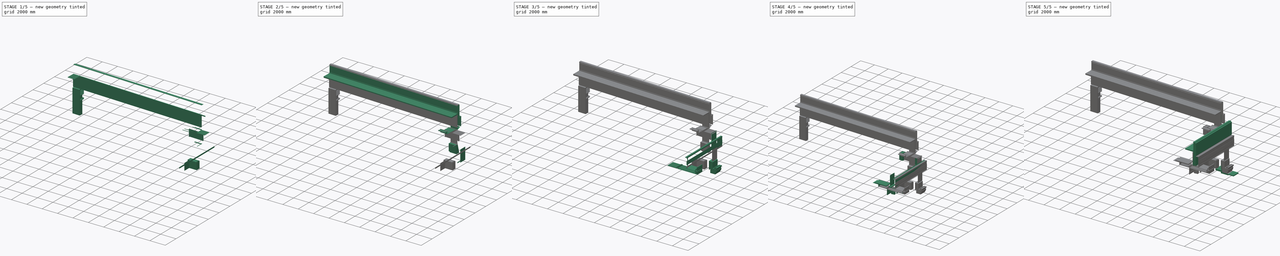
[diagram: build sequence overview — one tinted view per stage of 5, left to right]
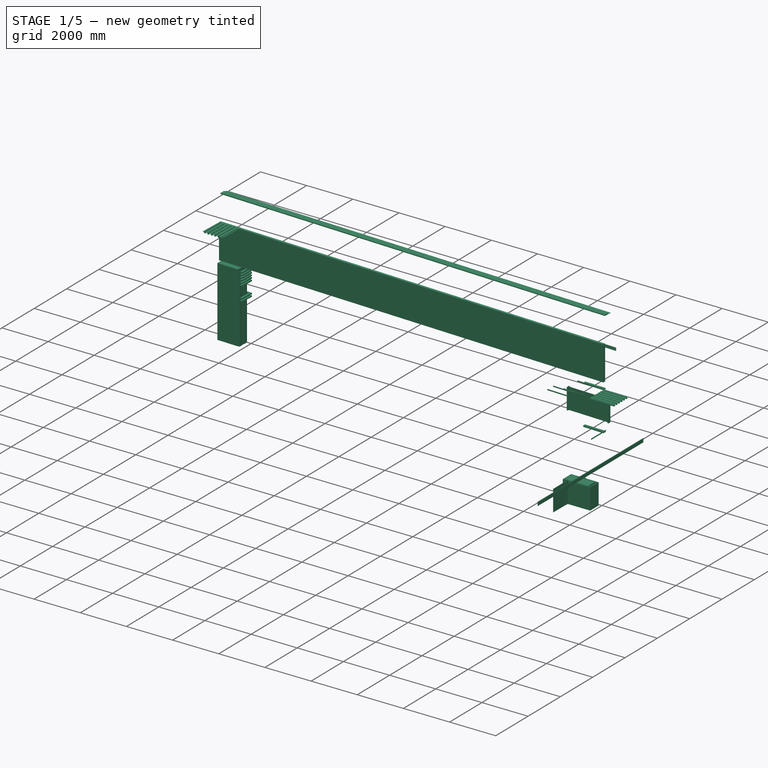
[diagram: stage 1 of 5 — iso view after this stage's code; geometry added in this stage tinted green]
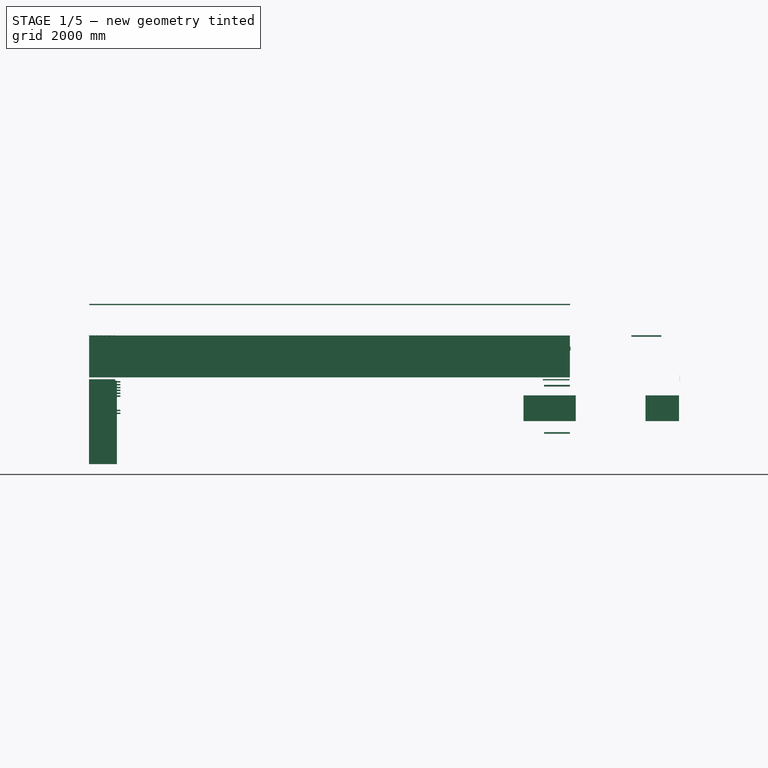
[diagram: stage 1 of 5 — front view after this stage's code; geometry added in this stage tinted green]
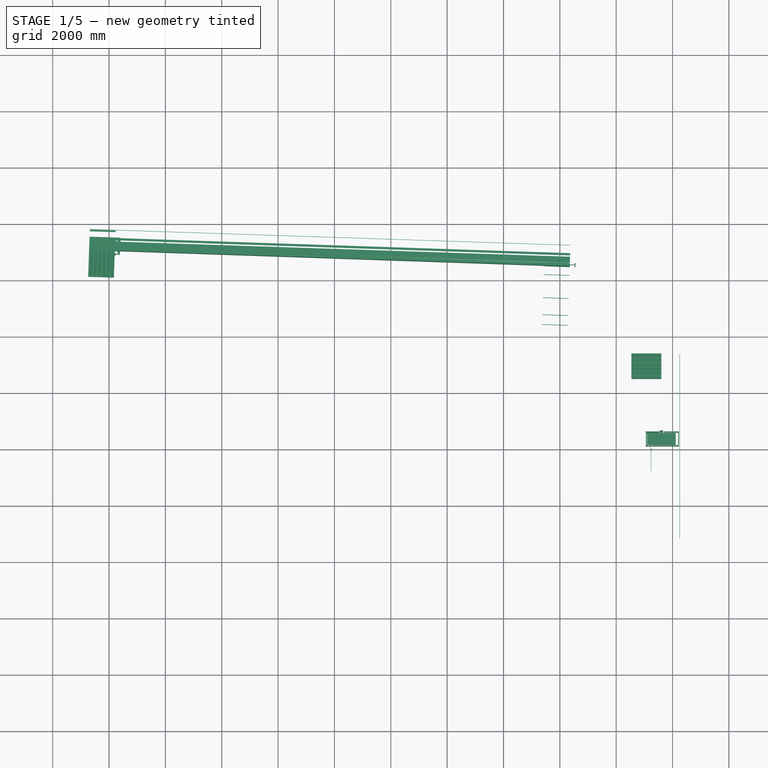
[diagram: stage 1 of 5 — top view after this stage's code; geometry added in this stage tinted green]
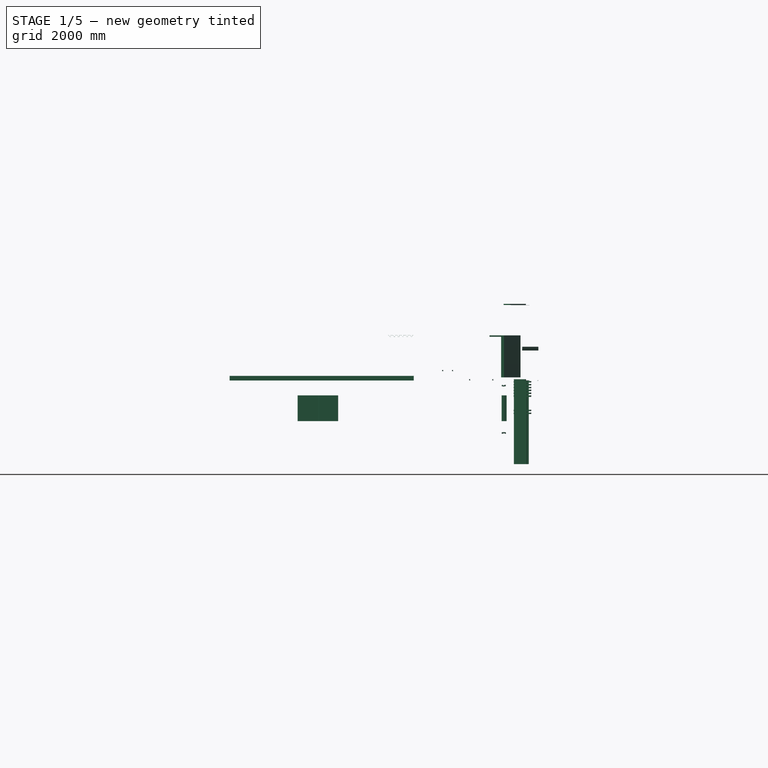
[diagram: stage 1 of 5 — right view after this stage's code; geometry added in this stage tinted green]
FCSTD DOCUMENT  (FreeCAD 0.17R10123 (Git))
Label: Exterior walls details
License: All rights reserved
LicenseURL: http://en.wikipedia.org/wiki/All_rights_reserved
objects: Part::FeaturePython×699, Part::Feature×659, Part::Extrusion×187, Part::Part2DObjectPython×166, App::Annotation×123, App::MaterialObjectPython×108, Part::Cut×10, App::DocumentObjectGroup×8, App::FeaturePython×7, Part::Cylinder×5, Sketcher::SketchObject×4, Part::MultiFuse×3, Part::Mirroring×3, App::DocumentObjectGroupPython×2, Part::Sweep×1
note: 1737 computed .brp shape members not serialized (recipe doc carries the construction recipe); baked Part::Feature solids carry a one-line shape summary decoded from their .brp

FEATURE [Part::FeaturePython] Structure048  label="Rysysta starter strip 001"  # Arch/BIM object (typed FeaturePython)
  Base = -> DWire010
  BaseMaterial = -> Material022
  FaceMaker = 0
  Height = 914.4
  HorizontalArea = 62346.8
  IfcAttributes = IfcUID=36HaeSyyaHvehM093rt3ko
  Length = 0
  MoveWithHost = false
  Nodes = (2) [(-2971.22,37553.7,-1.68493e-11),(-2971.22,37553.7,914.4)]
  NodesOffset = 0
  Normal = (0,0,1)
  PerimeterLength = 155.498
  Placement = pos=(32177.6,-52349.5,0) rot=(0.590516,0.570653,0.570653;2.07476rad)
  Role = 0
  VerticalArea = 17970.8
  Width = 200
FEATURE [Part::FeaturePython] Structure049  label="Rysysta panel 002"  # Arch/BIM object (typed FeaturePython)
  Base = -> DWire009
  BaseMaterial = -> Material021
  FaceMaker = 0
  Height = 914.4
  HorizontalArea = 184586
  IfcAttributes = IfcUID=36H4MMyyaHvehM093rt3ko
  Length = 0
  MoveWithHost = false
  Nodes = (2) [(-2963.03,37506.1,-3.47296e-11),(-2963.03,37506.1,914.4)]
  NodesOffset = 0
  Normal = (0,0,1)
  PerimeterLength = 444.976
  Placement = pos=(32177.6,-52349.5,0) rot=(0.590516,0.570653,0.570653;2.07476rad)
  Role = 0
  VerticalArea = 81392.8
  Width = 200
FEATURE [Part::Feature] Generic_Models_7_Generic_Models_7_181127_footprint
  shape: bbox 2e-07 x 914.4 x 50.8 mm, 1 faces, 0 solids (baked)
FEATURE [Part::Extrusion] Generic_Models_7_Generic_Models_7_181127_body
  Base = -> Generic_Models_7_Generic_Models_7_181127_footprint
  Dir = (1068.31,0,0)
  DirMode = 0
  FaceMakerClass = Part::FaceMakerBullseye
  LengthFwd = 0
  LengthRev = 0
  Solid = false
  Symmetric = false
FEATURE [App::MaterialObjectPython] METAL_COPING_TO_MATCH_ADJACENT_TILE_COLOR__SLOPE_BACK_TOWARD_ROOF_  label="METAL COPING TO MATCH ADJACENT TILE COLOR (SLOPE BACK TOWARD ROOF)"  # material (typed FeaturePython)
  Material = DiffuseColor=(0.415686274509804, 0.415686274509804, 0.415686274509804); Name=METAL COPING TO MATCH ADJACENT TILE COLOR (SLOPE BACK TOWARD ROOF)
FEATURE [App::MaterialObjectPython] METAL_BAR_ANCHOR_FASTENED_AS_REQUIRED_BY_MANF_  label="METAL BAR ANCHOR FASTENED AS REQUIRED BY MANF."  # material (typed FeaturePython)
  Material = DiffuseColor=(0.470588235294118, 0.470588235294118, 0.470588235294118); Name=METAL BAR ANCHOR FASTENED AS REQUIRED BY MANF.
FEATURE [App::MaterialObjectPython] EXISTING_COVER_BOARD__REPAIR_REPLACE_AS_NECESSARY_  label="EXISTING COVER BOARD (REPAIR/REPLACE AS NECESSARY)"  # material (typed FeaturePython)
  Material = DiffuseColor=(1.0, 1.0, 1.0); Name=EXISTING COVER BOARD (REPAIR/REPLACE AS NECESSARY)
FEATURE [App::MaterialObjectPython] EXISTING_METAL_DECK__REPAIR_REPLACE_AS_NECESSARY_  label="EXISTING METAL DECK (REPAIR/REPLACE AS NECESSARY)"  # material (typed FeaturePython)
  Material = DiffuseColor=(0.470588235294118, 0.470588235294118, 0.470588235294118); Name=EXISTING METAL DECK (REPAIR/REPLACE AS NECESSARY)
FEATURE [Part::FeaturePython] Generic_Models_7_Generic_Models_7_181127  label="Generic Models 7:Generic Models 7:181127"  # Arch/BIM object (typed FeaturePython)
  Base = -> Generic_Models_7_Generic_Models_7_181127_body
  BaseMaterial = -> EXISTING_METAL_DECK__REPAIR_REPLACE_AS_NECESSARY_
  HorizontalArea = 0
  IfcAttributes = IfcUID=2fEabcqVCHvhPF093rt3ko; Reference=IfcIdentifier('Generic Models 7')
  MoveWithHost = false
  PerimeterLength = 0
  Placement = pos=(0,-304.8,0) rot=(0,0,1;0rad)
  Role = 0
  VerticalArea = 0
FEATURE [App::MaterialObjectPython] STEEL_DECK___SEE_STRUCT__DWGS_1_  label="STEEL DECK - SEE STRUCT. DWGS(1)"  # material (typed FeaturePython)
  Material = DiffuseColor=(0.650980392156863, 0.556862745098039, 0.556862745098039); Name=STEEL DECK - SEE STRUCT. DWGS(1)
FEATURE [App::MaterialObjectPython] EXT__FIBERGLASS_MAT_GYPSUM_PANELS  label="EXT. FIBERGLASS MAT GYPSUM PANELS"  # material (typed FeaturePython)
  Material = DiffuseColor=(0.901960784313726, 0.901960784313726, 0.901960784313726); Name=EXT. FIBERGLASS MAT GYPSUM PANELS
FEATURE [Part::Feature] Windwo_frame_part_046_Windwo_frame_part_046_213183_Windwo_frame_part_046_213183___Windwo_frame_part_046_Windwo_frame_part_046_213183_281986_Windwo_frame_part_046_213183_Windwo_frame_part_046_213183___Windwo_frame_part_046_Windwo_frame_part_046_213183_281986___Windwo_frame_part_046_Windwo_frame_part_046_213183_Windwo_frame_part_046_213183___Windwo_frame_part_046_Windwo_frame_part_046_213183_281986_348673_footprint
  shape: bbox 34.52 x 34.4 x 2e-07 mm, 1 faces, 0 solids (baked)
FEATURE [Part::Extrusion] Windwo_frame_part_046_Windwo_frame_part_046_213183_Windwo_frame_part_046_213183___Windwo_frame_part_046_Windwo_frame_part_046_213183_281986_Windwo_frame_part_046_213183_Windwo_frame_part_046_213183___Windwo_frame_part_046_Windwo_frame_part_046_213183_281986___Windwo_frame_part_046_Windwo_frame_part_046_213183_Windwo_frame_part_046_213183___Windwo_frame_part_046_Windwo_frame_part_046_213183_281986_348673_body
  Base = -> Windwo_frame_part_046_Windwo_frame_part_046_213183_Windwo_frame_part_046_213183___Windwo_frame_part_046_Windwo_frame_part_046_213183_281986_Windwo_frame_part_046_213183_Windwo_frame_part_046_213183___Windwo_frame_part_046_Windwo_frame_part_046_213183_281986___Windwo_frame_part_046_Windwo_frame_part_046_213183_Windwo_frame_part_046_213183___Windwo_frame_part_046_Windwo_frame_part_046_213183_281986_348673_footprint
  Dir = (0,0,914.4)
  DirMode = 0
  FaceMakerClass = Part::FaceMakerBullseye
  LengthFwd = 0
  LengthRev = 0
  Solid = false
  Symmetric = false
FEATURE [Part::Feature] Windwo_frame_part_047_Windwo_frame_part_047_213211_Windwo_frame_part_047_213211___Windwo_frame_part_047_Windwo_frame_part_047_213211_282011_Windwo_frame_part_047_213211_Windwo_frame_part_047_213211___Windwo_frame_part_047_Windwo_frame_part_047_213211_282011___Windwo_frame_part_047_Windwo_frame_part_047_213211_Windwo_frame_part_047_213211___Windwo_frame_part_047_Windwo_frame_part_047_213211_282011_348698_footprint
  shape: bbox 8.582 x 7.949 x 2e-07 mm, 1 faces, 0 solids (baked)
FEATURE [Part::Extrusion] Windwo_frame_part_047_Windwo_frame_part_047_213211_Windwo_frame_part_047_213211___Windwo_frame_part_047_Windwo_frame_part_047_213211_282011_Windwo_frame_part_047_213211_Windwo_frame_part_047_213211___Windwo_frame_part_047_Windwo_frame_part_047_213211_282011___Windwo_frame_part_047_Windwo_frame_part_047_213211_Windwo_frame_part_047_213211___Windwo_frame_part_047_Windwo_frame_part_047_213211_282011_348698_body
  Base = -> Windwo_frame_part_047_Windwo_frame_part_047_213211_Windwo_frame_part_047_213211___Windwo_frame_part_047_Windwo_frame_part_047_213211_282011_Windwo_frame_part_047_213211_Windwo_frame_part_047_213211___Windwo_frame_part_047_Windwo_frame_part_047_213211_282011___Windwo_frame_part_047_Windwo_frame_part_047_213211_Windwo_frame_part_047_213211___Windwo_frame_part_047_Windwo_frame_part_047_213211_282011_348698_footprint
  Dir = (0,0,914.4)
  DirMode = 0
  FaceMakerClass = Part::FaceMakerBullseye
  LengthFwd = 0
  LengthRev = 0
  Solid = false
  Symmetric = false
FEATURE [Part::Feature] Windwo_frame_part_051_Windwo_frame_part_051_213558_Windwo_frame_part_051_213558___Windwo_frame_part_051_Windwo_frame_part_051_213558_282277_Windwo_frame_part_051_213558_Windwo_frame_part_051_213558___Windwo_frame_part_051_Windwo_frame_part_051_213558_282277___Windwo_frame_part_051_Windwo_frame_part_051_213558_Windwo_frame_part_051_213558___Windwo_frame_part_051_Windwo_frame_part_051_213558_282277_348964_footprint
  shape: bbox 127 x 76.2 x 2e-07 mm, 1 faces, 0 solids (baked)
FEATURE [Part::Extrusion] Windwo_frame_part_051_Windwo_frame_part_051_213558_Windwo_frame_part_051_213558___Windwo_frame_part_051_Windwo_frame_part_051_213558_282277_Windwo_frame_part_051_213558_Windwo_frame_part_051_213558___Windwo_frame_part_051_Windwo_frame_part_051_213558_282277___Windwo_frame_part_051_Windwo_frame_part_051_213558_Windwo_frame_part_051_213558___Windwo_frame_part_051_Windwo_frame_part_051_213558_282277_348964_body
  Base = -> Windwo_frame_part_051_Windwo_frame_part_051_213558_Windwo_frame_part_051_213558___Windwo_frame_part_051_Windwo_frame_part_051_213558_282277_Windwo_frame_part_051_213558_Windwo_frame_part_051_213558___Windwo_frame_part_051_Windwo_frame_part_051_213558_282277___Windwo_frame_part_051_Windwo_frame_part_051_213558_Windwo_frame_part_051_213558___Windwo_frame_part_051_Windwo_frame_part_051_213558_282277_348964_footprint
  Dir = (0,0,914.4)
  DirMode = 0
  FaceMakerClass = Part::FaceMakerBullseye
  LengthFwd = 0
  LengthRev = 0
  Solid = false
  Symmetric = false
FEATURE [Part::Feature] Windwo_frame_part_051_Windwo_frame_part_051_1_Windwo_frame_part_051_1___Windwo_frame_part_051_Windwo_frame_part_051_213558_290612_Windwo_frame_part_051_1_Windwo_frame_part_051_1___Windwo_frame_part_051_Windwo_frame_part_051_213558_290612___Windwo_frame_part_051_Windwo_frame_part_051_1_Windwo_frame_part_051_1___Windwo_frame_part_051_Windwo_frame_part_051_213558_290612_349162_footprint
  shape: bbox 118.3 x 20.32 x 2e-07 mm, 1 faces, 0 solids (baked)
FEATURE [Part::Extrusion] Windwo_frame_part_051_Windwo_frame_part_051_1_Windwo_frame_part_051_1___Windwo_frame_part_051_Windwo_frame_part_051_213558_290612_Windwo_frame_part_051_1_Windwo_frame_part_051_1___Windwo_frame_part_051_Windwo_frame_part_051_213558_290612___Windwo_frame_part_051_Windwo_frame_part_051_1_Windwo_frame_part_051_1___Windwo_frame_part_051_Windwo_frame_part_051_213558_290612_349162_body
  Base = -> Windwo_frame_part_051_Windwo_frame_part_051_1_Windwo_frame_part_051_1___Windwo_frame_part_051_Windwo_frame_part_051_213558_290612_Windwo_frame_part_051_1_Windwo_frame_part_051_1___Windwo_frame_part_051_Windwo_frame_part_051_213558_290612___Windwo_frame_part_051_Windwo_frame_part_051_1_Windwo_frame_part_051_1___Windwo_frame_part_051_Windwo_frame_part_051_213558_290612_349162_footprint
  Dir = (0,0,914.4)
  DirMode = 0
  FaceMakerClass = Part::FaceMakerBullseye
  LengthFwd = 0
  LengthRev = 0
  Solid = false
  Symmetric = false
FEATURE [Part::Feature] Windwo_frame_part_043_Windwo_frame_part_043_5_Windwo_frame_part_043_5___Windwo_frame_part_043_Windwo_frame_part_043_213051_295650_Windwo_frame_part_043_5_Windwo_frame_part_043_5___Windwo_frame_part_043_Windwo_frame_part_043_213051_295650___Windwo_frame_part_043_Windwo_frame_part_043_5_Windwo_frame_part_043_5___Windwo_frame_part_043_Windwo_frame_part_043_213051_295650_349378_footprint
  shape: bbox 9.557 x 16.07 x 2e-07 mm, 1 faces, 0 solids (baked)
FEATURE [Part::Extrusion] Windwo_frame_part_043_Windwo_frame_part_043_5_Windwo_frame_part_043_5___Windwo_frame_part_043_Windwo_frame_part_043_213051_295650_Windwo_frame_part_043_5_Windwo_frame_part_043_5___Windwo_frame_part_043_Windwo_frame_part_043_213051_295650___Windwo_frame_part_043_Windwo_frame_part_043_5_Windwo_frame_part_043_5___Windwo_frame_part_043_Windwo_frame_part_043_213051_295650_349378_body
  Base = -> Windwo_frame_part_043_Windwo_frame_part_043_5_Windwo_frame_part_043_5___Windwo_frame_part_043_Windwo_frame_part_043_213051_295650_Windwo_frame_part_043_5_Windwo_frame_part_043_5___Windwo_frame_part_043_Windwo_frame_part_043_213051_295650___Windwo_frame_part_043_Windwo_frame_part_043_5_Windwo_frame_part_043_5___Windwo_frame_part_043_Windwo_frame_part_043_213051_295650_349378_footprint
  Dir = (0,0,914.4)
  DirMode = 0
  FaceMakerClass = Part::FaceMakerBullseye
  LengthFwd = 0
  LengthRev = 0
  Solid = false
  Symmetric = false
FEATURE [Part::FeaturePython] Windwo_frame_part_043_Windwo_frame_part_043_5_Windwo_frame_part_043_5___Windwo_frame_part_043_Windwo_frame_part_043_213051_295650_Windwo_frame_part_043_5_Windwo_frame_part_043_5___Windwo_frame_part_043_Windwo_frame_part_043_213051_295650___Windwo_frame_part_043_Windwo_frame_part_043_5_Windwo_frame_part_043_5___Windwo_frame_part_043_Windwo_frame_part_043_213051_295650_349378  label="Windwo frame part 043:Windwo frame part 043:5:Windwo frame part 043:5 : Windwo frame part 043:Windwo frame part 043:213051:295650:Windwo frame part 043:5:Windwo frame part 043:5 : Windwo frame part 043:Windwo frame part 043:213051:295650 : Windwo frame part 043:Windwo frame part 043:5:Windwo frame part 043:5 : Windwo frame part 043:Windwo frame part 043:213051:295650:349378"  # Arch/BIM object (typed FeaturePython)
  Base = -> Windwo_frame_part_043_Windwo_frame_part_043_5_Windwo_frame_part_043_5___Windwo_frame_part_043_Windwo_frame_part_043_213051_295650_Windwo_frame_part_043_5_Windwo_frame_part_043_5___Windwo_frame_part_043_Windwo_frame_part_043_213051_295650___Windwo_frame_part_043_Windwo_frame_part_043_5_Windwo_frame_part_043_5___Windwo_frame_part_043_Windwo_frame_part_043_213051_295650_349378_body
  BaseMaterial = -> SEALANT___BACKER_ROD__IF_NECESSARY
  HorizontalArea = 0
  IfcAttributes = IfcUID=30ABB8xzmHveNx093rt3ko; Reference=IfcIdentifier('Windwo frame part 043')
  MoveWithHost = false
  PerimeterLength = 0
  Role = 0
  VerticalArea = 0
FEATURE [Part::Feature] Windwo_frame_part_043_Windwo_frame_part_043_1_Windwo_frame_part_043_1___Windwo_frame_part_043_Windwo_frame_part_043_213051_296991_Windwo_frame_part_043_1_Windwo_frame_part_043_1___Windwo_frame_part_043_Windwo_frame_part_043_213051_296991___Windwo_frame_part_043_Windwo_frame_part_043_1_Windwo_frame_part_043_1___Windwo_frame_part_043_Windwo_frame_part_043_213051_296991_349394_footprint
  shape: bbox 9.557 x 16.07 x 2e-07 mm, 1 faces, 0 solids (baked)
FEATURE [Part::Extrusion] Windwo_frame_part_043_Windwo_frame_part_043_1_Windwo_frame_part_043_1___Windwo_frame_part_043_Windwo_frame_part_043_213051_296991_Windwo_frame_part_043_1_Windwo_frame_part_043_1___Windwo_frame_part_043_Windwo_frame_part_043_213051_296991___Windwo_frame_part_043_Windwo_frame_part_043_1_Windwo_frame_part_043_1___Windwo_frame_part_043_Windwo_frame_part_043_213051_296991_349394_body
  Base = -> Windwo_frame_part_043_Windwo_frame_part_043_1_Windwo_frame_part_043_1___Windwo_frame_part_043_Windwo_frame_part_043_213051_296991_Windwo_frame_part_043_1_Windwo_frame_part_043_1___Windwo_frame_part_043_Windwo_frame_part_043_213051_296991___Windwo_frame_part_043_Windwo_frame_part_043_1_Windwo_frame_part_043_1___Windwo_frame_part_043_Windwo_frame_part_043_213051_296991_349394_footprint
  Dir = (0,0,914.4)
  DirMode = 0
  FaceMakerClass = Part::FaceMakerBullseye
  LengthFwd = 0
  LengthRev = 0
  Solid = false
  Symmetric = false
FEATURE [Part::FeaturePython] Windwo_frame_part_043_Windwo_frame_part_043_1_Windwo_frame_part_043_1___Windwo_frame_part_043_Windwo_frame_part_043_213051_296991_Windwo_frame_part_043_1_Windwo_frame_part_043_1___Windwo_frame_part_043_Windwo_frame_part_043_213051_296991___Windwo_frame_part_043_Windwo_frame_part_043_1_Windwo_frame_part_043_1___Windwo_frame_part_043_Windwo_frame_part_043_213051_296991_349394  label="Windwo frame part 043:Windwo frame part 043:1:Windwo frame part 043:1 : Windwo frame part 043:Windwo frame part 043:213051:296991:Windwo frame part 043:1:Windwo frame part 043:1 : Windwo frame part 043:Windwo frame part 043:213051:296991 : Windwo frame part 043:Windwo frame part 043:1:Windwo frame part 043:1 : Windwo frame part 043:Windwo frame part 043:213051:296991:349394"  # Arch/BIM object (typed FeaturePython)
  Base = -> Windwo_frame_part_043_Windwo_frame_part_043_1_Windwo_frame_part_043_1___Windwo_frame_part_043_Windwo_frame_part_043_213051_296991_Windwo_frame_part_043_1_Windwo_frame_part_043_1___Windwo_frame_part_043_Windwo_frame_part_043_213051_296991___Windwo_frame_part_043_Windwo_frame_part_043_1_Windwo_frame_part_043_1___Windwo_frame_part_043_Windwo_frame_part_043_213051_296991_349394_body
  BaseMaterial = -> SEALANT___BACKER_ROD__IF_NECESSARY
  HorizontalArea = 0
  IfcAttributes = IfcUID=30Ac44xzmHveNx093rt3ko; Reference=IfcIdentifier('Windwo frame part 043')
  MoveWithHost = false
  PerimeterLength = 0
  Role = 0
  VerticalArea = 0
FEATURE [Part::Feature] Windwo_frame_part_051_Windwo_frame_part_051_2_Windwo_frame_part_051_2___Windwo_frame_part_051_Windwo_frame_part_051_213558_322733_Windwo_frame_part_051_2_Windwo_frame_part_051_2___Windwo_frame_part_051_Windwo_frame_part_051_213558_322733___Windwo_frame_part_051_Windwo_frame_part_051_2_Windwo_frame_part_051_2___Windwo_frame_part_051_Windwo_frame_part_051_213558_322733_349732_footprint
  shape: bbox 44.45 x 88.9 x 2e-07 mm, 1 faces, 0 solids (baked)
FEATURE [Part::Extrusion] Windwo_frame_part_051_Windwo_frame_part_051_2_Windwo_frame_part_051_2___Windwo_frame_part_051_Windwo_frame_part_051_213558_322733_Windwo_frame_part_051_2_Windwo_frame_part_051_2___Windwo_frame_part_051_Windwo_frame_part_051_213558_322733___Windwo_frame_part_051_Windwo_frame_part_051_2_Windwo_frame_part_051_2___Windwo_frame_part_051_Windwo_frame_part_051_213558_322733_349732_body
  Base = -> Windwo_frame_part_051_Windwo_frame_part_051_2_Windwo_frame_part_051_2___Windwo_frame_part_051_Windwo_frame_part_051_213558_322733_Windwo_frame_part_051_2_Windwo_frame_part_051_2___Windwo_frame_part_051_Windwo_frame_part_051_213558_322733___Windwo_frame_part_051_Windwo_frame_part_051_2_Windwo_frame_part_051_2___Windwo_frame_part_051_Windwo_frame_part_051_213558_322733_349732_footprint
  Dir = (0,0,914.4)
  DirMode = 0
  FaceMakerClass = Part::FaceMakerBullseye
  LengthFwd = 0
  LengthRev = 0
  Solid = false
  Symmetric = false
FEATURE [Part::Feature] Windwo_frame_part_051_Windwo_frame_part_051_2_Windwo_frame_part_051_2___Windwo_frame_part_051_Windwo_frame_part_051_213558_1_Windwo_frame_part_051_2_Windwo_frame_part_051_2___Windwo_frame_part_051_Windwo_frame_part_051_213558_1___Windwo_frame_part_051_Windwo_frame_part_051_2_Windwo_frame_part_051_2___Windwo_frame_part_051_Windwo_frame_part_051_213558_322733_361000_footprint
  shape: bbox 8.915 x 32.33 x 2e-07 mm, 1 faces, 0 solids (baked)
FEATURE [Part::Extrusion] Windwo_frame_part_051_Windwo_frame_part_051_2_Windwo_frame_part_051_2___Windwo_frame_part_051_Windwo_frame_part_051_213558_1_Windwo_frame_part_051_2_Windwo_frame_part_051_2___Windwo_frame_part_051_Windwo_frame_part_051_213558_1___Windwo_frame_part_051_Windwo_frame_part_051_2_Windwo_frame_part_051_2___Windwo_frame_part_051_Windwo_frame_part_051_213558_322733_361000_body
  Base = -> Windwo_frame_part_051_Windwo_frame_part_051_2_Windwo_frame_part_051_2___Windwo_frame_part_051_Windwo_frame_part_051_213558_1_Windwo_frame_part_051_2_Windwo_frame_part_051_2___Windwo_frame_part_051_Windwo_frame_part_051_213558_1___Windwo_frame_part_051_Windwo_frame_part_051_2_Windwo_frame_part_051_2___Windwo_frame_part_051_Windwo_frame_part_051_213558_322733_361000_footprint
  Dir = (0,0,914.4)
  DirMode = 0
  FaceMakerClass = Part::FaceMakerBullseye
  LengthFwd = 0
  LengthRev = 0
  Solid = false
  Symmetric = false
FEATURE [Part::Feature] Windwo_frame_part_051_Windwo_frame_part_051_2_Windwo_frame_part_051_2___Windwo_frame_part_051_Windwo_frame_part_051_213558_2_Windwo_frame_part_051_2_Windwo_frame_part_051_2___Windwo_frame_part_051_Windwo_frame_part_051_213558_2___Windwo_frame_part_051_Windwo_frame_part_051_2_Windwo_frame_part_051_2___Windwo_frame_part_051_Windwo_frame_part_051_213558_322733_361443_footprint
  shape: bbox 7.175 x 12.49 x 2e-07 mm, 1 faces, 0 solids (baked)
FEATURE [Part::Extrusion] Windwo_frame_part_051_Windwo_frame_part_051_2_Windwo_frame_part_051_2___Windwo_frame_part_051_Windwo_frame_part_051_213558_2_Windwo_frame_part_051_2_Windwo_frame_part_051_2___Windwo_frame_part_051_Windwo_frame_part_051_213558_2___Windwo_frame_part_051_Windwo_frame_part_051_2_Windwo_frame_part_051_2___Windwo_frame_part_051_Windwo_frame_part_051_213558_322733_361443_body
  Base = -> Windwo_frame_part_051_Windwo_frame_part_051_2_Windwo_frame_part_051_2___Windwo_frame_part_051_Windwo_frame_part_051_213558_2_Windwo_frame_part_051_2_Windwo_frame_part_051_2___Windwo_frame_part_051_Windwo_frame_part_051_213558_2___Windwo_frame_part_051_Windwo_frame_part_051_2_Windwo_frame_part_051_2___Windwo_frame_part_051_Windwo_frame_part_051_213558_322733_361443_footprint
  Dir = (0,0,914.4)
  DirMode = 0
  FaceMakerClass = Part::FaceMakerBullseye
  LengthFwd = 0
  LengthRev = 0
  Solid = false
  Symmetric = false
FEATURE [Part::Feature] Windwo_frame_part_051_Windwo_frame_part_051_2_Windwo_frame_part_051_2___Windwo_frame_part_051_Windwo_frame_part_051_213558_3_Windwo_frame_part_051_2_Windwo_frame_part_051_2___Windwo_frame_part_051_Windwo_frame_part_051_213558_3___Windwo_frame_part_051_Windwo_frame_part_051_2_Windwo_frame_part_051_2___Windwo_frame_part_051_Windwo_frame_part_051_213558_322733_361927_footprint
  shape: bbox 8.582 x 14.73 x 2e-07 mm, 1 faces, 0 solids (baked)
FEATURE [Part::Extrusion] Windwo_frame_part_051_Windwo_frame_part_051_2_Windwo_frame_part_051_2___Windwo_frame_part_051_Windwo_frame_part_051_213558_3_Windwo_frame_part_051_2_Windwo_frame_part_051_2___Windwo_frame_part_051_Windwo_frame_part_051_213558_3___Windwo_frame_part_051_Windwo_frame_part_051_2_Windwo_frame_part_051_2___Windwo_frame_part_051_Windwo_frame_part_051_213558_322733_361927_body
  Base = -> Windwo_frame_part_051_Windwo_frame_part_051_2_Windwo_frame_part_051_2___Windwo_frame_part_051_Windwo_frame_part_051_213558_3_Windwo_frame_part_051_2_Windwo_frame_part_051_2___Windwo_frame_part_051_Windwo_frame_part_051_213558_3___Windwo_frame_part_051_Windwo_frame_part_051_2_Windwo_frame_part_051_2___Windwo_frame_part_051_Windwo_frame_part_051_213558_322733_361927_footprint
  Dir = (0,0,914.4)
  DirMode = 0
  FaceMakerClass = Part::FaceMakerBullseye
  LengthFwd = 0
  LengthRev = 0
  Solid = false
  Symmetric = false
FEATURE [Part::FeaturePython] Windwo_frame_part_046_Windwo_frame_part_046_213183_Windwo_frame_part_046_213183___Windwo_frame_part_046_Windwo_frame_part_046_213183_281986_Windwo_frame_part_046_213183_Windwo_frame_part_046_213183___Windwo_frame_part_046_Windwo_frame_part_046_213183_281986___Windwo_frame_part_046_Windwo_frame_part_046_213183_Windwo_frame_part_046_213183___Windwo_frame_part_046_Windwo_frame_part_046_213183_281986_348673  label="Windwo frame part 046:Windwo frame part 046:213183:Windwo frame part 046:213183 : Windwo frame part 046:Windwo frame part 046:213183:281986:Windwo frame part 046:213183:Windwo frame part 046:213183 : Windwo frame part 046:Windwo frame part 046:213183:281986 : Windwo frame part 046:Windwo frame part 046:213183:Windwo frame part 046:213183 : Windwo frame part 046:Windwo frame part 046:213183:281986:348673"  # Arch/BIM object (typed FeaturePython)
  Base = -> Windwo_frame_part_046_Windwo_frame_part_046_213183_Windwo_frame_part_046_213183___Windwo_frame_part_046_Windwo_frame_part_046_213183_281986_Windwo_frame_part_046_213183_Windwo_frame_part_046_213183___Windwo_frame_part_046_Windwo_frame_part_046_213183_281986___Windwo_frame_part_046_Windwo_frame_part_046_213183_Windwo_frame_part_046_213183___Windwo_frame_part_046_Windwo_frame_part_046_213183_281986_348673_body
  BaseMaterial = -> ALUM__STOREFRONT_DOOR___HURRICANE_RESISTANT
  HorizontalArea = 0
  IfcAttributes = IfcUID=302pysxzmHveNx093rt3ko; Reference=IfcIdentifier('Windwo frame part 046')
  MoveWithHost = false
  PerimeterLength = 0
  Role = 0
  VerticalArea = 0
FEATURE [Part::FeaturePython] Windwo_frame_part_047_Windwo_frame_part_047_213211_Windwo_frame_part_047_213211___Windwo_frame_part_047_Windwo_frame_part_047_213211_282011_Windwo_frame_part_047_213211_Windwo_frame_part_047_213211___Windwo_frame_part_047_Windwo_frame_part_047_213211_282011___Windwo_frame_part_047_Windwo_frame_part_047_213211_Windwo_frame_part_047_213211___Windwo_frame_part_047_Windwo_frame_part_047_213211_282011_348698  label="Windwo frame part 047:Windwo frame part 047:213211:Windwo frame part 047:213211 : Windwo frame part 047:Windwo frame part 047:213211:282011:Windwo frame part 047:213211:Windwo frame part 047:213211 : Windwo frame part 047:Windwo frame part 047:213211:282011 : Windwo frame part 047:Windwo frame part 047:213211:Windwo frame part 047:213211 : Windwo frame part 047:Windwo frame part 047:213211:282011:348698"  # Arch/BIM object (typed FeaturePython)
  Base = -> Windwo_frame_part_047_Windwo_frame_part_047_213211_Windwo_frame_part_047_213211___Windwo_frame_part_047_Windwo_frame_part_047_213211_282011_Windwo_frame_part_047_213211_Windwo_frame_part_047_213211___Windwo_frame_part_047_Windwo_frame_part_047_213211_282011___Windwo_frame_part_047_Windwo_frame_part_047_213211_Windwo_frame_part_047_213211___Windwo_frame_part_047_Windwo_frame_part_047_213211_282011_348698_body
  BaseMaterial = -> ALUM__STOREFRONT_DOOR___HURRICANE_RESISTANT
  HorizontalArea = 0
  IfcAttributes = IfcUID=303HDWxzmHveNx093rt3ko; Reference=IfcIdentifier('Windwo frame part 047')
  MoveWithHost = false
  PerimeterLength = 0
  Role = 0
  VerticalArea = 0
FEATURE [Part::FeaturePython] Windwo_frame_part_051_Windwo_frame_part_051_213558_Windwo_frame_part_051_213558___Windwo_frame_part_051_Windwo_frame_part_051_213558_282277_Windwo_frame_part_051_213558_Windwo_frame_part_051_213558___Windwo_frame_part_051_Windwo_frame_part_051_213558_282277___Windwo_frame_part_051_Windwo_frame_part_051_213558_Windwo_frame_part_051_213558___Windwo_frame_part_051_Windwo_frame_part_051_213558_282277_348964  label="Windwo frame part 051:Windwo frame part 051:213558:Windwo frame part 051:213558 : Windwo frame part 051:Windwo frame part 051:213558:282277:Windwo frame part 051:213558:Windwo frame part 051:213558 : Windwo frame part 051:Windwo frame part 051:213558:282277 : Windwo frame part 051:Windwo frame part 051:213558:Windwo frame part 051:213558 : Windwo frame part 051:Windwo frame part 051:213558:282277:348964"  # Arch/BIM object (typed FeaturePython)
  Base = -> Windwo_frame_part_051_Windwo_frame_part_051_213558_Windwo_frame_part_051_213558___Windwo_frame_part_051_Windwo_frame_part_051_213558_282277_Windwo_frame_part_051_213558_Windwo_frame_part_051_213558___Windwo_frame_part_051_Windwo_frame_part_051_213558_282277___Windwo_frame_part_051_Windwo_frame_part_051_213558_Windwo_frame_part_051_213558___Windwo_frame_part_051_Windwo_frame_part_051_213558_282277_348964_body
  BaseMaterial = -> ALUM__STOREFRONT_DOOR___HURRICANE_RESISTANT
  HorizontalArea = 0
  IfcAttributes = IfcUID=304X1exzmHveNx093rt3ko; Reference=IfcIdentifier('Windwo frame part 051')
  MoveWithHost = false
  PerimeterLength = 0
  Role = 0
  VerticalArea = 0
FEATURE [Part::FeaturePython] Windwo_frame_part_051_Windwo_frame_part_051_1_Windwo_frame_part_051_1___Windwo_frame_part_051_Windwo_frame_part_051_213558_290612_Windwo_frame_part_051_1_Windwo_frame_part_051_1___Windwo_frame_part_051_Windwo_frame_part_051_213558_290612___Windwo_frame_part_051_Windwo_frame_part_051_1_Windwo_frame_part_051_1___Windwo_frame_part_051_Windwo_frame_part_051_213558_290612_349162  label="Windwo frame part 051:Windwo frame part 051:1:Windwo frame part 051:1 : Windwo frame part 051:Windwo frame part 051:213558:290612:Windwo frame part 051:1:Windwo frame part 051:1 : Windwo frame part 051:Windwo frame part 051:213558:290612 : Windwo frame part 051:Windwo frame part 051:1:Windwo frame part 051:1 : Windwo frame part 051:Windwo frame part 051:213558:290612:349162"  # Arch/BIM object (typed FeaturePython)
  Base = -> Windwo_frame_part_051_Windwo_frame_part_051_1_Windwo_frame_part_051_1___Windwo_frame_part_051_Windwo_frame_part_051_213558_290612_Windwo_frame_part_051_1_Windwo_frame_part_051_1___Windwo_frame_part_051_Windwo_frame_part_051_213558_290612___Windwo_frame_part_051_Windwo_frame_part_051_1_Windwo_frame_part_051_1___Windwo_frame_part_051_Windwo_frame_part_051_213558_290612_349162_body
  BaseMaterial = -> ALUM__STOREFRONT_DOOR___HURRICANE_RESISTANT
  HorizontalArea = 0
  IfcAttributes = IfcUID=307CrGxzmHveNx093rt3ko; Reference=IfcIdentifier('Windwo frame part 051')
  MoveWithHost = false
  PerimeterLength = 0
  Role = 0
  VerticalArea = 0
FEATURE [Part::FeaturePython] Windwo_frame_part_051_Windwo_frame_part_051_2_Windwo_frame_part_051_2___Windwo_frame_part_051_Windwo_frame_part_051_213558_322733_Windwo_frame_part_051_2_Windwo_frame_part_051_2___Windwo_frame_part_051_Windwo_frame_part_051_213558_322733___Windwo_frame_part_051_Windwo_frame_part_051_2_Windwo_frame_part_051_2___Windwo_frame_part_051_Windwo_frame_part_051_213558_322733_349732  label="Windwo frame part 051:Windwo frame part 051:2:Windwo frame part 051:2 : Windwo frame part 051:Windwo frame part 051:213558:322733:Windwo frame part 051:2:Windwo frame part 051:2 : Windwo frame part 051:Windwo frame part 051:213558:322733 : Windwo frame part 051:Windwo frame part 051:2:Windwo frame part 051:2 : Windwo frame part 051:Windwo frame part 051:213558:322733:349732"  # Arch/BIM object (typed FeaturePython)
  Base = -> Windwo_frame_part_051_Windwo_frame_part_051_2_Windwo_frame_part_051_2___Windwo_frame_part_051_Windwo_frame_part_051_213558_322733_Windwo_frame_part_051_2_Windwo_frame_part_051_2___Windwo_frame_part_051_Windwo_frame_part_051_213558_322733___Windwo_frame_part_051_Windwo_frame_part_051_2_Windwo_frame_part_051_2___Windwo_frame_part_051_Windwo_frame_part_051_213558_322733_349732_body
  BaseMaterial = -> ALUM__STOREFRONT_DOOR___HURRICANE_RESISTANT
  HorizontalArea = 0
  IfcAttributes = IfcUID=30IGOsxzmHveNx093rt3ko; Reference=IfcIdentifier('Windwo frame part 051')
  MoveWithHost = false
  PerimeterLength = 0
  Role = 0
  VerticalArea = 0
FEATURE [Part::FeaturePython] Windwo_frame_part_051_Windwo_frame_part_051_2_Windwo_frame_part_051_2___Windwo_frame_part_051_Windwo_frame_part_051_213558_1_Windwo_frame_part_051_2_Windwo_frame_part_051_2___Windwo_frame_part_051_Windwo_frame_part_051_213558_1___Windwo_frame_part_051_Windwo_frame_part_051_2_Windwo_frame_part_051_2___Windwo_frame_part_051_Windwo_frame_part_051_213558_322733_361000  label="Windwo frame part 051:Windwo frame part 051:2:Windwo frame part 051:2 : Windwo frame part 051:Windwo frame part 051:213558:1:Windwo frame part 051:2:Windwo frame part 051:2 : Windwo frame part 051:Windwo frame part 051:213558:1 : Windwo frame part 051:Windwo frame part 051:2:Windwo frame part 051:2 : Windwo frame part 051:Windwo frame part 051:213558:322733:361000"  # Arch/BIM object (typed FeaturePython)
  Base = -> Windwo_frame_part_051_Windwo_frame_part_051_2_Windwo_frame_part_051_2___Windwo_frame_part_051_Windwo_frame_part_051_213558_1_Windwo_frame_part_051_2_Windwo_frame_part_051_2___Windwo_frame_part_051_Windwo_frame_part_051_213558_1___Windwo_frame_part_051_Windwo_frame_part_051_2_Windwo_frame_part_051_2___Windwo_frame_part_051_Windwo_frame_part_051_213558_322733_361000_body
  BaseMaterial = -> ALUM__STOREFRONT_DOOR___HURRICANE_RESISTANT
  HorizontalArea = 0
  IfcAttributes = IfcUID=30JZ9uxzmHveNx093rt3ko; Reference=IfcIdentifier('Windwo frame part 051')
  MoveWithHost = false
  PerimeterLength = 0
  Role = 0
  VerticalArea = 0
FEATURE [Part::FeaturePython] Windwo_frame_part_051_Windwo_frame_part_051_2_Windwo_frame_part_051_2___Windwo_frame_part_051_Windwo_frame_part_051_213558_2_Windwo_frame_part_051_2_Windwo_frame_part_051_2___Windwo_frame_part_051_Windwo_frame_part_051_213558_2___Windwo_frame_part_051_Windwo_frame_part_051_2_Windwo_frame_part_051_2___Windwo_frame_part_051_Windwo_frame_part_051_213558_322733_361443  label="Windwo frame part 051:Windwo frame part 051:2:Windwo frame part 051:2 : Windwo frame part 051:Windwo frame part 051:213558:2:Windwo frame part 051:2:Windwo frame part 051:2 : Windwo frame part 051:Windwo frame part 051:213558:2 : Windwo frame part 051:Windwo frame part 051:2:Windwo frame part 051:2 : Windwo frame part 051:Windwo frame part 051:213558:322733:361443"  # Arch/BIM object (typed FeaturePython)
  Base = -> Windwo_frame_part_051_Windwo_frame_part_051_2_Windwo_frame_part_051_2___Windwo_frame_part_051_Windwo_frame_part_051_213558_2_Windwo_frame_part_051_2_Windwo_frame_part_051_2___Windwo_frame_part_051_Windwo_frame_part_051_213558_2___Windwo_frame_part_051_Windwo_frame_part_051_2_Windwo_frame_part_051_2___Windwo_frame_part_051_Windwo_frame_part_051_213558_322733_361443_body
  BaseMaterial = -> GASKET
  HorizontalArea = 0
  IfcAttributes = IfcUID=30KNpGxzmHveNx093rt3ko; Reference=IfcIdentifier('Windwo frame part 051')
  MoveWithHost = false
  PerimeterLength = 0
  Role = 0
  VerticalArea = 0
FEATURE [Part::FeaturePython] Windwo_frame_part_051_Windwo_frame_part_051_2_Windwo_frame_part_051_2___Windwo_frame_part_051_Windwo_frame_part_051_213558_3_Windwo_frame_part_051_2_Windwo_frame_part_051_2___Windwo_frame_part_051_Windwo_frame_part_051_213558_3___Windwo_frame_part_051_Windwo_frame_part_051_2_Windwo_frame_part_051_2___Windwo_frame_part_051_Windwo_frame_part_051_213558_322733_361927  label="Windwo frame part 051:Windwo frame part 051:2:Windwo frame part 051:2 : Windwo frame part 051:Windwo frame part 051:213558:3:Windwo frame part 051:2:Windwo frame part 051:2 : Windwo frame part 051:Windwo frame part 051:213558:3 : Windwo frame part 051:Windwo frame part 051:2:Windwo frame part 051:2 : Windwo frame part 051:Windwo frame part 051:213558:322733:361927"  # Arch/BIM object (typed FeaturePython)
  Base = -> Windwo_frame_part_051_Windwo_frame_part_051_2_Windwo_frame_part_051_2___Windwo_frame_part_051_Windwo_frame_part_051_213558_3_Windwo_frame_part_051_2_Windwo_frame_part_051_2___Windwo_frame_part_051_Windwo_frame_part_051_213558_3___Windwo_frame_part_051_Windwo_frame_part_051_2_Windwo_frame_part_051_2___Windwo_frame_part_051_Windwo_frame_part_051_213558_322733_361927_body
  BaseMaterial = -> GASKET
  HorizontalArea = 0
  IfcAttributes = IfcUID=30K$iOxzmHveNx093rt3ko; Reference=IfcIdentifier('Windwo frame part 051')
  MoveWithHost = false
  PerimeterLength = 0
  Role = 0
  VerticalArea = 0
FEATURE [Part::Part2DObjectPython] DWire094  # Draft 2D object (typed FeaturePython)
  ChamferSize = 0
  Closed = true
  End = (38258.3,-25196.4,3251.21)
  FilletRadius = 0
  Length = 444.976
  MakeFace = true
  Points = (34) [(38258.3,-25196.4,3117.86),(38255.2,-25196.4,3117.86),(38255.2,-25196.4,3134.53),(38250.3,-25196.4,3134.53),(38250.3,-25196.4,3128.18),+29 more]
  Start = (38258.3,-25196.4,3117.86)
  Subdivisions = 0
FEATURE [Part::Extrusion] Extrusion
  Base = -> DWire094
  Dir = (-8.97e-10,6533.92,5e-12)
  DirMode = 0
  FaceMakerClass = Part::FaceMakerBullseye
  LengthFwd = 0
  LengthRev = 0
  Solid = true
  Symmetric = false
FEATURE [Part::FeaturePython] Component  label="Rysysta 001"  # Arch/BIM object (typed FeaturePython)
  Base = -> Extrusion
  BaseMaterial = -> Material021
  HorizontalArea = 0
  IfcAttributes = IfcUID=3AcGCMyyaHvehM093rt3ko
  MoveWithHost = false
  PerimeterLength = 0
  Role = 0
  VerticalArea = 0
FEATURE [Part::Extrusion] Generic_Models_7_Generic_Models_7_181127_body001
  Base = -> Generic_Models_7_Generic_Models_7_181127_footprint
  Dir = (1068.31,0,0)
  DirMode = 0
  FaceMakerClass = Part::FaceMakerBullseye
  LengthFwd = 0
  LengthRev = 0
  Placement = pos=(8226.24,-52215.6,-3.175) rot=(0,0,1;1.53751rad)
  Solid = false
  Symmetric = false
FEATURE [Part::FeaturePython] Component572201  label="metal deck"  # Arch/BIM object (typed FeaturePython)
  Base = -> Generic_Models_7_Generic_Models_7_181127_body001
  BaseMaterial = -> EXISTING_METAL_DECK__REPAIR_REPLACE_AS_NECESSARY_
  HorizontalArea = 0
  IfcAttributes = IfcUID=3BomaUyyaHvehM093rt3ko
  MoveWithHost = false
  PerimeterLength = 0
  Placement = pos=(8191.79,-52191.5,-3.175) rot=(0,0,1;1.53659rad)
  Role = 0
  VerticalArea = 0
FEATURE [Part::Feature] Shape
  Placement = pos=(7921.53,-52207.8,0) rot=(0,0,1;1.53751rad)
  shape: bbox 0.4227 x 12.69 x 133.4 mm, 1 faces, 0 solids (baked)
FEATURE [Part::Extrusion] Extrusion124
  Base = -> Shape
  Dir = (-913.893,30.4323,1e-12)
  DirMode = 0
  FaceMakerClass = Part::FaceMakerBullseye
  LengthFwd = 17068.8
  LengthRev = 0
  Solid = true
  Symmetric = false
FEATURE [Part::Feature] Shape083
  Placement = pos=(7921.61,-52205.4,-3.175) rot=(0,0,1;1.53751rad)
  shape: bbox 7.37 x 221.3 x 38.1 mm, 1 faces, 0 solids (baked)
FEATURE [Part::Extrusion] Extrusion125
  Base = -> Shape083
  Dir = (-17056.8,567.984,0)
  DirMode = 0
  FaceMakerClass = Part::FaceMakerBullseye
  LengthFwd = 0
  LengthRev = 0
  Solid = true
  Symmetric = false
FEATURE [Part::Feature] Shape084
  Placement = pos=(7921.61,-52205.4,-3.175) rot=(0,0,1;1.53751rad)
  shape: bbox 2.724 x 81.79 x 4.763 mm, 1 faces, 0 solids (baked)
FEATURE [Part::Extrusion] Extrusion126
  Base = -> Shape084
  Dir = (-17059.3,568.069,0)
  DirMode = 0
  FaceMakerClass = Part::FaceMakerBullseye
  LengthFwd = 0
  LengthRev = 0
  Solid = true
  Symmetric = false
FEATURE [Part::FeaturePython] Component572234  label="metal deck001"  # Arch/BIM object (typed FeaturePython)
  BaseMaterial = -> EXISTING_METAL_DECK__REPAIR_REPLACE_AS_NECESSARY_
  CloneOf = -> Component572201
  HorizontalArea = 0
  IfcAttributes = IfcUID=3BxTaSyyaHvehM093rt3ko
  MoveWithHost = false
  PerimeterLength = 0
  Placement = pos=(-7953.16,-51639,-3.175) rot=(0,0,1;1.53659rad)
  Role = 0
  VerticalArea = 0
FEATURE [Part::FeaturePython] Component572236  label="Generic Models 7:Generic Models 7:181128"  # Arch/BIM object (typed FeaturePython)
  BaseMaterial = -> EXISTING_METAL_DECK__REPAIR_REPLACE_AS_NECESSARY_
  CloneOf = -> Generic_Models_7_Generic_Models_7_181127
  HorizontalArea = 0
  IfcAttributes = IfcUID=2fEabcqVCHvhPF093rt3ko; Reference=IfcIdentifier('Generic Models 7')
  MoveWithHost = false
  PerimeterLength = 0
  Placement = pos=(0,5314.73,0) rot=(0,0,1;0rad)
  Role = 0
  VerticalArea = 0
FEATURE [Part::Feature] Shape085
  Placement = pos=(34352.2,-15561.1,3089.08) rot=(0.590162,0.570837,0.570837;2.07528rad)
  shape: bbox 3.381 x 101.5 x 1486 mm, 1 faces, 0 solids (baked)
FEATURE [Part::Extrusion] Extrusion127
  Base = -> Shape085
  Dir = (-17059.3,568.069,-7.8e-11)
  DirMode = 0
  FaceMakerClass = Part::FaceMakerBullseye
  LengthFwd = 0
  LengthRev = 0
  Solid = true
  Symmetric = false
FEATURE [Part::FeaturePython] Component572237  label="Insulation"  # Arch/BIM object (typed FeaturePython)
  Base = -> Extrusion127
  BaseMaterial = -> Material001
  HorizontalArea = 0
  IfcAttributes = IfcUID=3ByIJIyyaHvehM093rt3ko
  MoveWithHost = false
  PerimeterLength = 0
  Placement = pos=(13.663,31.6609,-9.33301) rot=(0,0,-0.999998;0.000921rad)
  Role = 0
  VerticalArea = 0
FEATURE [Part::Part2DObjectPython] Rectangle103  # Draft 2D object (typed FeaturePython)
  ChamferSize = 0
  Columns = 1
  FilletRadius = 0
  Height = 914.4
  Length = 406.48
  MakeFace = true
  Placement = pos=(17290,-15078.7,3009.9) rot=(0.718777,0.695241,0;3.14159rad)
  Rows = 1
FEATURE [Part::Extrusion] Extrusion128
  Base = -> Rectangle103
  Dir = (5e-12,-2e-12,-3009.9)
  DirMode = 0
  FaceMakerClass = Part::FaceMakerBullseye
  LengthFwd = 0
  LengthRev = 0
  Solid = true
  Symmetric = false
FEATURE [Part::FeaturePython] Component572238  label="Rysysta starter strip 026"  # Arch/BIM object (typed FeaturePython)
  BaseMaterial = -> Material022
  CloneOf = -> Structure048
  HorizontalArea = 62346.8
  IfcAttributes = IfcUID=3BxbqkyyaHvehM093rt3ko
  MoveWithHost = false
  PerimeterLength = 155.498
  Placement = pos=(16032.6,-51797,-9.16737e-07) rot=(0.590516,0.570653,0.570653;2.07476rad)
  Role = 0
  VerticalArea = 17970.8
FEATURE [Part::FeaturePython] Component572239  label="Rysysta panel 082"  # Arch/BIM object (typed FeaturePython)
  BaseMaterial = -> Material021
  CloneOf = -> Structure049
  HorizontalArea = 184586
  IfcAttributes = IfcUID=3Bxk16yyaHvehM093rt3ko
  MoveWithHost = false
  PerimeterLength = 444.976
  Placement = pos=(16032.6,-51797,-9.16737e-07) rot=(0.590516,0.570653,0.570653;2.07476rad)
  Role = 0
  VerticalArea = 81392.8
FEATURE [Part::FeaturePython] Component572241  label="Rysysta panel 083"  # Arch/BIM object (typed FeaturePython)
  BaseMaterial = -> Material021
  CloneOf = -> Component572239
  HorizontalArea = 184586
  IfcAttributes = IfcUID=3Bxw_yyyaHvehM093rt3ko
  MoveWithHost = false
  PerimeterLength = 444.976
  Placement = pos=(16027.4,-51949.4,-9.16654e-07) rot=(0.590516,0.570653,0.570653;2.07476rad)
  Role = 0
  VerticalArea = 81392.8
FEATURE [Part::FeaturePython] Component572242  label="Rysysta panel 084"  # WARN: FeaturePython — macro-defined, semantics opaque (R4)
  BaseMaterial = -> Material021
  CloneOf = -> Component572241
  HorizontalArea = 184586
  MoveWithHost = false
  PerimeterLength = 444.976
  Placement = pos=(16056.6,-52118.6,-9.16572e-07) rot=(0.590162,0.570837,0.570837;2.07528rad)
  Role = 0
  VerticalArea = 81392.8
FEATURE [App::MaterialObjectPython] Material066  label="EXISTING CMU"  # material (typed FeaturePython)
  Material = DiffuseColor=(0.6745098039215687, 0.6745098039215687, 0.6745098039215687); Name=EXISTING CMU
FEATURE [Part::FeaturePython] Component572243  label="cmu wall"  # Arch/BIM object (typed FeaturePython)
  Base = -> Extrusion128
  BaseMaterial = -> Material066
  HorizontalArea = 0
  IfcAttributes = IfcUID=3By5FqyyaHvehM093rt3ko
  MoveWithHost = false
  PerimeterLength = 0
  Placement = pos=(13.3557,15.9387,0) rot=(0,0,-1;0.000921rad)
  Role = 0
  VerticalArea = 0
FEATURE [Part::Part2DObjectPython] Rectangle104  # Draft 2D object (typed FeaturePython)
  ChamferSize = 0
  Columns = 1
  FilletRadius = 0
  Height = 588.956
  Length = 1083.53
  MakeFace = true
  Placement = pos=(17278.1,-15258.7,1466.8) rot=(0,0,-1;0.033287rad)
  Rows = 1
FEATURE [Part::Extrusion] Extrusion130
  Base = -> Rectangle104
  Dir = (-1.26925e-06,-3.10207e-05,4161.24)
  DirMode = 0
  FaceMakerClass = Part::FaceMakerBullseye
  LengthFwd = 0
  LengthRev = 0
  Solid = true
  Symmetric = false
FEATURE [Part::Cut] Cut
  Base = -> Component572242
  Tool = -> Extrusion130
FEATURE [Part::FeaturePython] Component572244  label="rysysta001"  # Arch/BIM object (typed FeaturePython)
  Base = -> Cut
  BaseMaterial = -> Material021
  HorizontalArea = 0
  IfcAttributes = IfcUID=3ByUUgyyaHvehM093rt3ko
  MoveWithHost = false
  PerimeterLength = 0
  Placement = pos=(13.6565,31.6612,0) rot=(0,0,-0.999998;0.000921rad)
  Role = 0
  VerticalArea = 0
FEATURE [Part::Part2DObjectPython] DWire128  # Draft 2D object (typed FeaturePython)
  ChamferSize = 0
  Closed = true
  End = (18179.3,-14701.6,0)
  FilletRadius = 0
  Length = 304.8
  MakeFace = true
  Placement = pos=(927.379,-135.271,0) rot=(0,0,-1;0.034208rad)
  Points = (6) [(17740,-13891.5,0),(17747,-13891.5,0),(17747,-13960.8,0),(17816.2,-13960.8,0),(17816.2,-13967.7,0),(17740,-13967.7,0)]
  Start = (18181.9,-14625.4,0)
  Subdivisions = 0
FEATURE [Part::Extrusion] Extrusion131
  Base = -> DWire128
  Dir = (0,0,2959.11)
  DirMode = 0
  FaceMakerClass = Part::FaceMakerBullseye
  LengthFwd = 0
  LengthRev = 0
  Placement = pos=(-168.089,5.59729,-9.544e-09) rot=(0,0,1;0rad)
  Solid = true
  Symmetric = false
FEATURE [App::MaterialObjectPython] Material067  label="3X#X1/4" ALUMINIUM ANGLE"  # material (typed FeaturePython)
  Material = DiffuseColor=(0.3803921568627451, 0.3803921568627451, 0.3803921568627451); Name=3X#X1/4" ALUMINIUM ANGLE
FEATURE [Part::FeaturePython] Component572245  label="L profile002"  # Arch/BIM object (typed FeaturePython)
  Base = -> Extrusion131
  BaseMaterial = -> Material067
  HorizontalArea = 0
  IfcAttributes = IfcUID=3BzPs2yyaHvehM093rt3ko
  MoveWithHost = false
  PerimeterLength = 0
  Placement = pos=(32929.9,3296.99,3.47244e-05) rot=(0,0,-1;1.57172rad)
  Role = 0
  VerticalArea = 0
FEATURE [Part::FeaturePython] Component572246  label="L profile003"  # Arch/BIM object (typed FeaturePython)
  BaseMaterial = -> Material067
  CloneOf = -> Component572245
  HorizontalArea = 0
  IfcAttributes = IfcUID=3BzkeWyyaHvehM093rt3ko
  MoveWithHost = false
  PerimeterLength = 0
  Placement = pos=(36469.9,-29597.3,-0.000209378) rot=(0,0,1;3.14067rad)
  Role = 0
  VerticalArea = 0
FEATURE [Part::FeaturePython] Component572247  label="L profile004"  # Arch/BIM object (typed FeaturePython)
  BaseMaterial = -> Material067
  CloneOf = -> Component572245
  HorizontalArea = 0
  IfcAttributes = IfcUID=3BzvBgyyaHvehM093rt3ko
  MoveWithHost = false
  PerimeterLength = 0
  Placement = pos=(3586.01,-33037.8,-0.000245281) rot=(0,0,1;1.56987rad)
  Role = 0
  VerticalArea = 0
FEATURE [Part::FeaturePython] Component572248  label="L profile005"  # Arch/BIM object (typed FeaturePython)
  BaseMaterial = -> Material067
  CloneOf = -> Component572245
  HorizontalArea = 0
  IfcAttributes = IfcUID=3B_3ioyyaHvehM093rt3ko
  MoveWithHost = false
  PerimeterLength = 0
  Placement = pos=(-727.136,41.2796,-4.2046e-08) rot=(0,0,-1;0.000921rad)
  Role = 0
  VerticalArea = 0
FEATURE [Part::FeaturePython] Component572249  label="L profile006"  # Arch/BIM object (typed FeaturePython)
  BaseMaterial = -> Material067
  CloneOf = -> Component572247
  HorizontalArea = 0
  IfcAttributes = IfcUID=3B_BpsyyaHvehM093rt3ko
  MoveWithHost = false
  PerimeterLength = 0
  Placement = pos=(35607.7,-29302.6,-0.000207451) rot=(0,0,1;3.14067rad)
  Role = 0
  VerticalArea = 0
FEATURE [Part::FeaturePython] Component572250  label="L profile007"  # Arch/BIM object (typed FeaturePython)
  BaseMaterial = -> Material067
  CloneOf = -> Component572246
  HorizontalArea = 0
  IfcAttributes = IfcUID=3B_JxEyyaHvehM093rt3ko
  MoveWithHost = false
  PerimeterLength = 0
  Placement = pos=(32167.2,3581.23,3.66053e-05) rot=(0,0,-1;1.57172rad)
  Role = 0
  VerticalArea = 0
FEATURE [Part::FeaturePython] Component572251  label="L profile008"  # Arch/BIM object (typed FeaturePython)
  BaseMaterial = -> Material067
  CloneOf = -> Component572245
  HorizontalArea = 0
  IfcAttributes = IfcUID=3B_SGMyyaHvehM093rt3ko
  MoveWithHost = false
  PerimeterLength = 0
  Placement = pos=(-154.728,21.6908,-9.544e-09) rot=(0,0,-1;0.000921rad)
  Role = 0
  VerticalArea = 0
FEATURE [Part::FeaturePython] Component572252  label="L profile009"  # Arch/BIM object (typed FeaturePython)
  BaseMaterial = -> Material067
  CloneOf = -> Component572246
  HorizontalArea = 0
  IfcAttributes = IfcUID=3B_aPmyyaHvehM093rt3ko
  MoveWithHost = false
  PerimeterLength = 0
  Placement = pos=(32739.6,3561.64,3.66378e-05) rot=(0,0,-1;1.57172rad)
  Role = 0
  VerticalArea = 0
FEATURE [Part::FeaturePython] Component572253  label="L profile010"  # Arch/BIM object (typed FeaturePython)
  BaseMaterial = -> Material067
  CloneOf = -> Component572247
  HorizontalArea = 0
  IfcAttributes = IfcUID=3B_igqyyaHvehM093rt3ko
  MoveWithHost = false
  PerimeterLength = 0
  Placement = pos=(36180.1,-29322.2,-0.000207418) rot=(0,0,1;3.14067rad)
  Role = 0
  VerticalArea = 0
FEATURE [Part::Part2DObjectPython] DWire129  # Draft 2D object (typed FeaturePython)
  ChamferSize = 0
  Closed = true
  End = (18405,-14527.4,50.8)
  FilletRadius = 0
  Length = 3370.58
  MakeFace = true
  Placement = pos=(4e-12,-2e-12,-2920.95) rot=(0,0,1;0rad)
  Points = (6) [(17309.5,-14490.9,2971.75),(17306.6,-14579.7,2971.75),(18313.2,-14613.3,2971.75),(18296.5,-15113.3,2971.75),(18385.4,-15116.3,2971.75),+1 more]
  Start = (17309.5,-14490.9,50.8)
  Subdivisions = 0
FEATURE [Part::Extrusion] Extrusion132
  Base = -> DWire129
  Dir = (-1.5522e-08,-3.78854e-07,50.8)
  DirMode = 0
  FaceMakerClass = Part::FaceMakerBullseye
  LengthFwd = 0
  LengthRev = 0
  Solid = true
  Symmetric = false
FEATURE [App::MaterialObjectPython] Material068  label="2x4" IPE CLADDING"  # material (typed FeaturePython)
  Material = DiffuseColor=(1.0, 0.6666666666666666, 0.4980392156862745); Name=2x4" IPE CLADDING
FEATURE [Part::FeaturePython] Component572254  label="IPE cladding"  # Arch/BIM object (typed FeaturePython)
  Base = -> Extrusion132
  BaseMaterial = -> Material068
  HorizontalArea = 0
  IfcAttributes = IfcUID=3B_qoCyyaHvehM093rt3ko
  MoveWithHost = false
  PerimeterLength = 0
  Placement = pos=(13.3557,15.9387,0) rot=(0,0,-1;0.000921rad)
  Role = 0
  VerticalArea = 0
FEATURE [Part::FeaturePython] Component572255  label="IPE cladding001"  # Arch/BIM object (typed FeaturePython)
  BaseMaterial = -> Material068
  CloneOf = -> Component572254
  HorizontalArea = 0
  IfcAttributes = IfcUID=3B$EgwyyaHvehM093rt3ko
  MoveWithHost = false
  PerimeterLength = 0
  Placement = pos=(13.3557,15.9387,101.6) rot=(0,0,-1;0.000921rad)
  Role = 0
  VerticalArea = 0
FEATURE [Part::FeaturePython] Component572256  label="IPE cladding002"  # Arch/BIM object (typed FeaturePython)
  BaseMaterial = -> Material068
  CloneOf = -> Component572255
  HorizontalArea = 0
  IfcAttributes = IfcUID=3B$Uy0yyaHvehM093rt3ko
  MoveWithHost = false
  PerimeterLength = 0
  Placement = pos=(13.3557,15.9387,203.2) rot=(0,0,-1;0.000921rad)
  Role = 0
  VerticalArea = 0
FEATURE [Part::FeaturePython] Component572257  label="IPE cladding003"  # Arch/BIM object (typed FeaturePython)
  BaseMaterial = -> Material068
  CloneOf = -> Component572256
  HorizontalArea = 0
  IfcAttributes = IfcUID=3B$mmoyyaHvehM093rt3ko
  MoveWithHost = false
  PerimeterLength = 0
  Placement = pos=(13.3557,15.9387,406.4) rot=(0,0,-1;0.000921rad)
  Role = 0
  VerticalArea = 0
FEATURE [Part::FeaturePython] Component572258  label="IPE cladding004"  # Arch/BIM object (typed FeaturePython)
  BaseMaterial = -> Material068
  CloneOf = -> Component572255
  HorizontalArea = 0
  IfcAttributes = IfcUID=3B$$AgyyaHvehM093rt3ko
  MoveWithHost = false
  PerimeterLength = 0
  Placement = pos=(13.3557,15.9387,304.8) rot=(0,0,-1;0.000921rad)
  Role = 0
  VerticalArea = 0
FEATURE [Part::FeaturePython] Component572259  label="IPE cladding005"  # Arch/BIM object (typed FeaturePython)
  BaseMaterial = -> Material068
  CloneOf = -> Component572257
  HorizontalArea = 0
  IfcAttributes = IfcUID=3C0DC0yyaHvehM093rt3ko
  MoveWithHost = false
  PerimeterLength = 0
  Placement = pos=(13.3557,15.9387,812.8) rot=(0,0,-1;0.000921rad)
  Role = 0
  VerticalArea = 0
FEATURE [Part::FeaturePython] Component572260  label="IPE cladding006"  # Arch/BIM object (typed FeaturePython)
  BaseMaterial = -> Material068
  CloneOf = -> Component572258
  HorizontalArea = 0
  IfcAttributes = IfcUID=3C0Pk2yyaHvehM093rt3ko
  MoveWithHost = false
  PerimeterLength = 0
  Placement = pos=(13.3557,15.9387,711.2) rot=(0,0,-1;0.000921rad)
  Role = 0
  VerticalArea = 0
FEATURE [Part::FeaturePython] Component572261  label="IPE cladding007"  # Arch/BIM object (typed FeaturePython)
  BaseMaterial = -> Material068
  CloneOf = -> Component572255
  HorizontalArea = 0
  IfcAttributes = IfcUID=3C0cLYyyaHvehM093rt3ko
  MoveWithHost = false
  PerimeterLength = 0
  Placement = pos=(13.3557,15.9387,508) rot=(0,0,-1;0.000921rad)
  Role = 0
  VerticalArea = 0
FEATURE [Part::FeaturePython] Component572262  label="IPE cladding008"  # Arch/BIM object (typed FeaturePython)
  BaseMaterial = -> Material068
  CloneOf = -> Component572256
  HorizontalArea = 0
  IfcAttributes = IfcUID=3C0r86yyaHvehM093rt3ko
  MoveWithHost = false
  PerimeterLength = 0
  Placement = pos=(13.3557,15.9387,609.6) rot=(0,0,-1;0.000921rad)
  Role = 0
  VerticalArea = 0
FEATURE [Part::FeaturePython] Component572263  label="IPE cladding009"  # Arch/BIM object (typed FeaturePython)
  BaseMaterial = -> Material068
  CloneOf = -> Component572255
  HorizontalArea = 0
  IfcAttributes = IfcUID=3C13poyyaHvehM093rt3ko
  MoveWithHost = false
  PerimeterLength = 0
  Placement = pos=(13.3557,15.9387,914.4) rot=(0,0,-1;0.000921rad)
  Role = 0
  VerticalArea = 0
FEATURE [Part::FeaturePython] Component572264  label="IPE cladding010"  # Arch/BIM object (typed FeaturePython)
  BaseMaterial = -> Material068
  CloneOf = -> Component572257
  HorizontalArea = 0
  IfcAttributes = IfcUID=3C1ECUyyaHvehM093rt3ko
  MoveWithHost = false
  PerimeterLength = 0
  Placement = pos=(13.3557,15.9387,1219.2) rot=(0,0,-1;0.000921rad)
  Role = 0
  VerticalArea = 0
FEATURE [Part::FeaturePython] Component572265  label="IPE cladding011"  # Arch/BIM object (typed FeaturePython)
  BaseMaterial = -> Material068
  CloneOf = -> Component572261
  HorizontalArea = 0
  IfcAttributes = IfcUID=3C1QQqyyaHvehM093rt3ko
  MoveWithHost = false
  PerimeterLength = 0
  Placement = pos=(13.3557,15.9387,1320.8) rot=(0,0,-1;0.000921rad)
  Role = 0
  VerticalArea = 0
FEATURE [Part::FeaturePython] Component572266  label="IPE cladding012"  # Arch/BIM object (typed FeaturePython)
  BaseMaterial = -> Material068
  CloneOf = -> Component572260
  HorizontalArea = 0
  IfcAttributes = IfcUID=3C1d92yyaHvehM093rt3ko
  MoveWithHost = false
  PerimeterLength = 0
  Placement = pos=(13.3557,15.9387,1524) rot=(0,0,-1;0.000921rad)
  Role = 0
  VerticalArea = 0
FEATURE [Part::FeaturePython] Component572267  label="IPE cladding013"  # Arch/BIM object (typed FeaturePython)
  BaseMaterial = -> Material068
  CloneOf = -> Component572262
  HorizontalArea = 0
  IfcAttributes = IfcUID=3C1pEeyyaHvehM093rt3ko
  MoveWithHost = false
  PerimeterLength = 0
  Placement = pos=(13.3557,15.9387,1422.4) rot=(0,0,-1;0.000921rad)
  Role = 0
  VerticalArea = 0
FEATURE [Part::FeaturePython] Component572268  label="IPE cladding014"  # Arch/BIM object (typed FeaturePython)
  BaseMaterial = -> Material068
  CloneOf = -> Component572256
  HorizontalArea = 0
  IfcAttributes = IfcUID=3C21gEyyaHvehM093rt3ko
  MoveWithHost = false
  PerimeterLength = 0
  Placement = pos=(13.3557,15.9387,1016) rot=(0,0,-1;0.000921rad)
  Role = 0
  VerticalArea = 0
FEATURE [Part::FeaturePython] Component572269  label="IPE cladding015"  # Arch/BIM object (typed FeaturePython)
  BaseMaterial = -> Material068
  CloneOf = -> Component572259
  HorizontalArea = 0
  IfcAttributes = IfcUID=3C2Cw4yyaHvehM093rt3ko
  MoveWithHost = false
  PerimeterLength = 0
  Placement = pos=(13.3557,15.9387,1625.6) rot=(0,0,-1;0.000921rad)
  Role = 0
  VerticalArea = 0
FEATURE [Part::FeaturePython] Component572270  label="IPE cladding016"  # Arch/BIM object (typed FeaturePython)
  BaseMaterial = -> Material068
  CloneOf = -> Component572258
  HorizontalArea = 0
  IfcAttributes = IfcUID=3C2NYEyyaHvehM093rt3ko
  MoveWithHost = false
  PerimeterLength = 0
  Placement = pos=(13.3557,15.9387,1117.6) rot=(0,0,-1;0.000921rad)
  Role = 0
  VerticalArea = 0
FEATURE [Part::FeaturePython] Component572271  label="IPE cladding017"  # Arch/BIM object (typed FeaturePython)
  BaseMaterial = -> Material068
  CloneOf = -> Component572263
  HorizontalArea = 0
  IfcAttributes = IfcUID=3C2a3yyyaHvehM093rt3ko
  MoveWithHost = false
  PerimeterLength = 0
  Placement = pos=(13.3557,15.9387,1727.2) rot=(0,0,-1;0.000921rad)
  Role = 0
  VerticalArea = 0
FEATURE [Part::FeaturePython] Component572272  label="IPE cladding018"  # Arch/BIM object (typed FeaturePython)
  BaseMaterial = -> Material068
  CloneOf = -> Component572270
  HorizontalArea = 0
  IfcAttributes = IfcUID=3C2icMyyaHvehM093rt3ko
  MoveWithHost = false
  PerimeterLength = 0
  Placement = pos=(13.3557,15.9387,1930.4) rot=(0,0,-1;0.000921rad)
  Role = 0
  VerticalArea = 0
FEATURE [Part::FeaturePython] Component572273  label="IPE cladding019"  # Arch/BIM object (typed FeaturePython)
  BaseMaterial = -> Material068
  CloneOf = -> Component572264
  HorizontalArea = 0
  IfcAttributes = IfcUID=3C2t6iyyaHvehM093rt3ko
  MoveWithHost = false
  PerimeterLength = 0
  Placement = pos=(13.3557,15.9387,2032) rot=(0,0,-1;0.000921rad)
  Role = 0
  VerticalArea = 0
FEATURE [Part::FeaturePython] Component572274  label="IPE cladding020"  # Arch/BIM object (typed FeaturePython)
  BaseMaterial = -> Material068
  CloneOf = -> Component572269
  HorizontalArea = 0
  IfcAttributes = IfcUID=3C31d2yyaHvehM093rt3ko
  MoveWithHost = false
  PerimeterLength = 0
  Placement = pos=(13.3557,15.9386,2438.4) rot=(0,0,-1;0.000921rad)
  Role = 0
  VerticalArea = 0
FEATURE [Part::FeaturePython] Component572275  label="IPE cladding021"  # Arch/BIM object (typed FeaturePython)
  BaseMaterial = -> Material068
  CloneOf = -> Component572265
  HorizontalArea = 0
  IfcAttributes = IfcUID=3C3A5OyyaHvehM093rt3ko
  MoveWithHost = false
  PerimeterLength = 0
  Placement = pos=(13.3557,15.9387,2133.6) rot=(0,0,-1;0.000921rad)
  Role = 0
  VerticalArea = 0
FEATURE [Part::FeaturePython] Component572276  label="IPE cladding022"  # Arch/BIM object (typed FeaturePython)
  BaseMaterial = -> Material068
  CloneOf = -> Component572267
  HorizontalArea = 0
  IfcAttributes = IfcUID=3C3KX_yyaHvehM093rt3ko
  MoveWithHost = false
  PerimeterLength = 0
  Placement = pos=(13.3557,15.9387,2235.2) rot=(0,0,-1;0.000921rad)
  Role = 0
  VerticalArea = 0
FEATURE [Part::FeaturePython] Component572277  label="IPE cladding023"  # Arch/BIM object (typed FeaturePython)
  BaseMaterial = -> Material068
  CloneOf = -> Component572268
  HorizontalArea = 0
  IfcAttributes = IfcUID=3C3VOgyyaHvehM093rt3ko
  MoveWithHost = false
  PerimeterLength = 0
  Placement = pos=(13.3557,15.9387,1828.8) rot=(0,0,-1;0.000921rad)
  Role = 0
  VerticalArea = 0
FEATURE [Part::FeaturePython] Component572278  label="IPE cladding024"  # Arch/BIM object (typed FeaturePython)
  BaseMaterial = -> Material068
  CloneOf = -> Component572266
  HorizontalArea = 0
  IfcAttributes = IfcUID=3C3duGyyaHvehM093rt3ko
  MoveWithHost = false
  PerimeterLength = 0
  Placement = pos=(13.3557,15.9386,2336.8) rot=(0,0,-1;0.000921rad)
  Role = 0
  VerticalArea = 0
FEATURE [Part::FeaturePython] Component572281  label="IPE cladding027"  # Arch/BIM object (typed FeaturePython)
  BaseMaterial = -> Material068
  CloneOf = -> Component572276
  HorizontalArea = 0
  IfcAttributes = IfcUID=3C3mLgyyaHvehM093rt3ko
  MoveWithHost = false
  PerimeterLength = 0
  Placement = pos=(-8.69302e-07,-2.12158e-05,2844.8) rot=(0,0,1;0rad)
  Role = 0
  VerticalArea = 0
FEATURE [Part::FeaturePython] Component572282  label="IPE cladding028"  # Arch/BIM object (typed FeaturePython)
  BaseMaterial = -> Material068
  CloneOf = -> Component572275
  HorizontalArea = 0
  IfcAttributes = IfcUID=3C3ukEyyaHvehM093rt3ko
  MoveWithHost = false
  PerimeterLength = 0
  Placement = pos=(-8.38256e-07,-2.04581e-05,2743.2) rot=(0,0,1;0rad)
  Role = 0
  VerticalArea = 0
FEATURE [Part::FeaturePython] Component572283  label="IPE cladding029"  # Arch/BIM object (typed FeaturePython)
  BaseMaterial = -> Material068
  CloneOf = -> Component572273
  HorizontalArea = 0
  IfcAttributes = IfcUID=3C419IyyaHvehM093rt3ko
  MoveWithHost = false
  PerimeterLength = 0
  Placement = pos=(13.3557,15.9386,2641.6) rot=(0,0,-1;0.000921rad)
  Role = 0
  VerticalArea = 0
FEATURE [Part::FeaturePython] Component572284  label="IPE cladding030"  # Arch/BIM object (typed FeaturePython)
  BaseMaterial = -> Material068
  CloneOf = -> Component572272
  HorizontalArea = 0
  IfcAttributes = IfcUID=3C49YAyyaHvehM093rt3ko
  MoveWithHost = false
  PerimeterLength = 0
  Placement = pos=(13.3557,15.9386,2540) rot=(0,0,-1;0.000921rad)
  Role = 0
  VerticalArea = 0
FEATURE [Part::Part2DObjectPython] DWire130  # Draft 2D object (typed FeaturePython)
  ChamferSize = 0
  Closed = true
  End = (37229.7,-22973.4,1524)
  FilletRadius = 0
  Length = 1561.4
  MakeFace = true
  Points = (4) [(37229.7,-23739.1,1524),(37244.7,-23739.1,1524),(37244.7,-22973.4,1524),(37229.7,-22973.4,1524)]
  Start = (37229.7,-23739.1,1524)
  Subdivisions = 0
FEATURE [Part::Extrusion] Glass_panel_098_Glass_panel_098_213420_Glass_panel_098_213420___Glass_panel_098_Glass_panel_098_213420_282189_Glass_panel_098_213420_Glass_panel_098_213420___Glass_panel_098_Glass_panel_098_213420_282189___Glass_panel_098_Glass_panel_098_213420_Glass_panel_098_213420___Glass_panel_098_Glass_panel_098_213420_282189_348876_body
  Base = -> DWire130
  Dir = (0,0,914.4)
  DirMode = 0
  FaceMakerClass = Part::FaceMakerBullseye
  LengthFwd = 0
  LengthRev = 0
  Solid = false
  Symmetric = false
FEATURE [Part::FeaturePython] Glass_panel_098_Glass_panel_098_213420_Glass_panel_098_213420___Glass_panel_098_Glass_panel_098_213420_282189_Glass_panel_098_213420_Glass_panel_098_213420___Glass_panel_098_Glass_panel_098_213420_282189___Glass_panel_098_Glass_panel_098_213420_Glass_panel_098_213420___Glass_panel_098_Glass_panel_098_213420_282189_348876  label="Glass panel 098:Glass panel 098:213420:Glass panel 098:213420 : Glass panel 098:Glass panel 098:213420:282189:Glass panel 098:213420:Glass panel 098:213420 : Glass panel 098:Glass panel 098:213420:282189 : Glass panel 098:Glass panel 098:213420:Glass panel 098:213420 : Glass panel 098:Glass panel 098:213420:282189:348876"  # Arch/BIM object (typed FeaturePython)
  Base = -> Glass_panel_098_Glass_panel_098_213420_Glass_panel_098_213420___Glass_panel_098_Glass_panel_098_213420_282189_Glass_panel_098_213420_Glass_panel_098_213420___Glass_panel_098_Glass_panel_098_213420_282189___Glass_panel_098_Glass_panel_098_213420_Glass_panel_098_213420___Glass_panel_098_Glass_panel_098_213420_282189_348876_body
  BaseMaterial = -> TEMPERED_GLAZING
  HorizontalArea = 0
  IfcAttributes = IfcUID=303bfUxzmHveNx093rt3ko; Reference=IfcIdentifier('Glass panel 098')
  MoveWithHost = false
  PerimeterLength = 0
  Role = 0
  VerticalArea = 0
FEATURE [Part::Feature] Polyline210  label="Polyline271"
  Placement = pos=(36572.4,1889.35,0) rot=(0,0,1;0rad)
  shape: bbox 12.7 x 6.35 x 2e-07 mm, 1 faces, 0 solids (baked)
FEATURE [Part::FeaturePython] Structure516  label="Window frame part 504"  # Arch/BIM object (typed FeaturePython)
  Base = -> Polyline210
  BaseMaterial = -> Material017
  FaceMaker = 0
  Height = 914.4
  HorizontalArea = 80.645
  IfcAttributes = IfcUID=3NyqxSz6CHveTF093rt3ko
  Length = 0
  MoveWithHost = false
  Nodes = (2) [(36936.5,2908.3,0),(36936.5,2908.3,914.4)]
  NodesOffset = 0
  Normal = (0,0,1)
  PerimeterLength = 38.1
  Placement = pos=(34434.3,-52438.2,1524) rot=(0,0,1;1.53751rad)
  Role = 0
  VerticalArea = 34838.6
  Width = 200
FEATURE [Part::Feature] Shape092
  shape: bbox 91.18 x 9.728 x 2e-07 mm, 1 faces, 0 solids (baked)
FEATURE [Part::FeaturePython] Structure519  label="Window frame part 507"  # Arch/BIM object (typed FeaturePython)
  Base = -> Shape092
  BaseMaterial = -> Material017
  FaceMaker = 0
  Height = 914.4
  HorizontalArea = 216.198
  IfcAttributes = IfcUID=3Nz4Moz6CHveTF093rt3ko
  Length = 0
  MoveWithHost = false
  Nodes = (2) [(36936.5,2951.06,0),(36936.5,2951.06,914.4)]
  NodesOffset = 0
  Normal = (0,0,1)
  PerimeterLength = 221.074
  Placement = pos=(34434.3,-52438.2,1524) rot=(0,0,1;1.53751rad)
  Role = 0
  VerticalArea = 202150
  Width = 200
FEATURE [Part::FeaturePython] Component572286  label="Window frame part 510"  # Arch/BIM object (typed FeaturePython)
  BaseMaterial = -> Material017
  CloneOf = -> Structure516
  HorizontalArea = 80.645
  IfcAttributes = IfcUID=3N$3yuz6CHveTF093rt3ko
  MoveWithHost = false
  PerimeterLength = 38.1
  Placement = pos=(30314.4,-52297.2,2438.4) rot=(0.719417,0.694578,0;3.14159rad)
  Role = 0
  VerticalArea = 34838.6
FEATURE [Part::FeaturePython] Component572287  label="Window frame part 511"  # Arch/BIM object (typed FeaturePython)
  BaseMaterial = -> Material017
  CloneOf = -> Structure519
  HorizontalArea = 216.198
  IfcAttributes = IfcUID=3N$Eeyz6CHveTF093rt3ko
  MoveWithHost = false
  PerimeterLength = 221.074
  Placement = pos=(30314.4,-52297.2,2438.4) rot=(0.719417,0.694578,0;3.14159rad)
  Role = 0
  VerticalArea = 202150
FEATURE [Sketcher::SketchObject] Sketch007
  Placement = pos=(57.196,1071.79,0) rot=(0,0,-1;0.034208rad)
  sketch-geometry (4):
    g0: ArcOfCircle CenterX=32714.7 CenterY=-15311.6 CenterZ=0 NormalX=0 NormalY=0 NormalZ=1 Radius=2.03711 StartAngle=1.5708 EndAngle=4.71239
    g1: ArcOfCircle CenterX=32722.4 CenterY=-15311.6 CenterZ=0 NormalX=0 NormalY=0 NormalZ=1 Radius=2.03711 StartAngle=4.71239 EndAngle=7.85398
    g2: LineSegment StartX=32714.7 StartY=-15313.6 StartZ=0 EndX=32722.4 EndY=-15313.6 EndZ=0
    g3: LineSegment StartX=32714.7 StartY=-15309.5 StartZ=0 EndX=32722.4 EndY=-15309.5 EndZ=0
  constraints (6):
    c: Tangent(g0,g3) = 1.5708
    c: Tangent(g0,g2) = -1.5708
    c: Tangent(g2,g1) = -1.5708
    c: Tangent(g3,g1) = 1.5708
    c: Horizontal(g2)
    c: Equal(g0,g1)
FEATURE [Part::Part2DObjectPython] DWire137  # Draft 2D object (typed FeaturePython)
  ChamferSize = 0
  Closed = true
  End = (37530.6,-21420.2,0)
  FilletRadius = 0
  Length = 2282.57
  MakeFace = true
  Placement = pos=(51896,11338.4,0) rot=(0,0,-1;1.53659rad)
  Points = (14) [(32248.3,-15472.6,0),(32225.7,-15471.8,0),(32220.1,-15471.6,0),(32203.2,-15966.6,0),(32723.6,-15984.4,0),(32726.5,-15898.7,0),(32720.9,-15898.5,0),+7 more]
  Start = (37535.4,-21420.2,0)
  Subdivisions = 0
FEATURE [Part::Part2DObjectPython] Clone2D004  label="Sketch004 (2D)001"  # Draft 2D object (typed FeaturePython)
  Objects = -> [Sketch007]
  Placement = pos=(50.0867,962.703,0) rot=(0,0,-1;0.034208rad)
  Scale = (1,1,1)
FEATURE [Part::Part2DObjectPython] Rectangle105  # Draft 2D object (typed FeaturePython)
  ChamferSize = 0
  Columns = 1
  FilletRadius = 0
  Height = -88.7715
  Length = 33.2227
  MakeFace = true
  Placement = pos=(32674.4,-15378.2,0) rot=(0,0,-1;0.034208rad)
  Rows = 1
FEATURE [Part::Part2DObjectPython] Clone2D005  label="Rectangle059 (2D)001"  # Draft 2D object (typed FeaturePython)
  Objects = -> [Rectangle105]
  Placement = pos=(32241.4,-15363.4,0) rot=(0,0,-1;0.034208rad)
  Scale = (1,1,1)
FEATURE [Part::FeaturePython] Structure522  label="Sealant 052"  # Arch/BIM object (typed FeaturePython)
  Base = -> Sketch007
  BaseMaterial = -> SEALANT___BACKER_ROD__IF_NECESSARY
  FaceMaker = 0
  Height = 914.4
  HorizontalArea = 44.6281
  IfcAttributes = IfcUID=3CYGjEyyaHvehM093rt3ko
  Length = 0
  MoveWithHost = false
  Nodes = (2) [(32232.9,-15349.8,0),(32232.9,-15349.8,914.4)]
  NodesOffset = 0
  Normal = (0,0,1)
  PerimeterLength = 28.3073
  Placement = pos=(8971.5,-2916.66,1524) rot=(0,0,1;0rad)
  Role = 0
  VerticalArea = 25884.2
  Width = 200
FEATURE [Part::FeaturePython] Structure523  label="Sealant 053"  # Arch/BIM object (typed FeaturePython)
  Base = -> Clone2D004
  BaseMaterial = -> SEALANT___BACKER_ROD__IF_NECESSARY
  FaceMaker = 0
  Height = 914.4
  HorizontalArea = 44.6281
  IfcAttributes = IfcUID=3CaaHmyyaHvehM093rt3ko
  Length = 0
  MoveWithHost = false
  Nodes = (2) [(32225.8,-15458.9,0),(32225.8,-15458.9,914.4)]
  NodesOffset = 0
  Normal = (0,0,1)
  PerimeterLength = 28.3073
  Placement = pos=(8971.5,-2916.66,1524) rot=(0,0,1;0rad)
  Role = 0
  VerticalArea = 25884.2
  Width = 200
FEATURE [Part::FeaturePython] Structure525  label="Wood block 024"  # Arch/BIM object (typed FeaturePython)
  Base = -> Clone2D005
  BaseMaterial = -> Material034
  FaceMaker = 0
  Height = 914.4
  HorizontalArea = 2949.22
  IfcAttributes = IfcUID=3Cc5fKyyaHvehM093rt3ko
  Length = 0
  MoveWithHost = false
  Nodes = (2) [(31710.6,-16502.5,0),(31710.6,-16502.5,914.4)]
  NodesOffset = 0
  Normal = (0,0,1)
  PerimeterLength = 243.988
  Placement = pos=(51896,10885.4,1524) rot=(0,0,-1;1.53659rad)
  Role = 0
  VerticalArea = 223103
  Width = 200
FEATURE [App::DocumentObjectGroup] Group016  label="Discarded"
  Group = -> [Shape035,Clone022,Clone011,Clone012,Clone013,Clone014,Clone015,Clone016,Clone017,Clone018,Clone019,Clone020,Clone021,Structure175,Structure176,Structure177,Structure178,Structure179,Structure192,Structure193,Structure194,Structure201,Structure202,Structure203,Structure205,Clone043,Clone044,Clone045,Clone047,Clone048,Clone054,Clone055,Clone056,Clone057,Clone058,Clone060,Clone061,Clone062,Clone063,+78 more]
FEATURE [Part::FeaturePython] Structure530  label="Sealant 054"  # Arch/BIM object (typed FeaturePython)
  BaseMaterial = -> SEALANT___BACKER_ROD__IF_NECESSARY
  CloneOf = -> Structure522
  FaceMaker = 0
  Height = 914.4
  HorizontalArea = 44.6281
  IfcAttributes = IfcUID=3CT2cuyyaHvehM093rt3ko
  Length = 0
  MoveWithHost = false
  Nodes = (2) [(32232.9,-15349.8,0),(32232.9,-15349.8,914.4)]
  NodesOffset = 0
  Normal = (0,0,0)
  PerimeterLength = 28.3073
  Placement = pos=(51897.4,11339.8,1524) rot=(0,0,-1;1.53659rad)
  Role = 0
  VerticalArea = 25884.2
  Width = 200
FEATURE [Part::FeaturePython] Structure531  label="Sealant 055"  # Arch/BIM object (typed FeaturePython)
  BaseMaterial = -> SEALANT___BACKER_ROD__IF_NECESSARY
  CloneOf = -> Structure523
  FaceMaker = 0
  Height = 914.4
  HorizontalArea = 44.6281
  IfcAttributes = IfcUID=3CTN9GyyaHvehM093rt3ko
  Length = 0
  MoveWithHost = false
  Nodes = (2) [(32225.8,-15458.9,0),(32225.8,-15458.9,914.4)]
  NodesOffset = 0
  Normal = (0,0,0)
  PerimeterLength = 28.3073
  Placement = pos=(51886.9,11338.2,1524) rot=(0,0,-1;1.53659rad)
  Role = 0
  VerticalArea = 25884.2
  Width = 200
FEATURE [Part::FeaturePython] Structure532  label="Wood block 025"  # Arch/BIM object (typed FeaturePython)
  BaseMaterial = -> Material034
  CloneOf = -> Structure525
  FaceMaker = 0
  Height = 914.4
  HorizontalArea = 2949.22
  IfcAttributes = IfcUID=3CTz_6yyaHvehM093rt3ko
  Length = 0
  MoveWithHost = false
  Nodes = (2) [(31710.6,-16502.5,0),(31710.6,-16502.5,914.4)]
  NodesOffset = 0
  Normal = (0,0,0)
  PerimeterLength = 243.988
  Placement = pos=(51896,11338.4,1524) rot=(0,0,-1;1.53659rad)
  Role = 0
  VerticalArea = 223103
  Width = 200
FEATURE [Part::Part2DObjectPython] DWire138  # Draft 2D object (typed FeaturePython)
  ChamferSize = 0
  Closed = true
  End = (34779.9,-16143.9,0)
  FilletRadius = 0
  Length = 3301.24
  MakeFace = true
  Points = (4) [(34821.9,-14917.4,0),(35245,-14931.9,0),(35203.1,-16158.4,0),(34779.9,-16143.9,0)]
  Start = (34821.9,-14917.4,0)
  Subdivisions = 0
FEATURE [Part::Extrusion] Extrusion133
  Base = -> DWire138
  Dir = (0,0,1475.72)
  DirMode = 0
  FaceMakerClass = Part::FaceMakerBullseye
  LengthFwd = 0
  LengthRev = 0
  Placement = pos=(0,0,-73.9757) rot=(0,0,1;0rad)
  Solid = true
  Symmetric = false
FEATURE [Part::FeaturePython] Structure533  label="Gypsum board 028"  # Arch/BIM object (typed FeaturePython)
  Base = -> DWire137
  BaseMaterial = -> Material015
  FaceMaker = 0
  Height = 914.4
  HorizontalArea = 6313.03
  IfcAttributes = IfcUID=3CUC10yyaHvehM093rt3ko
  Length = 0
  MoveWithHost = false
  Nodes = (2) [(32464.5,-15665.7,0),(32464.5,-15665.7,914.4)]
  NodesOffset = 0
  Normal = (0,0,1)
  PerimeterLength = 2282.57
  Placement = pos=(0,0,1524) rot=(0,0,1;0rad)
  Role = 0
  Subtractions = -> [Extrusion133]
  VerticalArea = 2.08718e+06
  Width = 200
FEATURE [Part::Feature] Polyline212  label="Polyline275"
  Placement = pos=(36572.4,1889.35,0) rot=(0,0,1;0rad)
  shape: bbox 12.7 x 6.35 x 2e-07 mm, 1 faces, 0 solids (baked)
FEATURE [Part::FeaturePython] Structure540  label="Window frame part 518"  # Arch/BIM object (typed FeaturePython)
  Base = -> Polyline212
  BaseMaterial = -> Material017
  FaceMaker = 0
  Height = 914.4
  HorizontalArea = 80.645
  IfcAttributes = IfcUID=3O3hcmz6CHveTF093rt3ko
  Length = 0
  MoveWithHost = false
  Nodes = (2) [(36936.5,2908.3,0),(36936.5,2908.3,914.4)]
  NodesOffset = 0
  Normal = (0,0,1)
  PerimeterLength = 38.1
  Placement = pos=(666.145,-18416.5,2438.4) rot=(1,-0.000461,0;3.14159rad)
  Role = 0
  VerticalArea = 34838.6
  Width = 200
FEATURE [Part::Feature] Shape094
  shape: bbox 113.1 x 50.8 x 2e-07 mm, 1 faces, 0 solids (baked)
FEATURE [Part::FeaturePython] Structure538  label="Window frame part 516"  # Arch/BIM object (typed FeaturePython)
  Base = -> Shape094
  BaseMaterial = -> Material017
  FaceMaker = 0
  Height = 914.4
  HorizontalArea = 587.277
  IfcAttributes = IfcUID=3O2YRez6CHveTF093rt3ko
  Length = 0
  MoveWithHost = false
  Nodes = (2) [(36942.9,2927.63,0),(36942.9,2927.63,914.4)]
  NodesOffset = 0
  Normal = (0,0,1)
  PerimeterLength = 585.032
  Placement = pos=(666.145,-18416.5,2438.4) rot=(1,-0.000461,0;3.14159rad)
  Role = 0
  VerticalArea = 534953
  Width = 200
FEATURE [Part::Feature] Shape095
  shape: bbox 52.26 x 45.72 x 2e-07 mm, 1 faces, 0 solids (baked)
FEATURE [Part::Feature] Shape096
  shape: bbox 25.7 x 21.54 x 2e-07 mm, 1 faces, 0 solids (baked)
FEATURE [Part::Feature] Shape097
  shape: bbox 13.14 x 15.77 x 2e-07 mm, 1 faces, 0 solids (baked)
FEATURE [Part::FeaturePython] Structure541  label="Window frame part 519"  # Arch/BIM object (typed FeaturePython)
  Base = -> Shape097
  BaseMaterial = -> Material017
  FaceMaker = 0
  Height = 914.4
  HorizontalArea = 83.7148
  IfcAttributes = IfcUID=3O3vpqz6CHveTF093rt3ko
  Length = 0
  MoveWithHost = false
  Nodes = (2) [(36919.4,2903.52,0),(36919.4,2903.52,914.4)]
  NodesOffset = 0
  Normal = (0,0,1)
  PerimeterLength = 70.8662
  Placement = pos=(666.145,-18416.5,2438.4) rot=(1,-0.000461,0;3.14159rad)
  Role = 0
  VerticalArea = 64800.1
  Width = 200
FEATURE [Part::Feature] Shape098
  shape: bbox 39.45 x 30.94 x 2e-07 mm, 1 faces, 0 solids (baked)
FEATURE [Part::FeaturePython] Structure542  label="Window frame part 520"  # Arch/BIM object (typed FeaturePython)
  Base = -> Shape098
  BaseMaterial = -> Material017
  FaceMaker = 0
  Height = 914.4
  HorizontalArea = 169.051
  IfcAttributes = IfcUID=3O4D_8z6CHveTF093rt3ko
  Length = 0
  MoveWithHost = false
  Nodes = (2) [(36897.3,2913.13,0),(36897.3,2913.13,914.4)]
  NodesOffset = 0
  Normal = (0,0,1)
  PerimeterLength = 224.863
  Placement = pos=(666.145,-18416.5,2438.4) rot=(1,-0.000461,0;3.14159rad)
  Role = 0
  VerticalArea = 205615
  Width = 200
FEATURE [Part::Feature] Shape099
  shape: bbox 91.18 x 9.728 x 2e-07 mm, 1 faces, 0 solids (baked)
FEATURE [Part::FeaturePython] Structure543  label="Window frame part 521"  # Arch/BIM object (typed FeaturePython)
  Base = -> Shape099
  BaseMaterial = -> Material017
  FaceMaker = 0
  Height = 914.4
  HorizontalArea = 216.198
  IfcAttributes = IfcUID=3O4a5wz6CHveTF093rt3ko
  Length = 0
  MoveWithHost = false
  Nodes = (2) [(36936.5,2951.06,0),(36936.5,2951.06,914.4)]
  NodesOffset = 0
  Normal = (0,0,1)
  PerimeterLength = 221.074
  Placement = pos=(666.145,-18416.5,2438.4) rot=(1,-0.000461,0;3.14159rad)
  Role = 0
  VerticalArea = 202150
  Width = 200
FEATURE [Part::Feature] Shape100
  shape: bbox 13.14 x 15.77 x 2e-07 mm, 1 faces, 0 solids (baked)
FEATURE [Part::FeaturePython] Structure544  label="Window frame part 522"  # Arch/BIM object (typed FeaturePython)
  Base = -> Shape100
  BaseMaterial = -> Material017
  FaceMaker = 0
  Height = 914.4
  HorizontalArea = 83.7148
  IfcAttributes = IfcUID=3O4t60z6CHveTF093rt3ko
  Length = 0
  MoveWithHost = false
  Nodes = (2) [(36953.6,2903.52,0),(36953.6,2903.52,914.4)]
  NodesOffset = 0
  Normal = (0,0,1)
  PerimeterLength = 70.8662
  Placement = pos=(666.145,-18416.5,2438.4) rot=(1,-0.000461,0;3.14159rad)
  Role = 0
  VerticalArea = 64800.1
  Width = 200
FEATURE [Part::Cut] Cut006002002044  label="Cut006002002084"
  Base = -> Shape095
  Tool = -> Shape096
FEATURE [Part::FeaturePython] Structure539  label="Window frame part 517"  # Arch/BIM object (typed FeaturePython)
  Base = -> Cut006002002044
  BaseMaterial = -> Material017
  FaceMaker = 0
  Height = 914.4
  HorizontalArea = 606.15
  IfcAttributes = IfcUID=3O3CVqz6CHveTF093rt3ko
  Length = 0
  MoveWithHost = false
  Nodes = (71) [(36984.6,2949.7,0),(36984.6,2947.54,0),(36985.1,2950.21,0),(36985.1,2947.04,0),(36987.1,2950.21,0),(36986.6,2947.04,0),(36990.3,2947.04,0),+64 more]
  NodesOffset = 0
  Normal = (0,0,1)
  PerimeterLength = 206.493
  Placement = pos=(666.145,-18416.5,2438.4) rot=(1,-0.000461,0;3.14159rad)
  Role = 0
  VerticalArea = 273904
  Width = 200
FEATURE [Part::Part2DObjectPython] Rectangle106  # Draft 2D object (typed FeaturePython)
  ChamferSize = 0
  Columns = 1
  FilletRadius = 0
  Height = 406.4
  Length = 1016
  MakeFace = true
  Placement = pos=(37097.3,-21855.6,0) rot=(0,0,1;0rad)
  Rows = 1
FEATURE [Part::FeaturePython] Structure536  label="Concrete column 006"  # Arch/BIM object (typed FeaturePython)
  Base = -> Rectangle106
  BaseMaterial = -> _EXISTING_CAST_IN_PLACE_CONCRETE
  FaceMaker = 0
  Height = 914.4
  HorizontalArea = 412902
  IfcAttributes = IfcUID=3CVDPsyyaHvehM093rt3ko
  Length = 0
  MoveWithHost = false
  Nodes = (2) [(37605.3,-21652.4,0),(37605.3,-21652.4,914.4)]
  NodesOffset = 0
  Normal = (0,0,1)
  PerimeterLength = 2844.8
  Placement = pos=(0,0,1524) rot=(0,0,1;0rad)
  Role = 0
  Subtractions = -> [Extrusion133]
  VerticalArea = 2.60129e+06
  Width = 200
FEATURE [Part::FeaturePython] Component572292  label="Windwo frame part 051:Windwo frame part 051:2:Windwo frame part 051:2 : Windwo frame part 051:Windwo frame part 051:213558:3:Windwo frame part 051:2:Windwo frame part 051:2 : Windwo frame part 051:Windwo frame part 051:213558:3 : Windwo frame part 051:Windwo frame part 051:2:Windwo frame part 051:2 : Windwo frame part 051:Windwo frame part 051:213558:322733:361928"  # Arch/BIM object (typed FeaturePython)
  BaseMaterial = -> GASKET
  CloneOf = -> Windwo_frame_part_051_Windwo_frame_part_051_2_Windwo_frame_part_051_2___Windwo_frame_part_051_Windwo_frame_part_051_213558_3_Windwo_frame_part_051_2_Windwo_frame_part_051_2___Windwo_frame_part_051_Windwo_frame_part_051_213558_3___Windwo_frame_part_051_Windwo_frame_part_051_2_Windwo_frame_part_051_2___Windwo_frame_part_051_Windwo_frame_part_051_213558_322733_361927
  HorizontalArea = 0
  IfcAttributes = IfcUID=30K$iOxzmHveNx093rt3ko; Reference=IfcIdentifier('Windwo frame part 051')
  MoveWithHost = false
  PerimeterLength = 0
  Placement = pos=(0,-45755.8,3962.4) rot=(1,0,0;3.14159rad)
  Role = 0
  VerticalArea = 0
FEATURE [Part::FeaturePython] Component572293  label="Windwo frame part 047:Windwo frame part 047:213211:Windwo frame part 047:213211 : Windwo frame part 047:Windwo frame part 047:213211:282011:Windwo frame part 047:213211:Windwo frame part 047:213211 : Windwo frame part 047:Windwo frame part 047:213211:282011 : Windwo frame part 047:Windwo frame part 047:213211:Windwo frame part 047:213211 : Windwo frame part 047:Windwo frame part 047:213211:282011:348699"  # Arch/BIM object (typed FeaturePython)
  BaseMaterial = -> ALUM__STOREFRONT_DOOR___HURRICANE_RESISTANT
  CloneOf = -> Windwo_frame_part_047_Windwo_frame_part_047_213211_Windwo_frame_part_047_213211___Windwo_frame_part_047_Windwo_frame_part_047_213211_282011_Windwo_frame_part_047_213211_Windwo_frame_part_047_213211___Windwo_frame_part_047_Windwo_frame_part_047_213211_282011___Windwo_frame_part_047_Windwo_frame_part_047_213211_Windwo_frame_part_047_213211___Windwo_frame_part_047_Windwo_frame_part_047_213211_282011_348698
  HorizontalArea = 0
  IfcAttributes = IfcUID=303HDWxzmHveNx093rt3ko; Reference=IfcIdentifier('Windwo frame part 047')
  MoveWithHost = false
  PerimeterLength = 0
  Placement = pos=(0,-45755.8,3962.4) rot=(1,0,0;3.14159rad)
  Role = 0
  VerticalArea = 0
FEATURE [Part::FeaturePython] Component572294  label="Windwo frame part 046:Windwo frame part 046:213183:Windwo frame part 046:213183 : Windwo frame part 046:Windwo frame part 046:213183:281986:Windwo frame part 046:213183:Windwo frame part 046:213183 : Windwo frame part 046:Windwo frame part 046:213183:281986 : Windwo frame part 046:Windwo frame part 046:213183:Windwo frame part 046:213183 : Windwo frame part 046:Windwo frame part 046:213183:281986:348674"  # Arch/BIM object (typed FeaturePython)
  BaseMaterial = -> ALUM__STOREFRONT_DOOR___HURRICANE_RESISTANT
  CloneOf = -> Windwo_frame_part_046_Windwo_frame_part_046_213183_Windwo_frame_part_046_213183___Windwo_frame_part_046_Windwo_frame_part_046_213183_281986_Windwo_frame_part_046_213183_Windwo_frame_part_046_213183___Windwo_frame_part_046_Windwo_frame_part_046_213183_281986___Windwo_frame_part_046_Windwo_frame_part_046_213183_Windwo_frame_part_046_213183___Windwo_frame_part_046_Windwo_frame_part_046_213183_281986_348673
  HorizontalArea = 0
  IfcAttributes = IfcUID=302pysxzmHveNx093rt3ko; Reference=IfcIdentifier('Windwo frame part 046')
  MoveWithHost = false
  PerimeterLength = 0
  Placement = pos=(0,-45755.8,3962.4) rot=(1,0,0;3.14159rad)
  Role = 0
  VerticalArea = 0
FEATURE [Part::FeaturePython] Component572295  label="Glass panel 098:Glass panel 098:213420:Glass panel 098:213420 : Glass panel 098:Glass panel 098:213420:282189:Glass panel 098:213420:Glass panel 098:213420 : Glass panel 098:Glass panel 098:213420:282189 : Glass panel 098:Glass panel 098:213420:Glass panel 098:213420 : Glass panel 098:Glass panel 098:213420:282189:348877"  # Arch/BIM object (typed FeaturePython)
  BaseMaterial = -> TEMPERED_GLAZING
  CloneOf = -> Glass_panel_098_Glass_panel_098_213420_Glass_panel_098_213420___Glass_panel_098_Glass_panel_098_213420_282189_Glass_panel_098_213420_Glass_panel_098_213420___Glass_panel_098_Glass_panel_098_213420_282189___Glass_panel_098_Glass_panel_098_213420_Glass_panel_098_213420___Glass_panel_098_Glass_panel_098_213420_282189_348876
  HorizontalArea = 0
  IfcAttributes = IfcUID=303bfUxzmHveNx093rt3ko; Reference=IfcIdentifier('Glass panel 098')
  MoveWithHost = false
  PerimeterLength = 0
  Placement = pos=(0,-45755.8,3962.4) rot=(1,0,0;3.14159rad)
  Role = 0
  VerticalArea = 0
FEATURE [Part::FeaturePython] Component572296  label="Windwo frame part 051:Windwo frame part 051:2:Windwo frame part 051:2 : Windwo frame part 051:Windwo frame part 051:213558:2:Windwo frame part 051:2:Windwo frame part 051:2 : Windwo frame part 051:Windwo frame part 051:213558:2 : Windwo frame part 051:Windwo frame part 051:2:Windwo frame part 051:2 : Windwo frame part 051:Windwo frame part 051:213558:322733:361444"  # Arch/BIM object (typed FeaturePython)
  BaseMaterial = -> GASKET
  CloneOf = -> Windwo_frame_part_051_Windwo_frame_part_051_2_Windwo_frame_part_051_2___Windwo_frame_part_051_Windwo_frame_part_051_213558_2_Windwo_frame_part_051_2_Windwo_frame_part_051_2___Windwo_frame_part_051_Windwo_frame_part_051_213558_2___Windwo_frame_part_051_Windwo_frame_part_051_2_Windwo_frame_part_051_2___Windwo_frame_part_051_Windwo_frame_part_051_213558_322733_361443
  HorizontalArea = 0
  IfcAttributes = IfcUID=30KNpGxzmHveNx093rt3ko; Reference=IfcIdentifier('Windwo frame part 051')
  MoveWithHost = false
  PerimeterLength = 0
  Placement = pos=(0,-45755.8,3962.4) rot=(1,0,0;3.14159rad)
  Role = 0
  VerticalArea = 0
FEATURE [Part::FeaturePython] Component572297  label="Windwo frame part 051:Windwo frame part 051:2:Windwo frame part 051:2 : Windwo frame part 051:Windwo frame part 051:213558:1:Windwo frame part 051:2:Windwo frame part 051:2 : Windwo frame part 051:Windwo frame part 051:213558:1 : Windwo frame part 051:Windwo frame part 051:2:Windwo frame part 051:2 : Windwo frame part 051:Windwo frame part 051:213558:322733:361001"  # Arch/BIM object (typed FeaturePython)
  BaseMaterial = -> ALUM__STOREFRONT_DOOR___HURRICANE_RESISTANT
  CloneOf = -> Windwo_frame_part_051_Windwo_frame_part_051_2_Windwo_frame_part_051_2___Windwo_frame_part_051_Windwo_frame_part_051_213558_1_Windwo_frame_part_051_2_Windwo_frame_part_051_2___Windwo_frame_part_051_Windwo_frame_part_051_213558_1___Windwo_frame_part_051_Windwo_frame_part_051_2_Windwo_frame_part_051_2___Windwo_frame_part_051_Windwo_frame_part_051_213558_322733_361000
  HorizontalArea = 0
  IfcAttributes = IfcUID=30JZ9uxzmHveNx093rt3ko; Reference=IfcIdentifier('Windwo frame part 051')
  MoveWithHost = false
  PerimeterLength = 0
  Placement = pos=(0,-45755.8,3962.4) rot=(1,0,0;3.14159rad)
  Role = 0
  VerticalArea = 0
FEATURE [Part::FeaturePython] Component572298  label="Windwo frame part 051:Windwo frame part 051:2:Windwo frame part 051:2 : Windwo frame part 051:Windwo frame part 051:213558:322733:Windwo frame part 051:2:Windwo frame part 051:2 : Windwo frame part 051:Windwo frame part 051:213558:322733 : Windwo frame part 051:Windwo frame part 051:2:Windwo frame part 051:2 : Windwo frame part 051:Windwo frame part 051:213558:322733:349733"  # Arch/BIM object (typed FeaturePython)
  BaseMaterial = -> ALUM__STOREFRONT_DOOR___HURRICANE_RESISTANT
  CloneOf = -> Windwo_frame_part_051_Windwo_frame_part_051_2_Windwo_frame_part_051_2___Windwo_frame_part_051_Windwo_frame_part_051_213558_322733_Windwo_frame_part_051_2_Windwo_frame_part_051_2___Windwo_frame_part_051_Windwo_frame_part_051_213558_322733___Windwo_frame_part_051_Windwo_frame_part_051_2_Windwo_frame_part_051_2___Windwo_frame_part_051_Windwo_frame_part_051_213558_322733_349732
  HorizontalArea = 0
  IfcAttributes = IfcUID=30IGOsxzmHveNx093rt3ko; Reference=IfcIdentifier('Windwo frame part 051')
  MoveWithHost = false
  PerimeterLength = 0
  Placement = pos=(0,-45755.8,3962.4) rot=(1,0,0;3.14159rad)
  Role = 0
  VerticalArea = 0
FEATURE [Part::FeaturePython] Component572299  label="Windwo frame part 051:Windwo frame part 051:213558:Windwo frame part 051:213558 : Windwo frame part 051:Windwo frame part 051:213558:282277:Windwo frame part 051:213558:Windwo frame part 051:213558 : Windwo frame part 051:Windwo frame part 051:213558:282277 : Windwo frame part 051:Windwo frame part 051:213558:Windwo frame part 051:213558 : Windwo frame part 051:Windwo frame part 051:213558:282277:348965"  # Arch/BIM object (typed FeaturePython)
  BaseMaterial = -> ALUM__STOREFRONT_DOOR___HURRICANE_RESISTANT
  CloneOf = -> Windwo_frame_part_051_Windwo_frame_part_051_213558_Windwo_frame_part_051_213558___Windwo_frame_part_051_Windwo_frame_part_051_213558_282277_Windwo_frame_part_051_213558_Windwo_frame_part_051_213558___Windwo_frame_part_051_Windwo_frame_part_051_213558_282277___Windwo_frame_part_051_Windwo_frame_part_051_213558_Windwo_frame_part_051_213558___Windwo_frame_part_051_Windwo_frame_part_051_213558_282277_348964
  HorizontalArea = 0
  IfcAttributes = IfcUID=304X1exzmHveNx093rt3ko; Reference=IfcIdentifier('Windwo frame part 051')
  MoveWithHost = false
  PerimeterLength = 0
  Placement = pos=(0,-45755.8,3962.4) rot=(1,0,0;3.14159rad)
  Role = 0
  VerticalArea = 0
FEATURE [Part::FeaturePython] Component572300  label="Windwo frame part 043:Windwo frame part 043:1:Windwo frame part 043:1 : Windwo frame part 043:Windwo frame part 043:213051:296991:Windwo frame part 043:1:Windwo frame part 043:1 : Windwo frame part 043:Windwo frame part 043:213051:296991 : Windwo frame part 043:Windwo frame part 043:1:Windwo frame part 043:1 : Windwo frame part 043:Windwo frame part 043:213051:296991:349395"  # Arch/BIM object (typed FeaturePython)
  BaseMaterial = -> SEALANT___BACKER_ROD__IF_NECESSARY
  CloneOf = -> Windwo_frame_part_043_Windwo_frame_part_043_1_Windwo_frame_part_043_1___Windwo_frame_part_043_Windwo_frame_part_043_213051_296991_Windwo_frame_part_043_1_Windwo_frame_part_043_1___Windwo_frame_part_043_Windwo_frame_part_043_213051_296991___Windwo_frame_part_043_Windwo_frame_part_043_1_Windwo_frame_part_043_1___Windwo_frame_part_043_Windwo_frame_part_043_213051_296991_349394
  HorizontalArea = 0
  IfcAttributes = IfcUID=30Ac44xzmHveNx093rt3ko; Reference=IfcIdentifier('Windwo frame part 043')
  MoveWithHost = false
  PerimeterLength = 0
  Placement = pos=(0,-45787.4,3962.4) rot=(1,0,0;3.14159rad)
  Role = 0
  VerticalArea = 0
FEATURE [Part::FeaturePython] Component572301  label="Windwo frame part 043:Windwo frame part 043:5:Windwo frame part 043:5 : Windwo frame part 043:Windwo frame part 043:213051:295650:Windwo frame part 043:5:Windwo frame part 043:5 : Windwo frame part 043:Windwo frame part 043:213051:295650 : Windwo frame part 043:Windwo frame part 043:5:Windwo frame part 043:5 : Windwo frame part 043:Windwo frame part 043:213051:295650:349379"  # Arch/BIM object (typed FeaturePython)
  BaseMaterial = -> SEALANT___BACKER_ROD__IF_NECESSARY
  CloneOf = -> Windwo_frame_part_043_Windwo_frame_part_043_5_Windwo_frame_part_043_5___Windwo_frame_part_043_Windwo_frame_part_043_213051_295650_Windwo_frame_part_043_5_Windwo_frame_part_043_5___Windwo_frame_part_043_Windwo_frame_part_043_213051_295650___Windwo_frame_part_043_Windwo_frame_part_043_5_Windwo_frame_part_043_5___Windwo_frame_part_043_Windwo_frame_part_043_213051_295650_349378
  HorizontalArea = 0
  IfcAttributes = IfcUID=30ABB8xzmHveNx093rt3ko; Reference=IfcIdentifier('Windwo frame part 043')
  MoveWithHost = false
  PerimeterLength = 0
  Placement = pos=(0,-45787.4,3962.4) rot=(1,0,0;3.14159rad)
  Role = 0
  VerticalArea = 0
FEATURE [Part::FeaturePython] Component572302  label="Windwo frame part 051:Windwo frame part 051:1:Windwo frame part 051:1 : Windwo frame part 051:Windwo frame part 051:213558:290612:Windwo frame part 051:1:Windwo frame part 051:1 : Windwo frame part 051:Windwo frame part 051:213558:290612 : Windwo frame part 051:Windwo frame part 051:1:Windwo frame part 051:1 : Windwo frame part 051:Windwo frame part 051:213558:290612:349163"  # Arch/BIM object (typed FeaturePython)
  BaseMaterial = -> ALUM__STOREFRONT_DOOR___HURRICANE_RESISTANT
  CloneOf = -> Windwo_frame_part_051_Windwo_frame_part_051_1_Windwo_frame_part_051_1___Windwo_frame_part_051_Windwo_frame_part_051_213558_290612_Windwo_frame_part_051_1_Windwo_frame_part_051_1___Windwo_frame_part_051_Windwo_frame_part_051_213558_290612___Windwo_frame_part_051_Windwo_frame_part_051_1_Windwo_frame_part_051_1___Windwo_frame_part_051_Windwo_frame_part_051_213558_290612_349162
  HorizontalArea = 0
  IfcAttributes = IfcUID=307CrGxzmHveNx093rt3ko; Reference=IfcIdentifier('Windwo frame part 051')
  MoveWithHost = false
  PerimeterLength = 0
  Placement = pos=(0,-45755.8,3962.4) rot=(1,0,0;3.14159rad)
  Role = 0
  VerticalArea = 0
FEATURE [Part::Part2DObjectPython] Rectangle107  # Draft 2D object (typed FeaturePython)
  ChamferSize = 0
  Columns = 1
  FilletRadius = 0
  Height = 1768.69
  Length = 6.38876
  MakeFace = true
  Placement = pos=(32753.5,-15431.6,2438.4) rot=(0,0,-1;1.60501rad)
  Rows = 1
FEATURE [Part::Extrusion] Extrusion134
  Base = -> Rectangle107
  Dir = (0,0,-914.4)
  DirMode = 0
  FaceMakerClass = Part::FaceMakerBullseye
  LengthFwd = 0
  LengthRev = 0
  Solid = true
  Symmetric = false
FEATURE [Part::FeaturePython] Component572303  label="glass"  # Arch/BIM object (typed FeaturePython)
  Base = -> Extrusion134
  BaseMaterial = -> Material018
  HorizontalArea = 0
  IfcAttributes = IfcUID=3O6gyYz6CHveTF093rt3ko
  MoveWithHost = false
  PerimeterLength = 0
  Role = 0
  VerticalArea = 0
FEATURE [Part::FeaturePython] Component572304  label="glass001"  # Arch/BIM object (typed FeaturePython)
  BaseMaterial = -> Material018
  CloneOf = -> Component572303
  HorizontalArea = 0
  IfcAttributes = IfcUID=3O6xr0z6CHveTF093rt3ko
  MoveWithHost = false
  PerimeterLength = 0
  Placement = pos=(0.664662,19.0772,0) rot=(0,0,1;0rad)
  Role = 0
  VerticalArea = 0
FEATURE [Part::Part2DObjectPython] DWire142  # Draft 2D object (typed FeaturePython)
  ChamferSize = 0
  Closed = true
  End = (36879.9,2930.86,0)
  FilletRadius = 0
  Length = 579.284
  MakeFace = true
  Points = (139) [(36879.9,2952.75,0),(36890.9,2952.75,0),(36890.9,2950.72,0),(36893.6,2950.72,0),(36895.2,2949.14,0),(36895.2,2948.69,0),(36890.4,2948.69,0),+132 more]
  Start = (36879.9,2952.75,0)
  Subdivisions = 0
  Support = -> [Shape015]
FEATURE [Part::Part2DObjectPython] DWire143  # Draft 2D object (typed FeaturePython)
  ChamferSize = 0
  Closed = true
  End = (36879.9,2901.95,0)
  FilletRadius = 0
  Length = 223.868
  MakeFace = true
  Points = (46) [(36879.6,2930.87,0),(36882.3,2930.87,0),(36881.4,2932.51,0),(36881.6,2932.89,0),(36883,2932.84,0),(36883.7,2931.65,0),(36883.7,2930.07,0),+39 more]
  Start = (36879.6,2930.87,0)
  Subdivisions = 0
FEATURE [Part::Part2DObjectPython] DWire144  # Draft 2D object (typed FeaturePython)
  ChamferSize = 0
  Closed = true
  End = (36984.6,2947.54,0)
  FilletRadius = 0
  Length = 205.587
  MakeFace = true
  Points = (53) [(36984.6,2949.7,0),(36985.1,2950.21,0),(36987.1,2950.21,0),(36989.4,2949.28,0),(36990.3,2947.03,0),(36990.3,2907.66,0),(36989.4,2905.42,0),+46 more]
  Start = (36984.6,2949.7,0)
  Subdivisions = 0
FEATURE [Part::Part2DObjectPython] DWire145  # Draft 2D object (typed FeaturePython)
  ChamferSize = 0
  Closed = true
  End = (36972.8,2938.12,0)
  FilletRadius = 0
  Length = 92.8144
  MakeFace = true
  Points = (19) [(36986.6,2938.12,0),(36987.1,2937.61,0),(36987.1,2917.09,0),(36986.6,2916.58,0),(36972.9,2916.68,0),(36971.1,2919.03,0),(36969.3,2917.23,0),+12 more]
  Start = (36986.6,2938.12,0)
  Subdivisions = 0
  Support = -> [DWire144]
FEATURE [Part::Part2DObjectPython] DWire146  # Draft 2D object (typed FeaturePython)
  ChamferSize = 0
  Closed = true
  End = (36912.6,2901.87,0)
  FilletRadius = 0
  Length = 70.5365
  MakeFace = true
  Points = (32) [(36910.7,2901.95,0),(36910.9,2901.16,0),(36913.8,2900.13,0),(36917.4,2899.89,0),(36919.8,2899.25,0),(36923.1,2895.77,0),(36923.8,2896.07,0),+25 more]
  Start = (36910.7,2901.95,0)
  Subdivisions = 0
FEATURE [Part::Mirroring] mirror  label="Mirror of DWire146"
  Base = (36937,2912.99,0)
  Normal = (-1,0,0)
  Placement = pos=(-1.05957,2e-09,0) rot=(0,0,1;0rad)
  Source = -> DWire146
FEATURE [Part::Mirroring] mirror001014004002007  label="Mirror of Mirror of DWire146"
  Base = (36914.8,2882.14,0)
  Normal = (0,-1,0)
  Placement = pos=(-0.6096,-1474.89,0) rot=(0,0,1;0rad)
  Source = -> mirror
FEATURE [Part::Mirroring] mirror001014004002008  label="Mirror of DWire147"
  Base = (36914.8,2882.14,0)
  Normal = (0,-1,0)
  Placement = pos=(-0.6096,-1474.89,0) rot=(0,0,1;0rad)
  Source = -> DWire146
FEATURE [Part::Part2DObjectPython] DWire147  # Draft 2D object (typed FeaturePython)
  ChamferSize = 0
  Closed = true
  End = (36878.7,1336.65,0)
  FilletRadius = 0
  Length = 688.239
  MakeFace = true
  Points = (158) [(36878.7,1387.45,0),(36913.2,1387.43,0),(36914.1,1384.85,0),(36913.4,1384.78,0),(36913.4,1383.02,0),(36913.6,1382.58,0),(36915.3,1380.88,0),+151 more]
  Start = (36878.7,1387.45,0)
  Subdivisions = 0
FEATURE [Part::Part2DObjectPython] DWire148  # Draft 2D object (typed FeaturePython)
  ChamferSize = 0
  Closed = true
  End = (36896.1,1380.67,0)
  FilletRadius = 0
  Length = 389.525
  MakeFace = true
  Points = (89) [(36884.7,1380.67,0),(36884.7,1385.42,0),(36885.7,1385.42,0),(36887.3,1383.84,0),(36895.8,1383.84,0),(36897.4,1385.42,0),(36898.6,1385.42,0),+82 more]
  Start = (36884.7,1380.67,0)
  Subdivisions = 0
FEATURE [Part::FeaturePython] Structure  label="Window frame part 001"  # Arch/BIM object (typed FeaturePython)
  Base = -> DWire142
  BaseMaterial = -> Material017
  FaceMaker = 0
  Height = 914.4
  HorizontalArea = 118561
  IfcAttributes = IfcUID=1hSeuIzJ0HveT3093rt3ko
  Length = 0
  MoveWithHost = false
  Nodes = (2) [(36942.8,2927.52,0),(36942.8,2927.52,914.4)]
  NodesOffset = 0
  Normal = (0,0,1)
  PerimeterLength = 579.284
  Placement = pos=(663.456,-18662.4,4e-09) rot=(1,0,0;1.5708rad)
  Role = 0
  VerticalArea = 190077
  Width = 200
FEATURE [Part::FeaturePython] Structure545  label="Window frame part 547"  # Arch/BIM object (typed FeaturePython)
  Base = -> DWire143
  BaseMaterial = -> Material017
  FaceMaker = 0
  Height = 914.4
  HorizontalArea = 45858.6
  IfcAttributes = IfcUID=1hVov_zJ0HveT3093rt3ko
  Length = 0
  MoveWithHost = false
  Nodes = (2) [(36897.3,2913.01,0),(36897.3,2913.01,914.4)]
  NodesOffset = 0
  Normal = (0,0,1)
  PerimeterLength = 223.868
  Placement = pos=(663.456,-18662.4,4e-09) rot=(1,0,0;1.5708rad)
  Role = 0
  VerticalArea = 16699
  Width = 200
FEATURE [Part::FeaturePython] Structure548  label="Window frame part 548"  # Arch/BIM object (typed FeaturePython)
  Base = -> mirror001014004002007
  BaseMaterial = -> Material017
  FaceMaker = 0
  Height = 914.4
  HorizontalArea = 4714.68
  IfcAttributes = IfcUID=1kGlCWzJ0HveT3093rt3ko
  Length = 0
  MoveWithHost = false
  Nodes = (2) [(36953,1385.98,0),(36953,1385.98,914.4)]
  NodesOffset = 0
  Normal = (0,0,1)
  PerimeterLength = 70.5365
  Placement = pos=(663.456,-18662.4,4e-09) rot=(1,0,0;1.5708rad)
  Role = 0
  VerticalArea = 5506.28
  Width = 200
FEATURE [Part::FeaturePython] Structure549  label="Window frame part 549"  # Arch/BIM object (typed FeaturePython)
  Base = -> mirror
  BaseMaterial = -> Material017
  FaceMaker = 0
  Height = 914.4
  HorizontalArea = 6251.53
  IfcAttributes = IfcUID=1hWFv8zJ0HveT3093rt3ko
  Length = 0
  MoveWithHost = false
  Nodes = (2) [(36953.6,2903.42,0),(36953.6,2903.42,914.4)]
  NodesOffset = 0
  Normal = (0,0,1)
  PerimeterLength = 70.5365
  Placement = pos=(663.456,-18662.4,4e-09) rot=(1,0,0;1.5708rad)
  Role = 0
  VerticalArea = 5506.28
  Width = 200
FEATURE [Part::FeaturePython] Structure550  label="Window frame part 553"  # Arch/BIM object (typed FeaturePython)
  Base = -> mirror001014004002008
  BaseMaterial = -> Material017
  FaceMaker = 0
  Height = 914.4
  HorizontalArea = 4148.46
  IfcAttributes = IfcUID=1kH2FazJ0HveT3093rt3ko
  Length = 0
  MoveWithHost = false
  Nodes = (2) [(36918.8,1385.98,0),(36918.8,1385.98,914.4)]
  NodesOffset = 0
  Normal = (0,0,1)
  PerimeterLength = 70.5365
  Placement = pos=(663.456,-18662.4,4e-09) rot=(1,0,0;1.5708rad)
  Role = 0
  VerticalArea = 5506.28
  Width = 200
FEATURE [Part::FeaturePython] Structure551  label="Window frame part 550"  # Arch/BIM object (typed FeaturePython)
  Base = -> DWire146
  BaseMaterial = -> Material017
  FaceMaker = 0
  Height = 914.4
  HorizontalArea = 6576.25
  IfcAttributes = IfcUID=1hVHDQzJ0HveT3093rt3ko
  Length = 0
  MoveWithHost = false
  Nodes = (2) [(36919.4,2903.42,0),(36919.4,2903.42,914.4)]
  NodesOffset = 0
  Normal = (0,0,1)
  PerimeterLength = 70.5365
  Placement = pos=(663.456,-18662.4,4e-09) rot=(1,0,0;1.5708rad)
  Role = 0
  VerticalArea = 5506.28
  Width = 200
FEATURE [Part::FeaturePython] Structure552  label="Window frame part 554"  # Arch/BIM object (typed FeaturePython)
  Base = -> DWire147
  BaseMaterial = -> Material017
  FaceMaker = 0
  Height = 914.4
  HorizontalArea = 113317
  IfcAttributes = IfcUID=1kGboezJ0HveT3093rt3ko
  Length = 0
  MoveWithHost = false
  Nodes = (2) [(36935.5,1368.14,0),(36935.5,1368.14,914.4)]
  NodesOffset = 0
  Normal = (0,0,1)
  PerimeterLength = 688.239
  Placement = pos=(663.456,-18662.4,4e-09) rot=(1,0,0;1.5708rad)
  Role = 0
  VerticalArea = 268250
  Width = 200
FEATURE [Part::FeaturePython] Structure553  label="Window frame part 551"  # Arch/BIM object (typed FeaturePython)
  Base = -> DWire148
  BaseMaterial = -> Material017
  FaceMaker = 0
  Height = 914.4
  HorizontalArea = 85505.7
  IfcAttributes = IfcUID=1kGuqmzJ0HveT3093rt3ko
  Length = 0
  MoveWithHost = false
  Nodes = (2) [(36932.5,1364.91,0),(36932.5,1364.91,914.4)]
  NodesOffset = 0
  Normal = (0,0,1)
  PerimeterLength = 389.525
  Placement = pos=(663.456,-18662.4,4e-09) rot=(1,0,0;1.5708rad)
  Role = 0
  VerticalArea = 81267.6
  Width = 200
FEATURE [Part::Cut] Cut006002002045  label="Cut006002002085"
  Base = -> DWire144
  Tool = -> DWire145
FEATURE [Part::FeaturePython] Structure554  label="Window frame part 552"  # Arch/BIM object (typed FeaturePython)
  Base = -> Cut006002002045
  BaseMaterial = -> Material017
  FaceMaker = 0
  Height = 914.4
  HorizontalArea = 49213.7
  IfcAttributes = IfcUID=1hTbFuzJ0HveT3093rt3ko
  Length = 0
  MoveWithHost = false
  Nodes = (72) [(36984.6,2949.7,0),(36985.1,2950.21,0),(36984.6,2947.54,0),(36987.1,2950.21,0),(36985.1,2947.03,0),(36989.4,2949.28,0),(36986.6,2947.03,0),+65 more]
  NodesOffset = 0
  Normal = (0,0,1)
  PerimeterLength = 205.587
  Placement = pos=(663.456,-18662.4,4e-09) rot=(1,0,0;1.5708rad)
  Role = 0
  VerticalArea = 96601.6
  Width = 200
FEATURE [Part::FeaturePython] Component572306  label="Window frame part 555"  # Arch/BIM object (typed FeaturePython)
  BaseMaterial = -> Material017
  CloneOf = -> Structure
  HorizontalArea = 118561
  IfcAttributes = IfcUID=1hWpTEzJ0HveT3093rt3ko
  MoveWithHost = false
  PerimeterLength = 579.284
  Placement = pos=(32177,-52366.4,-139.7) rot=(0.590516,0.570653,0.570653;2.07476rad)
  Role = 0
  VerticalArea = 190077
FEATURE [Part::FeaturePython] Component572307  label="Window frame part 556"  # Arch/BIM object (typed FeaturePython)
  BaseMaterial = -> Material017
  CloneOf = -> Structure545
  HorizontalArea = 45858.6
  IfcAttributes = IfcUID=1hWgBUzJ0HveT3093rt3ko
  MoveWithHost = false
  PerimeterLength = 223.868
  Placement = pos=(32177,-52366.4,-139.7) rot=(0.590516,0.570653,0.570653;2.07476rad)
  Role = 0
  VerticalArea = 16699
FEATURE [Part::FeaturePython] Component572308  label="Window frame part 557"  # Arch/BIM object (typed FeaturePython)
  BaseMaterial = -> Material017
  CloneOf = -> Structure548
  HorizontalArea = 4714.68
  IfcAttributes = IfcUID=1hXNb6zJ0HveT3093rt3ko
  MoveWithHost = false
  PerimeterLength = 70.5365
  Placement = pos=(32177,-52365.8,-258.016) rot=(0.590516,0.570653,0.570653;2.07476rad)
  Role = 0
  VerticalArea = 5506.28
FEATURE [Part::FeaturePython] Component572309  label="Window frame part 558"  # Arch/BIM object (typed FeaturePython)
  BaseMaterial = -> Material017
  CloneOf = -> Structure549
  HorizontalArea = 6251.53
  IfcAttributes = IfcUID=1hXEfszJ0HveT3093rt3ko
  MoveWithHost = false
  PerimeterLength = 70.5365
  Placement = pos=(32177,-52366.4,-139.7) rot=(0.590516,0.570653,0.570653;2.07476rad)
  Role = 0
  VerticalArea = 5506.28
FEATURE [Part::FeaturePython] Component572310  label="Window frame part 559"  # Arch/BIM object (typed FeaturePython)
  BaseMaterial = -> Material017
  CloneOf = -> Structure551
  HorizontalArea = 6576.25
  IfcAttributes = IfcUID=1hWyjQzJ0HveT3093rt3ko
  MoveWithHost = false
  PerimeterLength = 70.5365
  Placement = pos=(32177,-52366.4,-139.7) rot=(0.590516,0.570653,0.570653;2.07476rad)
  Role = 0
  VerticalArea = 5506.28
FEATURE [Part::FeaturePython] Component572311  label="Window frame part 560"  # Arch/BIM object (typed FeaturePython)
  BaseMaterial = -> Material017
  CloneOf = -> Structure553
  HorizontalArea = 85505.7
  IfcAttributes = IfcUID=1hYk0_zJ0HveT3093rt3ko
  MoveWithHost = false
  PerimeterLength = 389.525
  Placement = pos=(32177,-52365.8,-258.016) rot=(0.590516,0.570653,0.570653;2.07476rad)
  Role = 0
  VerticalArea = 81267.6
FEATURE [Part::FeaturePython] Component572312  label="Window frame part 561"  # Arch/BIM object (typed FeaturePython)
  BaseMaterial = -> Material017
  CloneOf = -> Structure554
  HorizontalArea = 49213.7
  IfcAttributes = IfcUID=1hX5pwzJ0HveT3093rt3ko
  MoveWithHost = false
  PerimeterLength = 205.587
  Placement = pos=(32177,-52366.4,-139.7) rot=(0.590516,0.570653,0.570653;2.07476rad)
  Role = 0
  VerticalArea = 96601.6
FEATURE [Part::FeaturePython] Component572313  label="Window frame part 562"  # Arch/BIM object (typed FeaturePython)
  BaseMaterial = -> Material017
  CloneOf = -> Structure550
  HorizontalArea = 4148.46
  IfcAttributes = IfcUID=1hZNbwzJ0HveT3093rt3ko
  MoveWithHost = false
  PerimeterLength = 70.5365
  Placement = pos=(32177,-52365.8,-258.016) rot=(0.590516,0.570653,0.570653;2.07476rad)
  Role = 0
  VerticalArea = 5506.28
FEATURE [Part::FeaturePython] Component572314  label="Window frame part 563"  # Arch/BIM object (typed FeaturePython)
  BaseMaterial = -> Material017
  CloneOf = -> Structure552
  HorizontalArea = 113317
  IfcAttributes = IfcUID=1hXkfCzJ0HveT3093rt3ko
  MoveWithHost = false
  PerimeterLength = 688.239
  Placement = pos=(32177,-52365.8,-258.016) rot=(0.590516,0.570653,0.570653;2.07476rad)
  Role = 0
  VerticalArea = 268250
FEATURE [Part::FeaturePython] Component572315  label="Window frame part 564"  # Arch/BIM object (typed FeaturePython)
  BaseMaterial = -> Material017
  CloneOf = -> Structure
  HorizontalArea = 118561
  IfcAttributes = IfcUID=1krl$UzJ0HveT3093rt3ko
  MoveWithHost = false
  PerimeterLength = 579.284
  Placement = pos=(34434.3,-52438.2,1524) rot=(0,0,1;1.53751rad)
  Role = 0
  VerticalArea = 190077
FEATURE [Part::FeaturePython] Component572316  label="Window frame part 565"  # Arch/BIM object (typed FeaturePython)
  BaseMaterial = -> Material017
  CloneOf = -> Structure554
  HorizontalArea = 49213.7
  IfcAttributes = IfcUID=1krvMszJ0HveT3093rt3ko
  MoveWithHost = false
  PerimeterLength = 205.587
  Placement = pos=(34434.3,-52438.2,1524) rot=(0,0,1;1.53751rad)
  Role = 0
  VerticalArea = 96601.6
FEATURE [Part::FeaturePython] Component572317  label="Window frame part 566"  # Arch/BIM object (typed FeaturePython)
  BaseMaterial = -> Material017
  CloneOf = -> Structure545
  HorizontalArea = 45858.6
  IfcAttributes = IfcUID=1ks2FIzJ0HveT3093rt3ko
  MoveWithHost = false
  PerimeterLength = 223.868
  Placement = pos=(34434.3,-52438.2,1524) rot=(0,0,1;1.53751rad)
  Role = 0
  VerticalArea = 16699
FEATURE [Part::FeaturePython] Component572318  label="Window frame part 567"  # Arch/BIM object (typed FeaturePython)
  BaseMaterial = -> Material017
  CloneOf = -> Structure551
  HorizontalArea = 6576.25
  IfcAttributes = IfcUID=1ksBCazJ0HveT3093rt3ko
  MoveWithHost = false
  PerimeterLength = 70.5365
  Placement = pos=(34434.3,-52438.2,1524) rot=(0,0,1;1.53751rad)
  Role = 0
  VerticalArea = 5506.28
FEATURE [Part::FeaturePython] Component572319  label="Window frame part 568"  # Arch/BIM object (typed FeaturePython)
  BaseMaterial = -> Material017
  CloneOf = -> Structure549
  HorizontalArea = 6251.53
  IfcAttributes = IfcUID=1ksJoQzJ0HveT3093rt3ko
  MoveWithHost = false
  PerimeterLength = 70.5365
  Placement = pos=(34434.3,-52438.2,1524) rot=(0,0,1;1.53751rad)
  Role = 0
  VerticalArea = 5506.28
FEATURE [Part::FeaturePython] Component572320  label="Window frame part 569"  # Arch/BIM object (typed FeaturePython)
  BaseMaterial = -> Material017
  CloneOf = -> Structure
  HorizontalArea = 118561
  IfcAttributes = IfcUID=1ksSrKzJ0HveT3093rt3ko
  MoveWithHost = false
  PerimeterLength = 579.284
  Placement = pos=(30382.4,-52304.9,2438.4) rot=(0.718777,0.695241,0;3.14159rad)
  Role = 0
  VerticalArea = 190077
FEATURE [Part::FeaturePython] Component572321  label="Window frame part 570"  # Arch/BIM object (typed FeaturePython)
  BaseMaterial = -> Material017
  CloneOf = -> Structure554
  HorizontalArea = 49213.7
  IfcAttributes = IfcUID=1ksbf4zJ0HveT3093rt3ko
  MoveWithHost = false
  PerimeterLength = 205.587
  Placement = pos=(30382.4,-52304.9,2438.4) rot=(0.718777,0.695241,0;3.14159rad)
  Role = 0
  VerticalArea = 96601.6
FEATURE [Part::FeaturePython] Component572322  label="Window frame part 571"  # Arch/BIM object (typed FeaturePython)
  BaseMaterial = -> Material017
  CloneOf = -> Structure549
  HorizontalArea = 6251.53
  IfcAttributes = IfcUID=1kskd8zJ0HveT3093rt3ko
  MoveWithHost = false
  PerimeterLength = 70.5365
  Placement = pos=(30382.4,-52304.9,2438.4) rot=(0.718777,0.695241,0;3.14159rad)
  Role = 0
  VerticalArea = 5506.28
FEATURE [Part::FeaturePython] Component572323  label="Window frame part 572"  # Arch/BIM object (typed FeaturePython)
  BaseMaterial = -> Material017
  CloneOf = -> Structure551
  HorizontalArea = 6576.25
  IfcAttributes = IfcUID=1kstTEzJ0HveT3093rt3ko
  MoveWithHost = false
  PerimeterLength = 70.5365
  Placement = pos=(30382.4,-52304.9,2438.4) rot=(0.718777,0.695241,0;3.14159rad)
  Role = 0
  VerticalArea = 5506.28
FEATURE [Part::FeaturePython] Component572324  label="Window frame part 573"  # Arch/BIM object (typed FeaturePython)
  BaseMaterial = -> Material017
  CloneOf = -> Structure545
  HorizontalArea = 45858.6
  IfcAttributes = IfcUID=1kt05uzJ0HveT3093rt3ko
  MoveWithHost = false
  PerimeterLength = 223.868
  Placement = pos=(30382.4,-52304.9,2438.4) rot=(0.718777,0.695241,0;3.14159rad)
  Role = 0
  VerticalArea = 16699
FEATURE [Part::FeaturePython] Structure524  label="Metal stud 195"  # Arch/BIM object (typed FeaturePython)
  Base = -> DWire149
  BaseMaterial = -> METAL_STUDS
  FaceMaker = 0
  Height = 914.4
  HorizontalArea = 146.92
  IfcAttributes = IfcUID=3CazHSyyaHvehM093rt3ko
  Length = 0
  MoveWithHost = false
  Nodes = (2) [(31699.3,-16582.5,0),(31699.3,-16582.5,914.4)]
  NodesOffset = 0
  Normal = (0,0,1)
  PerimeterLength = 164.895
  Placement = pos=(51474.5,10879.6,1524) rot=(0,0,-1;1.53659rad)
  Role = 0
  VerticalArea = 150780
  Width = 200
FEATURE [Part::FeaturePython] Structure526  label="Metal stud 196"  # Arch/BIM object (typed FeaturePython)
  Base = -> DWire149
  BaseMaterial = -> METAL_STUDS
  FaceMaker = 0
  Height = 914.4
  HorizontalArea = 146.92
  IfcAttributes = IfcUID=3CcG$6yyaHvehM093rt3ko
  Length = 0
  MoveWithHost = false
  Nodes = (2) [(31699.3,-16582.5,0),(31699.3,-16582.5,914.4)]
  NodesOffset = 0
  Normal = (0,0,1)
  PerimeterLength = 164.895
  Placement = pos=(4311.44,-7470.05,1524) rot=(0,0,1;0.034208rad)
  Role = 0
  VerticalArea = 150780
  Width = 200
FEATURE [Part::FeaturePython] Structure527  label="Metal stud 197"  # Arch/BIM object (typed FeaturePython)
  BaseMaterial = -> METAL_STUDS
  CloneOf = -> Structure526
  FaceMaker = 0
  Height = 914.4
  HorizontalArea = 146.92
  IfcAttributes = IfcUID=3CSFXCyyaHvehM093rt3ko
  Length = 0
  MoveWithHost = false
  Nodes = (2) [(31699.3,-16582.5,0),(31699.3,-16582.5,914.4)]
  NodesOffset = 0
  Normal = (0,0,0)
  PerimeterLength = 164.895
  Placement = pos=(4313.73,-7088.32,1524) rot=(0,0,1;0.034208rad)
  Role = 0
  VerticalArea = 150780
  Width = 200
FEATURE [Part::FeaturePython] Structure528  label="Metal stud 198"  # Arch/BIM object (typed FeaturePython)
  BaseMaterial = -> METAL_STUDS
  CloneOf = -> Structure524
  FaceMaker = 0
  Height = 914.4
  HorizontalArea = 146.92
  IfcAttributes = IfcUID=3CSXfCyyaHvehM093rt3ko
  Length = 0
  MoveWithHost = false
  Nodes = (2) [(31699.3,-16582.5,0),(31699.3,-16582.5,914.4)]
  NodesOffset = 0
  Normal = (0,0,0)
  PerimeterLength = 164.895
  Placement = pos=(51886.7,11337.1,1524) rot=(0,0,-1;1.53659rad)
  Role = 0
  VerticalArea = 150780
  Width = 200
FEATURE [Part::FeaturePython] Component572325  label="Metal stud 199"  # Arch/BIM object (typed FeaturePython)
  BaseMaterial = -> METAL_STUDS
  CloneOf = -> Structure528
  HorizontalArea = 146.92
  IfcAttributes = IfcUID=3CSXfCyyaHvehM093rt3ko
  MoveWithHost = false
  PerimeterLength = 164.895
  Placement = pos=(51487.8,11337.1,1524) rot=(0,0,-1;1.53659rad)
  Role = 0
  VerticalArea = 150780
FEATURE [Part::Part2DObjectPython] DWire150  # Draft 2D object (typed FeaturePython)
  ChamferSize = 0
  Closed = true
  End = (37060.6,-19576.8,3018.86)
  FilletRadius = 0
  Length = 164.895
  MakeFace = true
  Placement = pos=(52524.4,-19576.8,35327.6) rot=(0.57735,0.57735,-0.57735;2.0944rad)
  Points = (12) [(32304,-15463.8,-2.18279e-11),(32304,-15482.7,0),(32344.6,-15482.7,0),(32344.6,-15463.8,0),(32339.8,-15463.8,0),(32339.8,-15465.6,0),+6 more]
  Start = (37060.6,-19576.8,3023.66)
  Subdivisions = 0
FEATURE [Part::Extrusion] Extrusion135
  Base = -> DWire150
  Dir = (5.45023e-05,914.4,-5.45026e-05)
  DirMode = 0
  FaceMakerClass = Part::FaceMakerBullseye
  LengthFwd = 0
  LengthRev = 0
  Solid = true
  Symmetric = false
FEATURE [Part::FeaturePython] Component572326  label="Ceiling frame 001"  # Arch/BIM object (typed FeaturePython)
  Base = -> Extrusion135
  BaseMaterial = -> Material060
  HorizontalArea = 0
  IfcAttributes = IfcUID=1kFdawzJ0HveT3093rt3ko
  MoveWithHost = false
  PerimeterLength = 0
  Role = 0
  VerticalArea = 0
FEATURE [Part::FeaturePython] Component572327  label="Ceiling frame 002"  # Arch/BIM object (typed FeaturePython)
  BaseMaterial = -> Material060
  CloneOf = -> Component572326
  HorizontalArea = 0
  IfcAttributes = IfcUID=1kFvXqzJ0HveT3093rt3ko
  MoveWithHost = false
  PerimeterLength = 0
  Placement = pos=(-410.871,0,0) rot=(0,0,1;0rad)
  Role = 0
  VerticalArea = 0
FEATURE [Part::FeaturePython] Component572328  label="Ceiling frame 003"  # Arch/BIM object (typed FeaturePython)
  BaseMaterial = -> Material060
  CloneOf = -> Component572326
  HorizontalArea = 0
  IfcAttributes = IfcUID=1kG2oyzJ0HveT3093rt3ko
  MoveWithHost = false
  PerimeterLength = 0
  Placement = pos=(13508.4,-52226.9,-9.18579) rot=(0,0,1;1.53659rad)
  Role = 0
  VerticalArea = 0
FEATURE [Part::FeaturePython] Component572329  label="Ceiling frame 004"  # Arch/BIM object (typed FeaturePython)
  BaseMaterial = -> Material060
  CloneOf = -> Component572326
  HorizontalArea = 0
  IfcAttributes = IfcUID=1kGBPQzJ0HveT3093rt3ko
  MoveWithHost = false
  PerimeterLength = 0
  Placement = pos=(13480.3,-53048.2,-9.18579) rot=(0,0,1;1.53659rad)
  Role = 0
  VerticalArea = 0
FEATURE [Part::FeaturePython] Component572330  label="Ceiling frame 005"  # Arch/BIM object (typed FeaturePython)
  BaseMaterial = -> Material060
  CloneOf = -> Component572326
  HorizontalArea = 0
  IfcAttributes = IfcUID=1kGK6SzJ0HveT3093rt3ko
  MoveWithHost = false
  PerimeterLength = 0
  Placement = pos=(13459.5,-53656.9,318.525) rot=(0,0,1;1.53659rad)
  Role = 0
  VerticalArea = 0
FEATURE [Part::FeaturePython] Component572331  label="Ceiling frame 006"  # Arch/BIM object (typed FeaturePython)
  BaseMaterial = -> Material060
  CloneOf = -> Component572326
  HorizontalArea = 0
  IfcAttributes = IfcUID=1kGSyOzJ0HveT3093rt3ko
  MoveWithHost = false
  PerimeterLength = 0
  Placement = pos=(13447.6,-54004.9,318.525) rot=(0,0,1;1.53659rad)
  Role = 0
  VerticalArea = 0
FEATURE [App::DocumentObjectGroup] Group007  label="Detail section front side"
  Group = -> [Wall002,Structure021,Structure022,Structure025,Structure026,Structure047,Structure048,Structure049,Structure050,Structure051,Structure052,Structure053,Structure054,Structure055,Structure056,Clone,Clone001,Clone002,Clone003,Clone004,Clone005,Clone006,Clone007,Clone008,Clone009,Clone010,Structure078,Structure079,Structure080,Structure081,Structure082,Structure084,Structure095,Structure096,+126 more]
FEATURE [Part::Part2DObjectPython] DWire151  # Draft 2D object (typed FeaturePython)
  ChamferSize = 0
  Closed = true
  End = (37272.9,-21881,0)
  FilletRadius = 0
  Length = 4009.2
  MakeFace = true
  Points = (8) [(37272.9,-21912.7,0),(38227.6,-21912.7,0),(38227.6,-21392,0),(37666.6,-21392,0),(37666.6,-21423.8,0),(38195.8,-21423.8,0),(38195.8,-21881,0),+1 more]
  Start = (37272.9,-21912.7,0)
  Subdivisions = 0
FEATURE [App::MaterialObjectPython] Material069  label="ST-04 - SPANISH BLACK SLATE STONE"  # material (typed FeaturePython)
  Material = DiffuseColor=(0.2549019607843137, 0.2549019607843137, 0.2549019607843137); Name=ST-04 - SPANISH BLACK SLATE STONE
FEATURE [App::DocumentObjectGroupPython] MaterialContainer  label="Materials"  # scripted group (container) (typed FeaturePython)
  Group = -> [Material,Material001,Material002,Material003,Material005,Material007,Material008,Material009,Material010,Material011,Material012,Material013,Material014,EXISTING_RIGID_INSULATION_AT_ROOF__PATCH_AND_REPAIR_AS_NECESSARY_,PRESSURE_TREATED_WOOD_BLOCKING___SIZE_AS_NECESSARY,SEALANT___BACKER_ROD__IF_NECESSARY,IfcSurfaceStyle__179,_EXISTING_CAST_IN_PLACE_CONCRETE,IMPERMEABLE_WRB_MEMBRANE,+89 more]
FEATURE [Part::FeaturePython] Wall  label="Stone cover"  # Arch/BIM object (typed FeaturePython)
  Align = 2
  Base = -> DWire151
  BaseMaterial = -> Material069
  Face = 0
  Height = 914.4
  HorizontalArea = 62638
  IfcAttributes = IfcUID=1ktGQazJ0HveT3093rt3ko
  Length = 0
  MoveWithHost = false
  Normal = (0,0,0)
  PerimeterLength = 4009.2
  Placement = pos=(0,0,1524) rot=(0,0,1;0rad)
  Role = 0
  VerticalArea = 3.66601e+06
  Width = 200
FEATURE [Part::Part2DObjectPython] DWire152  # Draft 2D object (typed FeaturePython)
  ChamferSize = 0
  Closed = true
  End = (37526.8,-21436.7,0)
  FilletRadius = 0
  Length = 1975.22
  MakeFace = true
  Points = (8) [(37526.8,-21405.7,0),(37057,-21405.7,0),(37057,-21894.7,0),(37116.8,-21894.7,0),(37116.8,-21863.7,0),(37088,-21863.7,0),(37088,-21436.7,0),+1 more]
  Start = (37526.8,-21405.7,0)
  Subdivisions = 0
FEATURE [Part::FeaturePython] Structure555  label="Rigid insulation001"  # Arch/BIM object (typed FeaturePython)
  Base = -> DWire152
  BaseMaterial = -> Material001
  FaceMaker = 0
  Height = 914.4
  HorizontalArea = 29676.6
  IfcAttributes = IfcUID=1ktXQEzJ0HveT3093rt3ko
  Length = 0
  MoveWithHost = false
  Nodes = (2) [(37181.2,-21552,0),(37181.2,-21552,914.4)]
  NodesOffset = 0
  Normal = (0,0,1)
  PerimeterLength = 1975.22
  Placement = pos=(0,0,1524) rot=(0,0,1;0rad)
  Role = 0
  VerticalArea = 1.80614e+06
  Width = 200
FEATURE [Part::Part2DObjectPython] DWire153  # Draft 2D object (typed FeaturePython)
  ChamferSize = 0
  Closed = true
  End = (17305.2,-14619.1,0)
  FilletRadius = 0
  Length = 305.278
  MakeFace = true
  Points = (14) [(17305.4,-14615.1,0),(17421.2,-14619.1,0),(17423.5,-14621.5,0),(17422.6,-14651,0),(17418.6,-14650.9,0),(17419.4,-14627.3,0),(17421.4,-14624.4,0),+7 more]
  Start = (17305.4,-14615.1,0)
  Subdivisions = 0
FEATURE [Part::Part2DObjectPython] DWire154  # Draft 2D object (typed FeaturePython)
  ChamferSize = 0
  Closed = true
  End = (17415.6,-14673.9,0)
  FilletRadius = 0
  Length = 182.784
  MakeFace = true
  Points = (10) [(17416.9,-14631.2,0),(17419.2,-14631.3,0),(17417.9,-14674,0),(17434.5,-14674.5,0),(17434.4,-14676.8,0),(17397.6,-14675.6,0),(17398,-14663.8,0),+3 more]
  Start = (17416.9,-14631.2,0)
  Subdivisions = 0
FEATURE [Part::Part2DObjectPython] DWire155  # Draft 2D object (typed FeaturePython)
  ChamferSize = 0
  Closed = true
  End = (17993.7,-14638.1,0)
  FilletRadius = 0
  Length = 1183.17
  MakeFace = true
  Points = (24) [(17465.6,-14620.1,0),(17463.1,-14622.4,0),(17462.3,-14645.4,0),(17466.3,-14645.5,0),(17466.9,-14627.4,0),(17465,-14625.4,0),(17465.1,-14623.5,0),+17 more]
  Start = (17465.6,-14620.1,0)
  Subdivisions = 0
FEATURE [Part::Part2DObjectPython] DWire156  # Draft 2D object (typed FeaturePython)
  ChamferSize = 0
  Closed = true
  End = (17467.9,-14668.7,0)
  FilletRadius = 0
  Length = 182.784
  MakeFace = true
  Points = (10) [(17469.3,-14626,0),(17467,-14625.9,0),(17465.6,-14668.6,0),(17448.9,-14668.1,0),(17448.8,-14670.4,0),(17485.7,-14671.5,0),(17486.1,-14659.7,0),+3 more]
  Start = (17469.3,-14626,0)
  Subdivisions = 0
FEATURE [Part::Part2DObjectPython] DWire157  # Draft 2D object (typed FeaturePython)
  ChamferSize = 0
  Closed = true
  End = (18215,-14844.1,0)
  FilletRadius = 0
  Length = 182.784
  MakeFace = true
  Points = (10) [(18257.6,-14845.5,0),(18257.6,-14847.8,0),(18214.9,-14846.4,0),(18214.4,-14863.1,0),(18212.1,-14863,0),(18213.3,-14826.1,0),(18225.1,-14826.5,0),+3 more]
  Start = (18257.6,-14845.5,0)
  Subdivisions = 0
FEATURE [Part::Part2DObjectPython] DWire158  # Draft 2D object (typed FeaturePython)
  ChamferSize = 0
  Closed = true
  End = (18041.5,-14687.8,0)
  FilletRadius = 0
  Length = 182.784
  MakeFace = true
  Points = (10) [(18042.9,-14645.1,0),(18040.6,-14645,0),(18039.2,-14687.7,0),(18022.6,-14687.2,0),(18022.5,-14689.5,0),(18059.4,-14690.7,0),(18059.7,-14678.8,0),+3 more]
  Start = (18042.9,-14645.1,0)
  Subdivisions = 0
FEATURE [Part::Part2DObjectPython] DWire159  # Draft 2D object (typed FeaturePython)
  ChamferSize = 0
  Closed = true
  End = (18220.1,-14898.8,0)
  FilletRadius = 0
  Length = 182.784
  MakeFace = true
  Points = (10) [(18262.8,-14900.3,0),(18262.9,-14898,0),(18220.2,-14896.5,0),(18220.8,-14879.8,0),(18218.5,-14879.7,0),(18217.2,-14916.6,0),(18229,-14917,0),+3 more]
  Start = (18262.8,-14900.3,0)
  Subdivisions = 0
FEATURE [Part::Part2DObjectPython] DWire160  # Draft 2D object (typed FeaturePython)
  ChamferSize = 0
  Closed = true
  End = (18274.3,-14647.2,0)
  FilletRadius = 0
  Length = 1004.74
  MakeFace = true
  Points = (34) [(18039.2,-14639.2,0),(18036.8,-14641.5,0),(18036,-14664.5,0),(18040,-14664.6,0),(18040.6,-14646.5,0),(18038.7,-14644.5,0),(18038.7,-14642.6,0),+27 more]
  Start = (18039.2,-14639.2,0)
  Subdivisions = 0
FEATURE [Part::Part2DObjectPython] DWire161  # Draft 2D object (typed FeaturePython)
  ChamferSize = 0
  Closed = true
  End = (18261.9,-15095.9,0)
  FilletRadius = 0
  Length = 525.89
  MakeFace = true
  Points = (24) [(18268.7,-14896.6,0),(18266.4,-14894.2,0),(18243.4,-14893.4,0),(18243.3,-14897.3,0),(18261.4,-14898,0),(18263.4,-14896.1,0),(18265.3,-14896.1,0),+17 more]
  Start = (18268.7,-14896.6,0)
  Subdivisions = 0
FEATURE [Part::Part2DObjectPython] DWire163  # Draft 2D object (typed FeaturePython)
  ChamferSize = 0
  Closed = true
  End = (17431.4,-14628.5,0)
  FilletRadius = 0
  Length = 47.3486
  MakeFace = true
  Points = (4) [(17425.1,-14628.3,0),(17424.5,-14645.6,0),(17430.8,-14645.8,0),(17431.4,-14628.5,0)]
  Start = (17425.1,-14628.3,0)
  Subdivisions = 0
FEATURE [Part::FeaturePython] Structure556  label="alpolic 012"  # Arch/BIM object (typed FeaturePython)
  Base = -> DWire153
  BaseMaterial = -> Material025
  FaceMaker = 0
  Height = 2959.11
  HorizontalArea = 563.839
  IfcAttributes = IfcUID=1kxdOAzJ0HveT3093rt3ko
  Length = 0
  MoveWithHost = false
  Nodes = (2) [(17373.8,-14622.5,0),(17373.8,-14622.5,2959.11)]
  NodesOffset = 0
  Normal = (0,0,1)
  PerimeterLength = 305.278
  Placement = pos=(13.3557,15.9387,0) rot=(0,0,-1;0.000921rad)
  Role = 0
  VerticalArea = 903352
  Width = 200
FEATURE [Part::FeaturePython] Structure557  label="alpolic support 001"  # Arch/BIM object (typed FeaturePython)
  Base = -> DWire154
  BaseMaterial = -> Material026
  FaceMaker = 0
  Height = 2959.11
  HorizontalArea = 197.265
  IfcAttributes = IfcUID=1k_FcazJ0HveT3093rt3ko
  Length = 0
  MoveWithHost = false
  Nodes = (2) [(17415.4,-14663.4,0),(17415.4,-14663.4,2959.11)]
  NodesOffset = 0
  Normal = (0,0,1)
  PerimeterLength = 182.784
  Placement = pos=(13.3557,15.9387,0) rot=(0,0,-1;0.000921rad)
  Role = 0
  VerticalArea = 540879
  Width = 200
FEATURE [Part::FeaturePython] Structure558  label="alpolic 011"  # Arch/BIM object (typed FeaturePython)
  Base = -> DWire155
  BaseMaterial = -> Material025
  FaceMaker = 0
  Height = 2959.11
  HorizontalArea = 2282.83
  IfcAttributes = IfcUID=1k_QW4zJ0HveT3093rt3ko
  Length = 0
  MoveWithHost = false
  Nodes = (2) [(17732.7,-14632.4,0),(17732.7,-14632.4,2959.11)]
  NodesOffset = 0
  Normal = (0,0,1)
  PerimeterLength = 1183.17
  Placement = pos=(13.3557,15.9387,0) rot=(0,0,-1;0.000921rad)
  Role = 0
  VerticalArea = 3.50114e+06
  Width = 200
FEATURE [Part::FeaturePython] Structure559  label="alpolic support 013"  # Arch/BIM object (typed FeaturePython)
  Base = -> DWire156
  BaseMaterial = -> Material026
  FaceMaker = 0
  Height = 2959.11
  HorizontalArea = 197.265
  IfcAttributes = IfcUID=1kyTzmzJ0HveT3093rt3ko
  Length = 0
  MoveWithHost = false
  Nodes = (2) [(17468.7,-14658.3,0),(17468.7,-14658.3,2959.11)]
  NodesOffset = 0
  Normal = (0,0,1)
  PerimeterLength = 182.784
  Placement = pos=(13.3557,15.9387,0) rot=(0,0,-1;0.000921rad)
  Role = 0
  VerticalArea = 540879
  Width = 200
FEATURE [Part::FeaturePython] Structure560  label="alpolic support 014"  # Arch/BIM object (typed FeaturePython)
  Base = -> DWire157
  BaseMaterial = -> Material026
  FaceMaker = 0
  Height = 2959.11
  HorizontalArea = 197.265
  IfcAttributes = IfcUID=1kz_XSzJ0HveT3093rt3ko
  Length = 0
  MoveWithHost = false
  Nodes = (2) [(18225.4,-14843.9,0),(18225.4,-14843.9,2959.11)]
  NodesOffset = 0
  Normal = (0,0,1)
  PerimeterLength = 182.784
  Placement = pos=(13.3557,15.9387,0) rot=(0,0,-1;0.000921rad)
  Role = 0
  VerticalArea = 540879
  Width = 200
FEATURE [Part::FeaturePython] Structure561  label="alpolic support 015"  # Arch/BIM object (typed FeaturePython)
  Base = -> DWire158
  BaseMaterial = -> Material026
  FaceMaker = 0
  Height = 2959.11
  HorizontalArea = 197.265
  IfcAttributes = IfcUID=1k_thazJ0HveT3093rt3ko
  Length = 0
  MoveWithHost = false
  Nodes = (2) [(18042.4,-14677.4,0),(18042.4,-14677.4,2959.11)]
  NodesOffset = 0
  Normal = (0,0,1)
  PerimeterLength = 182.784
  Placement = pos=(13.3557,15.9387,0) rot=(0,0,-1;0.000921rad)
  Role = 0
  VerticalArea = 540879
  Width = 200
FEATURE [Part::FeaturePython] Structure562  label="alpolic support 016"  # Arch/BIM object (typed FeaturePython)
  Base = -> DWire159
  BaseMaterial = -> Material026
  FaceMaker = 0
  Height = 2959.11
  HorizontalArea = 197.265
  IfcAttributes = IfcUID=1kzljAzJ0HveT3093rt3ko
  Length = 0
  MoveWithHost = false
  Nodes = (2) [(18230.5,-14899.7,0),(18230.5,-14899.7,2959.11)]
  NodesOffset = 0
  Normal = (0,0,1)
  PerimeterLength = 182.784
  Placement = pos=(13.3557,15.9387,0) rot=(0,0,-1;0.000921rad)
  Role = 0
  VerticalArea = 540879
  Width = 200
FEATURE [Part::FeaturePython] Structure563  label="alpolic 010"  # Arch/BIM object (typed FeaturePython)
  Base = -> DWire160
  BaseMaterial = -> Material025
  FaceMaker = 0
  Height = 2959.11
  HorizontalArea = 1899.16
  IfcAttributes = IfcUID=1kzPHOzJ0HveT3093rt3ko
  Length = 0
  MoveWithHost = false
  Nodes = (2) [(18204.3,-14700.6,0),(18204.3,-14700.6,2959.11)]
  NodesOffset = 0
  Normal = (0,0,1)
  PerimeterLength = 1004.74
  Placement = pos=(13.3557,15.9387,0) rot=(0,0,-1;0.000921rad)
  Role = 0
  VerticalArea = 2.97315e+06
  Width = 200
FEATURE [Part::FeaturePython] Structure564  label="alpolic 001"  # Arch/BIM object (typed FeaturePython)
  Base = -> DWire161
  BaseMaterial = -> Material025
  FaceMaker = 0
  Height = 2959.11
  HorizontalArea = 974.547
  IfcAttributes = IfcUID=1kxwoWzJ0HveT3093rt3ko
  Length = 0
  MoveWithHost = false
  Nodes = (2) [(18260.3,-14998.9,0),(18260.3,-14998.9,2959.11)]
  NodesOffset = 0
  Normal = (0,0,1)
  PerimeterLength = 525.89
  Placement = pos=(13.3557,15.9387,0) rot=(0,0,-1;0.000921rad)
  Role = 0
  VerticalArea = 1.55617e+06
  Width = 200
FEATURE [Part::FeaturePython] Structure565  label="sealant"  # Arch/BIM object (typed FeaturePython)
  Base = -> DWire163
  BaseMaterial = -> SEALANT___BACKER_ROD__IF_NECESSARY
  FaceMaker = 0
  Height = 2959.11
  HorizontalArea = 109.899
  IfcAttributes = IfcUID=1kzFcKzJ0HveT3093rt3ko
  Length = 0
  MoveWithHost = false
  Nodes = (2) [(17428,-14637.1,0),(17428,-14637.1,2959.11)]
  NodesOffset = 0
  Normal = (0,0,1)
  PerimeterLength = 47.3486
  Placement = pos=(13.3557,15.9387,0) rot=(0,0,-1;0.000921rad)
  Role = 0
  VerticalArea = 140110
  Width = 200
FEATURE [Part::FeaturePython] Component572332  label="alpolic support 017"  # Arch/BIM object (typed FeaturePython)
  BaseMaterial = -> Material026
  CloneOf = -> Structure557
  HorizontalArea = 197.265
  IfcAttributes = IfcUID=1ky$jSzJ0HveT3093rt3ko
  MoveWithHost = false
  PerimeterLength = 182.784
  Placement = pos=(585.764,-3.65017,0) rot=(0,0,-1;0.000921rad)
  Role = 0
  VerticalArea = 540879
FEATURE [Part::FeaturePython] Component572333  label="alpolic support 018"  # Arch/BIM object (typed FeaturePython)
  BaseMaterial = -> Material026
  CloneOf = -> Structure560
  HorizontalArea = 197.265
  IfcAttributes = IfcUID=1k_krozJ0HveT3093rt3ko
  MoveWithHost = false
  PerimeterLength = 182.784
  Placement = pos=(5.03589,-230.194,0) rot=(0,0,-1;0.000921rad)
  Role = 0
  VerticalArea = 540879
FEATURE [Part::FeaturePython] Component572334  label="sealant002"  # Arch/BIM object (typed FeaturePython)
  BaseMaterial = -> SEALANT___BACKER_ROD__IF_NECESSARY
  CloneOf = -> Structure565
  HorizontalArea = 109.899
  IfcAttributes = IfcUID=1kyjWSzJ0HveT3093rt3ko
  MoveWithHost = false
  PerimeterLength = 47.3486
  Placement = pos=(43.6453,16.5045,0) rot=(0,0,-1;0.000921rad)
  Role = 0
  VerticalArea = 140110
FEATURE [Part::FeaturePython] Component572335  label="sealant003"  # Arch/BIM object (typed FeaturePython)
  BaseMaterial = -> SEALANT___BACKER_ROD__IF_NECESSARY
  CloneOf = -> Component572334
  HorizontalArea = 109.899
  IfcAttributes = IfcUID=1kyslszJ0HveT3093rt3ko
  MoveWithHost = false
  PerimeterLength = 47.3486
  Placement = pos=(616.541,-3.2449,0) rot=(0,0,-1;0.000921rad)
  Role = 0
  VerticalArea = 140110
FEATURE [Part::FeaturePython] Component572336  label="sealant004"  # Arch/BIM object (typed FeaturePython)
  BaseMaterial = -> SEALANT___BACKER_ROD__IF_NECESSARY
  CloneOf = -> Structure565
  HorizontalArea = 109.899
  IfcAttributes = IfcUID=1kyFk2zJ0HveT3093rt3ko
  MoveWithHost = false
  PerimeterLength = 47.3486
  Placement = pos=(586.252,-3.81075,0) rot=(0,0,-1;0.000921rad)
  Role = 0
  VerticalArea = 140110
FEATURE [Part::FeaturePython] Component572337  label="sealant005"  # Arch/BIM object (typed FeaturePython)
  BaseMaterial = -> SEALANT___BACKER_ROD__IF_NECESSARY
  CloneOf = -> Component572335
  HorizontalArea = 109.899
  IfcAttributes = IfcUID=1k$GsCzJ0HveT3093rt3ko
  MoveWithHost = false
  PerimeterLength = 47.3486
  Placement = pos=(32904.9,2525.59,0) rot=(0,0,-1;1.57172rad)
  Role = 0
  VerticalArea = 140110
FEATURE [Part::FeaturePython] Component572338  label="sealant006"  # Arch/BIM object (typed FeaturePython)
  BaseMaterial = -> SEALANT___BACKER_ROD__IF_NECESSARY
  CloneOf = -> Component572336
  HorizontalArea = 109.899
  IfcAttributes = IfcUID=1k$7FWzJ0HveT3093rt3ko
  MoveWithHost = false
  PerimeterLength = 47.3486
  Placement = pos=(32904.4,2555.88,0) rot=(0,0,-1;1.57172rad)
  Role = 0
  VerticalArea = 140110
FEATURE [App::DocumentObjectGroup] Group021  label="Details plan"
  Group = -> [Structure455,Structure456,Structure457,Structure458,Structure459,Structure460,Structure466,Structure472,Structure473,Structure479,Structure480,Component462,Component463,Structure414,Structure416,Structure417,Structure419,Structure434,Structure439,Structure442,Structure443,Structure444,Structure445,Structure446,Component424,Structure447,Structure336,Structure337,Structure338,Structure343,+150 more]
FEATURE [Part::FeaturePython] Component572339  label="Rysysta 008"  # Arch/BIM object (typed FeaturePython)
  BaseMaterial = -> Material021
  CloneOf = -> Component
  HorizontalArea = 0
  IfcAttributes = IfcUID=3AcGCMyyaHvehM093rt3ko
  MoveWithHost = false
  PerimeterLength = 0
  Placement = pos=(1.75e-10,1.353e-09,-152.4) rot=(0,0,1;0rad)
  Role = 0
  VerticalArea = 0
FEATURE [App::DocumentObjectGroup] Group009  label="Detail section lateral side"
  Group = -> [Rigid_insulation_002_Rigid_insulation_002_155913_Rigid_insulation_002_155913___Rigid_insulation_002_Rigid_insulation_002_155913_160341,Wood_block_002_Wood_block_002_155927_Wood_block_002_155927___Wood_block_002_Wood_block_002_155927_160355,Aluminium_profile_002_Aluminium_profile_002_155954_Aluminium_profile_002_155954___Aluminium_profile_002_Aluminium_profile_002_155954_160382,+230 more]
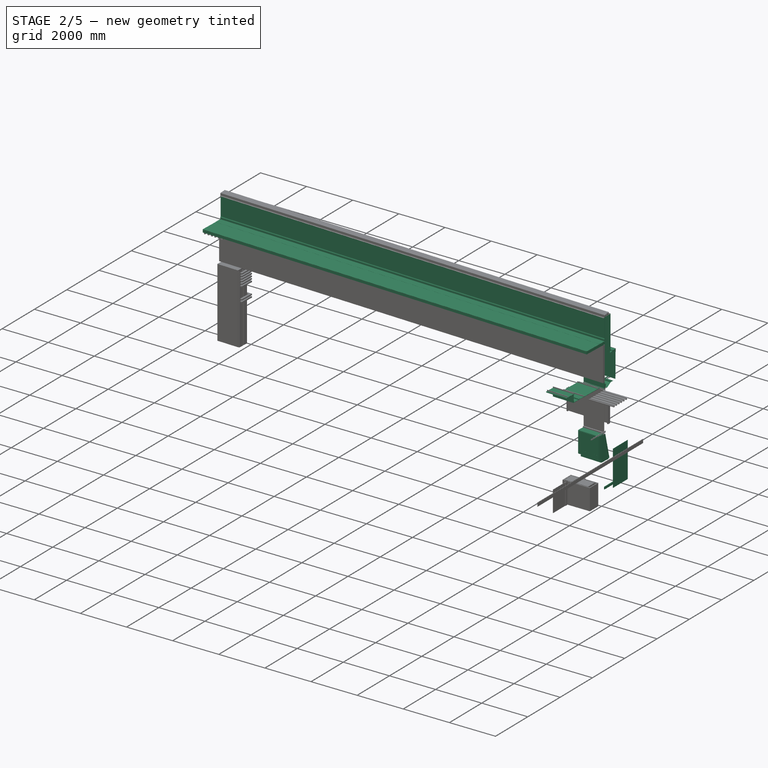
[diagram: stage 2 of 5 — iso view after this stage's code; geometry added in this stage tinted green]
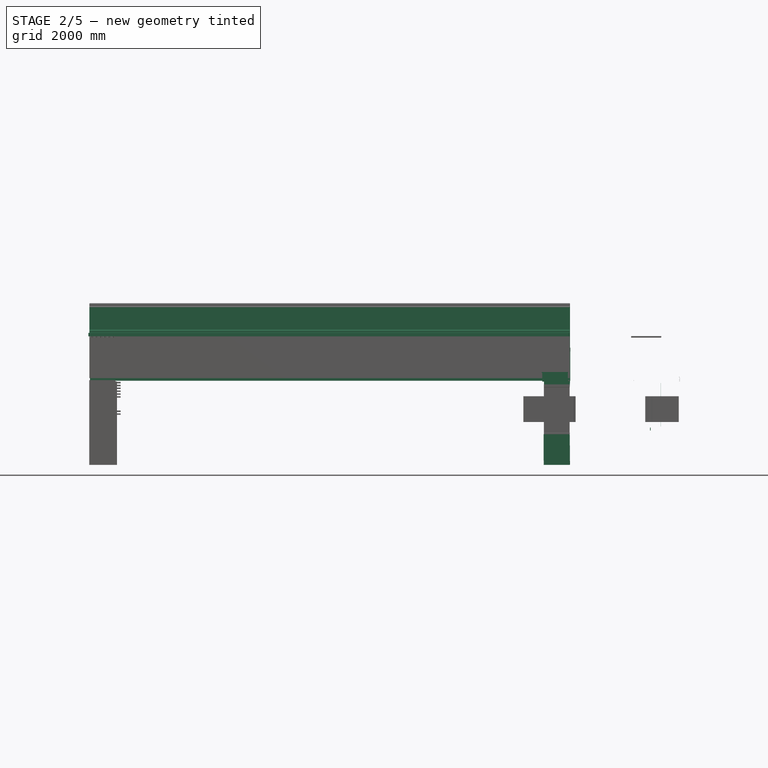
[diagram: stage 2 of 5 — front view after this stage's code; geometry added in this stage tinted green]
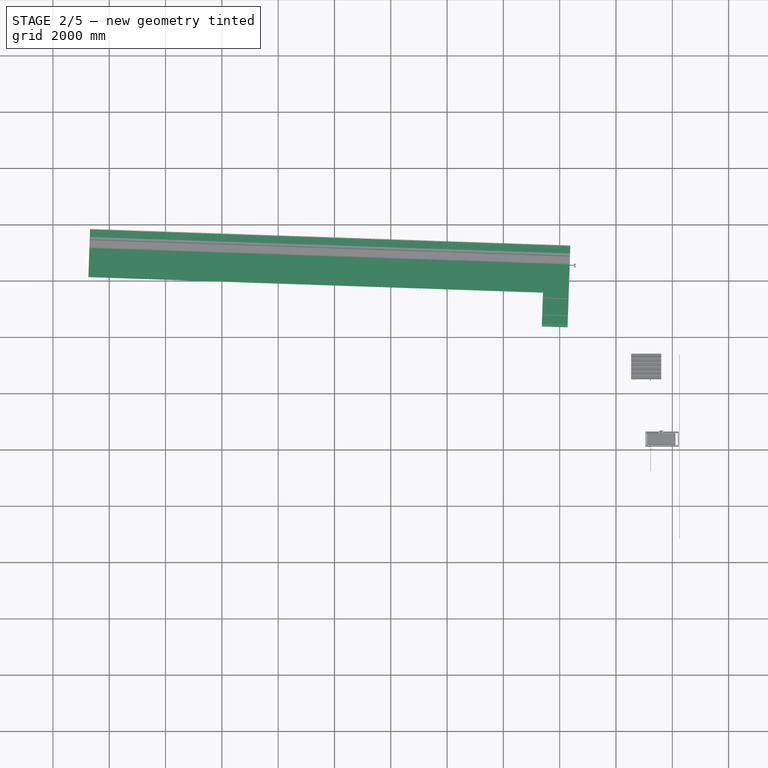
[diagram: stage 2 of 5 — top view after this stage's code; geometry added in this stage tinted green]
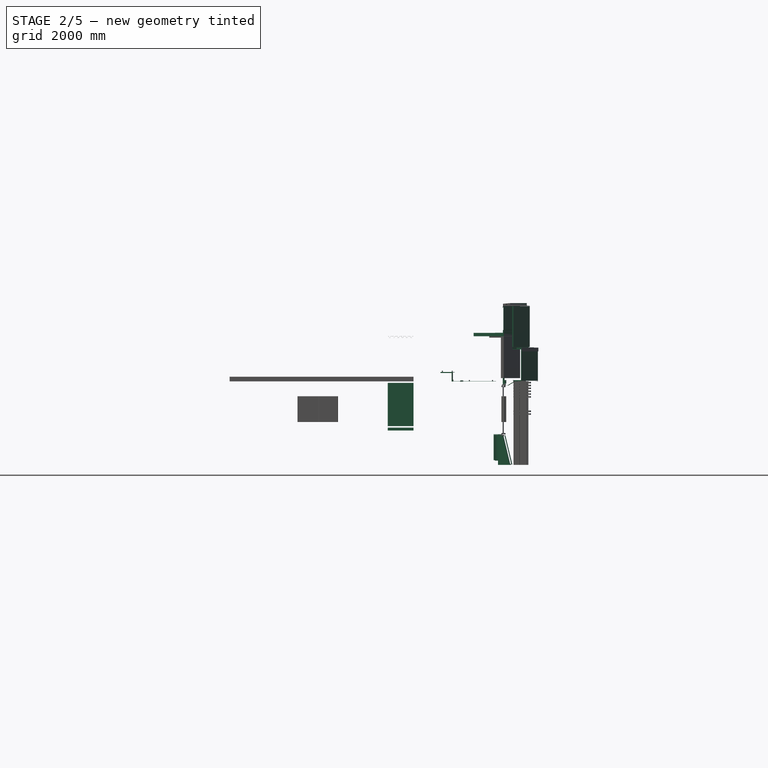
[diagram: stage 2 of 5 — right view after this stage's code; geometry added in this stage tinted green]
FEATURE [App::Annotation] Text
  LabelText = GRADE
  Position = (15372,22.4189,0)
FEATURE [App::Annotation] Text001
  LabelText = 0"
  Position = (15375.7,-92.0798,0)
FEATURE [App::Annotation] Text002
  LabelText = HIGH SIDE OF | JOISTS
  Position = (15360,4646.82,0)
FEATURE [App::Annotation] Text003
  LabelText = 14'-10"
  Position = (15363.7,4411.57,0)
FEATURE [App::Annotation] Text004
  LabelText = T.O. WINDOW
  Position = (12737.3,2722.55,0)
FEATURE [App::Annotation] Text005
  LabelText = 8'-10"
  Position = (12745.4,2596.81,0)
FEATURE [App::Annotation] Text006
  LabelText = T.O. PARAPET
  Position = (15067.3,5660.19,0)
FEATURE [App::Annotation] Text007
  LabelText = 18'-6"
  Position = (15071,5545.69,0)
FEATURE [App::Annotation] Text008
  LabelText = E.E
  Position = (13897.7,7665.41,0)
FEATURE [App::Annotation] Text009
  LabelText = 02 MEZZANINE
  Position = (12739.8,2502.5,0)
FEATURE [App::Annotation] Text010
  LabelText = 8'-2"
  Position = (12735.2,2379.57,0)
FEATURE [App::Annotation] Text011
  LabelText = B.O. SOFFIT
  Position = (15194.3,3732.93,0)
FEATURE [App::Annotation] Text012
  LabelText = 12'-2"
  Position = (15198,3618.43,0)
FEATURE [App::Annotation] Text013
  LabelText = B.O. EXIST | BEAM
  Position = (15230.8,3135.52,0)
FEATURE [App::Annotation] Text014
  LabelText = 9'-10 1/2"
  Position = (15231.7,2914.31,0)
FEATURE [App::Annotation] Text015
  LabelText = E.I
  Position = (14304.1,7665.41,0)
FEATURE [App::Annotation] Text016
  LabelText = GRADE
  Position = (21511.1,27.3375,0)
FEATURE [App::Annotation] Text017
  LabelText = 0"
  Position = (21514.8,-87.1611,0)
FEATURE [App::Annotation] Text018
  LabelText = HIGH SIDE OF | JOISTS
  Position = (21511.1,4649.63,0)
FEATURE [App::Annotation] Text019
  LabelText = 14'-10"
  Position = (21514.8,4414.38,0)
FEATURE [App::Annotation] Text020
  LabelText = T.O. WINDOW
  Position = (17073.2,2716.93,0)
FEATURE [App::Annotation] Text021
  LabelText = 8'-10"
  Position = (17092.6,2599.62,0)
FEATURE [App::Annotation] Text022
  LabelText = T.O. PARAPET
  Position = (21174.6,5684.98,0)
FEATURE [App::Annotation] Text023
  LabelText = 18'-6"
  Position = (21604.7,5523.56,0)
FEATURE [App::Annotation] Text024
  LabelText = E.E
  Position = (18999.2,7662.6,0)
FEATURE [App::Annotation] Text025
  LabelText = 02 MEZZANINE
  Position = (17081.3,2502.5,0)
FEATURE [App::Annotation] Text026
  LabelText = 8'-2"
  Position = (17088,2390.81,0)
FEATURE [App::Annotation] Text027
  LabelText = B.O.  | SOFFIT
  Position = (21379.1,3853.68,0)
FEATURE [App::Annotation] Text028
  LabelText = 12'-2"
  Position = (21377.2,3612.81,0)
FEATURE [App::Annotation] Text029
  LabelText = B.O. EXIST  | BEAM
  Position = (21373.5,3141.14,0)
FEATURE [App::Annotation] Text030
  LabelText = 9'-10 1/2"
  Position = (21380,2922.74,0)
FEATURE [App::FeaturePython] Dimension  # Draft dimension (typed FeaturePython)
  Diameter = false
  Dimline = (19069.4,1540.45,0)
  Direction = (0,0,0)
  Distance = 657.225
  End = (19069.4,1486.57,0)
  Normal = (0,0,1)
  Start = (19726.6,1486.57,0)
FEATURE [App::FeaturePython] Dimension002  # Draft dimension (typed FeaturePython)
  Diameter = false
  Dimline = (20329.3,0,0)
  Direction = (0,0,0)
  Distance = 2692.4
  End = (20383.2,0,0)
  Normal = (0,0,1)
  Start = (20383.2,2692.4,0)
FEATURE [App::FeaturePython] Dimension003  # Draft dimension (typed FeaturePython)
  Diameter = false
  Dimline = (19574.3,596.699,0)
  Direction = (0,0,0)
  Distance = 152.348
  End = (19574.3,542.818,0)
  Normal = (0,0,1)
  Start = (19726.6,542.818,0)
FEATURE [App::FeaturePython] Dimension004  # Draft dimension (typed FeaturePython)
  Diameter = false
  Dimline = (19574.3,906.753,0)
  Direction = (0,0,0)
  Distance = 861.16
  End = (19574.3,852.871,0)
  Normal = (0,0,1)
  Start = (20435.5,852.871,0)
FEATURE [App::FeaturePython] Dimension005  # Draft dimension (typed FeaturePython)
  Diameter = false
  Dimline = (19626.3,2058.79,0)
  Direction = (0,0,0)
  Distance = 1320.8
  End = (19626.3,2004.91,0)
  Normal = (0,0,1)
  Start = (20947.1,2004.91,0)
FEATURE [App::Annotation] Text031
  LabelText = E.I
  Position = (19405.6,7662.6,0)
FEATURE [App::Annotation] Text032
  LabelText = GRADE
  Position = (25706.5,21.7231,0.504169)
FEATURE [App::Annotation] Text033
  LabelText = 0"
  Position = (25710.2,-92.7755,0.504169)
FEATURE [App::Annotation] Text034
  LabelText = HIGH SIDE OF | JOISTS
  Position = (25678.4,4641.21,-1.08503)
FEATURE [App::Annotation] Text035
  LabelText = 14'-10"
  Position = (25682.1,4405.96,-1.08503)
FEATURE [App::Annotation] Text036
  LabelText = T.O. WINDOW
  Position = (22878.2,2714.13,-0.829727)
FEATURE [App::Annotation] Text037
  LabelText = 8'-10"
  Position = (22886.3,2608.05,-0.73399)
FEATURE [App::Annotation] Text038
  LabelText = T.O. PARAPET
  Position = (25361.1,5660.47,0.50453)
FEATURE [App::Annotation] Text039
  LabelText = 18'-6"
  Position = (25364.8,5545.97,0.50453)
FEATURE [App::Annotation] Text040
  LabelText = E.E
  Position = (24028.6,7671.03,0)
FEATURE [App::Annotation] Text041
  LabelText = 02 MEZZANINE
  Position = (22875.1,2508.12,-0.861638)
FEATURE [App::Annotation] Text042
  LabelText = 8'-2"
  Position = (22893,2388,-0.925466)
FEATURE [App::Annotation] Text043
  LabelText = B.O. SOFFIT
  Position = (25523.9,3727.32,-0.861641)
FEATURE [App::Annotation] Text044
  LabelText = 12'-2"
  Position = (25527.7,3612.82,-0.861641)
FEATURE [App::Annotation] Text045
  LabelText = B.O. EXIST BEAM
  Position = (25209.4,3031.63,-0.829727)
FEATURE [App::Annotation] Text046
  LabelText = 9'-10 1/2"
  Position = (25213.2,2917.13,-0.829727)
FEATURE [App::Annotation] Text047
  LabelText = E.I
  Position = (24435,7671.03,0)
FEATURE [App::Annotation] Text048
  LabelText = GRADE
  Position = (33394.5,17.2587,-0.880743)
FEATURE [App::Annotation] Text049
  LabelText = 0"
  Position = (33398.2,-97.2399,-0.880743)
FEATURE [App::Annotation] Text050
  LabelText = HIGH SIDE OF\nJOISTS
  Position = (32681.3,4542.93,-2.20257)
FEATURE [App::Annotation] Text051
  LabelText = 14'-10"
  Position = (33429.2,4414.39,-0.989566)
FEATURE [App::Annotation] Text052
  LabelText = T.O. WINDOW
  Position = (33077.3,2716.93,-0.798036)
FEATURE [App::Annotation] Text053
  LabelText = 8'-10"
  Position = (33081,2602.44,-0.798036)
FEATURE [App::Annotation] Text054
  LabelText = T.O. PARAPET
  Position = (33071.7,5660.53,-0.829957)
FEATURE [App::Annotation] Text055
  LabelText = 18'-6"
  Position = (33075.4,5546.03,-0.829957)
FEATURE [App::Annotation] Text056
  LabelText = 8
  Position = (30762.6,8278.67,0)
FEATURE [App::Annotation] Text057
  LabelText = 3
  Position = (29322.1,1246.5,-0.893801)
FEATURE [App::Annotation] Text058
  LabelText = A440
  Position = (29249.1,1113.9,-0.798035)
FEATURE [App::Annotation] Text059
  LabelText = 6
  Position = (27526.4,2311.11,-0.63843)
FEATURE [App::Annotation] Text060
  LabelText = A511
  Position = (27461.8,2172.9,-0.606507)
FEATURE [App::Annotation] Text061
  LabelText = 02 MEZZANINE
  Position = (33063.2,2505.31,-0.893801)
FEATURE [App::Annotation] Text062
  LabelText = 8'-2"
  Position = (33067,2390.81,-0.893801)
FEATURE [App::Annotation] Text063
  LabelText = B.O. SOFFIT
  Position = (33181.2,3735.74,-0.766114)
FEATURE [App::Annotation] Text064
  LabelText = 12'-2"
  Position = (33491,3587.55,-1.14917)
FEATURE [App::Annotation] Text065
  LabelText = 9.E
  Position = (31372.2,8278.67,0)
FEATURE [App::Annotation] Text066
  LabelText = B.O. EXIST BEAM
  Position = (32917.2,3028.82,-0.86188)
FEATURE [App::Annotation] Text067
  LabelText = 9'-10 1/2"
  Position = (32920.9,2914.32,-0.86188)
FEATURE [App::Annotation] Text068
  LabelText = 9.1
  Position = (31067.4,8278.67,0)
FEATURE [App::Annotation] Text069
  LabelText = GRADE
  Position = (39739.1,13.2969,0)
FEATURE [App::Annotation] Text070
  LabelText = 0"
  Position = (39742.8,-101.202,0)
FEATURE [App::Annotation] Text071
  LabelText = HIGH SIDE OF\nJOISTS
  Position = (39067.9,4554.16,-2.07489)
FEATURE [App::Annotation] Text072
  LabelText = 14'-10"
  Position = (39810.2,4408.77,-1.05341)
FEATURE [App::Annotation] Text073
  LabelText = T.O. WINDOW
  Position = (35330.7,2721.87,-0.741922)
FEATURE [App::Annotation] Text074
  LabelText = 8'-10"
  Position = (35333,2591.16,0)
FEATURE [App::Annotation] Text075
  LabelText = T.O. PARAPET
  Position = (39433,5666.14,-0.766116)
FEATURE [App::Annotation] Text076
  LabelText = 18'-6"
  Position = (39436.7,5551.64,-0.766116)
FEATURE [App::Annotation] Text077
  LabelText = 8
  Position = (36589.2,8281.48,0)
FEATURE [App::Annotation] Text078
  LabelText = 4
  Position = (35091.9,1254.92,0)
FEATURE [App::Annotation] Text079
  LabelText = A441
  Position = (35032.9,1111.09,0)
FEATURE [App::Annotation] Text082
  LabelText = 02 MEZZANINE
  Position = (35327.4,2505.31,0)
FEATURE [App::Annotation] Text083
  LabelText = 8'-2"
  Position = (35334.1,2376.77,0)
FEATURE [App::Annotation] Text084
  LabelText = B.O. SOFFIT
  Position = (39489.2,3735.74,-0.766114)
FEATURE [App::Annotation] Text085
  LabelText = 12'-2"
  Position = (39810.2,3604.4,-0.957643)
FEATURE [App::Annotation] Text086
  LabelText = 9.E
  Position = (37198.8,8281.48,0)
FEATURE [App::Annotation] Text087
  LabelText = B.O. EXIST BEAM
  Position = (39261.7,3045.67,-0.67035)
FEATURE [App::Annotation] Text088
  LabelText = 9'-10 1/2"
  Position = (39678.2,2905.9,-0.957643)
FEATURE [App::FeaturePython] Dimension009  # Draft dimension (typed FeaturePython)
  Diameter = false
  Dimline = (38025.1,0,0)
  Direction = (0,0,0)
  Distance = 2692.4
  End = (38079,0,0)
  Normal = (0,0,1)
  Start = (38079,2692.4,0)
FEATURE [App::Annotation] Text089
  LabelText = 9.1
  Position = (36894,8281.48,0)
FEATURE [App::Annotation] Text090
  LabelText = GRADE
  Position = (4689.87,15.1874,0)
FEATURE [App::Annotation] Text091
  LabelText = 0"
  Position = (4693.6,-99.3112,0)
FEATURE [App::Annotation] Text092
  LabelText = HIGH SIDE OF\nJOISTS
  Position = (3997.27,4548.53,0)
FEATURE [App::Annotation] Text093
  LabelText = 14'-10"
  Position = (4733.94,4408.77,0)
FEATURE [App::Annotation] Text094
  LabelText = T.O. WINDOW
  Position = (1888.4,2725.35,0)
FEATURE [App::Annotation] Text095
  LabelText = 8'-10"
  Position = (1912.3,2603.42,0)
FEATURE [App::Annotation] Text096
  LabelText = T.O. PARAPET
  Position = (4376.38,5663.33,0)
FEATURE [App::Annotation] Text097
  LabelText = 18'-6"
  Position = (4770.44,5548.83,0)
FEATURE [App::Annotation] Text098
  LabelText = 8
  Position = (3199.39,6628.62,0)
FEATURE [App::Annotation] Text099
  LabelText = 3
  Position = (1677.8,1254.92,0)
FEATURE [App::Annotation] Text100
  LabelText = A440
  Position = (1610.4,1119.51,0)
FEATURE [App::Annotation] Text101
  LabelText = 02 MEZZANINE
  Position = (1896.53,2510.92,0)
FEATURE [App::Annotation] Text102
  LabelText = 8'-2"
  Position = (1916.17,2380.56,0)
FEATURE [App::Annotation] Text103
  LabelText = B.O. SOFFIT
  Position = (4474.66,3732.93,0)
FEATURE [App::Annotation] Text104
  LabelText = 12'-2"
  Position = (4778.87,3590.35,0)
FEATURE [App::Annotation] Text105
  LabelText = 9.E
  Position = (3808.99,6628.62,0)
FEATURE [App::Annotation] Text106
  LabelText = B.O. EXIST BEAM
  Position = (4224.85,3057.77,0)
FEATURE [App::Annotation] Text107
  LabelText = 9'-10 1/2"
  Position = (4638.46,2914.31,0)
FEATURE [App::Annotation] Text108
  LabelText = 9.1
  Position = (3504.19,6628.62,0)
FEATURE [App::FeaturePython] Dimension010  # Draft dimension (typed FeaturePython)
  Diameter = false
  Dimline = (4544.24,2705.1,0)
  Direction = (0,0,0)
  Distance = 254
  End = (4598.13,2705.1,0)
  Normal = (0,0,1)
  Start = (4598.13,2959.1,0)
FEATURE [App::Annotation] Text109
  LabelText = GRADE
  Position = (10328.1,21.3858,0)
FEATURE [App::Annotation] Text110
  LabelText = 0"
  Position = (10331.8,-93.1128,0)
FEATURE [App::Annotation] Text111
  LabelText = HIGH SIDE OF | JOISTS
  Position = (10197.3,4652.44,0)
FEATURE [App::Annotation] Text112
  LabelText = 14'-10"
  Position = (10206.6,4422.81,0)
FEATURE [App::Annotation] Text113
  LabelText = T.O. WINDOW
  Position = (6197.25,2719.74,0)
FEATURE [App::Annotation] Text114
  LabelText = 8'-10"
  Position = (6210.96,2608.05,0)
FEATURE [App::Annotation] Text115
  LabelText = T.O. PARAPET
  Position = (10011.9,5657.71,0)
FEATURE [App::Annotation] Text116
  LabelText = 18'-6"
  Position = (10015.7,5543.21,0)
FEATURE [App::Annotation] Text117
  LabelText = E.E
  Position = (7808.95,7668.22,0)
FEATURE [App::Annotation] Text118
  LabelText = 02 MEZZANINE
  Position = (6188.02,2508.01,0)
FEATURE [App::Annotation] Text119
  LabelText = 8'-2"
  Position = (6200.06,2382.66,0)
FEATURE [App::Annotation] Text120
  LabelText = B.O. SOFFIT
  Position = (10143.9,3721.7,0)
FEATURE [App::Annotation] Text121
  LabelText = 12'-2"
  Position = (10147.7,3607.2,0)
FEATURE [App::Annotation] Text122
  LabelText = B.O. EXIST BEAM
  Position = (9837.84,3026,0)
FEATURE [App::Annotation] Text123
  LabelText = 9'-10 1/2"
  Position = (9841.57,2911.51,0)
FEATURE [App::Annotation] Text124
  LabelText = E.I
  Position = (8215.35,7668.22,0)
FEATURE [Part::Feature] ENTITIES_A_CLNG
  shape: bbox 30310 x 1089 x 2e-07 mm, 0 faces, 0 solids (baked)
FEATURE [Part::Feature] ENTITIES_A_DETL
  shape: bbox 2310 x 2e-07 x 2e-07 mm, 0 faces, 0 solids (baked)
FEATURE [Part::Feature] ENTITIES_A_DOOR
  shape: bbox 36.85 x 2400 x 2e-07 mm, 0 faces, 0 solids (baked)
FEATURE [Part::Feature] ENTITIES_A_FLOR
  shape: bbox 37030 x 3213 x 2e-07 mm, 0 faces, 0 solids (baked)
FEATURE [Part::Feature] ENTITIES_A_FLOR_MCUT
  shape: bbox 27080 x 2e-07 x 2e-07 mm, 0 faces, 0 solids (baked)
FEATURE [Part::Feature] ENTITIES_A_GENM
  shape: bbox 762 x 749.3 x 2e-07 mm, 0 faces, 0 solids (baked)
FEATURE [Part::Feature] ENTITIES_A_GLAZ_CURT
  shape: bbox 22130 x 1715 x 2e-07 mm, 0 faces, 0 solids (baked)
FEATURE [Part::Feature] ENTITIES_A_GLAZ_CWMG
  shape: bbox 22140 x 2959 x 2e-07 mm, 0 faces, 0 solids (baked)
FEATURE [Part::Feature] ENTITIES_A_MASS
  shape: bbox 328.5 x 2990 x 2e-07 mm, 0 faces, 0 solids (baked)
FEATURE [Part::Feature] ENTITIES_A_ROOF
  shape: bbox 34460 x 1734 x 2e-07 mm, 0 faces, 0 solids (baked)
FEATURE [Part::Feature] ENTITIES_I_FURN
  shape: bbox 18780 x 889 x 2e-07 mm, 0 faces, 0 solids (baked)
FEATURE [Part::Feature] ENTITIES_I_WALL
  shape: bbox 34670 x 4521 x 2e-07 mm, 0 faces, 0 solids (baked)
FEATURE [Part::Feature] ENTITIES_Q_CASE
  shape: bbox 34090 x 1524 x 2e-07 mm, 0 faces, 0 solids (baked)
FEATURE [Part::Feature] ENTITIES_S_BEAM
  shape: bbox 20480 x 1094 x 2e-07 mm, 0 faces, 0 solids (baked)
FEATURE [Part::Feature] Compound001  label="ENTITIES_LEVELS"
  shape: bbox 38710 x 5791 x 2e-07 mm, 0 faces, 0 solids (baked)
FEATURE [Part::Feature] Compound002  label="ENTITIES_AXES"
  shape: bbox 34300 x 9747 x 2e-07 mm, 0 faces, 0 solids (baked)
FEATURE [App::DocumentObjectGroup] Group001  label="texts"
  Group = -> [Text109,Text110,Text111,Text112,Text113,Text114,Text115,Text116,Text117,Text118,Text119,Text120,Text121,Text122,Text123,Text124,Text089,Text090,Text091,Text092,Text093,Text094,Text095,Text096,Text097,Text098,Text099,Text100,Text101,Text102,Text103,Text104,Text105,Text106,Text107,Text108,Text031,Text032,Text033,Text034,Text035,Text036,Text037,Text038,Text039,Text040,Text041,Text042,Text043,Text044,+73 more]
FEATURE [App::DocumentObjectGroup] Group002  label="dims"
  Group = -> [Dimension,Dimension002,Dimension003,Dimension004,Dimension005,Dimension009,Dimension010]
FEATURE [App::MaterialObjectPython] Material  label="TPO MEMBRANE"  # material (typed FeaturePython)
  Material = DiffuseColor=(0.14901960784313725, 0.1607843137254902, 0.19607843137254902); Name=TPO MEMBRANE
FEATURE [App::MaterialObjectPython] Material001  label="RIGID INSULATION"  # material (typed FeaturePython)
  Material = DiffuseColor=(1.0, 1.0, 0.4980392156862745); Name=RIGID INSULATION
FEATURE [App::MaterialObjectPython] Material002  label="EXISTING CONCRETE WALL"  # material (typed FeaturePython)
  Material = DiffuseColor=(1.0, 1.0, 1.0); Name=EXISTING CONCRETE WALL
FEATURE [App::MaterialObjectPython] Material003  label="STEEL DECK"  # material (typed FeaturePython)
  Material = DiffuseColor=(0.17647058823529413, 0.19215686274509805, 0.23137254901960785); Name=STEEL DECK
FEATURE [App::MaterialObjectPython] Material005  label="METAL LATH"  # material (typed FeaturePython)
  Material = DiffuseColor=(0.17647058823529413, 0.19215686274509805, 0.23137254901960785); Name=METAL LATH
FEATURE [App::MaterialObjectPython] Material007  label="WRB MEMBRANE"  # material (typed FeaturePython)
  Material = DiffuseColor=(0.2901960784313726, 0.30980392156862746, 0.3686274509803922); Name=WRB MEMBRANE
FEATURE [App::MaterialObjectPython] Material008  label="CEMENT BOND COAT"  # material (typed FeaturePython)
  Material = DiffuseColor=(1.0, 1.0, 1.0); Name=CEMENT BOND COAT
FEATURE [App::MaterialObjectPython] Material009  label="PORCELAIN TILES"  # material (typed FeaturePython)
  Material = DiffuseColor=(0.4470588235294118, 0.6, 0.6666666666666666); Name=PORCELAIN TILES
FEATURE [App::MaterialObjectPython] Material010  label="WOOD BLOCK 3X6""  # material (typed FeaturePython)
  Material = DiffuseColor=(1.0, 0.6666666666666666, 0.4980392156862745); Name=WOOD BLOCK 3X6"
FEATURE [App::MaterialObjectPython] Material011  label="SEALANT"  # material (typed FeaturePython)
  Material = DiffuseColor=(1.0, 1.0, 1.0); Name=SEALANT
FEATURE [App::MaterialObjectPython] Material012  label="L-SHAPED ALUMINIUM PROFILE"  # material (typed FeaturePython)
  Material = DiffuseColor=(0.5019607843137255, 0.5019607843137255, 0.5019607843137255); Name=L-SHAPED ALUMINIUM PROFILE
FEATURE [App::MaterialObjectPython] Material013  label="COUNTER FLASHING - SAME COLOR AS PORCELAIN TILES"  # material (typed FeaturePython)
  Material = DiffuseColor=(0.4470588235294118, 0.6, 0.6666666666666666); Name=COUNTER FLASHING - SAME COLOR AS PORCELAIN TILES
FEATURE [App::MaterialObjectPython] Material014  label="FLASHING"  # material (typed FeaturePython)
  Material = DiffuseColor=(0.5019607843137255, 0.5019607843137255, 0.5019607843137255); Name=FLASHING
FEATURE [App::MaterialObjectPython] EXISTING_RIGID_INSULATION_AT_ROOF__PATCH_AND_REPAIR_AS_NECESSARY_  label="EXISTING RIGID INSULATION AT ROOF (PATCH AND REPAIR AS NECESSARY)"  # material (typed FeaturePython)
  Material = DiffuseColor=(0.8039215803146362, 0.7372549176216125, 0.4156862795352936); Name=EXISTING RIGID INSULATION AT ROOF (PATCH AND REPAIR AS NECESSARY)
FEATURE [App::MaterialObjectPython] PRESSURE_TREATED_WOOD_BLOCKING___SIZE_AS_NECESSARY  label="PRESSURE TREATED WOOD BLOCKING - SIZE AS NECESSARY"  # material (typed FeaturePython)
  Material = DiffuseColor=(1.0, 0.6666666666666666, 0.4980392156862745); Name=PRESSURE TREATED WOOD BLOCKING - SIZE AS NECESSARY
FEATURE [App::MaterialObjectPython] SEALANT___BACKER_ROD__IF_NECESSARY  label="SEALANT & BACKER ROD, IF NECESSARY"  # material (typed FeaturePython)
  Material = DiffuseColor=(0.11372549019607843, 0.11372549019607843, 0.11372549019607843); Name=SEALANT & BACKER ROD, IF NECESSARY
FEATURE [App::MaterialObjectPython] IfcSurfaceStyle__179  label="IFCSURFACESTYLE #179"  # material (typed FeaturePython)
  Material = DiffuseColor=(0.501960813999176, 0.501960813999176, 0.501960813999176); Name=IFCSURFACESTYLE #179
FEATURE [App::MaterialObjectPython] _EXISTING_CAST_IN_PLACE_CONCRETE  label="_EXISTING CAST-IN-PLACE CONCRETE"  # material (typed FeaturePython)
  Material = DiffuseColor=(0.8235294222831726, 0.8235294222831726, 0.8235294222831726); Name=_EXISTING CAST-IN-PLACE CONCRETE
FEATURE [App::MaterialObjectPython] IMPERMEABLE_WRB_MEMBRANE  label="IMPERMEABLE WRB MEMBRANE"  # material (typed FeaturePython)
  Material = DiffuseColor=(0.0, 0.0, 0.0); Name=IMPERMEABLE WRB MEMBRANE
FEATURE [App::MaterialObjectPython] CEMENTITIOUS_BOND_COAT  label="CEMENTITIOUS BOND COAT"  # material (typed FeaturePython)
  Material = DiffuseColor=(0.0, 0.0, 0.0); Name=CEMENTITIOUS BOND COAT
FEATURE [App::MaterialObjectPython] TPO_MEMBRANE_ROOF_MEMBRANE  label="TPO MEMBRANE ROOF MEMBRANE"  # material (typed FeaturePython)
  Material = DiffuseColor=(0.14901960784313725, 0.14901960784313725, 0.14901960784313725); Name=TPO MEMBRANE ROOF MEMBRANE
FEATURE [App::MaterialObjectPython] SCRATCH_COAT  label="SCRATCH COAT"  # material (typed FeaturePython)
  Material = DiffuseColor=(0.47058823704719543, 0.47058823704719543, 0.47058823704719543); Name=SCRATCH COAT
FEATURE [App::MaterialObjectPython] _CT_01__PORCELAIN_WALL_TILE  label="(CT-01) PORCELAIN WALL TILE"  # material (typed FeaturePython)
  Material = DiffuseColor=(0.8627451062202454, 0.8627451062202454, 0.8705882430076599); Name=(CT-01) PORCELAIN WALL TILE
FEATURE [App::MaterialObjectPython] SHEET_METAL_COPING  label="SHEET METAL COPING"  # material (typed FeaturePython)
  Material = DiffuseColor=(0.4156862795352936, 0.4156862795352936, 0.4156862795352936); Name=SHEET METAL COPING
FEATURE [App::MaterialObjectPython] SET_IN_BED_OF_SEALANT  label="SET IN BED OF SEALANT"  # material (typed FeaturePython)
  Material = DiffuseColor=(0.22745098173618317, 0.8156862854957581, 0.08235294371843338); Name=SET IN BED OF SEALANT
FEATURE [App::MaterialObjectPython] IfcSurfaceStyle__1109  label="IFCSURFACESTYLE #1109"  # material (typed FeaturePython)
  Material = DiffuseColor=(0.1764705926179886, 0.1921568661928177, 0.23137255012989044); Name=IFCSURFACESTYLE #1109
FEATURE [App::MaterialObjectPython] METAL_LATH_OVER_CLEAVAGE_MEMBRANE  label="METAL LATH OVER CLEAVAGE MEMBRANE"  # material (typed FeaturePython)
  Material = DiffuseColor=(0.47058823704719543, 0.47058823704719543, 0.47058823704719543); Name=METAL LATH OVER CLEAVAGE MEMBRANE
FEATURE [App::MaterialObjectPython] MORTAR_BED  label="MORTAR BED"  # material (typed FeaturePython)
  Material = DiffuseColor=(0.9176470637321472, 0.9176470637321472, 0.9176470637321472); Name=MORTAR BED
FEATURE [App::MaterialObjectPython] __4__PRESSURE_TREATED_PLYWOOD__PROTECTION_BOARD_OVER_EXISTING_CONCRETE_  label="1/4" PRESSURE TREATED PLYWOOD (PROTECTION BOARD OVER EXISTING CONCRETE)"  # material (typed FeaturePython)
  Material = DiffuseColor=(0.7686274647712708, 0.6941176652908325, 0.48235294222831726); Name=1/4" PRESSURE TREATED PLYWOOD (PROTECTION BOARD OVER EXISTING CONCRETE)
FEATURE [Part::Part2DObjectPython] Rectangle015  # Draft 2D object (typed FeaturePython)
  ChamferSize = 0
  Columns = 1
  FilletRadius = 0
  Height = 2628.9
  Length = 304.8
  MakeFace = true
  Placement = pos=(36941.8,4318,0) rot=(0,0,1;0rad)
  Rows = 1
FEATURE [Part::FeaturePython] Wall002  label="Concrete wall"  # Arch/BIM object (typed FeaturePython)
  Align = 2
  Base = -> Rectangle015
  BaseMaterial = -> _EXISTING_CAST_IN_PLACE_CONCRETE
  Face = 0
  Height = 17068.8
  HorizontalArea = 5.20257e+06
  IfcAttributes = IfcUID=36E87UyyaHvehM093rt3ko
  Length = 0
  MoveWithHost = false
  Normal = (0,0,0)
  PerimeterLength = 34747.2
  Placement = pos=(16032.7,-51796,-1308.1) rot=(0.590516,0.570653,0.570653;2.07476rad)
  Role = 0
  VerticalArea = 9.13469e+07
  Width = 200
FEATURE [Part::Feature] Generic_Models_1_Generic_Models_1_362499_footprint
  shape: bbox 938.1 x 228.4 x 2e-07 mm, 1 faces, 0 solids (baked)
FEATURE [Part::Extrusion] Generic_Models_1_Generic_Models_1_362499_body
  Base = -> Generic_Models_1_Generic_Models_1_362499_footprint
  Dir = (0,0,76.2)
  DirMode = 0
  FaceMakerClass = Part::FaceMakerBullseye
  LengthFwd = 0
  LengthRev = 0
  Solid = false
  Symmetric = false
FEATURE [App::MaterialObjectPython] STONE_T_B_D_  label="STONE T.B.D."  # material (typed FeaturePython)
  Material = DiffuseColor=(0.470588235294118, 0.470588235294118, 0.470588235294118); Name=STONE T.B.D.
FEATURE [Part::FeaturePython] Generic_Models_1_Generic_Models_1_362499  label="Generic Models 1:Generic Models 1:362499"  # Arch/BIM object (typed FeaturePython)
  Base = -> Generic_Models_1_Generic_Models_1_362499_body
  BaseMaterial = -> STONE_T_B_D_
  HorizontalArea = 0
  IfcAttributes = IfcUID=30LkiqxzmHveNx093rt3ko; Reference=IfcIdentifier('Generic Models 1')
  MoveWithHost = false
  PerimeterLength = 0
  Role = 0
  VerticalArea = 0
FEATURE [Part::Part2DObjectPython] Rectangle083  # Draft 2D object (typed FeaturePython)
  ChamferSize = 0
  Columns = 1
  FilletRadius = 0
  Height = 101.665
  Length = 21.8867
  MakeFace = true
  Placement = pos=(37205.9,-19576.8,1219.14) rot=(1,0,0;1.5708rad)
  Rows = 1
FEATURE [Part::Extrusion] Extrusion051
  Base = -> Rectangle083
  Dir = (0,914.4,0)
  DirMode = 0
  FaceMakerClass = Part::FaceMakerBullseye
  LengthFwd = 0
  LengthRev = 0
  Solid = true
  Symmetric = false
FEATURE [App::MaterialObjectPython] Material047  label="WOOD BLOCK"  # material (typed FeaturePython)
  Material = DiffuseColor=(1.0, 0.6666666666666666, 0.4980392156862745); Name=WOOD BLOCK
FEATURE [Part::FeaturePython] Component572009  label="Wood block 016"  # Arch/BIM object (typed FeaturePython)
  Base = -> Extrusion051
  BaseMaterial = -> Material047
  HorizontalArea = 0
  IfcAttributes = IfcUID=2zURO8xzmHveNx093rt3ko
  MoveWithHost = false
  PerimeterLength = 0
  Role = 0
  VerticalArea = 0
FEATURE [Part::Part2DObjectPython] Rectangle084  # Draft 2D object (typed FeaturePython)
  ChamferSize = 0
  Columns = 1
  FilletRadius = 0
  Height = 155.679
  Length = 25.8357
  MakeFace = true
  Placement = pos=(37180,-19576.8,169.608) rot=(1,0,0;1.5708rad)
  Rows = 1
  Support = -> [Generic_Models_1_Generic_Models_1_362499]
FEATURE [Part::Part2DObjectPython] Rectangle085  # Draft 2D object (typed FeaturePython)
  ChamferSize = 0
  Columns = 1
  FilletRadius = 0
  Height = 990.6
  Length = 25.8357
  MakeFace = true
  Placement = pos=(37180,-19576.8,325.287) rot=(1,0,0;1.5708rad)
  Rows = 1
FEATURE [Part::Part2DObjectPython] Rectangle086  # Draft 2D object (typed FeaturePython)
  ChamferSize = 0
  Columns = 1
  FilletRadius = 0
  Height = 19.9397
  Length = 358.775
  MakeFace = true
  Placement = pos=(37180.4,-19576.8,1324.45) rot=(1,0,0;1.5708rad)
  Rows = 1
FEATURE [Part::Extrusion] Extrusion052
  Base = -> Rectangle084
  Dir = (0,914.4,0)
  DirMode = 0
  FaceMakerClass = Part::FaceMakerBullseye
  LengthFwd = 0
  LengthRev = 0
  Solid = true
  Symmetric = false
FEATURE [Part::FeaturePython] Component572016  label="Hardwood trim001"  # Arch/BIM object (typed FeaturePython)
  Base = -> Extrusion052
  BaseMaterial = -> Material048
  HorizontalArea = 0
  IfcAttributes = IfcUID=2zcAVexzmHveNx093rt3ko
  MoveWithHost = false
  PerimeterLength = 0
  Role = 0
  VerticalArea = 0
FEATURE [Part::Part2DObjectPython] Rectangle087  # Draft 2D object (typed FeaturePython)
  ChamferSize = 0
  Columns = 1
  FilletRadius = 0
  Height = 3.72211
  Length = 25.8357
  MakeFace = true
  Placement = pos=(37180,-19576.8,1320.73) rot=(1,0,0;1.5708rad)
  Rows = 1
FEATURE [Part::Extrusion] Extrusion055
  Base = -> Rectangle087
  Dir = (0,914.4,0)
  DirMode = 0
  FaceMakerClass = Part::FaceMakerBullseye
  LengthFwd = 0
  LengthRev = 0
  Solid = true
  Symmetric = false
FEATURE [App::MaterialObjectPython] Material050  label="HIDDEN-OBJECT INCLUDE 1/8" QUIRK JT"  # material (typed FeaturePython)
  Material = DiffuseColor=(0.9686274509803922, 0.0, 1.0); Name=HIDDEN-OBJECT INCLUDE 1/8" QUIRK JT
FEATURE [Part::FeaturePython] Component572017  label="hidden - space"  # Arch/BIM object (typed FeaturePython)
  Base = -> Extrusion055
  BaseMaterial = -> Material050
  HorizontalArea = 0
  IfcAttributes = IfcUID=2zcPVUxzmHveNx093rt3ko
  MoveWithHost = false
  PerimeterLength = 0
  Role = 0
  VerticalArea = 0
FEATURE [Part::FeaturePython] Component572018  label="hidden - space001"  # Arch/BIM object (typed FeaturePython)
  BaseMaterial = -> Material050
  CloneOf = -> Component572017
  HorizontalArea = 0
  IfcAttributes = IfcUID=2zcjxmxzmHveNx093rt3ko
  MoveWithHost = false
  PerimeterLength = 0
  Placement = pos=(0,0,-995.443) rot=(0,0,1;0rad)
  Role = 0
  VerticalArea = 0
FEATURE [Part::Part2DObjectPython] Rectangle090  # Draft 2D object (typed FeaturePython)
  ChamferSize = 0
  Columns = 1
  FilletRadius = 0
  Height = 1536.7
  Length = 15.875
  MakeFace = true
  Placement = pos=(37487.8,-19576.8,3089.08) rot=(1,0,0;1.5708rad)
  Rows = 1
FEATURE [Part::Part2DObjectPython] Rectangle091  # Draft 2D object (typed FeaturePython)
  ChamferSize = 0
  Columns = 1
  FilletRadius = 0
  Height = 123.544
  Length = 59.125
  MakeFace = true
  Placement = pos=(37542.4,-19576.8,2963.04) rot=(1,0,0;1.5708rad)
  Rows = 1
FEATURE [Part::Feature] Polyline174  label="Polyline249"
  Placement = pos=(37192.7,-19576.8,2954.34) rot=(1,0,0;1.5708rad)
  shape: bbox 32.62 x 2e-07 x 4.578 mm, 1 faces, 0 solids (baked)
FEATURE [Part::Feature] Polyline176  label="Polyline250"
  Placement = pos=(37192.7,-19576.8,2954.34) rot=(1,0,0;1.5708rad)
  shape: bbox 17.03 x 2e-07 x 1.936 mm, 1 faces, 0 solids (baked)
FEATURE [Part::Feature] Polyline177  label="Polyline251"
  Placement = pos=(37192.7,-19576.8,2954.34) rot=(1,0,0;1.5708rad)
  shape: bbox 5.062 x 2e-07 x 11.57 mm, 1 faces, 0 solids (baked)
FEATURE [Part::Feature] Polyline179  label="Polyline252"
  Placement = pos=(37192.7,-19576.8,2954.34) rot=(1,0,0;1.5708rad)
  shape: bbox 5.062 x 2e-07 x 11.57 mm, 1 faces, 0 solids (baked)
FEATURE [Part::Feature] Polyline181  label="Polyline253"
  Placement = pos=(37192.7,-19576.8,2954.34) rot=(1,0,0;1.5708rad)
  shape: bbox 2.932 x 2e-07 x 4.274 mm, 1 faces, 0 solids (baked)
FEATURE [Part::Feature] Polyline182  label="Polyline254"
  Placement = pos=(37192.7,-19576.8,2954.34) rot=(1,0,0;1.5708rad)
  shape: bbox 8.247 x 2e-07 x 15.12 mm, 1 faces, 0 solids (baked)
FEATURE [Part::Feature] Polyline183  label="Polyline255"
  Placement = pos=(37192.7,-19576.8,2954.34) rot=(1,0,0;1.5708rad)
  shape: bbox 8.247 x 2e-07 x 15.12 mm, 1 faces, 0 solids (baked)
FEATURE [Part::Feature] Polyline186  label="Polyline256"
  Placement = pos=(37192.7,-19576.8,2954.34) rot=(1,0,0;1.5708rad)
  shape: bbox 107.8 x 2e-07 x 44.45 mm, 1 faces, 0 solids (baked)
FEATURE [Part::Feature] Polyline187  label="Polyline257"
  Placement = pos=(37192.7,-19576.8,2954.34) rot=(1,0,0;1.5708rad)
  shape: bbox 32.62 x 2e-07 x 4.578 mm, 1 faces, 0 solids (baked)
FEATURE [Part::Feature] Polyline188  label="Polyline258"
  Placement = pos=(37192.7,-19576.8,2954.34) rot=(1,0,0;1.5708rad)
  shape: bbox 5.062 x 2e-07 x 11.57 mm, 1 faces, 0 solids (baked)
FEATURE [Part::Feature] Polyline189  label="Polyline259"
  Placement = pos=(37192.7,-19576.8,2954.34) rot=(1,0,0;1.5708rad)
  shape: bbox 5.062 x 2e-07 x 11.57 mm, 1 faces, 0 solids (baked)
FEATURE [Part::Feature] Polyline190  label="Polyline260"
  Placement = pos=(37192.7,-19576.8,2954.34) rot=(1,0,0;1.5708rad)
  shape: bbox 2.932 x 2e-07 x 4.274 mm, 1 faces, 0 solids (baked)
FEATURE [Part::Feature] Polyline191  label="Polyline261"
  Placement = pos=(37192.7,-19576.8,2954.34) rot=(1,0,0;1.5708rad)
  shape: bbox 2.932 x 2e-07 x 4.274 mm, 1 faces, 0 solids (baked)
FEATURE [Part::Feature] Polyline194  label="Polyline262"
  Placement = pos=(37155.9,-19576.8,2954.34) rot=(1,0,0;1.5708rad)
  shape: bbox 2.932 x 2e-07 x 4.274 mm, 1 faces, 0 solids (baked)
FEATURE [Part::Feature] Polyline195  label="Polyline263"
  Placement = pos=(37229.5,-19576.8,2954.34) rot=(1,0,0;1.5708rad)
  shape: bbox 8.247 x 2e-07 x 15.12 mm, 1 faces, 0 solids (baked)
FEATURE [Part::Feature] Polyline196  label="Polyline264"
  Placement = pos=(37229.5,-19576.8,2954.34) rot=(1,0,0;1.5708rad)
  shape: bbox 8.247 x 2e-07 x 15.12 mm, 1 faces, 0 solids (baked)
FEATURE [App::MaterialObjectPython] Material060  label="CEILING FRAME"  # material (typed FeaturePython)
  Material = DiffuseColor=(0.5019607843137255, 0.5019607843137255, 0.5019607843137255); Name=CEILING FRAME
FEATURE [Part::FeaturePython] Structure497  label="Structure071"  # WARN: FeaturePython — macro-defined, semantics opaque (R4)
  Base = -> Polyline194
  FaceMaker = 0
  Height = 914.4
  HorizontalArea = 357.486
  Length = 0
  MoveWithHost = false
  Nodes = (2) [(37232.8,19604,-2954.34),(37232.8,19604,-2039.94)]
  NodesOffset = 0
  Normal = (0,0,1)
  PerimeterLength = 0
  Role = 0
  VerticalArea = 8.42432
  Width = 200
FEATURE [Part::FeaturePython] Structure498  label="Structure072"  # WARN: FeaturePython — macro-defined, semantics opaque (R4)
  Base = -> Polyline176
  FaceMaker = 0
  Height = 914.4
  HorizontalArea = 15570.2
  Length = 0
  MoveWithHost = false
  Nodes = (2) [(37246.6,19577.8,-2954.34),(37246.6,19577.8,-2039.94)]
  NodesOffset = 0
  Normal = (0,0,1)
  PerimeterLength = 1862.86
  Role = 0
  VerticalArea = 3605.86
  Width = 200
FEATURE [Part::FeaturePython] Structure499  label="Structure073"  # WARN: FeaturePython — macro-defined, semantics opaque (R4)
  Base = -> Polyline182
  FaceMaker = 0
  Height = 914.4
  HorizontalArea = 4673.38
  Length = 0
  MoveWithHost = false
  Nodes = (2) [(37221.7,-19592.7,2986.04),(37221.7,-19592.7,2071.64)]
  NodesOffset = 0
  Normal = (0,0,-1)
  PerimeterLength = 0
  Role = 0
  VerticalArea = 30.4148
  Width = 200
FEATURE [Part::FeaturePython] Structure500  label="Structure074"  # WARN: FeaturePython — macro-defined, semantics opaque (R4)
  Base = -> Polyline183
  FaceMaker = 0
  Height = 914.4
  HorizontalArea = 4439.59
  Length = 0
  MoveWithHost = false
  Nodes = (2) [(37234.7,19592.7,-2954.34),(37234.7,19592.7,-2039.94)]
  NodesOffset = 0
  Normal = (0,0,1)
  PerimeterLength = 0
  Role = 0
  VerticalArea = 30.4148
  Width = 200
FEATURE [Part::FeaturePython] Structure501  label="Structure075"  # WARN: FeaturePython — macro-defined, semantics opaque (R4)
  Base = -> Polyline177
  FaceMaker = 0
  Height = 914.4
  HorizontalArea = 5783.73
  Length = 0
  MoveWithHost = false
  Nodes = (2) [(37231.2,-19604.1,3008.86),(37231.2,-19604.1,2094.46)]
  NodesOffset = 0
  Normal = (0,0,-1)
  PerimeterLength = 0
  Role = 0
  VerticalArea = 15999.4
  Width = 200
FEATURE [Part::FeaturePython] Structure502  label="Structure076"  # WARN: FeaturePython — macro-defined, semantics opaque (R4)
  Base = -> Polyline195
  FaceMaker = 0
  Height = 914.4
  HorizontalArea = 4673.38
  Length = 0
  MoveWithHost = false
  Nodes = (2) [(37258.5,-19592.7,2986.04),(37258.5,-19592.7,2071.64)]
  NodesOffset = 0
  Normal = (0,0,-1)
  PerimeterLength = 0
  Role = 0
  VerticalArea = 30.4148
  Width = 200
FEATURE [Part::FeaturePython] Structure503  label="Structure077"  # WARN: FeaturePython — macro-defined, semantics opaque (R4)
  Base = -> Polyline187
  FaceMaker = 0
  Height = 914.4
  HorizontalArea = 14297.9
  Length = 0
  MoveWithHost = false
  Nodes = (2) [(37265,19608.4,-2954.34),(37265,19608.4,-2039.94)]
  NodesOffset = 0
  Normal = (0,0,1)
  PerimeterLength = 0
  Role = 0
  VerticalArea = 52.6809
  Width = 200
FEATURE [Part::FeaturePython] Structure504  label="Structure078"  # WARN: FeaturePython — macro-defined, semantics opaque (R4)
  Base = -> Polyline188
  FaceMaker = 0
  Height = 914.4
  HorizontalArea = 5783.73
  Length = 0
  MoveWithHost = false
  Nodes = (2) [(37268,-19604.1,3008.85),(37268,-19604.1,2094.45)]
  NodesOffset = 0
  Normal = (0,0,-1)
  PerimeterLength = 0
  Role = 0
  VerticalArea = 15999.4
  Width = 200
FEATURE [Part::FeaturePython] Structure505  label="Structure079"  # WARN: FeaturePython — macro-defined, semantics opaque (R4)
  Base = -> Polyline179
  FaceMaker = 0
  Height = 914.4
  HorizontalArea = 6047.55
  Length = 0
  MoveWithHost = false
  Nodes = (2) [(37225.2,-19604.1,3008.86),(37225.2,-19604.1,2094.46)]
  NodesOffset = 0
  Normal = (0,0,-1)
  PerimeterLength = 0
  Role = 0
  VerticalArea = 15999.4
  Width = 200
FEATURE [Part::FeaturePython] Structure506  label="Structure080"  # WARN: FeaturePython — macro-defined, semantics opaque (R4)
  Base = -> Polyline181
  FaceMaker = 0
  Height = 914.4
  HorizontalArea = 948.786
  Length = 0
  MoveWithHost = false
  Nodes = (2) [(37223.6,-19604,3008.75),(37223.6,-19604,2094.35)]
  NodesOffset = 0
  Normal = (0,0,-1)
  PerimeterLength = 0
  Role = 0
  VerticalArea = 8.42432
  Width = 200
FEATURE [Part::FeaturePython] Structure507  label="Structure081"  # WARN: FeaturePython — macro-defined, semantics opaque (R4)
  Base = -> Polyline189
  FaceMaker = 0
  Height = 914.4
  HorizontalArea = 6047.55
  Length = 0
  MoveWithHost = false
  Nodes = (2) [(37261.9,-19604.1,3008.85),(37261.9,-19604.1,2094.45)]
  NodesOffset = 0
  Normal = (0,0,-1)
  PerimeterLength = 0
  Role = 0
  VerticalArea = 15999.4
  Width = 200
FEATURE [Part::FeaturePython] Structure508  label="Structure082"  # WARN: FeaturePython — macro-defined, semantics opaque (R4)
  Base = -> Polyline190
  FaceMaker = 0
  Height = 914.4
  HorizontalArea = 357.486
  Length = 0
  MoveWithHost = false
  Nodes = (2) [(37269.6,19604,-2954.34),(37269.6,19604,-2039.94)]
  NodesOffset = 0
  Normal = (0,0,1)
  PerimeterLength = 0
  Role = 0
  VerticalArea = 8.42432
  Width = 200
FEATURE [Part::FeaturePython] Structure510  label="Structure084"  # WARN: FeaturePython — macro-defined, semantics opaque (R4)
  Base = -> Polyline174
  FaceMaker = 0
  Height = 914.4
  HorizontalArea = 14297.9
  Length = 0
  MoveWithHost = false
  Nodes = (2) [(37228.2,19608.4,-2954.34),(37228.2,19608.4,-2039.94)]
  NodesOffset = 0
  Normal = (0,0,1)
  PerimeterLength = 0
  Role = 0
  VerticalArea = 52.6809
  Width = 200
FEATURE [Part::FeaturePython] Structure511  label="Structure085"  # WARN: FeaturePython — macro-defined, semantics opaque (R4)
  Base = -> Polyline186
  FaceMaker = 0
  Height = 914.4
  HorizontalArea = 133490
  Length = 0
  MoveWithHost = false
  Nodes = (2) [(37246.5,19599.3,-2954.34),(37246.5,19599.3,-2039.94)]
  NodesOffset = 0
  Normal = (0,0,1)
  PerimeterLength = 0
  Role = 0
  VerticalArea = 232044
  Width = 200
FEATURE [Part::FeaturePython] Structure512  label="Structure086"  # WARN: FeaturePython — macro-defined, semantics opaque (R4)
  Base = -> Polyline196
  FaceMaker = 0
  Height = 914.4
  HorizontalArea = 4439.59
  Length = 0
  MoveWithHost = false
  Nodes = (2) [(37271.5,19592.7,-2954.34),(37271.5,19592.7,-2039.94)]
  NodesOffset = 0
  Normal = (0,0,1)
  PerimeterLength = 0
  Role = 0
  VerticalArea = 30.4148
  Width = 200
FEATURE [App::MaterialObjectPython] Material061  label="LINEAR DIFFUSER COMPONENT"  # material (typed FeaturePython)
  Material = DiffuseColor=(0.5019607843137255, 0.5019607843137255, 0.5019607843137255); Name=LINEAR DIFFUSER COMPONENT
FEATURE [Part::FeaturePython] Component572041  label="Linear diffuser component 001"  # Arch/BIM object (typed FeaturePython)
  Base = -> Structure497
  BaseMaterial = -> Material061
  HorizontalArea = 0
  IfcAttributes = IfcUID=3BaEkUyyaHvehM093rt3ko
  MoveWithHost = false
  PerimeterLength = 0
  Placement = pos=(111.398,0,0) rot=(0,0,1;0rad)
  Role = 0
  VerticalArea = 0
FEATURE [Part::FeaturePython] Component572042  label="Linear diffuser component 051"  # Arch/BIM object (typed FeaturePython)
  Base = -> Structure500
  BaseMaterial = -> Material061
  HorizontalArea = 0
  IfcAttributes = IfcUID=3BaSRqyyaHvehM093rt3ko
  MoveWithHost = false
  PerimeterLength = 0
  Placement = pos=(111.398,0,0) rot=(0,0,1;0rad)
  Role = 0
  VerticalArea = 0
FEATURE [Part::FeaturePython] Component572043  label="Linear diffuser component 050"  # Arch/BIM object (typed FeaturePython)
  Base = -> Structure498
  BaseMaterial = -> Material061
  HorizontalArea = 0
  IfcAttributes = IfcUID=3BafVIyyaHvehM093rt3ko
  MoveWithHost = false
  PerimeterLength = 0
  Placement = pos=(111.398,0,0) rot=(0,0,1;0rad)
  Role = 0
  VerticalArea = 0
FEATURE [Part::FeaturePython] Component572044  label="Linear diffuser component 049"  # Arch/BIM object (typed FeaturePython)
  Base = -> Structure501
  BaseMaterial = -> Material061
  HorizontalArea = 0
  IfcAttributes = IfcUID=3BatMKyyaHvehM093rt3ko
  MoveWithHost = false
  PerimeterLength = 0
  Placement = pos=(111.398,0,0) rot=(0,0,1;0rad)
  Role = 0
  VerticalArea = 0
FEATURE [Part::FeaturePython] Component572045  label="Linear diffuser component 053"  # Arch/BIM object (typed FeaturePython)
  Base = -> Structure504
  BaseMaterial = -> Material061
  HorizontalArea = 0
  IfcAttributes = IfcUID=3Bb4uuyyaHvehM093rt3ko
  MoveWithHost = false
  PerimeterLength = 0
  Placement = pos=(111.398,0,0) rot=(0,0,1;0rad)
  Role = 0
  VerticalArea = 0
FEATURE [Part::FeaturePython] Component572046  label="Linear diffuser component 047"  # Arch/BIM object (typed FeaturePython)
  Base = -> Structure506
  BaseMaterial = -> Material061
  HorizontalArea = 0
  IfcAttributes = IfcUID=3BbHt2yyaHvehM093rt3ko
  MoveWithHost = false
  PerimeterLength = 0
  Placement = pos=(111.398,0,0) rot=(0,0,1;0rad)
  Role = 0
  VerticalArea = 0
FEATURE [Part::FeaturePython] Component572047  label="Linear diffuser component 052"  # Arch/BIM object (typed FeaturePython)
  Base = -> Structure503
  BaseMaterial = -> Material061
  HorizontalArea = 0
  IfcAttributes = IfcUID=3BbUvkyyaHvehM093rt3ko
  MoveWithHost = false
  PerimeterLength = 0
  Placement = pos=(111.398,0,0) rot=(0,0,1;0rad)
  Role = 0
  VerticalArea = 0
FEATURE [Part::FeaturePython] Component572048  label="Linear diffuser component 055"  # Arch/BIM object (typed FeaturePython)
  Base = -> Structure502
  BaseMaterial = -> Material061
  HorizontalArea = 0
  IfcAttributes = IfcUID=3Bbi0oyyaHvehM093rt3ko
  MoveWithHost = false
  PerimeterLength = 0
  Placement = pos=(111.398,0,0) rot=(0,0,1;0rad)
  Role = 0
  VerticalArea = 0
FEATURE [Part::FeaturePython] Component572049  label="Linear diffuser component 048"  # Arch/BIM object (typed FeaturePython)
  Base = -> Structure512
  BaseMaterial = -> Material061
  HorizontalArea = 0
  IfcAttributes = IfcUID=3BbvvEyyaHvehM093rt3ko
  MoveWithHost = false
  PerimeterLength = 0
  Placement = pos=(111.398,0,0) rot=(0,0,1;0rad)
  Role = 0
  VerticalArea = 0
FEATURE [Part::FeaturePython] Component572050  label="Linear diffuser component 046"  # Arch/BIM object (typed FeaturePython)
  Base = -> Structure510
  BaseMaterial = -> Material061
  HorizontalArea = 0
  IfcAttributes = IfcUID=3Bc6$WyyaHvehM093rt3ko
  MoveWithHost = false
  PerimeterLength = 0
  Placement = pos=(111.398,0,0) rot=(0,0,1;0rad)
  Role = 0
  VerticalArea = 0
FEATURE [Part::FeaturePython] Component572051  label="Linear diffuser component 060"  # Arch/BIM object (typed FeaturePython)
  Base = -> Structure507
  BaseMaterial = -> Material061
  HorizontalArea = 0
  IfcAttributes = IfcUID=3BcMOqyyaHvehM093rt3ko
  MoveWithHost = false
  PerimeterLength = 0
  Placement = pos=(111.398,0,0) rot=(0,0,1;0rad)
  Role = 0
  VerticalArea = 0
FEATURE [Part::FeaturePython] Component572052  label="Linear diffuser component 058"  # Arch/BIM object (typed FeaturePython)
  Base = -> Structure511
  BaseMaterial = -> Material061
  HorizontalArea = 0
  IfcAttributes = IfcUID=3BcdFGyyaHvehM093rt3ko
  MoveWithHost = false
  PerimeterLength = 0
  Placement = pos=(111.398,0,0) rot=(0,0,1;0rad)
  Role = 0
  VerticalArea = 0
FEATURE [Part::FeaturePython] Component572053  label="Linear diffuser component 054"  # Arch/BIM object (typed FeaturePython)
  Base = -> Structure508
  BaseMaterial = -> Material061
  HorizontalArea = 0
  IfcAttributes = IfcUID=3BctlMyyaHvehM093rt3ko
  MoveWithHost = false
  PerimeterLength = 0
  Placement = pos=(111.398,0,0) rot=(0,0,1;0rad)
  Role = 0
  VerticalArea = 0
FEATURE [Part::FeaturePython] Component572054  label="Linear diffuser component 056"  # Arch/BIM object (typed FeaturePython)
  Base = -> Structure499
  BaseMaterial = -> Material061
  HorizontalArea = 0
  IfcAttributes = IfcUID=3Bd6CMyyaHvehM093rt3ko
  MoveWithHost = false
  PerimeterLength = 0
  Placement = pos=(111.398,0,0) rot=(0,0,1;0rad)
  Role = 0
  VerticalArea = 0
FEATURE [Part::FeaturePython] Component572056  label="Linear diffuser component 059"  # Arch/BIM object (typed FeaturePython)
  Base = -> Structure505
  BaseMaterial = -> Material061
  HorizontalArea = 0
  IfcAttributes = IfcUID=3BdrdMyyaHvehM093rt3ko
  MoveWithHost = false
  PerimeterLength = 0
  Placement = pos=(111.398,0,0) rot=(0,0,1;0rad)
  Role = 0
  VerticalArea = 0
FEATURE [Part::FeaturePython] Component572099  label="Linear diffuser component 061"  # Arch/BIM object (typed FeaturePython)
  BaseMaterial = -> Material061
  CloneOf = -> Component572052
  HorizontalArea = 0
  IfcAttributes = IfcUID=38QAwsyyaHvehM093rt3ko
  MoveWithHost = false
  PerimeterLength = 0
  Placement = pos=(13506.8,-52274.1,0) rot=(0,0,1;1.53659rad)
  Role = 0
  VerticalArea = 0
FEATURE [Part::FeaturePython] Component572100  label="Linear diffuser component 062"  # Arch/BIM object (typed FeaturePython)
  BaseMaterial = -> Material061
  CloneOf = -> Component572047
  HorizontalArea = 0
  IfcAttributes = IfcUID=38U2muyyaHvehM093rt3ko
  MoveWithHost = false
  PerimeterLength = 0
  Placement = pos=(13506.8,-52274.1,0) rot=(0,0,1;1.53659rad)
  Role = 0
  VerticalArea = 0
FEATURE [Part::FeaturePython] Component572101  label="Linear diffuser component 063"  # Arch/BIM object (typed FeaturePython)
  BaseMaterial = -> Material061
  CloneOf = -> Component572045
  HorizontalArea = 0
  IfcAttributes = IfcUID=38UY1WyyaHvehM093rt3ko
  MoveWithHost = false
  PerimeterLength = 0
  Placement = pos=(13506.8,-52274.1,0) rot=(0,0,1;1.53659rad)
  Role = 0
  VerticalArea = 0
FEATURE [Part::FeaturePython] Component572102  label="Linear diffuser component 064"  # Arch/BIM object (typed FeaturePython)
  BaseMaterial = -> Material061
  CloneOf = -> Component572051
  HorizontalArea = 0
  IfcAttributes = IfcUID=38W8WkyyaHvehM093rt3ko
  MoveWithHost = false
  PerimeterLength = 0
  Placement = pos=(13506.8,-52274.1,0) rot=(0,0,1;1.53659rad)
  Role = 0
  VerticalArea = 0
FEATURE [Part::FeaturePython] Component572103  label="Linear diffuser component 065"  # Arch/BIM object (typed FeaturePython)
  BaseMaterial = -> Material061
  CloneOf = -> Component572053
  HorizontalArea = 0
  IfcAttributes = IfcUID=38Xn60yyaHvehM093rt3ko
  MoveWithHost = false
  PerimeterLength = 0
  Placement = pos=(13506.8,-52274.1,0) rot=(0,0,1;1.53659rad)
  Role = 0
  VerticalArea = 0
FEATURE [Part::FeaturePython] Component572104  label="Linear diffuser component 066"  # Arch/BIM object (typed FeaturePython)
  BaseMaterial = -> Material061
  CloneOf = -> Component572049
  HorizontalArea = 0
  IfcAttributes = IfcUID=38YMbYyyaHvehM093rt3ko
  MoveWithHost = false
  PerimeterLength = 0
  Placement = pos=(13506.8,-52274.1,0) rot=(0,0,1;1.53659rad)
  Role = 0
  VerticalArea = 0
FEATURE [Part::FeaturePython] Component572105  label="Linear diffuser component 067"  # Arch/BIM object (typed FeaturePython)
  BaseMaterial = -> Material061
  CloneOf = -> Component572048
  HorizontalArea = 0
  IfcAttributes = IfcUID=38Y$OAyyaHvehM093rt3ko
  MoveWithHost = false
  PerimeterLength = 0
  Placement = pos=(13506.8,-52274.1,0) rot=(0,0,1;1.53659rad)
  Role = 0
  VerticalArea = 0
FEATURE [Part::FeaturePython] Component572106  label="Linear diffuser component 068"  # Arch/BIM object (typed FeaturePython)
  BaseMaterial = -> Material061
  CloneOf = -> Component572043
  HorizontalArea = 0
  IfcAttributes = IfcUID=38Zeg2yyaHvehM093rt3ko
  MoveWithHost = false
  PerimeterLength = 0
  Placement = pos=(13506.8,-52274.3,0) rot=(0,0,1;1.53659rad)
  Role = 0
  VerticalArea = 0
FEATURE [Part::FeaturePython] Component572107  label="Linear diffuser component 069"  # Arch/BIM object (typed FeaturePython)
  BaseMaterial = -> Material061
  CloneOf = -> Component572050
  HorizontalArea = 0
  IfcAttributes = IfcUID=38Z$I0yyaHvehM093rt3ko
  MoveWithHost = false
  PerimeterLength = 0
  Placement = pos=(13506.8,-52274.1,0) rot=(0,0,1;1.53659rad)
  Role = 0
  VerticalArea = 0
FEATURE [Part::FeaturePython] Component572108  label="Linear diffuser component 070"  # Arch/BIM object (typed FeaturePython)
  BaseMaterial = -> Material061
  CloneOf = -> Component572044
  HorizontalArea = 0
  IfcAttributes = IfcUID=38aTXyyyaHvehM093rt3ko
  MoveWithHost = false
  PerimeterLength = 0
  Placement = pos=(13506.8,-52274.1,0) rot=(0,0,1;1.53659rad)
  Role = 0
  VerticalArea = 0
FEATURE [Part::FeaturePython] Component572109  label="Linear diffuser component 071"  # Arch/BIM object (typed FeaturePython)
  BaseMaterial = -> Material061
  CloneOf = -> Component572056
  HorizontalArea = 0
  IfcAttributes = IfcUID=38c4wgyyaHvehM093rt3ko
  MoveWithHost = false
  PerimeterLength = 0
  Placement = pos=(13506.8,-52274.1,0) rot=(0,0,1;1.53659rad)
  Role = 0
  VerticalArea = 0
FEATURE [Part::FeaturePython] Component572110  label="Linear diffuser component 072"  # Arch/BIM object (typed FeaturePython)
  BaseMaterial = -> Material061
  CloneOf = -> Component572046
  HorizontalArea = 0
  IfcAttributes = IfcUID=38dnw8yyaHvehM093rt3ko
  MoveWithHost = false
  PerimeterLength = 0
  Placement = pos=(13506.8,-52274.1,0) rot=(0,0,1;1.53659rad)
  Role = 0
  VerticalArea = 0
FEATURE [Part::FeaturePython] Component572111  label="Linear diffuser component 073"  # Arch/BIM object (typed FeaturePython)
  BaseMaterial = -> Material061
  CloneOf = -> Component572041
  HorizontalArea = 0
  IfcAttributes = IfcUID=38eOeayyaHvehM093rt3ko
  MoveWithHost = false
  PerimeterLength = 0
  Placement = pos=(13506.8,-52274.1,0) rot=(0,0,1;1.53659rad)
  Role = 0
  VerticalArea = 0
FEATURE [Part::FeaturePython] Component572112  label="Linear diffuser component 074"  # Arch/BIM object (typed FeaturePython)
  BaseMaterial = -> Material061
  CloneOf = -> Component572042
  HorizontalArea = 0
  IfcAttributes = IfcUID=38e$o2yyaHvehM093rt3ko
  MoveWithHost = false
  PerimeterLength = 0
  Placement = pos=(13506.8,-52274.1,0) rot=(0,0,1;1.53659rad)
  Role = 0
  VerticalArea = 0
FEATURE [Part::FeaturePython] Component572113  label="Linear diffuser component 075"  # Arch/BIM object (typed FeaturePython)
  BaseMaterial = -> Material061
  CloneOf = -> Component572054
  HorizontalArea = 0
  IfcAttributes = IfcUID=38fgI_yyaHvehM093rt3ko
  MoveWithHost = false
  PerimeterLength = 0
  Placement = pos=(13506.8,-52274.1,0) rot=(0,0,1;1.53659rad)
  Role = 0
  VerticalArea = 0
FEATURE [Part::Extrusion] Extrusion090
  Base = -> DWire050
  Dir = (0,17068.8,0)
  DirMode = 0
  FaceMakerClass = Part::FaceMakerBullseye
  LengthFwd = 0
  LengthRev = 0
  Placement = pos=(58993.3,22295.8,0) rot=(0,0,-1;1.60408rad)
  Solid = true
  Symmetric = false
FEATURE [Part::Extrusion] Extrusion091
  Base = -> Rectangle064
  Dir = (0,17068.8,0)
  DirMode = 0
  FaceMakerClass = Part::FaceMakerBullseye
  LengthFwd = 0
  LengthRev = 0
  Placement = pos=(59906.9,22257,-2.5e-09) rot=(0,0,-1;1.60408rad)
  Solid = true
  Symmetric = false
FEATURE [Part::Extrusion] Extrusion093
  Base = -> DWire095
  Dir = (0,17068.8,0)
  DirMode = 0
  FaceMakerClass = Part::FaceMakerBullseye
  LengthFwd = 0
  LengthRev = 0
  Placement = pos=(7007.71,-52175,0) rot=(0,0,1;1.53751rad)
  Solid = true
  Symmetric = false
FEATURE [Part::Extrusion] Extrusion094
  Base = -> Rectangle067
  Dir = (0,17068.8,0)
  DirMode = 0
  FaceMakerClass = Part::FaceMakerBullseye
  LengthFwd = 0
  LengthRev = 0
  Placement = pos=(7933.73,-51841.4,-3300.3) rot=(0.043626,-0.045102,0.998029;1.53948rad)
  Solid = true
  Symmetric = false
FEATURE [Part::Extrusion] Extrusion095
  Base = -> Rectangle
  Dir = (0,17068.8,0)
  DirMode = 0
  FaceMakerClass = Part::FaceMakerBullseye
  LengthFwd = 0
  LengthRev = 0
  Placement = pos=(7921.52,-52208.2,-8.56592) rot=(0,0,1;1.53751rad)
  Solid = true
  Symmetric = false
FEATURE [Part::Extrusion] Extrusion096
  Base = -> Rectangle066
  Dir = (0,17068.8,0)
  DirMode = 0
  FaceMakerClass = Part::FaceMakerBullseye
  LengthFwd = 0
  LengthRev = 0
  Placement = pos=(8097.84,-46913,24233.3) rot=(-0.306248,0.316616,0.897756;1.64529rad)
  Solid = true
  Symmetric = false
FEATURE [Part::Extrusion] Cement_bond_coat_002_Cement_bond_coat_002_1_Cement_bond_coat_002_1___Cement_bond_coat_002_Cement_bond_coat_002_155998_172036_body001  label="membrane001"
  Base = -> Cement_bond_coat_002_Cement_bond_coat_002_1_Cement_bond_coat_002_1___Cement_bond_coat_002_Cement_bond_coat_002_155998_172036_footprint
  Dir = (0,17068.8,0)
  DirMode = 0
  FaceMakerClass = Part::FaceMakerBullseye
  LengthFwd = 0
  LengthRev = 0
  Placement = pos=(8226.24,-52215.6,-3.175) rot=(0,0,1;1.53751rad)
  Solid = false
  Symmetric = false
FEATURE [Part::Part2DObjectPython] DWire096  # Draft 2D object (typed FeaturePython)
  ChamferSize = 0
  Closed = true
  End = (37911.7,-25196.4,4189.22)
  FilletRadius = 0
  Length = 34150.3
  MakeFace = true
  Points = (4) [(37918,-25196.4,4189.22),(37918,-8127.55,4189.22),(37911.7,-8127.55,4189.22),(37911.7,-25196.4,4189.22)]
  Start = (37918,-25196.4,4189.22)
  Subdivisions = 0
FEATURE [Part::Extrusion] Cement_bond_coat_002_Cement_bond_coat_002_6_Cement_bond_coat_002_6___Cement_bond_coat_002_Cement_bond_coat_002_155998_174489_body001
  Base = -> DWire096
  Dir = (0,0,1454.34)
  DirMode = 0
  FaceMakerClass = Part::FaceMakerBullseye
  LengthFwd = 0
  LengthRev = 0
  Placement = pos=(7921.61,-52205.4,-3.175) rot=(0,0,1;1.53751rad)
  Solid = false
  Symmetric = false
FEATURE [Part::Part2DObjectPython] DWire097  # Draft 2D object (typed FeaturePython)
  ChamferSize = 0
  Closed = true
  End = (37918,-25196.4,4189.22)
  FilletRadius = 0
  Length = 34150.3
  MakeFace = true
  Points = (4) [(37924.4,-25196.4,4189.22),(37924.4,-8127.55,4189.22),(37918,-8127.55,4189.22),(37918,-25196.4,4189.22)]
  Start = (37924.4,-25196.4,4189.22)
  Subdivisions = 0
FEATURE [Part::Extrusion] Cement_bond_coat_002_Cement_bond_coat_002_5_Cement_bond_coat_002_5___Cement_bond_coat_002_Cement_bond_coat_002_155998_174380_body001
  Base = -> DWire097
  Dir = (0,0,1454.34)
  DirMode = 0
  FaceMakerClass = Part::FaceMakerBullseye
  LengthFwd = 0
  LengthRev = 0
  Placement = pos=(7921.61,-52205.4,-3.175) rot=(0,0,1;1.53751rad)
  Solid = false
  Symmetric = false
FEATURE [Part::Part2DObjectPython] DWire098  # Draft 2D object (typed FeaturePython)
  ChamferSize = 0
  Closed = true
  End = (37924.4,-25196.4,4189.22)
  FilletRadius = 0
  Length = 34163
  MakeFace = true
  Points = (4) [(37937.1,-25196.4,4189.22),(37937.1,-8127.55,4189.22),(37924.4,-8127.55,4189.22),(37924.4,-25196.4,4189.22)]
  Start = (37937.1,-25196.4,4189.22)
  Subdivisions = 0
FEATURE [Part::Extrusion] Cement_bond_coat_002_Cement_bond_coat_002_4_Cement_bond_coat_002_4___Cement_bond_coat_002_Cement_bond_coat_002_155998_174008_body001
  Base = -> DWire098
  Dir = (0,0,1454.34)
  DirMode = 0
  FaceMakerClass = Part::FaceMakerBullseye
  LengthFwd = 0
  LengthRev = 0
  Placement = pos=(7921.61,-52205.4,-3.175) rot=(0,0,1;1.53751rad)
  Solid = false
  Symmetric = false
FEATURE [Part::Part2DObjectPython] DWire099  # Draft 2D object (typed FeaturePython)
  ChamferSize = 0
  Closed = true
  End = (37937.1,-25196.4,4189.22)
  FilletRadius = 0
  Length = 34147.1
  MakeFace = true
  Points = (4) [(37941.8,-25196.4,4189.22),(37941.8,-8127.55,4189.22),(37937.1,-8127.55,4189.22),(37937.1,-25196.4,4189.22)]
  Start = (37941.8,-25196.4,4189.22)
  Subdivisions = 0
FEATURE [Part::Extrusion] Cement_bond_coat_002_Cement_bond_coat_002_2_Cement_bond_coat_002_2___Cement_bond_coat_002_Cement_bond_coat_002_155998_173575_body001
  Base = -> DWire099
  Dir = (0,0,1454.34)
  DirMode = 0
  FaceMakerClass = Part::FaceMakerBullseye
  LengthFwd = 0
  LengthRev = 0
  Placement = pos=(7921.61,-52205.4,-3.175) rot=(0,0,1;1.53751rad)
  Solid = false
  Symmetric = false
FEATURE [Part::Part2DObjectPython] DWire100  # Draft 2D object (typed FeaturePython)
  ChamferSize = 0
  Closed = true
  End = (37941.8,-25194,4189.22)
  FilletRadius = 0
  Length = 34144.8
  MakeFace = true
  Points = (4) [(37947.8,-25194,4189.22),(37947.8,-8127.55,4189.22),(37941.8,-8127.55,4189.22),(37941.8,-25194,4189.22)]
  Start = (37947.8,-25194,4189.22)
  Subdivisions = 0
FEATURE [Part::Extrusion] Cement_bond_coat_002_Cement_bond_coat_002_3_Cement_bond_coat_002_3___Cement_bond_coat_002_Cement_bond_coat_002_155998_173874_body001
  Base = -> DWire100
  Dir = (0,0,1446.34)
  DirMode = 0
  FaceMakerClass = Part::FaceMakerBullseye
  LengthFwd = 0
  LengthRev = 0
  Placement = pos=(7921.61,-52205.4,4.825) rot=(0,0,1;1.53751rad)
  Solid = false
  Symmetric = false
FEATURE [Part::Extrusion] Aluminium_profile_002_Aluminium_profile_002_155954_Aluminium_profile_002_155954___Aluminium_profile_002_Aluminium_profile_002_155954_160382_body001
  Base = -> Aluminium_profile_002_Aluminium_profile_002_155954_Aluminium_profile_002_155954___Aluminium_profile_002_Aluminium_profile_002_155954_160382_footprint
  Dir = (0,17068.8,0)
  DirMode = 0
  FaceMakerClass = Part::FaceMakerBullseye
  LengthFwd = 0
  LengthRev = 0
  Placement = pos=(8226.24,-52215.6,-3.175) rot=(0,0,1;1.53751rad)
  Solid = false
  Symmetric = false
FEATURE [Part::Extrusion] Aluminium_profile_002_Aluminium_profile_002_2_Aluminium_profile_002_2___Aluminium_profile_002_Aluminium_profile_002_155954_178867_body001
  Base = -> Aluminium_profile_002_Aluminium_profile_002_2_Aluminium_profile_002_2___Aluminium_profile_002_Aluminium_profile_002_155954_178867_footprint
  Dir = (0,17068.8,0)
  DirMode = 0
  FaceMakerClass = Part::FaceMakerBullseye
  LengthFwd = 0
  LengthRev = 0
  Placement = pos=(8226.24,-52215.6,-3.175) rot=(0,0,1;1.53751rad)
  Solid = false
  Symmetric = false
FEATURE [Part::Extrusion] Cement_bond_coat_002_Cement_bond_coat_002_8_Cement_bond_coat_002_8___Cement_bond_coat_002_Cement_bond_coat_002_155998_177174_body001
  Base = -> Cement_bond_coat_002_Cement_bond_coat_002_8_Cement_bond_coat_002_8___Cement_bond_coat_002_Cement_bond_coat_002_155998_177174_footprint
  Dir = (0,17068.8,0)
  DirMode = 0
  FaceMakerClass = Part::FaceMakerBullseye
  LengthFwd = 0
  LengthRev = 0
  Placement = pos=(8226.24,-52215.6,-3.175) rot=(0,0,1;1.53751rad)
  Solid = false
  Symmetric = false
FEATURE [Part::Extrusion] Wood_block_002_Wood_block_002_2_Wood_block_002_2___Wood_block_002_Wood_block_002_155927_179311_body001
  Base = -> Wood_block_002_Wood_block_002_2_Wood_block_002_2___Wood_block_002_Wood_block_002_155927_179311_footprint
  Dir = (0,17068.8,0)
  DirMode = 0
  FaceMakerClass = Part::FaceMakerBullseye
  LengthFwd = 0
  LengthRev = 0
  Placement = pos=(8226.24,-52215.6,-3.175) rot=(0,0,1;1.53751rad)
  Solid = false
  Symmetric = false
FEATURE [Part::Extrusion] Wood_block_002_Wood_block_002_3_Wood_block_002_3___Wood_block_002_Wood_block_002_155927_179338_body001
  Base = -> Wood_block_002_Wood_block_002_3_Wood_block_002_3___Wood_block_002_Wood_block_002_155927_179338_footprint
  Dir = (0,17068.8,0)
  DirMode = 0
  FaceMakerClass = Part::FaceMakerBullseye
  LengthFwd = 0
  LengthRev = 0
  Placement = pos=(8226.24,-52215.6,-3.175) rot=(0,0,1;1.53751rad)
  Solid = false
  Symmetric = false
FEATURE [Part::Extrusion] TPO_Membrane_002_TPO_Membrane_002_156012_TPO_Membrane_002_156012___TPO_Membrane_002_TPO_Membrane_002_156012_160440_body001
  Base = -> TPO_Membrane_002_TPO_Membrane_002_156012_TPO_Membrane_002_156012___TPO_Membrane_002_TPO_Membrane_002_156012_160440_footprint
  Dir = (0,17068.8,0)
  DirMode = 0
  FaceMakerClass = Part::FaceMakerBullseye
  LengthFwd = 0
  LengthRev = 0
  Placement = pos=(8226.24,-52215.6,-3.175) rot=(0,0,1;1.53751rad)
  Solid = false
  Symmetric = false
FEATURE [Part::Part2DObjectPython] DWire103  # Draft 2D object (typed FeaturePython)
  ChamferSize = 0
  Closed = true
  End = (37598.9,-25196.4,4686.3)
  FilletRadius = 0
  Length = 1841.5
  MakeFace = true
  Points = (4) [(37605.3,-25196.4,4686.3),(37605.3,-24282,4686.3),(37598.9,-24282,4686.3),(37598.9,-25196.4,4686.3)]
  Start = (37605.3,-25196.4,4686.3)
  Subdivisions = 0
FEATURE [Part::Extrusion] Mortar_bed_1_Mortar_bed_002_158850_Mortar_bed_002_158850___Mortar_bed_1_Mortar_bed_002_158850_160576_body001
  Base = -> DWire103
  Dir = (0,0,952.5)
  DirMode = 0
  FaceMakerClass = Part::FaceMakerBullseye
  LengthFwd = 0
  LengthRev = 0
  Placement = pos=(7921.61,-52205.4,-3.175) rot=(0,0,1;1.53751rad)
  Solid = false
  Symmetric = false
FEATURE [Part::Extrusion] TPO_Membrane_002_TPO_Membrane_002_1_TPO_Membrane_002_1___TPO_Membrane_002_TPO_Membrane_002_156012_181723_body001
  Base = -> TPO_Membrane_002_TPO_Membrane_002_1_TPO_Membrane_002_1___TPO_Membrane_002_TPO_Membrane_002_156012_181723_footprint
  Dir = (0,17068.8,0)
  DirMode = 0
  FaceMakerClass = Part::FaceMakerBullseye
  LengthFwd = 0
  LengthRev = 0
  Placement = pos=(8226.24,-52215.6,-3.175) rot=(0,0,1;1.53751rad)
  Solid = false
  Symmetric = false
FEATURE [Part::Part2DObjectPython] DWire105  # Draft 2D object (typed FeaturePython)
  ChamferSize = 0
  Closed = true
  End = (36537,-25196.4,4673.6)
  FilletRadius = 0
  Length = 36274.2
  MakeFace = true
  Points = (4) [(37605.3,-25196.4,4673.6),(37605.3,-8127.55,4673.6),(36537,-8127.55,4673.6),(36537,-25196.4,4673.6)]
  Start = (37605.3,-25196.4,4673.6)
  Subdivisions = 0
FEATURE [Part::Extrusion] Cement_bond_coat_002_Cement_bond_coat_002_9_Cement_bond_coat_002_9___Cement_bond_coat_002_Cement_bond_coat_002_155998_181295_body001
  Base = -> DWire105
  Dir = (0,0,12.7)
  DirMode = 0
  FaceMakerClass = Part::FaceMakerBullseye
  LengthFwd = 0
  LengthRev = 0
  Placement = pos=(7921.61,-52205.4,-3.175) rot=(0,0,1;1.53751rad)
  Solid = false
  Symmetric = false
FEATURE [Part::Part2DObjectPython] DWire106  # Draft 2D object (typed FeaturePython)
  ChamferSize = 0
  Closed = true
  End = (37605.3,-25196.4,4572)
  FilletRadius = 0
  Length = 36274.2
  MakeFace = true
  Points = (4) [(37605.3,-8127.55,4572),(36537,-8127.55,4572),(36537,-25196.4,4572),(37605.3,-25196.4,4572)]
  Start = (37605.3,-8127.55,4572)
  Subdivisions = 0
FEATURE [Part::Extrusion] Rigid_insulation_002_Rigid_insulation_002_155913_Rigid_insulation_002_155913___Rigid_insulation_002_Rigid_insulation_002_155913_160341_body001
  Base = -> DWire106
  Dir = (0,0,101.6)
  DirMode = 0
  FaceMakerClass = Part::FaceMakerBullseye
  LengthFwd = 0
  LengthRev = 0
  Placement = pos=(7921.61,-52205.4,-3.175) rot=(0,0,1;1.53751rad)
  Solid = false
  Symmetric = false
FEATURE [Part::FeaturePython] Component572128  label="Hardwood trim003"  # Arch/BIM object (typed FeaturePython)
  BaseMaterial = -> Material048
  CloneOf = -> Component572016
  HorizontalArea = 0
  IfcAttributes = IfcUID=2zcAVexzmHveNx093rt3ko
  MoveWithHost = false
  PerimeterLength = 0
  Placement = pos=(13505.7,-52307,5e-09) rot=(0,0,1;1.53659rad)
  Role = 0
  VerticalArea = 0
FEATURE [Part::FeaturePython] Component572129  label="hidden - space003"  # Arch/BIM object (typed FeaturePython)
  BaseMaterial = -> Material050
  CloneOf = -> Component572018
  HorizontalArea = 0
  IfcAttributes = IfcUID=2zcjxmxzmHveNx093rt3ko
  MoveWithHost = false
  PerimeterLength = 0
  Placement = pos=(13505.7,-52307,-995.443) rot=(0,0,1;1.53659rad)
  Role = 0
  VerticalArea = 0
FEATURE [Part::Part2DObjectPython] DWire112  # Draft 2D object (typed FeaturePython)
  ChamferSize = 0
  Closed = true
  End = (33440.7,-15459.1,1029.92)
  FilletRadius = 0
  Length = 2732.7
  MakeFace = true
  Placement = pos=(33816.7,-4166.44,0) rot=(-0.564539,0.583651,0.583651;4.16947rad)
  Points = (7) [(11298.9,1066.8,-2.18279e-11),(11470.5,1066.8,0),(11470.5,0,0),(11069.9,0,0),(11069.9,24.2977,0),(11298.9,986.157,0),(11298.9,1029.92,-7.27596e-12)]
  Start = (33440.7,-15459.1,1066.8)
  Subdivisions = 0
FEATURE [Part::Part2DObjectPython] DWire113  # Draft 2D object (typed FeaturePython)
  ChamferSize = 0
  Closed = true
  End = (33432.6,-15699.8,1063.15)
  FilletRadius = 0
  Length = 1948.5
  MakeFace = true
  Placement = pos=(33816.7,-4166.44,0) rot=(-0.564539,0.583651,0.583651;4.16947rad)
  Points = (4) [(11476.3,1063.15,-7.27596e-12),(11476.3,152.4,0),(11539.8,152.4,0),(11539.8,1063.15,-3.63798e-11)]
  Start = (33434.8,-15636.4,1063.15)
  Subdivisions = 0
FEATURE [Part::Part2DObjectPython] DWire114  # Draft 2D object (typed FeaturePython)
  ChamferSize = 0
  Closed = true
  End = (33431.3,-15740.2,152.4)
  FilletRadius = 0
  Length = 1871.51
  MakeFace = true
  Placement = pos=(33816.7,-4166.44,0) rot=(-0.564539,0.583651,0.583651;4.16947rad)
  Points = (4) [(11555.1,152.4,0),(11555.1,1063.15,0),(11580.1,1063.15,0),(11580.1,152.4,-2.18279e-11)]
  Start = (33432.1,-15715.2,152.4)
  Subdivisions = 0
FEATURE [Part::Part2DObjectPython] DWire115  # Draft 2D object (typed FeaturePython)
  ChamferSize = 0
  Closed = true
  End = (33430.6,-15762,330.13)
  FilletRadius = 0
  Length = 1517.71
  MakeFace = true
  Placement = pos=(33816.7,-4166.44,0) rot=(-0.564539,0.583651,0.583651;4.16947rad)
  Points = (4) [(11627.9,330.13,7.27596e-12),(11627.9,1063.15,0),(11602,1063.15,0),(11602,330.13,-2.91038e-11)]
  Start = (33429.7,-15787.9,330.13)
  Subdivisions = 0
FEATURE [Part::Part2DObjectPython] DWire116  # Draft 2D object (typed FeaturePython)
  ChamferSize = 0
  Closed = true
  End = (33449.4,-15195.8,35.2799)
  FilletRadius = 0
  Length = 182.784
  MakeFace = true
  Placement = pos=(33816.7,-4166.44,0) rot=(-0.564539,0.583651,0.583651;4.16947rad)
  Points = (10) [(11035.5,36.881,-4.36557e-11),(11047.3,36.8808,0),(11047.3,0,0),(11045,0,0),(11045,16.6774,0),(11002.3,16.6774,0),(11002.3,18.9647,0),+3 more]
  Start = (33449.4,-15195.8,36.881)
  Subdivisions = 0
FEATURE [Part::Part2DObjectPython] DWire117  # Draft 2D object (typed FeaturePython)
  ChamferSize = 0
  Closed = true
  End = (33441.1,-15444.9,1065.2)
  FilletRadius = 0
  Length = 182.784
  MakeFace = true
  Placement = pos=(33816.7,-4166.44,0) rot=(-0.564539,0.583651,0.583651;4.16947rad)
  Points = (10) [(11284.8,1066.8,2.91038e-11),(11296.6,1066.8,0),(11296.6,1029.92,0),(11294.3,1029.92,0),(11294.3,1046.6,0),(11251.6,1046.6,0),(11251.6,1048.88,0),+3 more]
  Start = (33441.1,-15444.9,1066.8)
  Subdivisions = 0
FEATURE [Part::Part2DObjectPython] DWire118  # Draft 2D object (typed FeaturePython)
  ChamferSize = 0
  Closed = true
  End = (33450.8,-15155.2,12.7066)
  FilletRadius = 0
  Length = 2276.81
  MakeFace = true
  Placement = pos=(33816.7,-4166.44,0) rot=(-0.564539,0.583651,0.583651;4.16947rad)
  Points = (24) [(10992.9,15.1314,0),(11239.4,1050.47,0),(11241.7,1052.34,0),(11283.1,1052.34,0),(11283.1,1048.88,0),(11246.1,1048.88,0),(11244.7,1050.34,0),+17 more]
  Start = (33450.8,-15153.2,15.1314)
  Subdivisions = 0
FEATURE [Part::Part2DObjectPython] DWire119  # Draft 2D object (typed FeaturePython)
  ChamferSize = 0
  Closed = true
  End = (33448.4,-15227.9,36.8808)
  FilletRadius = 0
  Length = 114.214
  MakeFace = true
  Placement = pos=(33816.7,-4166.44,0) rot=(-0.564539,0.583651,0.583651;4.16947rad)
  Points = (4) [(11047.3,36.8808,-3.63798e-11),(11047.3,0,0),(11067.6,0,0),(11067.6,36.8808,-2.18279e-11)]
  Start = (33449,-15207.6,36.8808)
  Subdivisions = 0
FEATURE [Part::Part2DObjectPython] DWire120  # Draft 2D object (typed FeaturePython)
  ChamferSize = 0
  Closed = true
  End = (33448.4,-15227.9,1.85335e-06)
  FilletRadius = 0
  Length = 2539.86
  MakeFace = true
  Placement = pos=(33816.7,-4166.44,0) rot=(-0.564539,0.583651,0.583651;4.16947rad)
  Points = (10) [(11069.9,-1.05177e-12,-3.63798e-11),(11069.9,24.2977,0),(11298.9,986.157,0),(11298.9,1066.8,0),(11470.5,1066.8,0),(11470.5,1069.12,0),+4 more]
  Start = (33448.3,-15230.2,1.85374e-06)
  Subdivisions = 0
FEATURE [Part::Part2DObjectPython] DWire121  # Draft 2D object (typed FeaturePython)
  ChamferSize = 0
  Closed = true
  End = (33438.8,-15513.5,1086.74)
  FilletRadius = 0
  Length = 584.224
  MakeFace = true
  Placement = pos=(33816.7,-4166.44,0) rot=(-0.564539,0.583651,0.583651;4.16947rad)
  Points = (4) [(11627.9,1086.74,-2.91038e-11),(11627.9,1069.12,0),(11353.4,1069.12,0),(11353.4,1086.74,-1.45519e-11)]
  Start = (33429.7,-15787.9,1086.74)
  Subdivisions = 0
FEATURE [Part::Extrusion] Extrusion097
  Base = -> DWire115
  Dir = (913.893,-30.4323,1.4e-11)
  DirMode = 0
  FaceMakerClass = Part::FaceMakerBullseye
  LengthFwd = 0
  LengthRev = 0
  Solid = true
  Symmetric = false
FEATURE [Part::Extrusion] Extrusion098
  Base = -> DWire114
  Dir = (913.893,-30.4323,7e-12)
  DirMode = 0
  FaceMakerClass = Part::FaceMakerBullseye
  LengthFwd = 0
  LengthRev = 0
  Solid = true
  Symmetric = false
FEATURE [Part::Extrusion] Extrusion099
  Base = -> DWire113
  Dir = (913.893,-30.4323,-1.1e-11)
  DirMode = 0
  FaceMakerClass = Part::FaceMakerBullseye
  LengthFwd = 0
  LengthRev = 0
  Solid = true
  Symmetric = false
FEATURE [Part::Extrusion] Extrusion100
  Base = -> DWire112
  Dir = (913.893,-30.4323,-3e-12)
  DirMode = 0
  FaceMakerClass = Part::FaceMakerBullseye
  LengthFwd = 0
  LengthRev = 0
  Solid = true
  Symmetric = false
FEATURE [Part::Extrusion] Extrusion101
  Base = -> DWire121
  Dir = (913.893,-30.4323,-1.133e-09)
  DirMode = 0
  FaceMakerClass = Part::FaceMakerBullseye
  LengthFwd = 0
  LengthRev = 0
  Solid = true
  Symmetric = false
FEATURE [Part::Extrusion] Extrusion102
  Base = -> DWire117
  Dir = (913.893,-30.4323,-1.04e-10)
  DirMode = 0
  FaceMakerClass = Part::FaceMakerBullseye
  LengthFwd = 0
  LengthRev = 0
  Solid = true
  Symmetric = false
FEATURE [Part::Extrusion] Extrusion103
  Base = -> DWire118
  Dir = (913.893,-30.4323,-1.8e-11)
  DirMode = 0
  FaceMakerClass = Part::FaceMakerBullseye
  LengthFwd = 0
  LengthRev = 0
  Solid = true
  Symmetric = false
FEATURE [Part::Extrusion] Extrusion104
  Base = -> DWire116
  Dir = (913.893,-30.4323,-5.2e-11)
  DirMode = 0
  FaceMakerClass = Part::FaceMakerBullseye
  LengthFwd = 0
  LengthRev = 0
  Solid = true
  Symmetric = false
FEATURE [Part::Extrusion] Extrusion105
  Base = -> DWire119
  Dir = (913.893,-30.4323,-5.41e-10)
  DirMode = 0
  FaceMakerClass = Part::FaceMakerBullseye
  LengthFwd = 0
  LengthRev = 0
  Solid = true
  Symmetric = false
FEATURE [Part::Extrusion] Extrusion106
  Base = -> DWire120
  Dir = (913.893,-30.4323,1e-12)
  DirMode = 0
  FaceMakerClass = Part::FaceMakerBullseye
  LengthFwd = 0
  LengthRev = 0
  Solid = true
  Symmetric = false
FEATURE [Part::FeaturePython] Component572130  label="Hardwood veneer001"  # Arch/BIM object (typed FeaturePython)
  Base = -> Extrusion097
  BaseMaterial = -> Material049
  HorizontalArea = 0
  IfcAttributes = IfcUID=3BhNhUyyaHvehM093rt3ko
  MoveWithHost = false
  PerimeterLength = 0
  Placement = pos=(13.6565,31.6612,0) rot=(0,0,-0.999998;0.000921rad)
  Role = 0
  VerticalArea = 0
FEATURE [Part::FeaturePython] Component572131  label="Gypsum panel 021"  # Arch/BIM object (typed FeaturePython)
  Base = -> Extrusion098
  BaseMaterial = -> Material015
  HorizontalArea = 0
  IfcAttributes = IfcUID=3BjnQiyyaHvehM093rt3ko
  MoveWithHost = false
  PerimeterLength = 0
  Placement = pos=(13.6565,31.6612,0) rot=(0,0,-0.999998;0.000921rad)
  Role = 0
  VerticalArea = 0
FEATURE [Part::FeaturePython] Component572132  label="Alpolic support piece"  # Arch/BIM object (typed FeaturePython)
  Base = -> Extrusion104
  BaseMaterial = -> Material026
  HorizontalArea = 0
  IfcAttributes = IfcUID=3Bl6HKyyaHvehM093rt3ko
  MoveWithHost = false
  PerimeterLength = 0
  Placement = pos=(13.6565,31.6612,0) rot=(0,0,-0.999998;0.000921rad)
  Role = 0
  VerticalArea = 0
FEATURE [Part::FeaturePython] Component572133  label="Cast-in-place concrete"  # Arch/BIM object (typed FeaturePython)
  Base = -> Extrusion100
  BaseMaterial = -> Material045
  HorizontalArea = 0
  IfcAttributes = IfcUID=3BjaCmyyaHvehM093rt3ko
  MoveWithHost = false
  PerimeterLength = 0
  Placement = pos=(13.6565,31.6612,0) rot=(0,0,-0.999998;0.000921rad)
  Role = 0
  VerticalArea = 0
FEATURE [Part::FeaturePython] Component572134  label="wood blocking"  # Arch/BIM object (typed FeaturePython)
  Base = -> Extrusion105
  BaseMaterial = -> PRESSURE_TREATED_WOOD_BLOCKING___SIZE_AS_NECESSARY
  HorizontalArea = 0
  IfcAttributes = IfcUID=3BiuZoyyaHvehM093rt3ko
  MoveWithHost = false
  PerimeterLength = 0
  Placement = pos=(13.6565,31.6612,0) rot=(0,0,-0.999998;0.000921rad)
  Role = 0
  VerticalArea = 0
FEATURE [Part::FeaturePython] Component572135  label="Alpolic support piece001"  # Arch/BIM object (typed FeaturePython)
  Base = -> Extrusion102
  BaseMaterial = -> Material026
  HorizontalArea = 0
  IfcAttributes = IfcUID=3Bfgz_yyaHvehM093rt3ko
  MoveWithHost = false
  PerimeterLength = 0
  Placement = pos=(13.6565,31.6612,0) rot=(0,0,-0.999998;0.000921rad)
  Role = 0
  VerticalArea = 0
FEATURE [Part::FeaturePython] Component572136  label="Membrane004"  # Arch/BIM object (typed FeaturePython)
  Base = -> Extrusion106
  BaseMaterial = -> IMPERMEABLE_WRB_MEMBRANE
  HorizontalArea = 0
  IfcAttributes = IfcUID=3BigByyyaHvehM093rt3ko
  MoveWithHost = false
  PerimeterLength = 0
  Placement = pos=(13.6565,31.6612,0) rot=(0,0,-0.999998;0.000921rad)
  Role = 0
  VerticalArea = 0
FEATURE [Part::FeaturePython] Component572137  label="Hardwood trim004"  # Arch/BIM object (typed FeaturePython)
  Base = -> Extrusion101
  BaseMaterial = -> Material048
  HorizontalArea = 0
  IfcAttributes = IfcUID=3Bk8isyyaHvehM093rt3ko
  MoveWithHost = false
  PerimeterLength = 0
  Placement = pos=(13.6565,31.6612,0) rot=(0,0,-0.999998;0.000921rad)
  Role = 0
  VerticalArea = 0
FEATURE [Part::FeaturePython] Component572138  label="Rigid insulation"  # Arch/BIM object (typed FeaturePython)
  Base = -> Extrusion099
  BaseMaterial = -> Material001
  HorizontalArea = 0
  IfcAttributes = IfcUID=3BlKcCyyaHvehM093rt3ko
  MoveWithHost = false
  PerimeterLength = 0
  Placement = pos=(13.6565,31.6612,0) rot=(0,0,-0.999998;0.000921rad)
  Role = 0
  VerticalArea = 0
FEATURE [Part::FeaturePython] Component572139  label="Alpolic"  # Arch/BIM object (typed FeaturePython)
  Base = -> Extrusion103
  BaseMaterial = -> Material025
  HorizontalArea = 0
  IfcAttributes = IfcUID=3BjGTyyyaHvehM093rt3ko
  MoveWithHost = false
  PerimeterLength = 0
  Placement = pos=(13.6565,31.6612,0) rot=(0,0,-0.999998;0.000921rad)
  Role = 0
  VerticalArea = 0
FEATURE [Part::Part2DObjectPython] DWire122  # Draft 2D object (typed FeaturePython)
  ChamferSize = 0
  Closed = true
  End = (33452.5,-15102,2998.08)
  FilletRadius = 0
  Length = 182.784
  MakeFace = true
  Placement = pos=(33816.7,-4166.44,0) rot=(-0.564539,0.583651,0.583651;4.16947rad)
  Points = (10) [(10943.2,2998.08,0),(10943.2,3009.9,0),(10906.3,3009.9,0),(10906.3,3007.61,0),(10923,3007.61,0),(10923,2964.92,0),(10925.3,2964.92,0),+3 more]
  Start = (33452.5,-15103.6,2998.08)
  Subdivisions = 0
FEATURE [Part::Part2DObjectPython] DWire123  # Draft 2D object (typed FeaturePython)
  ChamferSize = 0
  Closed = true
  End = (33446.2,-15294.1,2820.69)
  FilletRadius = 0
  Length = 889.854
  MakeFace = true
  Placement = pos=(33816.7,-4166.44,0) rot=(-0.564539,0.583651,0.583651;4.16947rad)
  Points = (32) [(11133.4,2820.81,2.18279e-11),(11133.3,2821.71,0),(11132,2823.03,0),(11132,2824.04,0),(10927.2,2950.02,0),(10922.6,2949.93,0),(10921.2,2951.25,0),+25 more]
  Start = (33446.2,-15293.6,2820.81)
  Subdivisions = 0
FEATURE [Part::Part2DObjectPython] DWire124  # Draft 2D object (typed FeaturePython)
  ChamferSize = 0
  Closed = true
  End = (33453.5,-15072.3,2959.11)
  FilletRadius = 0
  Length = 360.521
  MakeFace = true
  Placement = pos=(33816.7,-4166.44,0) rot=(-0.564539,0.583651,0.583651;4.16947rad)
  Points = (22) [(10778.6,2959.11,2.91038e-11),(10778.6,2962.28,0),(10795.2,2962.28,0),(10795.2,2967.19,0),(10788.9,2967.19,0),(10788.9,2971.09,0),(10798.4,2971.09,0),+15 more]
  Start = (33458,-14939,2959.11)
  Subdivisions = 0
FEATURE [Part::Part2DObjectPython] DWire125  # Draft 2D object (typed FeaturePython)
  ChamferSize = 0
  Closed = true
  End = (33442.4,-15406.5,2870.98)
  FilletRadius = 0
  Length = 182.784
  MakeFace = true
  Placement = pos=(33816.7,-4166.44,0) rot=(-0.564539,0.583651,0.583651;4.16947rad)
  Points = (10) [(11247.8,2870.98,1.45519e-11),(11247.8,2882.79,0),(11211,2882.79,0),(11211,2880.51,0),(11227.6,2880.51,0),(11227.6,2837.81,0),(11229.9,2837.81,0),+3 more]
  Start = (33442.4,-15408.1,2870.98)
  Subdivisions = 0
FEATURE [Part::Extrusion] Extrusion107
  Base = -> DWire124
  Dir = (913.893,-30.4323,4.31e-10)
  DirMode = 0
  FaceMakerClass = Part::FaceMakerBullseye
  LengthFwd = 0
  LengthRev = 0
  Solid = true
  Symmetric = false
FEATURE [Part::Extrusion] Extrusion108
  Base = -> DWire122
  Dir = (913.893,-30.4323,1e-12)
  DirMode = 0
  FaceMakerClass = Part::FaceMakerBullseye
  LengthFwd = 0
  LengthRev = 0
  Solid = true
  Symmetric = false
FEATURE [Part::Extrusion] Extrusion109
  Base = -> DWire123
  Dir = (913.893,-30.4323,0)
  DirMode = 0
  FaceMakerClass = Part::FaceMakerBullseye
  LengthFwd = 0
  LengthRev = 0
  Solid = true
  Symmetric = false
FEATURE [Part::Extrusion] Extrusion110
  Base = -> DWire125
  Dir = (913.893,-30.4323,0)
  DirMode = 0
  FaceMakerClass = Part::FaceMakerBullseye
  LengthFwd = 0
  LengthRev = 0
  Solid = true
  Symmetric = false
FEATURE [Part::Extrusion] Extrusion111
  Base = -> Rectangle092
  Dir = (913.893,-30.4323,-1e-12)
  DirMode = 0
  FaceMakerClass = Part::FaceMakerBullseye
  LengthFwd = 0
  LengthRev = 0
  Solid = true
  Symmetric = false
FEATURE [Part::FeaturePython] Structure513  label="Stud 009"  # Arch/BIM object (typed FeaturePython)
  Base = -> UPE120
  BaseMaterial = -> LIGHT_GAUGE_METAL_STUDS_AND_OR_FURRING
  FaceMaker = 0
  Height = 25.4
  HorizontalArea = 7258.05
  IfcAttributes = IfcUID=3BgMLmyyaHvehM093rt3ko
  Length = 254
  MoveWithHost = false
  Nodes = (2) [(4.66135e-15,-3.00789,0),(4.66135e-15,-3.00789,577.85)]
  NodesOffset = 0
  Normal = (0,0,0)
  PerimeterLength = 1225.55
  Placement = pos=(34053.1,-15086.4,2992.44) rot=(-0.570653,0.590516,0.570653;2.07476rad)
  Profile = UPE120
  Role = 0
  VerticalArea = 18125
  Width = 200
FEATURE [Part::Part2DObjectPython] Rectangle094  # Draft 2D object (typed FeaturePython)
  ChamferSize = 0
  Columns = 1
  FilletRadius = 0
  Height = 123.458
  Length = 60.1863
  MakeFace = true
  Placement = pos=(33443.7,-15369,2886.44) rot=(-0.564539,0.583651,0.583651;4.16947rad)
  Rows = 1
FEATURE [Part::Part2DObjectPython] Rectangle095  # Draft 2D object (typed FeaturePython)
  ChamferSize = 0
  Columns = 1
  FilletRadius = 0
  Height = 228.729
  Length = 29.0172
  MakeFace = true
  Placement = pos=(33441.5,-15432.8,2857.27) rot=(-0.564539,0.583651,0.583651;4.16947rad)
  Rows = 1
FEATURE [Part::Extrusion] Extrusion112
  Base = -> Rectangle094
  Dir = (913.893,-30.4323,0)
  DirMode = 0
  FaceMakerClass = Part::FaceMakerBullseye
  LengthFwd = 0
  LengthRev = 0
  Solid = true
  Symmetric = false
FEATURE [Part::Extrusion] Extrusion113
  Base = -> Rectangle095
  Dir = (913.893,-30.4323,0)
  DirMode = 0
  FaceMakerClass = Part::FaceMakerBullseye
  LengthFwd = 0
  LengthRev = 0
  Solid = true
  Symmetric = false
FEATURE [Part::FeaturePython] Component572140  label="Wood block019"  # Arch/BIM object (typed FeaturePython)
  Base = -> Extrusion112
  BaseMaterial = -> PRESSURE_TREATED_WOOD_BLOCKING___SIZE_AS_NECESSARY
  HorizontalArea = 0
  IfcAttributes = IfcUID=3BklGMyyaHvehM093rt3ko
  MoveWithHost = false
  PerimeterLength = 0
  Placement = pos=(13.6565,31.6612,0) rot=(0,0,-0.999998;0.000921rad)
  Role = 0
  VerticalArea = 0
FEATURE [Part::FeaturePython] Component572141  label="Wood block020"  # Arch/BIM object (typed FeaturePython)
  Base = -> Extrusion113
  BaseMaterial = -> PRESSURE_TREATED_WOOD_BLOCKING___SIZE_AS_NECESSARY
  HorizontalArea = 0
  IfcAttributes = IfcUID=3BkKqKyyaHvehM093rt3ko
  MoveWithHost = false
  PerimeterLength = 0
  Placement = pos=(13.6565,31.6612,0) rot=(0,0,-0.999998;0.000921rad)
  Role = 0
  VerticalArea = 0
FEATURE [Part::FeaturePython] Component572142  label="Wood block021"  # Arch/BIM object (typed FeaturePython)
  Base = -> Extrusion111
  BaseMaterial = -> PRESSURE_TREATED_WOOD_BLOCKING___SIZE_AS_NECESSARY
  HorizontalArea = 0
  IfcAttributes = IfcUID=3Bfw44yyaHvehM093rt3ko
  MoveWithHost = false
  PerimeterLength = 0
  Placement = pos=(13.6565,31.6612,0) rot=(0,0,-0.999998;0.000921rad)
  Role = 0
  VerticalArea = 0
FEATURE [Part::FeaturePython] Component572143  label="Alpolicsupport piece"  # Arch/BIM object (typed FeaturePython)
  Base = -> Extrusion110
  BaseMaterial = -> Material026
  HorizontalArea = 0
  IfcAttributes = IfcUID=3BlWeqyyaHvehM093rt3ko
  MoveWithHost = false
  PerimeterLength = 0
  Placement = pos=(13.6565,31.6612,0) rot=(0,0,-0.999998;0.000921rad)
  Role = 0
  VerticalArea = 0
FEATURE [Part::FeaturePython] Component572144  label="Alpolic001"  # Arch/BIM object (typed FeaturePython)
  Base = -> Extrusion109
  BaseMaterial = -> Material025
  HorizontalArea = 0
  IfcAttributes = IfcUID=3BmtP0yyaHvehM093rt3ko
  MoveWithHost = false
  PerimeterLength = 0
  Placement = pos=(13.6565,31.6612,0) rot=(0,0,-0.999998;0.000921rad)
  Role = 0
  VerticalArea = 0
FEATURE [Part::FeaturePython] Component572145  label="Alpolicsupport piece001"  # Arch/BIM object (typed FeaturePython)
  Base = -> Extrusion108
  BaseMaterial = -> Material026
  HorizontalArea = 0
  IfcAttributes = IfcUID=3BkWtuyyaHvehM093rt3ko
  MoveWithHost = false
  PerimeterLength = 0
  Placement = pos=(13.6565,31.6612,0) rot=(0,0,-0.999998;0.000921rad)
  Role = 0
  VerticalArea = 0
FEATURE [Part::FeaturePython] Component572146  label="Rysysta"  # Arch/BIM object (typed FeaturePython)
  Base = -> Extrusion107
  BaseMaterial = -> Material021
  HorizontalArea = 0
  IfcAttributes = IfcUID=3Bi952yyaHvehM093rt3ko
  MoveWithHost = false
  PerimeterLength = 0
  Placement = pos=(13.6565,31.6612,0) rot=(0,0,-0.999998;0.000921rad)
  Role = 0
  VerticalArea = 0
FEATURE [Part::Part2DObjectPython] Rectangle096  # Draft 2D object (typed FeaturePython)
  ChamferSize = 0
  Columns = 1
  FilletRadius = 0
  Height = 1533.55
  Length = 5.7404
  MakeFace = true
  Placement = pos=(37612,-18662.4,1377.92) rot=(0,0.707107,0.707107;3.14159rad)
  Rows = 1
FEATURE [Part::Extrusion] Extrusion114
  Base = -> Rectangle096
  Dir = (0,-914.4,0)
  DirMode = 0
  FaceMakerClass = Part::FaceMakerBullseye
  LengthFwd = 0
  LengthRev = 0
  Solid = true
  Symmetric = false
FEATURE [Part::FeaturePython] Component174  label="Glass panel 023"  # Arch/BIM object (typed FeaturePython)
  Base = -> Extrusion114
  BaseMaterial = -> Material018
  HorizontalArea = 5806.44
  IfcAttributes = IfcUID=2jmSquqVCHvhPF093rt3ko
  MoveWithHost = false
  PerimeterLength = 1841.5
  Placement = pos=(-0.6096,-4.0007e-08,0) rot=(0,0,1;0rad)
  Role = 0
  VerticalArea = 326972
FEATURE [Part::FeaturePython] Component572147  label="Glass panel 095"  # Arch/BIM object (typed FeaturePython)
  BaseMaterial = -> Material018
  CloneOf = -> Component174
  HorizontalArea = 5806.44
  IfcAttributes = IfcUID=2jmSquqVCHvhPF093rt3ko
  MoveWithHost = false
  PerimeterLength = 1841.5
  Placement = pos=(-19.05,-4e-08,0) rot=(0,0,1;0rad)
  Role = 0
  VerticalArea = 326972
FEATURE [Part::Part2DObjectPython] Rectangle097  # Draft 2D object (typed FeaturePython)
  ChamferSize = 0
  Columns = 1
  FilletRadius = 0
  Height = 1651.87
  Length = 6.35
  MakeFace = true
  Placement = pos=(34355,-15476.5,1119.91) rot=(0.590162,0.570837,0.570837;2.07528rad)
  Rows = 1
FEATURE [Part::Extrusion] Extrusion115
  Base = -> Rectangle097
  Dir = (-913.893,30.4323,0)
  DirMode = 0
  FaceMakerClass = Part::FaceMakerBullseye
  LengthFwd = 0
  LengthRev = 0
  Solid = true
  Symmetric = false
FEATURE [Part::FeaturePython] Component572148  label="Glass"  # Arch/BIM object (typed FeaturePython)
  Base = -> Extrusion115
  BaseMaterial = -> Material018
  HorizontalArea = 0
  IfcAttributes = IfcUID=3Bll1cyyaHvehM093rt3ko
  MoveWithHost = false
  PerimeterLength = 0
  Placement = pos=(13.6565,31.6612,0) rot=(0,0,-0.999998;0.000921rad)
  Role = 0
  VerticalArea = 0
FEATURE [Part::FeaturePython] Component572149  label="Glass001"  # Arch/BIM object (typed FeaturePython)
  BaseMaterial = -> Material018
  CloneOf = -> Component572148
  HorizontalArea = 0
  IfcAttributes = IfcUID=3BhZuGyyaHvehM093rt3ko
  MoveWithHost = false
  PerimeterLength = 0
  Placement = pos=(13.0049,12.6223,5e-12) rot=(0,0,-0.999998;0.000921rad)
  Role = 0
  VerticalArea = 0
FEATURE [Part::Part2DObjectPython] Rectangle093  # Draft 2D object (typed FeaturePython)
  ChamferSize = 0
  Columns = 1
  FilletRadius = 0
  Height = 1114.07
  Length = 13.5139
  MakeFace = true
  Placement = pos=(33462.6,-14799.9,2988.03) rot=(-0.564539,0.583651,0.583651;4.16947rad)
  Rows = 1
FEATURE [Part::Extrusion] Extrusion116
  Base = -> Rectangle093
  Dir = (913.893,-30.4323,-1e-12)
  DirMode = 0
  FaceMakerClass = Part::FaceMakerBullseye
  LengthFwd = 17068.8
  LengthRev = 0
  Solid = true
  Symmetric = false
FEATURE [Part::FeaturePython] Component572150  label="wood block"  # Arch/BIM object (typed FeaturePython)
  Base = -> Extrusion090
  BaseMaterial = -> PRESSURE_TREATED_WOOD_BLOCKING___SIZE_AS_NECESSARY
  HorizontalArea = 0
  IfcAttributes = IfcUID=3BgwmOyyaHvehM093rt3ko
  MoveWithHost = false
  PerimeterLength = 0
  Placement = pos=(42882.5,22825.6,-9.16737e-07) rot=(0,0,-1;1.60501rad)
  Role = 0
  VerticalArea = 0
FEATURE [Part::FeaturePython] Component572151  label="fiberglass panel"  # Arch/BIM object (typed FeaturePython)
  Base = -> Extrusion091
  BaseMaterial = -> EXT__FIBERGLASS_MAT_GYPSUM_PANELS
  HorizontalArea = 0
  IfcAttributes = IfcUID=3BmJdyyyaHvehM093rt3ko
  MoveWithHost = false
  PerimeterLength = 0
  Placement = pos=(42882.2,22817.2,-9.71128e-07) rot=(0,0,-1;1.60501rad)
  Role = 0
  VerticalArea = 0
FEATURE [Part::FeaturePython] Component572152  label="membrane"  # Arch/BIM object (typed FeaturePython)
  Base = -> Extrusion093
  BaseMaterial = -> IMPERMEABLE_WRB_MEMBRANE
  HorizontalArea = 0
  IfcAttributes = IfcUID=3BgkSGyyaHvehM093rt3ko
  MoveWithHost = false
  PerimeterLength = 0
  Placement = pos=(7887.17,-52181.1,5.1891e-08) rot=(0,0,1;1.53659rad)
  Role = 0
  VerticalArea = 0
FEATURE [Part::FeaturePython] Component572153  label="standoff"  # Arch/BIM object (typed FeaturePython)
  Base = -> Extrusion094
  BaseMaterial = -> Material036
  HorizontalArea = 0
  IfcAttributes = IfcUID=3Bh54iyyaHvehM093rt3ko
  MoveWithHost = false
  PerimeterLength = 0
  Placement = pos=(8813.49,-51848.3,-3300.3) rot=(0.043625,-0.045144,0.998027;1.53856rad)
  Role = 0
  VerticalArea = 0
FEATURE [Part::FeaturePython] Component572154  label="light support"  # Arch/BIM object (typed FeaturePython)
  Base = -> Extrusion095
  BaseMaterial = -> Material064
  HorizontalArea = 0
  IfcAttributes = IfcUID=3BgBr6yyaHvehM093rt3ko
  MoveWithHost = false
  PerimeterLength = 0
  Placement = pos=(7887.08,-52183.8,-8.56592) rot=(0,0,1;1.53659rad)
  Role = 0
  VerticalArea = 0
FEATURE [Part::FeaturePython] Component572155  label="light ribbon"  # Arch/BIM object (typed FeaturePython)
  Base = -> Extrusion096
  BaseMaterial = -> Material037
  HorizontalArea = 0
  IfcAttributes = IfcUID=3BjzQqyyaHvehM093rt3ko
  MoveWithHost = false
  PerimeterLength = 0
  Placement = pos=(8982.15,-46920.1,24233.3) rot=(-0.30622,0.316879,0.897673;1.64446rad)
  Role = 0
  VerticalArea = 0
FEATURE [Part::FeaturePython] Component572156  label="fiberglass panel001"  # Arch/BIM object (typed FeaturePython)
  Base = -> Extrusion116
  BaseMaterial = -> EXT__FIBERGLASS_MAT_GYPSUM_PANELS
  HorizontalArea = 0
  IfcAttributes = IfcUID=3BgYScyyaHvehM093rt3ko
  MoveWithHost = false
  PerimeterLength = 0
  Placement = pos=(-16131.3,584.17,-9.16737e-07) rot=(0,0,-0.999998;0.000921rad)
  Role = 0
  VerticalArea = 0
FEATURE [Part::FeaturePython] Component572157  label="membrane002"  # Arch/BIM object (typed FeaturePython)
  Base = -> Cement_bond_coat_002_Cement_bond_coat_002_1_Cement_bond_coat_002_1___Cement_bond_coat_002_Cement_bond_coat_002_155998_172036_body001
  BaseMaterial = -> IMPERMEABLE_WRB_MEMBRANE__ANSI_118_10_OR_BETTER____COMPATIBLE_W__MORTAR_BED
  HorizontalArea = 0
  IfcAttributes = IfcUID=3BoBtQyyaHvehM093rt3ko
  MoveWithHost = false
  PerimeterLength = 0
  Placement = pos=(8191.79,-52191.5,-3.175) rot=(0,0,1;1.53659rad)
  Role = 0
  VerticalArea = 0
FEATURE [Part::FeaturePython] Component572184  label="cement bond coat"  # Arch/BIM object (typed FeaturePython)
  Base = -> Cement_bond_coat_002_Cement_bond_coat_002_6_Cement_bond_coat_002_6___Cement_bond_coat_002_Cement_bond_coat_002_155998_174489_body001
  BaseMaterial = -> _X5X1_4__ALUMINUM_ANGLE
  HorizontalArea = 0
  IfcAttributes = IfcUID=3BoQ84yyaHvehM093rt3ko
  MoveWithHost = false
  PerimeterLength = 0
  Placement = pos=(7887.17,-52181.1,-3.175) rot=(0,0,1;1.53659rad)
  Role = 0
  VerticalArea = 0
FEATURE [Part::FeaturePython] Component572185  label="cement bond coat001"  # Arch/BIM object (typed FeaturePython)
  Base = -> Cement_bond_coat_002_Cement_bond_coat_002_5_Cement_bond_coat_002_5___Cement_bond_coat_002_Cement_bond_coat_002_155998_174380_body001
  BaseMaterial = -> _X5X1_4__ALUMINUM_ANGLE
  HorizontalArea = 0
  IfcAttributes = IfcUID=3Bj4dqyyaHvehM093rt3ko
  MoveWithHost = false
  PerimeterLength = 0
  Placement = pos=(7887.17,-52181.1,-3.175) rot=(0,0,1;1.53659rad)
  Role = 0
  VerticalArea = 0
FEATURE [Part::FeaturePython] Component572186  label="cement bond"  # Arch/BIM object (typed FeaturePython)
  Base = -> Cement_bond_coat_002_Cement_bond_coat_002_4_Cement_bond_coat_002_4___Cement_bond_coat_002_Cement_bond_coat_002_155998_174008_body001
  BaseMaterial = -> __4__TO_1_1_2__THICK_LATEX_PORTLAND_CEMENT_MORTAR_BED__ANSI_118_4_OR_BETTER_____DISCONTINUOUS_AT_TILE_MOVEMENT_JOINT_
  HorizontalArea = 0
  IfcAttributes = IfcUID=3Bn$_oyyaHvehM093rt3ko
  MoveWithHost = false
  PerimeterLength = 0
  Placement = pos=(7887.17,-52181.1,-3.175) rot=(0,0,1;1.53659rad)
  Role = 0
  VerticalArea = 0
FEATURE [Part::FeaturePython] Component572187  label="membrane003"  # Arch/BIM object (typed FeaturePython)
  Base = -> Cement_bond_coat_002_Cement_bond_coat_002_2_Cement_bond_coat_002_2___Cement_bond_coat_002_Cement_bond_coat_002_155998_173575_body001
  BaseMaterial = -> IMPERMEABLE_WRB_MEMBRANE__ANSI_118_10_OR_BETTER____COMPATIBLE_W__MORTAR_BED
  HorizontalArea = 0
  IfcAttributes = IfcUID=3Bhyt0yyaHvehM093rt3ko
  MoveWithHost = false
  PerimeterLength = 0
  Placement = pos=(7887.17,-52181.1,-3.175) rot=(0,0,1;1.53659rad)
  Role = 0
  VerticalArea = 0
FEATURE [Part::FeaturePython] Component572188  label="porcelain"  # Arch/BIM object (typed FeaturePython)
  Base = -> Cement_bond_coat_002_Cement_bond_coat_002_3_Cement_bond_coat_002_3___Cement_bond_coat_002_Cement_bond_coat_002_155998_173874_body001
  BaseMaterial = -> _CT_01__PORCELAIN_WALL_TILE__W__CEMENTITIOUS_GROUT_ANSI_A118_6_OR_BETTER_____FLEXIBLE_SEALANT_MOVEMENT_JOINTS_EVERY_10FT_
  HorizontalArea = 0
  IfcAttributes = IfcUID=3BnE8UyyaHvehM093rt3ko
  MoveWithHost = false
  PerimeterLength = 0
  Placement = pos=(7887.17,-52181.1,4.825) rot=(0,0,1;1.53659rad)
  Role = 0
  VerticalArea = 0
FEATURE [Part::FeaturePython] Component572189  label="Aluminium profile"  # Arch/BIM object (typed FeaturePython)
  Base = -> Aluminium_profile_002_Aluminium_profile_002_155954_Aluminium_profile_002_155954___Aluminium_profile_002_Aluminium_profile_002_155954_160382_body001
  BaseMaterial = -> _X5X1_4__ALUMINUM_ANGLE
  HorizontalArea = 0
  IfcAttributes = IfcUID=3BkxLKyyaHvehM093rt3ko
  MoveWithHost = false
  PerimeterLength = 0
  Placement = pos=(8191.79,-52191.5,-3.175) rot=(0,0,1;1.53659rad)
  Role = 0
  VerticalArea = 0
FEATURE [Part::FeaturePython] Component572190  label="aluminium profile"  # Arch/BIM object (typed FeaturePython)
  Base = -> Aluminium_profile_002_Aluminium_profile_002_2_Aluminium_profile_002_2___Aluminium_profile_002_Aluminium_profile_002_155954_178867_body001
  BaseMaterial = -> _X5X1_4__ALUMINUM_ANGLE
  HorizontalArea = 0
  IfcAttributes = IfcUID=3BnqB0yyaHvehM093rt3ko
  MoveWithHost = false
  PerimeterLength = 0
  Placement = pos=(8191.79,-52191.5,-3.175) rot=(0,0,1;1.53659rad)
  Role = 0
  VerticalArea = 0
FEATURE [Part::FeaturePython] Component572191  label="coping001"  # Arch/BIM object (typed FeaturePython)
  Base = -> Cement_bond_coat_002_Cement_bond_coat_002_8_Cement_bond_coat_002_8___Cement_bond_coat_002_Cement_bond_coat_002_155998_177174_body001
  BaseMaterial = -> SHEET_METAL_COPING
  HorizontalArea = 0
  IfcAttributes = IfcUID=3BpmTOyyaHvehM093rt3ko
  MoveWithHost = false
  PerimeterLength = 0
  Placement = pos=(8191.79,-52191.5,-3.175) rot=(0,0,1;1.53659rad)
  Role = 0
  VerticalArea = 0
FEATURE [Part::FeaturePython] Component572193  label="wood block009"  # Arch/BIM object (typed FeaturePython)
  Base = -> Wood_block_002_Wood_block_002_2_Wood_block_002_2___Wood_block_002_Wood_block_002_155927_179311_body001
  BaseMaterial = -> PRESSURE_TREATED_WOOD_BLOCKING___SIZE_AS_NECESSARY
  HorizontalArea = 0
  IfcAttributes = IfcUID=3BmhWsyyaHvehM093rt3ko
  MoveWithHost = false
  PerimeterLength = 0
  Placement = pos=(8191.79,-52191.5,-3.175) rot=(0,0,1;1.53659rad)
  Role = 0
  VerticalArea = 0
FEATURE [Part::FeaturePython] Component572194  label="wood block007"  # Arch/BIM object (typed FeaturePython)
  Base = -> Wood_block_002_Wood_block_002_3_Wood_block_002_3___Wood_block_002_Wood_block_002_155927_179338_body001
  BaseMaterial = -> PRESSURE_TREATED_WOOD_BLOCKING___SIZE_AS_NECESSARY
  HorizontalArea = 0
  IfcAttributes = IfcUID=3Blw3EyyaHvehM093rt3ko
  MoveWithHost = false
  PerimeterLength = 0
  Placement = pos=(8191.79,-52191.5,-3.175) rot=(0,0,1;1.53659rad)
  Role = 0
  VerticalArea = 0
FEATURE [Part::FeaturePython] Component572196  label="membrane008"  # Arch/BIM object (typed FeaturePython)
  Base = -> TPO_Membrane_002_TPO_Membrane_002_156012_TPO_Membrane_002_156012___TPO_Membrane_002_TPO_Membrane_002_156012_160440_body001
  BaseMaterial = -> TPO_MEMBRANE_ROOF_MEMBRANE
  HorizontalArea = 0
  IfcAttributes = IfcUID=3BnPqcyyaHvehM093rt3ko
  MoveWithHost = false
  PerimeterLength = 0
  Placement = pos=(8191.79,-52191.5,-3.175) rot=(0,0,1;1.53659rad)
  Role = 0
  VerticalArea = 0
FEATURE [Part::FeaturePython] Component572197  label="wood board"  # Arch/BIM object (typed FeaturePython)
  Base = -> Mortar_bed_1_Mortar_bed_002_158850_Mortar_bed_002_158850___Mortar_bed_1_Mortar_bed_002_158850_160576_body001
  BaseMaterial = -> __4__PRESSURE_TREATED_PLYWOOD__PROTECTION_BOARD_OVER_EXISTING_CONCRETE_
  HorizontalArea = 0
  IfcAttributes = IfcUID=3Bm65EyyaHvehM093rt3ko
  MoveWithHost = false
  PerimeterLength = 0
  Placement = pos=(7887.17,-52181.1,-3.175) rot=(0,0,1;1.53659rad)
  Role = 0
  VerticalArea = 0
FEATURE [Part::FeaturePython] Component572198  label="membrane009"  # Arch/BIM object (typed FeaturePython)
  Base = -> TPO_Membrane_002_TPO_Membrane_002_1_TPO_Membrane_002_1___TPO_Membrane_002_TPO_Membrane_002_156012_181723_body001
  BaseMaterial = -> TPO_MEMBRANE_ROOF_MEMBRANE
  HorizontalArea = 0
  IfcAttributes = IfcUID=3Bpa9GyyaHvehM093rt3ko
  MoveWithHost = false
  PerimeterLength = 0
  Placement = pos=(8191.79,-52191.5,-3.175) rot=(0,0,1;1.53659rad)
  Role = 0
  VerticalArea = 0
FEATURE [Part::FeaturePython] Component572199  label="cover board"  # Arch/BIM object (typed FeaturePython)
  Base = -> Cement_bond_coat_002_Cement_bond_coat_002_9_Cement_bond_coat_002_9___Cement_bond_coat_002_Cement_bond_coat_002_155998_181295_body001
  BaseMaterial = -> EXISTING_COVER_BOARD__REPAIR_REPLACE_AS_NECESSARY_
  HorizontalArea = 0
  IfcAttributes = IfcUID=3BoalIyyaHvehM093rt3ko
  MoveWithHost = false
  PerimeterLength = 0
  Placement = pos=(7887.17,-52181.1,-3.175) rot=(0,0,1;1.53659rad)
  Role = 0
  VerticalArea = 0
FEATURE [Part::FeaturePython] Component572200  label="insulation"  # Arch/BIM object (typed FeaturePython)
  Base = -> Rigid_insulation_002_Rigid_insulation_002_155913_Rigid_insulation_002_155913___Rigid_insulation_002_Rigid_insulation_002_155913_160341_body001
  BaseMaterial = -> EXISTING_RIGID_INSULATION_AT_ROOF__PATCH_AND_REPAIR_AS_NECESSARY_
  HorizontalArea = 0
  IfcAttributes = IfcUID=3BmUyoyyaHvehM093rt3ko
  MoveWithHost = false
  PerimeterLength = 0
  Placement = pos=(7887.17,-52181.1,-3.175) rot=(0,0,1;1.53659rad)
  Role = 0
  VerticalArea = 0
FEATURE [Part::Feature] Cement_bond_coat_002_Cement_bond_coat_002_7_Cement_bond_coat_002_7___Cement_bond_coat_002_Cement_bond_coat_002_155998_175099_footprint001
  Placement = pos=(8226.24,-52215.6,-3.175) rot=(0,0,1;1.53751rad)
  shape: bbox 9.272 x 278.5 x 134.5 mm, 1 faces, 0 solids (baked)
FEATURE [Part::Extrusion] Extrusion117
  Base = -> Cement_bond_coat_002_Cement_bond_coat_002_7_Cement_bond_coat_002_7___Cement_bond_coat_002_Cement_bond_coat_002_155998_175099_footprint001
  Dir = (-913.89,30.43,0)
  DirMode = 0
  FaceMakerClass = Part::FaceMakerBullseye
  LengthFwd = 17068.8
  LengthRev = 0
  Solid = true
  Symmetric = false
FEATURE [Part::FeaturePython] Component572202  label="coping"  # Arch/BIM object (typed FeaturePython)
  Base = -> Extrusion117
  BaseMaterial = -> SHEET_METAL_COPING
  HorizontalArea = 0
  IfcAttributes = IfcUID=3Bq3xyyyaHvehM093rt3ko
  MoveWithHost = false
  PerimeterLength = 0
  Placement = pos=(13.6565,31.6612,0) rot=(0,0,-0.999998;0.000921rad)
  Role = 0
  VerticalArea = 0
FEATURE [Part::Part2DObjectPython] Rectangle098  # Draft 2D object (typed FeaturePython)
  ChamferSize = 0
  Columns = 1
  FilletRadius = 0
  Height = 72.1465
  Length = 8.48707
  MakeFace = true
  Placement = pos=(34354.7,-15484.7,4695.02) rot=(0.590162,0.570837,0.570837;2.07528rad)
  Rows = 1
  Support = -> [Wall002]
FEATURE [Part::Extrusion] Extrusion118
  Base = -> Rectangle098
  Dir = (-913.893,30.4323,0)
  DirMode = 0
  FaceMakerClass = Part::FaceMakerBullseye
  LengthFwd = 0
  LengthRev = 0
  Solid = true
  Symmetric = false
FEATURE [Part::FeaturePython] Component572203  label="metal bar"  # Arch/BIM object (typed FeaturePython)
  Base = -> Extrusion118
  BaseMaterial = -> METAL_BAR_ANCHOR_FASTENED_AS_REQUIRED_BY_MANF_
  HorizontalArea = 0
  IfcAttributes = IfcUID=3Bf1FWyyaHvehM093rt3ko
  MoveWithHost = false
  PerimeterLength = 0
  Placement = pos=(13.6565,31.6612,0) rot=(0,0,-0.999998;0.000921rad)
  Role = 0
  VerticalArea = 0
FEATURE [Part::Part2DObjectPython] Rectangle099  # Draft 2D object (typed FeaturePython)
  ChamferSize = 0
  Columns = 1
  FilletRadius = 0
  Height = 12.6548
  Length = 1150.79
  MakeFace = true
  Placement = pos=(33393.2,-16883.5,2971.75) rot=(-0.590162,-0.570837,0.570837;2.07528rad)
  Rows = 1
FEATURE [Part::Extrusion] Extrusion119
  Base = -> Rectangle099
  Dir = (913.893,-30.4323,0)
  DirMode = 0
  FaceMakerClass = Part::FaceMakerBullseye
  LengthFwd = 0
  LengthRev = 0
  Solid = true
  Symmetric = false
FEATURE [Part::Part2DObjectPython] DWire126  # Draft 2D object (typed FeaturePython)
  ChamferSize = 0
  Closed = true
  End = (33389.8,-16984.9,2971.75)
  FilletRadius = 0
  Length = 1237.05
  MakeFace = true
  Placement = pos=(0,4e-12,12.7) rot=(0,0,1;0rad)
  Points = (6) [(33389.8,-16984.9,2946.4),(33380.1,-17276.8,2946.4),(33380.1,-17276.8,3272.83),(33380.5,-17264.2,3272.83),(33380.5,-17264.2,2959.05),+1 more]
  Start = (33389.8,-16984.9,2959.1)
  Subdivisions = 0
FEATURE [Part::FeaturePython] Component572205  label="Linear diffuser component 076"  # Arch/BIM object (typed FeaturePython)
  BaseMaterial = -> Material061
  CloneOf = -> Component572110
  HorizontalArea = 0
  IfcAttributes = IfcUID=3BtHyAyyaHvehM093rt3ko
  MoveWithHost = false
  PerimeterLength = 0
  Placement = pos=(13508.1,-52237.4,-0.00286563) rot=(0,0,1;1.53659rad)
  Role = 0
  VerticalArea = 0
FEATURE [Part::FeaturePython] Component572206  label="Linear diffuser component 077"  # Arch/BIM object (typed FeaturePython)
  BaseMaterial = -> Material061
  CloneOf = -> Component572099
  HorizontalArea = 0
  IfcAttributes = IfcUID=3BtSOcyyaHvehM093rt3ko
  MoveWithHost = false
  PerimeterLength = 0
  Placement = pos=(13464.2,-53519.9,4e-12) rot=(0,0,1;1.53659rad)
  Role = 0
  VerticalArea = 0
FEATURE [Part::FeaturePython] Component572207  label="Linear diffuser component 078"  # Arch/BIM object (typed FeaturePython)
  BaseMaterial = -> Material061
  CloneOf = -> Component572100
  HorizontalArea = 0
  IfcAttributes = IfcUID=3Btc1yyyaHvehM093rt3ko
  MoveWithHost = false
  PerimeterLength = 0
  Placement = pos=(13464.2,-53519.9,4e-12) rot=(0,0,1;1.53659rad)
  Role = 0
  VerticalArea = 0
FEATURE [Part::FeaturePython] Component572208  label="Linear diffuser component 079"  # Arch/BIM object (typed FeaturePython)
  BaseMaterial = -> Material061
  CloneOf = -> Component572102
  HorizontalArea = 0
  IfcAttributes = IfcUID=3BtkyQyyaHvehM093rt3ko
  MoveWithHost = false
  PerimeterLength = 0
  Placement = pos=(13464.2,-53519.9,4e-12) rot=(0,0,1;1.53659rad)
  Role = 0
  VerticalArea = 0
FEATURE [Part::FeaturePython] Component572209  label="Linear diffuser component 080"  # Arch/BIM object (typed FeaturePython)
  BaseMaterial = -> Material061
  CloneOf = -> Component572101
  HorizontalArea = 0
  IfcAttributes = IfcUID=3BttdayyaHvehM093rt3ko
  MoveWithHost = false
  PerimeterLength = 0
  Placement = pos=(13464.2,-53519.9,4e-12) rot=(0,0,1;1.53659rad)
  Role = 0
  VerticalArea = 0
FEATURE [Part::FeaturePython] Component572210  label="Linear diffuser component 081"  # Arch/BIM object (typed FeaturePython)
  BaseMaterial = -> Material061
  CloneOf = -> Component572103
  HorizontalArea = 0
  IfcAttributes = IfcUID=3Bu0TWyyaHvehM093rt3ko
  MoveWithHost = false
  PerimeterLength = 0
  Placement = pos=(13464.2,-53519.9,4e-12) rot=(0,0,1;1.53659rad)
  Role = 0
  VerticalArea = 0
FEATURE [Part::FeaturePython] Component572211  label="Linear diffuser component 082"  # Arch/BIM object (typed FeaturePython)
  BaseMaterial = -> Material061
  CloneOf = -> Component572104
  HorizontalArea = 0
  IfcAttributes = IfcUID=3Bu9HGyyaHvehM093rt3ko
  MoveWithHost = false
  PerimeterLength = 0
  Placement = pos=(13464.2,-53519.9,4e-12) rot=(0,0,1;1.53659rad)
  Role = 0
  VerticalArea = 0
FEATURE [Part::FeaturePython] Component572212  label="Linear diffuser component 083"  # Arch/BIM object (typed FeaturePython)
  BaseMaterial = -> Material061
  CloneOf = -> Component572105
  HorizontalArea = 0
  IfcAttributes = IfcUID=3BuHpqyyaHvehM093rt3ko
  MoveWithHost = false
  PerimeterLength = 0
  Placement = pos=(13464.2,-53519.9,4e-12) rot=(0,0,1;1.53659rad)
  Role = 0
  VerticalArea = 0
FEATURE [Part::FeaturePython] Component572213  label="Linear diffuser component 084"  # Arch/BIM object (typed FeaturePython)
  BaseMaterial = -> Material061
  CloneOf = -> Component572205
  HorizontalArea = 0
  IfcAttributes = IfcUID=3BuQNKyyaHvehM093rt3ko
  MoveWithHost = false
  PerimeterLength = 0
  Placement = pos=(13465.4,-53483.1,-0.00286563) rot=(0,0,1;1.53659rad)
  Role = 0
  VerticalArea = 0
FEATURE [Part::FeaturePython] Component572214  label="Linear diffuser component 085"  # Arch/BIM object (typed FeaturePython)
  BaseMaterial = -> Material061
  CloneOf = -> Component572107
  HorizontalArea = 0
  IfcAttributes = IfcUID=3BuYtOyyaHvehM093rt3ko
  MoveWithHost = false
  PerimeterLength = 0
  Placement = pos=(13464.2,-53519.9,4e-12) rot=(0,0,1;1.53659rad)
  Role = 0
  VerticalArea = 0
FEATURE [Part::FeaturePython] Component572215  label="Linear diffuser component 086"  # Arch/BIM object (typed FeaturePython)
  BaseMaterial = -> Material061
  CloneOf = -> Component572108
  HorizontalArea = 0
  IfcAttributes = IfcUID=3BuhEEyyaHvehM093rt3ko
  MoveWithHost = false
  PerimeterLength = 0
  Placement = pos=(13464.2,-53519.9,4e-12) rot=(0,0,1;1.53659rad)
  Role = 0
  VerticalArea = 0
FEATURE [Part::FeaturePython] Component572216  label="Linear diffuser component 087"  # Arch/BIM object (typed FeaturePython)
  BaseMaterial = -> Material061
  CloneOf = -> Component572109
  HorizontalArea = 0
  IfcAttributes = IfcUID=3BupdGyyaHvehM093rt3ko
  MoveWithHost = false
  PerimeterLength = 0
  Placement = pos=(13464.2,-53519.9,4e-12) rot=(0,0,1;1.53659rad)
  Role = 0
  VerticalArea = 0
FEATURE [Part::FeaturePython] Component572217  label="Linear diffuser component 088"  # Arch/BIM object (typed FeaturePython)
  BaseMaterial = -> Material061
  CloneOf = -> Component572110
  HorizontalArea = 0
  IfcAttributes = IfcUID=3Buy5cyyaHvehM093rt3ko
  MoveWithHost = false
  PerimeterLength = 0
  Placement = pos=(13464.2,-53519.9,4e-12) rot=(0,0,1;1.53659rad)
  Role = 0
  VerticalArea = 0
FEATURE [Part::FeaturePython] Component572218  label="Linear diffuser component 089"  # Arch/BIM object (typed FeaturePython)
  BaseMaterial = -> Material061
  CloneOf = -> Component572111
  HorizontalArea = 0
  IfcAttributes = IfcUID=3Bv4Y4yyaHvehM093rt3ko
  MoveWithHost = false
  PerimeterLength = 0
  Placement = pos=(13464.2,-53519.9,4e-12) rot=(0,0,1;1.53659rad)
  Role = 0
  VerticalArea = 0
FEATURE [Part::FeaturePython] Component572219  label="Linear diffuser component 090"  # Arch/BIM object (typed FeaturePython)
  BaseMaterial = -> Material061
  CloneOf = -> Component572112
  HorizontalArea = 0
  IfcAttributes = IfcUID=3BvD1gyyaHvehM093rt3ko
  MoveWithHost = false
  PerimeterLength = 0
  Placement = pos=(13464.2,-53519.9,4e-12) rot=(0,0,1;1.53659rad)
  Role = 0
  VerticalArea = 0
FEATURE [Part::FeaturePython] Component572220  label="Linear diffuser component 091"  # Arch/BIM object (typed FeaturePython)
  BaseMaterial = -> Material061
  CloneOf = -> Component572113
  HorizontalArea = 0
  IfcAttributes = IfcUID=3BvLRyyyaHvehM093rt3ko
  MoveWithHost = false
  PerimeterLength = 0
  Placement = pos=(13464.2,-53519.9,4e-12) rot=(0,0,1;1.53659rad)
  Role = 0
  VerticalArea = 0
FEATURE [Part::FeaturePython] Component572221  label="Linear diffuser component 092"  # Arch/BIM object (typed FeaturePython)
  BaseMaterial = -> Material061
  CloneOf = -> Component572106
  HorizontalArea = 0
  IfcAttributes = IfcUID=3BvUBAyyaHvehM093rt3ko
  MoveWithHost = false
  PerimeterLength = 0
  Placement = pos=(13464.2,-53520,4e-12) rot=(0,0,1;1.53659rad)
  Role = 0
  VerticalArea = 0
FEATURE [Part::FeaturePython] Component572222  label="Ceiling board"  # Arch/BIM object (typed FeaturePython)
  Base = -> Extrusion119
  BaseMaterial = -> Material015
  HorizontalArea = 0
  IfcAttributes = IfcUID=3Bvcd0yyaHvehM093rt3ko
  MoveWithHost = false
  PerimeterLength = 0
  Placement = pos=(13.6565,31.6612,0) rot=(0,0,-0.999998;0.000921rad)
  Role = 0
  VerticalArea = 0
FEATURE [Part::Extrusion] Extrusion120
  Base = -> DWire126
  Dir = (913.893,-30.4323,5.1891e-08)
  DirMode = 0
  FaceMakerClass = Part::FaceMakerBullseye
  LengthFwd = 0
  LengthRev = 0
  Solid = true
  Symmetric = false
FEATURE [Part::FeaturePython] Component572223  label="hardwood ceiling"  # Arch/BIM object (typed FeaturePython)
  Base = -> Extrusion120
  BaseMaterial = -> Material048
  HorizontalArea = 0
  IfcAttributes = IfcUID=3BvpyIyyaHvehM093rt3ko
  MoveWithHost = false
  PerimeterLength = 0
  Placement = pos=(13.6565,31.6612,0) rot=(0,0,-0.999998;0.000921rad)
  Role = 0
  VerticalArea = 0
FEATURE [Part::Part2DObjectPython] Rectangle100  # Draft 2D object (typed FeaturePython)
  ChamferSize = 0
  Columns = 1
  FilletRadius = 0
  Height = 12.6548
  Length = 471.843
  MakeFace = true
  Placement = pos=(33382.6,-17203.3,3285.53) rot=(-0.564539,0.583651,0.583651;4.16947rad)
  Rows = 1
FEATURE [Part::Part2DObjectPython] Rectangle101  # Draft 2D object (typed FeaturePython)
  ChamferSize = 0
  Columns = 1
  FilletRadius = 0
  Height = 19.05
  Length = 396.864
  MakeFace = true
  Placement = pos=(33380.1,-17278.2,3263.9) rot=(-0.564539,0.583651,0.583651;4.16947rad)
  Rows = 1
FEATURE [Part::Part2DObjectPython] Rectangle102  # Draft 2D object (typed FeaturePython)
  ChamferSize = 0
  Columns = 1
  FilletRadius = 0
  Height = 55.0728
  Length = 13.1791
  MakeFace = true
  Placement = pos=(33389.8,-16986.2,2973.3) rot=(-0.564539,0.583651,0.583651;4.16947rad)
  Rows = 1
FEATURE [Part::Extrusion] Extrusion121
  Base = -> Rectangle102
  Dir = (913.893,-30.4323,0)
  DirMode = 0
  FaceMakerClass = Part::FaceMakerBullseye
  LengthFwd = 0
  LengthRev = 0
  Solid = true
  Symmetric = false
FEATURE [Part::Extrusion] Extrusion122
  Base = -> Rectangle100
  Dir = (913.893,-30.4323,0)
  DirMode = 0
  FaceMakerClass = Part::FaceMakerBullseye
  LengthFwd = 0
  LengthRev = 0
  Solid = true
  Symmetric = false
FEATURE [Part::Extrusion] Extrusion123
  Base = -> Rectangle101
  Dir = (913.893,-30.4323,0)
  DirMode = 0
  FaceMakerClass = Part::FaceMakerBullseye
  LengthFwd = 0
  LengthRev = 0
  Solid = true
  Symmetric = false
FEATURE [Part::FeaturePython] Component572224  label="wood block010"  # Arch/BIM object (typed FeaturePython)
  Base = -> Extrusion121
  BaseMaterial = -> BLOCKING_AS_NECESSARY
  HorizontalArea = 0
  IfcAttributes = IfcUID=3Bw12ayyaHvehM093rt3ko
  MoveWithHost = false
  PerimeterLength = 0
  Placement = pos=(13.6565,31.6612,0) rot=(0,0,-0.999998;0.000921rad)
  Role = 0
  VerticalArea = 0
FEATURE [Part::FeaturePython] Component572225  label="ceiling"  # Arch/BIM object (typed FeaturePython)
  Base = -> Extrusion122
  BaseMaterial = -> Material015
  HorizontalArea = 0
  IfcAttributes = IfcUID=3BwJieyyaHvehM093rt3ko
  MoveWithHost = false
  PerimeterLength = 0
  Placement = pos=(13.6565,31.6612,0) rot=(0,0,-0.999998;0.000921rad)
  Role = 0
  VerticalArea = 0
FEATURE [App::MaterialObjectPython] Material065  label="ACT-02 - ACOUSTICAL CEILING PANEL"  # material (typed FeaturePython)
  Material = DiffuseColor=(0.3411764705882353, 0.34509803921568627, 0.47843137254901963); Name=ACT-02 - ACOUSTICAL CEILING PANEL
FEATURE [Part::FeaturePython] Component572226  label="acoustic panel"  # Arch/BIM object (typed FeaturePython)
  Base = -> Extrusion123
  BaseMaterial = -> Material065
  HorizontalArea = 0
  IfcAttributes = IfcUID=3BwVtYyyaHvehM093rt3ko
  MoveWithHost = false
  PerimeterLength = 0
  Placement = pos=(13.6565,31.6612,0) rot=(0,0,-0.999998;0.000921rad)
  Role = 0
  VerticalArea = 0
FEATURE [Part::FeaturePython] Component572227  label="wood block011"  # Arch/BIM object (typed FeaturePython)
  BaseMaterial = -> BLOCKING_AS_NECESSARY
  CloneOf = -> Component572224
  HorizontalArea = 0
  IfcAttributes = IfcUID=3BwiTUyyaHvehM093rt3ko
  MoveWithHost = false
  PerimeterLength = 0
  Placement = pos=(4.65295,-231.432,255.728) rot=(0,0,-0.999998;0.000921rad)
  Role = 0
  VerticalArea = 0
FEATURE [Part::FeaturePython] Component572228  label="wood block012"  # Arch/BIM object (typed FeaturePython)
  BaseMaterial = -> BLOCKING_AS_NECESSARY
  CloneOf = -> Component572227
  HorizontalArea = 0
  IfcAttributes = IfcUID=3BwsciyyaHvehM093rt3ko
  MoveWithHost = false
  PerimeterLength = 0
  Placement = pos=(4.65295,-231.432,1e-12) rot=(0,0,-0.999998;0.000921rad)
  Role = 0
  VerticalArea = 0
FEATURE [Part::FeaturePython] Component572230  label="rysysta"  # Arch/BIM object (typed FeaturePython)
  Base = -> Extrusion124
  BaseMaterial = -> Material021
  HorizontalArea = 0
  IfcAttributes = IfcUID=3Bx6$IyyaHvehM093rt3ko
  MoveWithHost = false
  PerimeterLength = 0
  Placement = pos=(13.6565,31.6612,0) rot=(0,0,-0.999998;0.000921rad)
  Role = 0
  VerticalArea = 0
FEATURE [Part::FeaturePython] Component572195  label="wood block008"  # Arch/BIM object (typed FeaturePython)
  Base = -> Extrusion125
  BaseMaterial = -> PRESSURE_TREATED_WOOD_BLOCKING___SIZE_AS_NECESSARY
  HorizontalArea = 0
  IfcAttributes = IfcUID=3Bne0ayyaHvehM093rt3ko
  MoveWithHost = false
  PerimeterLength = 0
  Placement = pos=(13.6565,31.6612,0) rot=(0,0,-0.999998;0.000921rad)
  Role = 0
  VerticalArea = 0
FEATURE [Part::FeaturePython] Component572192  label="sealant001"  # Arch/BIM object (typed FeaturePython)
  Base = -> Extrusion126
  BaseMaterial = -> SET_IN_BED_OF_SEALANT
  HorizontalArea = 0
  IfcAttributes = IfcUID=3BiT5qyyaHvehM093rt3ko
  MoveWithHost = false
  PerimeterLength = 0
  Placement = pos=(13.6565,31.6612,0) rot=(0,0,-0.999998;0.000921rad)
  Role = 0
  VerticalArea = 0
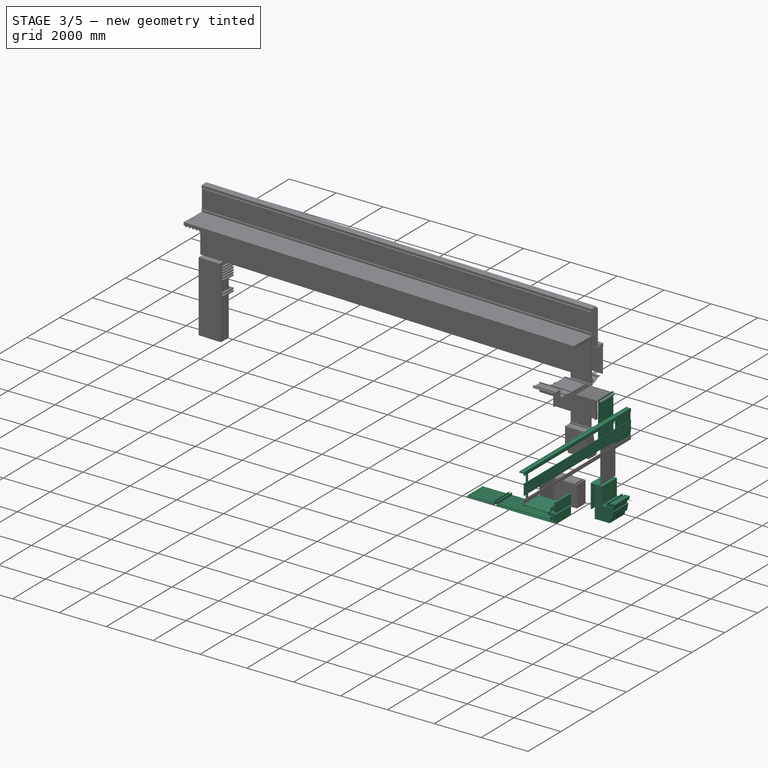
[diagram: stage 3 of 5 — iso view after this stage's code; geometry added in this stage tinted green]
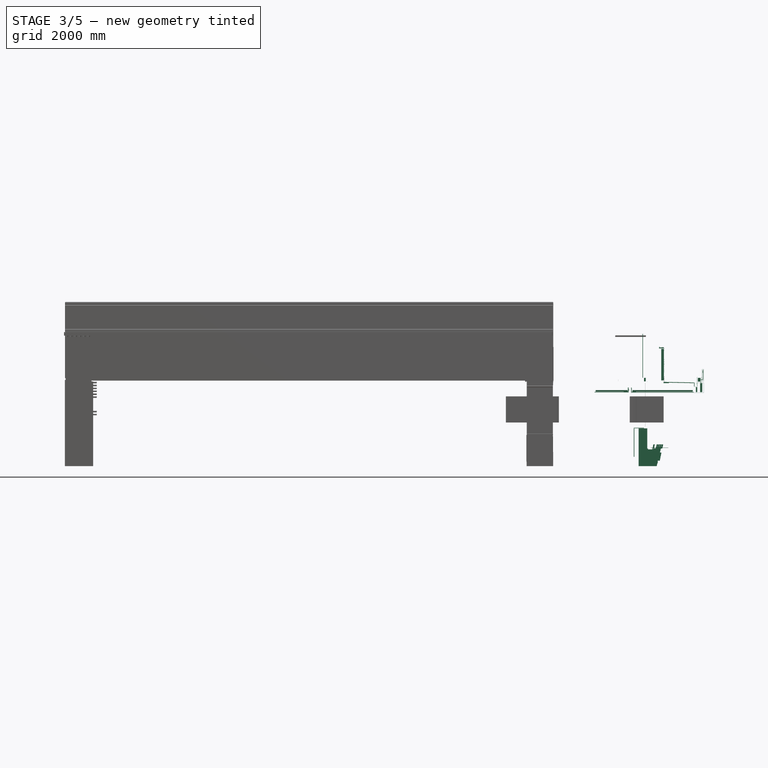
[diagram: stage 3 of 5 — front view after this stage's code; geometry added in this stage tinted green]
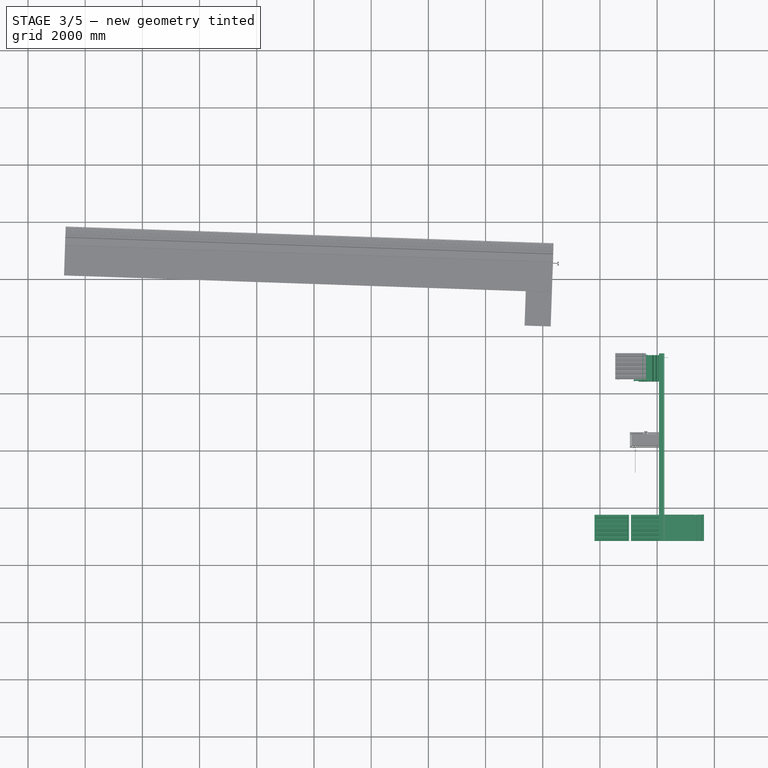
[diagram: stage 3 of 5 — top view after this stage's code; geometry added in this stage tinted green]
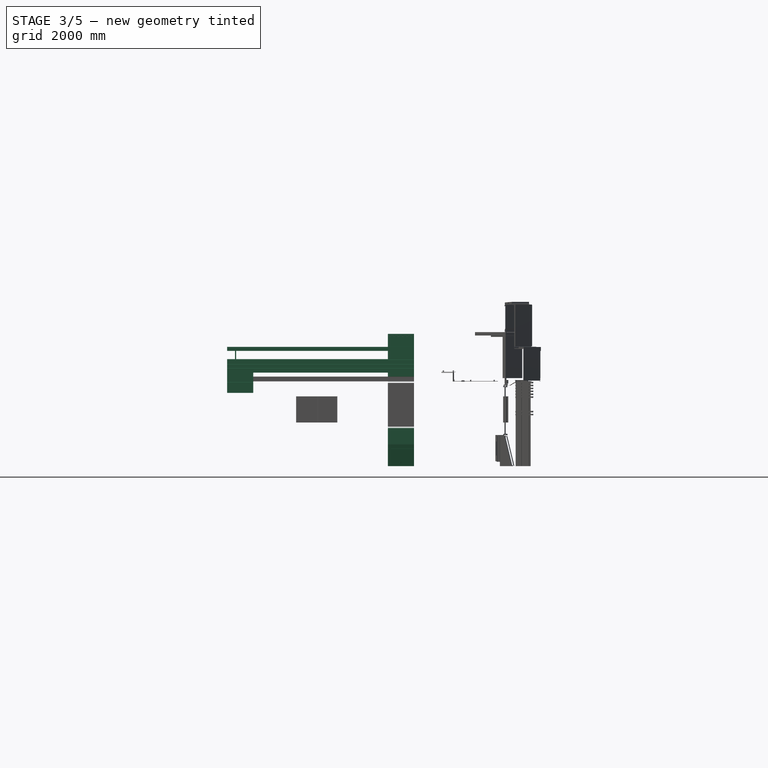
[diagram: stage 3 of 5 — right view after this stage's code; geometry added in this stage tinted green]
FEATURE [Part::Feature] Polyline062
  Placement = pos=(36571.8,747.279,0) rot=(0,0,1;0rad)
  shape: bbox 31.75 x 15.88 x 2e-07 mm, 1 faces, 0 solids (baked)
FEATURE [Part::Feature] Polyline070
  Placement = pos=(36571.8,747.279,0) rot=(0,0,1;0rad)
  shape: bbox 12.7 x 6.35 x 2e-07 mm, 1 faces, 0 solids (baked)
FEATURE [Part::Feature] Polyline072
  Placement = pos=(36571.8,747.279,0) rot=(0,0,1;0rad)
  shape: bbox 105.3 x 6.337 x 2e-07 mm, 1 faces, 0 solids (baked)
FEATURE [Part::Part2DObjectPython] Rectangle045  # Draft 2D object (typed FeaturePython)
  ChamferSize = 0
  Columns = 1
  FilletRadius = 0
  Height = 1168.4
  Length = 25.0075
  MakeFace = true
  Placement = pos=(36564.3,152.4,0) rot=(0,0,1;0rad)
  Rows = 1
FEATURE [Part::Part2DObjectPython] Rectangle046  # Draft 2D object (typed FeaturePython)
  ChamferSize = 0
  Columns = 1
  FilletRadius = 0
  Height = 1168.4
  Length = 63.5
  MakeFace = true
  Placement = pos=(36604.6,152.4,0) rot=(0,0,1;0rad)
  Rows = 1
FEATURE [Part::Part2DObjectPython] Clone2D  label="DWire012 (2D)"  # Draft 2D object (typed FeaturePython)
  Objects = -> [DWire012]
  Placement = pos=(17014.4,152.4,1129.11) rot=(-1,0,0;1.5708rad)
  Scale = (1,1,1)
FEATURE [Part::Feature] mirror001001  label="Mirror of DWire016"
  Placement = pos=(16600.6,75.9204,0) rot=(0,0,1;0rad)
  shape: bbox 65.51 x 63.74 x 2e-07 mm, 1 faces, 0 solids (baked)
FEATURE [Sketcher::SketchObject] Sketch001
  Placement = pos=(0,0.211426,0) rot=(0,0,1;0rad)
  sketch-geometry (4):
    g0: ArcOfCircle CenterX=36873.8 CenterY=1333.15 CenterZ=0 NormalX=0 NormalY=0 NormalZ=1 Radius=1.35938 StartAngle=1.5708 EndAngle=4.71239
    g1: ArcOfCircle CenterX=36879.4 CenterY=1333.15 CenterZ=0 NormalX=0 NormalY=0 NormalZ=1 Radius=1.35938 StartAngle=4.71239 EndAngle=7.85398
    g2: LineSegment StartX=36873.8 StartY=1331.79 StartZ=0 EndX=36879.4 EndY=1331.79 EndZ=0
    g3: LineSegment StartX=36873.8 StartY=1334.51 StartZ=0 EndX=36879.4 EndY=1334.51 EndZ=0
  constraints (6):
    c: Tangent(g0,g3) = 1.5708
    c: Tangent(g0,g2) = -1.5708
    c: Tangent(g2,g1) = -1.5708
    c: Tangent(g3,g1) = 1.5708
    c: Horizontal(g2)
    c: Equal(g0,g1)
FEATURE [Part::Feature] Face006
  shape: bbox 3.175 x 3.175 x 2e-07 mm, 1 faces, 0 solids (baked)
FEATURE [Part::FeaturePython] Structure152  label="Corner piece 001"  # WARN: FeaturePython — macro-defined, semantics opaque (R4)
  Base = -> mirror001001
  BaseMaterial = -> Material027
  FaceMaker = 0
  Height = 914.4
  HorizontalArea = 351.098
  Length = 0
  MoveWithHost = false
  Nodes = (2) [(36576.7,1308.67,0),(36576.7,1308.67,914.4)]
  NodesOffset = 0
  Normal = (0,0,1)
  PerimeterLength = 258.493
  Role = 0
  VerticalArea = 236366
  Width = 200
FEATURE [Part::Feature] Polyline080  label="Polyline213"
  Placement = pos=(36572.4,1889.35,0) rot=(0,0,1;0rad)
  shape: bbox 97.23 x 6.35 x 2e-07 mm, 1 faces, 0 solids (baked)
FEATURE [Part::Feature] Polyline081  label="Polyline178"
  Placement = pos=(36572.4,1889.35,0) rot=(0,0,1;0rad)
  shape: bbox 12.7 x 6.35 x 2e-07 mm, 1 faces, 0 solids (baked)
FEATURE [Part::FeaturePython] Structure228  label="Window frame part 091"  # WARN: FeaturePython — macro-defined, semantics opaque (R4)
  Base = -> Polyline081
  BaseMaterial = -> Material017
  FaceMaker = 0
  Height = 914.4
  HorizontalArea = 80.645
  Length = 0
  MoveWithHost = false
  Nodes = (2) [(36936.5,2908.3,0),(36936.5,2908.3,914.4)]
  NodesOffset = 0
  Normal = (0,0,1)
  PerimeterLength = 38.1
  Role = 0
  VerticalArea = 34838.6
  Width = 200
FEATURE [Part::FeaturePython] Component162  label="Corner piece 003"  # Arch/BIM object (typed FeaturePython)
  BaseMaterial = -> Material027
  CloneOf = -> Structure152
  HorizontalArea = 351.098
  IfcAttributes = IfcUID=2jiCxeqVCHvhPF093rt3ko
  MoveWithHost = false
  PerimeterLength = 258.493
  Placement = pos=(697.085,-18662.4,0) rot=(1,0,0;1.5708rad)
  Role = 0
  VerticalArea = 236366
FEATURE [Part::FeaturePython] Component185  label="Window frame part 097"  # Arch/BIM object (typed FeaturePython)
  BaseMaterial = -> Material017
  CloneOf = -> Structure228
  HorizontalArea = 80.645
  IfcAttributes = IfcUID=2jt7xQqVCHvhPF093rt3ko
  MoveWithHost = false
  PerimeterLength = 38.1
  Placement = pos=(662.847,-18662.4,-4e-09) rot=(1,0,0;1.5708rad)
  Role = 0
  VerticalArea = 34838.6
FEATURE [Part::Cylinder] Cylinder
  Angle = 360
  AttacherType = Attacher::AttachEngine3D
  Height = 15.875
  Placement = pos=(0,0,-19.05) rot=(0,0,1;0rad)
  Radius = 2
FEATURE [Part::Cylinder] Cylinder001
  Angle = 360
  AttacherType = Attacher::AttachEngine3D
  Height = 3.175
  Placement = pos=(0,0,-3.175) rot=(0,0,1;0rad)
  Radius = 4.064
FEATURE [Part::MultiFuse] Fusion003
  Shapes = -> [Cylinder,Cylinder001]
FEATURE [Part::FeaturePython] Component281  label="Screw"  # WARN: FeaturePython — macro-defined, semantics opaque (R4)
  Base = -> Fusion003
  HorizontalArea = 0
  MoveWithHost = false
  PerimeterLength = 0
  Placement = pos=(33545.7,-15245.3,2963.15) rot=(0.718777,0.695241,0;3.14159rad)
  Role = 0
  VerticalArea = 0
FEATURE [Part::FeaturePython] Clone  label="M4x20-Screw001"  # Draft clone (typed FeaturePython)
  AttacherType = Attacher::AttachEngine3D
  Objects = -> [Component281]
  Placement = pos=(33551.5,-15065.2,2963.15) rot=(0.719097,0.694909,0;3.14159rad)
  Scale = (1,1,1)
FEATURE [Part::FeaturePython] Clone001  label="M4x20-Screw002"  # Draft clone (typed FeaturePython)
  AttacherType = Attacher::AttachEngine3D
  Objects = -> [Clone]
  Placement = pos=(33555.8,-14939.9,2963.15) rot=(0.719097,0.694909,0;3.14159rad)
  Scale = (1,1,1)
FEATURE [Part::FeaturePython] Clone002  label="M4x20-Screw003"  # Draft clone (typed FeaturePython)
  AttacherType = Attacher::AttachEngine3D
  Objects = -> [Clone001]
  Placement = pos=(33560.9,-14788.7,2997.55) rot=(0.583822,0.564184,0.583822;4.16893rad)
  Scale = (1,1,1)
FEATURE [Part::FeaturePython] Clone004  label="M4x20-Screw005"  # Draft clone (typed FeaturePython)
  AttacherType = Attacher::AttachEngine3D
  Objects = -> [Clone002]
  Placement = pos=(33577.6,-14786.5,3116.53) rot=(0.583822,0.564184,0.583822;4.16893rad)
  Scale = (1,1,1)
FEATURE [Part::FeaturePython] Clone005  label="M4x20-Screw006"  # Draft clone (typed FeaturePython)
  AttacherType = Attacher::AttachEngine3D
  Objects = -> [Clone004]
  Placement = pos=(33577.6,-14786.5,3268.93) rot=(0.583822,0.564184,0.583822;4.16893rad)
  Scale = (1,1,1)
FEATURE [Part::FeaturePython] Clone006  label="M4x20-Screw007"  # Draft clone (typed FeaturePython)
  AttacherType = Attacher::AttachEngine3D
  Objects = -> [Clone005]
  Placement = pos=(33577.6,-14786.5,3421.33) rot=(0.583822,0.564184,0.583822;4.16893rad)
  Scale = (1,1,1)
FEATURE [Part::FeaturePython] Clone007  label="M4x20-Screw008"  # Draft clone (typed FeaturePython)
  AttacherType = Attacher::AttachEngine3D
  Objects = -> [Clone006]
  Placement = pos=(33577.6,-14786.5,3573.73) rot=(0.583822,0.564184,0.583822;4.16893rad)
  Scale = (1,1,1)
FEATURE [Part::FeaturePython] Clone008  label="M4x20-Screw009"  # Draft clone (typed FeaturePython)
  AttacherType = Attacher::AttachEngine3D
  Objects = -> [Clone007]
  Placement = pos=(33577.6,-14786.5,3726.13) rot=(0.583822,0.564184,0.583822;4.16893rad)
  Scale = (1,1,1)
FEATURE [Part::FeaturePython] Clone009  label="M4x20-Screw010"  # Draft clone (typed FeaturePython)
  AttacherType = Attacher::AttachEngine3D
  Objects = -> [Clone008]
  Placement = pos=(33577.6,-14786.5,3878.53) rot=(0.583822,0.564184,0.583822;4.16893rad)
  Scale = (1,1,1)
FEATURE [Part::FeaturePython] Clone010  label="M4x20-Screw011"  # Draft clone (typed FeaturePython)
  AttacherType = Attacher::AttachEngine3D
  Objects = -> [Clone009]
  Placement = pos=(33577.6,-14786.5,4030.93) rot=(0.583822,0.564184,0.583822;4.16893rad)
  Scale = (1,1,1)
FEATURE [Part::FeaturePython] Clone022  label="M4x20-Screw023"  # Draft clone (typed FeaturePython)
  AttacherType = Attacher::AttachEngine3D
  Objects = -> [Clone010]
  Placement = pos=(34077.9,-14803.9,4030.93) rot=(0.583651,0.564539,0.583651;4.16947rad)
  Scale = (1,1,1)
FEATURE [Part::FeaturePython] Clone054  label="M4x20-Screw054"  # Draft clone (typed FeaturePython)
  AttacherType = Attacher::AttachEngine3D
  Objects = -> [Clone010]
  Placement = pos=(37568,4030.93,114.529) rot=(0.57735,0.57735,0.57735;2.0944rad)
  Scale = (1,1,1)
FEATURE [Part::FeaturePython] Clone066  label="M4x20-Screw066"  # Draft clone (typed FeaturePython)
  AttacherType = Attacher::AttachEngine3D
  Objects = -> [Clone022]
  Placement = pos=(37568,4030.93,615.041) rot=(0.57735,0.57735,0.57735;2.0944rad)
  Scale = (1,1,1)
FEATURE [Part::FeaturePython] Clone078  label="M4x20-Screw120"  # Draft clone (typed FeaturePython)
  AttacherType = Attacher::AttachEngine3D
  Objects = -> [Clone054]
  Placement = pos=(31744.1,4030.93,114.529) rot=(0.57735,0.57735,0.57735;2.0944rad)
  Scale = (1,1,1)
FEATURE [Part::FeaturePython] Clone090  label="M4x20-Screw132"  # Draft clone (typed FeaturePython)
  AttacherType = Attacher::AttachEngine3D
  Objects = -> [Clone066]
  Placement = pos=(31744.1,4030.93,615.041) rot=(0.57735,0.57735,0.57735;2.0944rad)
  Scale = (1,1,1)
FEATURE [Part::FeaturePython] Component307  label="M4x20-Screw163"  # Arch/BIM object (typed FeaturePython)
  CloneOf = -> Clone078
  HorizontalArea = 0
  IfcAttributes = IfcUID=0oebv4rheHvh5D093rt3ko
  MoveWithHost = false
  PerimeterLength = 0
  Placement = pos=(38253.7,-24396.5,4030.93) rot=(0.707107,0,0.707107;3.14159rad)
  Role = 0
  VerticalArea = 0
FEATURE [Part::FeaturePython] Component314  label="M4x20-Screw170"  # Arch/BIM object (typed FeaturePython)
  CloneOf = -> Clone090
  HorizontalArea = 0
  IfcAttributes = IfcUID=0owzrYrheHvh5D093rt3ko
  MoveWithHost = false
  PerimeterLength = 0
  Placement = pos=(38253.7,-24897,4030.93) rot=(0.707107,0,0.707107;3.14159rad)
  Role = 0
  VerticalArea = 0
FEATURE [Part::Feature] Shape015
  shape: bbox 113.1 x 50.8 x 2e-07 mm, 1 faces, 0 solids (baked)
FEATURE [Part::Feature] Shape020
  shape: bbox 91.18 x 9.728 x 2e-07 mm, 1 faces, 0 solids (baked)
FEATURE [Part::FeaturePython] Structure233  label="Window frame part 095"  # WARN: FeaturePython — macro-defined, semantics opaque (R4)
  Base = -> Shape020
  BaseMaterial = -> Material017
  FaceMaker = 0
  Height = 914.4
  HorizontalArea = 216.198
  Length = 0
  MoveWithHost = false
  Nodes = (2) [(36936.5,2951.06,0),(36936.5,2951.06,914.4)]
  NodesOffset = 0
  Normal = (0,0,1)
  PerimeterLength = 221.074
  Role = 0
  VerticalArea = 202150
  Width = 200
FEATURE [Part::FeaturePython] Component256  label="Window frame part 104"  # Arch/BIM object (typed FeaturePython)
  BaseMaterial = -> Material017
  CloneOf = -> Structure233
  HorizontalArea = 216.198
  IfcAttributes = IfcUID=2oxhDwqVCHvhPF093rt3ko
  MoveWithHost = false
  PerimeterLength = 221.074
  Placement = pos=(663.456,-18662.4,0) rot=(1,0,0;1.5708rad)
  Role = 0
  VerticalArea = 202150
FEATURE [Part::Part2DObjectPython] DWire050  # Draft 2D object (typed FeaturePython)
  ChamferSize = 0
  Closed = true
  End = (37924.8,-24282,4118.52)
  FilletRadius = 0
  Length = 411.498
  MakeFace = true
  Points = (4) [(38096,-24282,4118.52),(38096,-24282,4145.29),(37924.8,-24282,4160.28),(37924.8,-24282,4118.52)]
  Start = (38096,-24282,4118.52)
  Subdivisions = 0
FEATURE [Part::Extrusion] Extrusion022
  Base = -> DWire050
  Dir = (0,6533.92,0)
  DirMode = 0
  FaceMakerClass = Part::FaceMakerBullseye
  LengthFwd = 0
  LengthRev = 0
  Solid = true
  Symmetric = false
FEATURE [Part::FeaturePython] Component523  label="Wood block"  # Arch/BIM object (typed FeaturePython)
  Base = -> Extrusion022
  BaseMaterial = -> PRESSURE_TREATED_WOOD_BLOCKING___SIZE_AS_NECESSARY
  HorizontalArea = 0
  IfcAttributes = IfcUID=2$JWNExzmHveNx093rt3ko
  MoveWithHost = false
  PerimeterLength = 0
  Placement = pos=(76159.7,-42944.4,0) rot=(0,0,1;3.14159rad)
  Role = 0
  VerticalArea = 0
FEATURE [Part::Part2DObjectPython] Rectangle068  # Draft 2D object (typed FeaturePython)
  ChamferSize = 0
  Columns = 1
  FilletRadius = 0
  Height = 1092.11
  Length = 13.6165
  MakeFace = true
  Placement = pos=(38221.2,-18662.4,4102.01) rot=(-1,0,0;1.5708rad)
  Rows = 1
FEATURE [Part::Extrusion] Extrusion024
  Base = -> Rectangle068
  Dir = (0,-914.4,0)
  DirMode = 0
  FaceMakerClass = Part::FaceMakerBullseye
  LengthFwd = 0
  LengthRev = 0
  Solid = true
  Symmetric = false
FEATURE [Part::FeaturePython] Component532  label="Exterior fiberglass panel003"  # Arch/BIM object (typed FeaturePython)
  Base = -> Extrusion024
  BaseMaterial = -> EXT__FIBERGLASS_MAT_GYPSUM_PANELS
  HorizontalArea = 0
  IfcAttributes = IfcUID=2_Zz7axzmHveNx093rt3ko
  MoveWithHost = false
  PerimeterLength = 0
  Placement = pos=(0.0390625,-0.00013571,0.085905) rot=(0,0,1;0rad)
  Role = 0
  VerticalArea = 0
FEATURE [Part::Feature] Shape078
  Placement = pos=(6487.33,-24782,-12.7) rot=(1,0,0;1.5708rad)
  shape: bbox 76.2 x 38.1 x 2e-07 mm, 1 faces, 0 solids (baked)
FEATURE [Part::Extrusion] Extrusion025
  Base = -> Shape078
  Dir = (0,0,1104.9)
  DirMode = 0
  FaceMakerClass = Part::FaceMakerBullseye
  LengthFwd = 0
  LengthRev = 0
  Solid = true
  Symmetric = false
FEATURE [Part::FeaturePython] Component544  label="Metal stud 193"  # Arch/BIM object (typed FeaturePython)
  Base = -> Extrusion025
  BaseMaterial = -> METAL_STUDS
  HorizontalArea = 0
  IfcAttributes = IfcUID=2$JmWWxzmHveNx093rt3ko
  MoveWithHost = false
  PerimeterLength = 0
  Role = 0
  VerticalArea = 0
FEATURE [Part::FeaturePython] Component545  label="Metal stud 194"  # Arch/BIM object (typed FeaturePython)
  BaseMaterial = -> METAL_STUDS
  CloneOf = -> Component544
  HorizontalArea = 0
  IfcAttributes = IfcUID=2$K6J_xzmHveNx093rt3ko
  MoveWithHost = false
  PerimeterLength = 0
  Placement = pos=(228.6,0,-5e-12) rot=(0,0,1;0rad)
  Role = 0
  VerticalArea = 0
FEATURE [Part::Part2DObjectPython] DWire052  # Draft 2D object (typed FeaturePython)
  ChamferSize = 0
  Closed = true
  End = (39281.2,-25196.4,3049.96)
  FilletRadius = 0
  Length = 2149.76
  MakeFace = true
  Points = (4) [(38221.2,-25196.4,3072.04),(38221.2,-25196.4,3086.56),(39281.5,-25196.4,3064.47),(39281.2,-25196.4,3049.96)]
  Start = (38221.2,-25196.4,3072.04)
  Subdivisions = 0
FEATURE [Part::Part2DObjectPython] DWire053  # Draft 2D object (typed FeaturePython)
  ChamferSize = 0
  Closed = true
  End = (38411.6,-25196.4,2990.85)
  FilletRadius = 0
  Length = 419.86
  MakeFace = true
  Points = (4) [(38221.2,-25196.4,2990.85),(38221.2,-25196.4,3012.93),(38410.4,-25196.4,3008.99),(38411.6,-25196.4,2990.85)]
  Start = (38221.2,-25196.4,2990.85)
  Subdivisions = 0
FEATURE [Part::Part2DObjectPython] DWire055  # Draft 2D object (typed FeaturePython)
  ChamferSize = 0
  Closed = true
  End = (39289.7,-25196.4,3000.01)
  FilletRadius = 0
  Length = 741.61
  MakeFace = true
  Points = (8) [(39297.1,-25196.4,3000.01),(39297.1,-25196.4,2874.88),(39395.5,-25196.4,2874.88),(39395.5,-25196.4,3000.01),(39402.9,-25196.4,3000.01),+3 more]
  Start = (39297.1,-25196.4,3000.01)
  Subdivisions = 0
FEATURE [Part::Part2DObjectPython] Rectangle069  # Draft 2D object (typed FeaturePython)
  ChamferSize = 0
  Columns = 1
  FilletRadius = 0
  Height = 177.8
  Length = 50.8
  MakeFace = true
  Placement = pos=(39291.8,-25196.4,2674.97) rot=(1,0,0;1.5708rad)
  Rows = 1
FEATURE [Part::Part2DObjectPython] DWire056  # Draft 2D object (typed FeaturePython)
  ChamferSize = 0
  Closed = true
  End = (38245.4,-25196.4,3093.93)
  FilletRadius = 0
  Length = 2685.17
  MakeFace = true
  Points = (10) [(38245.4,-25196.4,3237.44),(38237.3,-25196.4,3237.44),(38237.3,-25196.4,3086.12),(39281.5,-25196.4,3064.47),(39297.7,-25196.4,3064.47),+5 more]
  Start = (38245.4,-25196.4,3237.44)
  Subdivisions = 0
FEATURE [Part::Part2DObjectPython] Rectangle071  # Draft 2D object (typed FeaturePython)
  ChamferSize = 0
  Columns = 1
  FilletRadius = 0
  Height = 317.5
  Length = 76.2
  MakeFace = true
  Placement = pos=(39463.9,-25196.4,2674.97) rot=(1,0,0;1.5708rad)
  Rows = 1
FEATURE [Part::Feature] Shape079
  Placement = pos=(74157.1,1736.47,2686.05) rot=(0,1,0;3.14159rad)
  shape: bbox 152.4 x 2e-07 x 152.4 mm, 1 faces, 0 solids (baked)
FEATURE [Part::Feature] Shape080
  Placement = pos=(37108.3,1736.47,-34486.9) rot=(0,-1,0;1.5708rad)
  shape: bbox 152.4 x 2e-07 x 152.4 mm, 1 faces, 0 solids (baked)
FEATURE [Part::Part2DObjectPython] Rectangle074  # Draft 2D object (typed FeaturePython)
  ChamferSize = 0
  Columns = 1
  FilletRadius = 0
  Height = 15.875
  Length = 2173.38
  MakeFace = true
  Placement = pos=(37108.3,-25196.4,2670.18) rot=(1,0,0;1.5708rad)
  Rows = 1
FEATURE [Part::Part2DObjectPython] DWire060  # Draft 2D object (typed FeaturePython)
  ChamferSize = 0
  Closed = true
  End = (39394.1,-25196.4,2949.56)
  FilletRadius = 0
  Length = 1650.35
  MakeFace = true
  Points = (12) [(39390,-25196.4,2949.56),(39390,-25196.4,3010.82),(39634.2,-25196.4,3010.82),(39634.2,-25196.4,2650.27),(39478.3,-25196.4,2650.27),+7 more]
  Start = (39390,-25196.4,2949.56)
  Subdivisions = 0
FEATURE [Part::Part2DObjectPython] DWire061  # Draft 2D object (typed FeaturePython)
  ChamferSize = 0
  Closed = true
  End = (39460.7,-25196.4,2650.27)
  FilletRadius = 0
  Length = 4803.63
  MakeFace = true
  Points = (8) [(39460.7,-25196.4,2665.75),(39456.8,-25196.4,2665.75),(39456.8,-25196.4,2654.23),(37089.9,-25196.4,2654.23),(37089.9,-25196.4,2665.75),+3 more]
  Start = (39460.7,-25196.4,2665.75)
  Subdivisions = 0
FEATURE [Part::Feature] Generic_Models_3_Generic_Models_1_179805001  label="Generic Models 3:Generic Models 1:179806"
  Placement = pos=(0,-304.8,0) rot=(0,0,1;0rad)
  shape: bbox 29.43 x 2.991 x 2.991 mm, 3 faces (baked)
FEATURE [Part::Feature] Generic_Models_4_Generic_Models_1_179816001  label="Generic Models 4:Generic Models 1:179817"
  Placement = pos=(0,-304.8,0) rot=(0,0,1;0rad)
  shape: bbox 2.197 x 6.96 x 6.96 mm, 3 faces (baked)
FEATURE [Part::MultiFuse] Fusion004
  Placement = pos=(45144.6,-772.992,-34890.9) rot=(0,-1,0;1.5708rad)
  Shapes = -> [Generic_Models_3_Generic_Models_1_179805001,Generic_Models_4_Generic_Models_1_179816001]
FEATURE [Part::Feature] Shape081
  Placement = pos=(-172.76,0,0) rot=(0,0,1;0rad)
  shape: bbox 2e-07 x 914.4 x 50.8 mm, 1 faces, 0 solids (baked)
FEATURE [Part::Feature] Shape082
  shape: bbox 2e-07 x 914.4 x 50.8 mm, 1 faces, 0 solids (baked)
FEATURE [Part::Extrusion] Extrusion026
  Base = -> Shape079
  Dir = (0,914.4,0)
  DirMode = 0
  FaceMakerClass = Part::FaceMakerBullseye
  LengthFwd = 0
  LengthRev = 0
  Solid = true
  Symmetric = false
FEATURE [Part::Extrusion] Extrusion027
  Base = -> Shape080
  Dir = (0,914.4,0)
  DirMode = 0
  FaceMakerClass = Part::FaceMakerBullseye
  LengthFwd = 0
  LengthRev = 0
  Solid = true
  Symmetric = false
FEATURE [Part::Extrusion] Extrusion028
  Base = -> Shape081
  Dir = (-1115.79,0,0)
  DirMode = 0
  FaceMakerClass = Part::FaceMakerBullseye
  LengthFwd = 0
  LengthRev = 0
  Solid = true
  Symmetric = false
FEATURE [Part::Extrusion] Extrusion029
  Base = -> Shape082
  Dir = (2108.32,0,0)
  DirMode = 0
  FaceMakerClass = Part::FaceMakerBullseye
  LengthFwd = 0
  LengthRev = 0
  Solid = true
  Symmetric = false
FEATURE [Part::Extrusion] Extrusion030
  Base = -> Rectangle074
  Dir = (0,914.4,0)
  DirMode = 0
  FaceMakerClass = Part::FaceMakerBullseye
  LengthFwd = 0
  LengthRev = 0
  Solid = true
  Symmetric = false
FEATURE [Part::Extrusion] Extrusion031
  Base = -> DWire061
  Dir = (0,914.4,-6.06e-10)
  DirMode = 0
  FaceMakerClass = Part::FaceMakerBullseye
  LengthFwd = 0
  LengthRev = 0
  Solid = true
  Symmetric = false
FEATURE [Part::Extrusion] Extrusion032
  Base = -> Rectangle069
  Dir = (0,914.4,0)
  DirMode = 0
  FaceMakerClass = Part::FaceMakerBullseye
  LengthFwd = 0
  LengthRev = 0
  Solid = true
  Symmetric = false
FEATURE [Part::Extrusion] Extrusion033
  Base = -> Rectangle071
  Dir = (0,914.4,0)
  DirMode = 0
  FaceMakerClass = Part::FaceMakerBullseye
  LengthFwd = 0
  LengthRev = 0
  Solid = true
  Symmetric = false
FEATURE [Part::Extrusion] Extrusion036
  Base = -> DWire055
  Dir = (0,914.4,1e-11)
  DirMode = 0
  FaceMakerClass = Part::FaceMakerBullseye
  LengthFwd = 0
  LengthRev = 0
  Solid = true
  Symmetric = false
FEATURE [Part::Extrusion] Extrusion037
  Base = -> DWire053
  Dir = (0,914.4,0)
  DirMode = 0
  FaceMakerClass = Part::FaceMakerBullseye
  LengthFwd = 0
  LengthRev = 0
  Solid = true
  Symmetric = false
FEATURE [Part::Extrusion] Extrusion039
  Base = -> DWire052
  Dir = (0,914.4,0)
  DirMode = 0
  FaceMakerClass = Part::FaceMakerBullseye
  LengthFwd = 0
  LengthRev = 0
  Solid = true
  Symmetric = false
FEATURE [Part::Extrusion] Extrusion040
  Base = -> DWire056
  Dir = (0,914.4,0)
  DirMode = 0
  FaceMakerClass = Part::FaceMakerBullseye
  LengthFwd = 0
  LengthRev = 0
  Solid = true
  Symmetric = false
FEATURE [Part::Extrusion] Extrusion041
  Base = -> DWire060
  Dir = (-1e-12,914.4,0)
  DirMode = 0
  FaceMakerClass = Part::FaceMakerBullseye
  LengthFwd = 0
  LengthRev = 0
  Solid = true
  Symmetric = false
FEATURE [Part::Part2DObjectPython] Rectangle078  # Draft 2D object (typed FeaturePython)
  ChamferSize = 0
  Columns = 1
  FilletRadius = 0
  Height = 15.875
  Length = 1173.3
  MakeFace = true
  Placement = pos=(35810.8,-25196.4,2670.18) rot=(1,0,0;1.5708rad)
  Rows = 1
FEATURE [Part::Extrusion] Extrusion045
  Base = -> Rectangle078
  Dir = (0,914.4,0)
  DirMode = 0
  FaceMakerClass = Part::FaceMakerBullseye
  LengthFwd = 0
  LengthRev = 0
  Solid = true
  Symmetric = false
FEATURE [Part::FeaturePython] Component548  label="L profile"  # Arch/BIM object (typed FeaturePython)
  Base = -> Extrusion026
  BaseMaterial = -> Steel_ASTM_A36
  HorizontalArea = 0
  IfcAttributes = IfcUID=2$NUGwxzmHveNx093rt3ko
  MoveWithHost = false
  PerimeterLength = 0
  Placement = pos=(0,-5.29885e-06,-88.9) rot=(0,0,1;0rad)
  Role = 0
  VerticalArea = 0
FEATURE [Part::FeaturePython] Component549  label="L profile001"  # Arch/BIM object (typed FeaturePython)
  Base = -> Extrusion027
  BaseMaterial = -> Steel_ASTM_A36
  HorizontalArea = 0
  IfcAttributes = IfcUID=2$NuH8xzmHveNx093rt3ko
  MoveWithHost = false
  PerimeterLength = 0
  Placement = pos=(0,-5.29885e-06,-88.9) rot=(0,0,1;0rad)
  Role = 0
  VerticalArea = 0
FEATURE [Part::FeaturePython] Component550  label="steel deck"  # Arch/BIM object (typed FeaturePython)
  Base = -> Extrusion028
  BaseMaterial = -> STEEL_DECK___SEE_STRUCT__DWGS_1_
  HorizontalArea = 0
  IfcAttributes = IfcUID=2$OGSKxzmHveNx093rt3ko
  MoveWithHost = false
  PerimeterLength = 0
  Placement = pos=(0,-5.29885e-06,-88.9) rot=(0,0,1;0rad)
  Role = 0
  VerticalArea = 0
FEATURE [Part::FeaturePython] Component551  label="steel deck001"  # Arch/BIM object (typed FeaturePython)
  Base = -> Extrusion029
  BaseMaterial = -> STEEL_DECK___SEE_STRUCT__DWGS_1_
  HorizontalArea = 0
  IfcAttributes = IfcUID=2$OmUexzmHveNx093rt3ko
  MoveWithHost = false
  PerimeterLength = 0
  Placement = pos=(0,-5.29885e-06,-88.9) rot=(0,0,1;0rad)
  Role = 0
  VerticalArea = 0
FEATURE [Part::Part2DObjectPython] Rectangle079  # Draft 2D object (typed FeaturePython)
  ChamferSize = 0
  Columns = 1
  FilletRadius = 0
  Height = 166.813
  Length = 13.6719
  MakeFace = true
  Placement = pos=(36987.3,-25196.4,2670.31) rot=(1,0,0;1.5708rad)
  Rows = 1
FEATURE [Part::Part2DObjectPython] Rectangle080  # Draft 2D object (typed FeaturePython)
  ChamferSize = 0
  Columns = 1
  FilletRadius = 0
  Height = 166.813
  Length = 13.6719
  MakeFace = true
  Placement = pos=(37091.5,-25196.4,2670.31) rot=(1,0,0;1.5708rad)
  Rows = 1
FEATURE [Part::Extrusion] Extrusion046
  Base = -> Rectangle079
  Dir = (0,914.4,0)
  DirMode = 0
  FaceMakerClass = Part::FaceMakerBullseye
  LengthFwd = 0
  LengthRev = 0
  Solid = true
  Symmetric = false
FEATURE [Part::Extrusion] Extrusion047
  Base = -> Rectangle080
  Dir = (0,914.4,0)
  DirMode = 0
  FaceMakerClass = Part::FaceMakerBullseye
  LengthFwd = 0
  LengthRev = 0
  Solid = true
  Symmetric = false
FEATURE [Part::FeaturePython] Component552  label="gypsum board"  # Arch/BIM object (typed FeaturePython)
  Base = -> Extrusion045
  BaseMaterial = -> Material015
  HorizontalArea = 0
  IfcAttributes = IfcUID=2$P6QsxzmHveNx093rt3ko
  MoveWithHost = false
  PerimeterLength = 0
  Placement = pos=(0,-5.29885e-06,-88.9) rot=(0,0,1;0rad)
  Role = 0
  VerticalArea = 0
FEATURE [Part::FeaturePython] Component553  label="gypsum board001"  # Arch/BIM object (typed FeaturePython)
  Base = -> Extrusion046
  BaseMaterial = -> Material015
  HorizontalArea = 0
  IfcAttributes = IfcUID=2$PMpmxzmHveNx093rt3ko
  MoveWithHost = false
  PerimeterLength = 0
  Placement = pos=(0,-5.29885e-06,-88.9) rot=(0,0,1;0rad)
  Role = 0
  VerticalArea = 0
FEATURE [Part::FeaturePython] Component554  label="fiberglass gypsum boards"  # Arch/BIM object (typed FeaturePython)
  Base = -> Extrusion047
  BaseMaterial = -> EXT__FIBERGLASS_MAT_GYPSUM_PANELS
  HorizontalArea = 0
  IfcAttributes = IfcUID=2$Pcn0xzmHveNx093rt3ko
  MoveWithHost = false
  PerimeterLength = 0
  Placement = pos=(0,-5.29885e-06,-88.9) rot=(0,0,1;0rad)
  Role = 0
  VerticalArea = 0
FEATURE [Part::FeaturePython] Component555  label="fiberglass gypsum boards001"  # Arch/BIM object (typed FeaturePython)
  Base = -> Extrusion030
  BaseMaterial = -> EXT__FIBERGLASS_MAT_GYPSUM_PANELS
  HorizontalArea = 0
  IfcAttributes = IfcUID=2$PrEKxzmHveNx093rt3ko
  MoveWithHost = false
  PerimeterLength = 0
  Placement = pos=(0,-5.29885e-06,-88.9) rot=(0,0,1;0rad)
  Role = 0
  VerticalArea = 0
FEATURE [Part::FeaturePython] Component556  label="copper panel"  # Arch/BIM object (typed FeaturePython)
  Base = -> Extrusion031
  BaseMaterial = -> Material032
  HorizontalArea = 0
  IfcAttributes = IfcUID=2$Q4tkxzmHveNx093rt3ko
  MoveWithHost = false
  PerimeterLength = 0
  Placement = pos=(0,-5.29885e-06,-88.9) rot=(0,0,1;0rad)
  Role = 0
  VerticalArea = 0
FEATURE [Part::FeaturePython] Component557  label="copper panel001"  # Arch/BIM object (typed FeaturePython)
  Base = -> Extrusion041
  BaseMaterial = -> Material032
  HorizontalArea = 0
  IfcAttributes = IfcUID=2$QMYCxzmHveNx093rt3ko
  MoveWithHost = false
  PerimeterLength = 0
  Placement = pos=(0,-5.29885e-06,-88.9) rot=(0,0,1;0rad)
  Role = 0
  VerticalArea = 0
FEATURE [Part::FeaturePython] Component558  label="Wood block009"  # Arch/BIM object (typed FeaturePython)
  Base = -> Extrusion037
  BaseMaterial = -> PRESSURE_TREATED_WOOD_BLOCKING___SIZE_AS_NECESSARY
  HorizontalArea = 0
  IfcAttributes = IfcUID=2$QffyxzmHveNx093rt3ko
  MoveWithHost = false
  PerimeterLength = 0
  Placement = pos=(-0.00163945,-5.29885e-06,-88.8999) rot=(0,0,1;0rad)
  Role = 0
  VerticalArea = 0
FEATURE [App::MaterialObjectPython] Material038  label="1/2" EXTERIOR CDX SHEATHING"  # material (typed FeaturePython)
  Material = DiffuseColor=(0.5019607843137255, 0.5019607843137255, 0.5019607843137255); Name=1/2" EXTERIOR CDX SHEATHING
FEATURE [Part::FeaturePython] Component561  label="CDX sheating"  # Arch/BIM object (typed FeaturePython)
  Base = -> Extrusion039
  BaseMaterial = -> Material038
  HorizontalArea = 0
  IfcAttributes = IfcUID=2$RRZixzmHveNx093rt3ko
  MoveWithHost = false
  PerimeterLength = 0
  Placement = pos=(0,-5.29885e-06,-148.009) rot=(0,0,1;0rad)
  Role = 0
  VerticalArea = 0
FEATURE [Part::FeaturePython] Component562  label="Membrane003"  # Arch/BIM object (typed FeaturePython)
  Base = -> Extrusion040
  BaseMaterial = -> IMPERMEABLE_WRB_MEMBRANE
  HorizontalArea = 0
  IfcAttributes = IfcUID=2$Ri7ixzmHveNx093rt3ko
  MoveWithHost = false
  PerimeterLength = 0
  Placement = pos=(0,-5.29885e-06,-148.009) rot=(0,0,1;0rad)
  Role = 0
  VerticalArea = 0
FEATURE [Part::FeaturePython] Component563  label="wood block 001"  # Arch/BIM object (typed FeaturePython)
  Base = -> Extrusion032
  BaseMaterial = -> PRESSURE_TREATED_WOOD_BLOCKING___SIZE_AS_NECESSARY
  HorizontalArea = 0
  IfcAttributes = IfcUID=2$R$GYxzmHveNx093rt3ko
  MoveWithHost = false
  PerimeterLength = 0
  Placement = pos=(0,-5.29885e-06,-88.9) rot=(0,0,1;0rad)
  Role = 0
  VerticalArea = 0
FEATURE [Part::FeaturePython] Component564  label="wood block 003"  # Arch/BIM object (typed FeaturePython)
  Base = -> Extrusion033
  BaseMaterial = -> PRESSURE_TREATED_WOOD_BLOCKING___SIZE_AS_NECESSARY
  HorizontalArea = 0
  IfcAttributes = IfcUID=2$SKKqxzmHveNx093rt3ko
  MoveWithHost = false
  PerimeterLength = 0
  Placement = pos=(-50.5273,-5.29885e-06,-88.9) rot=(0,0,1;0rad)
  Role = 0
  VerticalArea = 0
FEATURE [App::MaterialObjectPython] Material039  label="TUBULAR STEEL PROFILE"  # material (typed FeaturePython)
  Material = DiffuseColor=(0.3686274509803922, 0.41568627450980394, 0.4980392156862745); Name=TUBULAR STEEL PROFILE
FEATURE [App::MaterialObjectPython] Material040  label="METALLIC GUTTER"  # material (typed FeaturePython)
  Material = DiffuseColor=(0.47058823529411764, 0.47058823529411764, 0.47058823529411764); Name=METALLIC GUTTER
FEATURE [Part::FeaturePython] Component567  label="Gutter"  # Arch/BIM object (typed FeaturePython)
  Base = -> Extrusion036
  BaseMaterial = -> Material040
  HorizontalArea = 0
  IfcAttributes = IfcUID=2$TDOOxzmHveNx093rt3ko
  MoveWithHost = false
  PerimeterLength = 0
  Placement = pos=(0,-5.29885e-06,-88.9) rot=(0,0,1;0rad)
  Role = 0
  VerticalArea = 0
FEATURE [App::MaterialObjectPython] Material041  label="ALUMINIUM PROFILE OF SIGNAGE"  # material (typed FeaturePython)
  Material = DiffuseColor=(0.5019607843137255, 0.5019607843137255, 0.5019607843137255); Name=ALUMINIUM PROFILE OF SIGNAGE
FEATURE [App::MaterialObjectPython] Material042  label="ACRILIC PANEL (SIGNAGE)"  # material (typed FeaturePython)
  Material = DiffuseColor=(1.0, 1.0, 1.0); Name=ACRILIC PANEL (SIGNAGE)
FEATURE [Part::Part2DObjectPython] Rectangle081  # Draft 2D object (typed FeaturePython)
  ChamferSize = 0
  Columns = 1
  FilletRadius = 6.35
  Height = 49.6243
  Length = 14.2734
  MakeFace = true
  Placement = pos=(37073.9,-25196.4,2727.7) rot=(1,0,0;1.5708rad)
  Rows = 1
FEATURE [Part::Extrusion] Extrusion048
  Base = -> Rectangle081
  Dir = (0,914.4,0)
  DirMode = 0
  FaceMakerClass = Part::FaceMakerBullseye
  LengthFwd = 0
  LengthRev = 0
  Solid = true
  Symmetric = false
FEATURE [Part::FeaturePython] Component570  label="Weather stripping"  # Arch/BIM object (typed FeaturePython)
  Base = -> Extrusion048
  BaseMaterial = -> WEATHER_STRIPPING
  HorizontalArea = 0
  IfcAttributes = IfcUID=2$T_CmxzmHveNx093rt3ko
  MoveWithHost = false
  PerimeterLength = 0
  Placement = pos=(0,-5.29885e-06,-88.9) rot=(0,0,1;0rad)
  Role = 0
  VerticalArea = 0
FEATURE [Part::FeaturePython] Component571  label="Weather stripping001"  # Arch/BIM object (typed FeaturePython)
  BaseMaterial = -> WEATHER_STRIPPING
  CloneOf = -> Component570
  HorizontalArea = 0
  IfcAttributes = IfcUID=2$URtgxzmHveNx093rt3ko
  MoveWithHost = false
  PerimeterLength = 0
  Placement = pos=(-68.9805,-5.29885e-06,-88.9) rot=(0,0,1;0rad)
  Role = 0
  VerticalArea = 0
FEATURE [Part::FeaturePython] Component573  label="M4x20-Screw171"  # Arch/BIM object (typed FeaturePython)
  CloneOf = -> Component314
  HorizontalArea = 0
  IfcAttributes = IfcUID=0owzrYrheHvh5D093rt3ko
  MoveWithHost = false
  PerimeterLength = 0
  Placement = pos=(38253.7,-24897,4113.27) rot=(0.707107,0,0.707107;3.14159rad)
  Role = 0
  VerticalArea = 0
FEATURE [Part::FeaturePython] Component574  label="M4x20-Screw172"  # Arch/BIM object (typed FeaturePython)
  CloneOf = -> Component307
  HorizontalArea = 0
  IfcAttributes = IfcUID=0oebv4rheHvh5D093rt3ko
  MoveWithHost = false
  PerimeterLength = 0
  Placement = pos=(38253.7,-24396.5,4113.27) rot=(0.707107,0,0.707107;3.14159rad)
  Role = 0
  VerticalArea = 0
FEATURE [Part::Part2DObjectPython] Rectangle082  # Draft 2D object (typed FeaturePython)
  ChamferSize = 0
  Columns = 1
  FilletRadius = 0
  Height = 35.6504
  Length = 22.5789
  MakeFace = true
  Placement = pos=(38241.4,-25196.4,4165.61) rot=(1,0,0;1.5708rad)
  Rows = 1
FEATURE [Part::Extrusion] Extrusion050
  Base = -> Rectangle082
  Dir = (0,6600,0)
  DirMode = 0
  FaceMakerClass = Part::FaceMakerBullseye
  LengthFwd = 0
  LengthRev = 0
  Solid = true
  Symmetric = false
FEATURE [App::MaterialObjectPython] Material044  label="RYSYSTA PANEL CUT AT 5 1/4""  # material (typed FeaturePython)
  Material = DiffuseColor=(0.6862745098039216, 0.44313725490196076, 0.34509803921568627); Name=RYSYSTA PANEL CUT AT 5 1/4"
FEATURE [Part::FeaturePython] Component572004  label="M4x20-Screw173"  # Arch/BIM object (typed FeaturePython)
  CloneOf = -> Component314
  HorizontalArea = 0
  IfcAttributes = IfcUID=0owzrYrheHvh5D093rt3ko
  MoveWithHost = false
  PerimeterLength = 0
  Placement = pos=(38253.7,-19277.5,4030.93) rot=(0.707107,0,0.707107;3.14159rad)
  Role = 0
  VerticalArea = 0
FEATURE [Part::FeaturePython] Component572005  label="M4x20-Screw174"  # Arch/BIM object (typed FeaturePython)
  CloneOf = -> Component307
  HorizontalArea = 0
  IfcAttributes = IfcUID=0oebv4rheHvh5D093rt3ko
  MoveWithHost = false
  PerimeterLength = 0
  Placement = pos=(38253.7,-18777,4030.93) rot=(0.707107,0,0.707107;3.14159rad)
  Role = 0
  VerticalArea = 0
FEATURE [App::MaterialObjectPython] Material045  label="WOOD FORMED CONCRETE"  # material (typed FeaturePython)
  Material = DiffuseColor=(0.5019607843137255, 0.5019607843137255, 0.5019607843137255); Name=WOOD FORMED CONCRETE
FEATURE [Part::Part2DObjectPython] DWire064  # Draft 2D object (typed FeaturePython)
  ChamferSize = 0
  Closed = false
  End = (38018.9,-19576.8,125.726)
  FilletRadius = 76.2
  Length = 462.665
  MakeFace = true
  Points = (3) [(37757.7,-19576.8,406.4),(37757.7,-19576.8,197.84),(38018.9,-19576.8,125.726)]
  Start = (37757.7,-19576.8,406.4)
  Subdivisions = 0
FEATURE [App::DocumentObjectGroup] Group003  label="2D base"
  Group = -> [ENTITIES_A_CLNG,ENTITIES_A_DETL,ENTITIES_A_DOOR,ENTITIES_A_FLOR,ENTITIES_A_FLOR_MCUT,ENTITIES_A_GENM,ENTITIES_A_GLAZ_CURT,ENTITIES_A_GLAZ_CWMG,ENTITIES_A_MASS,ENTITIES_A_ROOF,ENTITIES_I_FURN,ENTITIES_I_WALL,ENTITIES_Q_CASE,ENTITIES_S_BEAM,Compound001,Compound002,Group001,Group002,Annotation009,Annotation010,Annotation011,Annotation012,Annotation013,Annotation014,Annotation015,Annotation016,+8 more]
FEATURE [Part::Part2DObjectPython] Circle  # Draft 2D object (typed FeaturePython)
  FirstAngle = 0
  LastAngle = 0
  MakeFace = true
  Placement = pos=(37757.7,-19576.8,406.4) rot=(0,0,-1;1.5708rad)
  Radius = 31.75
FEATURE [Part::Sweep] Sweep
  Frenet = false
  Placement = pos=(0,446.318,0) rot=(0,0,1;0rad)
  Sections = -> [Circle]
  Solid = true
  Spine = -> DWire064 [Edge1,Edge2,Edge3]
  Transition = 1
FEATURE [Part::FeaturePython] Component572011  label="Wood block 017"  # Arch/BIM object (typed FeaturePython)
  BaseMaterial = -> Material047
  CloneOf = -> Component572009
  HorizontalArea = 0
  IfcAttributes = IfcUID=2zb4t4xzmHveNx093rt3ko
  MoveWithHost = false
  PerimeterLength = 0
  Placement = pos=(0,0,-101.665) rot=(0,0,1;0rad)
  Role = 0
  VerticalArea = 0
FEATURE [Part::FeaturePython] Component572012  label="Wood block 018"  # Arch/BIM object (typed FeaturePython)
  BaseMaterial = -> Material047
  CloneOf = -> Component572011
  HorizontalArea = 0
  IfcAttributes = IfcUID=2zbKi2xzmHveNx093rt3ko
  MoveWithHost = false
  PerimeterLength = 0
  Placement = pos=(-2.5e-08,0,-1049.53) rot=(0,0,1;0rad)
  Role = 0
  VerticalArea = 0
FEATURE [Part::FeaturePython] Component572013  label="Wood block 019"  # Arch/BIM object (typed FeaturePython)
  BaseMaterial = -> Material047
  CloneOf = -> Component572009
  HorizontalArea = 0
  IfcAttributes = IfcUID=2zbWCmxzmHveNx093rt3ko
  MoveWithHost = false
  PerimeterLength = 0
  Placement = pos=(-2.5e-08,0,-947.863) rot=(0,0,1;0rad)
  Role = 0
  VerticalArea = 0
FEATURE [Part::Extrusion] Extrusion053
  Base = -> Rectangle085
  Dir = (0,914.4,0)
  DirMode = 0
  FaceMakerClass = Part::FaceMakerBullseye
  LengthFwd = 0
  LengthRev = 0
  Solid = true
  Symmetric = false
FEATURE [Part::Extrusion] Extrusion054
  Base = -> Rectangle086
  Dir = (0,914.4,0)
  DirMode = 0
  FaceMakerClass = Part::FaceMakerBullseye
  LengthFwd = 0
  LengthRev = 0
  Solid = true
  Symmetric = false
FEATURE [App::MaterialObjectPython] Material048  label="WD-02 HARDWOOD TRIM"  # material (typed FeaturePython)
  Material = DiffuseColor=(1.0, 0.6666666666666666, 0.4980392156862745); Name=WD-02 HARDWOOD TRIM
FEATURE [Part::FeaturePython] Component572014  label="Hardwood trim"  # Arch/BIM object (typed FeaturePython)
  Base = -> Extrusion054
  BaseMaterial = -> Material048
  HorizontalArea = 0
  IfcAttributes = IfcUID=2zbhSIxzmHveNx093rt3ko
  MoveWithHost = false
  PerimeterLength = 0
  Placement = pos=(-0.417969,0,0) rot=(0,0,1;0rad)
  Role = 0
  VerticalArea = 0
FEATURE [App::MaterialObjectPython] Material049  label="WD-01 HARDWOOD VENEER"  # material (typed FeaturePython)
  Material = DiffuseColor=(1.0, 0.6666666666666666, 0.4980392156862745); Name=WD-01 HARDWOOD VENEER
FEATURE [Part::FeaturePython] Component572015  label="Hardwood veneer"  # Arch/BIM object (typed FeaturePython)
  Base = -> Extrusion053
  BaseMaterial = -> Material049
  HorizontalArea = 0
  IfcAttributes = IfcUID=2zbxM6xzmHveNx093rt3ko
  MoveWithHost = false
  PerimeterLength = 0
  Placement = pos=(0,0,4.84265) rot=(0,0,1;0rad)
  Role = 0
  VerticalArea = 0
FEATURE [Part::Part2DObjectPython] DWire065  # Draft 2D object (typed FeaturePython)
  ChamferSize = 0
  Closed = true
  End = (37663.5,-19576.8,609.6)
  FilletRadius = 0
  Length = 1204.3
  MakeFace = true
  Points = (8) [(37656.1,-19576.8,609.6),(37656.1,-19576.8,406.4),(37859.3,-19576.8,406.4),(37859.3,-19576.8,609.6),(37851.8,-19576.8,609.6),+3 more]
  Start = (37656.1,-19576.8,609.6)
  Subdivisions = 0
FEATURE [Part::Part2DObjectPython] DWire066  # Draft 2D object (typed FeaturePython)
  ChamferSize = 0
  Closed = true
  End = (37851.8,-19576.8,609.6)
  FilletRadius = 0
  Length = 1129.71
  MakeFace = true
  Points = (8) [(37836.9,-19576.8,609.6),(37836.9,-19576.8,428.799),(37678.5,-19576.8,428.799),(37678.5,-19576.8,609.6),(37663.5,-19576.8,609.6),+3 more]
  Start = (37836.9,-19576.8,609.6)
  Subdivisions = 0
FEATURE [Part::Part2DObjectPython] DWire067  # Draft 2D object (typed FeaturePython)
  ChamferSize = 0
  Closed = true
  End = (37682.3,-19576.8,609.6)
  FilletRadius = 0
  Length = 1032.44
  MakeFace = true
  Points = (8) [(37678.5,-19576.8,609.6),(37678.5,-19576.8,428.799),(37836.9,-19576.8,428.799),(37836.9,-19576.8,609.6),(37833.1,-19576.8,609.6),+3 more]
  Start = (37678.5,-19576.8,609.6)
  Subdivisions = 0
FEATURE [Part::Part2DObjectPython] Rectangle088  # Draft 2D object (typed FeaturePython)
  ChamferSize = 0
  Columns = 1
  FilletRadius = 0
  Height = 25.4
  Length = 150.833
  MakeFace = true
  Placement = pos=(37682.3,-19576.8,432.584) rot=(1,0,0;1.5708rad)
  Rows = 1
FEATURE [Part::Part2DObjectPython] Rectangle089  # Draft 2D object (typed FeaturePython)
  ChamferSize = 0
  Columns = 1
  FilletRadius = 0
  Height = 127
  Length = 150.833
  MakeFace = true
  Placement = pos=(37682.3,-19576.8,457.984) rot=(1,0,0;1.5708rad)
  Rows = 1
FEATURE [Part::Part2DObjectPython] DWire068  # Draft 2D object (typed FeaturePython)
  ChamferSize = 0
  Closed = true
  End = (37658.3,-19576.8,632.936)
  FilletRadius = 0
  Length = 147.49
  MakeFace = true
  Points = (8) [(37664.1,-19576.8,632.936),(37664.1,-19576.8,617.706),(37690.1,-19576.8,617.706),(37690.1,-19576.8,590.992),(37684.4,-19576.8,590.992),+3 more]
  Start = (37664.1,-19576.8,632.936)
  Subdivisions = 0
FEATURE [Part::Part2DObjectPython] DWire069  # Draft 2D object (typed FeaturePython)
  ChamferSize = 0
  Closed = true
  End = (37865.2,-19576.8,612.427)
  FilletRadius = 0
  Length = 140.651
  MakeFace = true
  Points = (6) [(37865.2,-19576.8,617.658),(37823.6,-19576.8,617.658),(37823.6,-19576.8,588.985),(37828.8,-19576.8,588.985),(37828.8,-19576.8,612.427),+1 more]
  Start = (37865.2,-19576.8,617.658)
  Subdivisions = 0
FEATURE [Part::Extrusion] Extrusion057
  Base = -> DWire065
  Dir = (0,914.4,-3.9041e-08)
  DirMode = 0
  FaceMakerClass = Part::FaceMakerBullseye
  LengthFwd = 0
  LengthRev = 0
  Solid = true
  Symmetric = false
FEATURE [Part::Extrusion] Extrusion058
  Base = -> DWire066
  Dir = (0,914.4,-3.3453e-08)
  DirMode = 0
  FaceMakerClass = Part::FaceMakerBullseye
  LengthFwd = 0
  LengthRev = 0
  Solid = true
  Symmetric = false
FEATURE [Part::Extrusion] Extrusion059
  Base = -> DWire067
  Dir = (0,914.4,-4.6827e-08)
  DirMode = 0
  FaceMakerClass = Part::FaceMakerBullseye
  LengthFwd = 0
  LengthRev = 0
  Solid = true
  Symmetric = false
FEATURE [Part::Part2DObjectPython] Circle002  # Draft 2D object (typed FeaturePython)
  FirstAngle = 0
  LastAngle = 0
  MakeFace = true
  Placement = pos=(37757.7,-19130.5,432.584) rot=(0,0,1;0rad)
  Radius = 25.1198
FEATURE [Part::Extrusion] Extrusion060
  Base = -> Circle002
  Dir = (0,-9.054e-09,-176.8)
  DirMode = 0
  FaceMakerClass = Part::FaceMakerBullseye
  LengthFwd = 0
  LengthRev = 0
  Solid = true
  Symmetric = false
FEATURE [Part::Part2DObjectPython] Circle003  # Draft 2D object (typed FeaturePython)
  FirstAngle = 0
  LastAngle = 0
  MakeFace = true
  Placement = pos=(37757.7,-19130.5,432.584) rot=(0,0,1;0rad)
  Radius = 56.1735
FEATURE [Part::Extrusion] Extrusion061
  Base = -> Circle003
  Dir = (0,6.5e-10,12.7)
  DirMode = 0
  FaceMakerClass = Part::FaceMakerBullseye
  LengthFwd = 0
  LengthRev = 0
  Solid = true
  Symmetric = false
FEATURE [Part::MultiFuse] Fusion005  label="Fusion007"
  Shapes = -> [Extrusion060,Extrusion061]
FEATURE [Part::Extrusion] Extrusion062
  Base = -> Rectangle088
  Dir = (0,914.4,0)
  DirMode = 0
  FaceMakerClass = Part::FaceMakerBullseye
  LengthFwd = 0
  LengthRev = 0
  Solid = true
  Symmetric = false
FEATURE [Part::Extrusion] Extrusion063
  Base = -> Rectangle089
  Dir = (0,914.4,0)
  DirMode = 0
  FaceMakerClass = Part::FaceMakerBullseye
  LengthFwd = 0
  LengthRev = 0
  Solid = true
  Symmetric = false
FEATURE [Part::Extrusion] Extrusion064
  Base = -> DWire068
  Dir = (5.81745e-07,914.4,5.43314e-07)
  DirMode = 0
  FaceMakerClass = Part::FaceMakerBullseye
  LengthFwd = 0
  LengthRev = 0
  Solid = true
  Symmetric = false
FEATURE [Part::Extrusion] Extrusion065
  Base = -> DWire069
  Dir = (-3.88642e-07,914.4,6.62722e-07)
  DirMode = 0
  FaceMakerClass = Part::FaceMakerBullseye
  LengthFwd = 0
  LengthRev = 0
  Solid = true
  Symmetric = false
FEATURE [Part::FeaturePython] Component572021  label="Metallic profile001"  # Arch/BIM object (typed FeaturePython)
  Base = -> Extrusion065
  BaseMaterial = -> Material027
  HorizontalArea = 0
  IfcAttributes = IfcUID=2zfU3AxzmHveNx093rt3ko
  MoveWithHost = false
  PerimeterLength = 0
  Placement = pos=(0,0,-1.65649) rot=(0,0,1;0rad)
  Role = 0
  VerticalArea = 0
FEATURE [Part::FeaturePython] Component572022  label="Metallic profile"  # Arch/BIM object (typed FeaturePython)
  Base = -> Extrusion064
  BaseMaterial = -> Material027
  HorizontalArea = 0
  IfcAttributes = IfcUID=2zfluaxzmHveNx093rt3ko
  MoveWithHost = false
  PerimeterLength = 0
  Role = 0
  VerticalArea = 0
FEATURE [App::MaterialObjectPython] Material051  label="WATERPROOF MEMBRANE"  # material (typed FeaturePython)
  Material = DiffuseColor=(0.06274509803921569, 0.06274509803921569, 0.06274509803921569); Name=WATERPROOF MEMBRANE
FEATURE [Part::FeaturePython] Component572019  label="Waterproof membrane"  # Arch/BIM object (typed FeaturePython)
  Base = -> Extrusion057
  BaseMaterial = -> Material051
  HorizontalArea = 0
  IfcAttributes = IfcUID=2zcvJuxzmHveNx093rt3ko
  MoveWithHost = false
  PerimeterLength = 0
  Role = 0
  VerticalArea = 0
FEATURE [App::MaterialObjectPython] Material052  label="DRAINAGE CELLS"  # material (typed FeaturePython)
  Material = DiffuseColor=(1.0, 0.9215686274509803, 0.7607843137254902); Name=DRAINAGE CELLS
FEATURE [Part::FeaturePython] Component572025  label="Drainage cells"  # Arch/BIM object (typed FeaturePython)
  Base = -> Extrusion058
  BaseMaterial = -> Material052
  HorizontalArea = 0
  IfcAttributes = IfcUID=2zlo8kxzmHveNx093rt3ko
  MoveWithHost = false
  PerimeterLength = 0
  Role = 0
  VerticalArea = 0
FEATURE [App::MaterialObjectPython] Material053  label="GEOTEXTILE MEMBRANE"  # material (typed FeaturePython)
  Material = DiffuseColor=(0.5529411764705883, 0.43529411764705883, 0.3176470588235294); Name=GEOTEXTILE MEMBRANE
FEATURE [Part::FeaturePython] Component572023  label="Geotextile membrane"  # Arch/BIM object (typed FeaturePython)
  Base = -> Extrusion059
  BaseMaterial = -> Material053
  HorizontalArea = 0
  IfcAttributes = IfcUID=2zg1HYxzmHveNx093rt3ko
  MoveWithHost = false
  PerimeterLength = 0
  Role = 0
  VerticalArea = 0
FEATURE [App::MaterialObjectPython] Material054  label="CLEAN SAND"  # material (typed FeaturePython)
  Material = DiffuseColor=(1.0, 0.8941176470588236, 0.7176470588235294); Name=CLEAN SAND
FEATURE [Part::FeaturePython] Component572020  label="Clean sand"  # Arch/BIM object (typed FeaturePython)
  Base = -> Extrusion062
  BaseMaterial = -> Material054
  HorizontalArea = 0
  IfcAttributes = IfcUID=2zfBLqxzmHveNx093rt3ko
  MoveWithHost = false
  PerimeterLength = 0
  Role = 0
  VerticalArea = 0
FEATURE [App::MaterialObjectPython] Material055  label="ORGANIC SOIL"  # material (typed FeaturePython)
  Material = DiffuseColor=(0.43529411764705883, 0.3254901960784314, 0.25098039215686274); Name=ORGANIC SOIL
FEATURE [Part::FeaturePython] Component572024  label="Soil"  # Arch/BIM object (typed FeaturePython)
  Base = -> Extrusion063
  BaseMaterial = -> Material055
  HorizontalArea = 0
  IfcAttributes = IfcUID=2zlWN4xzmHveNx093rt3ko
  MoveWithHost = false
  PerimeterLength = 0
  Role = 0
  VerticalArea = 0
FEATURE [App::MaterialObjectPython] Material057  label="DRAIN"  # material (typed FeaturePython)
  Material = DiffuseColor=(0.5019607843137255, 0.5019607843137255, 0.5019607843137255); Name=DRAIN
FEATURE [Part::FeaturePython] Component572026  label="Drain"  # Arch/BIM object (typed FeaturePython)
  Base = -> Fusion005
  BaseMaterial = -> Material057
  HorizontalArea = 0
  IfcAttributes = IfcUID=2zoDDuxzmHveNx093rt3ko
  MoveWithHost = false
  PerimeterLength = 0
  Role = 0
  VerticalArea = 0
FEATURE [Part::Part2DObjectPython] DWire070  # Draft 2D object (typed FeaturePython)
  ChamferSize = 0
  Closed = true
  End = (37351.3,-19576.8,1e-12)
  FilletRadius = 0
  Length = 4458.09
  MakeFace = true
  Points = (8) [(37351.3,-19576.8,1320.8),(37656.1,-19576.8,1320.8),(37656.1,-19576.8,406.4),(37859.3,-19576.8,406.4),(37859.3,-19576.8,609.6),+3 more]
  Start = (37351.3,-19576.8,1320.8)
  Subdivisions = 0
FEATURE [Part::Extrusion] Extrusion066
  Base = -> DWire070
  Dir = (0,914.4,0)
  DirMode = 0
  FaceMakerClass = Part::FaceMakerBullseye
  LengthFwd = 0
  LengthRev = 0
  Solid = true
  Symmetric = false
FEATURE [Part::FeaturePython] Component572010  label="Wood formed concrete"  # Arch/BIM object (typed FeaturePython)
  Base = -> Extrusion066
  BaseMaterial = -> Material045
  HorizontalArea = 0
  IfcAttributes = IfcUID=2zUqbkxzmHveNx093rt3ko
  MoveWithHost = false
  PerimeterLength = 0
  Role = 0
  VerticalArea = 0
FEATURE [Part::Part2DObjectPython] DWire072  # Draft 2D object (typed FeaturePython)
  ChamferSize = 0
  Closed = true
  End = (38039.4,-19576.8,187.749)
  FilletRadius = 0
  Length = 387.415
  MakeFace = true
  Placement = pos=(-122.86,0,-234.255) rot=(0,0,1;0rad)
  Points = (4) [(38191.2,-19576.8,560.84),(38243.1,-19576.8,560.84),(38214.1,-19576.8,422.004),(38162.2,-19576.8,422.004)]
  Start = (38068.3,-19576.8,326.585)
  Subdivisions = 0
FEATURE [Part::Part2DObjectPython] DWire073  # Draft 2D object (typed FeaturePython)
  ChamferSize = 0
  Closed = true
  End = (37838.2,-19576.8,623.306)
  FilletRadius = 0
  Length = 387.415
  MakeFace = true
  Placement = pos=(-324.004,0,201.302) rot=(0,0,1;0rad)
  Points = (4) [(38191.2,-19576.8,560.84),(38243.1,-19576.8,560.84),(38214.1,-19576.8,422.004),(38162.2,-19576.8,422.004)]
  Start = (37867.2,-19576.8,762.142)
  Subdivisions = 0
FEATURE [Part::Part2DObjectPython] DWire077  # Draft 2D object (typed FeaturePython)
  ChamferSize = 0
  Closed = true
  End = (37896.6,-19576.8,623.306)
  FilletRadius = 0
  Length = 387.415
  MakeFace = true
  Placement = pos=(-265.627,0,201.302) rot=(0,0,1;0rad)
  Points = (4) [(38191.2,-19576.8,560.84),(38243.1,-19576.8,560.84),(38214.1,-19576.8,422.004),(38162.2,-19576.8,422.004)]
  Start = (37925.5,-19576.8,762.142)
  Subdivisions = 0
FEATURE [Part::Part2DObjectPython] DWire078  # Draft 2D object (typed FeaturePython)
  ChamferSize = 0
  Closed = true
  End = (38130.1,-19576.8,623.306)
  FilletRadius = 0
  Length = 387.415
  MakeFace = true
  Placement = pos=(-32.1186,0,201.302) rot=(0,0,1;0rad)
  Points = (4) [(38191.2,-19576.8,560.84),(38243.1,-19576.8,560.84),(38214.1,-19576.8,422.004),(38162.2,-19576.8,422.004)]
  Start = (38159,-19576.8,762.142)
  Subdivisions = 0
FEATURE [Part::Part2DObjectPython] DWire079  # Draft 2D object (typed FeaturePython)
  ChamferSize = 0
  Closed = true
  End = (38099.9,-19576.8,478.121)
  FilletRadius = 0
  Length = 387.415
  MakeFace = true
  Placement = pos=(-62.3656,0,56.1164) rot=(0,0,1;0rad)
  Points = (4) [(38191.2,-19576.8,560.84),(38243.1,-19576.8,560.84),(38214.1,-19576.8,422.004),(38162.2,-19576.8,422.004)]
  Start = (38128.8,-19576.8,616.956)
  Subdivisions = 0
FEATURE [Part::Part2DObjectPython] DWire081  # Draft 2D object (typed FeaturePython)
  ChamferSize = 0
  Closed = true
  End = (38113.3,-19576.8,609.6)
  FilletRadius = 0
  Length = 2109.33
  MakeFace = true
  Points = (36) [(37871.5,-19576.8,609.6),(37871.5,-19576.8,623.306),(37890.1,-19576.8,623.306),(37900.7,-19576.8,674.106),(37907.2,-19576.8,674.106),+31 more]
  Start = (37871.5,-19576.8,609.6)
  Subdivisions = 0
FEATURE [Part::Extrusion] Extrusion067
  Base = -> DWire073
  Dir = (0,914.4,0)
  DirMode = 0
  FaceMakerClass = Part::FaceMakerBullseye
  LengthFwd = 0
  LengthRev = 0
  Solid = true
  Symmetric = false
FEATURE [Part::Extrusion] Extrusion068
  Base = -> DWire077
  Dir = (0,914.4,0)
  DirMode = 0
  FaceMakerClass = Part::FaceMakerBullseye
  LengthFwd = 0
  LengthRev = 0
  Solid = true
  Symmetric = false
FEATURE [Part::Extrusion] Extrusion069
  Base = -> DWire078
  Dir = (0,914.4,0)
  DirMode = 0
  FaceMakerClass = Part::FaceMakerBullseye
  LengthFwd = 0
  LengthRev = 0
  Solid = true
  Symmetric = false
FEATURE [Part::Extrusion] Extrusion070
  Base = -> DWire079
  Dir = (0,914.4,0)
  DirMode = 0
  FaceMakerClass = Part::FaceMakerBullseye
  LengthFwd = 0
  LengthRev = 0
  Solid = true
  Symmetric = false
FEATURE [Part::Extrusion] Extrusion071
  Base = -> DWire072
  Dir = (0,914.4,0)
  DirMode = 0
  FaceMakerClass = Part::FaceMakerBullseye
  LengthFwd = 0
  LengthRev = 0
  Solid = true
  Symmetric = false
FEATURE [Part::Extrusion] Extrusion072
  Base = -> DWire081
  Dir = (0,50.8,0)
  DirMode = 0
  FaceMakerClass = Part::FaceMakerBullseye
  LengthFwd = 0
  LengthRev = 0
  Placement = pos=(0,50.8,0) rot=(0,0,1;0rad)
  Solid = true
  Symmetric = false
FEATURE [Part::Cylinder] Cylinder002
  Angle = 360
  AttacherType = Attacher::AttachEngine3D
  Height = 609.6
  Placement = pos=(38176.5,-19492.7,768.492) rot=(0,1,0;3.34699rad)
  Radius = 6.35
FEATURE [Part::Cylinder] Cylinder005
  Angle = 360
  AttacherType = Attacher::AttachEngine3D
  Height = 609.6
  Placement = pos=(37776.7,-19511.8,648.705) rot=(0,1,0;1.5708rad)
  Radius = 6.35
FEATURE [Part::Cut] Cut006002002024  label="Cut006002002062"
  Base = -> Extrusion072
  Tool = -> Cylinder005
FEATURE [Part::Cut] Cut006002002025  label="Cut006002002063"
  Base = -> Cut006002002024
  Tool = -> Cylinder002
FEATURE [Part::Cylinder] Cylinder008
  Angle = 360
  AttacherType = Attacher::AttachEngine3D
  Height = 609.6
  Placement = pos=(37776.7,-18749.8,648.705) rot=(0,1,0;1.5708rad)
  Radius = 6.35
FEATURE [App::MaterialObjectPython] Material058  label="WOOD BENCH ELEMENT - TRIMMED 2x6" LUMBER"  # material (typed FeaturePython)
  Material = DiffuseColor=(1.0, 0.6666666666666666, 0.4980392156862745); Name=WOOD BENCH ELEMENT - TRIMMED 2x6" LUMBER
FEATURE [Part::FeaturePython] Component572029  label="Wood bench element"  # Arch/BIM object (typed FeaturePython)
  Base = -> Extrusion067
  BaseMaterial = -> Material058
  HorizontalArea = 0
  IfcAttributes = IfcUID=39W$PIyyaHvehM093rt3ko
  MoveWithHost = false
  PerimeterLength = 0
  Role = 0
  VerticalArea = 0
FEATURE [Part::FeaturePython] Component572030  label="Wood bench element002"  # Arch/BIM object (typed FeaturePython)
  Base = -> Extrusion071
  BaseMaterial = -> Material058
  HorizontalArea = 0
  IfcAttributes = IfcUID=39cMdEyyaHvehM093rt3ko
  MoveWithHost = false
  PerimeterLength = 0
  Role = 0
  VerticalArea = 0
FEATURE [Part::FeaturePython] Component572031  label="Wood bench element003"  # Arch/BIM object (typed FeaturePython)
  Base = -> Extrusion068
  BaseMaterial = -> Material058
  HorizontalArea = 0
  IfcAttributes = IfcUID=39ffdIyyaHvehM093rt3ko
  MoveWithHost = false
  PerimeterLength = 0
  Role = 0
  VerticalArea = 0
FEATURE [Part::FeaturePython] Component572032  label="Wood bench element001"  # Arch/BIM object (typed FeaturePython)
  Base = -> Extrusion070
  BaseMaterial = -> Material058
  HorizontalArea = 0
  IfcAttributes = IfcUID=39ijgeyyaHvehM093rt3ko
  MoveWithHost = false
  PerimeterLength = 0
  Role = 0
  VerticalArea = 0
FEATURE [Part::FeaturePython] Component572033  label="Wood bench element004"  # Arch/BIM object (typed FeaturePython)
  Base = -> Extrusion069
  BaseMaterial = -> Material058
  HorizontalArea = 0
  IfcAttributes = IfcUID=39mQj6yyaHvehM093rt3ko
  MoveWithHost = false
  PerimeterLength = 0
  Role = 0
  VerticalArea = 0
FEATURE [Part::FeaturePython] Component572034  label="Wood bench element005"  # Arch/BIM object (typed FeaturePython)
  BaseMaterial = -> Material058
  CloneOf = -> Component572031
  HorizontalArea = 0
  IfcAttributes = IfcUID=39uzdSyyaHvehM093rt3ko
  MoveWithHost = false
  PerimeterLength = 0
  Placement = pos=(58.3771,0,0) rot=(0,0,1;0rad)
  Role = 0
  VerticalArea = 0
FEATURE [Part::FeaturePython] Component572035  label="Wood bench element006"  # Arch/BIM object (typed FeaturePython)
  BaseMaterial = -> Material058
  CloneOf = -> Component572031
  HorizontalArea = 0
  IfcAttributes = IfcUID=39v6v_yyaHvehM093rt3ko
  MoveWithHost = false
  PerimeterLength = 0
  Placement = pos=(116.754,0,0) rot=(0,0,1;0rad)
  Role = 0
  VerticalArea = 0
FEATURE [Part::FeaturePython] Component572036  label="Wood bench element007"  # Arch/BIM object (typed FeaturePython)
  BaseMaterial = -> Material058
  CloneOf = -> Component572031
  HorizontalArea = 0
  IfcAttributes = IfcUID=39vF4KyyaHvehM093rt3ko
  MoveWithHost = false
  PerimeterLength = 0
  Placement = pos=(175.131,0,0) rot=(0,0,1;0rad)
  Role = 0
  VerticalArea = 0
FEATURE [Part::FeaturePython] Component572037  label="Wood bench element008"  # Arch/BIM object (typed FeaturePython)
  BaseMaterial = -> Material058
  CloneOf = -> Component572032
  HorizontalArea = 0
  IfcAttributes = IfcUID=39vNWoyyaHvehM093rt3ko
  MoveWithHost = false
  PerimeterLength = 0
  Placement = pos=(-30.247,0,-145.186) rot=(0,0,1;0rad)
  Role = 0
  VerticalArea = 0
FEATURE [App::MaterialObjectPython] Material059  label="METALLIC SUPPORT - ANCHORED IN CONCRETE"  # material (typed FeaturePython)
  Material = DiffuseColor=(0.5019607843137255, 0.5019607843137255, 0.5019607843137255); Name=METALLIC SUPPORT - ANCHORED IN CONCRETE
FEATURE [Part::FeaturePython] Component572027  label="Metal support"  # Arch/BIM object (typed FeaturePython)
  Base = -> Cut006002002025
  BaseMaterial = -> Material059
  HorizontalArea = 0
  IfcAttributes = IfcUID=39Jo1iyyaHvehM093rt3ko
  MoveWithHost = false
  PerimeterLength = 0
  Role = 0
  VerticalArea = 0
FEATURE [Part::FeaturePython] Structure509  label="Structure083"  # WARN: FeaturePython — macro-defined, semantics opaque (R4)
  Base = -> Polyline191
  FaceMaker = 0
  Height = 914.4
  HorizontalArea = 948.786
  Length = 0
  MoveWithHost = false
  Nodes = (2) [(37260.4,-19604,3008.74),(37260.4,-19604,2094.34)]
  NodesOffset = 0
  Normal = (0,0,-1)
  PerimeterLength = 0
  Role = 0
  VerticalArea = 8.42432
  Width = 200
FEATURE [Part::FeaturePython] Component572055  label="Linear diffuser component 057"  # Arch/BIM object (typed FeaturePython)
  Base = -> Structure509
  BaseMaterial = -> Material061
  HorizontalArea = 0
  IfcAttributes = IfcUID=3BdJmKyyaHvehM093rt3ko
  MoveWithHost = false
  PerimeterLength = 0
  Placement = pos=(111.398,0,0) rot=(0,0,1;0rad)
  Role = 0
  VerticalArea = 0
FEATURE [Part::Extrusion] Extrusion075
  Base = -> Rectangle090
  Dir = (0,914.4,0)
  DirMode = 0
  FaceMakerClass = Part::FaceMakerBullseye
  LengthFwd = 0
  LengthRev = 0
  Solid = true
  Symmetric = false
FEATURE [Part::FeaturePython] Component572057  label="Gypsum panel002"  # Arch/BIM object (typed FeaturePython)
  Base = -> Extrusion075
  BaseMaterial = -> Material015
  HorizontalArea = 0
  IfcAttributes = IfcUID=3Be30OyyaHvehM093rt3ko
  MoveWithHost = false
  PerimeterLength = 0
  Role = 0
  VerticalArea = 0
FEATURE [Part::Extrusion] Extrusion076
  Base = -> Rectangle091
  Dir = (0,914.4,0)
  DirMode = 0
  FaceMakerClass = Part::FaceMakerBullseye
  LengthFwd = 0
  LengthRev = 0
  Solid = true
  Symmetric = false
FEATURE [Part::FeaturePython] Component572058  label="Wood block012"  # Arch/BIM object (typed FeaturePython)
  Base = -> Extrusion076
  BaseMaterial = -> BLOCKING_AS_NECESSARY
  HorizontalArea = 0
  IfcAttributes = IfcUID=3BeT7KyyaHvehM093rt3ko
  MoveWithHost = false
  PerimeterLength = 0
  Role = 0
  VerticalArea = 0
FEATURE [Part::Part2DObjectPython] Circle004  # Draft 2D object (typed FeaturePython)
  FirstAngle = 0
  LastAngle = 0
  MakeFace = true
  Placement = pos=(37655.9,-19576.8,2957.97) rot=(1,0,0;1.5708rad)
  Radius = 3.33143
FEATURE [Part::Extrusion] Extrusion077
  Base = -> Circle004
  Dir = (0,914.4,0)
  DirMode = 0
  FaceMakerClass = Part::FaceMakerBullseye
  LengthFwd = 0
  LengthRev = 0
  Solid = true
  Symmetric = false
FEATURE [Part::FeaturePython] Component572059  label="Sealant rod"  # Arch/BIM object (typed FeaturePython)
  Base = -> Extrusion077
  BaseMaterial = -> SEALANT___BACKER_ROD__IF_NECESSARY
  HorizontalArea = 0
  IfcAttributes = IfcUID=3BefRSyyaHvehM093rt3ko
  MoveWithHost = false
  PerimeterLength = 0
  Role = 0
  VerticalArea = 0
FEATURE [Part::FeaturePython] Component572060  label="Rysysta 002"  # Arch/BIM object (typed FeaturePython)
  BaseMaterial = -> Material021
  CloneOf = -> Component
  HorizontalArea = 0
  IfcAttributes = IfcUID=3AcnXAyyaHvehM093rt3ko
  MoveWithHost = false
  PerimeterLength = 0
  Placement = pos=(0,0,152.4) rot=(0,0,1;0rad)
  Role = 0
  VerticalArea = 0
FEATURE [Part::FeaturePython] Component572061  label="Rysysta 003"  # Arch/BIM object (typed FeaturePython)
  BaseMaterial = -> Material021
  CloneOf = -> Component
  HorizontalArea = 0
  IfcAttributes = IfcUID=3Acw20yyaHvehM093rt3ko
  MoveWithHost = false
  PerimeterLength = 0
  Placement = pos=(0,0,304.8) rot=(0,0,1;0rad)
  Role = 0
  VerticalArea = 0
FEATURE [Part::FeaturePython] Component572062  label="Rysysta 004"  # Arch/BIM object (typed FeaturePython)
  BaseMaterial = -> Material021
  CloneOf = -> Component
  HorizontalArea = 0
  IfcAttributes = IfcUID=3Ad2HgyyaHvehM093rt3ko
  MoveWithHost = false
  PerimeterLength = 0
  Placement = pos=(7e-12,4e-12,457.2) rot=(0,0,1;0rad)
  Role = 0
  VerticalArea = 0
FEATURE [Part::FeaturePython] Component572063  label="Rysysta 005"  # Arch/BIM object (typed FeaturePython)
  BaseMaterial = -> Material021
  CloneOf = -> Component
  HorizontalArea = 0
  IfcAttributes = IfcUID=3AdAW4yyaHvehM093rt3ko
  MoveWithHost = false
  PerimeterLength = 0
  Placement = pos=(7e-12,4e-12,609.6) rot=(0,0,1;0rad)
  Role = 0
  VerticalArea = 0
FEATURE [Part::FeaturePython] Component572064  label="Rysysta 006"  # Arch/BIM object (typed FeaturePython)
  BaseMaterial = -> Material021
  CloneOf = -> Component572063
  HorizontalArea = 0
  IfcAttributes = IfcUID=3AdMfQyyaHvehM093rt3ko
  MoveWithHost = false
  PerimeterLength = 0
  Placement = pos=(7e-12,4e-12,762) rot=(0,0,1;0rad)
  Role = 0
  VerticalArea = 0
FEATURE [Part::FeaturePython] Component572065  label="Rysysta 007"  # WARN: FeaturePython — macro-defined, semantics opaque (R4)
  BaseMaterial = -> Material021
  CloneOf = -> Component572064
  HorizontalArea = 0
  MoveWithHost = false
  PerimeterLength = 0
  Placement = pos=(-8.7e-11,4e-12,914.4) rot=(0,0,1;0rad)
  Role = 0
  VerticalArea = 0
FEATURE [Part::Cut] Cut006002002019  label="Cut006002002057"
  Base = -> Component572065
  Tool = -> Extrusion050
FEATURE [Part::FeaturePython] Component572002  label=" Rysysta panel 001"  # Arch/BIM object (typed FeaturePython)
  Base = -> Cut006002002019
  BaseMaterial = -> Material044
  HorizontalArea = 0
  IfcAttributes = IfcUID=2$UvWExzmHveNx093rt3ko
  MoveWithHost = false
  PerimeterLength = 0
  Role = 0
  VerticalArea = 0
FEATURE [Part::FeaturePython] Component572066  label="wood block 002"  # Arch/BIM object (typed FeaturePython)
  BaseMaterial = -> PRESSURE_TREATED_WOOD_BLOCKING___SIZE_AS_NECESSARY
  CloneOf = -> Component563
  HorizontalArea = 0
  IfcAttributes = IfcUID=2$R$GYxzmHveNx093rt3ko
  MoveWithHost = false
  PerimeterLength = 0
  Placement = pos=(60.325,-5.29885e-06,-88.9) rot=(0,0,1;0rad)
  Role = 0
  VerticalArea = 0
FEATURE [Part::FeaturePython] Component572067  label="wood block 004"  # Arch/BIM object (typed FeaturePython)
  BaseMaterial = -> PRESSURE_TREATED_WOOD_BLOCKING___SIZE_AS_NECESSARY
  CloneOf = -> Component564
  HorizontalArea = 0
  IfcAttributes = IfcUID=2$SKKqxzmHveNx093rt3ko
  MoveWithHost = false
  PerimeterLength = 0
  Placement = pos=(37.3633,-5.29885e-06,-88.9) rot=(0,0,1;0rad)
  Role = 0
  VerticalArea = 0
FEATURE [Part::Feature] Polyline198
  Placement = pos=(39390.5,-25196.4,3015.79) rot=(1,0,0;1.5708rad)
  shape: bbox 72.78 x 2e-07 x 429.5 mm, 1 faces, 0 solids (baked)
FEATURE [Part::Feature] Polyline199  label="Polyline265"
  Placement = pos=(39390.5,-25196.4,3015.79) rot=(1,0,0;1.5708rad)
  shape: bbox 177.8 x 2e-07 x 172.9 mm, 1 faces, 0 solids (baked)
FEATURE [Part::Feature] Polyline200  label="Polyline266"
  Placement = pos=(39413.7,-25196.4,3015.79) rot=(1,0,0;1.5708rad)
  shape: bbox 39.9 x 2e-07 x 14.33 mm, 1 faces, 0 solids (baked)
FEATURE [Part::Feature] Polyline201  label="Polyline267"
  Placement = pos=(39390.5,-25196.4,3015.79) rot=(1,0,0;1.5708rad)
  shape: bbox 100.6 x 2e-07 x 125.4 mm, 1 faces, 0 solids (baked)
FEATURE [Part::Feature] Polyline202  label="Polyline268"
  Placement = pos=(39390.5,-25196.4,3015.79) rot=(1,0,0;1.5708rad)
  shape: bbox 12.23 x 2e-07 x 29.62 mm, 1 faces, 0 solids (baked)
FEATURE [Part::Feature] Polyline203
  Placement = pos=(39390.5,-25196.4,3015.79) rot=(1,0,0;1.5708rad)
  shape: bbox 12.23 x 2e-07 x 29.62 mm, 1 faces, 0 solids (baked)
FEATURE [Part::Feature] Polyline204
  Placement = pos=(39390.5,-25196.4,3015.79) rot=(1,0,0;1.5708rad)
  shape: bbox 100.4 x 2e-07 x 32.02 mm, 1 faces, 0 solids (baked)
FEATURE [Part::Feature] Polyline205  label="Polyline269"
  Placement = pos=(39390.5,-25196.4,3015.79) rot=(1,0,0;1.5708rad)
  shape: bbox 19.69 x 2e-07 x 82.54 mm, 1 faces, 0 solids (baked)
FEATURE [Part::Feature] Polyline206
  Placement = pos=(39390.5,-25196.4,3015.79) rot=(1,0,0;1.5708rad)
  shape: bbox 20.67 x 2e-07 x 237.7 mm, 1 faces, 0 solids (baked)
FEATURE [Part::Feature] Polyline207
  Placement = pos=(39390.5,-25196.4,3015.79) rot=(1,0,0;1.5708rad)
  shape: bbox 34.16 x 2e-07 x 364.1 mm, 1 faces, 0 solids (baked)
FEATURE [Part::Feature] Polyline209  label="Polyline270"
  Placement = pos=(39390.5,-25196.4,3015.79) rot=(1,0,0;1.5708rad)
  shape: bbox 62.22 x 2e-07 x 417.7 mm, 1 faces, 0 solids (baked)
FEATURE [Part::FeaturePython] Component572068  label="Screw001"  # Arch/BIM object (typed FeaturePython)
  Base = -> Fusion004
  HorizontalArea = 0
  IfcAttributes = IfcUID=3AdzFuyyaHvehM093rt3ko
  MoveWithHost = false
  PerimeterLength = 0
  Placement = pos=(45144.6,-772.992,-34890.9) rot=(0,-1,0;1.5708rad)
  Role = 0
  VerticalArea = 0
FEATURE [Part::Extrusion] Extrusion078
  Base = -> Polyline200
  Dir = (0,914.4,0)
  DirMode = 0
  FaceMakerClass = Part::FaceMakerBullseye
  LengthFwd = 0
  LengthRev = 0
  Solid = true
  Symmetric = false
FEATURE [Part::FeaturePython] Component572069  label="Standoff"  # Arch/BIM object (typed FeaturePython)
  Base = -> Extrusion078
  BaseMaterial = -> Material036
  HorizontalArea = 0
  IfcAttributes = IfcUID=3AeHN4yyaHvehM093rt3ko
  MoveWithHost = false
  PerimeterLength = 0
  Placement = pos=(0,-5.29885e-06,-88.9) rot=(0,0,1;0rad)
  Role = 0
  VerticalArea = 0
FEATURE [Part::FeaturePython] Component572070  label="Standoff001"  # Arch/BIM object (typed FeaturePython)
  BaseMaterial = -> Material036
  CloneOf = -> Component572069
  HorizontalArea = 0
  IfcAttributes = IfcUID=3AeXmcyyaHvehM093rt3ko
  MoveWithHost = false
  PerimeterLength = 0
  Placement = pos=(91.043,-5.29885e-06,-88.9) rot=(0,0,1;0rad)
  Role = 0
  VerticalArea = 0
FEATURE [Part::FeaturePython] Component572071  label="Screw002"  # Arch/BIM object (typed FeaturePython)
  CloneOf = -> Component572068
  HorizontalArea = 0
  IfcAttributes = IfcUID=3Aef_syyaHvehM093rt3ko
  MoveWithHost = false
  PerimeterLength = 0
  Placement = pos=(45235.7,-772.992,-34890.9) rot=(0,-1,0;1.5708rad)
  Role = 0
  VerticalArea = 0
FEATURE [Part::Extrusion] Extrusion079
  Base = -> Polyline199
  Dir = (0,914.4,0)
  DirMode = 0
  FaceMakerClass = Part::FaceMakerBullseye
  LengthFwd = 0
  LengthRev = 0
  Solid = true
  Symmetric = false
FEATURE [App::MaterialObjectPython] Material062  label="RACEWAY STRADDLE GUTTER"  # material (typed FeaturePython)
  Material = DiffuseColor=(0.5019607843137255, 0.5019607843137255, 0.5019607843137255); Name=RACEWAY STRADDLE GUTTER
FEATURE [Part::FeaturePython] Component572072  label="Raceway straddle gutter"  # Arch/BIM object (typed FeaturePython)
  Base = -> Extrusion079
  BaseMaterial = -> Material062
  HorizontalArea = 0
  IfcAttributes = IfcUID=3AeoOqyyaHvehM093rt3ko
  MoveWithHost = false
  PerimeterLength = 0
  Placement = pos=(0,-5.29885e-06,-88.9) rot=(0,0,1;0rad)
  Role = 0
  VerticalArea = 0
FEATURE [Part::Extrusion] Extrusion080
  Base = -> Polyline198
  Dir = (0,914.4,0)
  DirMode = 0
  FaceMakerClass = Part::FaceMakerBullseye
  LengthFwd = 0
  LengthRev = 0
  Solid = true
  Symmetric = false
FEATURE [Part::FeaturePython] Component572073  label="signage panel"  # Arch/BIM object (typed FeaturePython)
  Base = -> Extrusion080
  BaseMaterial = -> Material041
  HorizontalArea = 0
  IfcAttributes = IfcUID=3AfQBYyyaHvehM093rt3ko
  MoveWithHost = false
  PerimeterLength = 0
  Placement = pos=(0,-5.29885e-06,-88.9) rot=(0,0,1;0rad)
  Role = 0
  VerticalArea = 0
FEATURE [Part::Extrusion] Extrusion081
  Base = -> Polyline209
  Dir = (0,914.4,0)
  DirMode = 0
  FaceMakerClass = Part::FaceMakerBullseye
  LengthFwd = 0
  LengthRev = 0
  Solid = true
  Symmetric = false
FEATURE [Part::FeaturePython] Component572074  label="acrylic signage"  # Arch/BIM object (typed FeaturePython)
  Base = -> Extrusion081
  BaseMaterial = -> Material042
  HorizontalArea = 0
  IfcAttributes = IfcUID=3AfjRuyyaHvehM093rt3ko
  MoveWithHost = false
  PerimeterLength = 0
  Placement = pos=(0,-5.29885e-06,-88.9) rot=(0,0,1;0rad)
  Role = 0
  VerticalArea = 0
FEATURE [Part::Extrusion] Extrusion082
  Base = -> Polyline201
  Dir = (0,99.7475,0)
  DirMode = 0
  FaceMakerClass = Part::FaceMakerBullseye
  LengthFwd = 0
  LengthRev = 0
  Solid = true
  Symmetric = false
FEATURE [Part::Extrusion] Extrusion083
  Base = -> Polyline204
  Dir = (0,16.8335,0)
  DirMode = 0
  FaceMakerClass = Part::FaceMakerBullseye
  LengthFwd = 0
  LengthRev = 0
  Solid = true
  Symmetric = false
FEATURE [Part::Extrusion] Extrusion084
  Base = -> Polyline202
  Dir = (0,16.8335,0)
  DirMode = 0
  FaceMakerClass = Part::FaceMakerBullseye
  LengthFwd = 0
  LengthRev = 0
  Solid = true
  Symmetric = false
FEATURE [Part::Extrusion] Extrusion085
  Base = -> Polyline203
  Dir = (0,16.8335,0)
  DirMode = 0
  FaceMakerClass = Part::FaceMakerBullseye
  LengthFwd = 0
  LengthRev = 0
  Solid = true
  Symmetric = false
FEATURE [Part::Extrusion] Extrusion086
  Base = -> Polyline206
  Dir = (0,16.8335,0)
  DirMode = 0
  FaceMakerClass = Part::FaceMakerBullseye
  LengthFwd = 0
  LengthRev = 0
  Solid = true
  Symmetric = false
FEATURE [Part::Extrusion] Extrusion087
  Base = -> Polyline205
  Dir = (0,16.8335,0)
  DirMode = 0
  FaceMakerClass = Part::FaceMakerBullseye
  LengthFwd = 0
  LengthRev = 0
  Solid = true
  Symmetric = false
FEATURE [Part::Extrusion] Extrusion088
  Base = -> Polyline207
  Dir = (0,16.8335,0)
  DirMode = 0
  FaceMakerClass = Part::FaceMakerBullseye
  LengthFwd = 0
  LengthRev = 0
  Solid = true
  Symmetric = false
FEATURE [App::MaterialObjectPython] Material063  label="SIGNAGE COMPONENT"  # material (typed FeaturePython)
  Material = DiffuseColor=(0.5019607843137255, 0.5019607843137255, 0.5019607843137255); Name=SIGNAGE COMPONENT
FEATURE [Part::FeaturePython] Component572075  label="signage component"  # Arch/BIM object (typed FeaturePython)
  Base = -> Extrusion082
  BaseMaterial = -> Material063
  HorizontalArea = 0
  IfcAttributes = IfcUID=3Afw6qyyaHvehM093rt3ko
  MoveWithHost = false
  PerimeterLength = 0
  Placement = pos=(0,106.488,-88.9) rot=(0,0,1;0rad)
  Role = 0
  VerticalArea = 0
FEATURE [Part::FeaturePython] Component572076  label="signage component002"  # Arch/BIM object (typed FeaturePython)
  Base = -> Extrusion083
  BaseMaterial = -> Material063
  HorizontalArea = 0
  IfcAttributes = IfcUID=3Ag6S_yyaHvehM093rt3ko
  MoveWithHost = false
  PerimeterLength = 0
  Placement = pos=(0,86.2637,-88.9) rot=(0,0,1;0rad)
  Role = 0
  VerticalArea = 0
FEATURE [Part::FeaturePython] Component572077  label="signage component003"  # Arch/BIM object (typed FeaturePython)
  Base = -> Extrusion084
  BaseMaterial = -> Material063
  HorizontalArea = 0
  IfcAttributes = IfcUID=3AgTaWyyaHvehM093rt3ko
  MoveWithHost = false
  PerimeterLength = 0
  Placement = pos=(0,86.2637,-88.9) rot=(0,0,1;0rad)
  Role = 0
  VerticalArea = 0
FEATURE [Part::FeaturePython] Component572078  label="signage component004"  # Arch/BIM object (typed FeaturePython)
  Base = -> Extrusion085
  BaseMaterial = -> Material063
  HorizontalArea = 0
  IfcAttributes = IfcUID=3Agj66yyaHvehM093rt3ko
  MoveWithHost = false
  PerimeterLength = 0
  Placement = pos=(0,86.2637,-88.9) rot=(0,0,1;0rad)
  Role = 0
  VerticalArea = 0
FEATURE [Part::FeaturePython] Component572079  label="signage component006"  # Arch/BIM object (typed FeaturePython)
  Base = -> Extrusion086
  BaseMaterial = -> Material063
  HorizontalArea = 0
  IfcAttributes = IfcUID=3Ag_PwyyaHvehM093rt3ko
  MoveWithHost = false
  PerimeterLength = 0
  Placement = pos=(0,86.2637,-88.9) rot=(0,0,1;0rad)
  Role = 0
  VerticalArea = 0
FEATURE [Part::FeaturePython] Component572080  label="signage component005"  # Arch/BIM object (typed FeaturePython)
  Base = -> Extrusion087
  BaseMaterial = -> Material063
  HorizontalArea = 0
  IfcAttributes = IfcUID=3AhKvwyyaHvehM093rt3ko
  MoveWithHost = false
  PerimeterLength = 0
  Placement = pos=(0,86.2637,-88.9) rot=(0,0,1;0rad)
  Role = 0
  VerticalArea = 0
FEATURE [Part::FeaturePython] Component572081  label="signage component001"  # Arch/BIM object (typed FeaturePython)
  Base = -> Extrusion088
  BaseMaterial = -> Material063
  HorizontalArea = 0
  IfcAttributes = IfcUID=3AhaGuyyaHvehM093rt3ko
  MoveWithHost = false
  PerimeterLength = 0
  Placement = pos=(0,86.2637,-88.9) rot=(0,0,1;0rad)
  Role = 0
  VerticalArea = 0
FEATURE [Part::FeaturePython] Component572088  label="Window frame part 497"  # Arch/BIM object (typed FeaturePython)
  BaseMaterial = -> Material017
  CloneOf = -> Component256
  HorizontalArea = 216.198
  IfcAttributes = IfcUID=2oxhDwqVCHvhPF093rt3ko
  MoveWithHost = false
  PerimeterLength = 221.074
  Placement = pos=(32177,-52366.4,-139.7) rot=(0.590516,0.570653,0.570653;2.07476rad)
  Role = 0
  VerticalArea = 202150
FEATURE [Part::FeaturePython] Component572090  label="Window frame part 499"  # Arch/BIM object (typed FeaturePython)
  BaseMaterial = -> Material017
  CloneOf = -> Component185
  HorizontalArea = 80.645
  IfcAttributes = IfcUID=2jt7xQqVCHvhPF093rt3ko
  MoveWithHost = false
  PerimeterLength = 38.1
  Placement = pos=(32177,-52366.4,-139.7) rot=(0.590516,0.570653,0.570653;2.07476rad)
  Role = 0
  VerticalArea = 34838.6
FEATURE [Part::Part2DObjectPython] Rectangle  # Draft 2D object (typed FeaturePython)
  ChamferSize = 0
  Columns = 1
  FilletRadius = 0
  Height = 14.0239
  Length = 37.8359
  MakeFace = true
  Placement = pos=(38069.1,-25196.4,4162.37) rot=(0.998095,-0.043628,0.043628;1.5727rad)
  Rows = 1
FEATURE [Part::Extrusion] Extrusion089
  Base = -> Rectangle
  Dir = (0,6533.92,-2e-12)
  DirMode = 0
  FaceMakerClass = Part::FaceMakerBullseye
  LengthFwd = 0
  LengthRev = 0
  Placement = pos=(-2.72656,0,-8.56592) rot=(0,0,1;0rad)
  Solid = true
  Symmetric = false
FEATURE [App::MaterialObjectPython] Material064  label="SUPPORT FOR LIGHTING FIXTURE - TBD"  # material (typed FeaturePython)
  Material = DiffuseColor=(0.5019607843137255, 0.5019607843137255, 0.5019607843137255); Name=SUPPORT FOR LIGHTING FIXTURE - TBD
FEATURE [Part::FeaturePython] Component572114  label="Support for lighting fixture"  # Arch/BIM object (typed FeaturePython)
  Base = -> Extrusion089
  BaseMaterial = -> Material064
  HorizontalArea = 0
  IfcAttributes = IfcUID=3BeqmwyyaHvehM093rt3ko
  MoveWithHost = false
  PerimeterLength = 0
  Placement = pos=(-2.72656,0,-8.56592) rot=(0,0,1;0rad)
  Role = 0
  VerticalArea = 0
FEATURE [Part::Part2DObjectPython] Rectangle092  # Draft 2D object (typed FeaturePython)
  ChamferSize = 0
  Columns = 1
  FilletRadius = 0
  Height = 37.9678
  Length = 89.5862
  MakeFace = true
  Placement = pos=(33442.5,-15402.9,2816.12) rot=(-0.564539,0.583651,0.583651;4.16947rad)
  Rows = 1
FEATURE [Part::FeaturePython] Component572115  label="Rysysta starter strip 025"  # Arch/BIM object (typed FeaturePython)
  BaseMaterial = -> Material022
  CloneOf = -> Structure048
  HorizontalArea = 62346.8
  IfcAttributes = IfcUID=3BhFZAyyaHvehM093rt3ko
  MoveWithHost = false
  PerimeterLength = 155.498
  Placement = pos=(32169.9,-52572.3,0) rot=(0.590516,0.570653,0.570653;2.07476rad)
  Role = 0
  VerticalArea = 17970.8
FEATURE [Part::FeaturePython] Component572116  label="Drain001"  # Arch/BIM object (typed FeaturePython)
  Base = -> Sweep
  BaseMaterial = -> Material057
  HorizontalArea = 0
  IfcAttributes = IfcUID=38gUMOyyaHvehM093rt3ko
  MoveWithHost = false
  PerimeterLength = 0
  Placement = pos=(0,446.318,0) rot=(0,0,1;0rad)
  Role = 0
  VerticalArea = 0
FEATURE [Part::FeaturePython] Component572119  label="Corner piece 004"  # Arch/BIM object (typed FeaturePython)
  BaseMaterial = -> Material027
  CloneOf = -> Component162
  HorizontalArea = 351.098
  IfcAttributes = IfcUID=2jiCxeqVCHvhPF093rt3ko
  MoveWithHost = false
  PerimeterLength = 258.493
  Placement = pos=(32181,-52248.6,-257.652) rot=(0.590516,0.570653,0.570653;2.07476rad)
  Role = 0
  VerticalArea = 236366
FEATURE [Part::FeaturePython] Component572121  label="Wood block 020"  # Arch/BIM object (typed FeaturePython)
  BaseMaterial = -> Material047
  CloneOf = -> Component572009
  HorizontalArea = 0
  IfcAttributes = IfcUID=2zURO8xzmHveNx093rt3ko
  MoveWithHost = false
  PerimeterLength = 0
  Placement = pos=(13505.7,-52307,-257.582) rot=(0,0,1;1.53659rad)
  Role = 0
  VerticalArea = 0
FEATURE [Part::FeaturePython] Component572123  label="hidden - space002"  # Arch/BIM object (typed FeaturePython)
  BaseMaterial = -> Material050
  CloneOf = -> Component572017
  HorizontalArea = 0
  IfcAttributes = IfcUID=2zcPVUxzmHveNx093rt3ko
  MoveWithHost = false
  PerimeterLength = 0
  Placement = pos=(13505.7,-52307,-256.409) rot=(0,0,1;1.53659rad)
  Role = 0
  VerticalArea = 0
FEATURE [Part::FeaturePython] Component572124  label="Wood block 021"  # Arch/BIM object (typed FeaturePython)
  BaseMaterial = -> Material047
  CloneOf = -> Component572011
  HorizontalArea = 0
  IfcAttributes = IfcUID=2zb4t4xzmHveNx093rt3ko
  MoveWithHost = false
  PerimeterLength = 0
  Placement = pos=(13505.7,-52307,-359.246) rot=(0,0,1;1.53659rad)
  Role = 0
  VerticalArea = 0
FEATURE [Part::FeaturePython] Component572126  label="Wood block 022"  # Arch/BIM object (typed FeaturePython)
  BaseMaterial = -> Material047
  CloneOf = -> Component572013
  HorizontalArea = 0
  IfcAttributes = IfcUID=2zbWCmxzmHveNx093rt3ko
  MoveWithHost = false
  PerimeterLength = 0
  Placement = pos=(13505.7,-52307,-947.863) rot=(0,0,1;1.53659rad)
  Role = 0
  VerticalArea = 0
FEATURE [Part::FeaturePython] Component572127  label="Wood block 023"  # Arch/BIM object (typed FeaturePython)
  BaseMaterial = -> Material047
  CloneOf = -> Component572012
  HorizontalArea = 0
  IfcAttributes = IfcUID=2zbKi2xzmHveNx093rt3ko
  MoveWithHost = false
  PerimeterLength = 0
  Placement = pos=(13505.7,-52307,-1049.53) rot=(0,0,1;1.53659rad)
  Role = 0
  VerticalArea = 0
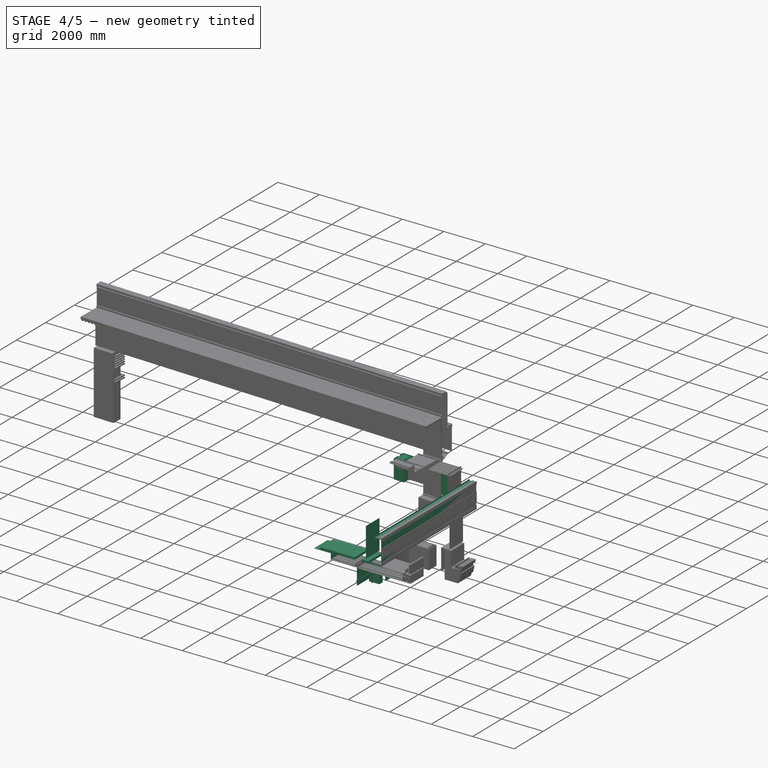
[diagram: stage 4 of 5 — iso view after this stage's code; geometry added in this stage tinted green]
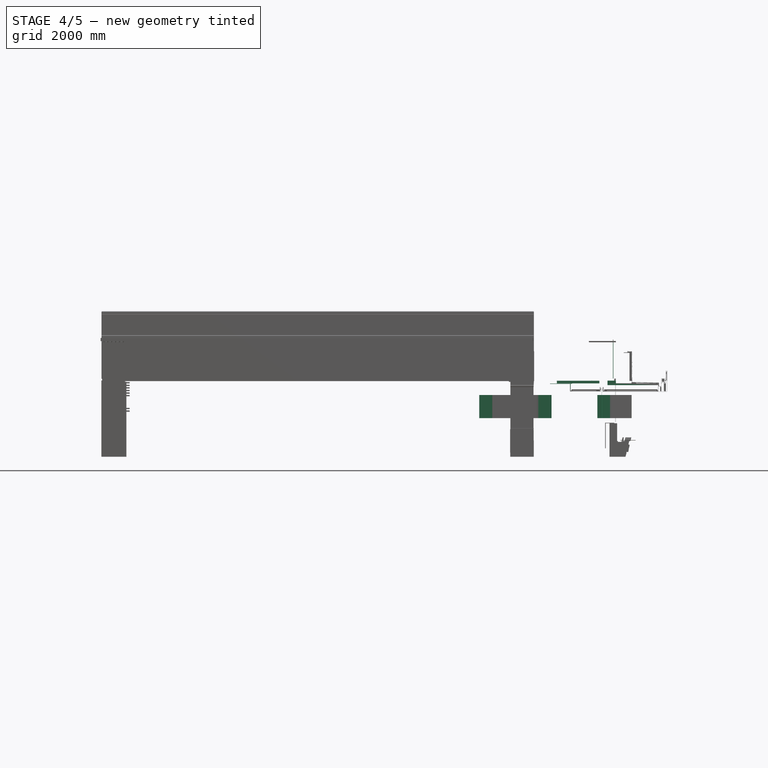
[diagram: stage 4 of 5 — front view after this stage's code; geometry added in this stage tinted green]
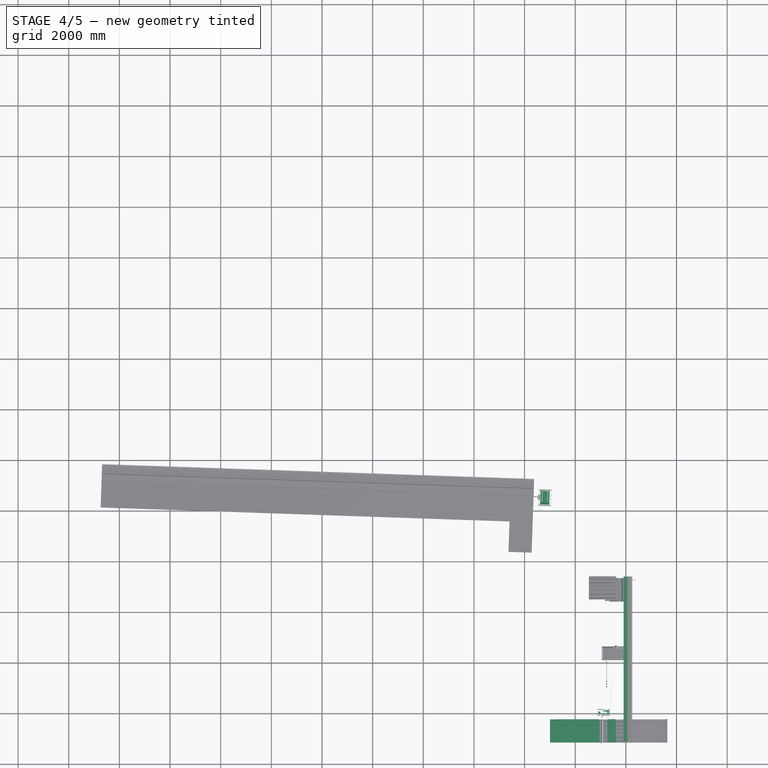
[diagram: stage 4 of 5 — top view after this stage's code; geometry added in this stage tinted green]
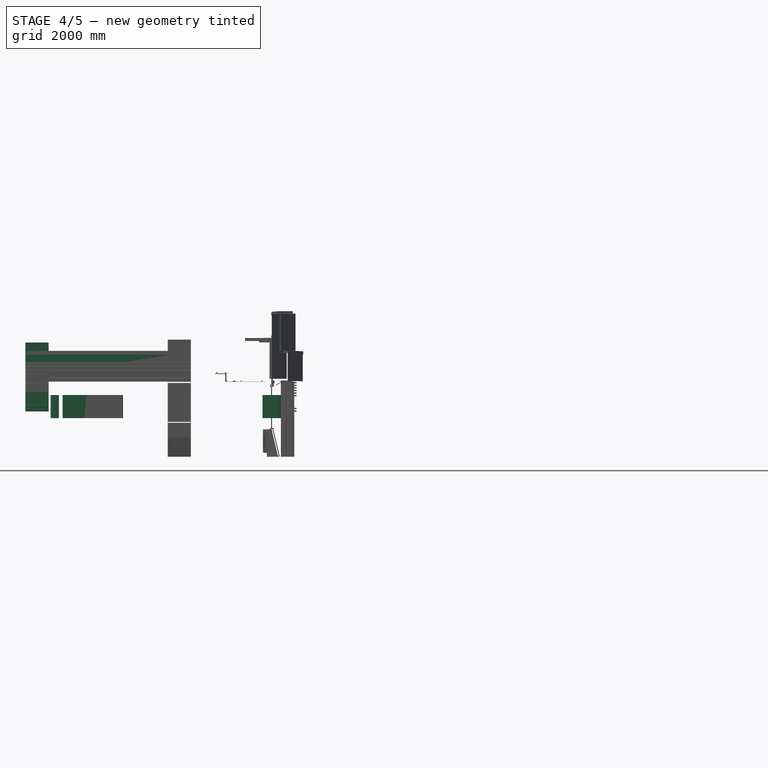
[diagram: stage 4 of 5 — right view after this stage's code; geometry added in this stage tinted green]
FEATURE [Part::Part2DObjectPython] Rectangle020  # Draft 2D object (typed FeaturePython)
  ChamferSize = 0
  Columns = 1
  FilletRadius = 0
  Height = 50.8
  Length = -32.6983
  MakeFace = true
  Placement = pos=(36974.5,2959.1,0) rot=(0,0,1;0rad)
  Rows = 1
FEATURE [Part::Part2DObjectPython] Rectangle021  # Draft 2D object (typed FeaturePython)
  ChamferSize = 0
  Columns = 1
  FilletRadius = 0
  Height = -15.875
  Length = 812.8
  MakeFace = true
  Placement = pos=(35873.5,2974.97,0) rot=(0,0,1;0rad)
  Rows = 1
FEATURE [Part::Part2DObjectPython] UPE120  # Draft 2D object (typed FeaturePython)
  FlangeThickness = 3.175
  Height = 15.875
  WebThickness = 3.175
  Width = 34.925
FEATURE [Part::Part2DObjectPython] UPE100  # Draft 2D object (typed FeaturePython)
  FlangeThickness = 7.5
  Height = 38.1
  WebThickness = 4.5
  Width = 76.2
FEATURE [App::MaterialObjectPython] Material015  label="GYPSUM BOARD"  # material (typed FeaturePython)
  Material = DiffuseColor=(1.0, 1.0, 1.0); Name=GYPSUM BOARD
FEATURE [Part::FeaturePython] Structure014  label="Inner ceiling"  # WARN: FeaturePython — macro-defined, semantics opaque (R4)
  Base = -> Rectangle021
  BaseMaterial = -> Material015
  FaceMaker = 0
  Height = 914.4
  HorizontalArea = 743224
  Length = 0
  MoveWithHost = false
  Nodes = (2) [(36279.9,2967.04,0),(36279.9,2967.04,914.4)]
  NodesOffset = 0
  Normal = (0,0,1)
  PerimeterLength = 3454.4
  Placement = pos=(32210.6,-52399.3,0) rot=(0.590162,0.570837,0.570837;2.07528rad)
  Role = 0
  VerticalArea = 54838.6
  Width = 200
FEATURE [Part::Feature] Polyline086  label="Polyline215"
  Placement = pos=(-3462.29,19.05,0) rot=(0,0,1;0rad)
  shape: bbox 74.68 x 304.8 x 2e-07 mm, 1 faces, 0 solids (baked)
FEATURE [Part::Feature] Polyline087  label="Polyline132"
  Placement = pos=(-3462.29,19.05,0) rot=(0,0,1;0rad)
  shape: bbox 74.68 x 304.8 x 2e-07 mm, 1 faces, 0 solids (baked)
FEATURE [Part::Feature] ENTITIES_0
  Placement = pos=(-5052.96,-2777.87,0) rot=(0,0,1;0rad)
  shape: bbox 5348 x 5182 x 2e-07 mm, 0 faces, 0 solids (baked)
FEATURE [Part::Part2DObjectPython] Rectangle051  # Draft 2D object (typed FeaturePython)
  ChamferSize = 0
  Columns = 1
  FilletRadius = 0
  Height = 101.6
  Length = 1676.4
  MakeFace = true
  Placement = pos=(28953.4,2990.85,0) rot=(0,0,1;0rad)
  Rows = 1
FEATURE [Part::Part2DObjectPython] Rectangle052  # Draft 2D object (typed FeaturePython)
  ChamferSize = 0
  Columns = 1
  FilletRadius = 0
  Height = 1419.23
  Length = 15.875
  MakeFace = true
  Placement = pos=(31000.5,3092.45,0) rot=(0,0,1;0rad)
  Rows = 1
FEATURE [Part::FeaturePython] Structure286  label="Insulation004"  # WARN: FeaturePython — macro-defined, semantics opaque (R4)
  Base = -> Rectangle051
  BaseMaterial = -> Material001
  FaceMaker = 0
  Height = 914.4
  HorizontalArea = 170322
  Length = 0
  MoveWithHost = false
  Nodes = (2) [(29791.6,3041.65,0),(29791.6,3041.65,914.4)]
  NodesOffset = 0
  Normal = (0,0,1)
  PerimeterLength = 3556
  Role = 0
  VerticalArea = 3.25161e+06
  Width = 200
FEATURE [Part::FeaturePython] Structure287  label="Gypsum board 003"  # WARN: FeaturePython — macro-defined, semantics opaque (R4)
  Base = -> Rectangle052
  BaseMaterial = -> Material015
  FaceMaker = 0
  Height = 914.4
  HorizontalArea = 22530.2
  Length = 0
  MoveWithHost = false
  Nodes = (2) [(31008.4,3802.06,0),(31008.4,3802.06,914.4)]
  NodesOffset = 0
  Normal = (0,0,1)
  PerimeterLength = 2870.2
  Role = 0
  VerticalArea = 2.62451e+06
  Width = 200
FEATURE [App::MaterialObjectPython] Material029  label="STRUCTURAL METAL PROFILE"  # material (typed FeaturePython)
  Material = DiffuseColor=(0.2901960784313726, 0.32941176470588235, 0.4196078431372549); Name=STRUCTURAL METAL PROFILE
FEATURE [Part::FeaturePython] Structure281  label="Structural metal profile 014"  # WARN: FeaturePython — macro-defined, semantics opaque (R4)
  Base = -> Polyline086
  BaseMaterial = -> Material029
  FaceMaker = 0
  Height = 914.4
  HorizontalArea = 4307.41
  Length = 0
  MoveWithHost = false
  Nodes = (2) [(29348.1,2838.45,0),(29348.1,2838.45,914.4)]
  NodesOffset = 0
  Normal = (0,0,1)
  PerimeterLength = 867.066
  Role = 0
  VerticalArea = 792845
  Width = 200
FEATURE [Part::FeaturePython] Structure283  label="Structural metal profile 016"  # WARN: FeaturePython — macro-defined, semantics opaque (R4)
  Base = -> Polyline087
  BaseMaterial = -> Material029
  FaceMaker = 0
  Height = 914.4
  HorizontalArea = 4307.41
  Length = 0
  MoveWithHost = false
  Nodes = (2) [(32774.6,2838.45,0),(32774.6,2838.45,914.4)]
  NodesOffset = 0
  Normal = (0,0,1)
  PerimeterLength = 867.066
  Role = 0
  VerticalArea = 792845
  Width = 200
FEATURE [App::MaterialObjectPython] Material030  label="TUBULAR METAL PROFILE"  # material (typed FeaturePython)
  Material = DiffuseColor=(0.5019607843137255, 0.5019607843137255, 0.5019607843137255); Name=TUBULAR METAL PROFILE
FEATURE [App::MaterialObjectPython] Material031  label="POLYSTYRENE BLOCK"  # material (typed FeaturePython)
  Material = DiffuseColor=(0.615686274509804, 0.8666666666666667, 1.0); Name=POLYSTYRENE BLOCK
FEATURE [Part::Feature] Facebinder002
  Placement = pos=(33897.7,-28514.4,0) rot=(0,0,1;1.5708rad)
  shape: bbox 2e-07 x 76.2 x 38.1 mm, 1 faces, 0 solids (baked)
FEATURE [Part::FeaturePython] Structure301  label="Stud004"  # WARN: FeaturePython — macro-defined, semantics opaque (R4)
  Base = -> Facebinder002
  BaseMaterial = -> METAL_STUDS
  FaceMaker = 0
  Height = 2000
  HorizontalArea = 152400
  Length = 0
  MoveWithHost = false
  Nodes = (2) [(31467.2,-454.843,-2952.75),(31467.2,-454.843,-952.75)]
  NodesOffset = 0
  Normal = (0,0,1)
  PerimeterLength = 4152.4
  Placement = pos=(-100.657,0,0) rot=(0,0,1;0rad)
  Role = 0
  VerticalArea = 288494
  Width = 200
FEATURE [App::MaterialObjectPython] Material032  label="COPPER PLATE"  # material (typed FeaturePython)
  Material = DiffuseColor=(0.4627450980392157, 0.2980392156862745, 0.10588235294117647); Name=COPPER PLATE
FEATURE [Part::Part2DObjectPython] Rectangle057  # Draft 2D object (typed FeaturePython)
  ChamferSize = 0
  Columns = 1
  FilletRadius = 0
  Height = 101.6
  Length = 330.2
  MakeFace = true
  Placement = pos=(30787.2,2990.85,0) rot=(0,0,1;0rad)
  Rows = 1
FEATURE [Part::FeaturePython] Structure303  label="Insulation005"  # WARN: FeaturePython — macro-defined, semantics opaque (R4)
  Base = -> Rectangle057
  BaseMaterial = -> Material001
  FaceMaker = 0
  Height = 914.4
  HorizontalArea = 33548.3
  Length = 0
  MoveWithHost = false
  Nodes = (2) [(30901.8,3041.65,0),(30901.8,3041.65,914.4)]
  NodesOffset = 0
  Normal = (0,0,1)
  PerimeterLength = 863.6
  Role = 0
  VerticalArea = 789676
  Width = 200
FEATURE [Part::FeaturePython] Clone016  label="M4x20-Screw017"  # Draft clone (typed FeaturePython)
  AttacherType = Attacher::AttachEngine3D
  Objects = -> [Clone004]
  Placement = pos=(34077.9,-14803.9,3116.53) rot=(0.583651,0.564539,0.583651;4.16947rad)
  Scale = (1,1,1)
FEATURE [Part::FeaturePython] Clone017  label="M4x20-Screw018"  # Draft clone (typed FeaturePython)
  AttacherType = Attacher::AttachEngine3D
  Objects = -> [Clone005]
  Placement = pos=(34077.9,-14803.9,3268.93) rot=(0.583651,0.564539,0.583651;4.16947rad)
  Scale = (1,1,1)
FEATURE [Part::FeaturePython] Clone018  label="M4x20-Screw019"  # Draft clone (typed FeaturePython)
  AttacherType = Attacher::AttachEngine3D
  Objects = -> [Clone007]
  Placement = pos=(34077.9,-14803.9,3573.73) rot=(0.583651,0.564539,0.583651;4.16947rad)
  Scale = (1,1,1)
FEATURE [Part::FeaturePython] Clone019  label="M4x20-Screw020"  # Draft clone (typed FeaturePython)
  AttacherType = Attacher::AttachEngine3D
  Objects = -> [Clone006]
  Placement = pos=(34077.9,-14803.9,3421.33) rot=(0.583651,0.564539,0.583651;4.16947rad)
  Scale = (1,1,1)
FEATURE [Part::FeaturePython] Clone020  label="M4x20-Screw021"  # Draft clone (typed FeaturePython)
  AttacherType = Attacher::AttachEngine3D
  Objects = -> [Clone008]
  Placement = pos=(34077.9,-14803.9,3726.13) rot=(0.583651,0.564539,0.583651;4.16947rad)
  Scale = (1,1,1)
FEATURE [Part::FeaturePython] Clone048  label="M4x20-Screw048"  # Draft clone (typed FeaturePython)
  AttacherType = Attacher::AttachEngine3D
  Objects = -> [Clone004]
  Placement = pos=(37568,3116.53,114.529) rot=(0.57735,0.57735,0.57735;2.0944rad)
  Scale = (1,1,1)
FEATURE [Part::FeaturePython] Clone060  label="M4x20-Screw060"  # Draft clone (typed FeaturePython)
  AttacherType = Attacher::AttachEngine3D
  Objects = -> [Clone016]
  Placement = pos=(37568,3116.53,615.041) rot=(0.57735,0.57735,0.57735;2.0944rad)
  Scale = (1,1,1)
FEATURE [Part::FeaturePython] Clone061  label="M4x20-Screw061"  # Draft clone (typed FeaturePython)
  AttacherType = Attacher::AttachEngine3D
  Objects = -> [Clone017]
  Placement = pos=(37568,3268.93,615.041) rot=(0.57735,0.57735,0.57735;2.0944rad)
  Scale = (1,1,1)
FEATURE [Part::FeaturePython] Clone062  label="M4x20-Screw062"  # Draft clone (typed FeaturePython)
  AttacherType = Attacher::AttachEngine3D
  Objects = -> [Clone018]
  Placement = pos=(37568,3573.73,615.041) rot=(0.57735,0.57735,0.57735;2.0944rad)
  Scale = (1,1,1)
FEATURE [Part::FeaturePython] Clone063  label="M4x20-Screw063"  # Draft clone (typed FeaturePython)
  AttacherType = Attacher::AttachEngine3D
  Objects = -> [Clone019]
  Placement = pos=(37568,3421.33,615.041) rot=(0.57735,0.57735,0.57735;2.0944rad)
  Scale = (1,1,1)
FEATURE [Part::FeaturePython] Clone064  label="M4x20-Screw064"  # Draft clone (typed FeaturePython)
  AttacherType = Attacher::AttachEngine3D
  Objects = -> [Clone020]
  Placement = pos=(37568,3726.13,615.041) rot=(0.57735,0.57735,0.57735;2.0944rad)
  Scale = (1,1,1)
FEATURE [Part::FeaturePython] Clone084  label="M4x20-Screw126"  # Draft clone (typed FeaturePython)
  AttacherType = Attacher::AttachEngine3D
  Objects = -> [Clone061]
  Placement = pos=(31744.1,3268.93,615.041) rot=(0.57735,0.57735,0.57735;2.0944rad)
  Scale = (1,1,1)
FEATURE [Part::FeaturePython] Clone085  label="M4x20-Screw127"  # Draft clone (typed FeaturePython)
  AttacherType = Attacher::AttachEngine3D
  Objects = -> [Clone062]
  Placement = pos=(31744.1,3573.73,615.041) rot=(0.57735,0.57735,0.57735;2.0944rad)
  Scale = (1,1,1)
FEATURE [Part::FeaturePython] Clone086  label="M4x20-Screw128"  # Draft clone (typed FeaturePython)
  AttacherType = Attacher::AttachEngine3D
  Objects = -> [Clone064]
  Placement = pos=(31744.1,3726.13,615.041) rot=(0.57735,0.57735,0.57735;2.0944rad)
  Scale = (1,1,1)
FEATURE [Part::FeaturePython] Clone087  label="M4x20-Screw129"  # Draft clone (typed FeaturePython)
  AttacherType = Attacher::AttachEngine3D
  Objects = -> [Clone060]
  Placement = pos=(31744.1,3148.3,615.041) rot=(0.57735,0.57735,0.57735;2.0944rad)
  Scale = (1,1,1)
FEATURE [Part::FeaturePython] Clone089  label="M4x20-Screw131"  # Draft clone (typed FeaturePython)
  AttacherType = Attacher::AttachEngine3D
  Objects = -> [Clone063]
  Placement = pos=(31744.1,3421.33,615.041) rot=(0.57735,0.57735,0.57735;2.0944rad)
  Scale = (1,1,1)
FEATURE [Part::FeaturePython] Structure304  label="Inner ceiling004"  # WARN: FeaturePython — macro-defined, semantics opaque (R4)
  CloneOf = -> Structure014
  FaceMaker = 0
  Height = 914.4
  HorizontalArea = 743224
  Length = 0
  MoveWithHost = false
  Nodes = (2) [(36279.9,2967.04,0),(36279.9,2967.04,914.4)]
  NodesOffset = 0
  Normal = (0,0,0)
  PerimeterLength = 3454.4
  Placement = pos=(-7357.95,1e-12,0) rot=(0,0,1;0rad)
  Role = 0
  VerticalArea = 54838.6
  Width = 200
FEATURE [Part::Feature] Polyline092  label="Polyline137"
  Placement = pos=(30764.2,2866.78,0) rot=(0,0,1;0rad)
  shape: bbox 7.925 x 0.6604 x 2e-07 mm, 1 faces, 0 solids (baked)
FEATURE [Part::Feature] Polyline095  label="Polyline140"
  Placement = pos=(30764.2,2866.78,0) rot=(0,0,1;0rad)
  shape: bbox 3.175 x 606 x 2e-07 mm, 1 faces, 0 solids (baked)
FEATURE [Part::Feature] Polyline101  label="Polyline216"
  Placement = pos=(30764.2,2866.78,0) rot=(0,0,1;0rad)
  shape: bbox 7.925 x 0.6604 x 2e-07 mm, 1 faces, 0 solids (baked)
FEATURE [Part::Feature] Polyline106  label="Polyline193"
  Placement = pos=(30764.2,2866.78,0) rot=(0,0,1;0rad)
  shape: bbox 7.925 x 0.6604 x 2e-07 mm, 1 faces, 0 solids (baked)
FEATURE [Part::Feature] Polyline107  label="Polyline217"
  Placement = pos=(30764.2,2866.78,0) rot=(0,0,1;0rad)
  shape: bbox 3.175 x 179.3 x 2e-07 mm, 1 faces, 0 solids (baked)
FEATURE [Part::FeaturePython] Structure312  label="Window frame part 196"  # WARN: FeaturePython — macro-defined, semantics opaque (R4)
  Base = -> Polyline101
  BaseMaterial = -> Material017
  FaceMaker = 0
  Height = 914.4
  HorizontalArea = 5.23354
  Length = 0
  MoveWithHost = false
  Nodes = (2) [(30751.3,2407.36,0),(30751.3,2407.36,914.4)]
  NodesOffset = 0
  Normal = (0,0,1)
  PerimeterLength = 17.1704
  Role = 0
  VerticalArea = 15700.6
  Width = 200.025
FEATURE [Part::FeaturePython] Structure315  label="Glass panel 032"  # WARN: FeaturePython — macro-defined, semantics opaque (R4)
  Base = -> Polyline107
  BaseMaterial = -> Material018
  FaceMaker = 0
  Height = 914.4
  HorizontalArea = 569.313
  Length = 0
  MoveWithHost = false
  Nodes = (2) [(30751.3,2317.37,0),(30751.3,2317.37,914.4)]
  NodesOffset = 0
  Normal = (0,0,1)
  PerimeterLength = 364.973
  Role = 0
  VerticalArea = 333731
  Width = 200.025
FEATURE [Part::FeaturePython] Structure317  label="Window frame part 192"  # WARN: FeaturePython — macro-defined, semantics opaque (R4)
  Base = -> Polyline092
  BaseMaterial = -> Material017
  FaceMaker = 0
  Height = 914.4
  HorizontalArea = 5.23354
  Length = 0
  MoveWithHost = false
  Nodes = (2) [(30751.3,3064.15,0),(30751.3,3064.15,914.4)]
  NodesOffset = 0
  Normal = (0,0,1)
  PerimeterLength = 17.1704
  Role = 0
  VerticalArea = 15700.6
  Width = 200.025
FEATURE [Part::FeaturePython] Structure318  label="Window frame part 191"  # WARN: FeaturePython — macro-defined, semantics opaque (R4)
  Base = -> Polyline106
  BaseMaterial = -> Material017
  FaceMaker = 0
  Height = 914.4
  HorizontalArea = 5.23354
  Length = 0
  MoveWithHost = false
  Nodes = (2) [(30751.3,2457.5,0),(30751.3,2457.5,914.4)]
  NodesOffset = 0
  Normal = (0,0,1)
  PerimeterLength = 17.1704
  Role = 0
  VerticalArea = 15700.6
  Width = 200.025
FEATURE [Part::FeaturePython] Structure321  label="Glass panel 033"  # WARN: FeaturePython — macro-defined, semantics opaque (R4)
  Base = -> Polyline095
  BaseMaterial = -> Material018
  FaceMaker = 0
  Height = 914.4
  HorizontalArea = 1924.03
  Length = 0
  MoveWithHost = false
  Nodes = (2) [(30751.3,2760.82,0),(30751.3,2760.82,914.4)]
  NodesOffset = 0
  Normal = (0,0,1)
  PerimeterLength = 1218.33
  Role = 0
  VerticalArea = 1.11405e+06
  Width = 200.025
FEATURE [Part::FeaturePython] Structure326  label="Stud005"  # WARN: FeaturePython — macro-defined, semantics opaque (R4)
  BaseMaterial = -> METAL_STUDS
  CloneOf = -> Structure301
  FaceMaker = 0
  Height = 2000
  HorizontalArea = 152400
  Length = 0
  MoveWithHost = false
  Nodes = (2) [(31467.2,-454.843,-2952.75),(31467.2,-454.843,-952.75)]
  NodesOffset = 0
  Normal = (0,0,0)
  PerimeterLength = 4152.4
  Placement = pos=(-100.657,0,609.6) rot=(0,0,1;0rad)
  Role = 0
  VerticalArea = 288494
  Width = 200
FEATURE [Part::Part2DObjectPython] Rectangle058  # Draft 2D object (typed FeaturePython)
  ChamferSize = 0
  Columns = 1
  FilletRadius = 0
  Height = 288.925
  Length = 17.3906
  MakeFace = true
  Placement = pos=(29306.1,2670.18,0) rot=(0,0,1;0rad)
  Rows = 1
FEATURE [Part::FeaturePython] Structure333  label="Gypsum panel 009"  # WARN: FeaturePython — macro-defined, semantics opaque (R4)
  Base = -> Rectangle058
  BaseMaterial = -> Material015
  FaceMaker = 0
  Height = 914.4
  HorizontalArea = 5024.59
  Length = 0
  MoveWithHost = false
  Nodes = (2) [(29314.8,2814.64,0),(29314.8,2814.64,914.4)]
  NodesOffset = 0
  Normal = (0,0,1)
  PerimeterLength = 612.631
  Role = 0
  VerticalArea = 560190
  Width = 200
FEATURE [Part::FeaturePython] Component308  label="M4x20-Screw164"  # Arch/BIM object (typed FeaturePython)
  CloneOf = -> Clone084
  HorizontalArea = 0
  IfcAttributes = IfcUID=0oh8I2rheHvh5D093rt3ko
  MoveWithHost = false
  PerimeterLength = 0
  Placement = pos=(38253.7,-24897,3268.93) rot=(0.707107,0,0.707107;3.14159rad)
  Role = 0
  VerticalArea = 0
FEATURE [Part::FeaturePython] Component309  label="M4x20-Screw165"  # Arch/BIM object (typed FeaturePython)
  CloneOf = -> Clone085
  HorizontalArea = 0
  IfcAttributes = IfcUID=0ojk2UrheHvh5D093rt3ko
  MoveWithHost = false
  PerimeterLength = 0
  Placement = pos=(38253.7,-24897,3573.73) rot=(0.707107,0,0.707107;3.14159rad)
  Role = 0
  VerticalArea = 0
FEATURE [Part::FeaturePython] Component310  label="M4x20-Screw166"  # Arch/BIM object (typed FeaturePython)
  CloneOf = -> Clone086
  HorizontalArea = 0
  IfcAttributes = IfcUID=0omNr2rheHvh5D093rt3ko
  MoveWithHost = false
  PerimeterLength = 0
  Placement = pos=(38253.7,-24897,3726.13) rot=(0.707107,0,0.707107;3.14159rad)
  Role = 0
  VerticalArea = 0
FEATURE [Part::FeaturePython] Component311  label="M4x20-Screw167"  # Arch/BIM object (typed FeaturePython)
  CloneOf = -> Clone087
  HorizontalArea = 0
  IfcAttributes = IfcUID=0op2WUrheHvh5D093rt3ko
  MoveWithHost = false
  PerimeterLength = 0
  Placement = pos=(38253.7,-24897,3148.3) rot=(0.707107,0,0.707107;3.14159rad)
  Role = 0
  VerticalArea = 0
FEATURE [Part::FeaturePython] Component313  label="M4x20-Screw169"  # Arch/BIM object (typed FeaturePython)
  CloneOf = -> Clone089
  HorizontalArea = 0
  IfcAttributes = IfcUID=0ouNr0rheHvh5D093rt3ko
  MoveWithHost = false
  PerimeterLength = 0
  Placement = pos=(38253.7,-24897,3421.33) rot=(0.707107,0,0.707107;3.14159rad)
  Role = 0
  VerticalArea = 0
FEATURE [Part::FeaturePython] Component318  label="Insulation006"  # Arch/BIM object (typed FeaturePython)
  BaseMaterial = -> Material001
  CloneOf = -> Structure286
  HorizontalArea = 170322
  IfcAttributes = IfcUID=0o_fCgrheHvh5D093rt3ko
  MoveWithHost = false
  PerimeterLength = 3556
  Placement = pos=(6321.31,-24282,-91.6214) rot=(1,0,0;1.5708rad)
  Role = 0
  VerticalArea = 3.25161e+06
FEATURE [Part::FeaturePython] Component319  label="Gypsum board 004"  # Arch/BIM object (typed FeaturePython)
  BaseMaterial = -> Material015
  CloneOf = -> Structure287
  HorizontalArea = 22530.2
  IfcAttributes = IfcUID=0o_trYrheHvh5D093rt3ko
  MoveWithHost = false
  PerimeterLength = 2870.2
  Placement = pos=(6487.33,-24282,0) rot=(1,0,0;1.5708rad)
  Role = 0
  VerticalArea = 2.62451e+06
FEATURE [Part::FeaturePython] Component334  label="Insulation007"  # Arch/BIM object (typed FeaturePython)
  BaseMaterial = -> Material001
  CloneOf = -> Structure303
  HorizontalArea = 33548.3
  IfcAttributes = IfcUID=0p2HRyrheHvh5D093rt3ko
  MoveWithHost = false
  PerimeterLength = 863.6
  Placement = pos=(6487.33,-24282,-88.9) rot=(1,0,0;1.5708rad)
  Role = 0
  VerticalArea = 789676
FEATURE [Part::FeaturePython] Component335  label="Inner ceiling005"  # Arch/BIM object (typed FeaturePython)
  BaseMaterial = -> Material015
  CloneOf = -> Structure304
  HorizontalArea = 743224
  IfcAttributes = IfcUID=0p2VsSrheHvh5D093rt3ko
  MoveWithHost = false
  PerimeterLength = 3454.4
  Placement = pos=(-870.616,-24282,-88.9) rot=(1,0,0;1.5708rad)
  Role = 0
  VerticalArea = 54838.6
FEATURE [Part::FeaturePython] Component339  label="Glass panel 034"  # Arch/BIM object (typed FeaturePython)
  BaseMaterial = -> Material018
  CloneOf = -> Structure315
  HorizontalArea = 569.313
  IfcAttributes = IfcUID=0p4BH8rheHvh5D093rt3ko
  MoveWithHost = false
  PerimeterLength = 364.973
  Placement = pos=(6304.04,-24282,-439.865) rot=(1,0,0;1.5708rad)
  Role = 0
  VerticalArea = 333731
FEATURE [Part::FeaturePython] Component340  label="Window frame part 208"  # Arch/BIM object (typed FeaturePython)
  BaseMaterial = -> Material017
  CloneOf = -> Structure312
  HorizontalArea = 5.23354
  IfcAttributes = IfcUID=0p4QcOrheHvh5D093rt3ko
  MoveWithHost = false
  PerimeterLength = 17.1704
  Placement = pos=(6304.04,-24282,-439.865) rot=(1,0,0;1.5708rad)
  Role = 0
  VerticalArea = 15700.6
FEATURE [Part::FeaturePython] Component348  label="Window frame part 216"  # Arch/BIM object (typed FeaturePython)
  BaseMaterial = -> Material017
  CloneOf = -> Structure317
  HorizontalArea = 5.23354
  IfcAttributes = IfcUID=0p8HZsrheHvh5D093rt3ko
  MoveWithHost = false
  PerimeterLength = 17.1704
  Placement = pos=(6304.04,-24282,-439.865) rot=(1,0,0;1.5708rad)
  Role = 0
  VerticalArea = 15700.6
FEATURE [Part::FeaturePython] Component349  label="Window frame part 217"  # Arch/BIM object (typed FeaturePython)
  BaseMaterial = -> Material017
  CloneOf = -> Structure318
  HorizontalArea = 5.23354
  IfcAttributes = IfcUID=0p8UvwrheHvh5D093rt3ko
  MoveWithHost = false
  PerimeterLength = 17.1704
  Placement = pos=(6304.04,-24282,-439.865) rot=(1,0,0;1.5708rad)
  Role = 0
  VerticalArea = 15700.6
FEATURE [Part::FeaturePython] Component351  label="Glass panel 035"  # Arch/BIM object (typed FeaturePython)
  BaseMaterial = -> Material018
  CloneOf = -> Structure321
  HorizontalArea = 1924.03
  IfcAttributes = IfcUID=0p96OyrheHvh5D093rt3ko
  MoveWithHost = false
  PerimeterLength = 1218.33
  Placement = pos=(6304.04,-24282,-439.865) rot=(1,0,0;1.5708rad)
  Role = 0
  VerticalArea = 1.11405e+06
FEATURE [Part::FeaturePython] Component358  label="Stud011"  # Arch/BIM object (typed FeaturePython)
  BaseMaterial = -> METAL_STUDS
  CloneOf = -> Structure326
  HorizontalArea = 152400
  IfcAttributes = IfcUID=0pB_pwrheHvh5D093rt3ko
  MoveWithHost = false
  PerimeterLength = 4152.4
  Placement = pos=(6386.68,-24891.6,-88.9) rot=(1,0,0;1.5708rad)
  Role = 0
  VerticalArea = 288494
FEATURE [Part::FeaturePython] Component362  label="Gypsum panel 012"  # Arch/BIM object (typed FeaturePython)
  BaseMaterial = -> Material015
  CloneOf = -> Structure333
  HorizontalArea = 5024.59
  IfcAttributes = IfcUID=0pDQB6rheHvh5D093rt3ko
  MoveWithHost = false
  PerimeterLength = 612.631
  Placement = pos=(6487.33,-24282,-88.9) rot=(1,0,0;1.5708rad)
  Role = 0
  VerticalArea = 560190
FEATURE [Part::Feature] Shape037
  shape: bbox 7.989 x 10.9 x 2e-07 mm, 1 faces, 0 solids (baked)
FEATURE [Part::FeaturePython] Structure306  label="Window frame part 202"  # WARN: FeaturePython — macro-defined, semantics opaque (R4)
  Base = -> Shape037
  BaseMaterial = -> Material017
  FaceMaker = 0
  Height = 914.4
  HorizontalArea = 35.0236
  Length = 0
  MoveWithHost = false
  Nodes = (2) [(30755.3,2462.71,0),(30755.3,2462.71,914.4)]
  NodesOffset = 0
  Normal = (0,0,1)
  PerimeterLength = 39.442
  Role = 0
  VerticalArea = 36065.8
  Width = 200.025
FEATURE [Part::FeaturePython] Component345  label="Window frame part 213"  # Arch/BIM object (typed FeaturePython)
  BaseMaterial = -> Material017
  CloneOf = -> Structure306
  HorizontalArea = 35.0236
  IfcAttributes = IfcUID=0p7CFmrheHvh5D093rt3ko
  MoveWithHost = false
  PerimeterLength = 39.442
  Placement = pos=(6304.04,-24282,-439.865) rot=(1,0,0;1.5708rad)
  Role = 0
  VerticalArea = 36065.8
FEATURE [Part::Feature] Shape038
  shape: bbox 7.989 x 10.9 x 2e-07 mm, 1 faces, 0 solids (baked)
FEATURE [Part::FeaturePython] Structure307  label="Window frame part 201"  # WARN: FeaturePython — macro-defined, semantics opaque (R4)
  Base = -> Shape038
  BaseMaterial = -> Material017
  FaceMaker = 0
  Height = 914.4
  HorizontalArea = 35.0236
  Length = 0
  MoveWithHost = false
  Nodes = (2) [(30755.3,2402.14,0),(30755.3,2402.14,914.4)]
  NodesOffset = 0
  Normal = (0,0,1)
  PerimeterLength = 39.442
  Role = 0
  VerticalArea = 36065.8
  Width = 200.025
FEATURE [Part::FeaturePython] Component336  label="Window frame part 206"  # Arch/BIM object (typed FeaturePython)
  BaseMaterial = -> Material017
  CloneOf = -> Structure307
  HorizontalArea = 35.0236
  IfcAttributes = IfcUID=0p2fMurheHvh5D093rt3ko
  MoveWithHost = false
  PerimeterLength = 39.442
  Placement = pos=(6304.04,-24282,-439.865) rot=(1,0,0;1.5708rad)
  Role = 0
  VerticalArea = 36065.8
FEATURE [Part::Feature] Shape039
  shape: bbox 44.45 x 39.47 x 2e-07 mm, 1 faces, 0 solids (baked)
FEATURE [Part::FeaturePython] Structure308  label="Window frame part 200"  # WARN: FeaturePython — macro-defined, semantics opaque (R4)
  Base = -> Shape039
  BaseMaterial = -> Material017
  FaceMaker = 0
  Height = 914.4
  HorizontalArea = 249.188
  Length = 0
  MoveWithHost = false
  Nodes = (2) [(30743,2415.23,0),(30743,2415.23,914.4)]
  NodesOffset = 0
  Normal = (0,0,1)
  PerimeterLength = 258.827
  Role = 0
  VerticalArea = 236671
  Width = 200.025
FEATURE [Part::FeaturePython] Component341  label="Window frame part 209"  # Arch/BIM object (typed FeaturePython)
  BaseMaterial = -> Material017
  CloneOf = -> Structure308
  HorizontalArea = 249.188
  IfcAttributes = IfcUID=0p4fOArheHvh5D093rt3ko
  MoveWithHost = false
  PerimeterLength = 258.827
  Placement = pos=(6304.04,-24282,-439.865) rot=(1,0,0;1.5708rad)
  Role = 0
  VerticalArea = 236671
FEATURE [Part::Feature] Shape040
  shape: bbox 25.4 x 11.68 x 2e-07 mm, 1 faces, 0 solids (baked)
FEATURE [Part::FeaturePython] Structure309  label="Window frame part 199"  # WARN: FeaturePython — macro-defined, semantics opaque (R4)
  Base = -> Shape040
  BaseMaterial = -> Material017
  FaceMaker = 0
  Height = 914.4
  HorizontalArea = 91.399
  Length = 0
  MoveWithHost = false
  Nodes = (2) [(30736.2,2401.49,0),(30736.2,2401.49,914.4)]
  NodesOffset = 0
  Normal = (0,0,1)
  PerimeterLength = 119.907
  Role = 0
  VerticalArea = 109643
  Width = 200.025
FEATURE [Part::FeaturePython] Component338  label="Window frame part 207"  # Arch/BIM object (typed FeaturePython)
  BaseMaterial = -> Material017
  CloneOf = -> Structure309
  HorizontalArea = 91.399
  IfcAttributes = IfcUID=0p3GJsrheHvh5D093rt3ko
  MoveWithHost = false
  PerimeterLength = 119.907
  Placement = pos=(6304.04,-24282,-439.865) rot=(1,0,0;1.5708rad)
  Role = 0
  VerticalArea = 109643
FEATURE [Part::Feature] Shape041
  shape: bbox 7.989 x 10.9 x 2e-07 mm, 1 faces, 0 solids (baked)
FEATURE [Part::FeaturePython] Structure311  label="Window frame part 197"  # WARN: FeaturePython — macro-defined, semantics opaque (R4)
  Base = -> Shape041
  BaseMaterial = -> Material017
  FaceMaker = 0
  Height = 914.4
  HorizontalArea = 35.0236
  Length = 0
  MoveWithHost = false
  Nodes = (2) [(30747.4,2402.14,0),(30747.4,2402.14,914.4)]
  NodesOffset = 0
  Normal = (0,0,1)
  PerimeterLength = 39.442
  Role = 0
  VerticalArea = 36065.8
  Width = 200.025
FEATURE [Part::FeaturePython] Component343  label="Window frame part 211"  # Arch/BIM object (typed FeaturePython)
  BaseMaterial = -> Material017
  CloneOf = -> Structure311
  HorizontalArea = 35.0236
  IfcAttributes = IfcUID=0p6CdQrheHvh5D093rt3ko
  MoveWithHost = false
  PerimeterLength = 39.442
  Placement = pos=(6304.04,-24282,-439.865) rot=(1,0,0;1.5708rad)
  Role = 0
  VerticalArea = 36065.8
FEATURE [Part::Feature] Shape043
  shape: bbox 44.45 x 39.47 x 2e-07 mm, 1 faces, 0 solids (baked)
FEATURE [Part::FeaturePython] Structure314  label="Window frame part 194"  # WARN: FeaturePython — macro-defined, semantics opaque (R4)
  Base = -> Shape043
  BaseMaterial = -> Material017
  FaceMaker = 0
  Height = 914.4
  HorizontalArea = 256.446
  Length = 0
  MoveWithHost = false
  Nodes = (2) [(30744.2,2449.25,0),(30744.2,2449.25,914.4)]
  NodesOffset = 0
  Normal = (0,0,1)
  PerimeterLength = 258.529
  Role = 0
  VerticalArea = 236399
  Width = 200.025
FEATURE [Part::FeaturePython] Component344  label="Window frame part 212"  # Arch/BIM object (typed FeaturePython)
  BaseMaterial = -> Material017
  CloneOf = -> Structure314
  HorizontalArea = 256.446
  IfcAttributes = IfcUID=0p6aL4rheHvh5D093rt3ko
  MoveWithHost = false
  PerimeterLength = 258.529
  Placement = pos=(6304.04,-24282,-439.865) rot=(1,0,0;1.5708rad)
  Role = 0
  VerticalArea = 236399
FEATURE [Part::Feature] Shape044
  shape: bbox 7.989 x 10.9 x 2e-07 mm, 1 faces, 0 solids (baked)
FEATURE [Part::FeaturePython] Structure316  label="Window frame part 193"  # WARN: FeaturePython — macro-defined, semantics opaque (R4)
  Base = -> Shape044
  BaseMaterial = -> Material017
  FaceMaker = 0
  Height = 914.4
  HorizontalArea = 35.0236
  Length = 0
  MoveWithHost = false
  Nodes = (2) [(30747.4,2462.71,0),(30747.4,2462.71,914.4)]
  NodesOffset = 0
  Normal = (0,0,1)
  PerimeterLength = 39.442
  Role = 0
  VerticalArea = 36065.8
  Width = 200.025
FEATURE [Part::FeaturePython] Component347  label="Window frame part 215"  # Arch/BIM object (typed FeaturePython)
  BaseMaterial = -> Material017
  CloneOf = -> Structure316
  HorizontalArea = 35.0236
  IfcAttributes = IfcUID=0p7vuErheHvh5D093rt3ko
  MoveWithHost = false
  PerimeterLength = 39.442
  Placement = pos=(6304.04,-24282,-439.865) rot=(1,0,0;1.5708rad)
  Role = 0
  VerticalArea = 36065.8
FEATURE [Part::Feature] Shape045
  shape: bbox 7.989 x 10.9 x 2e-07 mm, 1 faces, 0 solids (baked)
FEATURE [Part::FeaturePython] Structure319  label="Window frame part 190"  # WARN: FeaturePython — macro-defined, semantics opaque (R4)
  Base = -> Shape045
  BaseMaterial = -> Material017
  FaceMaker = 0
  Height = 914.4
  HorizontalArea = 35.0236
  Length = 0
  MoveWithHost = false
  Nodes = (2) [(30747.4,3058.93,0),(30747.4,3058.93,914.4)]
  NodesOffset = 0
  Normal = (0,0,1)
  PerimeterLength = 39.442
  Role = 0
  VerticalArea = 36065.8
  Width = 200.025
FEATURE [Part::FeaturePython] Component350  label="Window frame part 218"  # Arch/BIM object (typed FeaturePython)
  BaseMaterial = -> Material017
  CloneOf = -> Structure319
  HorizontalArea = 35.0236
  IfcAttributes = IfcUID=0p8jZkrheHvh5D093rt3ko
  MoveWithHost = false
  PerimeterLength = 39.442
  Placement = pos=(6304.04,-24282,-439.865) rot=(1,0,0;1.5708rad)
  Role = 0
  VerticalArea = 36065.8
FEATURE [Part::Feature] Shape046
  shape: bbox 25.4 x 42.86 x 2e-07 mm, 1 faces, 0 solids (baked)
FEATURE [Part::FeaturePython] Structure320  label="Window frame part 189"  # WARN: FeaturePython — macro-defined, semantics opaque (R4)
  Base = -> Shape046
  BaseMaterial = -> Material017
  FaceMaker = 0
  Height = 914.4
  HorizontalArea = 136.013
  Length = 0
  MoveWithHost = false
  Nodes = (2) [(30712.8,2432.43,0),(30712.8,2432.43,914.4)]
  NodesOffset = 0
  Normal = (0,0,1)
  PerimeterLength = 174.313
  Role = 0
  VerticalArea = 159392
  Width = 200.025
FEATURE [Part::FeaturePython] Component352  label="Window frame part 219"  # Arch/BIM object (typed FeaturePython)
  BaseMaterial = -> Material017
  CloneOf = -> Structure320
  HorizontalArea = 136.013
  IfcAttributes = IfcUID=0p9LNErheHvh5D093rt3ko
  MoveWithHost = false
  PerimeterLength = 174.313
  Placement = pos=(6304.04,-24282,-439.865) rot=(1,0,0;1.5708rad)
  Role = 0
  VerticalArea = 159392
FEATURE [Part::Feature] Shape047
  shape: bbox 40.89 x 21.24 x 2e-07 mm, 1 faces, 0 solids (baked)
FEATURE [Part::FeaturePython] Structure322  label="Window frame part 188"  # WARN: FeaturePython — macro-defined, semantics opaque (R4)
  Base = -> Shape047
  BaseMaterial = -> Material017
  FaceMaker = 0
  Height = 914.4
  HorizontalArea = 118.442
  Length = 0
  MoveWithHost = false
  Nodes = (2) [(30744.2,3142.34,0),(30744.2,3142.34,914.4)]
  NodesOffset = 0
  Normal = (0,0,1)
  PerimeterLength = 131.22
  Role = 0
  VerticalArea = 119988
  Width = 200.025
FEATURE [Part::FeaturePython] Component346  label="Window frame part 214"  # Arch/BIM object (typed FeaturePython)
  BaseMaterial = -> Material017
  CloneOf = -> Structure322
  HorizontalArea = 118.442
  IfcAttributes = IfcUID=0p7aq6rheHvh5D093rt3ko
  MoveWithHost = false
  PerimeterLength = 131.22
  Placement = pos=(6304.04,-24282,-439.865) rot=(1,0,0;1.5708rad)
  Role = 0
  VerticalArea = 119988
FEATURE [Part::Feature] Shape048
  shape: bbox 44.45 x 82.33 x 2e-07 mm, 1 faces, 0 solids (baked)
FEATURE [Part::Feature] Shape049
  shape: bbox 41.15 x 45.15 x 2e-07 mm, 1 faces, 0 solids (baked)
FEATURE [Part::Cut] Cut006002002005
  Base = -> Shape048
  Tool = -> Shape049
FEATURE [Part::FeaturePython] Structure323  label="Window frame part 187"  # WARN: FeaturePython — macro-defined, semantics opaque (R4)
  Base = -> Cut006002002005
  BaseMaterial = -> Material017
  FaceMaker = 0
  Height = 914.4
  HorizontalArea = 575.538
  Length = 0
  MoveWithHost = false
  Nodes = (72) [(30727.7,3136.43,0),(30728.9,3136.6,0),(30727.3,3135.74,0),(30724.7,3129.91,0),(30724.9,3135.74,0),(30723.6,3129.2,0),(30724.5,3136.46,0),+65 more]
  NodesOffset = 0
  Normal = (0,0,1)
  PerimeterLength = 370.802
  Role = 0
  VerticalArea = 518278
  Width = 200.025
FEATURE [Part::FeaturePython] Component355  label="Window frame part 220"  # Arch/BIM object (typed FeaturePython)
  BaseMaterial = -> Material017
  CloneOf = -> Structure323
  HorizontalArea = 575.538
  IfcAttributes = IfcUID=0pAA64rheHvh5D093rt3ko
  MoveWithHost = false
  PerimeterLength = 370.802
  Placement = pos=(6304.04,-24282,-439.865) rot=(1,0,0;1.5708rad)
  Role = 0
  VerticalArea = 518278
FEATURE [Part::Feature] Compound003  label="plan"
  shape: bbox 78100 x 14340 x 2e-07 mm, 1 faces, 0 solids (baked)
FEATURE [Sketcher::SketchObject] Sketch003
  Placement = pos=(541.406,1055.22,0) rot=(0,0,-1;0.034208rad)
  sketch-geometry (4):
    g0: ArcOfCircle CenterX=32714.7 CenterY=-15311.6 CenterZ=0 NormalX=0 NormalY=0 NormalZ=1 Radius=2.03711 StartAngle=1.5708 EndAngle=4.71239
    g1: ArcOfCircle CenterX=32722.4 CenterY=-15311.6 CenterZ=0 NormalX=0 NormalY=0 NormalZ=1 Radius=2.03711 StartAngle=4.71239 EndAngle=7.85398
    g2: LineSegment StartX=32714.7 StartY=-15313.6 StartZ=0 EndX=32722.4 EndY=-15313.6 EndZ=0
    g3: LineSegment StartX=32714.7 StartY=-15309.5 StartZ=0 EndX=32722.4 EndY=-15309.5 EndZ=0
  constraints (6):
    c: Tangent(g0,g3) = 1.5708
    c: Tangent(g0,g2) = -1.5708
    c: Tangent(g2,g1) = -1.5708
    c: Tangent(g3,g1) = 1.5708
    c: Horizontal(g2)
    c: Equal(g0,g1)
FEATURE [Part::Feature] Polyline117  label="Polyline162"
  shape: bbox 45.65 x 37.26 x 2e-07 mm, 1 faces, 0 solids (baked)
FEATURE [Part::Feature] Polyline119  label="Polyline163"
  shape: bbox 45.6 x 36.94 x 2e-07 mm, 1 faces, 0 solids (baked)
FEATURE [Part::Part2DObjectPython] DWire021  # Draft 2D object (typed FeaturePython)
  ChamferSize = 0
  Closed = true
  End = (32729.6,-15134.9,0)
  FilletRadius = 0
  Length = 2041.36
  MakeFace = true
  Points = (50) [(32729,-15152.9,0),(32722.1,-15355,0),(32724,-15357.1,0),(32723.9,-15359,0),(32724.5,-15359.6,0),(32723,-15361,0),(32722.4,-15360.4,0),+43 more]
  Start = (32729,-15152.9,0)
  Subdivisions = 0
FEATURE [Part::Part2DObjectPython] DWire022  # Draft 2D object (typed FeaturePython)
  ChamferSize = 0
  Closed = true
  End = (32365.2,-15594.9,0)
  FilletRadius = 0
  Length = 1219.29
  MakeFace = true
  Points = (4) [(32379.1,-15188.6,0),(32582.2,-15195.6,0),(32568.3,-15601.7,0),(32365.2,-15594.9,0)]
  Start = (32379.1,-15188.6,0)
  Subdivisions = 0
FEATURE [Part::Part2DObjectPython] DWire023  # Draft 2D object (typed FeaturePython)
  ChamferSize = 0
  Closed = true
  End = (32352.1,-15607,0)
  FilletRadius = 0
  Length = 2603.5
  MakeFace = true
  Points = (8) [(32367.2,-15166,0),(32303.7,-15163.8,0),(32286.5,-15668.3,0),(32641.9,-15680.5,0),(32659.1,-15176,0),(32595.7,-15173.8,0),(32580.6,-15614.8,0),+1 more]
  Start = (32367.2,-15166,0)
  Subdivisions = 0
FEATURE [Part::Part2DObjectPython] DWire024  # Draft 2D object (typed FeaturePython)
  ChamferSize = 0
  Closed = true
  End = (32657.2,-15696.9,0)
  FilletRadius = 0
  Length = 2895.6
  MakeFace = true
  Points = (8) [(32675,-15176.5,0),(32681.3,-15176.7,0),(32663.3,-15703.5,0),(32263.5,-15689.8,0),(32281.5,-15163,0),(32287.9,-15163.2,0),(32270.1,-15683.6,0),+1 more]
  Start = (32675,-15176.5,0)
  Subdivisions = 0
FEATURE [Part::Part2DObjectPython] DWire025  # Draft 2D object (typed FeaturePython)
  ChamferSize = 0
  Closed = true
  End = (32681.3,-15176.7,0)
  FilletRadius = 0
  Length = 814.336
  MakeFace = true
  Points = (4) [(32281.5,-15163,0),(32281.8,-15155.9,0),(32681.6,-15169.6,0),(32681.3,-15176.7,0)]
  Start = (32281.5,-15163,0)
  Subdivisions = 0
FEATURE [Part::Feature] Face024
  shape: bbox 413.8 x 185 x 2e-07 mm, 1 faces, 0 solids (baked)
FEATURE [Sketcher::SketchObject] Sketch004
  Placement = pos=(57.196,1071.79,0) rot=(0,0,-1;0.034208rad)
  sketch-geometry (4):
    g0: ArcOfCircle CenterX=32714.7 CenterY=-15311.6 CenterZ=0 NormalX=0 NormalY=0 NormalZ=1 Radius=2.03711 StartAngle=1.5708 EndAngle=4.71239
    g1: ArcOfCircle CenterX=32722.4 CenterY=-15311.6 CenterZ=0 NormalX=0 NormalY=0 NormalZ=1 Radius=2.03711 StartAngle=4.71239 EndAngle=7.85398
    g2: LineSegment StartX=32714.7 StartY=-15313.6 StartZ=0 EndX=32722.4 EndY=-15313.6 EndZ=0
    g3: LineSegment StartX=32714.7 StartY=-15309.5 StartZ=0 EndX=32722.4 EndY=-15309.5 EndZ=0
  constraints (6):
    c: Tangent(g0,g3) = 1.5708
    c: Tangent(g0,g2) = -1.5708
    c: Tangent(g2,g1) = -1.5708
    c: Tangent(g3,g1) = 1.5708
    c: Horizontal(g2)
    c: Equal(g0,g1)
FEATURE [Part::Part2DObjectPython] DWire029  # Draft 2D object (typed FeaturePython)
  ChamferSize = 0
  Closed = true
  End = (32248.2,-15477.3,0)
  FilletRadius = 0
  Length = 2151.86
  MakeFace = true
  Points = (14) [(32248.3,-15472.6,0),(32225.7,-15471.8,0),(32220.1,-15471.6,0),(32211,-15738.8,0),(32712.3,-15756,0),(32721.5,-15488.8,0),(32715.9,-15488.6,0),+7 more]
  Start = (32248.3,-15472.6,0)
  Subdivisions = 0
FEATURE [Part::Part2DObjectPython] Clone2D001  label="Sketch004 (2D)"  # Draft 2D object (typed FeaturePython)
  Objects = -> [Sketch004]
  Placement = pos=(50.0867,962.703,0) rot=(0,0,-1;0.034208rad)
  Scale = (1,1,1)
FEATURE [Part::Part2DObjectPython] Clone2D002  label="Sketch004 (2D) (2D)"  # Draft 2D object (typed FeaturePython)
  Objects = -> [Clone2D001]
  Placement = pos=(541.596,945.906,0) rot=(0,0,-1;0.034208rad)
  Scale = (1,1,1)
FEATURE [Part::Part2DObjectPython] Rectangle059  # Draft 2D object (typed FeaturePython)
  ChamferSize = 0
  Columns = 1
  FilletRadius = 0
  Height = -88.7715
  Length = 33.2227
  MakeFace = true
  Placement = pos=(32674.4,-15378.2,0) rot=(0,0,-1;0.034208rad)
  Rows = 1
FEATURE [Part::Part2DObjectPython] Clone2D003  label="Rectangle059 (2D)"  # Draft 2D object (typed FeaturePython)
  Objects = -> [Rectangle059]
  Placement = pos=(32241.4,-15363.4,0) rot=(0,0,-1;0.034208rad)
  Scale = (1,1,1)
FEATURE [Part::FeaturePython] Structure336  label="Sealant 029"  # Arch/BIM object (typed FeaturePython)
  Base = -> Sketch003
  BaseMaterial = -> SEALANT___BACKER_ROD__IF_NECESSARY
  FaceMaker = 0
  Height = 914.4
  HorizontalArea = 44.6281
  IfcAttributes = IfcUID=3CWZB4yyaHvehM093rt3ko
  Length = 0
  MoveWithHost = false
  Nodes = (2) [(32717.1,-15366.4,0),(32717.1,-15366.4,914.4)]
  NodesOffset = 0
  Normal = (0,0,1)
  PerimeterLength = 28.3073
  Placement = pos=(0.605469,1.64941,1524) rot=(0,0,1;0rad)
  Role = 0
  VerticalArea = 25884.2
  Width = 200
FEATURE [Part::FeaturePython] Structure337  label="Alpolic panel 001"  # Arch/BIM object (typed FeaturePython)
  Base = -> DWire021
  BaseMaterial = -> Material025
  FaceMaker = 0
  Height = 914.4
  HorizontalArea = 3929.7
  IfcAttributes = IfcUID=3CWsQoyyaHvehM093rt3ko
  Length = 0
  MoveWithHost = false
  Nodes = (2) [(32482.3,-15145.1,0),(32482.3,-15145.1,914.4)]
  NodesOffset = 0
  Normal = (0,0,1)
  PerimeterLength = 2041.36
  Placement = pos=(0,0,1524) rot=(0,0,1;0rad)
  Role = 0
  VerticalArea = 1.86662e+06
  Width = 200
FEATURE [Part::FeaturePython] Structure338  label="Alpolic support piece 011"  # Arch/BIM object (typed FeaturePython)
  Base = -> Polyline119
  BaseMaterial = -> Material026
  FaceMaker = 0
  Height = 914.4
  HorizontalArea = 197.265
  IfcAttributes = IfcUID=3CX8euyyaHvehM093rt3ko
  Length = 0
  MoveWithHost = false
  Nodes = (2) [(32688,-15354.4,0),(32688,-15354.4,914.4)]
  NodesOffset = 0
  Normal = (0,0,1)
  PerimeterLength = 182.784
  Placement = pos=(0,0,1524) rot=(0,0,1;0rad)
  Role = 0
  VerticalArea = 167138
  Width = 200
FEATURE [Part::FeaturePython] Structure343  label="Alpolic support piece 010"  # Arch/BIM object (typed FeaturePython)
  Base = -> Polyline117
  BaseMaterial = -> Material026
  FaceMaker = 0
  Height = 914.4
  HorizontalArea = 197.265
  IfcAttributes = IfcUID=3CXkn2yyaHvehM093rt3ko
  Length = 0
  MoveWithHost = false
  Nodes = (2) [(32262.7,-15339.8,0),(32262.7,-15339.8,914.4)]
  NodesOffset = 0
  Normal = (0,0,1)
  PerimeterLength = 182.784
  Placement = pos=(0,0,1524) rot=(0,0,1;0rad)
  Role = 0
  VerticalArea = 167138
  Width = 200
FEATURE [Part::FeaturePython] Structure372  label="Gypsum board 019"  # Arch/BIM object (typed FeaturePython)
  Base = -> DWire025
  BaseMaterial = -> Material015
  FaceMaker = 0
  Height = 914.4
  HorizontalArea = 2847.53
  IfcAttributes = IfcUID=3CY4xKyyaHvehM093rt3ko
  Length = 0
  MoveWithHost = false
  Nodes = (2) [(32481.6,-15166.3,0),(32481.6,-15166.3,914.4)]
  NodesOffset = 0
  Normal = (0,0,1)
  PerimeterLength = 814.336
  Placement = pos=(0,0,1524) rot=(0,0,1;0rad)
  Role = 0
  VerticalArea = 744629
  Width = 200
FEATURE [Part::FeaturePython] Structure379  label="Sealant 030"  # Arch/BIM object (typed FeaturePython)
  Base = -> Sketch004
  BaseMaterial = -> SEALANT___BACKER_ROD__IF_NECESSARY
  FaceMaker = 0
  Height = 914.4
  HorizontalArea = 44.6281
  IfcAttributes = IfcUID=3CYGjEyyaHvehM093rt3ko
  Length = 0
  MoveWithHost = false
  Nodes = (2) [(32232.9,-15349.8,0),(32232.9,-15349.8,914.4)]
  NodesOffset = 0
  Normal = (0,0,1)
  PerimeterLength = 28.3073
  Placement = pos=(0,0,1524) rot=(0,0,1;0rad)
  Role = 0
  VerticalArea = 25884.2
  Width = 200
FEATURE [Part::FeaturePython] Structure383  label="Concrete column 001"  # Arch/BIM object (typed FeaturePython)
  Base = -> DWire022
  BaseMaterial = -> _EXISTING_CAST_IN_PLACE_CONCRETE
  FaceMaker = 0
  Height = 914.4
  HorizontalArea = 82589.5
  IfcAttributes = IfcUID=3CYS$eyyaHvehM093rt3ko
  Length = 0
  MoveWithHost = false
  Nodes = (2) [(32473.7,-15395.2,0),(32473.7,-15395.2,914.4)]
  NodesOffset = 0
  Normal = (0,0,1)
  PerimeterLength = 1219.29
  Placement = pos=(0,0,1524) rot=(0,0,1;0rad)
  Role = 0
  VerticalArea = 1.11492e+06
  Width = 200
FEATURE [Part::FeaturePython] Structure384  label="Insulation 001"  # Arch/BIM object (typed FeaturePython)
  Base = -> DWire023
  BaseMaterial = -> Material001
  FaceMaker = 0
  Height = 911.86
  HorizontalArea = 78628.9
  IfcAttributes = IfcUID=3CYdz2yyaHvehM093rt3ko
  Length = 0
  MoveWithHost = false
  Nodes = (2) [(32471.4,-15462.8,0),(32471.4,-15462.8,911.86)]
  NodesOffset = 0
  Normal = (0,0,1)
  PerimeterLength = 2603.5
  Placement = pos=(0,0,1524) rot=(0,0,1;0rad)
  Role = 0
  VerticalArea = 2.37403e+06
  Width = 200
FEATURE [Part::FeaturePython] Structure386  label="Structure070"  # Arch/BIM object (typed FeaturePython)
  Base = -> Face024
  BaseMaterial = -> _EXISTING_CAST_IN_PLACE_CONCRETE
  FaceMaker = 0
  Height = 914.4
  HorizontalArea = 0
  IfcAttributes = IfcUID=3CZ36YyyaHvehM093rt3ko
  Length = 0
  MoveWithHost = false
  Nodes = (2) [(32480.4,-15199.2,0),(32480.4,-15199.2,914.4)]
  NodesOffset = 0
  Normal = (0,0,1)
  PerimeterLength = 0
  Placement = pos=(0,0,1524) rot=(0,0,1;0rad)
  Role = 0
  VerticalArea = 0
  Width = 200
FEATURE [Part::FeaturePython] Structure395  label="Gypsum board 020"  # Arch/BIM object (typed FeaturePython)
  Base = -> DWire024
  BaseMaterial = -> Material015
  FaceMaker = 0
  Height = 914.4
  HorizontalArea = 9153.21
  IfcAttributes = IfcUID=3CaOnWyyaHvehM093rt3ko
  Length = 0
  MoveWithHost = false
  Nodes = (2) [(32470,-15503.2,0),(32470,-15503.2,914.4)]
  NodesOffset = 0
  Normal = (0,0,1)
  PerimeterLength = 2895.6
  Placement = pos=(0,0,1524) rot=(0,0,1;0rad)
  Role = 0
  VerticalArea = 2.64774e+06
  Width = 200
FEATURE [Part::FeaturePython] Structure397  label="Sealant 031"  # Arch/BIM object (typed FeaturePython)
  Base = -> Clone2D001
  BaseMaterial = -> SEALANT___BACKER_ROD__IF_NECESSARY
  FaceMaker = 0
  Height = 914.4
  HorizontalArea = 44.6281
  IfcAttributes = IfcUID=3CaaHmyyaHvehM093rt3ko
  Length = 0
  MoveWithHost = false
  Nodes = (2) [(32225.8,-15458.9,0),(32225.8,-15458.9,914.4)]
  NodesOffset = 0
  Normal = (0,0,1)
  PerimeterLength = 28.3073
  Placement = pos=(0,0,1524) rot=(0,0,1;0rad)
  Role = 0
  VerticalArea = 25884.2
  Width = 200
FEATURE [Part::FeaturePython] Structure402  label="Sealant 032"  # Arch/BIM object (typed FeaturePython)
  Base = -> Clone2D002
  BaseMaterial = -> SEALANT___BACKER_ROD__IF_NECESSARY
  FaceMaker = 0
  Height = 914.4
  HorizontalArea = 44.6281
  IfcAttributes = IfcUID=3CbOoYyyaHvehM093rt3ko
  Length = 0
  MoveWithHost = false
  Nodes = (2) [(32717.3,-15475.7,0),(32717.3,-15475.7,914.4)]
  NodesOffset = 0
  Normal = (0,0,1)
  PerimeterLength = 28.3073
  Placement = pos=(-1.55469,-8.87695,1524) rot=(0,0,1;0rad)
  Role = 0
  VerticalArea = 25884.2
  Width = 200
FEATURE [Part::FeaturePython] Structure403  label="Gypsum board 021"  # Arch/BIM object (typed FeaturePython)
  Base = -> DWire029
  BaseMaterial = -> Material015
  FaceMaker = 0
  Height = 914.4
  HorizontalArea = 5947.48
  IfcAttributes = IfcUID=3CbhlWyyaHvehM093rt3ko
  Length = 0
  MoveWithHost = false
  Nodes = (2) [(32464.5,-15665.7,0),(32464.5,-15665.7,914.4)]
  NodesOffset = 0
  Normal = (0,0,1)
  PerimeterLength = 2151.86
  Placement = pos=(0,0,1524) rot=(0,0,1;0rad)
  Role = 0
  VerticalArea = 1.96766e+06
  Width = 200
FEATURE [App::MaterialObjectPython] Material034  label="WOOD BLOCK 3" X 1 1/2""  # material (typed FeaturePython)
  Material = DiffuseColor=(1.0, 0.6666666666666666, 0.4980392156862745); Name=WOOD BLOCK 3" X 1 1/2"
FEATURE [Part::FeaturePython] Structure405  label="Wood block 010"  # Arch/BIM object (typed FeaturePython)
  Base = -> Clone2D003
  BaseMaterial = -> Material034
  FaceMaker = 0
  Height = 914.4
  HorizontalArea = 2949.22
  IfcAttributes = IfcUID=3Cc5fKyyaHvehM093rt3ko
  Length = 0
  MoveWithHost = false
  Nodes = (2) [(31710.6,-16502.5,0),(31710.6,-16502.5,914.4)]
  NodesOffset = 0
  Normal = (0,0,1)
  PerimeterLength = 243.988
  Placement = pos=(433.019,-14.8187,1524) rot=(0,0,1;0rad)
  Role = 0
  VerticalArea = 223103
  Width = 200
FEATURE [Part::Part2DObjectPython] DWire030  # Draft 2D object (typed FeaturePython)
  ChamferSize = 0
  Closed = true
  End = (32675.9,-15336.6,0)
  FilletRadius = 0
  Length = 1486.05
  MakeFace = true
  Points = (9) [(32675.9,-15336.6,0),(32678.8,-15336.7,0),(32684.6,-15166.8,0),(32278.9,-15152.9,0),(32273.1,-15322.8,0),(32276.1,-15322.9,0),(32281.8,-15155.9,0),+2 more]
  Start = (32675.9,-15336.6,0)
  Subdivisions = 0
FEATURE [Part::Extrusion] Extrusion006
  Base = -> DWire030
  Dir = (0,0,914.4)
  DirMode = 0
  FaceMakerClass = Part::FaceMakerBullseye
  LengthFwd = 0
  LengthRev = 0
  Solid = true
  Symmetric = false
FEATURE [Part::FeaturePython] Component365  label="WRB Membrane 013"  # Arch/BIM object (typed FeaturePython)
  Base = -> Extrusion006
  BaseMaterial = -> Material007
  HorizontalArea = 0
  IfcAttributes = IfcUID=3CcSvcyyaHvehM093rt3ko
  MoveWithHost = false
  PerimeterLength = 0
  Placement = pos=(0,0,1524) rot=(0,0,1;0rad)
  Role = 0
  VerticalArea = 0
FEATURE [Part::FeaturePython] Structure417  label="Alpolic support piece 014"  # Arch/BIM object (typed FeaturePython)
  BaseMaterial = -> Material026
  CloneOf = -> Structure343
  FaceMaker = 0
  Height = 914.4
  HorizontalArea = 197.265
  IfcAttributes = IfcUID=3CSpMUyyaHvehM093rt3ko
  Length = 0
  MoveWithHost = false
  Nodes = (2) [(32262.7,-15339.8,0),(32262.7,-15339.8,914.4)]
  NodesOffset = 0
  Normal = (0,0,0)
  PerimeterLength = 182.784
  Placement = pos=(2329.09,-79.7055,1524) rot=(0,0,1;0rad)
  Role = 0
  VerticalArea = 167138
  Width = 200
FEATURE [Part::FeaturePython] Structure419  label="Sealant 037"  # Arch/BIM object (typed FeaturePython)
  BaseMaterial = -> SEALANT___BACKER_ROD__IF_NECESSARY
  CloneOf = -> Structure379
  FaceMaker = 0
  Height = 914.4
  HorizontalArea = 44.6281
  IfcAttributes = IfcUID=3CT2cuyyaHvehM093rt3ko
  Length = 0
  MoveWithHost = false
  Nodes = (2) [(32232.9,-15349.8,0),(32232.9,-15349.8,914.4)]
  NodesOffset = 0
  Normal = (0,0,0)
  PerimeterLength = 28.3073
  Placement = pos=(2327.81,-78.2407,1524) rot=(0,0,1;0rad)
  Role = 0
  VerticalArea = 25884.2
  Width = 200
FEATURE [Part::FeaturePython] Structure434  label="Sealant 038"  # Arch/BIM object (typed FeaturePython)
  BaseMaterial = -> SEALANT___BACKER_ROD__IF_NECESSARY
  CloneOf = -> Structure397
  FaceMaker = 0
  Height = 914.4
  HorizontalArea = 44.6281
  IfcAttributes = IfcUID=3CTN9GyyaHvehM093rt3ko
  Length = 0
  MoveWithHost = false
  Nodes = (2) [(32225.8,-15458.9,0),(32225.8,-15458.9,914.4)]
  NodesOffset = 0
  Normal = (0,0,0)
  PerimeterLength = 28.3073
  Placement = pos=(2328.99,-88.7661,1524) rot=(0,0,1;0rad)
  Role = 0
  VerticalArea = 25884.2
  Width = 200
FEATURE [Part::FeaturePython] Structure439  label="Wood block 014"  # Arch/BIM object (typed FeaturePython)
  BaseMaterial = -> Material034
  CloneOf = -> Structure405
  FaceMaker = 0
  Height = 914.4
  HorizontalArea = 2949.22
  IfcAttributes = IfcUID=3CTz_6yyaHvehM093rt3ko
  Length = 0
  MoveWithHost = false
  Nodes = (2) [(31710.6,-16502.5,0),(31710.6,-16502.5,914.4)]
  NodesOffset = 0
  Normal = (0,0,0)
  PerimeterLength = 243.988
  Placement = pos=(2329.09,-79.7055,1524) rot=(0,0,1;0rad)
  Role = 0
  VerticalArea = 223103
  Width = 200
FEATURE [Part::Part2DObjectPython] DWire031  # Draft 2D object (typed FeaturePython)
  ChamferSize = 0
  Closed = true
  End = (34779.9,-16143.9,0)
  FilletRadius = 0
  Length = 3301.24
  MakeFace = true
  Points = (4) [(34821.9,-14917.4,0),(35245,-14931.9,0),(35203.1,-16158.4,0),(34779.9,-16143.9,0)]
  Start = (34821.9,-14917.4,0)
  Subdivisions = 0
FEATURE [Part::Extrusion] Extrusion007
  Base = -> DWire031
  Dir = (0,0,1475.72)
  DirMode = 0
  FaceMakerClass = Part::FaceMakerBullseye
  LengthFwd = 0
  LengthRev = 0
  Placement = pos=(0,0,-73.9757) rot=(0,0,1;0rad)
  Solid = true
  Symmetric = false
FEATURE [Part::FeaturePython] Structure442  label="Gypsum board 025"  # Arch/BIM object (typed FeaturePython)
  Base = -> DWire029
  BaseMaterial = -> Material015
  FaceMaker = 0
  Height = 914.4
  HorizontalArea = 5947.48
  IfcAttributes = IfcUID=3CUC10yyaHvehM093rt3ko
  Length = 0
  MoveWithHost = false
  Nodes = (2) [(32464.5,-15665.7,0),(32464.5,-15665.7,914.4)]
  NodesOffset = 0
  Normal = (0,0,1)
  PerimeterLength = 2151.86
  Placement = pos=(2329.09,-79.7055,1524) rot=(0,0,1;0rad)
  Role = 0
  Subtractions = -> [Extrusion007]
  VerticalArea = 1.96766e+06
  Width = 200
FEATURE [Part::FeaturePython] Structure443  label="Gypsum board 026"  # Arch/BIM object (typed FeaturePython)
  Base = -> DWire024
  BaseMaterial = -> Material015
  FaceMaker = 0
  Height = 914.4
  HorizontalArea = 9153.21
  IfcAttributes = IfcUID=3CUgluyyaHvehM093rt3ko
  Length = 0
  MoveWithHost = false
  Nodes = (2) [(32470,-15503.2,0),(32470,-15503.2,914.4)]
  NodesOffset = 0
  Normal = (0,0,1)
  PerimeterLength = 2895.6
  Placement = pos=(2329.09,-79.7055,1524) rot=(0,0,1;0rad)
  Role = 0
  Subtractions = -> [Extrusion007]
  VerticalArea = 2.64774e+06
  Width = 200
FEATURE [Part::FeaturePython] Structure444  label="Insulation 003"  # Arch/BIM object (typed FeaturePython)
  Base = -> DWire023
  BaseMaterial = -> Material001
  FaceMaker = 0
  Height = 911.86
  HorizontalArea = 78628.9
  IfcAttributes = IfcUID=3CUyOeyyaHvehM093rt3ko
  Length = 0
  MoveWithHost = false
  Nodes = (2) [(32471.4,-15462.8,0),(32471.4,-15462.8,911.86)]
  NodesOffset = 0
  Normal = (0,0,1)
  PerimeterLength = 2603.5
  Placement = pos=(2329.09,-79.7055,1524) rot=(0,0,1;0rad)
  Role = 0
  Subtractions = -> [Extrusion007]
  VerticalArea = 2.37403e+06
  Width = 200
FEATURE [Part::FeaturePython] Structure445  label="Concrete column 005"  # Arch/BIM object (typed FeaturePython)
  Base = -> DWire022
  BaseMaterial = -> _EXISTING_CAST_IN_PLACE_CONCRETE
  FaceMaker = 0
  Height = 914.4
  HorizontalArea = 82589.5
  IfcAttributes = IfcUID=3CVDPsyyaHvehM093rt3ko
  Length = 0
  MoveWithHost = false
  Nodes = (2) [(32473.7,-15395.2,0),(32473.7,-15395.2,914.4)]
  NodesOffset = 0
  Normal = (0,0,1)
  PerimeterLength = 1219.29
  Placement = pos=(2329.09,-79.7055,1524) rot=(0,0,1;0rad)
  Role = 0
  Subtractions = -> [Extrusion007]
  VerticalArea = 1.11492e+06
  Width = 200
FEATURE [Part::FeaturePython] Structure446  label="Gypsum board 027"  # Arch/BIM object (typed FeaturePython)
  Base = -> DWire025
  BaseMaterial = -> Material015
  FaceMaker = 0
  Height = 914.4
  HorizontalArea = 2847.53
  IfcAttributes = IfcUID=3CVT0myyaHvehM093rt3ko
  Length = 0
  MoveWithHost = false
  Nodes = (2) [(32481.6,-15166.3,0),(32481.6,-15166.3,914.4)]
  NodesOffset = 0
  Normal = (0,0,1)
  PerimeterLength = 814.336
  Placement = pos=(2329.09,-79.7055,1524) rot=(0,0,1;0rad)
  Role = 0
  Subtractions = -> [Extrusion007]
  VerticalArea = 744629
  Width = 200
FEATURE [Part::FeaturePython] Structure447  label="Alpolic panel 004"  # Arch/BIM object (typed FeaturePython)
  Base = -> DWire021
  BaseMaterial = -> Material025
  FaceMaker = 0
  Height = 914.4
  HorizontalArea = 3929.7
  IfcAttributes = IfcUID=3CW44myyaHvehM093rt3ko
  Length = 0
  MoveWithHost = false
  Nodes = (2) [(32482.3,-15145.1,0),(32482.3,-15145.1,914.4)]
  NodesOffset = 0
  Normal = (0,0,1)
  PerimeterLength = 2041.36
  Placement = pos=(2329.09,-79.7055,1524) rot=(0,0,1;0rad)
  Role = 0
  Subtractions = -> [Extrusion007]
  VerticalArea = 1.86662e+06
  Width = 200
FEATURE [Part::Extrusion] Extrusion008
  Base = -> DWire030
  Dir = (0,0,914.4)
  DirMode = 0
  FaceMakerClass = Part::FaceMakerBullseye
  LengthFwd = 0
  LengthRev = 0
  Placement = pos=(2329.09,-79.7055,0) rot=(0,0,1;0rad)
  Solid = true
  Symmetric = false
FEATURE [Part::Cut] Cut006002002007  label="Cut006002002048"
  Base = -> Extrusion008
  Tool = -> Extrusion007
FEATURE [Part::FeaturePython] Component424  label="WRB Membrane 015"  # Arch/BIM object (typed FeaturePython)
  Base = -> Cut006002002007
  BaseMaterial = -> Material007
  HorizontalArea = 0
  IfcAttributes = IfcUID=3CViVsyyaHvehM093rt3ko
  MoveWithHost = false
  PerimeterLength = 0
  Placement = pos=(-4.5e-07,-1.36805e-05,1524) rot=(0,0,1;0rad)
  Role = 0
  VerticalArea = 0
FEATURE [Part::Feature] Polyline142  label="Polyline226"
  Placement = pos=(36916.9,-22488.4,0) rot=(0,0,1;1.5708rad)
  shape: bbox 44.67 x 89.27 x 2e-07 mm, 1 faces, 0 solids (baked)
FEATURE [Part::Feature] Polyline143  label="Polyline227"
  Placement = pos=(36916.9,-22488.4,0) rot=(0,0,1;1.5708rad)
  shape: bbox 38.32 x 80.51 x 2e-07 mm, 1 faces, 0 solids (baked)
FEATURE [Part::Feature] Polyline144  label="Polyline228"
  Placement = pos=(36916.9,-22488.4,0) rot=(0,0,1;1.5708rad)
  shape: bbox 38.31 x 83.02 x 2e-07 mm, 1 faces, 0 solids (baked)
FEATURE [Part::Feature] Polyline145  label="Polyline229"
  Placement = pos=(36916.9,-22488.4,0) rot=(0,0,1;1.5708rad)
  shape: bbox 44.67 x 91.04 x 2e-07 mm, 1 faces, 0 solids (baked)
FEATURE [Part::Feature] Polyline146  label="Polyline230"
  Placement = pos=(36916.9,-22488.4,0) rot=(0,0,1;1.5708rad)
  shape: bbox 34.52 x 34.35 x 2e-07 mm, 1 faces, 0 solids (baked)
FEATURE [Part::Feature] Polyline147  label="Polyline231"
  Placement = pos=(36916.9,-22488.4,0) rot=(0,0,1;1.5708rad)
  shape: bbox 8.588 x 7.938 x 2e-07 mm, 1 faces, 0 solids (baked)
FEATURE [Part::Feature] Polyline148  label="Polyline232"
  Placement = pos=(36916.9,-22488.4,0) rot=(0,0,1;1.5708rad)
  shape: bbox 7.187 x 11.14 x 2e-07 mm, 1 faces, 0 solids (baked)
FEATURE [Part::Feature] Polyline149  label="Polyline233"
  Placement = pos=(36916.9,-22488.4,0) rot=(0,0,1;1.5708rad)
  shape: bbox 34.52 x 34.35 x 2e-07 mm, 1 faces, 0 solids (baked)
FEATURE [Part::Feature] Polyline150  label="Polyline234"
  Placement = pos=(36916.9,-22488.4,0) rot=(0,0,1;1.5708rad)
  shape: bbox 8.588 x 7.937 x 2e-07 mm, 1 faces, 0 solids (baked)
FEATURE [Part::Feature] Polyline151  label="Polyline235"
  Placement = pos=(36916.9,-22488.4,0) rot=(0,0,1;1.5708rad)
  shape: bbox 8.606 x 14.17 x 2e-07 mm, 1 faces, 0 solids (baked)
FEATURE [Part::Feature] Polyline157  label="Polyline241"
  Placement = pos=(36916.9,-22488.4,0) rot=(0,0,1;1.5708rad)
  shape: bbox 12.24 x 12.42 x 2e-07 mm, 1 faces, 0 solids (baked)
FEATURE [Part::Feature] mirror001014004003  label="Mirror of Polyline211"
  Placement = pos=(36916.9,-22491.1,0) rot=(0,0,1;1.5708rad)
  shape: bbox 8.606 x 14.17 x 2e-07 mm, 1 faces, 0 solids (baked)
FEATURE [Part::Feature] mirror001014004002001  label="Mirror of Polyline212"
  Placement = pos=(36916.9,-22491.1,0) rot=(0,0,1;1.5708rad)
  shape: bbox 7.187 x 11.14 x 2e-07 mm, 1 faces, 0 solids (baked)
FEATURE [Part::Cut] Cut006002002011  label="Cut006002002052"
  Base = -> Polyline145
  Tool = -> Polyline144
FEATURE [Part::Cut] Cut006002002012  label="Cut006002002053"
  Base = -> Polyline142
  Tool = -> Polyline143
FEATURE [App::MaterialObjectPython] Material035  label="RUBBER JOINT"  # material (typed FeaturePython)
  Material = DiffuseColor=(0.06666666666666667, 0.06666666666666667, 0.06666666666666667); Name=RUBBER JOINT
FEATURE [App::MaterialObjectPython] STRUCTURAL_MEMBER___SEE_STRUCT__DWGS  label="STRUCTURAL MEMBER - SEE STRUCT. DWGS"  # material (typed FeaturePython)
  Material = DiffuseColor=(0.2627450980392157, 0.41568627450980394, 0.47058823529411764); Name=STRUCTURAL MEMBER - SEE STRUCT. DWGS
FEATURE [Part::FeaturePython] Component315  label="Structural metal profile 017"  # Arch/BIM object (typed FeaturePython)
  BaseMaterial = -> STRUCTURAL_MEMBER___SEE_STRUCT__DWGS
  CloneOf = -> Structure281
  HorizontalArea = 4307.41
  IfcAttributes = IfcUID=0ozcU_rheHvh5D093rt3ko
  MoveWithHost = false
  PerimeterLength = 867.066
  Placement = pos=(6487.33,-24282,-88.9) rot=(1,0,0;1.5708rad)
  Role = 0
  VerticalArea = 792845
FEATURE [Part::FeaturePython] Component317  label="Structural metal profile 019"  # Arch/BIM object (typed FeaturePython)
  BaseMaterial = -> STRUCTURAL_MEMBER___SEE_STRUCT__DWGS
  CloneOf = -> Structure283
  HorizontalArea = 4307.41
  IfcAttributes = IfcUID=0o_JfmrheHvh5D093rt3ko
  MoveWithHost = false
  PerimeterLength = 867.066
  Placement = pos=(6487.33,-24282,-88.9) rot=(1,0,0;1.5708rad)
  Role = 0
  VerticalArea = 792845
FEATURE [Part::Feature] Metallic_structure001_Metallic_structure001_213532_Metallic_structure001_213532___Metallic_structure001_Metallic_structure001_213532_282251_Metallic_structure001_213532_Metallic_structure001_213532___Metallic_structure001_Metallic_structure001_213532_282251___Metallic_structure001_Metallic_structure001_213532_Metallic_structure001_213532___Metallic_structure001_Metallic_structure001_213532_282251_348938_footprint
  shape: bbox 152.4 x 101.6 x 2e-07 mm, 1 faces, 0 solids (baked)
FEATURE [Part::Extrusion] Metallic_structure001_Metallic_structure001_213532_Metallic_structure001_213532___Metallic_structure001_Metallic_structure001_213532_282251_Metallic_structure001_213532_Metallic_structure001_213532___Metallic_structure001_Metallic_structure001_213532_282251___Metallic_structure001_Metallic_structure001_213532_Metallic_structure001_213532___Metallic_structure001_Metallic_structure001_213532_282251_348938_body
  Base = -> Metallic_structure001_Metallic_structure001_213532_Metallic_structure001_213532___Metallic_structure001_Metallic_structure001_213532_282251_Metallic_structure001_213532_Metallic_structure001_213532___Metallic_structure001_Metallic_structure001_213532_282251___Metallic_structure001_Metallic_structure001_213532_Metallic_structure001_213532___Metallic_structure001_Metallic_structure001_213532_282251_348938_footprint
  Dir = (0,0,914.4)
  DirMode = 0
  FaceMakerClass = Part::FaceMakerBullseye
  LengthFwd = 0
  LengthRev = 0
  Solid = false
  Symmetric = false
FEATURE [Part::FeaturePython] Metallic_structure001_Metallic_structure001_213532_Metallic_structure001_213532___Metallic_structure001_Metallic_structure001_213532_282251_Metallic_structure001_213532_Metallic_structure001_213532___Metallic_structure001_Metallic_structure001_213532_282251___Metallic_structure001_Metallic_structure001_213532_Metallic_structure001_213532___Metallic_structure001_Metallic_structure001_213532_282251_348938  label="Metallic structure001:Metallic structure001:213532:Metallic structure001:213532 : Metallic structure001:Metallic structure001:213532:282251:Metallic structure001:213532:Metallic structure001:213532 : Metallic structure001:Metallic structure001:213532:282251 : Metallic structure001:Metallic structure001:213532:Metallic structure001:213532 : Metallic structure001:Metallic structure001:213532:282251:348938"  # Arch/BIM object (typed FeaturePython)
  Base = -> Metallic_structure001_Metallic_structure001_213532_Metallic_structure001_213532___Metallic_structure001_Metallic_structure001_213532_282251_Metallic_structure001_213532_Metallic_structure001_213532___Metallic_structure001_Metallic_structure001_213532_282251___Metallic_structure001_Metallic_structure001_213532_Metallic_structure001_213532___Metallic_structure001_Metallic_structure001_213532_282251_348938_body
  BaseMaterial = -> Material030
  HorizontalArea = 0
  IfcAttributes = IfcUID=303vYSxzmHveNx093rt3ko; Reference=IfcIdentifier('Metallic structure001')
  MoveWithHost = false
  PerimeterLength = 0
  Role = 0
  VerticalArea = 0
FEATURE [Part::Feature] Alpolic_support_piece_023_Alpolic_support_piece_023_213648_Alpolic_support_piece_023_213648___Alpolic_support_piece_023_Alpolic_support_piece_023_213648_282361_Alpolic_support_piece_023_213648_Alpolic_support_piece_023_213648___Alpolic_support_piece_023_Alpolic_support_piece_023_213648_282361___Alpolic_support_piece_023_Alpolic_support_piece_023_213648_Alpolic_support_piece_023_213648___Alpolic_support_piece_023_Alpolic_support_piece_023_213648_282361_349032_footprint
  shape: bbox 36.88 x 44.98 x 2e-07 mm, 1 faces, 0 solids (baked)
FEATURE [Part::Extrusion] Alpolic_support_piece_023_Alpolic_support_piece_023_213648_Alpolic_support_piece_023_213648___Alpolic_support_piece_023_Alpolic_support_piece_023_213648_282361_Alpolic_support_piece_023_213648_Alpolic_support_piece_023_213648___Alpolic_support_piece_023_Alpolic_support_piece_023_213648_282361___Alpolic_support_piece_023_Alpolic_support_piece_023_213648_Alpolic_support_piece_023_213648___Alpolic_support_piece_023_Alpolic_support_piece_023_213648_282361_349032_body
  Base = -> Alpolic_support_piece_023_Alpolic_support_piece_023_213648_Alpolic_support_piece_023_213648___Alpolic_support_piece_023_Alpolic_support_piece_023_213648_282361_Alpolic_support_piece_023_213648_Alpolic_support_piece_023_213648___Alpolic_support_piece_023_Alpolic_support_piece_023_213648_282361___Alpolic_support_piece_023_Alpolic_support_piece_023_213648_Alpolic_support_piece_023_213648___Alpolic_support_piece_023_Alpolic_support_piece_023_213648_282361_349032_footprint
  Dir = (0,0,914.4)
  DirMode = 0
  FaceMakerClass = Part::FaceMakerBullseye
  LengthFwd = 0
  LengthRev = 0
  Solid = false
  Symmetric = false
FEATURE [Part::FeaturePython] Alpolic_support_piece_023_Alpolic_support_piece_023_213648_Alpolic_support_piece_023_213648___Alpolic_support_piece_023_Alpolic_support_piece_023_213648_282361_Alpolic_support_piece_023_213648_Alpolic_support_piece_023_213648___Alpolic_support_piece_023_Alpolic_support_piece_023_213648_282361___Alpolic_support_piece_023_Alpolic_support_piece_023_213648_Alpolic_support_piece_023_213648___Alpolic_support_piece_023_Alpolic_support_piece_023_213648_282361_349032  label="Alpolic support piece 023:Alpolic support piece 023:213648:Alpolic support piece 023:213648 : Alpolic support piece 023:Alpolic support piece 023:213648:282361:Alpolic support piece 023:213648:Alpolic support piece 023:213648 : Alpolic support piece 023:Alpolic support piece 023:213648:282361 : Alpolic support piece 023:Alpolic support piece 023:213648:Alpolic support piece 023:213648 : Alpolic support piece 023:Alpolic support piece 023:213648:282361:349032"  # Arch/BIM object (typed FeaturePython)
  Base = -> Alpolic_support_piece_023_Alpolic_support_piece_023_213648_Alpolic_support_piece_023_213648___Alpolic_support_piece_023_Alpolic_support_piece_023_213648_282361_Alpolic_support_piece_023_213648_Alpolic_support_piece_023_213648___Alpolic_support_piece_023_Alpolic_support_piece_023_213648_282361___Alpolic_support_piece_023_Alpolic_support_piece_023_213648_Alpolic_support_piece_023_213648___Alpolic_support_piece_023_Alpolic_support_piece_023_213648_282361_349032_body
  BaseMaterial = -> Material026
  HorizontalArea = 0
  IfcAttributes = IfcUID=305g7wxzmHveNx093rt3ko; Reference=IfcIdentifier('Alpolic support piece 023')
  MoveWithHost = false
  PerimeterLength = 0
  Role = 0
  VerticalArea = 0
FEATURE [Part::Feature] Alpolic_support_piece_024_Alpolic_support_piece_024_213668_Alpolic_support_piece_024_213668___Alpolic_support_piece_024_Alpolic_support_piece_024_213668_282381_Alpolic_support_piece_024_213668_Alpolic_support_piece_024_213668___Alpolic_support_piece_024_Alpolic_support_piece_024_213668_282381___Alpolic_support_piece_024_Alpolic_support_piece_024_213668_Alpolic_support_piece_024_213668___Alpolic_support_piece_024_Alpolic_support_piece_024_213668_282381_349052_footprint
  shape: bbox 36.88 x 44.98 x 2e-07 mm, 1 faces, 0 solids (baked)
FEATURE [Part::Extrusion] Alpolic_support_piece_024_Alpolic_support_piece_024_213668_Alpolic_support_piece_024_213668___Alpolic_support_piece_024_Alpolic_support_piece_024_213668_282381_Alpolic_support_piece_024_213668_Alpolic_support_piece_024_213668___Alpolic_support_piece_024_Alpolic_support_piece_024_213668_282381___Alpolic_support_piece_024_Alpolic_support_piece_024_213668_Alpolic_support_piece_024_213668___Alpolic_support_piece_024_Alpolic_support_piece_024_213668_282381_349052_body
  Base = -> Alpolic_support_piece_024_Alpolic_support_piece_024_213668_Alpolic_support_piece_024_213668___Alpolic_support_piece_024_Alpolic_support_piece_024_213668_282381_Alpolic_support_piece_024_213668_Alpolic_support_piece_024_213668___Alpolic_support_piece_024_Alpolic_support_piece_024_213668_282381___Alpolic_support_piece_024_Alpolic_support_piece_024_213668_Alpolic_support_piece_024_213668___Alpolic_support_piece_024_Alpolic_support_piece_024_213668_282381_349052_footprint
  Dir = (0,0,914.4)
  DirMode = 0
  FaceMakerClass = Part::FaceMakerBullseye
  LengthFwd = 0
  LengthRev = 0
  Solid = false
  Symmetric = false
FEATURE [Part::FeaturePython] Alpolic_support_piece_024_Alpolic_support_piece_024_213668_Alpolic_support_piece_024_213668___Alpolic_support_piece_024_Alpolic_support_piece_024_213668_282381_Alpolic_support_piece_024_213668_Alpolic_support_piece_024_213668___Alpolic_support_piece_024_Alpolic_support_piece_024_213668_282381___Alpolic_support_piece_024_Alpolic_support_piece_024_213668_Alpolic_support_piece_024_213668___Alpolic_support_piece_024_Alpolic_support_piece_024_213668_282381_349052  label="Alpolic support piece 024:Alpolic support piece 024:213668:Alpolic support piece 024:213668 : Alpolic support piece 024:Alpolic support piece 024:213668:282381:Alpolic support piece 024:213668:Alpolic support piece 024:213668 : Alpolic support piece 024:Alpolic support piece 024:213668:282381 : Alpolic support piece 024:Alpolic support piece 024:213668:Alpolic support piece 024:213668 : Alpolic support piece 024:Alpolic support piece 024:213668:282381:349052"  # Arch/BIM object (typed FeaturePython)
  Base = -> Alpolic_support_piece_024_Alpolic_support_piece_024_213668_Alpolic_support_piece_024_213668___Alpolic_support_piece_024_Alpolic_support_piece_024_213668_282381_Alpolic_support_piece_024_213668_Alpolic_support_piece_024_213668___Alpolic_support_piece_024_Alpolic_support_piece_024_213668_282381___Alpolic_support_piece_024_Alpolic_support_piece_024_213668_Alpolic_support_piece_024_213668___Alpolic_support_piece_024_Alpolic_support_piece_024_213668_282381_349052_body
  BaseMaterial = -> Material026
  HorizontalArea = 0
  IfcAttributes = IfcUID=3060_QxzmHveNx093rt3ko; Reference=IfcIdentifier('Alpolic support piece 024')
  MoveWithHost = false
  PerimeterLength = 0
  Role = 0
  VerticalArea = 0
FEATURE [Part::Feature] Alpolic_panel_007_Alpolic_panel_007_213688_Alpolic_panel_007_213688___Alpolic_panel_007_Alpolic_panel_007_213688_282401_Alpolic_panel_007_213688_Alpolic_panel_007_213688___Alpolic_panel_007_Alpolic_panel_007_213688_282401___Alpolic_panel_007_Alpolic_panel_007_213688_Alpolic_panel_007_213688___Alpolic_panel_007_Alpolic_panel_007_213688_282401_349072_footprint
  shape: bbox 263.6 x 228.4 x 2e-07 mm, 1 faces, 0 solids (baked)
FEATURE [Part::Extrusion] Alpolic_panel_007_Alpolic_panel_007_213688_Alpolic_panel_007_213688___Alpolic_panel_007_Alpolic_panel_007_213688_282401_Alpolic_panel_007_213688_Alpolic_panel_007_213688___Alpolic_panel_007_Alpolic_panel_007_213688_282401___Alpolic_panel_007_Alpolic_panel_007_213688_Alpolic_panel_007_213688___Alpolic_panel_007_Alpolic_panel_007_213688_282401_349072_body
  Base = -> Alpolic_panel_007_Alpolic_panel_007_213688_Alpolic_panel_007_213688___Alpolic_panel_007_Alpolic_panel_007_213688_282401_Alpolic_panel_007_213688_Alpolic_panel_007_213688___Alpolic_panel_007_Alpolic_panel_007_213688_282401___Alpolic_panel_007_Alpolic_panel_007_213688_Alpolic_panel_007_213688___Alpolic_panel_007_Alpolic_panel_007_213688_282401_349072_footprint
  Dir = (0,0,914.4)
  DirMode = 0
  FaceMakerClass = Part::FaceMakerBullseye
  LengthFwd = 0
  LengthRev = 0
  Solid = false
  Symmetric = false
FEATURE [Part::FeaturePython] Alpolic_panel_007_Alpolic_panel_007_213688_Alpolic_panel_007_213688___Alpolic_panel_007_Alpolic_panel_007_213688_282401_Alpolic_panel_007_213688_Alpolic_panel_007_213688___Alpolic_panel_007_Alpolic_panel_007_213688_282401___Alpolic_panel_007_Alpolic_panel_007_213688_Alpolic_panel_007_213688___Alpolic_panel_007_Alpolic_panel_007_213688_282401_349072  label="Alpolic panel 007:Alpolic panel 007:213688:Alpolic panel 007:213688 : Alpolic panel 007:Alpolic panel 007:213688:282401:Alpolic panel 007:213688:Alpolic panel 007:213688 : Alpolic panel 007:Alpolic panel 007:213688:282401 : Alpolic panel 007:Alpolic panel 007:213688:Alpolic panel 007:213688 : Alpolic panel 007:Alpolic panel 007:213688:282401:349072"  # Arch/BIM object (typed FeaturePython)
  Base = -> Alpolic_panel_007_Alpolic_panel_007_213688_Alpolic_panel_007_213688___Alpolic_panel_007_Alpolic_panel_007_213688_282401_Alpolic_panel_007_213688_Alpolic_panel_007_213688___Alpolic_panel_007_Alpolic_panel_007_213688_282401___Alpolic_panel_007_Alpolic_panel_007_213688_Alpolic_panel_007_213688___Alpolic_panel_007_Alpolic_panel_007_213688_282401_349072_body
  BaseMaterial = -> Material025
  HorizontalArea = 0
  IfcAttributes = IfcUID=306NQWxzmHveNx093rt3ko; Reference=IfcIdentifier('Alpolic panel 007')
  MoveWithHost = false
  PerimeterLength = 0
  Role = 0
  VerticalArea = 0
FEATURE [Part::Feature] Alpolic_support_piece_023_Alpolic_support_piece_023_1_Alpolic_support_piece_023_1___Alpolic_support_piece_023_Alpolic_support_piece_023_213648_295083_Alpolic_support_piece_023_1_Alpolic_support_piece_023_1___Alpolic_support_piece_023_Alpolic_support_piece_023_213648_295083___Alpolic_support_piece_023_Alpolic_support_piece_023_1_Alpolic_support_piece_023_1___Alpolic_support_piece_023_Alpolic_support_piece_023_213648_295083_349270_footprint
  shape: bbox 36.88 x 44.98 x 2e-07 mm, 1 faces, 0 solids (baked)
FEATURE [Part::Extrusion] Alpolic_support_piece_023_Alpolic_support_piece_023_1_Alpolic_support_piece_023_1___Alpolic_support_piece_023_Alpolic_support_piece_023_213648_295083_Alpolic_support_piece_023_1_Alpolic_support_piece_023_1___Alpolic_support_piece_023_Alpolic_support_piece_023_213648_295083___Alpolic_support_piece_023_Alpolic_support_piece_023_1_Alpolic_support_piece_023_1___Alpolic_support_piece_023_Alpolic_support_piece_023_213648_295083_349270_body
  Base = -> Alpolic_support_piece_023_Alpolic_support_piece_023_1_Alpolic_support_piece_023_1___Alpolic_support_piece_023_Alpolic_support_piece_023_213648_295083_Alpolic_support_piece_023_1_Alpolic_support_piece_023_1___Alpolic_support_piece_023_Alpolic_support_piece_023_213648_295083___Alpolic_support_piece_023_Alpolic_support_piece_023_1_Alpolic_support_piece_023_1___Alpolic_support_piece_023_Alpolic_support_piece_023_213648_295083_349270_footprint
  Dir = (0,0,914.4)
  DirMode = 0
  FaceMakerClass = Part::FaceMakerBullseye
  LengthFwd = 0
  LengthRev = 0
  Solid = false
  Symmetric = false
FEATURE [Part::FeaturePython] Alpolic_support_piece_023_Alpolic_support_piece_023_1_Alpolic_support_piece_023_1___Alpolic_support_piece_023_Alpolic_support_piece_023_213648_295083_Alpolic_support_piece_023_1_Alpolic_support_piece_023_1___Alpolic_support_piece_023_Alpolic_support_piece_023_213648_295083___Alpolic_support_piece_023_Alpolic_support_piece_023_1_Alpolic_support_piece_023_1___Alpolic_support_piece_023_Alpolic_support_piece_023_213648_295083_349270  label="Alpolic support piece 023:Alpolic support piece 023:1:Alpolic support piece 023:1 : Alpolic support piece 023:Alpolic support piece 023:213648:295083:Alpolic support piece 023:1:Alpolic support piece 023:1 : Alpolic support piece 023:Alpolic support piece 023:213648:295083 : Alpolic support piece 023:Alpolic support piece 023:1:Alpolic support piece 023:1 : Alpolic support piece 023:Alpolic support piece 023:213648:295083:349270"  # Arch/BIM object (typed FeaturePython)
  Base = -> Alpolic_support_piece_023_Alpolic_support_piece_023_1_Alpolic_support_piece_023_1___Alpolic_support_piece_023_Alpolic_support_piece_023_213648_295083_Alpolic_support_piece_023_1_Alpolic_support_piece_023_1___Alpolic_support_piece_023_Alpolic_support_piece_023_213648_295083___Alpolic_support_piece_023_Alpolic_support_piece_023_1_Alpolic_support_piece_023_1___Alpolic_support_piece_023_Alpolic_support_piece_023_213648_295083_349270_body
  BaseMaterial = -> Material026
  HorizontalArea = 0
  IfcAttributes = IfcUID=308fzkxzmHveNx093rt3ko; Reference=IfcIdentifier('Alpolic support piece 023')
  MoveWithHost = false
  PerimeterLength = 0
  Role = 0
  VerticalArea = 0
FEATURE [Part::Feature] Alpolic_panel_007_Alpolic_panel_007_1_Alpolic_panel_007_1___Alpolic_panel_007_Alpolic_panel_007_213688_295103_Alpolic_panel_007_1_Alpolic_panel_007_1___Alpolic_panel_007_Alpolic_panel_007_213688_295103___Alpolic_panel_007_Alpolic_panel_007_1_Alpolic_panel_007_1___Alpolic_panel_007_Alpolic_panel_007_213688_295103_349290_footprint
  shape: bbox 249.3 x 228.4 x 2e-07 mm, 1 faces, 0 solids (baked)
FEATURE [Part::Extrusion] Alpolic_panel_007_Alpolic_panel_007_1_Alpolic_panel_007_1___Alpolic_panel_007_Alpolic_panel_007_213688_295103_Alpolic_panel_007_1_Alpolic_panel_007_1___Alpolic_panel_007_Alpolic_panel_007_213688_295103___Alpolic_panel_007_Alpolic_panel_007_1_Alpolic_panel_007_1___Alpolic_panel_007_Alpolic_panel_007_213688_295103_349290_body
  Base = -> Alpolic_panel_007_Alpolic_panel_007_1_Alpolic_panel_007_1___Alpolic_panel_007_Alpolic_panel_007_213688_295103_Alpolic_panel_007_1_Alpolic_panel_007_1___Alpolic_panel_007_Alpolic_panel_007_213688_295103___Alpolic_panel_007_Alpolic_panel_007_1_Alpolic_panel_007_1___Alpolic_panel_007_Alpolic_panel_007_213688_295103_349290_footprint
  Dir = (0,0,914.4)
  DirMode = 0
  FaceMakerClass = Part::FaceMakerBullseye
  LengthFwd = 0
  LengthRev = 0
  Solid = false
  Symmetric = false
FEATURE [Part::FeaturePython] Alpolic_panel_007_Alpolic_panel_007_1_Alpolic_panel_007_1___Alpolic_panel_007_Alpolic_panel_007_213688_295103_Alpolic_panel_007_1_Alpolic_panel_007_1___Alpolic_panel_007_Alpolic_panel_007_213688_295103___Alpolic_panel_007_Alpolic_panel_007_1_Alpolic_panel_007_1___Alpolic_panel_007_Alpolic_panel_007_213688_295103_349290  label="Alpolic panel 007:Alpolic panel 007:1:Alpolic panel 007:1 : Alpolic panel 007:Alpolic panel 007:213688:295103:Alpolic panel 007:1:Alpolic panel 007:1 : Alpolic panel 007:Alpolic panel 007:213688:295103 : Alpolic panel 007:Alpolic panel 007:1:Alpolic panel 007:1 : Alpolic panel 007:Alpolic panel 007:213688:295103:349290"  # Arch/BIM object (typed FeaturePython)
  Base = -> Alpolic_panel_007_Alpolic_panel_007_1_Alpolic_panel_007_1___Alpolic_panel_007_Alpolic_panel_007_213688_295103_Alpolic_panel_007_1_Alpolic_panel_007_1___Alpolic_panel_007_Alpolic_panel_007_213688_295103___Alpolic_panel_007_Alpolic_panel_007_1_Alpolic_panel_007_1___Alpolic_panel_007_Alpolic_panel_007_213688_295103_349290_body
  BaseMaterial = -> Material025
  HorizontalArea = 0
  IfcAttributes = IfcUID=3090LwxzmHveNx093rt3ko; Reference=IfcIdentifier('Alpolic panel 007')
  MoveWithHost = false
  PerimeterLength = 0
  Role = 0
  VerticalArea = 0
FEATURE [Part::Feature] Alpolic_support_piece_023_Alpolic_support_piece_023_2_Alpolic_support_piece_023_2___Alpolic_support_piece_023_Alpolic_support_piece_023_213648_295630_Alpolic_support_piece_023_2_Alpolic_support_piece_023_2___Alpolic_support_piece_023_Alpolic_support_piece_023_213648_295630___Alpolic_support_piece_023_Alpolic_support_piece_023_2_Alpolic_support_piece_023_2___Alpolic_support_piece_023_Alpolic_support_piece_023_213648_295630_349358_footprint
  shape: bbox 36.88 x 44.98 x 2e-07 mm, 1 faces, 0 solids (baked)
FEATURE [Part::Extrusion] Alpolic_support_piece_023_Alpolic_support_piece_023_2_Alpolic_support_piece_023_2___Alpolic_support_piece_023_Alpolic_support_piece_023_213648_295630_Alpolic_support_piece_023_2_Alpolic_support_piece_023_2___Alpolic_support_piece_023_Alpolic_support_piece_023_213648_295630___Alpolic_support_piece_023_Alpolic_support_piece_023_2_Alpolic_support_piece_023_2___Alpolic_support_piece_023_Alpolic_support_piece_023_213648_295630_349358_body
  Base = -> Alpolic_support_piece_023_Alpolic_support_piece_023_2_Alpolic_support_piece_023_2___Alpolic_support_piece_023_Alpolic_support_piece_023_213648_295630_Alpolic_support_piece_023_2_Alpolic_support_piece_023_2___Alpolic_support_piece_023_Alpolic_support_piece_023_213648_295630___Alpolic_support_piece_023_Alpolic_support_piece_023_2_Alpolic_support_piece_023_2___Alpolic_support_piece_023_Alpolic_support_piece_023_213648_295630_349358_footprint
  Dir = (0,0,914.4)
  DirMode = 0
  FaceMakerClass = Part::FaceMakerBullseye
  LengthFwd = 0
  LengthRev = 0
  Solid = false
  Symmetric = false
FEATURE [Part::FeaturePython] Alpolic_support_piece_023_Alpolic_support_piece_023_2_Alpolic_support_piece_023_2___Alpolic_support_piece_023_Alpolic_support_piece_023_213648_295630_Alpolic_support_piece_023_2_Alpolic_support_piece_023_2___Alpolic_support_piece_023_Alpolic_support_piece_023_213648_295630___Alpolic_support_piece_023_Alpolic_support_piece_023_2_Alpolic_support_piece_023_2___Alpolic_support_piece_023_Alpolic_support_piece_023_213648_295630_349358  label="Alpolic support piece 023:Alpolic support piece 023:2:Alpolic support piece 023:2 : Alpolic support piece 023:Alpolic support piece 023:213648:295630:Alpolic support piece 023:2:Alpolic support piece 023:2 : Alpolic support piece 023:Alpolic support piece 023:213648:295630 : Alpolic support piece 023:Alpolic support piece 023:2:Alpolic support piece 023:2 : Alpolic support piece 023:Alpolic support piece 023:213648:295630:349358"  # Arch/BIM object (typed FeaturePython)
  Base = -> Alpolic_support_piece_023_Alpolic_support_piece_023_2_Alpolic_support_piece_023_2___Alpolic_support_piece_023_Alpolic_support_piece_023_213648_295630_Alpolic_support_piece_023_2_Alpolic_support_piece_023_2___Alpolic_support_piece_023_Alpolic_support_piece_023_213648_295630___Alpolic_support_piece_023_Alpolic_support_piece_023_2_Alpolic_support_piece_023_2___Alpolic_support_piece_023_Alpolic_support_piece_023_213648_295630_349358_body
  BaseMaterial = -> Material026
  HorizontalArea = 0
  IfcAttributes = IfcUID=309qcSxzmHveNx093rt3ko; Reference=IfcIdentifier('Alpolic support piece 023')
  MoveWithHost = false
  PerimeterLength = 0
  Role = 0
  VerticalArea = 0
FEATURE [Part::Feature] Windwo_frame_part_043_Windwo_frame_part_043_8_Windwo_frame_part_043_8___Windwo_frame_part_043_Windwo_frame_part_043_213051_298565_Windwo_frame_part_043_8_Windwo_frame_part_043_8___Windwo_frame_part_043_Windwo_frame_part_043_213051_298565___Windwo_frame_part_043_Windwo_frame_part_043_8_Windwo_frame_part_043_8___Windwo_frame_part_043_Windwo_frame_part_043_213051_298565_349410_footprint
  shape: bbox 88.9 x 38.1 x 2e-07 mm, 1 faces, 0 solids (baked)
FEATURE [Part::Extrusion] Windwo_frame_part_043_Windwo_frame_part_043_8_Windwo_frame_part_043_8___Windwo_frame_part_043_Windwo_frame_part_043_213051_298565_Windwo_frame_part_043_8_Windwo_frame_part_043_8___Windwo_frame_part_043_Windwo_frame_part_043_213051_298565___Windwo_frame_part_043_Windwo_frame_part_043_8_Windwo_frame_part_043_8___Windwo_frame_part_043_Windwo_frame_part_043_213051_298565_349410_body
  Base = -> Windwo_frame_part_043_Windwo_frame_part_043_8_Windwo_frame_part_043_8___Windwo_frame_part_043_Windwo_frame_part_043_213051_298565_Windwo_frame_part_043_8_Windwo_frame_part_043_8___Windwo_frame_part_043_Windwo_frame_part_043_213051_298565___Windwo_frame_part_043_Windwo_frame_part_043_8_Windwo_frame_part_043_8___Windwo_frame_part_043_Windwo_frame_part_043_213051_298565_349410_footprint
  Dir = (0,0,914.4)
  DirMode = 0
  FaceMakerClass = Part::FaceMakerBullseye
  LengthFwd = 0
  LengthRev = 0
  Solid = false
  Symmetric = false
FEATURE [Part::Feature] Windwo_frame_part_043_Windwo_frame_part_043_9_Windwo_frame_part_043_9___Windwo_frame_part_043_Windwo_frame_part_043_213051_299041_Windwo_frame_part_043_9_Windwo_frame_part_043_9___Windwo_frame_part_043_Windwo_frame_part_043_213051_299041___Windwo_frame_part_043_Windwo_frame_part_043_9_Windwo_frame_part_043_9___Windwo_frame_part_043_Windwo_frame_part_043_213051_299041_349424_footprint
  shape: bbox 88.9 x 38.1 x 2e-07 mm, 1 faces, 0 solids (baked)
FEATURE [Part::Extrusion] Windwo_frame_part_043_Windwo_frame_part_043_9_Windwo_frame_part_043_9___Windwo_frame_part_043_Windwo_frame_part_043_213051_299041_Windwo_frame_part_043_9_Windwo_frame_part_043_9___Windwo_frame_part_043_Windwo_frame_part_043_213051_299041___Windwo_frame_part_043_Windwo_frame_part_043_9_Windwo_frame_part_043_9___Windwo_frame_part_043_Windwo_frame_part_043_213051_299041_349424_body
  Base = -> Windwo_frame_part_043_Windwo_frame_part_043_9_Windwo_frame_part_043_9___Windwo_frame_part_043_Windwo_frame_part_043_213051_299041_Windwo_frame_part_043_9_Windwo_frame_part_043_9___Windwo_frame_part_043_Windwo_frame_part_043_213051_299041___Windwo_frame_part_043_Windwo_frame_part_043_9_Windwo_frame_part_043_9___Windwo_frame_part_043_Windwo_frame_part_043_213051_299041_349424_footprint
  Dir = (0,0,914.4)
  DirMode = 0
  FaceMakerClass = Part::FaceMakerBullseye
  LengthFwd = 0
  LengthRev = 0
  Solid = false
  Symmetric = false
FEATURE [Part::Feature] Windwo_frame_part_043_Windwo_frame_part_043_7_Windwo_frame_part_043_7___Windwo_frame_part_043_Windwo_frame_part_043_213051_299929_Windwo_frame_part_043_7_Windwo_frame_part_043_7___Windwo_frame_part_043_Windwo_frame_part_043_213051_299929___Windwo_frame_part_043_Windwo_frame_part_043_7_Windwo_frame_part_043_7___Windwo_frame_part_043_Windwo_frame_part_043_213051_299929_349438_footprint
  shape: bbox 49.61 x 9.498 x 2e-07 mm, 1 faces, 0 solids (baked)
FEATURE [Part::Extrusion] Windwo_frame_part_043_Windwo_frame_part_043_7_Windwo_frame_part_043_7___Windwo_frame_part_043_Windwo_frame_part_043_213051_299929_Windwo_frame_part_043_7_Windwo_frame_part_043_7___Windwo_frame_part_043_Windwo_frame_part_043_213051_299929___Windwo_frame_part_043_Windwo_frame_part_043_7_Windwo_frame_part_043_7___Windwo_frame_part_043_Windwo_frame_part_043_213051_299929_349438_body
  Base = -> Windwo_frame_part_043_Windwo_frame_part_043_7_Windwo_frame_part_043_7___Windwo_frame_part_043_Windwo_frame_part_043_213051_299929_Windwo_frame_part_043_7_Windwo_frame_part_043_7___Windwo_frame_part_043_Windwo_frame_part_043_213051_299929___Windwo_frame_part_043_Windwo_frame_part_043_7_Windwo_frame_part_043_7___Windwo_frame_part_043_Windwo_frame_part_043_213051_299929_349438_footprint
  Dir = (0,0,914.4)
  DirMode = 0
  FaceMakerClass = Part::FaceMakerBullseye
  LengthFwd = 0
  LengthRev = 0
  Solid = false
  Symmetric = false
FEATURE [Part::Feature] Windwo_frame_part_043_Windwo_frame_part_043_10_Windwo_frame_part_043_10___Windwo_frame_part_043_Windwo_frame_part_043_213051_300242_Windwo_frame_part_043_10_Windwo_frame_part_043_10___Windwo_frame_part_043_Windwo_frame_part_043_213051_300242___Windwo_frame_part_043_Windwo_frame_part_043_10_Windwo_frame_part_043_10___Windwo_frame_part_043_Windwo_frame_part_043_213051_300242_349452_footprint
  shape: bbox 88.9 x 38.1 x 2e-07 mm, 1 faces, 0 solids (baked)
FEATURE [Part::Extrusion] Windwo_frame_part_043_Windwo_frame_part_043_10_Windwo_frame_part_043_10___Windwo_frame_part_043_Windwo_frame_part_043_213051_300242_Windwo_frame_part_043_10_Windwo_frame_part_043_10___Windwo_frame_part_043_Windwo_frame_part_043_213051_300242___Windwo_frame_part_043_Windwo_frame_part_043_10_Windwo_frame_part_043_10___Windwo_frame_part_043_Windwo_frame_part_043_213051_300242_349452_body
  Base = -> Windwo_frame_part_043_Windwo_frame_part_043_10_Windwo_frame_part_043_10___Windwo_frame_part_043_Windwo_frame_part_043_213051_300242_Windwo_frame_part_043_10_Windwo_frame_part_043_10___Windwo_frame_part_043_Windwo_frame_part_043_213051_300242___Windwo_frame_part_043_Windwo_frame_part_043_10_Windwo_frame_part_043_10___Windwo_frame_part_043_Windwo_frame_part_043_213051_300242_349452_footprint
  Dir = (0,0,914.4)
  DirMode = 0
  FaceMakerClass = Part::FaceMakerBullseye
  LengthFwd = 0
  LengthRev = 0
  Solid = false
  Symmetric = false
FEATURE [Part::Feature] Windwo_frame_part_043_Windwo_frame_part_043_2_Windwo_frame_part_043_2___Windwo_frame_part_043_Windwo_frame_part_043_213051_300682_Windwo_frame_part_043_2_Windwo_frame_part_043_2___Windwo_frame_part_043_Windwo_frame_part_043_213051_300682___Windwo_frame_part_043_Windwo_frame_part_043_2_Windwo_frame_part_043_2___Windwo_frame_part_043_Windwo_frame_part_043_213051_300682_349466_footprint
  shape: bbox 12.7 x 123.8 x 2e-07 mm, 1 faces, 0 solids (baked)
FEATURE [Part::Extrusion] Windwo_frame_part_043_Windwo_frame_part_043_2_Windwo_frame_part_043_2___Windwo_frame_part_043_Windwo_frame_part_043_213051_300682_Windwo_frame_part_043_2_Windwo_frame_part_043_2___Windwo_frame_part_043_Windwo_frame_part_043_213051_300682___Windwo_frame_part_043_Windwo_frame_part_043_2_Windwo_frame_part_043_2___Windwo_frame_part_043_Windwo_frame_part_043_213051_300682_349466_body
  Base = -> Windwo_frame_part_043_Windwo_frame_part_043_2_Windwo_frame_part_043_2___Windwo_frame_part_043_Windwo_frame_part_043_213051_300682_Windwo_frame_part_043_2_Windwo_frame_part_043_2___Windwo_frame_part_043_Windwo_frame_part_043_213051_300682___Windwo_frame_part_043_Windwo_frame_part_043_2_Windwo_frame_part_043_2___Windwo_frame_part_043_Windwo_frame_part_043_213051_300682_349466_footprint
  Dir = (0,0,914.4)
  DirMode = 0
  FaceMakerClass = Part::FaceMakerBullseye
  LengthFwd = 0
  LengthRev = 0
  Solid = false
  Symmetric = false
FEATURE [Part::Feature] Windwo_frame_part_043_Windwo_frame_part_043_6_Windwo_frame_part_043_6___Windwo_frame_part_043_Windwo_frame_part_043_213051_300766_Windwo_frame_part_043_6_Windwo_frame_part_043_6___Windwo_frame_part_043_Windwo_frame_part_043_213051_300766___Windwo_frame_part_043_Windwo_frame_part_043_6_Windwo_frame_part_043_6___Windwo_frame_part_043_Windwo_frame_part_043_213051_300766_349480_footprint
  shape: bbox 250.1 x 12.7 x 2e-07 mm, 1 faces, 0 solids (baked)
FEATURE [Part::Extrusion] Windwo_frame_part_043_Windwo_frame_part_043_6_Windwo_frame_part_043_6___Windwo_frame_part_043_Windwo_frame_part_043_213051_300766_Windwo_frame_part_043_6_Windwo_frame_part_043_6___Windwo_frame_part_043_Windwo_frame_part_043_213051_300766___Windwo_frame_part_043_Windwo_frame_part_043_6_Windwo_frame_part_043_6___Windwo_frame_part_043_Windwo_frame_part_043_213051_300766_349480_body
  Base = -> Windwo_frame_part_043_Windwo_frame_part_043_6_Windwo_frame_part_043_6___Windwo_frame_part_043_Windwo_frame_part_043_213051_300766_Windwo_frame_part_043_6_Windwo_frame_part_043_6___Windwo_frame_part_043_Windwo_frame_part_043_213051_300766___Windwo_frame_part_043_Windwo_frame_part_043_6_Windwo_frame_part_043_6___Windwo_frame_part_043_Windwo_frame_part_043_213051_300766_349480_footprint
  Dir = (0,0,914.4)
  DirMode = 0
  FaceMakerClass = Part::FaceMakerBullseye
  LengthFwd = 0
  LengthRev = 0
  Solid = false
  Symmetric = false
FEATURE [Part::Feature] Windwo_frame_part_043_Windwo_frame_part_043_11_Windwo_frame_part_043_11___Windwo_frame_part_043_Windwo_frame_part_043_213051_301250_Windwo_frame_part_043_11_Windwo_frame_part_043_11___Windwo_frame_part_043_Windwo_frame_part_043_213051_301250___Windwo_frame_part_043_Windwo_frame_part_043_11_Windwo_frame_part_043_11___Windwo_frame_part_043_Windwo_frame_part_043_213051_301250_349494_footprint
  shape: bbox 38.1 x 88.9 x 2e-07 mm, 1 faces, 0 solids (baked)
FEATURE [Part::Extrusion] Windwo_frame_part_043_Windwo_frame_part_043_11_Windwo_frame_part_043_11___Windwo_frame_part_043_Windwo_frame_part_043_213051_301250_Windwo_frame_part_043_11_Windwo_frame_part_043_11___Windwo_frame_part_043_Windwo_frame_part_043_213051_301250___Windwo_frame_part_043_Windwo_frame_part_043_11_Windwo_frame_part_043_11___Windwo_frame_part_043_Windwo_frame_part_043_213051_301250_349494_body
  Base = -> Windwo_frame_part_043_Windwo_frame_part_043_11_Windwo_frame_part_043_11___Windwo_frame_part_043_Windwo_frame_part_043_213051_301250_Windwo_frame_part_043_11_Windwo_frame_part_043_11___Windwo_frame_part_043_Windwo_frame_part_043_213051_301250___Windwo_frame_part_043_Windwo_frame_part_043_11_Windwo_frame_part_043_11___Windwo_frame_part_043_Windwo_frame_part_043_213051_301250_349494_footprint
  Dir = (0,0,914.4)
  DirMode = 0
  FaceMakerClass = Part::FaceMakerBullseye
  LengthFwd = 0
  LengthRev = 0
  Solid = false
  Symmetric = false
FEATURE [Part::Feature] Windwo_frame_part_043_Windwo_frame_part_043_13_Windwo_frame_part_043_13___Windwo_frame_part_043_Windwo_frame_part_043_213051_301979_Windwo_frame_part_043_13_Windwo_frame_part_043_13___Windwo_frame_part_043_Windwo_frame_part_043_213051_301979___Windwo_frame_part_043_Windwo_frame_part_043_13_Windwo_frame_part_043_13___Windwo_frame_part_043_Windwo_frame_part_043_213051_301979_349508_footprint
  shape: bbox 12.65 x 9.208 x 2e-07 mm, 1 faces, 0 solids (baked)
FEATURE [Part::Extrusion] Windwo_frame_part_043_Windwo_frame_part_043_13_Windwo_frame_part_043_13___Windwo_frame_part_043_Windwo_frame_part_043_213051_301979_Windwo_frame_part_043_13_Windwo_frame_part_043_13___Windwo_frame_part_043_Windwo_frame_part_043_213051_301979___Windwo_frame_part_043_Windwo_frame_part_043_13_Windwo_frame_part_043_13___Windwo_frame_part_043_Windwo_frame_part_043_213051_301979_349508_body
  Base = -> Windwo_frame_part_043_Windwo_frame_part_043_13_Windwo_frame_part_043_13___Windwo_frame_part_043_Windwo_frame_part_043_213051_301979_Windwo_frame_part_043_13_Windwo_frame_part_043_13___Windwo_frame_part_043_Windwo_frame_part_043_213051_301979___Windwo_frame_part_043_Windwo_frame_part_043_13_Windwo_frame_part_043_13___Windwo_frame_part_043_Windwo_frame_part_043_213051_301979_349508_footprint
  Dir = (0,0,914.4)
  DirMode = 0
  FaceMakerClass = Part::FaceMakerBullseye
  LengthFwd = 0
  LengthRev = 0
  Solid = false
  Symmetric = false
FEATURE [Part::FeaturePython] Windwo_frame_part_043_Windwo_frame_part_043_13_Windwo_frame_part_043_13___Windwo_frame_part_043_Windwo_frame_part_043_213051_301979_Windwo_frame_part_043_13_Windwo_frame_part_043_13___Windwo_frame_part_043_Windwo_frame_part_043_213051_301979___Windwo_frame_part_043_Windwo_frame_part_043_13_Windwo_frame_part_043_13___Windwo_frame_part_043_Windwo_frame_part_043_213051_301979_349508  label="Windwo frame part 043:Windwo frame part 043:13:Windwo frame part 043:13 : Windwo frame part 043:Windwo frame part 043:213051:301979:Windwo frame part 043:13:Windwo frame part 043:13 : Windwo frame part 043:Windwo frame part 043:213051:301979 : Windwo frame part 043:Windwo frame part 043:13:Windwo frame part 043:13 : Windwo frame part 043:Windwo frame part 043:213051:301979:349508"  # Arch/BIM object (typed FeaturePython)
  Base = -> Windwo_frame_part_043_Windwo_frame_part_043_13_Windwo_frame_part_043_13___Windwo_frame_part_043_Windwo_frame_part_043_213051_301979_Windwo_frame_part_043_13_Windwo_frame_part_043_13___Windwo_frame_part_043_Windwo_frame_part_043_213051_301979___Windwo_frame_part_043_Windwo_frame_part_043_13_Windwo_frame_part_043_13___Windwo_frame_part_043_Windwo_frame_part_043_213051_301979_349508_body
  BaseMaterial = -> SEALANT___BACKER_ROD__IF_NECESSARY
  HorizontalArea = 0
  IfcAttributes = IfcUID=30DHJwxzmHveNx093rt3ko; Reference=IfcIdentifier('Windwo frame part 043')
  MoveWithHost = false
  PerimeterLength = 0
  Role = 0
  VerticalArea = 0
FEATURE [Part::Feature] Windwo_frame_part_043_Windwo_frame_part_043_12_Windwo_frame_part_043_12___Windwo_frame_part_043_Windwo_frame_part_043_213051_302362_Windwo_frame_part_043_12_Windwo_frame_part_043_12___Windwo_frame_part_043_Windwo_frame_part_043_213051_302362___Windwo_frame_part_043_Windwo_frame_part_043_12_Windwo_frame_part_043_12___Windwo_frame_part_043_Windwo_frame_part_043_213051_302362_349522_footprint
  shape: bbox 38.1 x 88.9 x 2e-07 mm, 1 faces, 0 solids (baked)
FEATURE [Part::Extrusion] Windwo_frame_part_043_Windwo_frame_part_043_12_Windwo_frame_part_043_12___Windwo_frame_part_043_Windwo_frame_part_043_213051_302362_Windwo_frame_part_043_12_Windwo_frame_part_043_12___Windwo_frame_part_043_Windwo_frame_part_043_213051_302362___Windwo_frame_part_043_Windwo_frame_part_043_12_Windwo_frame_part_043_12___Windwo_frame_part_043_Windwo_frame_part_043_213051_302362_349522_body
  Base = -> Windwo_frame_part_043_Windwo_frame_part_043_12_Windwo_frame_part_043_12___Windwo_frame_part_043_Windwo_frame_part_043_213051_302362_Windwo_frame_part_043_12_Windwo_frame_part_043_12___Windwo_frame_part_043_Windwo_frame_part_043_213051_302362___Windwo_frame_part_043_Windwo_frame_part_043_12_Windwo_frame_part_043_12___Windwo_frame_part_043_Windwo_frame_part_043_213051_302362_349522_footprint
  Dir = (0,0,914.4)
  DirMode = 0
  FaceMakerClass = Part::FaceMakerBullseye
  LengthFwd = 0
  LengthRev = 0
  Solid = false
  Symmetric = false
FEATURE [Part::Feature] Windwo_frame_part_043_Windwo_frame_part_043_14_Windwo_frame_part_043_14___Windwo_frame_part_043_Windwo_frame_part_043_213051_302403_Windwo_frame_part_043_14_Windwo_frame_part_043_14___Windwo_frame_part_043_Windwo_frame_part_043_213051_302403___Windwo_frame_part_043_Windwo_frame_part_043_14_Windwo_frame_part_043_14___Windwo_frame_part_043_Windwo_frame_part_043_213051_302403_349536_footprint
  shape: bbox 16.67 x 23.67 x 2e-07 mm, 1 faces, 0 solids (baked)
FEATURE [Part::Extrusion] Windwo_frame_part_043_Windwo_frame_part_043_14_Windwo_frame_part_043_14___Windwo_frame_part_043_Windwo_frame_part_043_213051_302403_Windwo_frame_part_043_14_Windwo_frame_part_043_14___Windwo_frame_part_043_Windwo_frame_part_043_213051_302403___Windwo_frame_part_043_Windwo_frame_part_043_14_Windwo_frame_part_043_14___Windwo_frame_part_043_Windwo_frame_part_043_213051_302403_349536_body
  Base = -> Windwo_frame_part_043_Windwo_frame_part_043_14_Windwo_frame_part_043_14___Windwo_frame_part_043_Windwo_frame_part_043_213051_302403_Windwo_frame_part_043_14_Windwo_frame_part_043_14___Windwo_frame_part_043_Windwo_frame_part_043_213051_302403___Windwo_frame_part_043_Windwo_frame_part_043_14_Windwo_frame_part_043_14___Windwo_frame_part_043_Windwo_frame_part_043_213051_302403_349536_footprint
  Dir = (0,0,914.4)
  DirMode = 0
  FaceMakerClass = Part::FaceMakerBullseye
  LengthFwd = 0
  LengthRev = 0
  Solid = false
  Symmetric = false
FEATURE [Part::Feature] Windwo_frame_part_043_Windwo_frame_part_043_19_Windwo_frame_part_043_19___Windwo_frame_part_043_Windwo_frame_part_043_213051_324249_Windwo_frame_part_043_19_Windwo_frame_part_043_19___Windwo_frame_part_043_Windwo_frame_part_043_213051_324249___Windwo_frame_part_043_Windwo_frame_part_043_19_Windwo_frame_part_043_19___Windwo_frame_part_043_Windwo_frame_part_043_213051_324249_349550_footprint
  shape: bbox 19.15 x 11.56 x 2e-07 mm, 1 faces, 0 solids (baked)
FEATURE [Part::Extrusion] Windwo_frame_part_043_Windwo_frame_part_043_19_Windwo_frame_part_043_19___Windwo_frame_part_043_Windwo_frame_part_043_213051_324249_Windwo_frame_part_043_19_Windwo_frame_part_043_19___Windwo_frame_part_043_Windwo_frame_part_043_213051_324249___Windwo_frame_part_043_Windwo_frame_part_043_19_Windwo_frame_part_043_19___Windwo_frame_part_043_Windwo_frame_part_043_213051_324249_349550_body
  Base = -> Windwo_frame_part_043_Windwo_frame_part_043_19_Windwo_frame_part_043_19___Windwo_frame_part_043_Windwo_frame_part_043_213051_324249_Windwo_frame_part_043_19_Windwo_frame_part_043_19___Windwo_frame_part_043_Windwo_frame_part_043_213051_324249___Windwo_frame_part_043_Windwo_frame_part_043_19_Windwo_frame_part_043_19___Windwo_frame_part_043_Windwo_frame_part_043_213051_324249_349550_footprint
  Dir = (0,0,914.4)
  DirMode = 0
  FaceMakerClass = Part::FaceMakerBullseye
  LengthFwd = 0
  LengthRev = 0
  Solid = false
  Symmetric = false
FEATURE [Part::Feature] Windwo_frame_part_043_Windwo_frame_part_043_15_Windwo_frame_part_043_15___Windwo_frame_part_043_Windwo_frame_part_043_213051_303353_Windwo_frame_part_043_15_Windwo_frame_part_043_15___Windwo_frame_part_043_Windwo_frame_part_043_213051_303353___Windwo_frame_part_043_Windwo_frame_part_043_15_Windwo_frame_part_043_15___Windwo_frame_part_043_Windwo_frame_part_043_213051_303353_349582_footprint
  shape: bbox 59.23 x 45.14 x 2e-07 mm, 1 faces, 0 solids (baked)
FEATURE [Part::Extrusion] Windwo_frame_part_043_Windwo_frame_part_043_15_Windwo_frame_part_043_15___Windwo_frame_part_043_Windwo_frame_part_043_213051_303353_Windwo_frame_part_043_15_Windwo_frame_part_043_15___Windwo_frame_part_043_Windwo_frame_part_043_213051_303353___Windwo_frame_part_043_Windwo_frame_part_043_15_Windwo_frame_part_043_15___Windwo_frame_part_043_Windwo_frame_part_043_213051_303353_349582_body
  Base = -> Windwo_frame_part_043_Windwo_frame_part_043_15_Windwo_frame_part_043_15___Windwo_frame_part_043_Windwo_frame_part_043_213051_303353_Windwo_frame_part_043_15_Windwo_frame_part_043_15___Windwo_frame_part_043_Windwo_frame_part_043_213051_303353___Windwo_frame_part_043_Windwo_frame_part_043_15_Windwo_frame_part_043_15___Windwo_frame_part_043_Windwo_frame_part_043_213051_303353_349582_footprint
  Dir = (0,0,914.4)
  DirMode = 0
  FaceMakerClass = Part::FaceMakerBullseye
  LengthFwd = 0
  LengthRev = 0
  Solid = false
  Symmetric = false
FEATURE [Part::Feature] Windwo_frame_part_043_Windwo_frame_part_043_16_Windwo_frame_part_043_16___Windwo_frame_part_043_Windwo_frame_part_043_213051_303693_Windwo_frame_part_043_16_Windwo_frame_part_043_16___Windwo_frame_part_043_Windwo_frame_part_043_213051_303693___Windwo_frame_part_043_Windwo_frame_part_043_16_Windwo_frame_part_043_16___Windwo_frame_part_043_Windwo_frame_part_043_213051_303693_349600_footprint
  shape: bbox 12.68 x 53.4 x 2e-07 mm, 1 faces, 0 solids (baked)
FEATURE [Part::Extrusion] Windwo_frame_part_043_Windwo_frame_part_043_16_Windwo_frame_part_043_16___Windwo_frame_part_043_Windwo_frame_part_043_213051_303693_Windwo_frame_part_043_16_Windwo_frame_part_043_16___Windwo_frame_part_043_Windwo_frame_part_043_213051_303693___Windwo_frame_part_043_Windwo_frame_part_043_16_Windwo_frame_part_043_16___Windwo_frame_part_043_Windwo_frame_part_043_213051_303693_349600_body
  Base = -> Windwo_frame_part_043_Windwo_frame_part_043_16_Windwo_frame_part_043_16___Windwo_frame_part_043_Windwo_frame_part_043_213051_303693_Windwo_frame_part_043_16_Windwo_frame_part_043_16___Windwo_frame_part_043_Windwo_frame_part_043_213051_303693___Windwo_frame_part_043_Windwo_frame_part_043_16_Windwo_frame_part_043_16___Windwo_frame_part_043_Windwo_frame_part_043_213051_303693_349600_footprint
  Dir = (0,0,914.4)
  DirMode = 0
  FaceMakerClass = Part::FaceMakerBullseye
  LengthFwd = 0
  LengthRev = 0
  Solid = false
  Symmetric = false
FEATURE [Part::Feature] Windwo_frame_part_043_Windwo_frame_part_043_4_Windwo_frame_part_043_4___Windwo_frame_part_043_Windwo_frame_part_043_213051_304566_Windwo_frame_part_043_4_Windwo_frame_part_043_4___Windwo_frame_part_043_Windwo_frame_part_043_213051_304566___Windwo_frame_part_043_Windwo_frame_part_043_4_Windwo_frame_part_043_4___Windwo_frame_part_043_Windwo_frame_part_043_213051_304566_349659_footprint
  shape: bbox 44.45 x 82.55 x 2e-07 mm, 1 faces, 0 solids (baked)
FEATURE [Part::Extrusion] Windwo_frame_part_043_Windwo_frame_part_043_4_Windwo_frame_part_043_4___Windwo_frame_part_043_Windwo_frame_part_043_213051_304566_Windwo_frame_part_043_4_Windwo_frame_part_043_4___Windwo_frame_part_043_Windwo_frame_part_043_213051_304566___Windwo_frame_part_043_Windwo_frame_part_043_4_Windwo_frame_part_043_4___Windwo_frame_part_043_Windwo_frame_part_043_213051_304566_349659_body
  Base = -> Windwo_frame_part_043_Windwo_frame_part_043_4_Windwo_frame_part_043_4___Windwo_frame_part_043_Windwo_frame_part_043_213051_304566_Windwo_frame_part_043_4_Windwo_frame_part_043_4___Windwo_frame_part_043_Windwo_frame_part_043_213051_304566___Windwo_frame_part_043_Windwo_frame_part_043_4_Windwo_frame_part_043_4___Windwo_frame_part_043_Windwo_frame_part_043_213051_304566_349659_footprint
  Dir = (0,0,914.4)
  DirMode = 0
  FaceMakerClass = Part::FaceMakerBullseye
  LengthFwd = 0
  LengthRev = 0
  Solid = false
  Symmetric = false
FEATURE [Part::Feature] Glass_panel_098_Glass_panel_098_213420_Glass_panel_098_213420___Glass_panel_098_Glass_panel_098_213420_1_Glass_panel_098_213420_Glass_panel_098_213420___Glass_panel_098_Glass_panel_098_213420_1___Glass_panel_098_Glass_panel_098_213420_Glass_panel_098_213420___Glass_panel_098_Glass_panel_098_213420_282189_362231_footprint
  shape: bbox 3.175 x 46.72 x 2e-07 mm, 1 faces, 0 solids (baked)
FEATURE [Part::Extrusion] Glass_panel_098_Glass_panel_098_213420_Glass_panel_098_213420___Glass_panel_098_Glass_panel_098_213420_1_Glass_panel_098_213420_Glass_panel_098_213420___Glass_panel_098_Glass_panel_098_213420_1___Glass_panel_098_Glass_panel_098_213420_Glass_panel_098_213420___Glass_panel_098_Glass_panel_098_213420_282189_362231_body
  Base = -> Glass_panel_098_Glass_panel_098_213420_Glass_panel_098_213420___Glass_panel_098_Glass_panel_098_213420_1_Glass_panel_098_213420_Glass_panel_098_213420___Glass_panel_098_Glass_panel_098_213420_1___Glass_panel_098_Glass_panel_098_213420_Glass_panel_098_213420___Glass_panel_098_Glass_panel_098_213420_282189_362231_footprint
  Dir = (0,0,914.4)
  DirMode = 0
  FaceMakerClass = Part::FaceMakerBullseye
  LengthFwd = 0
  LengthRev = 0
  Solid = false
  Symmetric = false
FEATURE [Part::Feature] Annotation033
  Placement = pos=(37491.3,-24049.6,1524) rot=(1,0,0;3.14159rad)
  shape: bbox 183.5 x 707.7 x 2e-07 mm, 0 faces, 0 solids (baked)
FEATURE [App::MaterialObjectPython] ALUM__STOREFRONT_DOOR___HURRICANE_RESISTANT  label="ALUM. STOREFRONT DOOR - HURRICANE RESISTANT"  # material (typed FeaturePython)
  Material = DiffuseColor=(0.3411764705882353, 0.40784313725490196, 0.4980392156862745); Name=ALUM. STOREFRONT DOOR - HURRICANE RESISTANT
FEATURE [Part::FeaturePython] Structure455  label="Window frame part 469"  # Arch/BIM object (typed FeaturePython)
  Base = -> Polyline146
  BaseMaterial = -> ALUM__STOREFRONT_DOOR___HURRICANE_RESISTANT
  FaceMaker = 0
  Height = 914.4
  HorizontalArea = 226.962
  IfcAttributes = IfcUID=3C6vC2yyaHvehM093rt3ko
  Length = 0
  MoveWithHost = false
  Nodes = (2) [(22779.9,37384.6,0),(22779.9,37384.6,914.4)]
  NodesOffset = 0
  Normal = (0,0,1)
  PerimeterLength = 137.634
  Placement = pos=(-159.407,7e-12,1524) rot=(0,0,1;0rad)
  Role = 0
  VerticalArea = 125853
  Width = 200
FEATURE [Part::FeaturePython] Structure456  label="Window frame part 470"  # Arch/BIM object (typed FeaturePython)
  Base = -> Polyline147
  BaseMaterial = -> ALUM__STOREFRONT_DOOR___HURRICANE_RESISTANT
  FaceMaker = 0
  Height = 914.4
  HorizontalArea = 68.1736
  IfcAttributes = IfcUID=3C7Dk6yyaHvehM093rt3ko
  Length = 0
  MoveWithHost = false
  Nodes = (2) [(22779.3,37384.9,0),(22779.3,37384.9,914.4)]
  NodesOffset = 0
  Normal = (0,0,1)
  PerimeterLength = 33.0525
  Placement = pos=(-159.407,7e-12,1524) rot=(0,0,1;0rad)
  Role = 0
  VerticalArea = 30223.2
  Width = 200
FEATURE [Part::FeaturePython] Structure458  label="Window frame part 463"  # Arch/BIM object (typed FeaturePython)
  Base = -> Polyline149
  BaseMaterial = -> ALUM__STOREFRONT_DOOR___HURRICANE_RESISTANT
  FaceMaker = 0
  Height = 914.4
  HorizontalArea = 226.972
  IfcAttributes = IfcUID=3C7zfSyyaHvehM093rt3ko
  Length = 0
  MoveWithHost = false
  Nodes = (2) [(22976.7,37384.5,0),(22976.7,37384.5,914.4)]
  NodesOffset = 0
  Normal = (0,0,1)
  PerimeterLength = 137.637
  Placement = pos=(-159.407,7e-12,1524) rot=(0,0,1;0rad)
  Role = 0
  VerticalArea = 125856
  Width = 200
FEATURE [Part::FeaturePython] Structure459  label="Window frame part 465"  # Arch/BIM object (typed FeaturePython)
  Base = -> Polyline150
  BaseMaterial = -> ALUM__STOREFRONT_DOOR___HURRICANE_RESISTANT
  FaceMaker = 0
  Height = 914.4
  HorizontalArea = 68.1649
  IfcAttributes = IfcUID=3C8J50yyaHvehM093rt3ko
  Length = 0
  MoveWithHost = false
  Nodes = (2) [(22977.3,37384.9,0),(22977.3,37384.9,914.4)]
  NodesOffset = 0
  Normal = (0,0,1)
  PerimeterLength = 33.0505
  Placement = pos=(-159.407,7e-12,1524) rot=(0,0,1;0rad)
  Role = 0
  VerticalArea = 30221.4
  Width = 200
FEATURE [Part::FeaturePython] Structure479  label="Window frame part 462"  # Arch/BIM object (typed FeaturePython)
  Base = -> Cut006002002011
  BaseMaterial = -> ALUM__STOREFRONT_DOOR___HURRICANE_RESISTANT
  FaceMaker = 0
  Height = 914.4
  HorizontalArea = 820.468
  IfcAttributes = IfcUID=3CGSn8yyaHvehM093rt3ko
  Length = 0
  MoveWithHost = false
  Nodes = (46) [(37413.6,-22965.3,0),(37413.6,-22960.6,0),(37413.6,-22965.9,0),(37416,-22960.6,0),(37412.7,-22967.6,0),(37416.4,-22968.8,0),(37410.9,-22968.5,0),+39 more]
  NodesOffset = 0
  Normal = (0,0,1)
  PerimeterLength = 298.029
  Placement = pos=(-159.407,7e-12,1524) rot=(0,0,1;0rad)
  Role = 0
  VerticalArea = 486112
  Width = 200
FEATURE [Part::FeaturePython] Structure480  label="Window frame part 467"  # Arch/BIM object (typed FeaturePython)
  Base = -> Cut006002002012
  BaseMaterial = -> ALUM__STOREFRONT_DOOR___HURRICANE_RESISTANT
  FaceMaker = 0
  Height = 914.4
  HorizontalArea = 871.039
  IfcAttributes = IfcUID=3CHcJ4yyaHvehM093rt3ko
  Length = 0
  MoveWithHost = false
  Nodes = (86) [(37402.8,-22867.7,0),(37403.1,-22867.7,0),(37390.1,-22867.7,0),(37403.9,-22868.2,0),(37389.8,-22867.7,0),(37404.4,-22869.1,0),(37388.9,-22868.2,0),+79 more]
  NodesOffset = 0
  Normal = (0,0,1)
  PerimeterLength = 315.017
  Placement = pos=(-159.407,7e-12,1524) rot=(0,0,1;0rad)
  Role = 0
  VerticalArea = 508605
  Width = 200
FEATURE [App::MaterialObjectPython] GARAGE_DOOR___HURRICAN_RESISTANT  label="GARAGE DOOR - HURRICAN RESISTANT"  # material (typed FeaturePython)
  Material = DiffuseColor=(0.3215686274509804, 0.3843137254901961, 0.4980392156862745); Name=GARAGE DOOR - HURRICAN RESISTANT
FEATURE [Part::FeaturePython] Windwo_frame_part_043_Windwo_frame_part_043_19_Windwo_frame_part_043_19___Windwo_frame_part_043_Windwo_frame_part_043_213051_324249_Windwo_frame_part_043_19_Windwo_frame_part_043_19___Windwo_frame_part_043_Windwo_frame_part_043_213051_324249___Windwo_frame_part_043_Windwo_frame_part_043_19_Windwo_frame_part_043_19___Windwo_frame_part_043_Windwo_frame_part_043_213051_324249_349550  label="Windwo frame part 043:Windwo frame part 043:19:Windwo frame part 043:19 : Windwo frame part 043:Windwo frame part 043:213051:324249:Windwo frame part 043:19:Windwo frame part 043:19 : Windwo frame part 043:Windwo frame part 043:213051:324249 : Windwo frame part 043:Windwo frame part 043:19:Windwo frame part 043:19 : Windwo frame part 043:Windwo frame part 043:213051:324249:349550"  # Arch/BIM object (typed FeaturePython)
  Base = -> Windwo_frame_part_043_Windwo_frame_part_043_19_Windwo_frame_part_043_19___Windwo_frame_part_043_Windwo_frame_part_043_213051_324249_Windwo_frame_part_043_19_Windwo_frame_part_043_19___Windwo_frame_part_043_Windwo_frame_part_043_213051_324249___Windwo_frame_part_043_Windwo_frame_part_043_19_Windwo_frame_part_043_19___Windwo_frame_part_043_Windwo_frame_part_043_213051_324249_349550_body
  BaseMaterial = -> GARAGE_DOOR___HURRICAN_RESISTANT
  HorizontalArea = 0
  IfcAttributes = IfcUID=30EHhIxzmHveNx093rt3ko; Reference=IfcIdentifier('Windwo frame part 043')
  MoveWithHost = false
  PerimeterLength = 0
  Role = 0
  VerticalArea = 0
FEATURE [Part::FeaturePython] Windwo_frame_part_043_Windwo_frame_part_043_4_Windwo_frame_part_043_4___Windwo_frame_part_043_Windwo_frame_part_043_213051_304566_Windwo_frame_part_043_4_Windwo_frame_part_043_4___Windwo_frame_part_043_Windwo_frame_part_043_213051_304566___Windwo_frame_part_043_Windwo_frame_part_043_4_Windwo_frame_part_043_4___Windwo_frame_part_043_Windwo_frame_part_043_213051_304566_349659  label="Windwo frame part 043:Windwo frame part 043:4:Windwo frame part 043:4 : Windwo frame part 043:Windwo frame part 043:213051:304566:Windwo frame part 043:4:Windwo frame part 043:4 : Windwo frame part 043:Windwo frame part 043:213051:304566 : Windwo frame part 043:Windwo frame part 043:4:Windwo frame part 043:4 : Windwo frame part 043:Windwo frame part 043:213051:304566:349659"  # Arch/BIM object (typed FeaturePython)
  Base = -> Windwo_frame_part_043_Windwo_frame_part_043_4_Windwo_frame_part_043_4___Windwo_frame_part_043_Windwo_frame_part_043_213051_304566_Windwo_frame_part_043_4_Windwo_frame_part_043_4___Windwo_frame_part_043_Windwo_frame_part_043_213051_304566___Windwo_frame_part_043_Windwo_frame_part_043_4_Windwo_frame_part_043_4___Windwo_frame_part_043_Windwo_frame_part_043_213051_304566_349659_body
  BaseMaterial = -> GARAGE_DOOR___HURRICAN_RESISTANT
  HorizontalArea = 0
  IfcAttributes = IfcUID=30GcmixzmHveNx093rt3ko; Reference=IfcIdentifier('Windwo frame part 043')
  MoveWithHost = false
  PerimeterLength = 0
  Role = 0
  VerticalArea = 0
FEATURE [App::MaterialObjectPython] TEMPERED_GLAZING  label="TEMPERED GLAZING"  # material (typed FeaturePython)
  Material = DiffuseColor=(0.741176470588235, 0.811764705882353, 0.843137254901961); Name=TEMPERED GLAZING
FEATURE [Part::FeaturePython] Glass_panel_098_Glass_panel_098_213420_Glass_panel_098_213420___Glass_panel_098_Glass_panel_098_213420_1_Glass_panel_098_213420_Glass_panel_098_213420___Glass_panel_098_Glass_panel_098_213420_1___Glass_panel_098_Glass_panel_098_213420_Glass_panel_098_213420___Glass_panel_098_Glass_panel_098_213420_282189_362231  label="Glass panel 098:Glass panel 098:213420:Glass panel 098:213420 : Glass panel 098:Glass panel 098:213420:1:Glass panel 098:213420:Glass panel 098:213420 : Glass panel 098:Glass panel 098:213420:1 : Glass panel 098:Glass panel 098:213420:Glass panel 098:213420 : Glass panel 098:Glass panel 098:213420:282189:362231"  # Arch/BIM object (typed FeaturePython)
  Base = -> Glass_panel_098_Glass_panel_098_213420_Glass_panel_098_213420___Glass_panel_098_Glass_panel_098_213420_1_Glass_panel_098_213420_Glass_panel_098_213420___Glass_panel_098_Glass_panel_098_213420_1___Glass_panel_098_Glass_panel_098_213420_Glass_panel_098_213420___Glass_panel_098_Glass_panel_098_213420_282189_362231_body
  BaseMaterial = -> TEMPERED_GLAZING
  HorizontalArea = 0
  IfcAttributes = IfcUID=30LOz6xzmHveNx093rt3ko; Reference=IfcIdentifier('Glass panel 098')
  MoveWithHost = false
  PerimeterLength = 0
  Role = 0
  VerticalArea = 0
FEATURE [App::MaterialObjectPython] BLOCKING_AS_NECESSARY  label="BLOCKING AS NECESSARY"  # material (typed FeaturePython)
  Material = DiffuseColor=(1.0, 0.6666666666666666, 0.4980392156862745); Name=BLOCKING AS NECESSARY
FEATURE [Part::FeaturePython] Windwo_frame_part_043_Windwo_frame_part_043_8_Windwo_frame_part_043_8___Windwo_frame_part_043_Windwo_frame_part_043_213051_298565_Windwo_frame_part_043_8_Windwo_frame_part_043_8___Windwo_frame_part_043_Windwo_frame_part_043_213051_298565___Windwo_frame_part_043_Windwo_frame_part_043_8_Windwo_frame_part_043_8___Windwo_frame_part_043_Windwo_frame_part_043_213051_298565_349410  label="Windwo frame part 043:Windwo frame part 043:8:Windwo frame part 043:8 : Windwo frame part 043:Windwo frame part 043:213051:298565:Windwo frame part 043:8:Windwo frame part 043:8 : Windwo frame part 043:Windwo frame part 043:213051:298565 : Windwo frame part 043:Windwo frame part 043:8:Windwo frame part 043:8 : Windwo frame part 043:Windwo frame part 043:213051:298565:349410"  # Arch/BIM object (typed FeaturePython)
  Base = -> Windwo_frame_part_043_Windwo_frame_part_043_8_Windwo_frame_part_043_8___Windwo_frame_part_043_Windwo_frame_part_043_213051_298565_Windwo_frame_part_043_8_Windwo_frame_part_043_8___Windwo_frame_part_043_Windwo_frame_part_043_213051_298565___Windwo_frame_part_043_Windwo_frame_part_043_8_Windwo_frame_part_043_8___Windwo_frame_part_043_Windwo_frame_part_043_213051_298565_349410_body
  BaseMaterial = -> BLOCKING_AS_NECESSARY
  HorizontalArea = 0
  IfcAttributes = IfcUID=30B02uxzmHveNx093rt3ko; Reference=IfcIdentifier('Windwo frame part 043')
  MoveWithHost = false
  PerimeterLength = 0
  Role = 0
  VerticalArea = 0
FEATURE [Part::FeaturePython] Windwo_frame_part_043_Windwo_frame_part_043_9_Windwo_frame_part_043_9___Windwo_frame_part_043_Windwo_frame_part_043_213051_299041_Windwo_frame_part_043_9_Windwo_frame_part_043_9___Windwo_frame_part_043_Windwo_frame_part_043_213051_299041___Windwo_frame_part_043_Windwo_frame_part_043_9_Windwo_frame_part_043_9___Windwo_frame_part_043_Windwo_frame_part_043_213051_299041_349424  label="Windwo frame part 043:Windwo frame part 043:9:Windwo frame part 043:9 : Windwo frame part 043:Windwo frame part 043:213051:299041:Windwo frame part 043:9:Windwo frame part 043:9 : Windwo frame part 043:Windwo frame part 043:213051:299041 : Windwo frame part 043:Windwo frame part 043:9:Windwo frame part 043:9 : Windwo frame part 043:Windwo frame part 043:213051:299041:349424"  # Arch/BIM object (typed FeaturePython)
  Base = -> Windwo_frame_part_043_Windwo_frame_part_043_9_Windwo_frame_part_043_9___Windwo_frame_part_043_Windwo_frame_part_043_213051_299041_Windwo_frame_part_043_9_Windwo_frame_part_043_9___Windwo_frame_part_043_Windwo_frame_part_043_213051_299041___Windwo_frame_part_043_Windwo_frame_part_043_9_Windwo_frame_part_043_9___Windwo_frame_part_043_Windwo_frame_part_043_213051_299041_349424_body
  BaseMaterial = -> BLOCKING_AS_NECESSARY
  HorizontalArea = 0
  IfcAttributes = IfcUID=30BJr8xzmHveNx093rt3ko; Reference=IfcIdentifier('Windwo frame part 043')
  MoveWithHost = false
  PerimeterLength = 0
  Role = 0
  VerticalArea = 0
FEATURE [Part::FeaturePython] Windwo_frame_part_043_Windwo_frame_part_043_10_Windwo_frame_part_043_10___Windwo_frame_part_043_Windwo_frame_part_043_213051_300242_Windwo_frame_part_043_10_Windwo_frame_part_043_10___Windwo_frame_part_043_Windwo_frame_part_043_213051_300242___Windwo_frame_part_043_Windwo_frame_part_043_10_Windwo_frame_part_043_10___Windwo_frame_part_043_Windwo_frame_part_043_213051_300242_349452  label="Windwo frame part 043:Windwo frame part 043:10:Windwo frame part 043:10 : Windwo frame part 043:Windwo frame part 043:213051:300242:Windwo frame part 043:10:Windwo frame part 043:10 : Windwo frame part 043:Windwo frame part 043:213051:300242 : Windwo frame part 043:Windwo frame part 043:10:Windwo frame part 043:10 : Windwo frame part 043:Windwo frame part 043:213051:300242:349452"  # Arch/BIM object (typed FeaturePython)
  Base = -> Windwo_frame_part_043_Windwo_frame_part_043_10_Windwo_frame_part_043_10___Windwo_frame_part_043_Windwo_frame_part_043_213051_300242_Windwo_frame_part_043_10_Windwo_frame_part_043_10___Windwo_frame_part_043_Windwo_frame_part_043_213051_300242___Windwo_frame_part_043_Windwo_frame_part_043_10_Windwo_frame_part_043_10___Windwo_frame_part_043_Windwo_frame_part_043_213051_300242_349452_body
  BaseMaterial = -> BLOCKING_AS_NECESSARY
  HorizontalArea = 0
  IfcAttributes = IfcUID=30BwTKxzmHveNx093rt3ko; Reference=IfcIdentifier('Windwo frame part 043')
  MoveWithHost = false
  PerimeterLength = 0
  Role = 0
  VerticalArea = 0
FEATURE [Part::FeaturePython] Windwo_frame_part_043_Windwo_frame_part_043_11_Windwo_frame_part_043_11___Windwo_frame_part_043_Windwo_frame_part_043_213051_301250_Windwo_frame_part_043_11_Windwo_frame_part_043_11___Windwo_frame_part_043_Windwo_frame_part_043_213051_301250___Windwo_frame_part_043_Windwo_frame_part_043_11_Windwo_frame_part_043_11___Windwo_frame_part_043_Windwo_frame_part_043_213051_301250_349494  label="Windwo frame part 043:Windwo frame part 043:11:Windwo frame part 043:11 : Windwo frame part 043:Windwo frame part 043:213051:301250:Windwo frame part 043:11:Windwo frame part 043:11 : Windwo frame part 043:Windwo frame part 043:213051:301250 : Windwo frame part 043:Windwo frame part 043:11:Windwo frame part 043:11 : Windwo frame part 043:Windwo frame part 043:213051:301250:349494"  # Arch/BIM object (typed FeaturePython)
  Base = -> Windwo_frame_part_043_Windwo_frame_part_043_11_Windwo_frame_part_043_11___Windwo_frame_part_043_Windwo_frame_part_043_213051_301250_Windwo_frame_part_043_11_Windwo_frame_part_043_11___Windwo_frame_part_043_Windwo_frame_part_043_213051_301250___Windwo_frame_part_043_Windwo_frame_part_043_11_Windwo_frame_part_043_11___Windwo_frame_part_043_Windwo_frame_part_043_213051_301250_349494_body
  BaseMaterial = -> BLOCKING_AS_NECESSARY
  HorizontalArea = 0
  IfcAttributes = IfcUID=30Cy2CxzmHveNx093rt3ko; Reference=IfcIdentifier('Windwo frame part 043')
  MoveWithHost = false
  PerimeterLength = 0
  Role = 0
  VerticalArea = 0
FEATURE [Part::FeaturePython] Windwo_frame_part_043_Windwo_frame_part_043_12_Windwo_frame_part_043_12___Windwo_frame_part_043_Windwo_frame_part_043_213051_302362_Windwo_frame_part_043_12_Windwo_frame_part_043_12___Windwo_frame_part_043_Windwo_frame_part_043_213051_302362___Windwo_frame_part_043_Windwo_frame_part_043_12_Windwo_frame_part_043_12___Windwo_frame_part_043_Windwo_frame_part_043_213051_302362_349522  label="Windwo frame part 043:Windwo frame part 043:12:Windwo frame part 043:12 : Windwo frame part 043:Windwo frame part 043:213051:302362:Windwo frame part 043:12:Windwo frame part 043:12 : Windwo frame part 043:Windwo frame part 043:213051:302362 : Windwo frame part 043:Windwo frame part 043:12:Windwo frame part 043:12 : Windwo frame part 043:Windwo frame part 043:213051:302362:349522"  # Arch/BIM object (typed FeaturePython)
  Base = -> Windwo_frame_part_043_Windwo_frame_part_043_12_Windwo_frame_part_043_12___Windwo_frame_part_043_Windwo_frame_part_043_213051_302362_Windwo_frame_part_043_12_Windwo_frame_part_043_12___Windwo_frame_part_043_Windwo_frame_part_043_213051_302362___Windwo_frame_part_043_Windwo_frame_part_043_12_Windwo_frame_part_043_12___Windwo_frame_part_043_Windwo_frame_part_043_213051_302362_349522_body
  BaseMaterial = -> BLOCKING_AS_NECESSARY
  HorizontalArea = 0
  IfcAttributes = IfcUID=30DfB6xzmHveNx093rt3ko; Reference=IfcIdentifier('Windwo frame part 043')
  MoveWithHost = false
  PerimeterLength = 0
  Role = 0
  VerticalArea = 0
FEATURE [Part::FeaturePython] Windwo_frame_part_043_Windwo_frame_part_043_14_Windwo_frame_part_043_14___Windwo_frame_part_043_Windwo_frame_part_043_213051_302403_Windwo_frame_part_043_14_Windwo_frame_part_043_14___Windwo_frame_part_043_Windwo_frame_part_043_213051_302403___Windwo_frame_part_043_Windwo_frame_part_043_14_Windwo_frame_part_043_14___Windwo_frame_part_043_Windwo_frame_part_043_213051_302403_349536  label="Windwo frame part 043:Windwo frame part 043:14:Windwo frame part 043:14 : Windwo frame part 043:Windwo frame part 043:213051:302403:Windwo frame part 043:14:Windwo frame part 043:14 : Windwo frame part 043:Windwo frame part 043:213051:302403 : Windwo frame part 043:Windwo frame part 043:14:Windwo frame part 043:14 : Windwo frame part 043:Windwo frame part 043:213051:302403:349536"  # Arch/BIM object (typed FeaturePython)
  Base = -> Windwo_frame_part_043_Windwo_frame_part_043_14_Windwo_frame_part_043_14___Windwo_frame_part_043_Windwo_frame_part_043_213051_302403_Windwo_frame_part_043_14_Windwo_frame_part_043_14___Windwo_frame_part_043_Windwo_frame_part_043_213051_302403___Windwo_frame_part_043_Windwo_frame_part_043_14_Windwo_frame_part_043_14___Windwo_frame_part_043_Windwo_frame_part_043_213051_302403_349536_body
  BaseMaterial = -> BLOCKING_AS_NECESSARY
  HorizontalArea = 0
  IfcAttributes = IfcUID=30DzKyxzmHveNx093rt3ko; Reference=IfcIdentifier('Windwo frame part 043')
  MoveWithHost = false
  PerimeterLength = 0
  Role = 0
  VerticalArea = 0
FEATURE [App::MaterialObjectPython] SHIM_AS_NECESSARY  label="SHIM AS NECESSARY"  # material (typed FeaturePython)
  Material = DiffuseColor=(0.752941176470588, 0.737254901960784, 0.662745098039216); Name=SHIM AS NECESSARY
FEATURE [Part::FeaturePython] Windwo_frame_part_043_Windwo_frame_part_043_7_Windwo_frame_part_043_7___Windwo_frame_part_043_Windwo_frame_part_043_213051_299929_Windwo_frame_part_043_7_Windwo_frame_part_043_7___Windwo_frame_part_043_Windwo_frame_part_043_213051_299929___Windwo_frame_part_043_Windwo_frame_part_043_7_Windwo_frame_part_043_7___Windwo_frame_part_043_Windwo_frame_part_043_213051_299929_349438  label="Windwo frame part 043:Windwo frame part 043:7:Windwo frame part 043:7 : Windwo frame part 043:Windwo frame part 043:213051:299929:Windwo frame part 043:7:Windwo frame part 043:7 : Windwo frame part 043:Windwo frame part 043:213051:299929 : Windwo frame part 043:Windwo frame part 043:7:Windwo frame part 043:7 : Windwo frame part 043:Windwo frame part 043:213051:299929:349438"  # Arch/BIM object (typed FeaturePython)
  Base = -> Windwo_frame_part_043_Windwo_frame_part_043_7_Windwo_frame_part_043_7___Windwo_frame_part_043_Windwo_frame_part_043_213051_299929_Windwo_frame_part_043_7_Windwo_frame_part_043_7___Windwo_frame_part_043_Windwo_frame_part_043_213051_299929___Windwo_frame_part_043_Windwo_frame_part_043_7_Windwo_frame_part_043_7___Windwo_frame_part_043_Windwo_frame_part_043_213051_299929_349438_body
  BaseMaterial = -> SHIM_AS_NECESSARY
  HorizontalArea = 0
  IfcAttributes = IfcUID=30Bd00xzmHveNx093rt3ko; Reference=IfcIdentifier('Windwo frame part 043')
  MoveWithHost = false
  PerimeterLength = 0
  Role = 0
  VerticalArea = 0
FEATURE [App::MaterialObjectPython] EXT__GRADE_PLYWOOD  label="EXT. GRADE PLYWOOD"  # material (typed FeaturePython)
  Material = DiffuseColor=(0.768627450980392, 0.694117647058824, 0.482352941176471); Name=EXT. GRADE PLYWOOD
FEATURE [Part::FeaturePython] Windwo_frame_part_043_Windwo_frame_part_043_2_Windwo_frame_part_043_2___Windwo_frame_part_043_Windwo_frame_part_043_213051_300682_Windwo_frame_part_043_2_Windwo_frame_part_043_2___Windwo_frame_part_043_Windwo_frame_part_043_213051_300682___Windwo_frame_part_043_Windwo_frame_part_043_2_Windwo_frame_part_043_2___Windwo_frame_part_043_Windwo_frame_part_043_213051_300682_349466  label="Windwo frame part 043:Windwo frame part 043:2:Windwo frame part 043:2 : Windwo frame part 043:Windwo frame part 043:213051:300682:Windwo frame part 043:2:Windwo frame part 043:2 : Windwo frame part 043:Windwo frame part 043:213051:300682 : Windwo frame part 043:Windwo frame part 043:2:Windwo frame part 043:2 : Windwo frame part 043:Windwo frame part 043:213051:300682:349466"  # Arch/BIM object (typed FeaturePython)
  Base = -> Windwo_frame_part_043_Windwo_frame_part_043_2_Windwo_frame_part_043_2___Windwo_frame_part_043_Windwo_frame_part_043_213051_300682_Windwo_frame_part_043_2_Windwo_frame_part_043_2___Windwo_frame_part_043_Windwo_frame_part_043_213051_300682___Windwo_frame_part_043_Windwo_frame_part_043_2_Windwo_frame_part_043_2___Windwo_frame_part_043_Windwo_frame_part_043_213051_300682_349466_body
  BaseMaterial = -> EXT__GRADE_PLYWOOD
  HorizontalArea = 0
  IfcAttributes = IfcUID=30CDyqxzmHveNx093rt3ko; Reference=IfcIdentifier('Windwo frame part 043')
  MoveWithHost = false
  PerimeterLength = 0
  Role = 0
  VerticalArea = 0
FEATURE [Part::FeaturePython] Windwo_frame_part_043_Windwo_frame_part_043_6_Windwo_frame_part_043_6___Windwo_frame_part_043_Windwo_frame_part_043_213051_300766_Windwo_frame_part_043_6_Windwo_frame_part_043_6___Windwo_frame_part_043_Windwo_frame_part_043_213051_300766___Windwo_frame_part_043_Windwo_frame_part_043_6_Windwo_frame_part_043_6___Windwo_frame_part_043_Windwo_frame_part_043_213051_300766_349480  label="Windwo frame part 043:Windwo frame part 043:6:Windwo frame part 043:6 : Windwo frame part 043:Windwo frame part 043:213051:300766:Windwo frame part 043:6:Windwo frame part 043:6 : Windwo frame part 043:Windwo frame part 043:213051:300766 : Windwo frame part 043:Windwo frame part 043:6:Windwo frame part 043:6 : Windwo frame part 043:Windwo frame part 043:213051:300766:349480"  # Arch/BIM object (typed FeaturePython)
  Base = -> Windwo_frame_part_043_Windwo_frame_part_043_6_Windwo_frame_part_043_6___Windwo_frame_part_043_Windwo_frame_part_043_213051_300766_Windwo_frame_part_043_6_Windwo_frame_part_043_6___Windwo_frame_part_043_Windwo_frame_part_043_213051_300766___Windwo_frame_part_043_Windwo_frame_part_043_6_Windwo_frame_part_043_6___Windwo_frame_part_043_Windwo_frame_part_043_213051_300766_349480_body
  BaseMaterial = -> EXT__GRADE_PLYWOOD
  HorizontalArea = 0
  IfcAttributes = IfcUID=30Cb1OxzmHveNx093rt3ko; Reference=IfcIdentifier('Windwo frame part 043')
  MoveWithHost = false
  PerimeterLength = 0
  Role = 0
  VerticalArea = 0
FEATURE [App::MaterialObjectPython] ANCHORING___TRACK_PER_GARAGE_DOOR_MANU__REQUIREMENTS  label="ANCHORING & TRACK PER GARAGE DOOR MANU. REQUIREMENTS"  # material (typed FeaturePython)
  Material = DiffuseColor=(0.37254901960784315, 0.37254901960784315, 0.37254901960784315); Name=ANCHORING & TRACK PER GARAGE DOOR MANU. REQUIREMENTS
FEATURE [Part::FeaturePython] Windwo_frame_part_043_Windwo_frame_part_043_15_Windwo_frame_part_043_15___Windwo_frame_part_043_Windwo_frame_part_043_213051_303353_Windwo_frame_part_043_15_Windwo_frame_part_043_15___Windwo_frame_part_043_Windwo_frame_part_043_213051_303353___Windwo_frame_part_043_Windwo_frame_part_043_15_Windwo_frame_part_043_15___Windwo_frame_part_043_Windwo_frame_part_043_213051_303353_349582  label="Windwo frame part 043:Windwo frame part 043:15:Windwo frame part 043:15 : Windwo frame part 043:Windwo frame part 043:213051:303353:Windwo frame part 043:15:Windwo frame part 043:15 : Windwo frame part 043:Windwo frame part 043:213051:303353 : Windwo frame part 043:Windwo frame part 043:15:Windwo frame part 043:15 : Windwo frame part 043:Windwo frame part 043:213051:303353:349582"  # Arch/BIM object (typed FeaturePython)
  Base = -> Windwo_frame_part_043_Windwo_frame_part_043_15_Windwo_frame_part_043_15___Windwo_frame_part_043_Windwo_frame_part_043_213051_303353_Windwo_frame_part_043_15_Windwo_frame_part_043_15___Windwo_frame_part_043_Windwo_frame_part_043_213051_303353___Windwo_frame_part_043_Windwo_frame_part_043_15_Windwo_frame_part_043_15___Windwo_frame_part_043_Windwo_frame_part_043_213051_303353_349582_body
  BaseMaterial = -> ANCHORING___TRACK_PER_GARAGE_DOOR_MANU__REQUIREMENTS
  HorizontalArea = 0
  IfcAttributes = IfcUID=30EsGixzmHveNx093rt3ko; Reference=IfcIdentifier('Windwo frame part 043')
  MoveWithHost = false
  PerimeterLength = 0
  Role = 0
  VerticalArea = 0
FEATURE [App::MaterialObjectPython] WEATHER_STRIPPING  label="WEATHER STRIPPING"  # material (typed FeaturePython)
  Material = DiffuseColor=(0.470588235294118, 0.470588235294118, 0.470588235294118); Name=WEATHER STRIPPING
FEATURE [Part::FeaturePython] Windwo_frame_part_043_Windwo_frame_part_043_16_Windwo_frame_part_043_16___Windwo_frame_part_043_Windwo_frame_part_043_213051_303693_Windwo_frame_part_043_16_Windwo_frame_part_043_16___Windwo_frame_part_043_Windwo_frame_part_043_213051_303693___Windwo_frame_part_043_Windwo_frame_part_043_16_Windwo_frame_part_043_16___Windwo_frame_part_043_Windwo_frame_part_043_213051_303693_349600  label="Windwo frame part 043:Windwo frame part 043:16:Windwo frame part 043:16 : Windwo frame part 043:Windwo frame part 043:213051:303693:Windwo frame part 043:16:Windwo frame part 043:16 : Windwo frame part 043:Windwo frame part 043:213051:303693 : Windwo frame part 043:Windwo frame part 043:16:Windwo frame part 043:16 : Windwo frame part 043:Windwo frame part 043:213051:303693:349600"  # Arch/BIM object (typed FeaturePython)
  Base = -> Windwo_frame_part_043_Windwo_frame_part_043_16_Windwo_frame_part_043_16___Windwo_frame_part_043_Windwo_frame_part_043_213051_303693_Windwo_frame_part_043_16_Windwo_frame_part_043_16___Windwo_frame_part_043_Windwo_frame_part_043_213051_303693___Windwo_frame_part_043_Windwo_frame_part_043_16_Windwo_frame_part_043_16___Windwo_frame_part_043_Windwo_frame_part_043_213051_303693_349600_body
  BaseMaterial = -> WEATHER_STRIPPING
  HorizontalArea = 0
  IfcAttributes = IfcUID=30FKY_xzmHveNx093rt3ko; Reference=IfcIdentifier('Windwo frame part 043')
  MoveWithHost = false
  PerimeterLength = 0
  Role = 0
  VerticalArea = 0
FEATURE [App::MaterialObjectPython] Steel_ASTM_A36  label="STEEL ASTM A36"  # material (typed FeaturePython)
  Material = DiffuseColor=(0.2235294117647059, 0.37254901960784315, 0.38823529411764707); Name=STEEL ASTM A36
FEATURE [App::MaterialObjectPython] GASKET  # material (typed FeaturePython)
  Material = DiffuseColor=(0.22745098039215686, 0.22745098039215686, 0.22745098039215686); Name=GASKET
FEATURE [Part::FeaturePython] Structure457  label="Window frame part 466"  # Arch/BIM object (typed FeaturePython)
  Base = -> Polyline148
  BaseMaterial = -> GASKET
  FaceMaker = 0
  Height = 914.4
  HorizontalArea = 43.7909
  IfcAttributes = IfcUID=3C7R40yyaHvehM093rt3ko
  Length = 0
  MoveWithHost = false
  Nodes = (2) [(22989.6,37402.8,0),(22989.6,37402.8,914.4)]
  NodesOffset = 0
  Normal = (0,0,1)
  PerimeterLength = 37.254
  Placement = pos=(-159.407,7e-12,1524) rot=(0,0,1;0rad)
  Role = 0
  VerticalArea = 34065.1
  Width = 200
FEATURE [Part::FeaturePython] Structure460  label="Window frame part 464"  # Arch/BIM object (typed FeaturePython)
  Base = -> Polyline151
  BaseMaterial = -> GASKET
  FaceMaker = 0
  Height = 914.4
  HorizontalArea = 118.474
  IfcAttributes = IfcUID=3C8Ve8yyaHvehM093rt3ko
  Length = 0
  MoveWithHost = false
  Nodes = (2) [(22988.2,37384.9,0),(22988.2,37384.9,914.4)]
  NodesOffset = 0
  Normal = (0,0,1)
  PerimeterLength = 45.1475
  Placement = pos=(-159.407,7e-12,1524) rot=(0,0,1;0rad)
  Role = 0
  VerticalArea = 41282.9
  Width = 200
FEATURE [Part::FeaturePython] Structure466  label="Window frame part 468"  # Arch/BIM object (typed FeaturePython)
  Base = -> Polyline157
  BaseMaterial = -> GASKET
  FaceMaker = 0
  Height = 914.4
  HorizontalArea = 46.3126
  IfcAttributes = IfcUID=3C8k92yyaHvehM093rt3ko
  Length = 0
  MoveWithHost = false
  Nodes = (2) [(22873.9,37396.7,0),(22873.9,37396.7,914.4)]
  NodesOffset = 0
  Normal = (0,0,1)
  PerimeterLength = 73.7401
  Placement = pos=(-159.407,7e-12,1524) rot=(0,0,1;0rad)
  Role = 0
  VerticalArea = 67428
  Width = 200
FEATURE [Part::FeaturePython] Structure472  label="Window frame part 471"  # Arch/BIM object (typed FeaturePython)
  Base = -> mirror001014004003
  BaseMaterial = -> GASKET
  FaceMaker = 0
  Height = 914.4
  HorizontalArea = 118.474
  IfcAttributes = IfcUID=3CAGdYyyaHvehM093rt3ko
  Length = 0
  MoveWithHost = false
  Nodes = (2) [(22768.4,37384.9,0),(22768.4,37384.9,914.4)]
  NodesOffset = 0
  Normal = (0,0,1)
  PerimeterLength = 45.1475
  Placement = pos=(-159.407,7e-12,1524) rot=(0,0,1;0rad)
  Role = 0
  VerticalArea = 41282.9
  Width = 200
FEATURE [Part::FeaturePython] Structure473  label="Window frame part 472"  # Arch/BIM object (typed FeaturePython)
  Base = -> mirror001014004002001
  BaseMaterial = -> GASKET
  FaceMaker = 0
  Height = 914.4
  HorizontalArea = 43.7909
  IfcAttributes = IfcUID=3CAVauyyaHvehM093rt3ko
  Length = 0
  MoveWithHost = false
  Nodes = (2) [(22766.9,37402.8,0),(22766.9,37402.8,914.4)]
  NodesOffset = 0
  Normal = (0,0,1)
  PerimeterLength = 37.254
  Placement = pos=(-159.407,7e-12,1524) rot=(0,0,1;0rad)
  Role = 0
  VerticalArea = 34065.1
  Width = 200
FEATURE [Part::Part2DObjectPython] Rectangle064  # Draft 2D object (typed FeaturePython)
  ChamferSize = 0
  Columns = 1
  FilletRadius = 0
  Height = 16.4243
  Length = 318.453
  MakeFace = true
  Placement = pos=(37916.4,-24282,4118.52) rot=(-1,0,0;1.5708rad)
  Rows = 1
FEATURE [Part::Part2DObjectPython] Rectangle065  # Draft 2D object (typed FeaturePython)
  ChamferSize = 0
  Columns = 1
  FilletRadius = 0
  Height = 1117.6
  Length = 13.654
  MakeFace = true
  Placement = pos=(38221.2,-24282,4102.1) rot=(-1,0,0;1.5708rad)
  Rows = 1
FEATURE [Part::Extrusion] Extrusion013
  Base = -> Rectangle064
  Dir = (0,-6533.92,0)
  DirMode = 0
  FaceMakerClass = Part::FaceMakerBullseye
  LengthFwd = 0
  LengthRev = 0
  Solid = true
  Symmetric = false
FEATURE [Part::Extrusion] Extrusion014
  Base = -> Rectangle065
  Dir = (0,-914.4,0)
  DirMode = 0
  FaceMakerClass = Part::FaceMakerBullseye
  LengthFwd = 0
  LengthRev = 0
  Solid = true
  Symmetric = false
FEATURE [Part::FeaturePython] Component515  label="Exterior fiberglass panel001"  # Arch/BIM object (typed FeaturePython)
  Base = -> Extrusion014
  BaseMaterial = -> EXT__FIBERGLASS_MAT_GYPSUM_PANELS
  HorizontalArea = 0
  IfcAttributes = IfcUID=2$HRaexzmHveNx093rt3ko
  MoveWithHost = false
  PerimeterLength = 0
  Role = 0
  VerticalArea = 0
FEATURE [Part::FeaturePython] Component517  label="Exterior fiberglass panel"  # Arch/BIM object (typed FeaturePython)
  Base = -> Extrusion013
  BaseMaterial = -> EXT__FIBERGLASS_MAT_GYPSUM_PANELS
  HorizontalArea = 0
  IfcAttributes = IfcUID=2$Hy_SxzmHveNx093rt3ko
  MoveWithHost = false
  PerimeterLength = 0
  Placement = pos=(0,5619.52,0) rot=(0,0,1;0rad)
  Role = 0
  VerticalArea = 0
FEATURE [Part::Part2DObjectPython] Rectangle066  # Draft 2D object (typed FeaturePython)
  ChamferSize = 0
  Columns = 1
  FilletRadius = 0
  Height = 2.31723
  Length = 15.9844
  MakeFace = true
  Placement = pos=(38207.1,-24282,4155.51) rot=(-0.875297,-0.341946,-0.341946;1.7036rad)
  Rows = 1
FEATURE [Part::Part2DObjectPython] Rectangle067  # Draft 2D object (typed FeaturePython)
  ChamferSize = 0
  Columns = 1
  FilletRadius = 0
  Height = 2.39138
  Length = 16.4844
  MakeFace = true
  Placement = pos=(38219.8,-24282,4134.53) rot=(-1,0,0;1.5708rad)
  Rows = 1
FEATURE [Part::Extrusion] Extrusion020
  Base = -> Rectangle066
  Dir = (0,-6533.92,0)
  DirMode = 0
  FaceMakerClass = Part::FaceMakerBullseye
  LengthFwd = 0
  LengthRev = 0
  Solid = true
  Symmetric = false
FEATURE [Part::Extrusion] Extrusion021
  Base = -> Rectangle067
  Dir = (0,-6533.92,0)
  DirMode = 0
  FaceMakerClass = Part::FaceMakerBullseye
  LengthFwd = 0
  LengthRev = 0
  Solid = true
  Symmetric = false
FEATURE [App::MaterialObjectPython] Material036  label="METALLIC STANDOFF"  # material (typed FeaturePython)
  Material = DiffuseColor=(0.4235294117647059, 0.4235294117647059, 0.4235294117647059); Name=METALLIC STANDOFF
FEATURE [Part::FeaturePython] Component522  label="Metal standoff"  # Arch/BIM object (typed FeaturePython)
  Base = -> Extrusion021
  BaseMaterial = -> Material036
  HorizontalArea = 0
  IfcAttributes = IfcUID=2$JG9axzmHveNx093rt3ko
  MoveWithHost = false
  PerimeterLength = 0
  Placement = pos=(364.565,5619.52,-3300.24) rot=(0,-1,0;0.087368rad)
  Role = 0
  VerticalArea = 0
FEATURE [App::MaterialObjectPython] Material037  label="WET LISTED SURFACE MOUNTED SINGLE COLOR WARM WHITE ENCAPSULATED LED LINEAR STRIP LIGHT "  # material (typed FeaturePython)
  Material = DiffuseColor=(1.0, 1.0, 1.0); Name=WET LISTED SURFACE MOUNTED SINGLE COLOR WARM WHITE ENCAPSULATED LED LINEAR STRIP LIGHT
FEATURE [Part::FeaturePython] Component521  label="LED ribbon"  # Arch/BIM object (typed FeaturePython)
  Base = -> Extrusion020
  BaseMaterial = -> Material037
  HorizontalArea = 0
  IfcAttributes = IfcUID=2$I$yixzmHveNx093rt3ko
  MoveWithHost = false
  PerimeterLength = 0
  Placement = pos=(5294.22,5619.52,24232.8) rot=(0,1,0;0.657496rad)
  Role = 0
  VerticalArea = 0
FEATURE [Part::Part2DObjectPython] DWire095  # Draft 2D object (typed FeaturePython)
  ChamferSize = 0
  Closed = true
  End = (38237.3,-25196.4,3094.26)
  FilletRadius = 0
  Length = 2962.48
  MakeFace = true
  Points = (12) [(38234.9,-25196.4,3094.26),(38234.9,-25196.4,4160.28),(38063.7,-25196.4,4145.29),(38063.7,-25196.4,4118.52),(37910.1,-25196.4,4118.52),+7 more]
  Start = (38234.9,-25196.4,3094.26)
  Subdivisions = 0
FEATURE [Part::Extrusion] Extrusion017
  Base = -> DWire095
  Dir = (0,-6533.92,0)
  DirMode = 0
  FaceMakerClass = Part::FaceMakerBullseye
  LengthFwd = 0
  LengthRev = 0
  Solid = true
  Symmetric = false
FEATURE [Part::FeaturePython] Component514  label="Membrane"  # Arch/BIM object (typed FeaturePython)
  Base = -> Extrusion017
  BaseMaterial = -> IMPERMEABLE_WRB_MEMBRANE
  HorizontalArea = 0
  IfcAttributes = IfcUID=2$HAcExzmHveNx093rt3ko
  MoveWithHost = false
  PerimeterLength = 0
  Placement = pos=(0,6533.92,0) rot=(0,0,1;0rad)
  Role = 0
  VerticalArea = 0
FEATURE [Part::Part2DObjectPython] DWire127  # Draft 2D object (typed FeaturePython)
  ChamferSize = 0
  Closed = true
  End = (37395.6,-22981.3,0)
  FilletRadius = 0
  Length = 1505.07
  MakeFace = true
  Points = (4) [(37395.6,-23729.1,0),(37400.3,-23729.1,0),(37400.3,-22981.3,0),(37395.6,-22981.3,0)]
  Start = (37395.6,-23729.1,0)
  Subdivisions = 0
FEATURE [Part::FeaturePython] Structure474  label="Glass panel 070"  # Arch/BIM object (typed FeaturePython)
  Base = -> DWire127
  BaseMaterial = -> Material018
  FaceMaker = 0
  Height = 914.4
  HorizontalArea = 3511.82
  IfcAttributes = IfcUID=3CB2EOyyaHvehM093rt3ko
  Length = 0
  MoveWithHost = false
  Nodes = (2) [(37398,-23355.2,0),(37398,-23355.2,914.4)]
  NodesOffset = 0
  Normal = (0,0,1)
  PerimeterLength = 1505.07
  Placement = pos=(0,0,1524) rot=(0,0,1;0rad)
  Role = 0
  VerticalArea = 1.37624e+06
  Width = 200
FEATURE [Part::Part2DObjectPython] DWire139  # Draft 2D object (typed FeaturePython)
  ChamferSize = 0
  Closed = true
  End = (37406.8,-22772.5,0)
  FilletRadius = 0
  Length = 121.113
  MakeFace = true
  Points = (40) [(37404.4,-22772.5,0),(37404.4,-22770.2,0),(37405,-22769.6,0),(37405.4,-22769.6,0),(37405.4,-22771,0),(37406.5,-22771.1,0),(37408,-22770.3,0),+33 more]
  Start = (37404.4,-22772.5,0)
  Subdivisions = 0
FEATURE [Part::Extrusion] Extrusion010
  Base = -> DWire139
  Dir = (0,0,914.4)
  DirMode = 0
  FaceMakerClass = Part::FaceMakerBullseye
  LengthFwd = 0
  LengthRev = 0
  Solid = true
  Symmetric = false
FEATURE [Part::Extrusion] Extrusion011
  Base = -> DWire139
  Dir = (0,0,914.4)
  DirMode = 0
  FaceMakerClass = Part::FaceMakerBullseye
  LengthFwd = 0
  LengthRev = 0
  Solid = true
  Symmetric = false
FEATURE [Part::FeaturePython] Component462  label="Window frame part 491"  # Arch/BIM object (typed FeaturePython)
  Base = -> Extrusion010
  BaseMaterial = -> ALUM__STOREFRONT_DOOR___HURRICANE_RESISTANT
  HorizontalArea = 0
  IfcAttributes = IfcUID=3CQ0VmyyaHvehM093rt3ko
  MoveWithHost = false
  PerimeterLength = 0
  Placement = pos=(-159.407,7e-12,1524) rot=(0,0,1;0rad)
  Role = 0
  VerticalArea = 0
FEATURE [Part::FeaturePython] Component463  label="Window frame part 492"  # Arch/BIM object (typed FeaturePython)
  Base = -> Extrusion011
  BaseMaterial = -> ALUM__STOREFRONT_DOOR___HURRICANE_RESISTANT
  HorizontalArea = 0
  IfcAttributes = IfcUID=3CQY5myyaHvehM093rt3ko
  MoveWithHost = false
  PerimeterLength = 0
  Placement = pos=(-159.407,-45756.7,2438.4) rot=(1,0,0;3.14159rad)
  Role = 0
  VerticalArea = 0
FEATURE [Part::Part2DObjectPython] DWire140  # Draft 2D object (typed FeaturePython)
  ChamferSize = 0
  Closed = true
  End = (37065.6,-24164.5,0)
  FilletRadius = 0
  Length = 123.674
  MakeFace = true
  Points = (41) [(37040.2,-24164.5,0),(37040.2,-24156.5,0),(37041.7,-24156.5,0),(37041.7,-24154.9,0),(37044.9,-24154.9,0),(37044.4,-24154,0),(37044.7,-24153.2,0),+34 more]
  Start = (37040.2,-24164.5,0)
  Subdivisions = 0
FEATURE [Part::Extrusion] Windwo_frame_part_043_Windwo_frame_part_043_20_Windwo_frame_part_043_20___Windwo_frame_part_043_Windwo_frame_part_043_213051_328592_Windwo_frame_part_043_20_Windwo_frame_part_043_20___Windwo_frame_part_043_Windwo_frame_part_043_213051_328592___Windwo_frame_part_043_Windwo_frame_part_043_20_Windwo_frame_part_043_20___Windwo_frame_part_043_Windwo_frame_part_043_213051_328592_348601_body
  Base = -> DWire140
  Dir = (0,0,914.4)
  DirMode = 0
  FaceMakerClass = Part::FaceMakerBullseye
  LengthFwd = 0
  LengthRev = 0
  Solid = false
  Symmetric = false
FEATURE [Part::FeaturePython] Windwo_frame_part_043_Windwo_frame_part_043_20_Windwo_frame_part_043_20___Windwo_frame_part_043_Windwo_frame_part_043_213051_328592_Windwo_frame_part_043_20_Windwo_frame_part_043_20___Windwo_frame_part_043_Windwo_frame_part_043_213051_328592___Windwo_frame_part_043_Windwo_frame_part_043_20_Windwo_frame_part_043_20___Windwo_frame_part_043_Windwo_frame_part_043_213051_328592_348601  label="Windwo frame part 043:Windwo frame part 043:20:Windwo frame part 043:20 : Windwo frame part 043:Windwo frame part 043:213051:328592:Windwo frame part 043:20:Windwo frame part 043:20 : Windwo frame part 043:Windwo frame part 043:213051:328592 : Windwo frame part 043:Windwo frame part 043:20:Windwo frame part 043:20 : Windwo frame part 043:Windwo frame part 043:213051:328592:348601"  # Arch/BIM object (typed FeaturePython)
  Base = -> Windwo_frame_part_043_Windwo_frame_part_043_20_Windwo_frame_part_043_20___Windwo_frame_part_043_Windwo_frame_part_043_213051_328592_Windwo_frame_part_043_20_Windwo_frame_part_043_20___Windwo_frame_part_043_Windwo_frame_part_043_213051_328592___Windwo_frame_part_043_Windwo_frame_part_043_20_Windwo_frame_part_043_20___Windwo_frame_part_043_Windwo_frame_part_043_213051_328592_348601_body
  BaseMaterial = -> GARAGE_DOOR___HURRICAN_RESISTANT
  HorizontalArea = 0
  IfcAttributes = IfcUID=301yY8xzmHveNx093rt3ko; Reference=IfcIdentifier('Windwo frame part 043')
  MoveWithHost = false
  PerimeterLength = 0
  Placement = pos=(0,0,1524) rot=(0,0,1;0rad)
  Role = 0
  VerticalArea = 0
FEATURE [Part::Part2DObjectPython] DWire141  # Draft 2D object (typed FeaturePython)
  ChamferSize = 0
  Closed = true
  End = (37057.9,-24044,1524)
  FilletRadius = 0
  Length = 261.587
  MakeFace = true
  Points = (27) [(37057.9,-24076.1,1524),(37061.1,-24076.1,1524),(37061.1,-24044,1524),(37059.9,-24041.1,1524),(37057.1,-24040,1524),(37019.2,-24040,1524),+21 more]
  Start = (37057.9,-24076.1,1524)
  Subdivisions = 0
FEATURE [Part::Extrusion] Windwo_frame_part_043_Windwo_frame_part_043_17_Windwo_frame_part_043_17___Windwo_frame_part_043_Windwo_frame_part_043_213051_304321_Windwo_frame_part_043_17_Windwo_frame_part_043_17___Windwo_frame_part_043_Windwo_frame_part_043_213051_304321___Windwo_frame_part_043_Windwo_frame_part_043_17_Windwo_frame_part_043_17___Windwo_frame_part_043_Windwo_frame_part_043_213051_304321_349629_body
  Base = -> DWire141
  Dir = (0,0,914.4)
  DirMode = 0
  FaceMakerClass = Part::FaceMakerBullseye
  LengthFwd = 0
  LengthRev = 0
  Solid = false
  Symmetric = false
FEATURE [Part::FeaturePython] Windwo_frame_part_043_Windwo_frame_part_043_17_Windwo_frame_part_043_17___Windwo_frame_part_043_Windwo_frame_part_043_213051_304321_Windwo_frame_part_043_17_Windwo_frame_part_043_17___Windwo_frame_part_043_Windwo_frame_part_043_213051_304321___Windwo_frame_part_043_Windwo_frame_part_043_17_Windwo_frame_part_043_17___Windwo_frame_part_043_Windwo_frame_part_043_213051_304321_349629  label="Windwo frame part 043:Windwo frame part 043:17:Windwo frame part 043:17 : Windwo frame part 043:Windwo frame part 043:213051:304321:Windwo frame part 043:17:Windwo frame part 043:17 : Windwo frame part 043:Windwo frame part 043:213051:304321 : Windwo frame part 043:Windwo frame part 043:17:Windwo frame part 043:17 : Windwo frame part 043:Windwo frame part 043:213051:304321:349629"  # Arch/BIM object (typed FeaturePython)
  Base = -> Windwo_frame_part_043_Windwo_frame_part_043_17_Windwo_frame_part_043_17___Windwo_frame_part_043_Windwo_frame_part_043_213051_304321_Windwo_frame_part_043_17_Windwo_frame_part_043_17___Windwo_frame_part_043_Windwo_frame_part_043_213051_304321___Windwo_frame_part_043_Windwo_frame_part_043_17_Windwo_frame_part_043_17___Windwo_frame_part_043_Windwo_frame_part_043_213051_304321_349629_body
  BaseMaterial = -> ANCHORING___TRACK_PER_GARAGE_DOOR_MANU__REQUIREMENTS
  HorizontalArea = 0
  IfcAttributes = IfcUID=30Fw1QxzmHveNx093rt3ko; Reference=IfcIdentifier('Windwo frame part 043')
  MoveWithHost = false
  PerimeterLength = 0
  Role = 0
  VerticalArea = 0
FEATURE [Part::Part2DObjectPython] DWire149  # Draft 2D object (typed FeaturePython)
  ChamferSize = 0
  Closed = true
  End = (32232.8,-15475.4,0)
  FilletRadius = 0
  Length = 164.895
  MakeFace = true
  Placement = pos=(471.855,1084.42,0) rot=(0,0,-1;0.034208rad)
  Points = (12) [(32304,-15463.8,0),(32304,-15482.7,0),(32344.6,-15482.7,0),(32344.6,-15463.8,0),(32339.8,-15463.8,0),(32339.8,-15465.6,0),(32342.8,-15465.6,0),+5 more]
  Start = (32228,-15475.2,0)
  Subdivisions = 0
FEATURE [Part::FeaturePython] Structure398  label="Metal stud 115"  # Arch/BIM object (typed FeaturePython)
  Base = -> DWire149
  BaseMaterial = -> METAL_STUDS
  FaceMaker = 0
  Height = 914.4
  HorizontalArea = 146.92
  IfcAttributes = IfcUID=3CalAKyyaHvehM093rt3ko
  Length = 0
  MoveWithHost = false
  Nodes = (2) [(31699.3,-16582.5,0),(31699.3,-16582.5,914.4)]
  NodesOffset = 0
  Normal = (0,0,1)
  PerimeterLength = 164.895
  Placement = pos=(444.259,-19.8178,1524) rot=(0,0,1;0rad)
  Role = 0
  VerticalArea = 150780
  Width = 200
FEATURE [Part::FeaturePython] Structure399  label="Metal stud 112"  # Arch/BIM object (typed FeaturePython)
  Base = -> DWire149
  BaseMaterial = -> METAL_STUDS
  FaceMaker = 0
  Height = 914.4
  HorizontalArea = 146.92
  IfcAttributes = IfcUID=3CazHSyyaHvehM093rt3ko
  Length = 0
  MoveWithHost = false
  Nodes = (2) [(31699.3,-16582.5,0),(31699.3,-16582.5,914.4)]
  NodesOffset = 0
  Normal = (0,0,1)
  PerimeterLength = 164.895
  Placement = pos=(48137.7,16522,1524) rot=(0,0,-1;1.5708rad)
  Role = 0
  VerticalArea = 150780
  Width = 200
FEATURE [Part::FeaturePython] Structure401  label="Metal stud 114"  # Arch/BIM object (typed FeaturePython)
  Base = -> DWire149
  BaseMaterial = -> METAL_STUDS
  FaceMaker = 0
  Height = 914.4
  HorizontalArea = 146.92
  IfcAttributes = IfcUID=3Cb88myyaHvehM093rt3ko
  Length = 0
  MoveWithHost = false
  Nodes = (8) [(-15711.1,-32626.7,0),(-15738.5,-32625.7,0),(-15712.5,-32670,0),(-15740,-32669.1,0),(-15734,-32630.6,0),(-15735.1,-32664.5,0),(-15716,-32631.2,0),+1 more]
  NodesOffset = 0
  Normal = (0,0,1)
  PerimeterLength = 164.895
  Placement = pos=(47758.4,16535.2,1524) rot=(0,0,-1;1.5708rad)
  Role = 0
  VerticalArea = 150780
  Width = 200
FEATURE [Part::FeaturePython] Structure406  label="Metal stud 113"  # Arch/BIM object (typed FeaturePython)
  Base = -> DWire149
  BaseMaterial = -> METAL_STUDS
  FaceMaker = 0
  Height = 914.4
  HorizontalArea = 146.92
  IfcAttributes = IfcUID=3CcG$6yyaHvehM093rt3ko
  Length = 0
  MoveWithHost = false
  Nodes = (2) [(31699.3,-16582.5,0),(31699.3,-16582.5,914.4)]
  NodesOffset = 0
  Normal = (0,0,1)
  PerimeterLength = 164.895
  Placement = pos=(0,0,1524) rot=(0,0,1;0rad)
  Role = 0
  VerticalArea = 150780
  Width = 200
FEATURE [Part::FeaturePython] Structure414  label="Metal stud 145"  # Arch/BIM object (typed FeaturePython)
  BaseMaterial = -> METAL_STUDS
  CloneOf = -> Structure406
  FaceMaker = 0
  Height = 914.4
  HorizontalArea = 146.92
  IfcAttributes = IfcUID=3CSFXCyyaHvehM093rt3ko
  Length = 0
  MoveWithHost = false
  Nodes = (2) [(31699.3,-16582.5,0),(31699.3,-16582.5,914.4)]
  NodesOffset = 0
  Normal = (0,0,0)
  PerimeterLength = 164.895
  Placement = pos=(2329.09,-79.7055,1524) rot=(0,0,1;0rad)
  Role = 0
  VerticalArea = 150780
  Width = 200
FEATURE [Part::FeaturePython] Structure416  label="Metal stud 146"  # Arch/BIM object (typed FeaturePython)
  BaseMaterial = -> METAL_STUDS
  CloneOf = -> Structure399
  FaceMaker = 0
  Height = 914.4
  HorizontalArea = 146.92
  IfcAttributes = IfcUID=3CSXfCyyaHvehM093rt3ko
  Length = 0
  MoveWithHost = false
  Nodes = (2) [(31699.3,-16582.5,0),(31699.3,-16582.5,914.4)]
  NodesOffset = 0
  Normal = (0,0,0)
  PerimeterLength = 164.895
  Placement = pos=(50089.5,16455.7,1524) rot=(0,0,-1;1.5708rad)
  Role = 0
  VerticalArea = 150780
  Width = 200
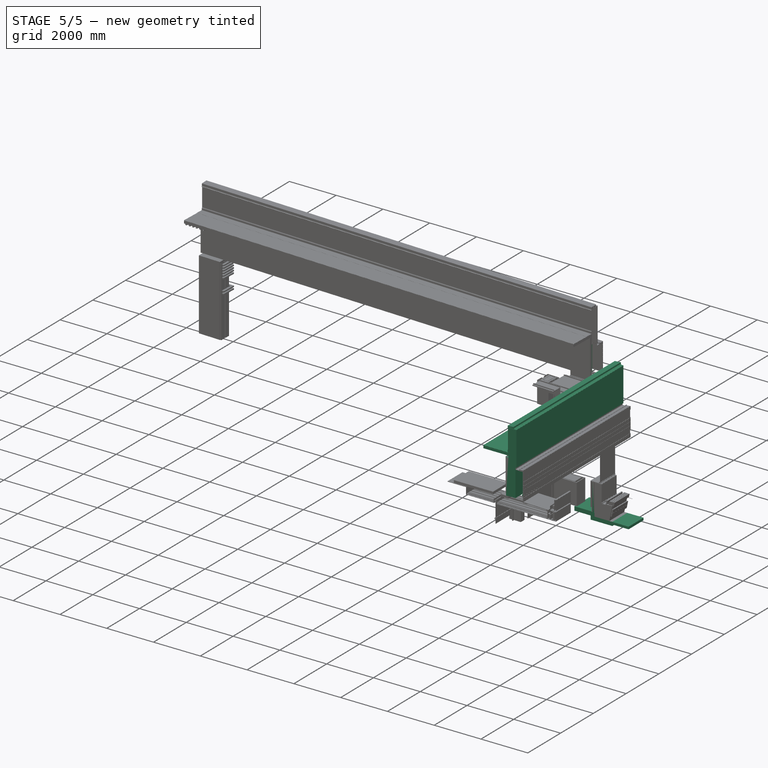
[diagram: stage 5 of 5 — iso view after this stage's code; geometry added in this stage tinted green]
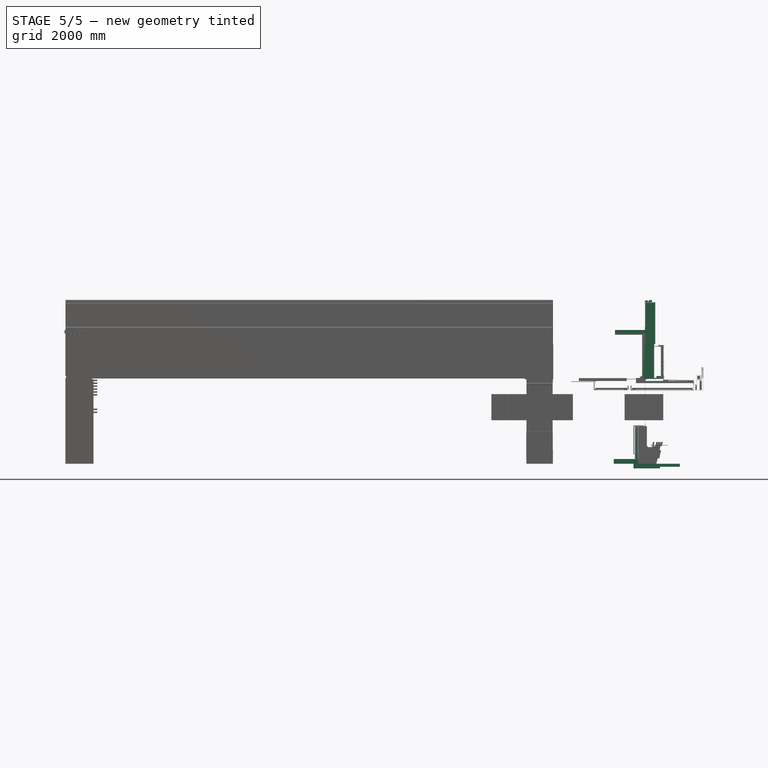
[diagram: stage 5 of 5 — front view after this stage's code; geometry added in this stage tinted green]
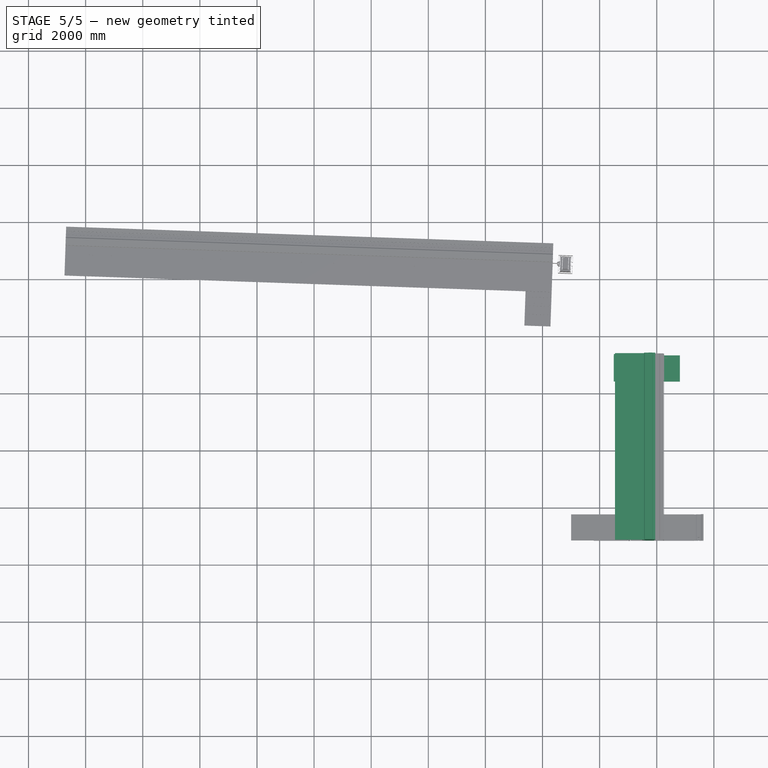
[diagram: stage 5 of 5 — top view after this stage's code; geometry added in this stage tinted green]
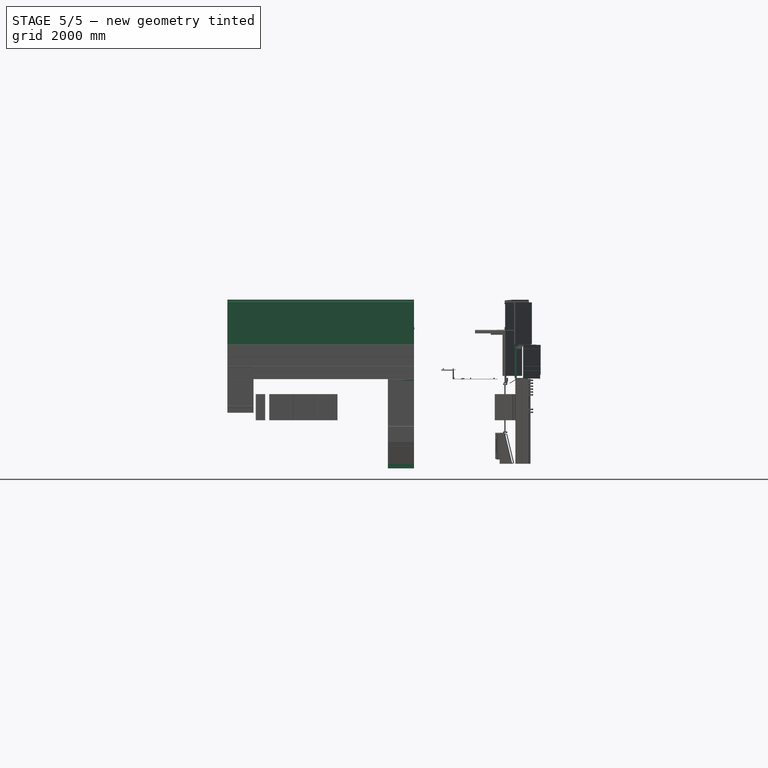
[diagram: stage 5 of 5 — right view after this stage's code; geometry added in this stage tinted green]
FEATURE [Part::Part2DObjectPython] Rectangle017  # Draft 2D object (typed FeaturePython)
  ChamferSize = 0
  Columns = 1
  FilletRadius = 0
  Height = 1485.9
  Length = 101.6
  MakeFace = true
  Placement = pos=(36840.2,2974.98,0) rot=(0,0,1;0rad)
  Rows = 1
FEATURE [Part::FeaturePython] Structure013  label="Insulation vertical"  # WARN: FeaturePython — macro-defined, semantics opaque (R4)
  Base = -> Rectangle017
  BaseMaterial = -> Material001
  FaceMaker = 0
  Height = 914.4
  HorizontalArea = 92903
  Length = 0
  MoveWithHost = false
  Nodes = (2) [(36891,3717.93,0),(36891,3717.93,914.4)]
  NodesOffset = 0
  Normal = (0,0,1)
  PerimeterLength = 2032
  Placement = pos=(32212.2,-52350.5,114.108) rot=(0.590162,0.570837,0.570837;2.07528rad)
  Role = 0
  VerticalArea = 3.01935e+06
  Width = 200
FEATURE [App::MaterialObjectPython] Material016  label="METALLIC SUPPORT FOR WINDOW FRAME"  # material (typed FeaturePython)
  Material = DiffuseColor=(0.5019607843137255, 0.5019607843137255, 0.5019607843137255); Name=METALLIC SUPPORT FOR WINDOW FRAME
FEATURE [Part::FeaturePython] Structure015  label="Metal support for window frame"  # WARN: FeaturePython — macro-defined, semantics opaque (R4)
  Base = -> Rectangle020
  BaseMaterial = -> Material016
  FaceMaker = 0
  Height = 914.4
  HorizontalArea = 29899.4
  Length = 0
  MoveWithHost = false
  Nodes = (2) [(36958.2,2984.5,0),(36958.2,2984.5,914.4)]
  NodesOffset = 0
  Normal = (0,0,1)
  PerimeterLength = 1894.2
  Placement = pos=(32212.2,-52350.5,0) rot=(0.590162,0.570837,0.570837;2.07528rad)
  Role = 0
  VerticalArea = 96225.2
  Width = 200
FEATURE [App::MaterialObjectPython] Material017  label="WINDOW FRAME"  # material (typed FeaturePython)
  Material = DiffuseColor=(0.2901960784313726, 0.30980392156862746, 0.3686274509803922); Name=WINDOW FRAME
FEATURE [App::MaterialObjectPython] Material018  label="CLEAR GLASS"  # material (typed FeaturePython)
  Material = DiffuseColor=(0.4470588235294118, 0.6, 0.6666666666666666); Name=CLEAR GLASS
FEATURE [App::MaterialObjectPython] Material021  label="RYSYSTA"  # material (typed FeaturePython)
  Material = DiffuseColor=(0.6862745098039216, 0.44313725490196076, 0.34509803921568627); Name=RYSYSTA
FEATURE [App::MaterialObjectPython] Material022  label="RYSYSTA FIXATION DEVICE"  # material (typed FeaturePython)
  Material = DiffuseColor=(0.5019607843137255, 0.5019607843137255, 0.5019607843137255); Name=RYSYSTA FIXATION DEVICE
FEATURE [Part::Part2DObjectPython] DWire007  # Draft 2D object (typed FeaturePython)
  ChamferSize = 0
  Closed = true
  End = (37593.6,3098.81,0)
  FilletRadius = 0
  Length = 444.976
  MakeFace = true
  Placement = pos=(38943,-36414.8,0) rot=(0,0,1;1.5708rad)
  Points = (34) [(39380.3,1349.41,0),(39380.3,1352.58,0),(39396.9,1352.58,0),(39396.9,1357.49,0),(39390.6,1357.49,0),(39390.6,1361.39,7.27596e-12),+28 more]
  Start = (37593.6,2965.46,0)
  Subdivisions = 0
FEATURE [Part::Part2DObjectPython] DWire008  # Draft 2D object (typed FeaturePython)
  ChamferSize = 0
  Closed = true
  End = (37585.9,2974.72,0)
  FilletRadius = 0
  Length = 155.498
  MakeFace = true
  Placement = pos=(38943,-36414.8,0) rot=(0,0,1;1.5708rad)
  Points = (8) [(39397.2,1357.06,0),(39397.2,1354.17,0),(39386.2,1354.17,0),(39386.2,1363.74,0),(39446.7,1363.74,0),(39446.7,1360.51,0),(39389.5,1360.51,0),+1 more]
  Start = (37585.9,2982.44,0)
  Subdivisions = 0
FEATURE [Part::Part2DObjectPython] DWire009  # Draft 2D object (typed FeaturePython)
  ChamferSize = 0
  Closed = true
  End = (37452.3,2959.11,0)
  FilletRadius = 0
  Length = 444.976
  MakeFace = true
  Placement = pos=(38943,-36414.8,0) rot=(0,0,1;1.5708rad)
  Points = (34) [(39373.9,1357.34,0),(39377.1,1357.34,0),(39377.1,1374.01,-7.27596e-12),(39382,1374.01,-7.27596e-12),(39382,1367.66,0),(39385.9,1367.66,0),+28 more]
  Start = (37585.7,2959.11,0)
  Subdivisions = 0
FEATURE [Part::Part2DObjectPython] DWire010  # Draft 2D object (typed FeaturePython)
  ChamferSize = 0
  Closed = true
  End = (37568.2,2967.19,-7e-12)
  FilletRadius = 0
  Length = 155.498
  MakeFace = true
  Placement = pos=(38943,-36414.8,0) rot=(0,0,1;1.5708rad)
  Points = (8) [(39379.1,1374.81,-7.27596e-12),(39379.1,1363.77,0),(39388.7,1363.77,0),(39388.7,1424.24,0),(39385.4,1424.24,0),(39385.4,1367.09,0),(39382,1367.09,0),+1 more]
  Start = (37568.2,2964.3,-7e-12)
  Subdivisions = 0
FEATURE [Part::FeaturePython] Structure047  label="Rysysta panel 001"  # Arch/BIM object (typed FeaturePython)
  Base = -> DWire007
  BaseMaterial = -> Material021
  FaceMaker = 0
  Height = 17068.8
  HorizontalArea = 811208
  IfcAttributes = IfcUID=36HsJ4yyaHvehM093rt3ko
  Length = 0
  MoveWithHost = false
  Nodes = (2) [(-3045.02,37589.7,1.02504e-13),(-3045.02,37589.7,17068.8)]
  NodesOffset = 0
  Normal = (0,0,1)
  PerimeterLength = 444.976
  Placement = pos=(16032.6,-51797,-9.16737e-07) rot=(0.590516,0.570653,0.570653;2.07476rad)
  Role = 0
  VerticalArea = 5.67183e+06
  Width = 200
FEATURE [Part::FeaturePython] Structure050  label="Rysysta starter strip 002"  # Arch/BIM object (typed FeaturePython)
  Base = -> DWire008
  BaseMaterial = -> Material022
  FaceMaker = 0
  Height = 914.4
  HorizontalArea = 8747.07
  IfcAttributes = IfcUID=36GlZGyyaHvehM093rt3ko
  Length = 0
  MoveWithHost = false
  Nodes = (2) [(-2996.96,37581.9,0),(-2996.96,37581.9,914.4)]
  NodesOffset = 0
  Normal = (0,0,1)
  PerimeterLength = 155.498
  Placement = pos=(32177.6,-52349.5,0) rot=(0.590516,0.570653,0.570653;2.07476rad)
  Role = 0
  VerticalArea = 125170
  Width = 200
FEATURE [Part::FeaturePython] Structure051  label="Rysysta panel 003"  # Arch/BIM object (typed FeaturePython)
  BaseMaterial = -> Material021
  CloneOf = -> Structure047
  FaceMaker = 0
  Height = 17068.8
  HorizontalArea = 811208
  IfcAttributes = IfcUID=36GdDqyyaHvehM093rt3ko
  Length = 0
  MoveWithHost = false
  Nodes = (2) [(-3045.02,37589.7,1.02504e-13),(-3045.02,37589.7,17068.8)]
  NodesOffset = 0
  Normal = (0,0,0)
  PerimeterLength = 444.976
  Placement = pos=(16032.6,-51797,152.4) rot=(0.590516,0.570653,0.570653;2.07476rad)
  Role = 0
  VerticalArea = 5.67183e+06
  Width = 200
FEATURE [Part::FeaturePython] Structure052  label="Rysysta panel 004"  # Arch/BIM object (typed FeaturePython)
  BaseMaterial = -> Material021
  CloneOf = -> Structure047
  FaceMaker = 0
  Height = 17068.8
  HorizontalArea = 811208
  IfcAttributes = IfcUID=36GUwGyyaHvehM093rt3ko
  Length = 0
  MoveWithHost = false
  Nodes = (2) [(-3045.02,37589.7,1.02504e-13),(-3045.02,37589.7,17068.8)]
  NodesOffset = 0
  Normal = (0,0,0)
  PerimeterLength = 444.976
  Placement = pos=(16032.6,-51797,304.8) rot=(0.590516,0.570653,0.570653;2.07476rad)
  Role = 0
  VerticalArea = 5.67183e+06
  Width = 200
FEATURE [Part::FeaturePython] Structure053  label="Rysysta panel 005"  # Arch/BIM object (typed FeaturePython)
  BaseMaterial = -> Material021
  CloneOf = -> Structure047
  FaceMaker = 0
  Height = 17068.8
  HorizontalArea = 811208
  IfcAttributes = IfcUID=36GMbSyyaHvehM093rt3ko
  Length = 0
  MoveWithHost = false
  Nodes = (2) [(-3045.02,37589.7,1.02504e-13),(-3045.02,37589.7,17068.8)]
  NodesOffset = 0
  Normal = (0,0,0)
  PerimeterLength = 444.976
  Placement = pos=(16032.6,-51797,457.2) rot=(0.590516,0.570653,0.570653;2.07476rad)
  Role = 0
  VerticalArea = 5.67183e+06
  Width = 200
FEATURE [Part::FeaturePython] Structure054  label="Rysysta panel 006"  # Arch/BIM object (typed FeaturePython)
  BaseMaterial = -> Material021
  CloneOf = -> Structure047
  FaceMaker = 0
  Height = 17068.8
  HorizontalArea = 811208
  IfcAttributes = IfcUID=36GEEcyyaHvehM093rt3ko
  Length = 0
  MoveWithHost = false
  Nodes = (2) [(-3045.02,37589.7,1.02504e-13),(-3045.02,37589.7,17068.8)]
  NodesOffset = 0
  Normal = (0,0,0)
  PerimeterLength = 444.976
  Placement = pos=(16032.6,-51797,609.6) rot=(0.590516,0.570653,0.570653;2.07476rad)
  Role = 0
  VerticalArea = 5.67183e+06
  Width = 200
FEATURE [Part::FeaturePython] Structure055  label="Rysysta panel 007"  # Arch/BIM object (typed FeaturePython)
  BaseMaterial = -> Material021
  CloneOf = -> Structure047
  FaceMaker = 0
  Height = 17068.8
  HorizontalArea = 811208
  IfcAttributes = IfcUID=36G5huyyaHvehM093rt3ko
  Length = 0
  MoveWithHost = false
  Nodes = (2) [(-3045.02,37589.7,1.02504e-13),(-3045.02,37589.7,17068.8)]
  NodesOffset = 0
  Normal = (0,0,0)
  PerimeterLength = 444.976
  Placement = pos=(16032.6,-51797,762) rot=(0.590516,0.570653,0.570653;2.07476rad)
  Role = 0
  VerticalArea = 5.67183e+06
  Width = 200
FEATURE [Part::FeaturePython] Structure056  label="Rysysta panel 008"  # Arch/BIM object (typed FeaturePython)
  BaseMaterial = -> Material021
  CloneOf = -> Structure047
  FaceMaker = 0
  Height = 17068.8
  HorizontalArea = 811208
  IfcAttributes = IfcUID=36Fgr8yyaHvehM093rt3ko
  Length = 0
  MoveWithHost = false
  Nodes = (2) [(-3045.02,37589.7,1.02504e-13),(-3045.02,37589.7,17068.8)]
  NodesOffset = 0
  Normal = (0,0,0)
  PerimeterLength = 444.976
  Placement = pos=(16032.6,-51797,914.4) rot=(0.590516,0.570653,0.570653;2.07476rad)
  Role = 0
  VerticalArea = 5.67183e+06
  Width = 200
FEATURE [Part::Feature] Cut006001  label="Cut007"
  shape: bbox 128.9 x 12.7 x 914.4 mm, 24 faces (baked)
FEATURE [Part::FeaturePython] Structure059  label="Rysysta panel 011"  # WARN: FeaturePython — macro-defined, semantics opaque (R4)
  Base = -> Cut006001
  BaseMaterial = -> Material021
  FaceMaker = 0
  Height = 2000
  HorizontalArea = 123691
  Length = 0
  MoveWithHost = false
  NodesOffset = 0
  Normal = (0,0,0)
  PerimeterLength = 351.662
  Placement = pos=(32212.8,-52330.7,0) rot=(0.590162,0.570837,0.570837;2.07528rad)
  Role = 0
  VerticalArea = 75282.5
  Width = 200
FEATURE [App::MaterialObjectPython] Material023  label="SHADE POCKET"  # material (typed FeaturePython)
  Material = DiffuseColor=(0.2901960784313726, 0.30980392156862746, 0.3686274509803922); Name=SHADE POCKET
FEATURE [App::MaterialObjectPython] Material024  label="SHADING MATERIAL"  # material (typed FeaturePython)
  Material = DiffuseColor=(1.0, 1.0, 1.0); Name=SHADING MATERIAL
FEATURE [Part::Feature] Aluminium_profile_002_Aluminium_profile_002_155954_Aluminium_profile_002_155954___Aluminium_profile_002_Aluminium_profile_002_155954_160382_footprint
  shape: bbox 127 x 2e-07 x 76.2 mm, 1 faces, 0 solids (baked)
FEATURE [Part::Extrusion] Aluminium_profile_002_Aluminium_profile_002_155954_Aluminium_profile_002_155954___Aluminium_profile_002_Aluminium_profile_002_155954_160382_body
  Base = -> Aluminium_profile_002_Aluminium_profile_002_155954_Aluminium_profile_002_155954___Aluminium_profile_002_Aluminium_profile_002_155954_160382_footprint
  Dir = (0,6533.92,0)
  DirMode = 0
  FaceMakerClass = Part::FaceMakerBullseye
  LengthFwd = 0
  LengthRev = 0
  Solid = false
  Symmetric = false
FEATURE [Part::Feature] TPO_Membrane_002_TPO_Membrane_002_156012_TPO_Membrane_002_156012___TPO_Membrane_002_TPO_Membrane_002_156012_160440_footprint
  shape: bbox 527.1 x 2e-07 x 951.7 mm, 1 faces, 0 solids (baked)
FEATURE [Part::Extrusion] TPO_Membrane_002_TPO_Membrane_002_156012_TPO_Membrane_002_156012___TPO_Membrane_002_TPO_Membrane_002_156012_160440_body
  Base = -> TPO_Membrane_002_TPO_Membrane_002_156012_TPO_Membrane_002_156012___TPO_Membrane_002_TPO_Membrane_002_156012_160440_footprint
  Dir = (0,6533.92,0)
  DirMode = 0
  FaceMakerClass = Part::FaceMakerBullseye
  LengthFwd = 0
  LengthRev = 0
  Solid = false
  Symmetric = false
FEATURE [Part::FeaturePython] TPO_Membrane_002_TPO_Membrane_002_156012_TPO_Membrane_002_156012___TPO_Membrane_002_TPO_Membrane_002_156012_160440  label="TPO Membrane 002:TPO Membrane 002:156012:TPO Membrane 002:156012 : TPO Membrane 002:TPO Membrane 002:156012:160440"  # Arch/BIM object (typed FeaturePython)
  Base = -> TPO_Membrane_002_TPO_Membrane_002_156012_TPO_Membrane_002_156012___TPO_Membrane_002_TPO_Membrane_002_156012_160440_body
  BaseMaterial = -> TPO_MEMBRANE_ROOF_MEMBRANE
  HorizontalArea = 0
  IfcAttributes = IfcUID=2bnag2qVCHvhPF093rt3ko; Reference=IfcIdentifier('TPO Membrane 002')
  MoveWithHost = false
  PerimeterLength = 0
  Placement = pos=(0,-304.8,0) rot=(0,0,1;0rad)
  Role = 0
  VerticalArea = 0
FEATURE [Part::Feature] Generic_Models_9_Generic_Models_1_182882_body
  shape: bbox 2.197 x 6.96 x 6.96 mm, 3 faces (baked)
FEATURE [Part::FeaturePython] Generic_Models_9_Generic_Models_1_182882  label="Generic Models 9:Generic Models 1:182882"  # Arch/BIM object (typed FeaturePython)
  Base = -> Generic_Models_9_Generic_Models_1_182882_body
  HorizontalArea = 0
  IfcAttributes = IfcUID=2fKpOQqVCHvhPF093rt3ko; Reference=IfcIdentifier('Generic Models 1')
  MoveWithHost = false
  PerimeterLength = 0
  Placement = pos=(0,-304.8,0) rot=(0,0,1;0rad)
  Role = 0
  VerticalArea = 0
FEATURE [Part::Feature] Generic_Models_8_Generic_Models_1_182871_body
  shape: bbox 29.43 x 2.991 x 2.991 mm, 3 faces (baked)
FEATURE [Part::FeaturePython] Generic_Models_8_Generic_Models_1_182871  label="Generic Models 8:Generic Models 1:182871"  # Arch/BIM object (typed FeaturePython)
  Base = -> Generic_Models_8_Generic_Models_1_182871_body
  HorizontalArea = 0
  IfcAttributes = IfcUID=2fGJtAqVCHvhPF093rt3ko; Reference=IfcIdentifier('Generic Models 1')
  MoveWithHost = false
  PerimeterLength = 0
  Placement = pos=(0,-304.8,0) rot=(0,0,1;0rad)
  Role = 0
  VerticalArea = 0
FEATURE [Part::Feature] TPO_Membrane_002_TPO_Membrane_002_1_TPO_Membrane_002_1___TPO_Membrane_002_TPO_Membrane_002_156012_181723_footprint
  shape: bbox 1059 x 2e-07 x 99.33 mm, 1 faces, 0 solids (baked)
FEATURE [Part::Extrusion] TPO_Membrane_002_TPO_Membrane_002_1_TPO_Membrane_002_1___TPO_Membrane_002_TPO_Membrane_002_156012_181723_body
  Base = -> TPO_Membrane_002_TPO_Membrane_002_1_TPO_Membrane_002_1___TPO_Membrane_002_TPO_Membrane_002_156012_181723_footprint
  Dir = (0,6533.92,0)
  DirMode = 0
  FaceMakerClass = Part::FaceMakerBullseye
  LengthFwd = 0
  LengthRev = 0
  Solid = false
  Symmetric = false
FEATURE [Part::FeaturePython] TPO_Membrane_002_TPO_Membrane_002_1_TPO_Membrane_002_1___TPO_Membrane_002_TPO_Membrane_002_156012_181723  label="TPO Membrane 002:TPO Membrane 002:1:TPO Membrane 002:1 : TPO Membrane 002:TPO Membrane 002:156012:181723"  # Arch/BIM object (typed FeaturePython)
  Base = -> TPO_Membrane_002_TPO_Membrane_002_1_TPO_Membrane_002_1___TPO_Membrane_002_TPO_Membrane_002_156012_181723_body
  BaseMaterial = -> TPO_MEMBRANE_ROOF_MEMBRANE
  HorizontalArea = 0
  IfcAttributes = IfcUID=2fFmKyqVCHvhPF093rt3ko; Reference=IfcIdentifier('TPO Membrane 002')
  MoveWithHost = false
  PerimeterLength = 0
  Placement = pos=(0,-304.8,0) rot=(0,0,1;0rad)
  Role = 0
  VerticalArea = 0
FEATURE [Part::Feature] Generic_Models_6_Generic_Models_1_179842_body
  shape: bbox 2.197 x 6.96 x 6.96 mm, 3 faces (baked)
FEATURE [Part::FeaturePython] Generic_Models_6_Generic_Models_1_179842  label="Generic Models 6:Generic Models 1:179842"  # Arch/BIM object (typed FeaturePython)
  Base = -> Generic_Models_6_Generic_Models_1_179842_body
  HorizontalArea = 0
  IfcAttributes = IfcUID=2f9qKeqVCHvhPF093rt3ko; Reference=IfcIdentifier('Generic Models 1')
  MoveWithHost = false
  PerimeterLength = 0
  Placement = pos=(0,-304.8,0) rot=(0,0,1;0rad)
  Role = 0
  VerticalArea = 0
FEATURE [Part::Feature] Generic_Models_5_Generic_Models_1_179831_body
  shape: bbox 29.43 x 2.991 x 2.991 mm, 3 faces (baked)
FEATURE [Part::FeaturePython] Generic_Models_5_Generic_Models_1_179831  label="Generic Models 5:Generic Models 1:179831"  # Arch/BIM object (typed FeaturePython)
  Base = -> Generic_Models_5_Generic_Models_1_179831_body
  HorizontalArea = 0
  IfcAttributes = IfcUID=2f5AXQqVCHvhPF093rt3ko; Reference=IfcIdentifier('Generic Models 1')
  MoveWithHost = false
  PerimeterLength = 0
  Placement = pos=(0,-304.8,0) rot=(0,0,1;0rad)
  Role = 0
  VerticalArea = 0
FEATURE [Part::Feature] Generic_Models_4_Generic_Models_1_179816_body
  shape: bbox 2.197 x 6.96 x 6.96 mm, 3 faces (baked)
FEATURE [Part::FeaturePython] Generic_Models_4_Generic_Models_1_179816  label="Generic Models 4:Generic Models 1:179816"  # Arch/BIM object (typed FeaturePython)
  Base = -> Generic_Models_4_Generic_Models_1_179816_body
  HorizontalArea = 0
  IfcAttributes = IfcUID=2f0QQcqVCHvhPF093rt3ko; Reference=IfcIdentifier('Generic Models 1')
  MoveWithHost = false
  PerimeterLength = 0
  Placement = pos=(0,-304.8,0) rot=(0,0,1;0rad)
  Role = 0
  VerticalArea = 0
FEATURE [Part::Feature] Generic_Models_3_Generic_Models_1_179805_body
  shape: bbox 29.43 x 2.991 x 2.991 mm, 3 faces (baked)
FEATURE [Part::FeaturePython] Generic_Models_3_Generic_Models_1_179805  label="Generic Models 3:Generic Models 1:179805"  # Arch/BIM object (typed FeaturePython)
  Base = -> Generic_Models_3_Generic_Models_1_179805_body
  HorizontalArea = 0
  IfcAttributes = IfcUID=2extdCqVCHvhPF093rt3ko; Reference=IfcIdentifier('Generic Models 1')
  MoveWithHost = false
  PerimeterLength = 0
  Placement = pos=(0,-304.8,0) rot=(0,0,1;0rad)
  Role = 0
  VerticalArea = 0
FEATURE [Part::Feature] Generic_Models_2_Generic_Models_1_179683_body
  shape: bbox 2.197 x 6.96 x 6.96 mm, 3 faces (baked)
FEATURE [Part::FeaturePython] Generic_Models_2_Generic_Models_1_179683  label="Generic Models 2:Generic Models 1:179683"  # Arch/BIM object (typed FeaturePython)
  Base = -> Generic_Models_2_Generic_Models_1_179683_body
  HorizontalArea = 0
  IfcAttributes = IfcUID=2et3p2qVCHvhPF093rt3ko; Reference=IfcIdentifier('Generic Models 1')
  MoveWithHost = false
  PerimeterLength = 0
  Placement = pos=(0,-304.8,0) rot=(0,0,1;0rad)
  Role = 0
  VerticalArea = 0
FEATURE [Part::Feature] Generic_Models_1_Generic_Models_1_179624_body
  shape: bbox 29.43 x 2.991 x 2.991 mm, 3 faces (baked)
FEATURE [Part::FeaturePython] Generic_Models_1_Generic_Models_1_179624  label="Generic Models 1:Generic Models 1:179624"  # Arch/BIM object (typed FeaturePython)
  Base = -> Generic_Models_1_Generic_Models_1_179624_body
  HorizontalArea = 0
  IfcAttributes = IfcUID=2brNz8qVCHvhPF093rt3ko; Reference=IfcIdentifier('Generic Models 1')
  MoveWithHost = false
  PerimeterLength = 0
  Placement = pos=(0,-304.8,0) rot=(0,0,1;0rad)
  Role = 0
  VerticalArea = 0
FEATURE [Part::Feature] Wood_block_002_Wood_block_002_3_Wood_block_002_3___Wood_block_002_Wood_block_002_155927_179338_footprint
  shape: bbox 88.9 x 2e-07 x 32.07 mm, 1 faces, 0 solids (baked)
FEATURE [Part::Extrusion] Wood_block_002_Wood_block_002_3_Wood_block_002_3___Wood_block_002_Wood_block_002_155927_179338_body
  Base = -> Wood_block_002_Wood_block_002_3_Wood_block_002_3___Wood_block_002_Wood_block_002_155927_179338_footprint
  Dir = (0,6533.92,0)
  DirMode = 0
  FaceMakerClass = Part::FaceMakerBullseye
  LengthFwd = 0
  LengthRev = 0
  Solid = false
  Symmetric = false
FEATURE [Part::FeaturePython] Wood_block_002_Wood_block_002_3_Wood_block_002_3___Wood_block_002_Wood_block_002_155927_179338  label="Wood block 002:Wood block 002:3:Wood block 002:3 : Wood block 002:Wood block 002:155927:179338"  # Arch/BIM object (typed FeaturePython)
  Base = -> Wood_block_002_Wood_block_002_3_Wood_block_002_3___Wood_block_002_Wood_block_002_155927_179338_body
  BaseMaterial = -> PRESSURE_TREATED_WOOD_BLOCKING___SIZE_AS_NECESSARY
  HorizontalArea = 0
  IfcAttributes = IfcUID=2br8RsqVCHvhPF093rt3ko; Reference=IfcIdentifier('Wood block 002')
  MoveWithHost = false
  PerimeterLength = 0
  Placement = pos=(0,-304.8,0) rot=(0,0,1;0rad)
  Role = 0
  VerticalArea = 0
FEATURE [Part::Feature] Wood_block_002_Wood_block_002_2_Wood_block_002_2___Wood_block_002_Wood_block_002_155927_179311_footprint
  shape: bbox 90.36 x 2e-07 x 43.66 mm, 1 faces, 0 solids (baked)
FEATURE [Part::Extrusion] Wood_block_002_Wood_block_002_2_Wood_block_002_2___Wood_block_002_Wood_block_002_155927_179311_body
  Base = -> Wood_block_002_Wood_block_002_2_Wood_block_002_2___Wood_block_002_Wood_block_002_155927_179311_footprint
  Dir = (0,6533.92,0)
  DirMode = 0
  FaceMakerClass = Part::FaceMakerBullseye
  LengthFwd = 0
  LengthRev = 0
  Solid = false
  Symmetric = false
FEATURE [Part::FeaturePython] Wood_block_002_Wood_block_002_2_Wood_block_002_2___Wood_block_002_Wood_block_002_155927_179311  label="Wood block 002:Wood block 002:2:Wood block 002:2 : Wood block 002:Wood block 002:155927:179311"  # Arch/BIM object (typed FeaturePython)
  Base = -> Wood_block_002_Wood_block_002_2_Wood_block_002_2___Wood_block_002_Wood_block_002_155927_179311_body
  BaseMaterial = -> PRESSURE_TREATED_WOOD_BLOCKING___SIZE_AS_NECESSARY
  HorizontalArea = 0
  IfcAttributes = IfcUID=2bquxWqVCHvhPF093rt3ko; Reference=IfcIdentifier('Wood block 002')
  MoveWithHost = false
  PerimeterLength = 0
  Placement = pos=(0,-304.8,0) rot=(0,0,1;0rad)
  Role = 0
  VerticalArea = 0
FEATURE [Part::Feature] Aluminium_profile_002_Aluminium_profile_002_2_Aluminium_profile_002_2___Aluminium_profile_002_Aluminium_profile_002_155954_178867_footprint
  shape: bbox 120 x 2e-07 x 76.2 mm, 1 faces, 0 solids (baked)
FEATURE [Part::Extrusion] Aluminium_profile_002_Aluminium_profile_002_2_Aluminium_profile_002_2___Aluminium_profile_002_Aluminium_profile_002_155954_178867_body
  Base = -> Aluminium_profile_002_Aluminium_profile_002_2_Aluminium_profile_002_2___Aluminium_profile_002_Aluminium_profile_002_155954_178867_footprint
  Dir = (0,6533.92,0)
  DirMode = 0
  FaceMakerClass = Part::FaceMakerBullseye
  LengthFwd = 0
  LengthRev = 0
  Solid = false
  Symmetric = false
FEATURE [Part::Feature] Cement_bond_coat_002_Cement_bond_coat_002_8_Cement_bond_coat_002_8___Cement_bond_coat_002_Cement_bond_coat_002_155998_177174_footprint
  shape: bbox 301.3 x 2e-07 x 149.9 mm, 1 faces, 0 solids (baked)
FEATURE [Part::Extrusion] Cement_bond_coat_002_Cement_bond_coat_002_8_Cement_bond_coat_002_8___Cement_bond_coat_002_Cement_bond_coat_002_155998_177174_body
  Base = -> Cement_bond_coat_002_Cement_bond_coat_002_8_Cement_bond_coat_002_8___Cement_bond_coat_002_Cement_bond_coat_002_155998_177174_footprint
  Dir = (0,6533.92,0)
  DirMode = 0
  FaceMakerClass = Part::FaceMakerBullseye
  LengthFwd = 0
  LengthRev = 0
  Solid = false
  Symmetric = false
FEATURE [Part::FeaturePython] Cement_bond_coat_002_Cement_bond_coat_002_8_Cement_bond_coat_002_8___Cement_bond_coat_002_Cement_bond_coat_002_155998_177174  label="Cement bond coat 002:Cement bond coat 002:8:Cement bond coat 002:8 : Cement bond coat 002:Cement bond coat 002:155998:177174"  # Arch/BIM object (typed FeaturePython)
  Base = -> Cement_bond_coat_002_Cement_bond_coat_002_8_Cement_bond_coat_002_8___Cement_bond_coat_002_Cement_bond_coat_002_155998_177174_body
  BaseMaterial = -> SHEET_METAL_COPING
  HorizontalArea = 0
  IfcAttributes = IfcUID=2bq0aAqVCHvhPF093rt3ko; Reference=IfcIdentifier('Cement bond coat 002')
  MoveWithHost = false
  PerimeterLength = 0
  Placement = pos=(0,-304.8,0) rot=(0,0,1;0rad)
  Role = 0
  VerticalArea = 0
FEATURE [Part::Feature] Cement_bond_coat_002_Cement_bond_coat_002_7_Cement_bond_coat_002_7___Cement_bond_coat_002_Cement_bond_coat_002_155998_175099_footprint
  shape: bbox 278.6 x 2e-07 x 134.5 mm, 1 faces, 0 solids (baked)
FEATURE [Part::Extrusion] Cement_bond_coat_002_Cement_bond_coat_002_7_Cement_bond_coat_002_7___Cement_bond_coat_002_Cement_bond_coat_002_155998_175099_body
  Base = -> Cement_bond_coat_002_Cement_bond_coat_002_7_Cement_bond_coat_002_7___Cement_bond_coat_002_Cement_bond_coat_002_155998_175099_footprint
  Dir = (0,6533.92,0)
  DirMode = 0
  FaceMakerClass = Part::FaceMakerBullseye
  LengthFwd = 0
  LengthRev = 0
  Solid = false
  Symmetric = false
FEATURE [Part::FeaturePython] Cement_bond_coat_002_Cement_bond_coat_002_7_Cement_bond_coat_002_7___Cement_bond_coat_002_Cement_bond_coat_002_155998_175099  label="Cement bond coat 002:Cement bond coat 002:7:Cement bond coat 002:7 : Cement bond coat 002:Cement bond coat 002:155998:175099"  # Arch/BIM object (typed FeaturePython)
  Base = -> Cement_bond_coat_002_Cement_bond_coat_002_7_Cement_bond_coat_002_7___Cement_bond_coat_002_Cement_bond_coat_002_155998_175099_body
  BaseMaterial = -> SHEET_METAL_COPING
  HorizontalArea = 0
  IfcAttributes = IfcUID=2bpiG0qVCHvhPF093rt3ko; Reference=IfcIdentifier('Cement bond coat 002')
  MoveWithHost = false
  PerimeterLength = 0
  Placement = pos=(0,-304.8,0) rot=(0,0,1;0rad)
  Role = 0
  VerticalArea = 0
FEATURE [Part::Feature] Cement_bond_coat_002_Cement_bond_coat_002_1_Cement_bond_coat_002_1___Cement_bond_coat_002_Cement_bond_coat_002_155998_172036_footprint
  shape: bbox 249.8 x 2e-07 x 1478 mm, 1 faces, 0 solids (baked)
FEATURE [Part::Extrusion] Cement_bond_coat_002_Cement_bond_coat_002_1_Cement_bond_coat_002_1___Cement_bond_coat_002_Cement_bond_coat_002_155998_172036_body
  Base = -> Cement_bond_coat_002_Cement_bond_coat_002_1_Cement_bond_coat_002_1___Cement_bond_coat_002_Cement_bond_coat_002_155998_172036_footprint
  Dir = (0,6533.92,0)
  DirMode = 0
  FaceMakerClass = Part::FaceMakerBullseye
  LengthFwd = 0
  LengthRev = 0
  Solid = false
  Symmetric = false
FEATURE [Part::Feature] Annotation009
  Placement = pos=(40087.2,1122.15,2.942e-09) rot=(0.707107,-0.707107,0;3.14159rad)
  shape: bbox 1769 x 1028 x 2e-07 mm, 0 faces, 0 solids (baked)
FEATURE [Part::Feature] Annotation010
  Placement = pos=(40087.2,1122.15,2.942e-09) rot=(0.707107,-0.707107,0;3.14159rad)
  shape: bbox 641.5 x 581.1 x 2e-07 mm, 0 faces, 0 solids (baked)
FEATURE [Part::Feature] Annotation011
  Placement = pos=(40087.2,1122.15,2.942e-09) rot=(0.707107,-0.707107,0;3.14159rad)
  shape: bbox 684 x 631.4 x 2e-07 mm, 0 faces, 0 solids (baked)
FEATURE [Part::Feature] Annotation012
  Placement = pos=(40087.2,1122.15,2.942e-09) rot=(0.707107,-0.707107,0;3.14159rad)
  shape: bbox 868.2 x 858.6 x 2e-07 mm, 0 faces, 0 solids (baked)
FEATURE [Part::Feature] Annotation013
  Placement = pos=(40087.2,1122.15,2.942e-09) rot=(0.707107,-0.707107,0;3.14159rad)
  shape: bbox 754.4 x 764.1 x 2e-07 mm, 0 faces, 0 solids (baked)
FEATURE [Part::Feature] Annotation014
  Placement = pos=(40087.2,1122.15,2.942e-09) rot=(0.707107,-0.707107,0;3.14159rad)
  shape: bbox 261.8 x 377.6 x 2e-07 mm, 0 faces, 0 solids (baked)
FEATURE [Part::Feature] Annotation015
  Placement = pos=(40087.2,1122.15,2.942e-09) rot=(0.707107,-0.707107,0;3.14159rad)
  shape: bbox 691.3 x 663.1 x 2e-07 mm, 0 faces, 0 solids (baked)
FEATURE [Part::Feature] Annotation016
  Placement = pos=(40087.2,1122.15,2.942e-09) rot=(0.707107,-0.707107,0;3.14159rad)
  shape: bbox 28.84 x 23.39 x 2e-07 mm, 0 faces, 0 solids (baked)
FEATURE [Part::Feature] Annotation017
  Placement = pos=(40087.2,1122.15,2.942e-09) rot=(0.707107,-0.707107,0;3.14159rad)
  shape: bbox 25.67 x 18.72 x 2e-07 mm, 0 faces, 0 solids (baked)
FEATURE [App::MaterialObjectPython] EXISTING_RIGID_INSULATION_AT_ROOF__REPAIR_REPLACE_AS_NECESSARY_____SLOPE_TOWARD_ROOF_DRAINS_  label="EXISTING RIGID INSULATION AT ROOF (REPAIR/REPLACE AS NECESSARY) - (SLOPE TOWARD ROOF DRAINS)"  # material (typed FeaturePython)
  Material = DiffuseColor=(0.803921568627451, 0.737254901960784, 0.415686274509804); Name=EXISTING RIGID INSULATION AT ROOF (REPAIR/REPLACE AS NECESSARY) - (SLOPE TOWARD ROOF DRAINS)
FEATURE [App::MaterialObjectPython] _X5X1_4__ALUMINUM_ANGLE  label="3X5X1/4" ALUMINUM ANGLE"  # material (typed FeaturePython)
  Material = DiffuseColor=(0.470588235294118, 0.470588235294118, 0.470588235294118); Name=3X5X1/4" ALUMINUM ANGLE
FEATURE [Part::FeaturePython] Aluminium_profile_002_Aluminium_profile_002_155954_Aluminium_profile_002_155954___Aluminium_profile_002_Aluminium_profile_002_155954_160382  label="Aluminium profile 002:Aluminium profile 002:155954:Aluminium profile 002:155954 : Aluminium profile 002:Aluminium profile 002:155954:160382"  # Arch/BIM object (typed FeaturePython)
  Base = -> Aluminium_profile_002_Aluminium_profile_002_155954_Aluminium_profile_002_155954___Aluminium_profile_002_Aluminium_profile_002_155954_160382_body
  BaseMaterial = -> _X5X1_4__ALUMINUM_ANGLE
  HorizontalArea = 0
  IfcAttributes = IfcUID=2bmzk0qVCHvhPF093rt3ko; Reference=IfcIdentifier('Aluminium profile 002')
  MoveWithHost = false
  PerimeterLength = 0
  Placement = pos=(0,-304.8,0) rot=(0,0,1;0rad)
  Role = 0
  VerticalArea = 0
FEATURE [Part::FeaturePython] Aluminium_profile_002_Aluminium_profile_002_2_Aluminium_profile_002_2___Aluminium_profile_002_Aluminium_profile_002_155954_178867  label="Aluminium profile 002:Aluminium profile 002:2:Aluminium profile 002:2 : Aluminium profile 002:Aluminium profile 002:155954:178867"  # Arch/BIM object (typed FeaturePython)
  Base = -> Aluminium_profile_002_Aluminium_profile_002_2_Aluminium_profile_002_2___Aluminium_profile_002_Aluminium_profile_002_155954_178867_body
  BaseMaterial = -> _X5X1_4__ALUMINUM_ANGLE
  HorizontalArea = 0
  IfcAttributes = IfcUID=2bqfksqVCHvhPF093rt3ko; Reference=IfcIdentifier('Aluminium profile 002')
  MoveWithHost = false
  PerimeterLength = 0
  Placement = pos=(0,-304.8,0) rot=(0,0,1;0rad)
  Role = 0
  VerticalArea = 0
FEATURE [App::MaterialObjectPython] METAL_STUDS  label="METAL STUDS"  # material (typed FeaturePython)
  Material = DiffuseColor=(0.3568627450980392, 0.39215686274509803, 0.4392156862745098); Name=METAL STUDS
FEATURE [Part::FeaturePython] Structure021  label="Metal stud 001"  # Arch/BIM object (typed FeaturePython)
  Base = -> UPE100
  BaseMaterial = -> METAL_STUDS
  FaceMaker = 0
  Height = 152.4
  HorizontalArea = 10927.1
  IfcAttributes = IfcUID=36EXRoyyaHvehM093rt3ko
  Length = 0
  MoveWithHost = false
  Nodes = (2) [(7.60309e-15,-5.46312,0),(7.60309e-15,-5.46312,152.4)]
  NodesOffset = 0
  Normal = (0,0,0)
  PerimeterLength = 457.2
  Placement = pos=(34073,-15062.3,3048) rot=(-0.570653,0.590516,0.570653;2.07476rad)
  Profile = UPE100
  Role = 0
  VerticalArea = 24919.6
  Width = 200
FEATURE [Part::FeaturePython] Structure022  label="Metal stud 002"  # Arch/BIM object (typed FeaturePython)
  Base = -> UPE100
  BaseMaterial = -> METAL_STUDS
  FaceMaker = 0
  Height = 1092.2
  HorizontalArea = 846.9
  IfcAttributes = IfcUID=36F8EmyyaHvehM093rt3ko
  Length = 0
  MoveWithHost = false
  Nodes = (2) [(7.60309e-15,-5.46312,0),(7.60309e-15,-5.46312,1092.2)]
  NodesOffset = 0
  Normal = (0,0,0)
  PerimeterLength = 295.8
  Placement = pos=(34079.5,-14871.9,3009.9) rot=(0,0,1;1.53659rad)
  Profile = UPE100
  Role = 0
  VerticalArea = 323073
  Width = 200
FEATURE [Part::FeaturePython] Structure025  label="Metal stud 005"  # Arch/BIM object (typed FeaturePython)
  BaseMaterial = -> METAL_STUDS
  CloneOf = -> Structure022
  FaceMaker = 0
  Height = 1092.2
  HorizontalArea = 846.9
  IfcAttributes = IfcUID=36FPnQyyaHvehM093rt3ko
  Length = 0
  MoveWithHost = false
  Nodes = (2) [(7.60309e-15,-5.46312,0),(7.60309e-15,-5.46312,1092.2)]
  NodesOffset = 0
  Normal = (0,0,0)
  PerimeterLength = 295.8
  Placement = pos=(34071.7,-15100.4,3009.9) rot=(0,0,1;1.53659rad)
  Role = 0
  VerticalArea = 323073
  Width = 200
FEATURE [Part::FeaturePython] Structure026  label="Metal stud 006"  # Arch/BIM object (typed FeaturePython)
  BaseMaterial = -> METAL_STUDS
  CloneOf = -> Structure021
  FaceMaker = 0
  Height = 152.4
  HorizontalArea = 10927.1
  IfcAttributes = IfcUID=36FYKwyyaHvehM093rt3ko
  Length = 0
  MoveWithHost = false
  Nodes = (2) [(7.60309e-15,-5.46312,0),(7.60309e-15,-5.46312,152.4)]
  NodesOffset = 0
  Normal = (0,0,0)
  PerimeterLength = 457.2
  Placement = pos=(34073,-15062.3,4064) rot=(-0.570653,0.590516,0.570653;2.07476rad)
  Role = 0
  VerticalArea = 24919.6
  Width = 200
FEATURE [App::MaterialObjectPython] IfcSurfaceStyle__179001  label="IFCSURFACESTYLE #1110"  # material (typed FeaturePython)
  Material = DiffuseColor=(0.501960784313725, 0.501960784313725, 0.501960784313725); Name=IFCSURFACESTYLE #1110
FEATURE [App::MaterialObjectPython] LIGHT_GAUGE_METAL_STUDS_AND_OR_FURRING  label="LIGHT GAUGE METAL STUDS AND/OR FURRING"  # material (typed FeaturePython)
  Material = DiffuseColor=(0.72156862745098, 0.72156862745098, 0.72156862745098); Name=LIGHT GAUGE METAL STUDS AND/OR FURRING
FEATURE [Part::FeaturePython] Structure019  label="Stud 001"  # WARN: FeaturePython — macro-defined, semantics opaque (R4)
  Base = -> UPE120
  BaseMaterial = -> LIGHT_GAUGE_METAL_STUDS_AND_OR_FURRING
  FaceMaker = 0
  Height = 25.4
  HorizontalArea = 16512.1
  Length = 577.85
  MoveWithHost = false
  Nodes = (2) [(4.66135e-15,-3.00789,0),(4.66135e-15,-3.00789,577.85)]
  NodesOffset = 0
  Normal = (0,0,0)
  PerimeterLength = 1225.55
  Placement = pos=(34042.4,-15416.4,2992.44) rot=(-0.570837,0.590162,0.570837;2.07528rad)
  Profile = UPE120
  Role = 0
  VerticalArea = 40745.9
  Width = 200
FEATURE [App::MaterialObjectPython] IMPERMEABLE_WRB_MEMBRANE__ANSI_118_10_OR_BETTER____COMPATIBLE_W__MORTAR_BED  label="IMPERMEABLE WRB MEMBRANE (ANSI 118.10 OR BETTER) - COMPATIBLE W/ MORTAR BED"  # material (typed FeaturePython)
  Material = DiffuseColor=(0.0, 0.0, 0.0); Name=IMPERMEABLE WRB MEMBRANE (ANSI 118.10 OR BETTER) - COMPATIBLE W/ MORTAR BED
FEATURE [Part::FeaturePython] Cement_bond_coat_002_Cement_bond_coat_002_1_Cement_bond_coat_002_1___Cement_bond_coat_002_Cement_bond_coat_002_155998_172036  label="Cement bond coat 002:Cement bond coat 002:1:Cement bond coat 002:1 : Cement bond coat 002:Cement bond coat 002:155998:172036"  # Arch/BIM object (typed FeaturePython)
  Base = -> Cement_bond_coat_002_Cement_bond_coat_002_1_Cement_bond_coat_002_1___Cement_bond_coat_002_Cement_bond_coat_002_155998_172036_body
  BaseMaterial = -> IMPERMEABLE_WRB_MEMBRANE__ANSI_118_10_OR_BETTER____COMPATIBLE_W__MORTAR_BED
  HorizontalArea = 0
  IfcAttributes = IfcUID=2boFzmqVCHvhPF093rt3ko; Reference=IfcIdentifier('Cement bond coat 002')
  MoveWithHost = false
  PerimeterLength = 0
  Placement = pos=(0,-304.8,0) rot=(0,0,1;0rad)
  Role = 0
  VerticalArea = 0
FEATURE [App::MaterialObjectPython] METAL_LATH____DISCONTINUOUS_AT_TILE_MOVEMENT_JOINTS_  label="METAL LATH - (DISCONTINUOUS AT TILE MOVEMENT JOINTS)"  # material (typed FeaturePython)
  Material = DiffuseColor=(0.470588235294118, 0.470588235294118, 0.470588235294118); Name=METAL LATH - (DISCONTINUOUS AT TILE MOVEMENT JOINTS)
FEATURE [App::MaterialObjectPython] SCRATCH_COAT__MATCH_MORTAR_BED_SPECS_  label="SCRATCH COAT (MATCH MORTAR BED SPECS)"  # material (typed FeaturePython)
  Material = DiffuseColor=(0.470588235294118, 0.470588235294118, 0.470588235294118); Name=SCRATCH COAT (MATCH MORTAR BED SPECS)
FEATURE [App::MaterialObjectPython] __4__TO_1_1_2__THICK_LATEX_PORTLAND_CEMENT_MORTAR_BED__ANSI_118_4_OR_BETTER_____DISCONTINUOUS_AT_TILE_MOVEMENT_JOINT_  label="3/4" TO 1 1/2" THICK LATEX-PORTLAND CEMENT MORTAR BED (ANSI 118.4 OR BETTER) - (DISCONTINUOUS AT TILE MOVEMENT JOINT)"  # material (typed FeaturePython)
  Material = DiffuseColor=(0.917647058823529, 0.917647058823529, 0.917647058823529),+1 more (map truncated)
FEATURE [App::MaterialObjectPython] _CT_01__PORCELAIN_WALL_TILE__W__CEMENTITIOUS_GROUT_ANSI_A118_6_OR_BETTER_____FLEXIBLE_SEALANT_MOVEMENT_JOINTS_EVERY_10FT_  label="(CT-01) PORCELAIN WALL TILE (W/ CEMENTITIOUS GROUT ANSI A118.6 OR BETTER) - (FLEXIBLE SEALANT MOVEMENT JOINTS EVERY 10FT)"  # material (typed FeaturePython)
  Material = DiffuseColor=(0.862745098039216, 0.862745098039216, 0.870588235294118),+1 more (map truncated)
FEATURE [App::MaterialObjectPython] CEMENTITIOUS_BOND_COAT__ANSI_A118_4_OR_BETTER______DISCONTINUOUS_AT_TILE_MOVEMENT_JOINTS_  label="CEMENTITIOUS BOND COAT (ANSI A118.4 OR BETTER) -  (DISCONTINUOUS AT TILE MOVEMENT JOINTS)"  # material (typed FeaturePython)
  Material = DiffuseColor=(0.0, 0.0, 0.0); Name=CEMENTITIOUS BOND COAT (ANSI A118.4 OR BETTER) -  (DISCONTINUOUS AT TILE MOVEMENT JOINTS)
FEATURE [Part::Part2DObjectPython] Rectangle038  # Draft 2D object (typed FeaturePython)
  ChamferSize = 0
  Columns = 1
  FilletRadius = 0
  Height = -158.75
  Length = 927.273
  MakeFace = true
  Placement = pos=(19055.6,1e-12,0) rot=(0,0,1;0rad)
  Rows = 1
FEATURE [Part::Part2DObjectPython] Rectangle039  # Draft 2D object (typed FeaturePython)
  ChamferSize = 0
  Columns = 1
  FilletRadius = 0
  Height = -101.6
  Length = 696.365
  MakeFace = true
  Placement = pos=(18359.2,1e-12,0) rot=(0,0,1;0rad)
  Rows = 1
FEATURE [Part::Part2DObjectPython] Rectangle040  # Draft 2D object (typed FeaturePython)
  ChamferSize = 0
  Columns = 1
  FilletRadius = 0
  Height = -152.4
  Length = 858.828
  MakeFace = true
  Placement = pos=(19577.4,152.4,0) rot=(0,0,1;0rad)
  Rows = 1
FEATURE [Part::Part2DObjectPython] DWire012  # Draft 2D object (typed FeaturePython)
  ChamferSize = 0
  Closed = true
  End = (19590.2,152.4,46.3511)
  FilletRadius = 0
  Length = 341.272
  MakeFace = true
  Placement = pos=(-2.4724e-08,152.4,1129.11) rot=(-1,0,0;1.5708rad)
  Points = (8) [(19577.5,1082.76,-7.10543e-13),(19577.5,1129.11,0),(19669.6,1129.11,0),(19669.6,1082.76,0),(19653.7,1082.76,0),(19653.7,1114.97,0),+2 more]
  Start = (19577.5,152.4,46.3511)
  Subdivisions = 0
FEATURE [Part::Part2DObjectPython] Rectangle044  # Draft 2D object (typed FeaturePython)
  ChamferSize = 0
  Columns = 1
  FilletRadius = 0
  Height = 17.2078
  Length = 735.297
  MakeFace = true
  Placement = pos=(19700.9,152.4,0) rot=(0,0,1;0rad)
  Rows = 1
FEATURE [Part::FeaturePython] Structure084  label="Foundation block"  # Arch/BIM object (typed FeaturePython)
  Base = -> Rectangle038
  BaseMaterial = -> _EXISTING_CAST_IN_PLACE_CONCRETE
  FaceMaker = 0
  Height = 914.4
  HorizontalArea = 847899
  IfcAttributes = IfcUID=3BsGfkyyaHvehM093rt3ko
  Length = 0
  MoveWithHost = false
  Nodes = (2) [(19519.2,-79.375,0),(19519.2,-79.375,914.4)]
  NodesOffset = 0
  Normal = (0,0,1)
  PerimeterLength = 3683.35
  Placement = pos=(35021,4002.26,2e-09) rot=(-0.564184,0.583822,0.583822;4.16893rad)
  Role = 0
  VerticalArea = 584731
  Width = 200
FEATURE [Part::FeaturePython] Structure095  label="Sidewalk pavement"  # Arch/BIM object (typed FeaturePython)
  Base = -> Rectangle039
  BaseMaterial = -> _EXISTING_CAST_IN_PLACE_CONCRETE
  FaceMaker = 0
  Height = 914.4
  HorizontalArea = 636757
  IfcAttributes = IfcUID=3BsUvcyyaHvehM093rt3ko
  Length = 0
  MoveWithHost = false
  Nodes = (2) [(18707.4,-50.8,0),(18707.4,-50.8,914.4)]
  NodesOffset = 0
  Normal = (0,0,1)
  PerimeterLength = 3221.53
  Placement = pos=(35021,4002.26,2e-09) rot=(-0.564184,0.583822,0.583822;4.16893rad)
  Role = 0
  VerticalArea = 327308
  Width = 200
FEATURE [Part::FeaturePython] Structure096  label="Floor structure"  # Arch/BIM object (typed FeaturePython)
  Base = -> Rectangle040
  BaseMaterial = -> _EXISTING_CAST_IN_PLACE_CONCRETE
  FaceMaker = 0
  Height = 914.4
  HorizontalArea = 785313
  IfcAttributes = IfcUID=3BsiHiyyaHvehM093rt3ko
  Length = 0
  MoveWithHost = false
  Nodes = (2) [(20006.8,76.2,0),(20006.8,76.2,914.4)]
  NodesOffset = 0
  Normal = (0,0,1)
  PerimeterLength = 3546.46
  Placement = pos=(35017.6,3904.98,-2e-12) rot=(-0.564184,0.583822,0.583822;4.16893rad)
  Role = 0
  VerticalArea = 540480
  Width = 200
FEATURE [App::MaterialObjectPython] Material025  label="ALPOLIC 4MM PANEL"  # material (typed FeaturePython)
  Material = DiffuseColor=(0.5019607843137255, 0.5019607843137255, 0.5019607843137255); Name=ALPOLIC 4MM PANEL
FEATURE [App::MaterialObjectPython] Material026  label="ALPOLIC SUPPORT PIECE"  # material (typed FeaturePython)
  Material = DiffuseColor=(0.17647058823529413, 0.19215686274509805, 0.23137254901960785); Name=ALPOLIC SUPPORT PIECE
FEATURE [App::MaterialObjectPython] Material027  label="METALLIC PROFILE"  # material (typed FeaturePython)
  Material = DiffuseColor=(0.5019607843137255, 0.5019607843137255, 0.5019607843137255); Name=METALLIC PROFILE
FEATURE [App::MaterialObjectPython] Material028  label="FLOOR COVERING"  # material (typed FeaturePython)
  Material = DiffuseColor=(0.5019607843137255, 0.5019607843137255, 0.5019607843137255); Name=FLOOR COVERING
FEATURE [Part::FeaturePython] Structure118  label="Floor covering material"  # Arch/BIM object (typed FeaturePython)
  Base = -> Rectangle044
  BaseMaterial = -> Material028
  FaceMaker = 0
  Height = 914.4
  HorizontalArea = 672356
  IfcAttributes = IfcUID=3BsvpAyyaHvehM093rt3ko
  Length = 0
  MoveWithHost = false
  Nodes = (2) [(20068.6,161.004,0),(20068.6,161.004,914.4)]
  NodesOffset = 0
  Normal = (0,0,1)
  PerimeterLength = 3299.39
  Placement = pos=(35018.1,3918.86,2.002e-09) rot=(-0.564184,0.583822,0.583822;4.16893rad)
  Role = 0
  VerticalArea = 56775.4
  Width = 200
FEATURE [Part::FeaturePython] Structure123  label="Foundation block002"  # WARN: FeaturePython — macro-defined, semantics opaque (R4)
  CloneOf = -> Structure084
  FaceMaker = 0
  Height = 914.4
  HorizontalArea = 847899
  Length = 0
  MoveWithHost = false
  Nodes = (2) [(19519.2,-79.375,0),(19519.2,-79.375,914.4)]
  NodesOffset = 0
  Normal = (0,0,0)
  PerimeterLength = 3683.35
  Placement = pos=(17466.9,-3e-12,0) rot=(0,0,1;0rad)
  Role = 0
  VerticalArea = 584731
  Width = 200
FEATURE [Part::FeaturePython] Structure124  label="Floor structure002"  # WARN: FeaturePython — macro-defined, semantics opaque (R4)
  CloneOf = -> Structure096
  FaceMaker = 0
  Height = 914.4
  HorizontalArea = 785313
  Length = 0
  MoveWithHost = false
  Nodes = (2) [(20006.8,76.2,0),(20006.8,76.2,914.4)]
  NodesOffset = 0
  Normal = (0,0,0)
  PerimeterLength = 3546.46
  Placement = pos=(16251.6,1e-12,0) rot=(0,0,1;0rad)
  Role = 0
  VerticalArea = 540480
  Width = 200
FEATURE [Part::FeaturePython] Structure125  label="Floor covering material002"  # WARN: FeaturePython — macro-defined, semantics opaque (R4)
  CloneOf = -> Structure118
  FaceMaker = 0
  Height = 914.4
  HorizontalArea = 672356
  Length = 0
  MoveWithHost = false
  Nodes = (2) [(20068.6,161.004,0),(20068.6,161.004,914.4)]
  NodesOffset = 0
  Normal = (0,0,0)
  PerimeterLength = 3299.39
  Placement = pos=(16128,1e-12,0) rot=(0,0,1;0rad)
  Role = 0
  VerticalArea = 56775.4
  Width = 200
FEATURE [Part::FeaturePython] Structure131  label="Sidewalk pavement002"  # WARN: FeaturePython — macro-defined, semantics opaque (R4)
  CloneOf = -> Structure095
  FaceMaker = 0
  Height = 914.4
  HorizontalArea = 636757
  Length = 0
  MoveWithHost = false
  Nodes = (2) [(18707.4,-50.8,0),(18707.4,-50.8,914.4)]
  NodesOffset = 0
  Normal = (0,0,0)
  PerimeterLength = 3221.53
  Placement = pos=(19090.6,1e-12,0) rot=(0,0,1;0rad)
  Role = 0
  VerticalArea = 327308
  Width = 200
FEATURE [Part::FeaturePython] Structure155  label="Insulation002"  # WARN: FeaturePython — macro-defined, semantics opaque (R4)
  Base = -> Rectangle046
  BaseMaterial = -> Material001
  FaceMaker = 0
  Height = 914.4
  HorizontalArea = 74193.4
  Length = 0
  MoveWithHost = false
  Nodes = (2) [(36636.4,736.6,0),(36636.4,736.6,914.4)]
  NodesOffset = 0
  Normal = (0,0,1)
  PerimeterLength = 2463.8
  Role = 0
  VerticalArea = 2.2529e+06
  Width = 200
FEATURE [Part::FeaturePython] Structure156  label="Metal stud004"  # WARN: FeaturePython — macro-defined, semantics opaque (R4)
  Base = -> Clone2D
  BaseMaterial = -> METAL_STUDS
  FaceMaker = 0
  Height = 1168.4
  HorizontalArea = 107580
  Length = 0
  MoveWithHost = false
  Nodes = (2) [(36639.4,960.042,-1129.11),(36639.4,960.042,39.2896)]
  NodesOffset = 0
  Normal = (0,0,1)
  PerimeterLength = 0
  Role = 0
  VerticalArea = 188027
  Width = 200
FEATURE [Part::FeaturePython] Structure157  label="Metal stud005"  # WARN: FeaturePython — macro-defined, semantics opaque (R4)
  BaseMaterial = -> METAL_STUDS
  CloneOf = -> Structure156
  FaceMaker = 0
  Height = 1168.4
  HorizontalArea = 107580
  Length = 0
  MoveWithHost = false
  Nodes = (2) [(36639.4,960.042,-1129.11),(36639.4,960.042,39.2896)]
  NodesOffset = 0
  Normal = (0,0,0)
  PerimeterLength = 0
  Placement = pos=(0,0,609.6) rot=(0,0,1;0rad)
  Role = 0
  VerticalArea = 188027
  Width = 200
FEATURE [Part::FeaturePython] Structure158  label="Gypsum panel 001"  # WARN: FeaturePython — macro-defined, semantics opaque (R4)
  Base = -> Rectangle045
  BaseMaterial = -> Material015
  FaceMaker = 0
  Height = 914.4
  HorizontalArea = 29218.8
  Length = 0
  MoveWithHost = false
  Nodes = (2) [(36576.8,736.6,0),(36576.8,736.6,914.4)]
  NodesOffset = 0
  Normal = (0,0,1)
  PerimeterLength = 2386.82
  Role = 0
  VerticalArea = 2.1825e+06
  Width = 200
FEATURE [Part::FeaturePython] Structure162  label="Window frame 082"  # Arch/BIM object (typed FeaturePython)
  Base = -> Polyline062
  BaseMaterial = -> Material017
  FaceMaker = 0
  Height = 914.4
  HorizontalArea = 29032.2
  IfcAttributes = IfcUID=3BqYd4yyaHvehM093rt3ko
  Length = 0
  MoveWithHost = false
  Nodes = (2) [(36935.8,1369.99,0),(36935.8,1369.99,914.4)]
  NodesOffset = 0
  Normal = (0,0,1)
  PerimeterLength = 1892.3
  Placement = pos=(35617.4,21431.4,-258.016) rot=(-0.564184,0.583822,0.583822;4.16893rad)
  Role = 0
  VerticalArea = 30040.3
  Width = 200
FEATURE [Part::FeaturePython] Structure166  label="Window frame 084"  # Arch/BIM object (typed FeaturePython)
  Base = -> Polyline072
  BaseMaterial = -> Material017
  FaceMaker = 0
  Height = 914.4
  HorizontalArea = 96306.6
  IfcAttributes = IfcUID=3Br3xayyaHvehM093rt3ko
  Length = 0
  MoveWithHost = false
  Nodes = (2) [(36935.3,1330.31,0),(36935.3,1330.31,914.4)]
  NodesOffset = 0
  Normal = (0,0,1)
  PerimeterLength = 2039.44
  Placement = pos=(35617.4,21431.4,-258.016) rot=(-0.564184,0.583822,0.583822;4.16893rad)
  Role = 0
  VerticalArea = 12924.6
  Width = 200
FEATURE [Part::FeaturePython] Structure169  label="Window frame 078"  # Arch/BIM object (typed FeaturePython)
  Base = -> Polyline070
  BaseMaterial = -> Material017
  FaceMaker = 0
  Height = 914.4
  HorizontalArea = 11612.9
  IfcAttributes = IfcUID=3BrQ04yyaHvehM093rt3ko
  Length = 0
  MoveWithHost = false
  Nodes = (2) [(36935.9,1381.1,0),(36935.9,1381.1,914.4)]
  NodesOffset = 0
  Normal = (0,0,1)
  PerimeterLength = 1854.2
  Placement = pos=(35617.4,21431.4,-258.016) rot=(-0.564184,0.583822,0.583822;4.16893rad)
  Role = 0
  VerticalArea = 11774.2
  Width = 200
FEATURE [Part::FeaturePython] Structure172  label="Sealant 008"  # Arch/BIM object (typed FeaturePython)
  Base = -> Sketch001
  BaseMaterial = -> SEALANT___BACKER_ROD__IF_NECESSARY
  FaceMaker = 0
  Height = 914.4
  HorizontalArea = 5139.93
  IfcAttributes = IfcUID=3BrwryyyaHvehM093rt3ko
  Length = 0
  MoveWithHost = false
  Nodes = (2) [(36876.6,1333.36,0),(36876.6,1333.36,914.4)]
  NodesOffset = 0
  Normal = (0,0,1)
  PerimeterLength = 1840.04
  Placement = pos=(34401.2,-14107.7,37936.1) rot=(-0.707055,0.012095,0.707055;3.1174rad)
  Role = 0
  VerticalArea = 10322
  Width = 200
FEATURE [Part::FeaturePython] Structure173  label="Sealant 009"  # Arch/BIM object (typed FeaturePython)
  Base = -> Face006
  BaseMaterial = -> SEALANT___BACKER_ROD__IF_NECESSARY
  FaceMaker = 0
  Height = 914.4
  HorizontalArea = 2.16332
  IfcAttributes = IfcUID=3Bs5mEyyaHvehM093rt3ko
  Length = 0
  MoveWithHost = false
  Nodes = (2) [(36997.7,1340.52,0),(36997.7,1340.52,914.4)]
  NodesOffset = 0
  Normal = (0,0,1)
  PerimeterLength = 11.3373
  Placement = pos=(35617.4,21431.4,-250.991) rot=(-0.564184,0.583822,0.583822;4.16893rad)
  Role = 0
  VerticalArea = 7467.91
  Width = 200
FEATURE [Part::FeaturePython] Structure175  label="Insulation vertical002"  # WARN: FeaturePython — macro-defined, semantics opaque (R4)
  BaseMaterial = -> Material001
  CloneOf = -> Structure013
  FaceMaker = 0
  Height = 914.4
  HorizontalArea = 92903
  Length = 0
  MoveWithHost = false
  Nodes = (2) [(36891,3717.93,0),(36891,3717.93,914.4)]
  NodesOffset = 0
  Normal = (0,0,0)
  PerimeterLength = 2032
  Role = 0
  VerticalArea = 3.01935e+06
  Width = 200
FEATURE [Part::FeaturePython] Structure176  label="Inner ceiling002"  # WARN: FeaturePython — macro-defined, semantics opaque (R4)
  BaseMaterial = -> Material015
  CloneOf = -> Structure014
  FaceMaker = 0
  Height = 914.4
  HorizontalArea = 743224
  Length = 0
  MoveWithHost = false
  Nodes = (2) [(36279.9,2967.04,0),(36279.9,2967.04,914.4)]
  NodesOffset = 0
  Normal = (0,0,0)
  PerimeterLength = 3454.4
  Role = 0
  VerticalArea = 54838.6
  Width = 200
FEATURE [Part::FeaturePython] Structure177  label="Metal support for window frame002"  # WARN: FeaturePython — macro-defined, semantics opaque (R4)
  BaseMaterial = -> Material016
  CloneOf = -> Structure015
  FaceMaker = 0
  Height = 914.4
  HorizontalArea = 29899.4
  Length = 0
  MoveWithHost = false
  Nodes = (2) [(36958.2,2984.5,0),(36958.2,2984.5,914.4)]
  NodesOffset = 0
  Normal = (0,0,0)
  PerimeterLength = 1894.2
  Role = 0
  VerticalArea = 96225.2
  Width = 200
FEATURE [Part::FeaturePython] Structure178  label="Stud 005"  # WARN: FeaturePython — macro-defined, semantics opaque (R4)
  BaseMaterial = -> LIGHT_GAUGE_METAL_STUDS_AND_OR_FURRING
  CloneOf = -> Structure019
  FaceMaker = 0
  Height = 25.4
  HorizontalArea = 16512.1
  Length = 577.85
  MoveWithHost = false
  Nodes = (2) [(4.66135e-15,-3.00789,0),(4.66135e-15,-3.00789,577.85)]
  NodesOffset = 0
  Normal = (0,0,0)
  PerimeterLength = 1225.55
  Placement = pos=(36974.5,2992.44,100) rot=(0.57735,-0.57735,0.57735;4.18879rad)
  Role = 0
  VerticalArea = 40745.9
  Width = 200
FEATURE [Part::FeaturePython] Structure179  label="Stud 006"  # WARN: FeaturePython — macro-defined, semantics opaque (R4)
  BaseMaterial = -> LIGHT_GAUGE_METAL_STUDS_AND_OR_FURRING
  CloneOf = -> Structure019
  FaceMaker = 0
  Height = 25.4
  HorizontalArea = 16512.1
  Length = 577.85
  MoveWithHost = false
  Nodes = (2) [(4.66135e-15,-3.00789,0),(4.66135e-15,-3.00789,577.85)]
  NodesOffset = 0
  Normal = (0,0,0)
  PerimeterLength = 1225.55
  Placement = pos=(36974.5,2992.44,600) rot=(0.57735,-0.57735,0.57735;4.18879rad)
  Role = 0
  VerticalArea = 40745.9
  Width = 200
FEATURE [Part::FeaturePython] Structure192  label="Rysysta starter strip 011"  # WARN: FeaturePython — macro-defined, semantics opaque (R4)
  BaseMaterial = -> Material022
  CloneOf = -> Structure048
  FaceMaker = 0
  Height = 914.4
  HorizontalArea = 62346.8
  Length = 0
  MoveWithHost = false
  Nodes = (2) [(-2971.22,37553.7,-1.68493e-11),(-2971.22,37553.7,914.4)]
  NodesOffset = 0
  Normal = (0,0,0)
  PerimeterLength = 155.498
  Placement = pos=(-20.9102,0,0) rot=(0,0,1;0rad)
  Role = 0
  VerticalArea = 17970.8
  Width = 200
FEATURE [Part::FeaturePython] Structure193  label="Rysysta panel 037"  # WARN: FeaturePython — macro-defined, semantics opaque (R4)
  BaseMaterial = -> Material021
  CloneOf = -> Structure049
  FaceMaker = 0
  Height = 914.4
  HorizontalArea = 184586
  Length = 0
  MoveWithHost = false
  Nodes = (2) [(-2963.03,37506.1,-3.47296e-11),(-2963.03,37506.1,914.4)]
  NodesOffset = 0
  Normal = (0,0,0)
  PerimeterLength = 444.976
  Placement = pos=(-20.9102,0,0) rot=(0,0,1;0rad)
  Role = 0
  VerticalArea = 81392.8
  Width = 200
FEATURE [Part::FeaturePython] Structure194  label="Rysysta starter strip 012"  # WARN: FeaturePython — macro-defined, semantics opaque (R4)
  BaseMaterial = -> Material022
  CloneOf = -> Structure050
  FaceMaker = 0
  Height = 914.4
  HorizontalArea = 8747.07
  Length = 0
  MoveWithHost = false
  Nodes = (2) [(-2996.96,37581.9,0),(-2996.96,37581.9,914.4)]
  NodesOffset = 0
  Normal = (0,0,0)
  PerimeterLength = 155.498
  Placement = pos=(-20.9102,0,0) rot=(0,0,1;0rad)
  Role = 0
  VerticalArea = 125170
  Width = 200
FEATURE [Part::FeaturePython] Structure201  label="Rysysta panel 044"  # WARN: FeaturePython — macro-defined, semantics opaque (R4)
  BaseMaterial = -> Material021
  CloneOf = -> Structure049
  FaceMaker = 0
  Height = 914.4
  HorizontalArea = 184586
  Length = 0
  MoveWithHost = false
  Nodes = (2) [(-2963.03,37506.1,-3.47296e-11),(-2963.03,37506.1,914.4)]
  NodesOffset = 0
  Normal = (0,0,0)
  PerimeterLength = 444.976
  Placement = pos=(-173.31,0,0) rot=(0,0,1;0rad)
  Role = 0
  VerticalArea = 81392.8
  Width = 200
FEATURE [Part::FeaturePython] Structure202  label="Rysysta panel 045"  # WARN: FeaturePython — macro-defined, semantics opaque (R4)
  BaseMaterial = -> Material021
  CloneOf = -> Structure049
  FaceMaker = 0
  Height = 914.4
  HorizontalArea = 184586
  Length = 0
  MoveWithHost = false
  Nodes = (2) [(-2963.03,37506.1,-3.47296e-11),(-2963.03,37506.1,914.4)]
  NodesOffset = 0
  Normal = (0,0,0)
  PerimeterLength = 444.976
  Placement = pos=(-325.71,0,0) rot=(0,0,1;0rad)
  Role = 0
  VerticalArea = 81392.8
  Width = 200
FEATURE [Part::FeaturePython] Structure203  label="Rysysta panel 046"  # WARN: FeaturePython — macro-defined, semantics opaque (R4)
  BaseMaterial = -> Material021
  CloneOf = -> Structure059
  FaceMaker = 0
  Height = 2000
  HorizontalArea = 123691
  Length = 0
  MoveWithHost = false
  Nodes = (2) [(1.55431e-15,2.27374e-15,0),(1.55431e-15,2.27374e-15,2000)]
  NodesOffset = 0
  Normal = (0,0,0)
  PerimeterLength = 351.662
  Role = 0
  VerticalArea = 75282.5
  Width = 200
FEATURE [Part::FeaturePython] Structure205  label="Rysysta starter strip 013"  # WARN: FeaturePython — macro-defined, semantics opaque (R4)
  BaseMaterial = -> Material022
  CloneOf = -> Structure050
  FaceMaker = 0
  Height = 914.4
  HorizontalArea = 8747.07
  Length = 0
  MoveWithHost = false
  Nodes = (2) [(-2996.96,37581.9,0),(-2996.96,37581.9,914.4)]
  NodesOffset = 0
  Normal = (0,0,0)
  PerimeterLength = 155.498
  Placement = pos=(34014.7,40553.1,0) rot=(0,0,-1;1.5708rad)
  Role = 0
  VerticalArea = 125170
  Width = 200
FEATURE [Part::FeaturePython] Structure232  label="Window frame part 094"  # WARN: FeaturePython — macro-defined, semantics opaque (R4)
  Base = -> Polyline080
  BaseMaterial = -> Material017
  FaceMaker = 0
  Height = 914.4
  HorizontalArea = 617.42
  Length = 0
  MoveWithHost = false
  Nodes = (2) [(36936.5,2955.93,0),(36936.5,2955.93,914.4)]
  NodesOffset = 0
  Normal = (0,0,1)
  PerimeterLength = 207.163
  Role = 0
  VerticalArea = 189430
  Width = 200
FEATURE [Part::FeaturePython] Component123  label="Foundation block003"  # Arch/BIM object (typed FeaturePython)
  CloneOf = -> Structure123
  HorizontalArea = 847899
  IfcAttributes = IfcUID=2fdbC_qVCHvhPF093rt3ko
  MoveWithHost = false
  PerimeterLength = 3683.35
  Placement = pos=(18130.4,-18662.4,-3e-12) rot=(1,0,0;1.5708rad)
  Role = 0
  VerticalArea = 584731
FEATURE [Part::FeaturePython] Component124  label="Floor structure003"  # Arch/BIM object (typed FeaturePython)
  CloneOf = -> Structure124
  HorizontalArea = 785313
  IfcAttributes = IfcUID=2fdjqYqVCHvhPF093rt3ko
  MoveWithHost = false
  PerimeterLength = 3546.46
  Placement = pos=(16915,-18662.4,1e-12) rot=(1,0,0;1.5708rad)
  Role = 0
  VerticalArea = 540480
FEATURE [Part::FeaturePython] Component125  label="Floor covering material003"  # Arch/BIM object (typed FeaturePython)
  CloneOf = -> Structure125
  HorizontalArea = 672356
  IfcAttributes = IfcUID=2fdricqVCHvhPF093rt3ko
  MoveWithHost = false
  PerimeterLength = 3299.39
  Placement = pos=(16791.5,-18662.4,1e-12) rot=(1,0,0;1.5708rad)
  Role = 0
  VerticalArea = 56775.4
FEATURE [Part::FeaturePython] Component126  label="Sidewalk pavement003"  # Arch/BIM object (typed FeaturePython)
  CloneOf = -> Structure131
  HorizontalArea = 636757
  IfcAttributes = IfcUID=2fdzhEqVCHvhPF093rt3ko
  MoveWithHost = false
  PerimeterLength = 3221.53
  Placement = pos=(19754,-18662.4,1e-12) rot=(1,0,0;1.5708rad)
  Role = 0
  VerticalArea = 327308
FEATURE [Part::FeaturePython] Component165  label="Insulation003"  # Arch/BIM object (typed FeaturePython)
  BaseMaterial = -> Material001
  CloneOf = -> Structure155
  HorizontalArea = 74193.4
  IfcAttributes = IfcUID=2jiqdeqVCHvhPF093rt3ko
  MoveWithHost = false
  PerimeterLength = 2463.8
  Placement = pos=(663.456,-18662.4,0) rot=(1,0,0;1.5708rad)
  Role = 0
  VerticalArea = 2.2529e+06
FEATURE [Part::FeaturePython] Component167  label="Metal stud007"  # Arch/BIM object (typed FeaturePython)
  BaseMaterial = -> METAL_STUDS
  CloneOf = -> Structure157
  HorizontalArea = 107580
  IfcAttributes = IfcUID=2jjH9QqVCHvhPF093rt3ko
  MoveWithHost = false
  PerimeterLength = 0
  Placement = pos=(663.456,-19272,1168.4) rot=(1,0,0;1.5708rad)
  Role = 0
  VerticalArea = 188027
FEATURE [Part::FeaturePython] Component168  label="Gypsum panel 002"  # Arch/BIM object (typed FeaturePython)
  BaseMaterial = -> Material015
  CloneOf = -> Structure158
  HorizontalArea = 29218.8
  IfcAttributes = IfcUID=2jjPuKqVCHvhPF093rt3ko
  MoveWithHost = false
  PerimeterLength = 2386.82
  Placement = pos=(663.456,-18662.4,0) rot=(1,0,0;1.5708rad)
  Role = 0
  VerticalArea = 2.1825e+06
FEATURE [Part::FeaturePython] Component172  label="Window frame 089"  # Arch/BIM object (typed FeaturePython)
  BaseMaterial = -> Material017
  CloneOf = -> Structure162
  HorizontalArea = 29032.2
  IfcAttributes = IfcUID=2jkpIMqVCHvhPF093rt3ko
  MoveWithHost = false
  PerimeterLength = 1892.3
  Placement = pos=(663.456,-18662.4,0) rot=(1,0,0;1.5708rad)
  Role = 0
  VerticalArea = 30040.3
FEATURE [Part::FeaturePython] Component176  label="Window frame 092"  # Arch/BIM object (typed FeaturePython)
  BaseMaterial = -> Material017
  CloneOf = -> Structure166
  HorizontalArea = 96306.6
  IfcAttributes = IfcUID=2jnLT6qVCHvhPF093rt3ko
  MoveWithHost = false
  PerimeterLength = 2039.44
  Placement = pos=(663.456,-18662.4,0) rot=(1,0,0;1.5708rad)
  Role = 0
  VerticalArea = 12924.6
FEATURE [Part::FeaturePython] Component179  label="Window frame 094"  # Arch/BIM object (typed FeaturePython)
  BaseMaterial = -> Material017
  CloneOf = -> Structure169
  HorizontalArea = 11612.9
  IfcAttributes = IfcUID=2jqni6qVCHvhPF093rt3ko
  MoveWithHost = false
  PerimeterLength = 1854.2
  Placement = pos=(663.456,-18662.4,0) rot=(1,0,0;1.5708rad)
  Role = 0
  VerticalArea = 11774.2
FEATURE [Part::FeaturePython] Component182  label="Sealant 010"  # Arch/BIM object (typed FeaturePython)
  BaseMaterial = -> SEALANT___BACKER_ROD__IF_NECESSARY
  CloneOf = -> Structure172
  HorizontalArea = 5139.93
  IfcAttributes = IfcUID=2jsRZQqVCHvhPF093rt3ko
  MoveWithHost = false
  PerimeterLength = 1840.04
  Placement = pos=(36321.8,-19576.8,-35548.7) rot=(-0.57735,-0.57735,-0.57735;2.0944rad)
  Role = 0
  VerticalArea = 10322
FEATURE [Part::FeaturePython] Component183  label="Sealant 011"  # Arch/BIM object (typed FeaturePython)
  BaseMaterial = -> SEALANT___BACKER_ROD__IF_NECESSARY
  CloneOf = -> Structure173
  HorizontalArea = 2.16332
  IfcAttributes = IfcUID=2jsl06qVCHvhPF093rt3ko
  MoveWithHost = false
  PerimeterLength = 11.3373
  Placement = pos=(74535.5,-19576.8,7.62598) rot=(0,0.707107,0.707107;3.14159rad)
  Role = 0
  VerticalArea = 7467.91
FEATURE [Part::FeaturePython] Component186  label="Rysysta starter strip 018"  # Arch/BIM object (typed FeaturePython)
  BaseMaterial = -> Material022
  CloneOf = -> Structure192
  HorizontalArea = 62346.8
  IfcAttributes = IfcUID=2jtLVEqVCHvhPF093rt3ko
  MoveWithHost = false
  PerimeterLength = 155.498
  Placement = pos=(663.722,-18662.4,0) rot=(1,0,0;1.5708rad)
  Role = 0
  VerticalArea = 17970.8
FEATURE [Part::FeaturePython] Component188  label="Rysysta panel 056"  # Arch/BIM object (typed FeaturePython)
  BaseMaterial = -> Material021
  CloneOf = -> Structure203
  HorizontalArea = 123691
  IfcAttributes = IfcUID=2jtbSeqVCHvhPF093rt3ko
  MoveWithHost = false
  PerimeterLength = 351.662
  Placement = pos=(683.812,-18662.4,0) rot=(1,0,0;1.5708rad)
  Role = 0
  VerticalArea = 75282.5
FEATURE [Part::FeaturePython] Component190  label="Rysysta starter strip 019"  # Arch/BIM object (typed FeaturePython)
  BaseMaterial = -> Material022
  CloneOf = -> Structure205
  HorizontalArea = 8747.07
  IfcAttributes = IfcUID=2jtrbcqVCHvhPF093rt3ko
  MoveWithHost = false
  PerimeterLength = 155.498
  Placement = pos=(34678.1,-18662.4,40553.1) rot=(0.57735,0.57735,-0.57735;2.0944rad)
  Role = 0
  VerticalArea = 125170
FEATURE [Part::FeaturePython] Component191  label="Metal support for window frame003"  # Arch/BIM object (typed FeaturePython)
  BaseMaterial = -> Material016
  CloneOf = -> Structure177
  HorizontalArea = 29899.4
  IfcAttributes = IfcUID=2jtzvyqVCHvhPF093rt3ko
  MoveWithHost = false
  PerimeterLength = 1894.2
  Placement = pos=(663.456,-18662.4,0) rot=(1,0,0;1.5708rad)
  Role = 0
  VerticalArea = 96225.2
FEATURE [Part::FeaturePython] Component194  label="Rysysta starter strip 020"  # Arch/BIM object (typed FeaturePython)
  BaseMaterial = -> Material022
  CloneOf = -> Structure194
  HorizontalArea = 8747.07
  IfcAttributes = IfcUID=2juLjsqVCHvhPF093rt3ko
  MoveWithHost = false
  PerimeterLength = 155.498
  Placement = pos=(664.747,-18662.4,0) rot=(1,0,0;1.5708rad)
  Role = 0
  VerticalArea = 125170
FEATURE [Part::FeaturePython] Component195  label="Insulation vertical003"  # Arch/BIM object (typed FeaturePython)
  BaseMaterial = -> Material001
  CloneOf = -> Structure175
  HorizontalArea = 92903
  IfcAttributes = IfcUID=2juTiUqVCHvhPF093rt3ko
  MoveWithHost = false
  PerimeterLength = 2032
  Placement = pos=(663.456,-18662.4,114.108) rot=(1,0,0;1.5708rad)
  Role = 0
  VerticalArea = 3.01935e+06
FEATURE [Part::FeaturePython] Component197  label="Rysysta panel 060"  # Arch/BIM object (typed FeaturePython)
  BaseMaterial = -> Material021
  CloneOf = -> Structure193
  HorizontalArea = 184586
  IfcAttributes = IfcUID=2jukFEqVCHvhPF093rt3ko
  MoveWithHost = false
  PerimeterLength = 444.976
  Placement = pos=(662.901,-18662.4,0) rot=(1,0,0;1.5708rad)
  Role = 0
  VerticalArea = 81392.8
FEATURE [Part::FeaturePython] Component201  label="Stud 007"  # Arch/BIM object (typed FeaturePython)
  BaseMaterial = -> LIGHT_GAUGE_METAL_STUDS_AND_OR_FURRING
  CloneOf = -> Structure179
  HorizontalArea = 16512.1
  IfcAttributes = IfcUID=2jvFWSqVCHvhPF093rt3ko
  MoveWithHost = false
  PerimeterLength = 1225.55
  Placement = pos=(37638,-19262.4,2992.44) rot=(0,1,0;1.5708rad)
  Role = 0
  VerticalArea = 40745.9
FEATURE [Part::FeaturePython] Component202  label="Stud 008"  # Arch/BIM object (typed FeaturePython)
  BaseMaterial = -> LIGHT_GAUGE_METAL_STUDS_AND_OR_FURRING
  CloneOf = -> Structure178
  HorizontalArea = 16512.1
  IfcAttributes = IfcUID=2jvNjcqVCHvhPF093rt3ko
  MoveWithHost = false
  PerimeterLength = 1225.55
  Placement = pos=(37638,-18762.4,2992.44) rot=(0,1,0;1.5708rad)
  Role = 0
  VerticalArea = 40745.9
FEATURE [Part::FeaturePython] Component207  label="Rysysta panel 064"  # Arch/BIM object (typed FeaturePython)
  BaseMaterial = -> Material021
  CloneOf = -> Structure201
  HorizontalArea = 184586
  IfcAttributes = IfcUID=2jw0hAqVCHvhPF093rt3ko
  MoveWithHost = false
  PerimeterLength = 444.976
  Placement = pos=(510.501,-18662.4,0) rot=(1,0,0;1.5708rad)
  Role = 0
  VerticalArea = 81392.8
FEATURE [Part::FeaturePython] Component208  label="Rysysta panel 065"  # Arch/BIM object (typed FeaturePython)
  BaseMaterial = -> Material021
  CloneOf = -> Structure202
  HorizontalArea = 184586
  IfcAttributes = IfcUID=2jw8feqVCHvhPF093rt3ko
  MoveWithHost = false
  PerimeterLength = 444.976
  Placement = pos=(358.101,-18662.4,0) rot=(1,0,0;1.5708rad)
  Role = 0
  VerticalArea = 81392.8
FEATURE [Part::FeaturePython] Component215  label="Inner ceiling003"  # Arch/BIM object (typed FeaturePython)
  BaseMaterial = -> Material015
  CloneOf = -> Structure176
  HorizontalArea = 743224
  IfcAttributes = IfcUID=2j_J_iqVCHvhPF093rt3ko
  MoveWithHost = false
  PerimeterLength = 3454.4
  Placement = pos=(626.839,-18662.4,0) rot=(1,0,0;1.5708rad)
  Role = 0
  VerticalArea = 54838.6
FEATURE [Part::FeaturePython] Component246  label="Window frame part 103"  # Arch/BIM object (typed FeaturePython)
  BaseMaterial = -> Material017
  CloneOf = -> Structure232
  HorizontalArea = 617.42
  IfcAttributes = IfcUID=2o2QYsqVCHvhPF093rt3ko
  MoveWithHost = false
  PerimeterLength = 207.163
  Placement = pos=(663.456,-18662.4,0) rot=(1,0,0;1.5708rad)
  Role = 0
  VerticalArea = 189430
FEATURE [Part::FeaturePython] Structure244  label="Rysysta starter strip 023"  # WARN: FeaturePython — macro-defined, semantics opaque (R4)
  CloneOf = -> Structure050
  FaceMaker = 0
  Height = 914.4
  HorizontalArea = 8747.07
  Length = 0
  MoveWithHost = false
  Nodes = (2) [(-2996.96,37581.9,0),(-2996.96,37581.9,914.4)]
  NodesOffset = 0
  Normal = (0,0,0)
  PerimeterLength = 155.498
  Placement = pos=(-5844.79,150.794,0) rot=(0,0,1;0rad)
  Role = 0
  VerticalArea = 125170
  Width = 200
FEATURE [Part::FeaturePython] Structure245  label="Insulation vertical004"  # WARN: FeaturePython — macro-defined, semantics opaque (R4)
  CloneOf = -> Structure013
  FaceMaker = 0
  Height = 914.4
  HorizontalArea = 92903
  Length = 0
  MoveWithHost = false
  Nodes = (2) [(36891,3717.93,0),(36891,3717.93,914.4)]
  NodesOffset = 0
  Normal = (0,0,0)
  PerimeterLength = 2032
  Placement = pos=(-5823.88,15.8749,0) rot=(0,0,1;0rad)
  Role = 0
  VerticalArea = 3.01935e+06
  Width = 200
FEATURE [Part::FeaturePython] Structure260  label="Metal stud 036"  # WARN: FeaturePython — macro-defined, semantics opaque (R4)
  CloneOf = -> Structure021
  FaceMaker = 0
  Height = 152.4
  HorizontalArea = 10927.1
  Length = 0
  MoveWithHost = false
  Nodes = (2) [(7.60309e-15,-5.46312,0),(7.60309e-15,-5.46312,152.4)]
  NodesOffset = 0
  Normal = (0,0,0)
  PerimeterLength = 457.2
  Placement = pos=(31505.3,3149.6,619.05) rot=(0.57735,-0.57735,0.57735;4.18879rad)
  Role = 0
  VerticalArea = 24919.6
  Width = 200
FEATURE [Part::FeaturePython] Clone003  label="M4x20-Screw004"  # Draft clone (typed FeaturePython)
  AttacherType = Attacher::AttachEngine3D
  Objects = -> [Clone002]
  Placement = pos=(33560,-14815.6,2965.92) rot=(0.719097,0.694909,0;3.14159rad)
  Scale = (1,1,1)
FEATURE [Part::FeaturePython] Clone011  label="M4x20-Screw012"  # Draft clone (typed FeaturePython)
  AttacherType = Attacher::AttachEngine3D
  Objects = -> [Clone]
  Placement = pos=(34046,-15262,2963.15) rot=(0.718777,0.695241,0;3.14159rad)
  Scale = (1,1,1)
FEATURE [Part::FeaturePython] Clone012  label="M4x20-Screw013"  # Draft clone (typed FeaturePython)
  AttacherType = Attacher::AttachEngine3D
  Objects = -> [Clone003]
  Placement = pos=(34060.3,-14833,2965.92) rot=(0.718777,0.695241,0;3.14159rad)
  Scale = (1,1,1)
FEATURE [Part::FeaturePython] Clone013  label="M4x20-Screw014"  # Draft clone (typed FeaturePython)
  AttacherType = Attacher::AttachEngine3D
  Objects = -> [Clone]
  Placement = pos=(34051,-15109.7,2963.15) rot=(0.718777,0.695241,0;3.14159rad)
  Scale = (1,1,1)
FEATURE [Part::FeaturePython] Clone014  label="M4x20-Screw015"  # Draft clone (typed FeaturePython)
  AttacherType = Attacher::AttachEngine3D
  Objects = -> [Clone001]
  Placement = pos=(34056.1,-14957.3,2963.15) rot=(0.718777,0.695241,0;3.14159rad)
  Scale = (1,1,1)
FEATURE [Part::FeaturePython] Clone015  label="M4x20-Screw016"  # Draft clone (typed FeaturePython)
  AttacherType = Attacher::AttachEngine3D
  Objects = -> [Clone002]
  Placement = pos=(34061.2,-14806.1,2997.55) rot=(0.583651,0.564539,0.583651;4.16947rad)
  Scale = (1,1,1)
FEATURE [Part::FeaturePython] Clone021  label="M4x20-Screw022"  # Draft clone (typed FeaturePython)
  AttacherType = Attacher::AttachEngine3D
  Objects = -> [Clone009]
  Placement = pos=(34077.9,-14803.9,3878.53) rot=(0.583651,0.564539,0.583651;4.16947rad)
  Scale = (1,1,1)
FEATURE [Part::FeaturePython] Clone043  label="M4x20-Screw043"  # Draft clone (typed FeaturePython)
  AttacherType = Attacher::AttachEngine3D
  Objects = -> [Clone]
  Placement = pos=(37109.2,2963.15,97.9055) rot=(1,0,0;1.5708rad)
  Scale = (1,1,1)
FEATURE [Part::FeaturePython] Clone044  label="M4x20-Screw044"  # Draft clone (typed FeaturePython)
  AttacherType = Attacher::AttachEngine3D
  Objects = -> [Clone]
  Placement = pos=(37261.6,2963.15,97.9055) rot=(1,0,0;1.5708rad)
  Scale = (1,1,1)
FEATURE [Part::FeaturePython] Clone045  label="M4x20-Screw045"  # Draft clone (typed FeaturePython)
  AttacherType = Attacher::AttachEngine3D
  Objects = -> [Clone001]
  Placement = pos=(37414,2963.15,97.9055) rot=(1,0,0;1.5708rad)
  Scale = (1,1,1)
FEATURE [Part::FeaturePython] Clone047  label="M4x20-Screw047"  # Draft clone (typed FeaturePython)
  AttacherType = Attacher::AttachEngine3D
  Objects = -> [Clone003]
  Placement = pos=(37538.4,2965.92,97.9055) rot=(1,0,0;1.5708rad)
  Scale = (1,1,1)
FEATURE [Part::FeaturePython] Clone055  label="M4x20-Screw055"  # Draft clone (typed FeaturePython)
  AttacherType = Attacher::AttachEngine3D
  Objects = -> [Clone011]
  Placement = pos=(37109.2,2963.15,598.418) rot=(1,0,0;1.5708rad)
  Scale = (1,1,1)
FEATURE [Part::FeaturePython] Clone056  label="M4x20-Screw056"  # Draft clone (typed FeaturePython)
  AttacherType = Attacher::AttachEngine3D
  Objects = -> [Clone012]
  Placement = pos=(37538.4,2965.92,598.418) rot=(1,0,0;1.5708rad)
  Scale = (1,1,1)
FEATURE [Part::FeaturePython] Clone057  label="M4x20-Screw057"  # Draft clone (typed FeaturePython)
  AttacherType = Attacher::AttachEngine3D
  Objects = -> [Clone013]
  Placement = pos=(37261.6,2963.15,598.418) rot=(1,0,0;1.5708rad)
  Scale = (1,1,1)
FEATURE [Part::FeaturePython] Clone058  label="M4x20-Screw058"  # Draft clone (typed FeaturePython)
  AttacherType = Attacher::AttachEngine3D
  Objects = -> [Clone014]
  Placement = pos=(37414,2963.15,598.418) rot=(1,0,0;1.5708rad)
  Scale = (1,1,1)
FEATURE [Part::FeaturePython] Clone065  label="M4x20-Screw065"  # Draft clone (typed FeaturePython)
  AttacherType = Attacher::AttachEngine3D
  Objects = -> [Clone021]
  Placement = pos=(37568,3878.53,615.041) rot=(0.57735,0.57735,0.57735;2.0944rad)
  Scale = (1,1,1)
FEATURE [Part::FeaturePython] Component223  label="M4x20-Screw085"  # Arch/BIM object (typed FeaturePython)
  CloneOf = -> Clone043
  HorizontalArea = 0
  IfcAttributes = IfcUID=2k0bDiqVCHvhPF093rt3ko
  MoveWithHost = false
  PerimeterLength = 0
  Placement = pos=(37793,-18760.3,2963.15) rot=(1,0,0;3.14159rad)
  Role = 0
  VerticalArea = 0
FEATURE [Part::FeaturePython] Component224  label="M4x20-Screw086"  # Arch/BIM object (typed FeaturePython)
  CloneOf = -> Clone045
  HorizontalArea = 0
  IfcAttributes = IfcUID=2kIq60qVCHvhPF093rt3ko
  MoveWithHost = false
  PerimeterLength = 0
  Placement = pos=(38097.8,-18760.3,2963.15) rot=(1,0,0;3.14159rad)
  Role = 0
  VerticalArea = 0
FEATURE [Part::FeaturePython] Component225  label="M4x20-Screw087"  # Arch/BIM object (typed FeaturePython)
  CloneOf = -> Clone044
  HorizontalArea = 0
  IfcAttributes = IfcUID=2kIzlqqVCHvhPF093rt3ko
  MoveWithHost = false
  PerimeterLength = 0
  Placement = pos=(37945.4,-18760.3,2963.15) rot=(1,0,0;3.14159rad)
  Role = 0
  VerticalArea = 0
FEATURE [Part::FeaturePython] Component229  label="M4x20-Screw089"  # Arch/BIM object (typed FeaturePython)
  CloneOf = -> Clone047
  HorizontalArea = 0
  IfcAttributes = IfcUID=2ku$JeqVCHvhPF093rt3ko
  MoveWithHost = false
  PerimeterLength = 0
  Placement = pos=(38201.9,-18760.3,2965.92) rot=(1,0,0;3.14159rad)
  Role = 0
  VerticalArea = 0
FEATURE [Part::FeaturePython] Component236  label="M4x20-Screw096"  # Arch/BIM object (typed FeaturePython)
  CloneOf = -> Clone054
  HorizontalArea = 0
  IfcAttributes = IfcUID=2mJyvMqVCHvhPF093rt3ko
  MoveWithHost = false
  PerimeterLength = 0
  Placement = pos=(38253.7,-18777,4030.93) rot=(0.707107,0,0.707107;3.14159rad)
  Role = 0
  VerticalArea = 0
FEATURE [Part::FeaturePython] Component237  label="M4x20-Screw097"  # Arch/BIM object (typed FeaturePython)
  CloneOf = -> Clone055
  HorizontalArea = 0
  IfcAttributes = IfcUID=2mcD8sqVCHvhPF093rt3ko
  MoveWithHost = false
  PerimeterLength = 0
  Placement = pos=(37793,-19260.8,2963.15) rot=(1,0,0;3.14159rad)
  Role = 0
  VerticalArea = 0
FEATURE [Part::FeaturePython] Component238  label="M4x20-Screw098"  # Arch/BIM object (typed FeaturePython)
  CloneOf = -> Clone056
  HorizontalArea = 0
  IfcAttributes = IfcUID=2muXq6qVCHvhPF093rt3ko
  MoveWithHost = false
  PerimeterLength = 0
  Placement = pos=(38201.9,-19260.8,2965.92) rot=(1,0,0;3.14159rad)
  Role = 0
  VerticalArea = 0
FEATURE [Part::FeaturePython] Component239  label="M4x20-Screw099"  # Arch/BIM object (typed FeaturePython)
  CloneOf = -> Clone057
  HorizontalArea = 0
  IfcAttributes = IfcUID=2nAnaqqVCHvhPF093rt3ko
  MoveWithHost = false
  PerimeterLength = 0
  Placement = pos=(37945.4,-19260.8,2963.15) rot=(1,0,0;3.14159rad)
  Role = 0
  VerticalArea = 0
FEATURE [Part::FeaturePython] Component240  label="M4x20-Screw100"  # Arch/BIM object (typed FeaturePython)
  CloneOf = -> Clone058
  HorizontalArea = 0
  IfcAttributes = IfcUID=2nTNVCqVCHvhPF093rt3ko
  MoveWithHost = false
  PerimeterLength = 0
  Placement = pos=(38097.8,-19260.8,2963.15) rot=(1,0,0;3.14159rad)
  Role = 0
  VerticalArea = 0
FEATURE [Part::FeaturePython] Component254  label="M4x20-Screw108"  # Arch/BIM object (typed FeaturePython)
  CloneOf = -> Clone066
  HorizontalArea = 0
  IfcAttributes = IfcUID=2odeziqVCHvhPF093rt3ko
  MoveWithHost = false
  PerimeterLength = 0
  Placement = pos=(38253.7,-19277.5,4030.93) rot=(0.707107,0,0.707107;3.14159rad)
  Role = 0
  VerticalArea = 0
FEATURE [Part::FeaturePython] Clone075  label="M4x20-Screw117"  # Draft clone (typed FeaturePython)
  AttacherType = Attacher::AttachEngine3D
  Objects = -> [Clone048]
  Placement = pos=(31744.1,3148.3,114.529) rot=(0.57735,0.57735,0.57735;2.0944rad)
  Scale = (1,1,1)
FEATURE [Part::FeaturePython] Clone088  label="M4x20-Screw130"  # Draft clone (typed FeaturePython)
  AttacherType = Attacher::AttachEngine3D
  Objects = -> [Clone065]
  Placement = pos=(31744.1,3878.53,615.041) rot=(0.57735,0.57735,0.57735;2.0944rad)
  Scale = (1,1,1)
FEATURE [App::MaterialObjectPython] Material033  label="1/2" EXTERIOR GRADE PLYWOOD"  # material (typed FeaturePython)
  Material = DiffuseColor=(1.0, 0.6666666666666666, 0.4980392156862745); Name=1/2" EXTERIOR GRADE PLYWOOD
FEATURE [Part::Feature] Line
  Placement = pos=(-3462.29,19.05,0) rot=(0,0,1;0rad)
  shape: bbox 2e-07 x 262 x 2e-07 mm, 0 faces, 0 solids (baked)
FEATURE [Part::Feature] Line001
  Placement = pos=(-3462.29,19.05,0) rot=(0,0,1;0rad)
  shape: bbox 2e-07 x 304.8 x 2e-07 mm, 0 faces, 0 solids (baked)
FEATURE [Part::Feature] Line002
  Placement = pos=(-3462.29,19.05,0) rot=(0,0,1;0rad)
  shape: bbox 3291 x 2e-07 x 2e-07 mm, 0 faces, 0 solids (baked)
FEATURE [Part::Feature] Line003
  Placement = pos=(-3462.29,19.05,0) rot=(0,0,1;0rad)
  shape: bbox 3291 x 2e-07 x 2e-07 mm, 0 faces, 0 solids (baked)
FEATURE [Part::FeaturePython] Component288  label="Rysysta starter strip 024"  # Arch/BIM object (typed FeaturePython)
  CloneOf = -> Structure244
  HorizontalArea = 8747.07
  IfcAttributes = IfcUID=0oMlhWrheHvh5D093rt3ko
  MoveWithHost = false
  PerimeterLength = 155.498
  Placement = pos=(664.747,-24282,150.794) rot=(1,0,0;1.5708rad)
  Role = 0
  VerticalArea = 125170
FEATURE [Part::FeaturePython] Component289  label="Insulation vertical005"  # Arch/BIM object (typed FeaturePython)
  CloneOf = -> Structure245
  HorizontalArea = 92903
  IfcAttributes = IfcUID=0oMvNqrheHvh5D093rt3ko
  MoveWithHost = false
  PerimeterLength = 2032
  Placement = pos=(663.004,-24280.4,28.3684) rot=(1,0,0;1.5708rad)
  Role = 0
  VerticalArea = 3.01935e+06
FEATURE [Part::FeaturePython] Component298  label="Metal stud 043"  # Arch/BIM object (typed FeaturePython)
  BaseMaterial = -> METAL_STUDS
  CloneOf = -> Structure260
  HorizontalArea = 10927.1
  IfcAttributes = IfcUID=0oOGa8rheHvh5D093rt3ko
  MoveWithHost = false
  PerimeterLength = 457.2
  Placement = pos=(37992.6,-24901,3035.3) rot=(0,1,0;1.5708rad)
  Role = 0
  VerticalArea = 24919.6
FEATURE [Part::FeaturePython] Component304  label="M4x20-Screw160"  # Arch/BIM object (typed FeaturePython)
  CloneOf = -> Clone075
  HorizontalArea = 0
  IfcAttributes = IfcUID=0oWfyArheHvh5D093rt3ko
  MoveWithHost = false
  PerimeterLength = 0
  Placement = pos=(38253.7,-24396.5,3148.3) rot=(0.707107,0,0.707107;3.14159rad)
  Role = 0
  VerticalArea = 0
FEATURE [Part::FeaturePython] Component312  label="M4x20-Screw168"  # Arch/BIM object (typed FeaturePython)
  CloneOf = -> Clone088
  HorizontalArea = 0
  IfcAttributes = IfcUID=0ork3irheHvh5D093rt3ko
  MoveWithHost = false
  PerimeterLength = 0
  Placement = pos=(38253.7,-24897,3878.53) rot=(0.707107,0,0.707107;3.14159rad)
  Role = 0
  VerticalArea = 0
FEATURE [Part::Feature] Shape011
  shape: bbox 74.68 x 21.1 x 2e-07 mm, 1 faces, 0 solids (baked)
FEATURE [Part::FeaturePython] Structure081  label="Shade pocket part 002"  # Arch/BIM object (typed FeaturePython)
  Base = -> Shape011
  BaseMaterial = -> Material023
  FaceMaker = 0
  Height = 914.4
  HorizontalArea = 85865.2
  IfcAttributes = IfcUID=38J0X2yyaHvehM093rt3ko
  Length = 0
  MoveWithHost = false
  Nodes = (2) [(36791.1,2963.17,0),(36791.1,2963.17,914.4)]
  NodesOffset = 0
  Normal = (0,0,1)
  PerimeterLength = 205.122
  Placement = pos=(35607.4,21139.5,-127.058) rot=(-0.564184,0.583822,0.583822;4.16893rad)
  Role = 0
  VerticalArea = 39916.2
  Width = 200
FEATURE [Part::FeaturePython] Structure223  label="Shade pocket part 012"  # WARN: FeaturePython — macro-defined, semantics opaque (R4)
  BaseMaterial = -> Material023
  CloneOf = -> Structure081
  FaceMaker = 0
  Height = 914.4
  HorizontalArea = 85865.2
  Length = 0
  MoveWithHost = false
  Nodes = (2) [(36791.1,2963.17,0),(36791.1,2963.17,914.4)]
  NodesOffset = 0
  Normal = (0,0,0)
  PerimeterLength = 205.122
  Placement = pos=(73510.7,5.45025e-05,914.4) rot=(0,1,0;3.14159rad)
  Role = 0
  VerticalArea = 39916.2
  Width = 200
FEATURE [Part::FeaturePython] Component252  label="Shade pocket part 016"  # Arch/BIM object (typed FeaturePython)
  BaseMaterial = -> Material023
  CloneOf = -> Structure223
  HorizontalArea = 85865.2
  IfcAttributes = IfcUID=2odO6KqVCHvhPF093rt3ko
  MoveWithHost = false
  PerimeterLength = 205.122
  Placement = pos=(74225.7,-19576.8,5.45025e-05) rot=(0,0.707107,0.707107;3.14159rad)
  Role = 0
  VerticalArea = 39916.2
FEATURE [Part::Feature] Shape012
  shape: bbox 7.001 x 29.16 x 2e-07 mm, 1 faces, 0 solids (baked)
FEATURE [Part::FeaturePython] Structure080  label="Shade pocket part 004"  # Arch/BIM object (typed FeaturePython)
  Base = -> Shape012
  BaseMaterial = -> Material023
  FaceMaker = 0
  Height = 914.4
  HorizontalArea = 4961.7
  IfcAttributes = IfcUID=38IcuQyyaHvehM093rt3ko
  Length = 0
  MoveWithHost = false
  Nodes = (2) [(36708.5,2969.13,0),(36708.5,2969.13,914.4)]
  NodesOffset = 0
  Normal = (0,0,1)
  PerimeterLength = 85.4514
  Placement = pos=(35607.4,21139.5,-127.058) rot=(-0.564184,0.583822,0.583822;4.16893rad)
  Role = 0
  VerticalArea = 30134.6
  Width = 200
FEATURE [Part::FeaturePython] Structure222  label="Shade pocket part 011"  # WARN: FeaturePython — macro-defined, semantics opaque (R4)
  BaseMaterial = -> Material023
  CloneOf = -> Structure080
  FaceMaker = 0
  Height = 914.4
  HorizontalArea = 4961.7
  Length = 0
  MoveWithHost = false
  Nodes = (2) [(36708.5,2969.13,0),(36708.5,2969.13,914.4)]
  NodesOffset = 0
  Normal = (0,0,0)
  PerimeterLength = 85.4514
  Placement = pos=(73510.7,5.45025e-05,914.4) rot=(0,1,0;3.14159rad)
  Role = 0
  VerticalArea = 30134.6
  Width = 200
FEATURE [Part::FeaturePython] Component247  label="Shade pocket part 013"  # Arch/BIM object (typed FeaturePython)
  BaseMaterial = -> Material023
  CloneOf = -> Structure222
  HorizontalArea = 4961.7
  IfcAttributes = IfcUID=2o2djqqVCHvhPF093rt3ko
  MoveWithHost = false
  PerimeterLength = 85.4514
  Placement = pos=(74225.7,-19576.8,5.45025e-05) rot=(0,0.707107,0.707107;3.14159rad)
  Role = 0
  VerticalArea = 30134.6
FEATURE [Part::Feature] Shape013
  shape: bbox 136.1 x 127.8 x 2e-07 mm, 1 faces, 0 solids (baked)
FEATURE [Part::FeaturePython] Structure079  label="Shade pocket part 003"  # Arch/BIM object (typed FeaturePython)
  Base = -> Shape013
  BaseMaterial = -> Material023
  FaceMaker = 0
  Height = 914.4
  HorizontalArea = 111245
  IfcAttributes = IfcUID=38HQ1_yyaHvehM093rt3ko
  Length = 0
  MoveWithHost = false
  Nodes = (2) [(36761.1,3042.14,0),(36761.1,3042.14,914.4)]
  NodesOffset = 0
  Normal = (0,0,1)
  PerimeterLength = 945.567
  Placement = pos=(35607.4,21139.5,-127.058) rot=(-0.564184,0.583822,0.583822;4.16893rad)
  Role = 0
  VerticalArea = 459476
  Width = 200
FEATURE [Part::FeaturePython] Structure221  label="Shade pocket part 010"  # WARN: FeaturePython — macro-defined, semantics opaque (R4)
  BaseMaterial = -> Material023
  CloneOf = -> Structure079
  FaceMaker = 0
  Height = 914.4
  HorizontalArea = 111245
  Length = 0
  MoveWithHost = false
  Nodes = (2) [(36761.1,3042.14,0),(36761.1,3042.14,914.4)]
  NodesOffset = 0
  Normal = (0,0,0)
  PerimeterLength = 945.567
  Placement = pos=(73510.7,5.45025e-05,914.4) rot=(0,1,0;3.14159rad)
  Role = 0
  VerticalArea = 459476
  Width = 200
FEATURE [Part::FeaturePython] Component251  label="Shade pocket part 015"  # Arch/BIM object (typed FeaturePython)
  BaseMaterial = -> Material023
  CloneOf = -> Structure221
  HorizontalArea = 111245
  IfcAttributes = IfcUID=2odG0qqVCHvhPF093rt3ko
  MoveWithHost = false
  PerimeterLength = 945.567
  Placement = pos=(74225.7,-19576.8,5.45025e-05) rot=(0,0.707107,0.707107;3.14159rad)
  Role = 0
  VerticalArea = 459476
FEATURE [Part::Feature] Shape014
  shape: bbox 7.921 x 58.27 x 2e-07 mm, 1 faces, 0 solids (baked)
FEATURE [Part::FeaturePython] Structure078  label="Shade pocket part 001"  # Arch/BIM object (typed FeaturePython)
  Base = -> Shape014
  BaseMaterial = -> Material023
  FaceMaker = 0
  Height = 914.4
  HorizontalArea = 7242.99
  IfcAttributes = IfcUID=38G_8qyyaHvehM093rt3ko
  Length = 0
  MoveWithHost = false
  Nodes = (2) [(36689.3,3091.43,0),(36689.3,3091.43,914.4)]
  NodesOffset = 0
  Normal = (0,0,1)
  PerimeterLength = 144.028
  Placement = pos=(35607.4,21139.5,-127.058) rot=(-0.564184,0.583822,0.583822;4.16893rad)
  Role = 0
  VerticalArea = 117520
  Width = 200
FEATURE [Part::FeaturePython] Structure220  label="Shade pocket part 009"  # WARN: FeaturePython — macro-defined, semantics opaque (R4)
  BaseMaterial = -> Material023
  CloneOf = -> Structure078
  FaceMaker = 0
  Height = 914.4
  HorizontalArea = 7242.99
  Length = 0
  MoveWithHost = false
  Nodes = (2) [(36689.3,3091.43,0),(36689.3,3091.43,914.4)]
  NodesOffset = 0
  Normal = (0,0,0)
  PerimeterLength = 144.028
  Placement = pos=(73510.7,5.45025e-05,914.4) rot=(0,1,0;3.14159rad)
  Role = 0
  VerticalArea = 117520
  Width = 200
FEATURE [Part::FeaturePython] Component250  label="Shade pocket part 014"  # Arch/BIM object (typed FeaturePython)
  BaseMaterial = -> Material023
  CloneOf = -> Structure220
  HorizontalArea = 7242.99
  IfcAttributes = IfcUID=2od67sqVCHvhPF093rt3ko
  MoveWithHost = false
  PerimeterLength = 144.028
  Placement = pos=(74225.7,-19576.8,5.45025e-05) rot=(0,0.707107,0.707107;3.14159rad)
  Role = 0
  VerticalArea = 117520
FEATURE [Part::Feature] Face013
  shape: bbox 94.93 x 232.2 x 2e-07 mm, 1 faces, 0 solids (baked)
FEATURE [Part::FeaturePython] Structure082  label="Shade roll"  # Arch/BIM object (typed FeaturePython)
  Base = -> Face013
  BaseMaterial = -> Material024
  FaceMaker = 0
  Height = 914.4
  HorizontalArea = 7551.9
  IfcAttributes = IfcUID=38JNXsyyaHvehM093rt3ko
  Length = 0
  MoveWithHost = false
  Nodes = (7) [(36804.3,3021.53,0),(36722.1,2989.24,0),(36722.1,3021.34,0),(36725.2,3021.34,0),(36725.2,2986.16,0),(36722.1,2836.82,0),(36725.2,2836.82,0)]
  NodesOffset = 0
  Normal = (0,0,1)
  PerimeterLength = 598.732
  Placement = pos=(35607.4,21139.5,-127.058) rot=(-0.564184,0.583822,0.583822;4.16893rad)
  Role = 0
  VerticalArea = 559713
  Width = 200
FEATURE [Part::FeaturePython] Structure224  label="Shade roll002"  # WARN: FeaturePython — macro-defined, semantics opaque (R4)
  BaseMaterial = -> Material024
  CloneOf = -> Structure082
  FaceMaker = 0
  Height = 914.4
  HorizontalArea = 7551.9
  Length = 0
  MoveWithHost = false
  Nodes = (2) [(36754.8,3014.68,0),(36754.8,3014.68,914.4)]
  NodesOffset = 0
  Normal = (0,0,0)
  PerimeterLength = 598.732
  Placement = pos=(73510.7,5.45025e-05,914.4) rot=(0,1,0;3.14159rad)
  Role = 0
  VerticalArea = 559713
  Width = 200
FEATURE [Part::FeaturePython] Component253  label="Shade roll003"  # Arch/BIM object (typed FeaturePython)
  BaseMaterial = -> Material024
  CloneOf = -> Structure224
  HorizontalArea = 7551.9
  IfcAttributes = IfcUID=2odWsKqVCHvhPF093rt3ko
  MoveWithHost = false
  PerimeterLength = 598.732
  Placement = pos=(74225.7,-19576.8,5.45025e-05) rot=(0,0.707107,0.707107;3.14159rad)
  Role = 0
  VerticalArea = 559713
FEATURE [Part::Feature] Shape023
  shape: bbox 91.18 x 9.728 x 2e-07 mm, 1 faces, 0 solids (baked)
FEATURE [Part::FeaturePython] Structure170  label="Window frame 087"  # Arch/BIM object (typed FeaturePython)
  Base = -> Shape023
  BaseMaterial = -> Material017
  FaceMaker = 0
  Height = 914.4
  HorizontalArea = 112391
  IfcAttributes = IfcUID=3BrawCyyaHvehM093rt3ko
  Length = 0
  MoveWithHost = false
  Nodes = (2) [(36935.9,1338.33,0),(36935.9,1338.33,914.4)]
  NodesOffset = 0
  Normal = (0,0,1)
  PerimeterLength = 221.074
  Placement = pos=(35617.4,21431.4,-258.016) rot=(-0.564184,0.583822,0.583822;4.16893rad)
  Role = 0
  VerticalArea = 13764
  Width = 200
FEATURE [Part::FeaturePython] Component180  label="Window frame 095"  # Arch/BIM object (typed FeaturePython)
  BaseMaterial = -> Material017
  CloneOf = -> Structure170
  HorizontalArea = 112391
  IfcAttributes = IfcUID=2jr09QqVCHvhPF093rt3ko
  MoveWithHost = false
  PerimeterLength = 221.074
  Placement = pos=(663.456,-18662.4,0) rot=(1,0,0;1.5708rad)
  Role = 0
  VerticalArea = 13764
FEATURE [Part::Feature] Shape025
  shape: bbox 120.7 x 42.85 x 2e-07 mm, 1 faces, 0 solids (baked)
FEATURE [Part::FeaturePython] Structure165  label="Window frame 081"  # Arch/BIM object (typed FeaturePython)
  Base = -> Shape025
  BaseMaterial = -> Material017
  FaceMaker = 0
  Height = 914.4
  HorizontalArea = 126304
  IfcAttributes = IfcUID=3Bqu_0yyaHvehM093rt3ko
  Length = 0
  MoveWithHost = false
  Nodes = (2) [(36951.9,1340.87,0),(36951.9,1340.87,914.4)]
  NodesOffset = 0
  Normal = (0,0,1)
  PerimeterLength = 333.988
  Placement = pos=(35617.4,21431.4,-258.016) rot=(-0.564184,0.583822,0.583822;4.16893rad)
  Role = 0
  VerticalArea = 71109.2
  Width = 200
FEATURE [Part::FeaturePython] Component175  label="Window frame 091"  # Arch/BIM object (typed FeaturePython)
  BaseMaterial = -> Material017
  CloneOf = -> Structure165
  HorizontalArea = 126304
  IfcAttributes = IfcUID=2jmg8mqVCHvhPF093rt3ko
  MoveWithHost = false
  PerimeterLength = 333.988
  Placement = pos=(74535.5,-19576.8,0) rot=(0,0.707107,0.707107;3.14159rad)
  Role = 0
  VerticalArea = 71109.2
FEATURE [Part::Feature] Shape035
  shape: bbox 20.7 x 30.86 x 2e-07 mm, 1 faces, 0 solids (baked)
FEATURE [Part::Feature] Shape036
  shape: bbox 25.4 x 11.68 x 2e-07 mm, 1 faces, 0 solids (baked)
FEATURE [Part::FeaturePython] Structure305  label="Window frame part 203"  # WARN: FeaturePython — macro-defined, semantics opaque (R4)
  Base = -> Shape036
  BaseMaterial = -> Material017
  FaceMaker = 0
  Height = 914.4
  HorizontalArea = 91.399
  Length = 0
  MoveWithHost = false
  Nodes = (2) [(30736.2,3058.28,0),(30736.2,3058.28,914.4)]
  NodesOffset = 0
  Normal = (0,0,1)
  PerimeterLength = 119.907
  Role = 0
  VerticalArea = 109643
  Width = 200.025
FEATURE [Part::FeaturePython] Component283  label="Window frame part 204"  # Arch/BIM object (typed FeaturePython)
  BaseMaterial = -> Material017
  CloneOf = -> Structure305
  HorizontalArea = 91.399
  IfcAttributes = IfcUID=0nNqDwqiuHvgTa093rt3ko
  MoveWithHost = false
  PerimeterLength = 119.907
  Placement = pos=(6304.04,-24282,-439.865) rot=(1,0,0;1.5708rad)
  Role = 0
  VerticalArea = 109643
FEATURE [Part::Feature] Shape042
  shape: bbox 7.989 x 10.9 x 2e-07 mm, 1 faces, 0 solids (baked)
FEATURE [Part::FeaturePython] Structure313  label="Window frame part 195"  # WARN: FeaturePython — macro-defined, semantics opaque (R4)
  Base = -> Shape042
  BaseMaterial = -> Material017
  FaceMaker = 0
  Height = 914.4
  HorizontalArea = 35.0236
  Length = 0
  MoveWithHost = false
  Nodes = (2) [(30755.3,3058.93,0),(30755.3,3058.93,914.4)]
  NodesOffset = 0
  Normal = (0,0,1)
  PerimeterLength = 39.442
  Role = 0
  VerticalArea = 36065.8
  Width = 200.025
FEATURE [Part::FeaturePython] Component284  label="Window frame part 205"  # Arch/BIM object (typed FeaturePython)
  BaseMaterial = -> Material017
  CloneOf = -> Structure313
  HorizontalArea = 35.0236
  IfcAttributes = IfcUID=0oLvUwrheHvh5D093rt3ko
  MoveWithHost = false
  PerimeterLength = 39.442
  Placement = pos=(6304.04,-24282,-439.865) rot=(1,0,0;1.5708rad)
  Role = 0
  VerticalArea = 36065.8
FEATURE [Part::Feature] Annotation
  Placement = pos=(37491.3,-24049.6,1524) rot=(1,0,0;3.14159rad)
  shape: bbox 44.45 x 225.6 x 2e-07 mm, 0 faces, 0 solids (baked)
FEATURE [Part::Feature] Annotation001
  Placement = pos=(37491.3,-24049.6,1524) rot=(1,0,0;3.14159rad)
  shape: bbox 56.34 x 253.1 x 2e-07 mm, 0 faces, 0 solids (baked)
FEATURE [Part::Feature] Annotation002
  Placement = pos=(37491.3,-24049.6,1524) rot=(1,0,0;3.14159rad)
  shape: bbox 106.3 x 305.9 x 2e-07 mm, 0 faces, 0 solids (baked)
FEATURE [Part::Feature] Annotation003
  Placement = pos=(37491.3,-24049.6,1524) rot=(1,0,0;3.14159rad)
  shape: bbox 41.15 x 9.646 x 2e-07 mm, 0 faces, 0 solids (baked)
FEATURE [Part::Feature] Annotation004
  Placement = pos=(37491.3,-24049.6,1524) rot=(1,0,0;3.14159rad)
  shape: bbox 95.2 x 77.62 x 2e-07 mm, 0 faces, 0 solids (baked)
FEATURE [Part::Feature] Annotation005
  Placement = pos=(37491.3,-24049.6,1524) rot=(1,0,0;3.14159rad)
  shape: bbox 183.5 x 707.7 x 2e-07 mm, 0 faces, 0 solids (baked)
FEATURE [Part::Feature] Annotation006
  shape: bbox 2210 x 1229 x 2e-07 mm, 0 faces, 0 solids (baked)
FEATURE [Part::Feature] Annotation007
  Placement = pos=(37491.3,-24049.6,1524) rot=(1,0,0;3.14159rad)
  shape: bbox 10.8 x 122.2 x 2e-07 mm, 0 faces, 0 solids (baked)
FEATURE [Part::Feature] Annotation008
  shape: bbox 2214 x 1318 x 2e-07 mm, 0 faces, 0 solids (baked)
FEATURE [Part::Feature] Annotation034
  shape: bbox 320.7 x 432.1 x 2e-07 mm, 0 faces, 0 solids (baked)
FEATURE [Part::Feature] Annotation035
  Placement = pos=(37412.8,-25806,2645.12) rot=(0,0.707107,-0.707107;3.14159rad)
  shape: bbox 69.85 x 2e-07 x 409.1 mm, 0 faces, 0 solids (baked)
FEATURE [Part::Feature] Annotation036
  shape: bbox 742.9 x 737.6 x 2e-07 mm, 0 faces, 0 solids (baked)
FEATURE [Part::Feature] Annotation037
  shape: bbox 587.4 x 379.8 x 2e-07 mm, 0 faces, 0 solids (baked)
FEATURE [Part::Feature] Annotation038
  shape: bbox 762 x 381 x 2e-07 mm, 0 faces, 0 solids (baked)
FEATURE [Part::Feature] Annotation039
  shape: bbox 759.6 x 379.8 x 2e-07 mm, 0 faces, 0 solids (baked)
FEATURE [Part::Feature] Annotation040
  Placement = pos=(37491.3,-24049.6,1524) rot=(1,0,0;3.14159rad)
  shape: bbox 7.137 x 564.2 x 2e-07 mm, 0 faces, 0 solids (baked)
FEATURE [Part::Feature] Annotation041
  shape: bbox 2217 x 1327 x 2e-07 mm, 0 faces, 0 solids (baked)
FEATURE [Part::Feature] Annotation042
  shape: bbox 80.39 x 44.05 x 2e-07 mm, 0 faces, 0 solids (baked)
FEATURE [Part::Feature] Annotation018
  Placement = pos=(37491.3,-24049.6,1524) rot=(1,0,0;3.14159rad)
  shape: bbox 14.99 x 400.8 x 2e-07 mm, 0 faces, 0 solids (baked)
FEATURE [Part::Feature] Annotation019
  shape: bbox 1643 x 723.8 x 2e-07 mm, 0 faces, 0 solids (baked)
FEATURE [Part::Feature] Annotation020
  Placement = pos=(37491.3,-24049.6,1524) rot=(1,0,0;3.14159rad)
  shape: bbox 30.75 x 369.8 x 2e-07 mm, 0 faces, 0 solids (baked)
FEATURE [Part::Feature] Annotation021
  shape: bbox 2118 x 1124 x 2e-07 mm, 0 faces, 0 solids (baked)
FEATURE [Part::Feature] Annotation022
  Placement = pos=(37491.3,-24049.6,1524) rot=(1,0,0;3.14159rad)
  shape: bbox 131.1 x 562 x 2e-07 mm, 0 faces, 0 solids (baked)
FEATURE [Part::Feature] Annotation023
  shape: bbox 2120 x 1219 x 2e-07 mm, 0 faces, 0 solids (baked)
FEATURE [Part::Feature] Annotation024
  Placement = pos=(37412.8,-25806,2645.12) rot=(0,0.707107,-0.707107;3.14159rad)
  shape: bbox 40.47 x 2e-07 x 379.9 mm, 0 faces, 0 solids (baked)
FEATURE [Part::Feature] Annotation025
  Placement = pos=(37491.3,-24049.6,1524) rot=(1,0,0;3.14159rad)
  shape: bbox 9.779 x 356.6 x 2e-07 mm, 0 faces, 0 solids (baked)
FEATURE [Part::Feature] Annotation026
  shape: bbox 1707 x 682.8 x 2e-07 mm, 0 faces, 0 solids (baked)
FEATURE [Part::Feature] Annotation027
  Placement = pos=(37412.8,-25806,2645.12) rot=(0,0.707107,-0.707107;3.14159rad)
  shape: bbox 42.67 x 2e-07 x 440.5 mm, 0 faces, 0 solids (baked)
FEATURE [App::DocumentObjectGroup] Group028  label="imported 2D"
  Group = -> [Annotation,Annotation001,Annotation002,Annotation003,Annotation004,Annotation005,Annotation006,Annotation007,Annotation008,Annotation034,Annotation035,Annotation036,Annotation037,Annotation038,Annotation039,Annotation040,Annotation041,Annotation042,Annotation018,Annotation019,Annotation020,Annotation021,Annotation022,Annotation023,Annotation024,Annotation025,Annotation026,Annotation027,+1 more]
FEATURE [Part::Feature] Basic_Wall_Existing__12___Generic_350631  label="Basic Wall:Existing (12") Generic:350631"
  shape: bbox 24020 x 305.4 x 5944 mm, 6 faces (baked)
FEATURE [Part::Feature] Basic_Wall_Existing__16____Generic_350632  label="Basic Wall:Existing (16")  Generic:350632"
  shape: bbox 407.3 x 1479 x 5640 mm, 10 faces (baked)
FEATURE [Part::Feature] Basic_Wall_Existing__8___Generic_350635  label="Basic Wall:Existing (8") Generic:350635"
  shape: bbox 4698 x 358.6 x 5639 mm, 9 faces (baked)
FEATURE [Part::Feature] Basic_Wall_Existing__8___Generic_350637  label="Basic Wall:Existing (8") Generic:350637"
  shape: bbox 1440 x 235.7 x 2693 mm, 6 faces (baked)
FEATURE [Part::Feature] Basic_Wall_Existing__10___Generic_350638  label="Basic Wall:Existing (10") Generic:350638"
  shape: bbox 254.6 x 1560 x 2693 mm, 11 faces (baked)
FEATURE [Part::Feature] Basic_Wall_Existing__8___Generic_350639  label="Basic Wall:Existing (8") Generic:350639"
  shape: bbox 1913 x 249.2 x 2693 mm, 7 faces (baked)
FEATURE [Part::Feature] Basic_Wall_Existing__8___Generic_350640  label="Basic Wall:Existing (8") Generic:350640"
  shape: bbox 203.8 x 3075 x 2693 mm, 7 faces (baked)
FEATURE [Part::Feature] Basic_Wall_Existing__8___Generic_350641  label="Basic Wall:Existing (8") Generic:350641"
  shape: bbox 1779 x 203.8 x 2693 mm, 6 faces (baked)
FEATURE [Part::Feature] Single_Flush_36__x_84__Exterior_355091  label="Single-Flush:36" x 84" Exterior:355091"
  shape: bbox 305.4 x 1067 x 2210 mm, 26 faces, 3 solids (baked)
FEATURE [Part::Feature] Basic_Wall_A1__1____Bath_Stall_376712  label="Basic Wall:A1 (1")  Bath Stall:376712"
  shape: bbox 26.01 x 559.4 x 1906 mm, 6 faces (baked)
FEATURE [Part::Feature] Basic_Wall_A1__1____Bath_Stall_389051  label="Basic Wall:A1 (1")  Bath Stall:389051"
  shape: bbox 26.01 x 2488 x 1906 mm, 12 faces, 2 solids (baked)
FEATURE [Part::Feature] Restroom_Stall_Doors__36__x_84__391012  label="Restroom Stall Doors :36" x 84":391012"
  shape: bbox 51.41 x 915 x 1906 mm, 6 faces (baked)
FEATURE [Part::Feature] Basic_Wall_A1__1____Bath_Stall_391205  label="Basic Wall:A1 (1")  Bath Stall:391205"
  shape: bbox 26.01 x 2450 x 1906 mm, 12 faces, 2 solids (baked)
FEATURE [Part::Feature] Basic_Wall_A1__1____Bath_Stall_391206  label="Basic Wall:A1 (1")  Bath Stall:391206"
  shape: bbox 26.01 x 362.6 x 1906 mm, 6 faces (baked)
FEATURE [Part::Feature] Basic_Wall_A1__1____Bath_Stall_391207  label="Basic Wall:A1 (1")  Bath Stall:391207"
  shape: bbox 916.5 x 26.31 x 1601 mm, 12 faces, 2 solids (baked)
FEATURE [Part::Feature] Napkin_Tray_NAPKIN_TRAY_397961  label="Napkin Tray:NAPKIN TRAY:397961"
  shape: bbox 108.6 x 375.3 x 64.11 mm, 101 faces (baked)
FEATURE [Part::Feature] K_Series_Bar_Joist_Angle_Web_24K5_489842  label="K-Series Bar Joist-Angle Web:24K5:489842"
  shape: bbox 73.63 x 14970 x 731 mm, 568 faces, 60 solids (baked)
FEATURE [Part::Feature] K_Series_Bar_Joist_Angle_Web_24K5_492917  label="K-Series Bar Joist-Angle Web:24K5:492917"
  shape: bbox 73.63 x 14990 x 731 mm, 568 faces, 60 solids (baked)
FEATURE [Part::Feature] K_Series_Bar_Joist_Angle_Web_24K5_492930  label="K-Series Bar Joist-Angle Web:24K5:492930"
  shape: bbox 73.63 x 15010 x 731 mm, 568 faces, 60 solids (baked)
FEATURE [Part::Feature] K_Series_Bar_Joist_Angle_Web_24K5_492937  label="K-Series Bar Joist-Angle Web:24K5:492937"
  shape: bbox 73.63 x 15040 x 731 mm, 568 faces, 60 solids (baked)
FEATURE [Part::Feature] K_Series_Bar_Joist_Angle_Web_24K5_492944  label="K-Series Bar Joist-Angle Web:24K5:492944"
  shape: bbox 73.63 x 15090 x 731 mm, 568 faces, 60 solids (baked)
FEATURE [Part::Feature] K_Series_Bar_Joist_Angle_Web_24K5_492951  label="K-Series Bar Joist-Angle Web:24K5:492951"
  shape: bbox 73.63 x 15120 x 731.1 mm, 568 faces, 60 solids (baked)
FEATURE [Part::Feature] K_Series_Bar_Joist_Angle_Web_24K5_492958  label="K-Series Bar Joist-Angle Web:24K5:492958"
  shape: bbox 73.63 x 15150 x 731.1 mm, 568 faces, 60 solids (baked)
FEATURE [Part::Feature] K_Series_Bar_Joist_Angle_Web_24K5_492965  label="K-Series Bar Joist-Angle Web:24K5:492965"
  shape: bbox 73.63 x 15190 x 731.1 mm, 568 faces, 60 solids (baked)
FEATURE [Part::Feature] K_Series_Bar_Joist_Angle_Web_24K5_492972  label="K-Series Bar Joist-Angle Web:24K5:492972"
  shape: bbox 73.63 x 15220 x 731.1 mm, 568 faces, 60 solids (baked)
FEATURE [Part::Feature] K_Series_Bar_Joist_Angle_Web_24K5_492979  label="K-Series Bar Joist-Angle Web:24K5:492979"
  shape: bbox 73.63 x 15260 x 731.1 mm, 598 faces, 63 solids (baked)
FEATURE [Part::Feature] K_Series_Bar_Joist_Angle_Web_24K5_492986  label="K-Series Bar Joist-Angle Web:24K5:492986"
  shape: bbox 73.63 x 15310 x 731.1 mm, 598 faces, 63 solids (baked)
FEATURE [Part::Feature] K_Series_Bar_Joist_Angle_Web_24K5_492993  label="K-Series Bar Joist-Angle Web:24K5:492993"
  shape: bbox 73.63 x 15340 x 731.1 mm, 598 faces, 63 solids (baked)
FEATURE [Part::Feature] K_Series_Bar_Joist_Angle_Web_24K5_493000  label="K-Series Bar Joist-Angle Web:24K5:493000"
  shape: bbox 73.63 x 15360 x 731.1 mm, 598 faces, 63 solids (baked)
FEATURE [Part::Feature] K_Series_Bar_Joist_Angle_Web_24K5_493007  label="K-Series Bar Joist-Angle Web:24K5:493007"
  shape: bbox 73.63 x 15400 x 731.2 mm, 598 faces, 63 solids (baked)
FEATURE [Part::Feature] K_Series_Bar_Joist_Angle_Web_24K5_493014  label="K-Series Bar Joist-Angle Web:24K5:493014"
  shape: bbox 73.63 x 13770 x 730.5 mm, 538 faces, 57 solids (baked)
FEATURE [Part::Feature] K_Series_Bar_Joist_Angle_Web_24K5_493021  label="K-Series Bar Joist-Angle Web:24K5:493021"
  shape: bbox 73.63 x 13750 x 730.4 mm, 538 faces, 57 solids (baked)
FEATURE [Part::Feature] K_Series_Bar_Joist_Angle_Web_24K5_493028  label="K-Series Bar Joist-Angle Web:24K5:493028"
  shape: bbox 73.63 x 13890 x 730.5 mm, 538 faces, 57 solids (baked)
FEATURE [Part::Feature] K_Series_Bar_Joist_Angle_Web_24K5_493035  label="K-Series Bar Joist-Angle Web:24K5:493035"
  shape: bbox 73.63 x 13880 x 730.5 mm, 538 faces, 57 solids (baked)
FEATURE [Part::Feature] K_Series_Bar_Joist_Angle_Web_24K5_493042  label="K-Series Bar Joist-Angle Web:24K5:493042"
  shape: bbox 73.63 x 13880 x 730.5 mm, 538 faces, 57 solids (baked)
FEATURE [Part::Feature] Floor_A6___Ribbon_546944  label="Floor:A6"  Ribbon:546944"
  shape: bbox 33010 x 7659 x 88.9 mm, 36 faces, 2 solids (baked)
FEATURE [Part::Feature] Floor_A1_QT_01_Tile_659930  label="Floor:A1 QT 01 Tile:659930"
  shape: bbox 2407 x 7130 x 38.1 mm, 9 faces (baked)
FEATURE [Part::Feature] Floor_A1_QT_01_Tile_660382  label="Floor:A1 QT 01 Tile:660382"
  shape: bbox 14980 x 15800 x 38.1 mm, 96 faces, 2 solids (baked)
FEATURE [Part::Feature] Napkin_Tray_NAPKIN_TRAY_673489  label="Napkin Tray:NAPKIN TRAY:673489"
  shape: bbox 375.3 x 108.6 x 64.11 mm, 101 faces (baked)
FEATURE [Part::Feature] Basic_Wall_A1___5___Booth_Wall_678024  label="Basic Wall:A1 ( 5") Booth Wall:678024"
  shape: bbox 823.8 x 5992 x 1511 mm, 20 faces, 3 solids (baked)
FEATURE [Part::Feature] Basic_Wall_A1__2___Booth_Wall_678967  label="Basic Wall:A1 (2") Booth Wall:678967"
  shape: bbox 76.81 x 3758 x 1423 mm, 8 faces (baked)
FEATURE [Part::Feature] Basic_Wall_A1__2___Booth_Wall_681570  label="Basic Wall:A1 (2") Booth Wall:681570"
  shape: bbox 1410 x 76.81 x 1474 mm, 6 faces (baked)
FEATURE [Part::Feature] Basic_Wall_Existing__8___Generic_683913  label="Basic Wall:Existing (8") Generic:683913"
  shape: bbox 269.2 x 1739 x 5639 mm, 8 faces (baked)
FEATURE [Part::Feature] Basic_Wall_Existing__8___Generic_683937  label="Basic Wall:Existing (8") Generic:683937"
  shape: bbox 4364 x 203.8 x 5639 mm, 6 faces (baked)
FEATURE [Part::Feature] Basic_Wall_A1__4___Cooler_687435  label="Basic Wall:A1 (4") Cooler:687435"
  shape: bbox 2993 x 102.2 x 2287 mm, 10 faces (baked)
FEATURE [Part::Feature] Basic_Wall_A1__2___Booth_Wall_705358  label="Basic Wall:A1 (2") Booth Wall:705358"
  shape: bbox 600.6 x 244.6 x 1474 mm, 6 faces (baked)
FEATURE [Part::Feature] Basic_Wall_A1__2___Booth_Wall_705413  label="Basic Wall:A1 (2") Booth Wall:705413"
  shape: bbox 677.3 x 6068 x 1423 mm, 22 faces (baked)
FEATURE [Part::Feature] Floor_A1_CT_02_Tile_716621  label="Floor:A1 CT 02 Tile:716621"
  shape: bbox 22170 x 14590 x 38.1 mm, 164 faces, 2 solids (baked)
FEATURE [Part::Feature] Single_Glass_1_36__x_84__718911  label="Single-Glass 1:36" x 84":718911"
  shape: bbox 184.8 x 1067 x 2210 mm, 36 faces, 4 solids (baked)
FEATURE [Part::Feature] Basic_Wall__A3___4_7_8___745772  label="Basic Wall:_A3  (4 7/8"):745772"
  shape: bbox 215.9 x 3193 x 3038 mm, 34 faces, 3 solids (baked)
FEATURE [Part::Feature] Basic_Wall_A1__4___Cooler_781033  label="Basic Wall:A1 (4") Cooler:781033"
  shape: bbox 2377 x 102.2 x 2134 mm, 8 faces (baked)
FEATURE [Part::Feature] Basic_Wall__A1__4_25____Furring_781357  label="Basic Wall:_A1 (4.25")  Furring:781357"
  shape: bbox 1374 x 212.9 x 3023 mm, 17 faces, 2 solids (baked)
FEATURE [Part::Feature] Single_Flush_36__x_84__781413  label="Single-Flush:36" x 84":781413"
  shape: bbox 175.2 x 1067 x 2210 mm, 26 faces, 3 solids (baked)
FEATURE [Part::Feature] Basic_Wall_A6__7_1_4___GypBd_781476  label="Basic Wall:A6 (7 1/4") GypBd:781476"
  shape: bbox 336.6 x 3317 x 3099 mm, 21 faces, 3 solids (baked)
FEATURE [Part::Feature] Basic_Wall__A3___4_7_8___781649  label="Basic Wall:_A3  (4 7/8"):781649"
  shape: bbox 215.9 x 3400 x 2515 mm, 28 faces, 3 solids (baked)
FEATURE [Part::Feature] Basic_Wall__A3___4_7_8___782390  label="Basic Wall:_A3  (4 7/8"):782390"
  shape: bbox 215.9 x 1108 x 2378 mm, 18 faces, 3 solids (baked)
FEATURE [Part::Feature] Basic_Wall_A1__1____Bath_Stall_782546  label="Basic Wall:A1 (1")  Bath Stall:782546"
  shape: bbox 26.01 x 483.2 x 1906 mm, 6 faces (baked)
FEATURE [Part::Feature] Basic_Wall_A1__1____Bath_Stall_782547  label="Basic Wall:A1 (1")  Bath Stall:782547"
  shape: bbox 915.3 x 26.31 x 1601 mm, 12 faces, 2 solids (baked)
FEATURE [Part::Feature] Restroom_Stall_Doors__24__x_84__782557  label="Restroom Stall Doors :24" x 84":782557"
  shape: bbox 661 x 51.41 x 1906 mm, 6 faces (baked)
FEATURE [Part::Feature] Restroom_Stall_Doors__24__x_84__782628  label="Restroom Stall Doors :24" x 84":782628"
  shape: bbox 661 x 51.41 x 1906 mm, 6 faces (baked)
FEATURE [Part::Feature] Basic_Wall_A1__1____Bath_Stall_786955  label="Basic Wall:A1 (1")  Bath Stall:786955"
  shape: bbox 26.01 x 1120 x 1906 mm, 6 faces (baked)
FEATURE [Part::Feature] Cooler_Single_36__x_84__788841  label="Cooler Single:36" x 84":788841"
  shape: bbox 915 x 76.81 x 2134 mm, 6 faces (baked)
FEATURE [Part::Feature] Basic_Wall__A6_801348  label="Basic Wall:_A6:801348"
  shape: bbox 11540 x 387.4 x 4705 mm, 53 faces, 5 solids (baked)
FEATURE [Part::Feature] Basic_Wall_A1__1___Glass_805071  label="Basic Wall:A1 (1") Glass:805071"
  shape: bbox 26.01 x 4039 x 457.8 mm, 6 faces (baked)
FEATURE [Part::Feature] Timber_12x12_847397  label="Timber:12x12:847397"
  shape: bbox 2352 x 292.7 x 292.7 mm, 6 faces (baked)
FEATURE [Part::Feature] Timber_12x12_847531  label="Timber:12x12:847531"
  shape: bbox 10280 x 292.7 x 292.7 mm, 6 faces (baked)
FEATURE [Part::Feature] Timber_12x12_848022  label="Timber:12x12:848022"
  shape: bbox 292.7 x 11230 x 292.7 mm, 6 faces (baked)
FEATURE [Part::Feature] Timber_12x12_848228  label="Timber:12x12:848228"
  shape: bbox 292.7 x 11310 x 292.7 mm, 6 faces (baked)
FEATURE [Part::Feature] Timber_12x12_848384  label="Timber:12x12:848384"
  shape: bbox 292.7 x 11480 x 292.7 mm, 6 faces (baked)
FEATURE [Part::Feature] Timber_12x12_848399  label="Timber:12x12:848399"
  shape: bbox 292.7 x 7394 x 292.7 mm, 6 faces (baked)
FEATURE [Part::Feature] Timber_12x12_848418  label="Timber:12x12:848418"
  shape: bbox 292.7 x 7485 x 292.7 mm, 6 faces (baked)
FEATURE [Part::Feature] Timber_12x12_848435  label="Timber:12x12:848435"
  shape: bbox 292.7 x 7666 x 292.7 mm, 6 faces (baked)
FEATURE [Part::Feature] Compound_Ceiling_A2_ACT_850163  label="Compound Ceiling:A2 ACT:850163"
  shape: bbox 10730 x 14470 x 26.01 mm, 41 faces (baked)
FEATURE [Part::Feature] Timber_12x12_853411  label="Timber:12x12:853411"
  shape: bbox 2352 x 292.7 x 292.7 mm, 6 faces (baked)
FEATURE [Part::Feature] Timber_12x12_853427  label="Timber:12x12:853427"
  shape: bbox 2352 x 292.7 x 292.7 mm, 6 faces (baked)
FEATURE [Part::Feature] Timber_12x12_853440  label="Timber:12x12:853440"
  shape: bbox 2352 x 292.7 x 292.7 mm, 6 faces (baked)
FEATURE [Part::Feature] Timber_12x12_853457  label="Timber:12x12:853457"
  shape: bbox 2043 x 292.7 x 292.7 mm, 6 faces (baked)
FEATURE [Part::Feature] Timber_12x12_853475  label="Timber:12x12:853475"
  shape: bbox 2043 x 292.7 x 292.7 mm, 6 faces (baked)
FEATURE [Part::Feature] Timber_12x12_853659  label="Timber:12x12:853659"
  shape: bbox 2352 x 292.7 x 292.7 mm, 6 faces (baked)
FEATURE [Part::Feature] Timber_12x12_853661  label="Timber:12x12:853661"
  shape: bbox 2043 x 292.7 x 292.7 mm, 6 faces (baked)
FEATURE [Part::Feature] Timber_12x12_853663  label="Timber:12x12:853663"
  shape: bbox 2043 x 292.7 x 292.7 mm, 6 faces (baked)
FEATURE [Part::Feature] Basic_Wall_A1___5___Booth_Wall_866091  label="Basic Wall:A1 ( 5") Booth Wall:866091"
  shape: bbox 742.8 x 2637 x 3137 mm, 35 faces, 3 solids (baked)
FEATURE [Part::Feature] Basic_Wall_A1___5___Booth_Wall_866232  label="Basic Wall:A1 ( 5") Booth Wall:866232"
  shape: bbox 770.3 x 401 x 3137 mm, 19 faces, 3 solids (baked)
FEATURE [Part::Feature] Single_Glass_1_36__x_84__880632  label="Single-Glass 1:36" x 84":880632"
  shape: bbox 184.8 x 1067 x 2210 mm, 36 faces, 4 solids (baked)
FEATURE [Part::Feature] Timber_12x12_885968  label="Timber:12x12:885968"
  shape: bbox 8604 x 292.7 x 292.7 mm, 6 faces (baked)
FEATURE [Part::Feature] Timber_12x12_889729  label="Timber:12x12:889729"
  shape: bbox 292.7 x 11390 x 292.7 mm, 6 faces (baked)
FEATURE [Part::Feature] Timber_12x12_890597  label="Timber:12x12:890597"
  shape: bbox 292.7 x 7575 x 292.7 mm, 6 faces (baked)
FEATURE [Part::Feature] Basic_Wall_A1__4___Cooler_894412  label="Basic Wall:A1 (4") Cooler:894412"
  shape: bbox 102.2 x 5323 x 2287 mm, 6 faces (baked)
FEATURE [Part::Feature] Basic_Wall_A1__4___Cooler_894498  label="Basic Wall:A1 (4") Cooler:894498"
  shape: bbox 102.2 x 5323 x 2287 mm, 6 faces (baked)
FEATURE [Part::Feature] Compound_Ceiling__GYP__Ceiling_899745  label="Compound Ceiling:_GYP. Ceiling:899745"
  shape: bbox 18600 x 12280 x 79.98 mm, 10 faces (baked)
FEATURE [Part::Feature] Circuit_Breaker_Siemens_PowerMod_Service_Entrance_Modules_WB1500CU_1023551  label="Circuit_Breaker-Siemens-PowerMod-Service_Entrance_Modules:WB1500CU:1023551"
  shape: bbox 450.1 x 1822 x 996 mm, 18 faces, 3 solids (baked)
FEATURE [Part::Feature] Circuit_Breaker_Siemens_PowerMod_Service_Entrance_Modules_WB1500CU_1023623  label="Circuit_Breaker-Siemens-PowerMod-Service_Entrance_Modules:WB1500CU:1023623"
  shape: bbox 450.1 x 1822 x 996 mm, 18 faces, 3 solids (baked)
FEATURE [Part::Feature] Circuit_Breaker_Siemens_PowerMod_Service_Entrance_Modules_WB1500CU_1024897  label="Circuit_Breaker-Siemens-PowerMod-Service_Entrance_Modules:WB1500CU:1024897"
  shape: bbox 450.1 x 1822 x 996 mm, 18 faces, 3 solids (baked)
FEATURE [Part::Feature] gas_counters_contatori_del_GAS_2312_gas_counters_contatori_del_GAS_2312_1027346  label="gas_counters_contatori_del_GAS_2312:gas_counters_contatori_del_GAS_2312:1027346"
  shape: bbox 250.3 x 1385 x 1061 mm, 12800 faces, 46 solids (baked)
FEATURE [Part::Feature] Basic_Wall_A6___Bar_Diewall_1034319  label="Basic Wall:A6 - Bar Diewall:1034319"
  shape: bbox 2985 x 1588 x 1181 mm, 36 faces, 6 solids (baked)
FEATURE [Part::Feature] Basic_Wall_A6___Bar_Diewall_1034337  label="Basic Wall:A6 - Bar Diewall:1034337"
  shape: bbox 2985 x 1588 x 1181 mm, 36 faces, 6 solids (baked)
FEATURE [Part::Feature] Basic_Wall_A6___Bar_Diewall_1034424  label="Basic Wall:A6 - Bar Diewall:1034424"
  shape: bbox 393.7 x 4913 x 1181 mm, 60 faces, 6 solids (baked)
FEATURE [Part::Feature] Basic_Wall_A6___Bar_Diewall_1034470  label="Basic Wall:A6 - Bar Diewall:1034470"
  shape: bbox 393.7 x 4913 x 1181 mm, 36 faces, 6 solids (baked)
FEATURE [Part::Feature] Timber_12x12_1816872  label="Timber:12x12:1816872"
  shape: bbox 2352 x 292.7 x 292.7 mm, 6 faces (baked)
FEATURE [Part::Feature] Floor_6__PLATFORM_1827209  label="Floor:6" PLATFORM:1827209"
  shape: bbox 9223 x 2607 x 181 mm, 18 faces, 2 solids (baked)
FEATURE [Part::Feature] Floor_6__PLATFORM_1834073  label="Floor:6" PLATFORM:1834073"
  shape: bbox 1546 x 6369 x 181 mm, 14 faces, 2 solids (baked)
FEATURE [Part::Feature] Floor_6__PLATFORM_1834325  label="Floor:6" PLATFORM:1834325"
  shape: bbox 1276 x 3905 x 181 mm, 12 faces, 2 solids (baked)
FEATURE [Part::Feature] Basic_Wall_A1___5___Booth_Wall_1900652  label="Basic Wall:A1 ( 5") Booth Wall:1900652"
  shape: bbox 2502 x 215.9 x 1308 mm, 18 faces, 3 solids (baked)
FEATURE [Part::Feature] Basic_Wall_A1___5___Booth_Wall_1900820  label="Basic Wall:A1 ( 5") Booth Wall:1900820"
  shape: bbox 2502 x 215.9 x 1308 mm, 18 faces, 3 solids (baked)
FEATURE [Part::Feature] Basic_Wall_A1___5___Booth_Wall_1901140  label="Basic Wall:A1 ( 5") Booth Wall:1901140"
  shape: bbox 215.9 x 3975 x 1308 mm, 18 faces, 3 solids (baked)
FEATURE [Part::Feature] Basic_Wall__A6_1902000  label="Basic Wall:_A6:1902000"
  shape: bbox 1084 x 387.3 x 1403 mm, 46 faces, 5 solids (baked)
FEATURE [Part::Feature] Basic_Wall__A6_1902045  label="Basic Wall:_A6:1902045"
  shape: bbox 387.4 x 781 x 1403 mm, 30 faces, 5 solids (baked)
FEATURE [Part::Feature] Basic_Wall__A3___4_7_8___1966628  label="Basic Wall:_A3  (4 7/8"):1966628"
  shape: bbox 790.4 x 215.9 x 3038 mm, 22 faces, 3 solids (baked)
FEATURE [Part::Feature] Floor_Concrete___4__2029782  label="Floor:Concrete - 4":2029782"
  shape: bbox 1093 x 2274 x 102.2 mm, 6 faces (baked)
FEATURE [Part::Feature] Compound_Ceiling_PT_03_CLG_PAINT_2030611  label="Compound Ceiling:PT-03 CLG PAINT:2030611"
  shape: bbox 5553 x 5300 x 6.96 mm, 12 faces, 2 solids (baked)
FEATURE [Part::Feature] Basic_Wall_A1__4___Cooler_2105084  label="Basic Wall:A1 (4") Cooler:2105084"
  shape: bbox 102.2 x 2615 x 2287 mm, 6 faces (baked)
FEATURE [Part::Feature] Basic_Wall_A1__4___Cooler_2105122  label="Basic Wall:A1 (4") Cooler:2105122"
  shape: bbox 2891 x 102.2 x 2287 mm, 6 faces (baked)
FEATURE [Part::Feature] Basic_Wall_A1__4___Cooler_2105151  label="Basic Wall:A1 (4") Cooler:2105151"
  shape: bbox 102.2 x 2513 x 2287 mm, 6 faces (baked)
FEATURE [Part::Feature] Basic_Wall__A3___4_7_8___2108027  label="Basic Wall:_A3  (4 7/8"):2108027"
  shape: bbox 2648 x 124.4 x 4522 mm, 12 faces (baked)
FEATURE [Part::Feature] Basic_Wall_A1__2___Booth_Wall_2116321  label="Basic Wall:A1 (2") Booth Wall:2116321"
  shape: bbox 530 x 2128 x 3049 mm, 8 faces (baked)
FEATURE [Part::Feature] Basic_Wall_A1__3_4____Booth_Wall_2145800  label="Basic Wall:A1 (3/4")  Booth Wall:2145800"
  shape: bbox 10790 x 19.66 x 1423 mm, 6 faces (baked)
FEATURE [Part::Feature] Basic_Wall__A1__4_25____Furring_2346024  label="Basic Wall:_A1 (4.25")  Furring:2346024"
  shape: bbox 11260 x 184.1 x 4597 mm, 14 faces, 2 solids (baked)
FEATURE [Part::Feature] Basic_Wall__A3___4_7_8___2347592  label="Basic Wall:_A3  (4 7/8"):2347592"
  shape: bbox 215.9 x 1091 x 2378 mm, 18 faces, 3 solids (baked)
FEATURE [Part::Feature] Basic_Wall__A3___4_7_8___2351645  label="Basic Wall:_A3  (4 7/8"):2351645"
  shape: bbox 215.9 x 3851 x 2191 mm, 18 faces, 3 solids (baked)
FEATURE [Part::Feature] Basic_Wall_A8__10___CT_04_Tile_2626364  label="Basic Wall:A8 (10") CT-04 Tile:2626364"
  shape: bbox 5782 x 489 x 1861 mm, 30 faces, 5 solids (baked)
FEATURE [Part::Feature] Basic_Wall_A7__10___GypBd_2626367  label="Basic Wall:A7 (10") GypBd:2626367"
  shape: bbox 5782 x 489 x 895.4 mm, 30 faces, 5 solids (baked)
FEATURE [Part::Feature] Basic_Wall_A6__7_5_8____CT_04___Gyp_2630266  label="Basic Wall:A6 (7 5/8")  CT-04 - Gyp:2630266"
  shape: bbox 368.3 x 5366 x 1800 mm, 24 faces, 4 solids (baked)
FEATURE [Part::Feature] Basic_Wall_A6__7_5_8____Gyp_2630267  label="Basic Wall:A6 (7 5/8")  Gyp:2630267"
  shape: bbox 368.3 x 5366 x 835 mm, 24 faces, 4 solids (baked)
FEATURE [Part::Feature] Basic_Wall_A3___5_1_4___CT_04_2631060  label="Basic Wall:A3  (5 1/4") CT-04:2631060"
  shape: bbox 247.7 x 5305 x 1740 mm, 72 faces, 12 solids (baked)
FEATURE [Part::Feature] Basic_Wall_A3___5_1_4___2631061  label="Basic Wall:A3  (5 1/4"):2631061"
  shape: bbox 247.7 x 5305 x 3010 mm, 56 faces, 4 solids (baked)
FEATURE [Part::Feature] Basic_Wall__A1__4_25____Furring_2668203  label="Basic Wall:_A1 (4.25")  Furring:2668203"
  shape: bbox 184.2 x 468.4 x 3810 mm, 14 faces, 2 solids (baked)
FEATURE [Part::Feature] Basic_Wall__A1__4_25____Furring_2668205  label="Basic Wall:_A1 (4.25")  Furring:2668205"
  shape: bbox 5071 x 184.2 x 4597 mm, 12 faces, 2 solids (baked)
FEATURE [Part::Feature] Basic_Wall__A3___4_7_8___2669150  label="Basic Wall:_A3  (4 7/8"):2669150"
  shape: bbox 215.9 x 549.3 x 3038 mm, 18 faces, 3 solids (baked)
FEATURE [Part::Feature] Basic_Wall__A3___4_7_8___2669288  label="Basic Wall:_A3  (4 7/8"):2669288"
  shape: bbox 215.9 x 6758 x 1311 mm, 18 faces, 3 solids (baked)
FEATURE [Part::Feature] Floor_Concrete___4__2706811  label="Floor:Concrete - 4":2706811"
  shape: bbox 1120 x 984.9 x 102.2 mm, 6 faces (baked)
FEATURE [Part::Feature] Restroom_Stall_Doors__36__x_84__2777996  label="Restroom Stall Doors :36" x 84":2777996"
  shape: bbox 51.41 x 915 x 1906 mm, 6 faces (baked)
FEATURE [Part::Feature] Basic_Wall__CT_08_3021108  label="Basic Wall:_CT-08:3021108"
  shape: bbox 32450 x 1192 x 1505 mm, 38 faces, 4 solids (baked)
FEATURE [Part::Feature] Basic_Wall__Resysta_Ribbon_3021110  label="Basic Wall:_Resysta Ribbon:3021110"
  shape: bbox 33280 x 1751 x 1397 mm, 24 faces, 3 solids (baked)
FEATURE [Part::Feature] Timber_12x12_3022036  label="Timber:12x12:3022036"
  shape: bbox 18190 x 914.7 x 292.7 mm, 6 faces (baked)
FEATURE [Part::Feature] Basic_Wall_A1__4___Cooler_3022058  label="Basic Wall:A1 (4") Cooler:3022058"
  shape: bbox 2227 x 102.2 x 2287 mm, 6 faces (baked)
FEATURE [Part::Feature] Basic_Wall__12__EXTERIOR_CONCRETE_BEAM_3022070  label="Basic Wall:_12" EXTERIOR CONCRETE BEAM:3022070"
  shape: bbox 29470 x 1314 x 2630 mm, 6 faces (baked)
FEATURE [Part::Feature] Floor_6__PLATFORM_3022090  label="Floor:6" PLATFORM:3022090"
  shape: bbox 19020 x 3433 x 181 mm, 18 faces, 2 solids (baked)
FEATURE [Part::Feature] Basic_Wall__A3___4_7_8___3022994  label="Basic Wall:_A3  (4 7/8"):3022994"
  shape: bbox 215.9 x 523 x 3038 mm, 18 faces, 3 solids (baked)
FEATURE [Part::Feature] Floor_Concrete___4__3023295  label="Floor:Concrete - 4":3023295"
  shape: bbox 1939 x 1100 x 102.2 mm, 6 faces (baked)
FEATURE [Part::Feature] Basic_Wall__Resysta_Ribbon_3028838  label="Basic Wall:_Resysta Ribbon:3028838"
  shape: bbox 318.1 x 13420 x 1131 mm, 12 faces (baked)
FEATURE [Part::Feature] Basic_Wall__12__EXTERIOR_CONCRETE_BEAM_3028839  label="Basic Wall:_12" EXTERIOR CONCRETE BEAM:3028839"
  shape: bbox 305.4 x 12280 x 2630 mm, 6 faces (baked)
FEATURE [Part::Feature] DOC_Bs_Letters_2_DOC_Bs_Letters_2_3028840  label="DOC Bs Letters 2:DOC Bs Letters 2:3028840"
  shape: bbox 51.41 x 5328 x 512.9 mm, 227 faces, 18 solids (baked)
FEATURE [Part::Feature] Basic_Wall__CT_08_3028861  label="Basic Wall:_CT-08:3028861"
  shape: bbox 82.55 x 15250 x 1505 mm, 27 faces, 4 solids (baked)
FEATURE [Part::Feature] Basic_Roof_Roof___12__copper_3028864  label="Basic Roof:Roof - 12" copper:3028864"
  shape: bbox 1067 x 6779 x 57.76 mm, 6 faces (baked)
FEATURE [Part::Feature] Bench_Wall1_Bench_Wall_3029354  label="Bench Wall1:Bench Wall:3029354"
  shape: bbox 762.6 x 5774 x 1321 mm, 10 faces (baked)
FEATURE [Part::Feature] Basic_Wall_METAL_FRAMING_AS_NECESSARY_3029505  label="Basic Wall:METAL FRAMING AS NECESSARY:3029505"
  shape: bbox 305.4 x 2637 x 2630 mm, 8 faces (baked)
FEATURE [Part::Feature] Basic_Wall_METAL_FRAMING_AS_NECESSARY_3029506  label="Basic Wall:METAL FRAMING AS NECESSARY:3029506"
  shape: bbox 2331 x 385 x 2630 mm, 6 faces (baked)
FEATURE [Part::Feature] Basic_Wall_Existing__10___Generic_3030074  label="Basic Wall:Existing (10") Generic:3030074"
  shape: bbox 569 x 14160 x 5639 mm, 19 faces (baked)
FEATURE [Part::Feature] Door_Service_Cookson_FaceOfWall_Mount_Motor_Operated_Aluminium__Anodized_Finish__3030117  label="Door-Service-Cookson-FaceOfWall_Mount:Motor Operated Aluminium (Anodized Finish):3030117"
  shape: bbox 774.5 x 2908 x 2938 mm, 156 faces, 14 solids (baked)
FEATURE [Part::Feature] Basic_Wall__Back_of_Parapet_Wall_3031768  label="Basic Wall:_Back of Parapet Wall:3031768"
  shape: bbox 29460 x 1021 x 950.9 mm, 15 faces, 2 solids (baked)
FEATURE [Part::Feature] Basic_Wall__Resysta_Ribbon_3033177  label="Basic Wall:_Resysta Ribbon:3033177"
  shape: bbox 693.7 x 3320 x 1448 mm, 18 faces, 3 solids (baked)
FEATURE [Part::Feature] Basic_Wall__8__CMU_3033290  label="Basic Wall:_8" CMU:3033290"
  shape: bbox 203.8 x 1423 x 3417 mm, 6 faces (baked)
FEATURE [Part::Feature] Basic_Wall__8__CMU_3034318  label="Basic Wall:_8" CMU:3034318"
  shape: bbox 407 x 203.8 x 4522 mm, 7 faces (baked)
FEATURE [Part::Feature] Basic_Wall__AMC_01_Exterior_3034382  label="Basic Wall:_AMC-01_Exterior:3034382"
  shape: bbox 101.6 x 1654 x 2721 mm, 14 faces, 2 solids (baked)
FEATURE [Part::Feature] Basic_Wall__AMC_01_Exterior_3035519  label="Basic Wall:_AMC-01_Exterior:3035519"
  shape: bbox 684.2 x 101.6 x 2696 mm, 12 faces, 2 solids (baked)
FEATURE [Part::Feature] Basic_Wall__AMC_01_Interior_3035681  label="Basic Wall:_AMC-01_Interior:3035681"
  shape: bbox 273.1 x 422.3 x 2816 mm, 38 faces, 5 solids (baked)
FEATURE [Part::Feature] Compound_Ceiling_BOTTOM_OF_COPPER_CANOPY_3036308  label="Compound Ceiling:BOTTOM OF COPPER CANOPY:3036308"
  shape: bbox 4113 x 7318 x 812.8 mm, 54 faces, 3 solids (baked)
FEATURE [Part::Feature] Basic_Wall__ST_04_3037388  label="Basic Wall:_ST-04:3037388"
  shape: bbox 63.5 x 527.1 x 3016 mm, 16 faces, 2 solids (baked)
FEATURE [Part::Feature] Basic_Wall__8__CMU_3037592  label="Basic Wall:_8" CMU:3037592"
  shape: bbox 1017 x 203.8 x 3011 mm, 6 faces (baked)
FEATURE [Part::Feature] Basic_Wall__8__CMU_3038395  label="Basic Wall:_8" CMU:3038395"
  shape: bbox 1017 x 203.8 x 3011 mm, 6 faces (baked)
FEATURE [Part::Feature] Basic_Wall__ST_04_3038475  label="Basic Wall:_ST-04:3038475"
  shape: bbox 1080 x 63.5 x 3016 mm, 12 faces, 2 solids (baked)
FEATURE [Part::Feature] Basic_Wall__ST_04_3038730  label="Basic Wall:_ST-04:3038730"
  shape: bbox 1080 x 63.5 x 3016 mm, 12 faces, 2 solids (baked)
FEATURE [Part::Feature] Basic_Wall__ST_04_3038888  label="Basic Wall:_ST-04:3038888"
  shape: bbox 63.5 x 527 x 2978 mm, 16 faces, 2 solids (baked)
FEATURE [Part::Feature] HSS_Hollow_Structural_Section_Column_HSS6X4X1_4_3039016  label="HSS-Hollow Structural Section-Column:HSS6X4X1/4:3039016"
  shape: bbox 153 x 102.2 x 4522 mm, 18 faces (baked)
FEATURE [Part::Feature] Basic_Wall__8__CMU_3039066  label="Basic Wall:_8" CMU:3039066"
  shape: bbox 203.8 x 3049 x 3417 mm, 6 faces (baked)
FEATURE [Part::Feature] Basic_Wall__A1__4_25____Furring_3039067  label="Basic Wall:_A1 (4.25")  Furring:3039067"
  shape: bbox 184.1 x 2813 x 3048 mm, 14 faces, 2 solids (baked)
FEATURE [Part::Feature] Basic_Wall__CT_08_3039656  label="Basic Wall:_CT-08:3039656"
  shape: bbox 285.7 x 82.55 x 4197 mm, 36 faces, 4 solids (baked)
FEATURE [Part::Feature] Basic_Wall__AMC_01_Interior_3041079  label="Basic Wall:_AMC-01_Interior:3041079"
  shape: bbox 920.7 x 273.1 x 1114 mm, 38 faces, 5 solids (baked)
FEATURE [Part::Feature] Basic_Wall__AMC_01_Interior_3041081  label="Basic Wall:_AMC-01_Interior:3041081"
  shape: bbox 273.1 x 400 x 1114 mm, 30 faces, 5 solids (baked)
FEATURE [Part::Feature] Basic_Wall__AMC_01_Exterior_3041720  label="Basic Wall:_AMC-01_Exterior:3041720"
  shape: bbox 254 x 101.6 x 2924 mm, 14 faces, 2 solids (baked)
FEATURE [Part::Feature] Basic_Wall__AMC_01_Exterior_3043578  label="Basic Wall:_AMC-01_Exterior:3043578"
  shape: bbox 1048 x 101.6 x 1019 mm, 12 faces, 2 solids (baked)
FEATURE [Part::Feature] Basic_Wall__8__CMU_3045202  label="Basic Wall:_8" CMU:3045202"
  shape: bbox 3460 x 321.8 x 3011 mm, 6 faces (baked)
FEATURE [Part::Feature] Basic_Wall__8__CMU_3045512  label="Basic Wall:_8" CMU:3045512"
  shape: bbox 3460 x 321.8 x 3011 mm, 6 faces (baked)
FEATURE [Part::Feature] Basic_Wall__A1__4_25____Furring_3046130  label="Basic Wall:_A1 (4.25")  Furring:3046130"
  shape: bbox 2991 x 283.7 x 2896 mm, 12 faces, 2 solids (baked)
FEATURE [Part::Feature] Basic_Wall__AMC_01_Exterior_3046833  label="Basic Wall:_AMC-01_Exterior:3046833"
  shape: bbox 118 x 510.2 x 3038 mm, 14 faces, 2 solids (baked)
FEATURE [Part::Feature] Basic_Wall__AMC_01_Exterior_3046935  label="Basic Wall:_AMC-01_Exterior:3046935"
  shape: bbox 3556 x 222.2 x 3000 mm, 14 faces, 2 solids (baked)
FEATURE [Part::Feature] Basic_Wall__AMC_01_Exterior_3046995  label="Basic Wall:_AMC-01_Exterior:3046995"
  shape: bbox 118 x 510.2 x 3038 mm, 14 faces, 2 solids (baked)
FEATURE [Part::Feature] Mass_1_Mass_1_3049717  label="Mass 1:Mass 1:3049717"
  shape: bbox 1915 x 386.2 x 1064 mm, 6 faces (baked)
FEATURE [Part::Feature] Basic_Wall__8__CMU_3051194  label="Basic Wall:_8" CMU:3051194"
  shape: bbox 217.6 x 413.7 x 3011 mm, 6 faces (baked)
FEATURE [Part::Feature] Basic_Wall__8__CMU_3051288  label="Basic Wall:_8" CMU:3051288"
  shape: bbox 217.6 x 413.7 x 3011 mm, 6 faces (baked)
FEATURE [Part::Feature] Basic_Wall__8__CMU_3051331  label="Basic Wall:_8" CMU:3051331"
  shape: bbox 217.6 x 413.7 x 3011 mm, 6 faces (baked)
FEATURE [Part::Feature] Basic_Wall__8__CMU_3051346  label="Basic Wall:_8" CMU:3051346"
  shape: bbox 217.6 x 413.7 x 3011 mm, 6 faces (baked)
FEATURE [Part::Feature] Basic_Wall__8__CMU_3051360  label="Basic Wall:_8" CMU:3051360"
  shape: bbox 217.6 x 413.7 x 3011 mm, 6 faces (baked)
FEATURE [Part::Feature] Basic_Wall__8__CMU_3051374  label="Basic Wall:_8" CMU:3051374"
  shape: bbox 217.6 x 413.7 x 3011 mm, 6 faces (baked)
FEATURE [Part::Feature] Basic_Wall__AMC_01_Exterior_3051416  label="Basic Wall:_AMC-01_Exterior:3051416"
  shape: bbox 532.4 x 118.7 x 3038 mm, 16 faces, 2 solids (baked)
FEATURE [Part::Feature] Basic_Wall__AMC_01_Interior_2_3051793  label="Basic Wall:_AMC-01_Interior 2:3051793"
  shape: bbox 281.1 x 365.3 x 3134 mm, 18 faces, 3 solids (baked)
FEATURE [Part::Feature] Basic_Wall__AMC_01_Interior_3051853  label="Basic Wall:_AMC-01_Interior:3051853"
  shape: bbox 282.5 x 406.6 x 3134 mm, 30 faces, 5 solids (baked)
FEATURE [Part::Feature] Basic_Wall__AMC_01_Interior_2_3051954  label="Basic Wall:_AMC-01_Interior 2:3051954"
  shape: bbox 481.1 x 285 x 3134 mm, 18 faces, 3 solids (baked)
FEATURE [Part::Feature] Basic_Wall__AMC_01_Exterior_3052019  label="Basic Wall:_AMC-01_Exterior:3052019"
  shape: bbox 532.4 x 118.7 x 3038 mm, 16 faces, 2 solids (baked)
FEATURE [Part::Feature] Basic_Wall__AMC_01_Interior_2_3052020  label="Basic Wall:_AMC-01_Interior 2:3052020"
  shape: bbox 275.9 x 216.2 x 3134 mm, 18 faces, 3 solids (baked)
FEATURE [Part::Feature] Basic_Wall__AMC_01_Interior_3052021  label="Basic Wall:_AMC-01_Interior:3052021"
  shape: bbox 282.5 x 406.6 x 3134 mm, 30 faces, 5 solids (baked)
FEATURE [Part::Feature] Basic_Wall__AMC_01_Interior_2_3052022  label="Basic Wall:_AMC-01_Interior 2:3052022"
  shape: bbox 630.3 x 290.1 x 3134 mm, 18 faces, 3 solids (baked)
FEATURE [Part::Feature] Basic_Wall__AMC_01_Exterior_3052025  label="Basic Wall:_AMC-01_Exterior:3052025"
  shape: bbox 532.4 x 118.7 x 3038 mm, 16 faces, 2 solids (baked)
FEATURE [Part::Feature] Basic_Wall__AMC_01_Interior_2_3052026  label="Basic Wall:_AMC-01_Interior 2:3052026"
  shape: bbox 275.9 x 216.2 x 3134 mm, 18 faces, 3 solids (baked)
FEATURE [Part::Feature] Basic_Wall__AMC_01_Interior_3052027  label="Basic Wall:_AMC-01_Interior:3052027"
  shape: bbox 282.5 x 406.6 x 3134 mm, 30 faces, 5 solids (baked)
FEATURE [Part::Feature] Basic_Wall__AMC_01_Interior_2_3052028  label="Basic Wall:_AMC-01_Interior 2:3052028"
  shape: bbox 630.3 x 290.1 x 3134 mm, 18 faces, 3 solids (baked)
FEATURE [Part::Feature] Basic_Wall__AMC_01_Exterior_3052031  label="Basic Wall:_AMC-01_Exterior:3052031"
  shape: bbox 532.4 x 118.7 x 3038 mm, 16 faces, 2 solids (baked)
FEATURE [Part::Feature] Basic_Wall__AMC_01_Interior_2_3052032  label="Basic Wall:_AMC-01_Interior 2:3052032"
  shape: bbox 275.9 x 216.2 x 3134 mm, 18 faces, 3 solids (baked)
FEATURE [Part::Feature] Basic_Wall__AMC_01_Interior_3052033  label="Basic Wall:_AMC-01_Interior:3052033"
  shape: bbox 282.5 x 406.6 x 3134 mm, 30 faces, 5 solids (baked)
FEATURE [Part::Feature] Basic_Wall__AMC_01_Interior_2_3052034  label="Basic Wall:_AMC-01_Interior 2:3052034"
  shape: bbox 630.3 x 290.1 x 3134 mm, 18 faces, 3 solids (baked)
FEATURE [Part::Feature] Basic_Wall__AMC_01_Exterior_3052037  label="Basic Wall:_AMC-01_Exterior:3052037"
  shape: bbox 532.4 x 118.7 x 3038 mm, 16 faces, 2 solids (baked)
FEATURE [Part::Feature] Basic_Wall__AMC_01_Interior_2_3052038  label="Basic Wall:_AMC-01_Interior 2:3052038"
  shape: bbox 275.9 x 216.2 x 3134 mm, 18 faces, 3 solids (baked)
FEATURE [Part::Feature] Basic_Wall__AMC_01_Interior_3052039  label="Basic Wall:_AMC-01_Interior:3052039"
  shape: bbox 282.5 x 406.6 x 3134 mm, 30 faces, 5 solids (baked)
FEATURE [Part::Feature] Basic_Wall__AMC_01_Interior_2_3052040  label="Basic Wall:_AMC-01_Interior 2:3052040"
  shape: bbox 630.3 x 290.1 x 3134 mm, 18 faces, 3 solids (baked)
FEATURE [Part::Feature] Basic_Wall__AMC_01_Exterior_3052043  label="Basic Wall:_AMC-01_Exterior:3052043"
  shape: bbox 532.4 x 118.7 x 3038 mm, 16 faces, 2 solids (baked)
FEATURE [Part::Feature] Basic_Wall__AMC_01_Interior_2_3052044  label="Basic Wall:_AMC-01_Interior 2:3052044"
  shape: bbox 275.9 x 216.2 x 3134 mm, 18 faces, 3 solids (baked)
FEATURE [Part::Feature] Basic_Wall__AMC_01_Interior_3052045  label="Basic Wall:_AMC-01_Interior:3052045"
  shape: bbox 282.5 x 406.6 x 3134 mm, 30 faces, 5 solids (baked)
FEATURE [Part::Feature] Basic_Wall__AMC_01_Interior_2_3052046  label="Basic Wall:_AMC-01_Interior 2:3052046"
  shape: bbox 630.3 x 290.1 x 3134 mm, 18 faces, 3 solids (baked)
FEATURE [Part::Feature] Basic_Wall__garage_door_wall_3052699  label="Basic Wall:_garage door wall:3052699"
  shape: bbox 1910 x 218.1 x 1766 mm, 12 faces, 2 solids (baked)
FEATURE [Part::Feature] Basic_Wall__garage_door_wall_3052725  label="Basic Wall:_garage door wall:3052725"
  shape: bbox 1910 x 218.1 x 1766 mm, 12 faces, 2 solids (baked)
FEATURE [Part::Feature] Basic_Wall__garage_door_wall_3052738  label="Basic Wall:_garage door wall:3052738"
  shape: bbox 1910 x 218.1 x 1766 mm, 12 faces, 2 solids (baked)
FEATURE [Part::Feature] Basic_Wall__garage_door_wall_3052751  label="Basic Wall:_garage door wall:3052751"
  shape: bbox 1910 x 218.1 x 1766 mm, 12 faces, 2 solids (baked)
FEATURE [Part::Feature] Basic_Wall__garage_door_wall_3052764  label="Basic Wall:_garage door wall:3052764"
  shape: bbox 1910 x 218.1 x 1766 mm, 12 faces, 2 solids (baked)
FEATURE [Part::Feature] Basic_Wall__A1__4_25____Furring_3054694  label="Basic Wall:_A1 (4.25")  Furring:3054694"
  shape: bbox 31790 x 1269 x 1384 mm, 12 faces, 2 solids (baked)
FEATURE [Part::Feature] Mass_2_Mass_2_3055911  label="Mass 2:Mass 2:3055911"
  shape: bbox 1922 x 333.3 x 204.5 mm, 6 faces (baked)
FEATURE [Part::Feature] Basic_Wall__WD_01_3056988  label="Basic Wall:_WD-01:3056988"
  shape: bbox 26.01 x 5524 x 1321 mm, 14 faces, 2 solids (baked)
FEATURE [Part::Feature] Walls_SF_Short_1_Walls_SF_Short_1_3057701  label="Walls SF Short 1:Walls SF Short 1:3057701"
  shape: bbox 2217 x 482.1 x 1067 mm, 6 faces (baked)
FEATURE [Part::Feature] Basic_Wall__A1__4_25____Furring_3057709  label="Basic Wall:_A1 (4.25")  Furring:3057709"
  shape: bbox 1984 x 249.2 x 990.6 mm, 12 faces, 2 solids (baked)
FEATURE [Part::Feature] Walls_SF_Short_2_Walls_SF_Short_1_3057737  label="Walls SF Short 2:Walls SF Short 1:3057737"
  shape: bbox 2217 x 482.1 x 1067 mm, 6 faces (baked)
FEATURE [Part::Feature] Basic_Wall__A1__4_25____Furring_3057745  label="Basic Wall:_A1 (4.25")  Furring:3057745"
  shape: bbox 1984 x 249.2 x 990.6 mm, 12 faces, 2 solids (baked)
FEATURE [Part::Feature] Walls_SF_Short_5_Walls_SF_Short_1_3057755  label="Walls SF Short 5:Walls SF Short 1:3057755"
  shape: bbox 2217 x 482.1 x 1067 mm, 6 faces (baked)
FEATURE [Part::Feature] Basic_Wall__A1__4_25____Furring_3057763  label="Basic Wall:_A1 (4.25")  Furring:3057763"
  shape: bbox 2058 x 251.8 x 990.6 mm, 12 faces, 2 solids (baked)
FEATURE [Part::Feature] Walls_SF_Short_6_Walls_SF_Short_1_3057773  label="Walls SF Short 6:Walls SF Short 1:3057773"
  shape: bbox 2217 x 482.1 x 1067 mm, 6 faces (baked)
FEATURE [Part::Feature] Basic_Wall__A1__4_25____Furring_3057781  label="Basic Wall:_A1 (4.25")  Furring:3057781"
  shape: bbox 2058 x 251.8 x 990.6 mm, 12 faces, 2 solids (baked)
FEATURE [Part::Feature] Walls_SF_Short_7_Walls_SF_Short_1_3057791  label="Walls SF Short 7:Walls SF Short 1:3057791"
  shape: bbox 2217 x 482.1 x 1067 mm, 6 faces (baked)
FEATURE [Part::Feature] Basic_Wall__A1__4_25____Furring_3057799  label="Basic Wall:_A1 (4.25")  Furring:3057799"
  shape: bbox 2058 x 251.8 x 990.6 mm, 12 faces, 2 solids (baked)
FEATURE [Part::Feature] Basic_Wall__garage_door_wall_3060377  label="Basic Wall:_garage door wall:3060377"
  shape: bbox 1910 x 218.1 x 1766 mm, 12 faces, 2 solids (baked)
FEATURE [Part::Feature] Walls_SF_Short_8_Walls_SF_Short_1_3060396  label="Walls SF Short 8:Walls SF Short 1:3060396"
  shape: bbox 2217 x 482.1 x 1067 mm, 6 faces (baked)
FEATURE [Part::Feature] Basic_Wall__A1__4_25____Furring_3060404  label="Basic Wall:_A1 (4.25")  Furring:3060404"
  shape: bbox 2058 x 251.8 x 990.6 mm, 12 faces, 2 solids (baked)
FEATURE [Part::Feature] Basic_Wall__8__CMU_3061090  label="Basic Wall:_8" CMU:3061090"
  shape: bbox 1023 x 238.4 x 3011 mm, 6 faces (baked)
FEATURE [Part::Feature] Basic_Wall__8__CMU_3061091  label="Basic Wall:_8" CMU:3061091"
  shape: bbox 1023 x 238.4 x 3011 mm, 6 faces (baked)
FEATURE [Part::Feature] Basic_Wall__AMC_01_Exterior_3061787  label="Basic Wall:_AMC-01_Exterior:3061787"
  shape: bbox 1283 x 144.5 x 3038 mm, 18 faces, 2 solids (baked)
FEATURE [Part::Feature] Basic_Wall__AMC_01_Interior_3061788  label="Basic Wall:_AMC-01_Interior:3061788"
  shape: bbox 286.9 x 535.1 x 3134 mm, 30 faces, 5 solids (baked)
FEATURE [Part::Feature] Basic_Wall__8__CMU_3062146  label="Basic Wall:_8" CMU:3062146"
  shape: bbox 9576 x 531.7 x 3011 mm, 11 faces (baked)
FEATURE [Part::Feature] Basic_Wall__A3___4_7_8___3062301  label="Basic Wall:_A3  (4 7/8"):3062301"
  shape: bbox 262.7 x 1465 x 3064 mm, 22 faces, 3 solids (baked)
FEATURE [Part::Feature] Basic_Wall__AMC_01_Exterior_3063100  label="Basic Wall:_AMC-01_Exterior:3063100"
  shape: bbox 101.6 x 1006 x 3038 mm, 19 faces, 2 solids (baked)
FEATURE [Part::Feature] Basic_Wall__AMC_01_Exterior_3063174  label="Basic Wall:_AMC-01_Exterior:3063174"
  shape: bbox 9793 x 435.8 x 3038 mm, 23 faces, 2 solids (baked)
FEATURE [Part::Feature] Basic_Wall__A1__4_25____Furring_3063396  label="Basic Wall:_A1 (4.25")  Furring:3063396"
  shape: bbox 9369 x 502.2 x 3023 mm, 15 faces, 2 solids (baked)
FEATURE [Part::Feature] Basic_Wall__A1__4_25____Furring_3066780  label="Basic Wall:_A1 (4.25")  Furring:3066780"
  shape: bbox 233.8 x 5643 x 2693 mm, 9 faces (baked)
FEATURE [Part::Feature] Basic_Wall__A1__4_25____Furring_3066931  label="Basic Wall:_A1 (4.25")  Furring:3066931"
  shape: bbox 2012 x 184.1 x 3023 mm, 14 faces, 2 solids (baked)
FEATURE [Part::Feature] Basic_Wall__A1__4_25____Furring_3067045  label="Basic Wall:_A1 (4.25")  Furring:3067045"
  shape: bbox 184.2 x 3457 x 3023 mm, 15 faces, 2 solids (baked)
FEATURE [Part::Feature] Basic_Wall__A1__4_25____Furring_3067128  label="Basic Wall:_A1 (4.25")  Furring:3067128"
  shape: bbox 765.2 x 200.5 x 3023 mm, 13 faces, 2 solids (baked)
FEATURE [Part::Feature] Basic_Wall__A1__4_25____Furring_3067448  label="Basic Wall:_A1 (4.25")  Furring:3067448"
  shape: bbox 184.2 x 1728 x 3023 mm, 21 faces, 2 solids (baked)
FEATURE [Part::Feature] Basic_Wall__Back_of_Parapet_Wall_3077211  label="Basic Wall:_Back of Parapet Wall:3077211"
  shape: bbox 12.7 x 12280 x 970 mm, 12 faces, 2 solids (baked)
FEATURE [Part::Feature] Basic_Wall__CT_08_3077740  label="Basic Wall:_CT-08:3077740"
  shape: bbox 82.55 x 1781 x 4197 mm, 24 faces, 4 solids (baked)
FEATURE [Part::Feature] Window_Single___Double_Hung_Kawneer_8450TL_Double_Hung_3122051  label="Window-Single_&_Double_Hung-Kawneer-8450TL:Double Hung:3122051"
  shape: bbox 1908 x 197.4 x 1741 mm, 227 faces, 29 solids (baked)
FEATURE [Part::Feature] Window_Single___Double_Hung_Kawneer_8450TL_Double_Hung_3122128  label="Window-Single_&_Double_Hung-Kawneer-8450TL:Double Hung:3122128"
  shape: bbox 1908 x 197.4 x 1741 mm, 227 faces, 29 solids (baked)
FEATURE [Part::Feature] Window_Single___Double_Hung_Kawneer_8450TL_Double_Hung_3122134  label="Window-Single_&_Double_Hung-Kawneer-8450TL:Double Hung:3122134"
  shape: bbox 1908 x 197.4 x 1741 mm, 227 faces, 29 solids (baked)
FEATURE [Part::Feature] Window_Single___Double_Hung_Kawneer_8450TL_Double_Hung_3122140  label="Window-Single_&_Double_Hung-Kawneer-8450TL:Double Hung:3122140"
  shape: bbox 1908 x 197.4 x 1741 mm, 227 faces, 29 solids (baked)
FEATURE [Part::Feature] Window_Single___Double_Hung_Kawneer_8450TL_Double_Hung_3122143  label="Window-Single_&_Double_Hung-Kawneer-8450TL:Double Hung:3122143"
  shape: bbox 1908 x 197.4 x 1741 mm, 227 faces, 29 solids (baked)
FEATURE [Part::Feature] Window_Single___Double_Hung_Kawneer_8450TL_Double_Hung_3122146  label="Window-Single_&_Double_Hung-Kawneer-8450TL:Double Hung:3122146"
  shape: bbox 1908 x 197.4 x 1741 mm, 227 faces, 29 solids (baked)
FEATURE [Part::Feature] Basic_Wall__12__EXTERIOR_CONCRETE_BEAM_3125878  label="Basic Wall:_12" EXTERIOR CONCRETE BEAM:3125878"
  shape: bbox 2636 x 2717 x 2630 mm, 6 faces (baked)
FEATURE [Part::Feature] Basic_Wall__garage_door_wall_3187406  label="Basic Wall:_garage door wall:3187406"
  shape: bbox 153 x 2960 x 26.01 mm, 6 faces (baked)
FEATURE [Part::Feature] Basic_Wall__Back_of_Parapet_Wall_3190574  label="Basic Wall:_Back of Parapet Wall:3190574"
  shape: bbox 322.1 x 13940 x 950.9 mm, 12 faces, 2 solids (baked)
FEATURE [Part::Feature] Basic_Wall__Back_of_Parapet_Wall_3190619  label="Basic Wall:_Back of Parapet Wall:3190619"
  shape: bbox 8174 x 300.3 x 950.9 mm, 15 faces, 2 solids (baked)
FEATURE [Part::Feature] Basic_Wall__Back_of_Parapet_Wall_3190658  label="Basic Wall:_Back of Parapet Wall:3190658"
  shape: bbox 12.7 x 1469 x 950.9 mm, 15 faces, 2 solids (baked)
FEATURE [Part::Feature] Basic_Wall__Back_of_Parapet_Wall_3190703  label="Basic Wall:_Back of Parapet Wall:3190703"
  shape: bbox 23310 x 12.7 x 950.9 mm, 12 faces, 2 solids (baked)
FEATURE [Part::Feature] Basic_Wall__AMC_01_Exterior_3194723  label="Basic Wall:_AMC-01_Exterior:3194723"
  shape: bbox 168.5 x 2924 x 3038 mm, 12 faces, 2 solids (baked)
FEATURE [Part::Feature] Basic_Wall__Feature_wall_at_restroom_3197416  label="Basic Wall:_Feature wall at restroom:3197416"
  shape: bbox 577.9 x 4242 x 3235 mm, 16 faces, 2 solids (baked)
FEATURE [Part::Feature] Floor__Mezz_Floor_3199287  label="Floor:_Mezz Floor:3199287"
  shape: bbox 9949 x 5350 x 266.7 mm, 24 faces, 3 solids (baked)
FEATURE [Part::Feature] Basic_Wall__A1__4_25____Furring_3199683  label="Basic Wall:_A1 (4.25")  Furring:3199683"
  shape: bbox 3553 x 184.2 x 4597 mm, 14 faces, 2 solids (baked)
FEATURE [Part::Feature] DOC_Bs_Fresh_Kitchen__DOC_Bs_Fresh_Kitchen_3238477  label="DOC Bs Fresh Kitchen :DOC Bs Fresh Kitchen:3238477"
  shape: bbox 7572 x 310.2 x 572.6 mm, 172 faces, 12 solids (baked)
FEATURE [Part::Feature] DOC_Bs_Letters_3_DOC_Bs_Letters_3_3238573  label="DOC Bs Letters 3:DOC Bs Letters 3:3238573"
  shape: bbox 2149 x 124.8 x 641.3 mm, 227 faces, 18 solids (baked)
FEATURE [Part::Feature] Basic_Wall__A1__4_25____Furring_3238993  label="Basic Wall:_A1 (4.25")  Furring:3238993"
  shape: bbox 184.2 x 14480 x 1588 mm, 12 faces, 2 solids (baked)
FEATURE [Part::Feature] Basic_Wall__A1__4_25____Furring_3239450  label="Basic Wall:_A1 (4.25")  Furring:3239450"
  shape: bbox 8897 x 184.2 x 2108 mm, 12 faces, 2 solids (baked)
FEATURE [Part::Feature] Basic_Wall__A1__4_25____Furring_3239568  label="Basic Wall:_A1 (4.25")  Furring:3239568"
  shape: bbox 8897 x 184.1 x 2369 mm, 21 faces, 2 solids (baked)
FEATURE [Part::Feature] Basic_Wall_CT_04_Tile_3240544  label="Basic Wall:CT-04 Tile:3240544"
  shape: bbox 5548 x 10.44 x 1627 mm, 10 faces (baked)
FEATURE [Part::Feature] Hose_Bibb_9380_Hose_Bibb_9380_3241633  label="Hose_Bibb_9380:Hose_Bibb_9380:3241633"
  shape: bbox 21.85 x 86.1 x 48.75 mm, 1446 faces, 21 solids (baked)
FEATURE [Part::Feature] Hose_Bibb_9380_Hose_Bibb_9380_3241856  label="Hose_Bibb_9380:Hose_Bibb_9380:3241856"
  shape: bbox 21.85 x 86.1 x 48.75 mm, 1446 faces, 21 solids (baked)
FEATURE [Part::Feature] Hose_Bibb_9380_Hose_Bibb_9380_3241881  label="Hose_Bibb_9380:Hose_Bibb_9380:3241881"
  shape: bbox 85.93 x 21.43 x 48.75 mm, 1446 faces, 21 solids (baked)
FEATURE [Part::Feature] Wall_Sweep_metal___coping___parapet  label="Wall Sweep:metal - coping - parapet"
  shape: large baked B-rep (56 MB .brp); summary skipped
FEATURE [Part::Feature] Wall_Sweep_COPING_AT_RIBBON_CANOPY  label="Wall Sweep:COPING AT RIBBON CANOPY"
  shape: bbox 33000 x 1457 x 178.9 mm, 12 faces (baked)
FEATURE [Part::Feature] Wall_Sweep_COPING_AT_RIBBON_CANOPY001  label="Wall Sweep:COPING AT RIBBON CANOPY001"
  shape: bbox 338.7 x 13740 x 178.9 mm, 12 faces (baked)
FEATURE [Part::Feature] Wall_Sweep_COPING_AT_RIBBON_CANOPY002  label="Wall Sweep:COPING AT RIBBON CANOPY002"
  shape: bbox 697.9 x 3352 x 178.9 mm, 24 faces, 2 solids (baked)
FEATURE [Part::Feature] Wall_Foundation_Bearing_Footing___36__x_12__3348396  label="Wall Foundation:Bearing Footing - 36" x 12":3348396"
  shape: bbox 9607 x 1242 x 305.4 mm, 6 faces (baked)
FEATURE [Part::Feature] Wall_Foundation_Bearing_Footing___36__x_12__3348497  label="Wall Foundation:Bearing Footing - 36" x 12":3348497"
  shape: bbox 3484 x 1033 x 305.4 mm, 6 faces (baked)
FEATURE [Part::Feature] Wall_Foundation_Bearing_Footing___36__x_12__3348526  label="Wall Foundation:Bearing Footing - 36" x 12":3348526"
  shape: bbox 915 x 3049 x 305.4 mm, 6 faces (baked)
FEATURE [Part::Feature] Wall_Foundation_Bearing_Footing___36__x_12__3348615  label="Wall Foundation:Bearing Footing - 36" x 12":3348615"
  shape: bbox 915 x 5126 x 305.4 mm, 6 faces (baked)
FEATURE [Part::Feature] Basic_Wall__AMC_01_Interior_2_3350010  label="Basic Wall:_AMC-01_Interior 2:3350010"
  shape: bbox 275.9 x 216.2 x 3134 mm, 18 faces, 3 solids (baked)
FEATURE [Part::Feature] Basic_Wall__AMC_01_Interior_3350090  label="Basic Wall:_AMC-01_Interior:3350090"
  shape: bbox 282.5 x 406.6 x 3134 mm, 30 faces, 5 solids (baked)
FEATURE [Part::Feature] Basic_Wall__AMC_01_Interior_2_3350259  label="Basic Wall:_AMC-01_Interior 2:3350259"
  shape: bbox 275.9 x 216.2 x 3134 mm, 18 faces, 3 solids (baked)
FEATURE [Part::Feature] Basic_Wall__AMC_01_Interior_3350260  label="Basic Wall:_AMC-01_Interior:3350260"
  shape: bbox 282.5 x 406.6 x 3134 mm, 30 faces, 5 solids (baked)
FEATURE [Part::Feature] Basic_Wall__AMC_01_Interior_2_3350264  label="Basic Wall:_AMC-01_Interior 2:3350264"
  shape: bbox 275.9 x 216.2 x 3134 mm, 18 faces, 3 solids (baked)
FEATURE [Part::Feature] Basic_Wall__AMC_01_Interior_3350265  label="Basic Wall:_AMC-01_Interior:3350265"
  shape: bbox 282.5 x 406.6 x 3134 mm, 30 faces, 5 solids (baked)
FEATURE [Part::Feature] Basic_Wall__AMC_01_Interior_2_3350269  label="Basic Wall:_AMC-01_Interior 2:3350269"
  shape: bbox 275.9 x 216.2 x 3134 mm, 18 faces, 3 solids (baked)
FEATURE [Part::Feature] Basic_Wall__AMC_01_Interior_3350270  label="Basic Wall:_AMC-01_Interior:3350270"
  shape: bbox 282.5 x 406.6 x 3134 mm, 30 faces, 5 solids (baked)
FEATURE [Part::Feature] Basic_Wall__AMC_01_Interior_2_3350274  label="Basic Wall:_AMC-01_Interior 2:3350274"
  shape: bbox 275.9 x 216.2 x 3134 mm, 18 faces, 3 solids (baked)
FEATURE [Part::Feature] Basic_Wall__AMC_01_Interior_3350275  label="Basic Wall:_AMC-01_Interior:3350275"
  shape: bbox 282.5 x 406.6 x 3134 mm, 30 faces, 5 solids (baked)
FEATURE [Part::Feature] Basic_Wall__AMC_01_Interior_2_3350279  label="Basic Wall:_AMC-01_Interior 2:3350279"
  shape: bbox 275.9 x 216.2 x 3134 mm, 18 faces, 3 solids (baked)
FEATURE [Part::Feature] Basic_Wall__AMC_01_Interior_3350280  label="Basic Wall:_AMC-01_Interior:3350280"
  shape: bbox 282.5 x 406.6 x 3134 mm, 30 faces, 5 solids (baked)
FEATURE [Part::Feature] Basic_Wall__AMC_01_Exterior_3350729  label="Basic Wall:_AMC-01_Exterior:3350729"
  shape: bbox 101.6 x 783.5 x 3038 mm, 14 faces, 2 solids (baked)
FEATURE [Part::Feature] Basic_Wall__A1__4_25____Furring_3350842  label="Basic Wall:_A1 (4.25")  Furring:3350842"
  shape: bbox 184.1 x 841.9 x 3086 mm, 13 faces, 2 solids (baked)
FEATURE [Part::Feature] Basic_Wall__A1__4_25____Furring_3351210  label="Basic Wall:_A1 (4.25")  Furring:3351210"
  shape: bbox 980.5 x 215 x 3086 mm, 16 faces, 2 solids (baked)
FEATURE [Part::Feature] Compound_Ceiling_PT_03_CLG_PAINT_3351441  label="Compound Ceiling:PT-03 CLG PAINT:3351441"
  shape: bbox 3704 x 5192 x 6.96 mm, 8 faces (baked)
FEATURE [Part::Feature] Compound_Ceiling_PT_03_CLG_PAINT_3352057  label="Compound Ceiling:PT-03 CLG PAINT:3352057"
  shape: bbox 1213 x 413.4 x 6.96 mm, 6 faces (baked)
FEATURE [Part::Feature] Basic_Wall__A1__4_25____Furring_3352213  label="Basic Wall:_A1 (4.25")  Furring:3352213"
  shape: bbox 184.2 x 488.9 x 857.3 mm, 14 faces, 2 solids (baked)
FEATURE [Part::Feature] Basic_Wall__A1__4_25____Furring_3352252  label="Basic Wall:_A1 (4.25")  Furring:3352252"
  shape: bbox 1108 x 184.1 x 425.4 mm, 14 faces, 2 solids (baked)
FEATURE [Part::Feature] Basic_Wall__Stainless_3352598  label="Basic Wall:_Stainless:3352598"
  shape: bbox 3353 x 6.96 x 4522 mm, 6 faces (baked)
FEATURE [Part::Feature] Model_Text_LARGE  label="Model Text:LARGE"
  shape: bbox 19.66 x 600.8 x 305.4 mm, 126 faces, 3 solids (baked)
FEATURE [Part::Feature] Basic_Wall__Back_of_Parapet_Wall_3356922  label="Basic Wall:_Back of Parapet Wall:3356922"
  shape: bbox 2336 x 2416 x 2462 mm, 12 faces, 2 solids (baked)
FEATURE [Part::Feature] Basic_Wall__A3___4_7_8___3357100  label="Basic Wall:_A3  (4 7/8"):3357100"
  shape: bbox 215.9 x 1508 x 2226 mm, 18 faces, 3 solids (baked)
FEATURE [Part::Feature] Basic_Wall__CT_08_3359882  label="Basic Wall:_CT-08:3359882"
  shape: bbox 151.8 x 3029 x 1505 mm, 24 faces, 4 solids (baked)
FEATURE [Part::Feature] Wall_Sweep_metal___coping___parapet001  label="Wall Sweep:metal - coping - parapet001"
  shape: bbox 462.5 x 3041 x 150.5 mm, 2035 faces, 3 solids (baked)
FEATURE [Part::Feature] Round_Duct_Default_3383444  label="Round Duct:Default:3383444"
  shape: bbox 7678 x 770.5 x 508.6 mm, 3 faces (baked)
FEATURE [Part::Feature] Round_Duct_Default_3383811  label="Round Duct:Default:3383811"
  shape: bbox 7671 x 508.6 x 508.6 mm, 3 faces (baked)
FEATURE [Part::Feature] Round_Duct_Default_3386355  label="Round Duct:Default:3386355"
  shape: bbox 356.2 x 8179 x 356.2 mm, 3 faces (baked)
FEATURE [Part::Feature] Round_Duct_Default_3386372  label="Round Duct:Default:3386372"
  shape: bbox 356.2 x 8002 x 356.2 mm, 3 faces (baked)
FEATURE [Part::Feature] Round_Duct_Default_3386990  label="Round Duct:Default:3386990"
  shape: bbox 5750 x 704.5 x 508.6 mm, 3 faces (baked)
FEATURE [Part::Feature] Round_Duct_Default_3387051  label="Round Duct:Default:3387051"
  shape: bbox 508.6 x 6651 x 508.6 mm, 3 faces (baked)
FEATURE [Part::Feature] Round_Duct_Default_3387365  label="Round Duct:Default:3387365"
  shape: bbox 5715 x 508.6 x 508.6 mm, 3 faces (baked)
FEATURE [Part::Feature] Round_Duct_Default_3387762  label="Round Duct:Default:3387762"
  shape: bbox 356.2 x 2693 x 356.2 mm, 3 faces (baked)
FEATURE [Part::Feature] Round_Duct_Default_3387924  label="Round Duct:Default:3387924"
  shape: bbox 356.2 x 2693 x 356.2 mm, 3 faces (baked)
FEATURE [Part::Feature] Round_Duct_Default_3387948  label="Round Duct:Default:3387948"
  shape: bbox 356.2 x 2425 x 356.2 mm, 3 faces (baked)
FEATURE [Part::Feature] Round_Duct_Default_3387998  label="Round Duct:Default:3387998"
  shape: bbox 356.2 x 2425 x 356.2 mm, 3 faces (baked)
FEATURE [Part::Feature] Carrier_48HC_High_Efficiency_Gas_Heat_Electric_Cooling_Packaged_Rooftop_Unit_3_to_12_5_nominal_tons_12_5_ton_48HC__14_3392305  label="Carrier_48HC_High_Efficiency_Gas_Heat_Electric_Cooling_Packaged_Rooftop_Unit_3_to_12.5_nominal_tons:12.5 ton 48HC**14:3392305"
  shape: bbox 2947 x 1610 x 1718 mm, 796 faces, 5 solids (baked)
FEATURE [Part::Feature] Carrier_48HC_High_Efficiency_Gas_Heat_Electric_Cooling_Packaged_Rooftop_Unit_3_to_12_5_nominal_tons_12_5_ton_48HC__14_3392835  label="Carrier_48HC_High_Efficiency_Gas_Heat_Electric_Cooling_Packaged_Rooftop_Unit_3_to_12.5_nominal_tons:12.5 ton 48HC**14:3392835"
  shape: bbox 2947 x 1610 x 1718 mm, 796 faces, 5 solids (baked)
FEATURE [Part::Feature] Rectangular_Duct_Default_3393356  label="Rectangular Duct:Default:3393356"
  shape: bbox 4268 x 813.4 x 407 mm, 6 faces (baked)
FEATURE [Part::Feature] Rectangular_Duct_Default_3393532  label="Rectangular Duct:Default:3393532"
  shape: bbox 813.4 x 864.2 x 407 mm, 6 faces (baked)
FEATURE [Part::Feature] Rectangular_Elbow___Radius_1_W_3394568  label="Rectangular Elbow - Radius:1 W:3394568"
  shape: bbox 1220 x 1220 x 407 mm, 6 faces (baked)
FEATURE [Part::Feature] Rectangular_Duct_Default_3394884  label="Rectangular Duct:Default:3394884"
  shape: bbox 407 x 8383 x 407 mm, 6 faces (baked)
FEATURE [Part::Feature] Rectangular_Duct_Default_3395950  label="Rectangular Duct:Default:3395950"
  shape: bbox 610.2 x 6909 x 610.2 mm, 6 faces (baked)
FEATURE [Part::Feature] Rectangular_Duct_Default_3396119  label="Rectangular Duct:Default:3396119"
  shape: bbox 610.2 x 6720 x 305.4 mm, 6 faces (baked)
FEATURE [Part::Feature] Rectangular_Duct_Default_3396210  label="Rectangular Duct:Default:3396210"
  shape: bbox 2160 x 610.2 x 305.4 mm, 6 faces (baked)
FEATURE [Part::Feature] Rectangular_Duct_Default_3396288  label="Rectangular Duct:Default:3396288"
  shape: bbox 3658 x 915 x 356.2 mm, 6 faces (baked)
FEATURE [Part::Feature] Rectangular_Duct_Default_3396594  label="Rectangular Duct:Default:3396594"
  shape: bbox 661 x 1575 x 1550 mm, 6 faces (baked)
FEATURE [Part::Feature] Rectangular_Duct_Default_3396920  label="Rectangular Duct:Default:3396920"
  shape: bbox 508.6 x 1728 x 1067 mm, 6 faces (baked)
FEATURE [Part::Feature] Rectangular_Duct_Default_3397091  label="Rectangular Duct:Default:3397091"
  shape: bbox 305.4 x 2637 x 153 mm, 6 faces (baked)
FEATURE [Part::Feature] Rectangular_Duct_Default_3397232  label="Rectangular Duct:Default:3397232"
  shape: bbox 2659 x 305.4 x 153 mm, 6 faces (baked)
FEATURE [Part::Feature] Rectangular_Duct_Default_3397531  label="Rectangular Duct:Default:3397531"
  shape: bbox 339.6 x 305.4 x 153 mm, 6 faces (baked)
FEATURE [Part::Feature] Rectangular_Duct_Default_3397668  label="Rectangular Duct:Default:3397668"
  shape: bbox 965 x 305.4 x 153 mm, 6 faces (baked)
FEATURE [Part::Feature] Rectangular_Duct_Default_3403833  label="Rectangular Duct:Default:3403833"
  shape: bbox 356.2 x 9475 x 407 mm, 6 faces (baked)
FEATURE [Part::Feature] AHU_Rooftop_Carrier__48HC_15_25_ton_HC017_Horizontal_3408576  label="AHU-Rooftop-Carrier- 48HC 15-25 ton:HC017-Horizontal:3408576"
  shape: bbox 3249 x 2279 x 1639 mm, 1213 faces, 17 solids (baked)
FEATURE [Part::Feature] Basic_Wall__A1__4_25____Furring_3409968  label="Basic Wall:_A1 (4.25")  Furring:3409968"
  shape: bbox 2956 x 285.5 x 4597 mm, 17 faces, 2 solids (baked)
FEATURE [Part::Feature] Basic_Wall__A1__4_25____Furring_3410204  label="Basic Wall:_A1 (4.25")  Furring:3410204"
  shape: bbox 248.5 x 2996 x 4597 mm, 12 faces, 2 solids (baked)
FEATURE [Part::Feature] Compound_Ceiling_A2_ACT_3410607  label="Compound Ceiling:A2 ACT:3410607"
  shape: bbox 4356 x 1528 x 26.01 mm, 6 faces (baked)
FEATURE [Part::Feature] Compound_Ceiling_A2_ACT_3410849  label="Compound Ceiling:A2 ACT:3410849"
  shape: bbox 1186 x 2986 x 26.01 mm, 6 faces (baked)
FEATURE [Part::Feature] K_Series_Bar_Joist_Angle_Web_24K5_3411311  label="K-Series Bar Joist-Angle Web:24K5:3411311"
  shape: bbox 73.63 x 14970 x 731 mm, 568 faces, 60 solids (baked)
FEATURE [Part::Feature] Basic_Wall__garage_door_wall_3426404  label="Basic Wall:_garage door wall:3426404"
  shape: bbox 153 x 1960 x 2687 mm, 8 faces (baked)
FEATURE [Part::Feature] kawneer_350_medstile_pr_frt_02_17318_one_3427805  label="kawneer-350_medstile-pr-frt-02_17318:one:3427805"
  shape: bbox 140.4 x 1956 x 2674 mm, 247 faces, 12 solids (baked)
FEATURE [Part::Feature] Basic_Wall__8__CMU_3428964  label="Basic Wall:_8" CMU:3428964"
  shape: bbox 203.8 x 617.2 x 3011 mm, 6 faces (baked)
FEATURE [Part::Feature] Basic_Wall__8__CMU_3429435  label="Basic Wall:_8" CMU:3429435"
  shape: bbox 203.8 x 820.4 x 3011 mm, 6 faces (baked)
FEATURE [Part::Feature] Basic_Wall__A1__4_25____Furring_3430689  label="Basic Wall:_A1 (4.25")  Furring:3430689"
  shape: bbox 184.2 x 1654 x 3086 mm, 15 faces, 2 solids (baked)
FEATURE [Part::Feature] Basic_Wall__A1__4_25____Furring_3430779  label="Basic Wall:_A1 (4.25")  Furring:3430779"
  shape: bbox 254 x 190.3 x 3086 mm, 15 faces, 2 solids (baked)
FEATURE [Part::Feature] Basic_Wall__A1__4_25____Furring_3430983  label="Basic Wall:_A1 (4.25")  Furring:3430983"
  shape: bbox 184.1 x 1234 x 3086 mm, 12 faces, 2 solids (baked)
FEATURE [Part::Feature] Basic_Wall__A1__4_25____Furring_3430984  label="Basic Wall:_A1 (4.25")  Furring:3430984"
  shape: bbox 184.1 x 995.2 x 3086 mm, 14 faces, 2 solids (baked)
FEATURE [Part::Feature] Basic_Wall__A1__4_25____Furring_3430985  label="Basic Wall:_A1 (4.25")  Furring:3430985"
  shape: bbox 363.8 x 194 x 3086 mm, 16 faces, 2 solids (baked)
FEATURE [Part::Feature] Basic_Wall__AMC_01_Interior_Storefront_3438842  label="Basic Wall:_AMC-01_Interior_Storefront:3438842"
  shape: bbox 1843 x 330.2 x 3159 mm, 52 faces, 5 solids (baked)
FEATURE [Part::Feature] Basic_Wall__A1__4_25____Furring_3455280  label="Basic Wall:_A1 (4.25")  Furring:3455280"
  shape: bbox 108.6 x 9820 x 1753 mm, 8 faces (baked)
FEATURE [Part::Feature] Basic_Wall__A1__4_25____Furring_3456233  label="Basic Wall:_A1 (4.25")  Furring:3456233"
  shape: bbox 108.6 x 12450 x 1753 mm, 8 faces (baked)
FEATURE [Part::Feature] Compound_Ceiling_PT_03_CLG_PAINT_3457252  label="Compound Ceiling:PT-03 CLG PAINT:3457252"
  shape: bbox 1727 x 11770 x 6.96 mm, 6 faces (baked)
FEATURE [Part::Feature] Basic_Wall__A3___4_7_8___3460485  label="Basic Wall:_A3  (4 7/8"):3460485"
  shape: bbox 215.9 x 2565 x 2329 mm, 21 faces, 3 solids (baked)
FEATURE [Part::Feature] Round_Duct_Default_3466753  label="Round Duct:Default:3466753"
  shape: bbox 536.7 x 6958 x 508.6 mm, 3 faces (baked)
FEATURE [Part::Feature] Round_Duct_Default_3466816  label="Round Duct:Default:3466816"
  shape: bbox 518.7 x 322.6 x 508.6 mm, 3 faces (baked)
FEATURE [Part::Feature] Round_Elbow_1_D_3466821  label="Round Elbow:1 D:3466821"
  shape: bbox 788.2 x 753.5 x 508.6 mm, 258 faces (baked)
FEATURE [Part::Feature] Round_Elbow_1_D_3466823  label="Round Elbow:1 D:3466823"
  shape: bbox 508.8 x 29.75 x 508.6 mm, 66 faces (baked)
FEATURE [Part::Feature] Round_Duct_Default_3466862  label="Round Duct:Default:3466862"
  shape: bbox 536.9 x 7000 x 508.6 mm, 3 faces (baked)
FEATURE [Part::Feature] Round_Elbow_1_D_3466992  label="Round Elbow:1 D:3466992"
  shape: bbox 753.9 x 762.2 x 508.6 mm, 226 faces (baked)
FEATURE [Part::Feature] Round_Elbow_1_D_3466995  label="Round Elbow:1 D:3466995"
  shape: bbox 762.6 x 762.6 x 508.6 mm, 258 faces (baked)
FEATURE [Part::Feature] Compound_Ceiling__ACT_02_3467299  label="Compound Ceiling:_ACT-02:3467299"
  shape: bbox 2352 x 3670 x 19.66 mm, 6 faces (baked)
FEATURE [Part::Feature] Compound_Ceiling__ACT_02_3467873  label="Compound Ceiling:_ACT-02:3467873"
  shape: bbox 2352 x 3597 x 19.66 mm, 13 faces, 2 solids (baked)
FEATURE [Part::Feature] Compound_Ceiling__ACT_02_3467885  label="Compound Ceiling:_ACT-02:3467885"
  shape: bbox 2352 x 3506 x 19.66 mm, 13 faces, 2 solids (baked)
FEATURE [Part::Feature] Compound_Ceiling__ACT_02_3467901  label="Compound Ceiling:_ACT-02:3467901"
  shape: bbox 2352 x 3416 x 19.66 mm, 10 faces (baked)
FEATURE [Part::Feature] Compound_Ceiling__ACT_02_3467915  label="Compound Ceiling:_ACT-02:3467915"
  shape: bbox 2352 x 3325 x 19.66 mm, 6 faces (baked)
FEATURE [Part::Feature] Compound_Ceiling__ACT_02_3467933  label="Compound Ceiling:_ACT-02:3467933"
  shape: bbox 2043 x 3235 x 19.66 mm, 10 faces (baked)
FEATURE [Part::Feature] Compound_Ceiling__ACT_02_3467947  label="Compound Ceiling:_ACT-02:3467947"
  shape: bbox 2043 x 3155 x 19.66 mm, 10 faces (baked)
FEATURE [Part::Feature] Compound_Ceiling__ACT_02_3467961  label="Compound Ceiling:_ACT-02:3467961"
  shape: bbox 2043 x 3715 x 19.66 mm, 6 faces (baked)
FEATURE [Part::Feature] Compound_Ceiling__ACT_02_3467975  label="Compound Ceiling:_ACT-02:3467975"
  shape: bbox 2043 x 3715 x 19.66 mm, 6 faces (baked)
FEATURE [Part::Feature] Compound_Ceiling__ACT_02_3467989  label="Compound Ceiling:_ACT-02:3467989"
  shape: bbox 2352 x 3715 x 19.66 mm, 6 faces (baked)
FEATURE [Part::Feature] Compound_Ceiling__ACT_02_3468001  label="Compound Ceiling:_ACT-02:3468001"
  shape: bbox 2352 x 3687 x 19.66 mm, 12 faces, 2 solids (baked)
FEATURE [Part::Feature] Compound_Ceiling__ACT_02_3468017  label="Compound Ceiling:_ACT-02:3468017"
  shape: bbox 2352 x 3687 x 19.66 mm, 12 faces, 2 solids (baked)
FEATURE [Part::Feature] Compound_Ceiling__ACT_02_3468035  label="Compound Ceiling:_ACT-02:3468035"
  shape: bbox 2352 x 3687 x 19.66 mm, 12 faces, 2 solids (baked)
FEATURE [Part::Feature] Compound_Ceiling__ACT_02_3468049  label="Compound Ceiling:_ACT-02:3468049"
  shape: bbox 2352 x 3687 x 19.66 mm, 6 faces (baked)
FEATURE [Part::Feature] Compound_Ceiling__ACT_02_3468065  label="Compound Ceiling:_ACT-02:3468065"
  shape: bbox 2352 x 3855 x 19.66 mm, 6 faces (baked)
FEATURE [Part::Feature] Compound_Ceiling__ACT_02_3468081  label="Compound Ceiling:_ACT-02:3468081"
  shape: bbox 2043 x 3855 x 19.66 mm, 12 faces, 2 solids (baked)
FEATURE [Part::Feature] Compound_Ceiling__ACT_02_3468097  label="Compound Ceiling:_ACT-02:3468097"
  shape: bbox 2043 x 3855 x 19.66 mm, 12 faces, 2 solids (baked)
FEATURE [Part::Feature] Compound_Ceiling__ACT_02_3468261  label="Compound Ceiling:_ACT-02:3468261"
  shape: bbox 700 x 3680 x 19.66 mm, 6 faces (baked)
FEATURE [Part::Feature] Round_Duct_Default_3468571  label="Round Duct:Default:3468571"
  shape: bbox 508.6 x 12350 x 508.6 mm, 3 faces (baked)
FEATURE [Part::Feature] Compound_Ceiling__GYP__Ceiling_3469797  label="Compound Ceiling:_GYP. Ceiling:3469797"
  shape: bbox 20370 x 15020 x 206.4 mm, 108 faces, 3 solids (baked)
FEATURE [Part::Feature] Recessed_Shade_one_3471868  label="Recessed Shade:one:3471868"
  shape: bbox 143 x 5741 x 127.6 mm, 6 faces (baked)
FEATURE [Part::Feature] Basic_Wall__AMC_01_Exterior_3477585  label="Basic Wall:_AMC-01_Exterior:3477585"
  shape: bbox 534 x 118.8 x 3038 mm, 12 faces, 2 solids (baked)
FEATURE [Part::Feature] Floor_CONCRETE_SLAB___FOOTING_3478102  label="Floor:CONCRETE SLAB & FOOTING:3478102"
  shape: bbox 32570 x 16220 x 305.4 mm, 10 faces (baked)
FEATURE [Part::Feature] Basic_Wall__AMC_01_Exterior_3490908  label="Basic Wall:_AMC-01_Exterior:3490908"
  shape: bbox 101.6 x 203.2 x 2924 mm, 14 faces, 2 solids (baked)
FEATURE [Part::Feature] Basic_Wall__AMC_01_Exterior_3490991  label="Basic Wall:_AMC-01_Exterior:3490991"
  shape: bbox 254 x 101.6 x 2924 mm, 14 faces, 2 solids (baked)
FEATURE [Part::Feature] Basic_Wall__AMC_01_Exterior_3491036  label="Basic Wall:_AMC-01_Exterior:3491036"
  shape: bbox 101.6 x 203.2 x 2924 mm, 14 faces, 2 solids (baked)
FEATURE [Part::Feature] Basic_Wall__AMC_01_Exterior_3491481  label="Basic Wall:_AMC-01_Exterior:3491481"
  shape: bbox 1121 x 101.6 x 1019 mm, 14 faces, 2 solids (baked)
FEATURE [Part::Feature] Basic_Wall__AMC_01_Exterior_3491520  label="Basic Wall:_AMC-01_Exterior:3491520"
  shape: bbox 101.6 x 203.2 x 1019 mm, 14 faces, 2 solids (baked)
FEATURE [Part::Feature] Basic_Wall__WD_01_3492018  label="Basic Wall:_WD-01:3492018"
  shape: bbox 26.01 x 2588 x 2972 mm, 12 faces, 2 solids (baked)
FEATURE [Part::Feature] Basic_Wall__AMC_01_Interior_3492761  label="Basic Wall:_AMC-01_Interior:3492761"
  shape: bbox 422.3 x 273.1 x 2791 mm, 30 faces, 5 solids (baked)
FEATURE [Part::Feature] Basic_Wall__A1__4_25____Furring_3494702  label="Basic Wall:_A1 (4.25")  Furring:3494702"
  shape: bbox 184.2 x 5598 x 1397 mm, 12 faces, 2 solids (baked)
FEATURE [Part::Feature] Wall_Foundation_Bearing_Footing___36__x_12__3494703  label="Wall Foundation:Bearing Footing - 36" x 12":3494703"
  shape: bbox 67.28 x 5095 x 305.4 mm, 6 faces (baked)
FEATURE [Part::Feature] Basic_Wall__WD_01_3494889  label="Basic Wall:_WD-01:3494889"
  shape: bbox 2627 x 115.9 x 1804 mm, 14 faces, 2 solids (baked)
FEATURE [Part::Feature] Basic_Wall__WD_01_3495011  label="Basic Wall:_WD-01:3495011"
  shape: bbox 32.24 x 183.9 x 2972 mm, 12 faces, 2 solids (baked)
FEATURE [Part::Feature] Basic_Wall__WD_01_3495851  label="Basic Wall:_WD-01:3495851"
  shape: bbox 2055 x 96.25 x 915 mm, 12 faces, 2 solids (baked)
FEATURE [Part::Feature] Basic_Wall__WD_01_3495855  label="Basic Wall:_WD-01:3495855"
  shape: bbox 2055 x 96.25 x 915 mm, 12 faces, 2 solids (baked)
FEATURE [Part::Feature] Basic_Wall__WD_01_3495857  label="Basic Wall:_WD-01:3495857"
  shape: bbox 2055 x 96.25 x 915 mm, 12 faces, 2 solids (baked)
FEATURE [Part::Feature] Basic_Wall__WD_01_3495859  label="Basic Wall:_WD-01:3495859"
  shape: bbox 2055 x 96.25 x 915 mm, 12 faces, 2 solids (baked)
FEATURE [Part::Feature] Basic_Wall__WD_01_3495861  label="Basic Wall:_WD-01:3495861"
  shape: bbox 2055 x 96.25 x 915 mm, 12 faces, 2 solids (baked)
FEATURE [Part::Feature] Basic_Wall__WD_01_3495863  label="Basic Wall:_WD-01:3495863"
  shape: bbox 1980 x 93.7 x 915 mm, 12 faces, 2 solids (baked)
FEATURE [Part::Feature] Walls_2_Walls_2_3497283  label="Walls 2:Walls 2:3497283"
  shape: bbox 16570 x 1046 x 381.6 mm, 9 faces (baked)
FEATURE [Part::Feature] Linear_Diffuser___Generic_one_3497690  label="Linear Diffuser - Generic:one:3497690"
  shape: bbox 19000 x 752.2 x 102.2 mm, 6 faces (baked)
FEATURE [Part::Feature] Basic_Wall__A1__4_25____Furring_3498255  label="Basic Wall:_A1 (4.25")  Furring:3498255"
  shape: bbox 16420 x 743.1 x 498.5 mm, 12 faces, 2 solids (baked)
FEATURE [Part::Feature] Basic_Wall__A1__4_25____Furring_3498738  label="Basic Wall:_A1 (4.25")  Furring:3498738"
  shape: bbox 829.4 x 209.9 x 1245 mm, 12 faces, 2 solids (baked)
FEATURE [Part::Feature] Floor_6__PLATFORM_3498800  label="Floor:6" PLATFORM:3498800"
  shape: bbox 10680 x 1543 x 181 mm, 14 faces, 2 solids (baked)
FEATURE [Part::Feature] AlumaView_Standard_Raynor_ByType_3583015  label="AlumaView_Standard_Raynor:ByType:3583015"
  shape: large baked B-rep (35 MB .brp); summary skipped
FEATURE [Part::Feature] Compound_Ceiling__GYP__Ceiling_with_Furring_3613811  label="Compound Ceiling:_GYP. Ceiling with Furring:3613811"
  shape: bbox 1962 x 325.4 x 92.07 mm, 12 faces, 2 solids (baked)
FEATURE [Part::Feature] Compound_Ceiling__GYP__Ceiling_with_Furring_3613857  label="Compound Ceiling:_GYP. Ceiling with Furring:3613857"
  shape: bbox 1962 x 325.4 x 92.07 mm, 12 faces, 2 solids (baked)
FEATURE [Part::Feature] Compound_Ceiling__GYP__Ceiling_with_Furring_3613880  label="Compound Ceiling:_GYP. Ceiling with Furring:3613880"
  shape: bbox 1962 x 325.4 x 92.07 mm, 12 faces, 2 solids (baked)
FEATURE [Part::Feature] Compound_Ceiling__GYP__Ceiling_with_Furring_3613903  label="Compound Ceiling:_GYP. Ceiling with Furring:3613903"
  shape: bbox 1962 x 325.4 x 92.07 mm, 12 faces, 2 solids (baked)
FEATURE [Part::Feature] Compound_Ceiling__GYP__Ceiling_with_Furring_3613926  label="Compound Ceiling:_GYP. Ceiling with Furring:3613926"
  shape: bbox 1962 x 325.4 x 92.07 mm, 12 faces, 2 solids (baked)
FEATURE [Part::Feature] Compound_Ceiling__GYP__Ceiling_with_Furring_3613949  label="Compound Ceiling:_GYP. Ceiling with Furring:3613949"
  shape: bbox 1962 x 325.4 x 92.07 mm, 12 faces, 2 solids (baked)
FEATURE [Part::Feature] Linear_Diffuser___Generic_one_3615599  label="Linear Diffuser - Generic:one:3615599"
  shape: bbox 102.2 x 3187 x 102.2 mm, 6 faces (baked)
FEATURE [Part::Feature] Basic_Wall_A1__3_4____Booth_Wall_3619137  label="Basic Wall:A1 (3/4")  Booth Wall:3619137"
  shape: bbox 9097 x 19.66 x 1423 mm, 6 faces (baked)
FEATURE [Part::Feature] Basic_Wall__garage_door_wall_3621543  label="Basic Wall:_garage door wall:3621543"
  shape: bbox 1910 x 218.1 x 1766 mm, 12 faces, 2 solids (baked)
FEATURE [Part::Feature] Walls_SF_Short_4_Walls_SF_Short_1_3621552  label="Walls SF Short 4:Walls SF Short 1:3621552"
  shape: bbox 2217 x 482.1 x 1067 mm, 6 faces (baked)
FEATURE [Part::Feature] Basic_Wall__A1__4_25____Furring_3621555  label="Basic Wall:_A1 (4.25")  Furring:3621555"
  shape: bbox 1984 x 249.2 x 990.6 mm, 12 faces, 2 solids (baked)
FEATURE [Part::Feature] Window_Single___Double_Hung_Kawneer_8450TL_Double_Hung_3621560  label="Window-Single_&_Double_Hung-Kawneer-8450TL:Double Hung:3621560"
  shape: bbox 1908 x 197.4 x 1741 mm, 227 faces, 29 solids (baked)
FEATURE [Part::Feature] Basic_Wall__WD_01_3621561  label="Basic Wall:_WD-01:3621561"
  shape: bbox 2055 x 96.25 x 915 mm, 12 faces, 2 solids (baked)
FEATURE [Part::Feature] Compound_Ceiling__GYP__Ceiling_with_Furring_3621565  label="Compound Ceiling:_GYP. Ceiling with Furring:3621565"
  shape: bbox 1962 x 325.4 x 92.07 mm, 12 faces, 2 solids (baked)
FEATURE [Part::Feature] Basic_Wall__AMC_01_Exterior_3621589  label="Basic Wall:_AMC-01_Exterior:3621589"
  shape: bbox 1916 x 390 x 1048 mm, 6 faces (baked)
FEATURE [Part::Feature] Basic_Wall__AMC_01_Exterior_3621606  label="Basic Wall:_AMC-01_Exterior:3621606"
  shape: bbox 1916 x 390 x 1048 mm, 6 faces (baked)
FEATURE [Part::Feature] Basic_Wall__AMC_01_Exterior_3621610  label="Basic Wall:_AMC-01_Exterior:3621610"
  shape: bbox 1916 x 390 x 1048 mm, 6 faces (baked)
FEATURE [Part::Feature] Basic_Wall__AMC_01_Exterior_3621612  label="Basic Wall:_AMC-01_Exterior:3621612"
  shape: bbox 1916 x 390 x 1048 mm, 6 faces (baked)
FEATURE [Part::Feature] Basic_Wall__AMC_01_Exterior_3621614  label="Basic Wall:_AMC-01_Exterior:3621614"
  shape: bbox 1916 x 390 x 1048 mm, 6 faces (baked)
FEATURE [Part::Feature] Basic_Wall__AMC_01_Exterior_3621616  label="Basic Wall:_AMC-01_Exterior:3621616"
  shape: bbox 1916 x 390 x 1048 mm, 6 faces (baked)
FEATURE [Part::Feature] Basic_Wall__AMC_01_Exterior_3621618  label="Basic Wall:_AMC-01_Exterior:3621618"
  shape: bbox 1916 x 390 x 1048 mm, 6 faces (baked)
FEATURE [Part::Feature] Basic_Wall__AMC_01_Exterior_3622500  label="Basic Wall:_AMC-01_Exterior:3622500"
  shape: bbox 1914 x 333.5 x 204.4 mm, 6 faces (baked)
FEATURE [Part::Feature] Basic_Wall__AMC_01_Exterior_3622516  label="Basic Wall:_AMC-01_Exterior:3622516"
  shape: bbox 1914 x 333.5 x 204.4 mm, 6 faces (baked)
FEATURE [Part::Feature] Basic_Wall__AMC_01_Exterior_3622520  label="Basic Wall:_AMC-01_Exterior:3622520"
  shape: bbox 1914 x 333.5 x 204.4 mm, 6 faces (baked)
FEATURE [Part::Feature] Basic_Wall__AMC_01_Exterior_3622522  label="Basic Wall:_AMC-01_Exterior:3622522"
  shape: bbox 1914 x 333.5 x 204.4 mm, 6 faces (baked)
FEATURE [Part::Feature] Basic_Wall__AMC_01_Exterior_3622524  label="Basic Wall:_AMC-01_Exterior:3622524"
  shape: bbox 1914 x 333.5 x 204.4 mm, 6 faces (baked)
FEATURE [Part::Feature] Basic_Wall__AMC_01_Exterior_3622526  label="Basic Wall:_AMC-01_Exterior:3622526"
  shape: bbox 1914 x 333.5 x 204.4 mm, 6 faces (baked)
FEATURE [Part::Feature] Basic_Wall__AMC_01_Exterior_3622528  label="Basic Wall:_AMC-01_Exterior:3622528"
  shape: bbox 1914 x 333.5 x 204.4 mm, 6 faces (baked)
FEATURE [Part::Feature] Linear_Diffuser___Generic_one_3628606  label="Linear Diffuser - Generic:one:3628606"
  shape: bbox 102.2 x 3163 x 102.2 mm, 6 faces (baked)
FEATURE [Part::Feature] Linear_Diffuser___Generic_one_3630282  label="Linear Diffuser - Generic:one:3630282"
  shape: bbox 104.8 x 5495 x 102.2 mm, 6 faces (baked)
FEATURE [Part::Feature] Linear_Diffuser___Generic_one_3631468  label="Linear Diffuser - Generic:one:3631468"
  shape: bbox 8604 x 102.2 x 102.2 mm, 6 faces (baked)
FEATURE [Part::Feature] Basic_Wall_Existing__8___Generic_3634512  label="Basic Wall:Existing (8") Generic:3634512"
  shape: bbox 3617 x 331 x 5639 mm, 7 faces (baked)
FEATURE [Part::Feature] C_Channel_C12X20_7_3635306  label="C-Channel:C12X20.7:3635306"
  shape: bbox 1506 x 75.29 x 305.4 mm, 10 faces (baked)
FEATURE [Part::Feature] C_Channel_C12X20_7_3635308  label="C-Channel:C12X20.7:3635308"
  shape: bbox 3404 x 75.29 x 305.4 mm, 10 faces (baked)
FEATURE [Part::Feature] C_Channel_C12X20_7_3635310  label="C-Channel:C12X20.7:3635310"
  shape: bbox 3292 x 75.29 x 305.4 mm, 10 faces (baked)
FEATURE [Part::Feature] C_Channel_C12X20_7_3635312  label="C-Channel:C12X20.7:3635312"
  shape: bbox 3408 x 75.29 x 305.4 mm, 10 faces (baked)
FEATURE [Part::Feature] C_Channel_C12X20_7_3635316  label="C-Channel:C12X20.7:3635316"
  shape: bbox 75.29 x 6562 x 305.4 mm, 10 faces (baked)
FEATURE [Part::Feature] C_Channel_C12X20_7_3635318  label="C-Channel:C12X20.7:3635318"
  shape: bbox 75.29 x 5195 x 305.4 mm, 10 faces (baked)
FEATURE [Part::Feature] Railing_BAR_FOOT_RAIL_1035392  label="Railing:BAR FOOT RAIL:1035392"
  shape: bbox 3151 x 7871 x 229.2 mm, 324 faces, 32 solids (baked)
FEATURE [App::DocumentObjectGroupPython] Building  # scripted group (container) (typed FeaturePython)
  Area = 0
  BuildingType = 0
  Group = -> [Basic_Wall_Existing__12___Generic_350631,Basic_Wall_Existing__16____Generic_350632,Basic_Wall_Existing__8___Generic_350635,Basic_Wall_Existing__8___Generic_350637,Basic_Wall_Existing__10___Generic_350638,Basic_Wall_Existing__8___Generic_350639,Basic_Wall_Existing__8___Generic_350640,Basic_Wall_Existing__8___Generic_350641,Single_Flush_36__x_84__Exterior_355091,+434 more]
  Height = 0
  Placement = pos=(6829.83,0,0) rot=(0,0,1;0rad)
FEATURE [Part::Part2DObjectPython] DWire  # Draft 2D object (typed FeaturePython)
  ChamferSize = 0
  Closed = true
  End = (37910.1,-25196.4,3009.9)
  FilletRadius = 0
  Length = 13677.5
  MakeFace = true
  Points = (4) [(37910.1,-18662.4,3009.9),(37605.3,-18662.4,3009.9),(37605.3,-25196.4,3009.9),(37910.1,-25196.4,3009.9)]
  Start = (37910.1,-18662.4,3009.9)
  Subdivisions = 0
FEATURE [Part::Extrusion] Concrete_wall_002_Concrete_wall_002_155970_Concrete_wall_002_155970___Concrete_wall_002_Concrete_wall_002_155970_160398_body
  Base = -> DWire
  Dir = (0,0,2628.9)
  DirMode = 0
  FaceMakerClass = Part::FaceMakerBullseye
  LengthFwd = 0
  LengthRev = 0
  Solid = false
  Symmetric = false
FEATURE [Part::FeaturePython] Concrete_wall_002_Concrete_wall_002_155970_Concrete_wall_002_155970___Concrete_wall_002_Concrete_wall_002_155970_160398  label="Concrete wall 002:Concrete wall 002:155970:Concrete wall 002:155970 : Concrete wall 002:Concrete wall 002:155970:160398"  # Arch/BIM object (typed FeaturePython)
  Base = -> Concrete_wall_002_Concrete_wall_002_155970_Concrete_wall_002_155970___Concrete_wall_002_Concrete_wall_002_155970_160398_body
  BaseMaterial = -> _EXISTING_CAST_IN_PLACE_CONCRETE
  HorizontalArea = 0
  IfcAttributes = IfcUID=2bnKdAqVCHvhPF093rt3ko; Reference=IfcIdentifier('Concrete wall 002')
  MoveWithHost = false
  PerimeterLength = 0
  Placement = pos=(0,0.000192731,0) rot=(0,0,1;0rad)
  Role = 0
  VerticalArea = 0
FEATURE [Part::Part2DObjectPython] DWire083  # Draft 2D object (typed FeaturePython)
  ChamferSize = 0
  Closed = true
  End = (37605.3,-25196.4,4572)
  FilletRadius = 0
  Length = 15204.5
  MakeFace = true
  Points = (4) [(37605.3,-18662.4,4572),(36537,-18662.4,4572),(36537,-25196.4,4572),(37605.3,-25196.4,4572)]
  Start = (37605.3,-18662.4,4572)
  Subdivisions = 0
FEATURE [Part::Extrusion] Rigid_insulation_002_Rigid_insulation_002_155913_Rigid_insulation_002_155913___Rigid_insulation_002_Rigid_insulation_002_155913_160341_body
  Base = -> DWire083
  Dir = (0,0,101.6)
  DirMode = 0
  FaceMakerClass = Part::FaceMakerBullseye
  LengthFwd = 0
  LengthRev = 0
  Solid = false
  Symmetric = false
FEATURE [Part::FeaturePython] Rigid_insulation_002_Rigid_insulation_002_155913_Rigid_insulation_002_155913___Rigid_insulation_002_Rigid_insulation_002_155913_160341  label="Rigid insulation 002:Rigid insulation 002:155913:Rigid insulation 002:155913 : Rigid insulation 002:Rigid insulation 002:155913:160341"  # Arch/BIM object (typed FeaturePython)
  Base = -> Rigid_insulation_002_Rigid_insulation_002_155913_Rigid_insulation_002_155913___Rigid_insulation_002_Rigid_insulation_002_155913_160341_body
  BaseMaterial = -> EXISTING_RIGID_INSULATION_AT_ROOF__REPAIR_REPLACE_AS_NECESSARY_____SLOPE_TOWARD_ROOF_DRAINS_
  HorizontalArea = 0
  IfcAttributes = IfcUID=2bmTz_qVCHvhPF093rt3ko; Reference=IfcIdentifier('Rigid insulation 002')
  MoveWithHost = false
  PerimeterLength = 0
  Role = 0
  VerticalArea = 0
FEATURE [Part::Part2DObjectPython] DWire084  # Draft 2D object (typed FeaturePython)
  ChamferSize = 0
  Closed = true
  End = (36537,-25196.4,4673.6)
  FilletRadius = 0
  Length = 15204.5
  MakeFace = true
  Points = (4) [(37605.3,-25196.4,4673.6),(37605.3,-18662.4,4673.6),(36537,-18662.4,4673.6),(36537,-25196.4,4673.6)]
  Start = (37605.3,-25196.4,4673.6)
  Subdivisions = 0
FEATURE [Part::Extrusion] Cement_bond_coat_002_Cement_bond_coat_002_9_Cement_bond_coat_002_9___Cement_bond_coat_002_Cement_bond_coat_002_155998_181295_body
  Base = -> DWire084
  Dir = (0,0,12.7)
  DirMode = 0
  FaceMakerClass = Part::FaceMakerBullseye
  LengthFwd = 0
  LengthRev = 0
  Solid = false
  Symmetric = false
FEATURE [Part::FeaturePython] Cement_bond_coat_002_Cement_bond_coat_002_9_Cement_bond_coat_002_9___Cement_bond_coat_002_Cement_bond_coat_002_155998_181295  label="Cement bond coat 002:Cement bond coat 002:9:Cement bond coat 002:9 : Cement bond coat 002:Cement bond coat 002:155998:181295"  # Arch/BIM object (typed FeaturePython)
  Base = -> Cement_bond_coat_002_Cement_bond_coat_002_9_Cement_bond_coat_002_9___Cement_bond_coat_002_Cement_bond_coat_002_155998_181295_body
  BaseMaterial = -> EXISTING_COVER_BOARD__REPAIR_REPLACE_AS_NECESSARY_
  HorizontalArea = 0
  IfcAttributes = IfcUID=2fFXl2qVCHvhPF093rt3ko; Reference=IfcIdentifier('Cement bond coat 002')
  MoveWithHost = false
  PerimeterLength = 0
  Role = 0
  VerticalArea = 0
FEATURE [Part::Part2DObjectPython] DWire085  # Draft 2D object (typed FeaturePython)
  ChamferSize = 0
  Closed = true
  End = (37591.5,-18647.7,4703.57)
  FilletRadius = 0
  Length = 13114.7
  MakeFace = true
  Points = (4) [(37582.8,-18647.7,4703.57),(37582.8,-25196.4,4691.94),(37591.5,-25196.4,4691.94),(37591.5,-18647.7,4703.57)]
  Start = (37582.8,-18647.7,4703.57)
  Subdivisions = 0
FEATURE [Part::Extrusion] TPO_Membrane_002_TPO_Membrane_002_2_TPO_Membrane_002_2___TPO_Membrane_002_TPO_Membrane_002_156012_182744_body
  Base = -> DWire085
  Dir = (0,0,74.6379)
  DirMode = 0
  FaceMakerClass = Part::FaceMakerBullseye
  LengthFwd = 0
  LengthRev = 0
  Solid = false
  Symmetric = false
FEATURE [Part::FeaturePython] TPO_Membrane_002_TPO_Membrane_002_2_TPO_Membrane_002_2___TPO_Membrane_002_TPO_Membrane_002_156012_182744  label="TPO Membrane 002:TPO Membrane 002:2:TPO Membrane 002:2 : TPO Membrane 002:TPO Membrane 002:156012:182744"  # Arch/BIM object (typed FeaturePython)
  Base = -> TPO_Membrane_002_TPO_Membrane_002_2_TPO_Membrane_002_2___TPO_Membrane_002_TPO_Membrane_002_156012_182744_body
  BaseMaterial = -> METAL_BAR_ANCHOR_FASTENED_AS_REQUIRED_BY_MANF_
  HorizontalArea = 0
  IfcAttributes = IfcUID=2fG5LoqVCHvhPF093rt3ko; Reference=IfcIdentifier('TPO Membrane 002')
  MoveWithHost = false
  PerimeterLength = 0
  Role = 0
  VerticalArea = 0
FEATURE [Part::Part2DObjectPython] DWire086  # Draft 2D object (typed FeaturePython)
  ChamferSize = 0
  Closed = true
  End = (37598.9,-25196.4,4686.3)
  FilletRadius = 0
  Length = 13080.6
  MakeFace = true
  Points = (4) [(37605.3,-25196.4,4686.3),(37605.3,-18662.4,4686.3),(37598.9,-18662.4,4686.3),(37598.9,-25196.4,4686.3)]
  Start = (37605.3,-25196.4,4686.3)
  Subdivisions = 0
FEATURE [Part::Extrusion] Mortar_bed_1_Mortar_bed_002_158850_Mortar_bed_002_158850___Mortar_bed_1_Mortar_bed_002_158850_160576_body
  Base = -> DWire086
  Dir = (0,0,952.5)
  DirMode = 0
  FaceMakerClass = Part::FaceMakerBullseye
  LengthFwd = 0
  LengthRev = 0
  Solid = false
  Symmetric = false
FEATURE [Part::FeaturePython] Mortar_bed_1_Mortar_bed_002_158850_Mortar_bed_002_158850___Mortar_bed_1_Mortar_bed_002_158850_160576  label="Mortar bed 1:Mortar bed 002:158850:Mortar bed 002:158850 : Mortar bed 1:Mortar bed 002:158850:160576"  # Arch/BIM object (typed FeaturePython)
  Base = -> Mortar_bed_1_Mortar_bed_002_158850_Mortar_bed_002_158850___Mortar_bed_1_Mortar_bed_002_158850_160576_body
  BaseMaterial = -> __4__PRESSURE_TREATED_PLYWOOD__PROTECTION_BOARD_OVER_EXISTING_CONCRETE_
  HorizontalArea = 0
  IfcAttributes = IfcUID=2bo0liqVCHvhPF093rt3ko; Reference=IfcIdentifier('Mortar bed 002')
  MoveWithHost = false
  PerimeterLength = 0
  Role = 0
  VerticalArea = 0
FEATURE [Part::Part2DObjectPython] DWire087  # Draft 2D object (typed FeaturePython)
  ChamferSize = 0
  Closed = true
  End = (37815.6,-18662.4,5651.41)
  FilletRadius = 0
  Length = 13510.7
  MakeFace = true
  Points = (4) [(37594.2,-18662.4,5651.41),(37594.2,-25196.4,5651.41),(37815.6,-25196.4,5651.41),(37815.6,-18662.4,5651.41)]
  Start = (37594.2,-18662.4,5651.41)
  Subdivisions = 0
FEATURE [Part::Extrusion] Wood_block_002_Wood_block_002_155927_Wood_block_002_155927___Wood_block_002_Wood_block_002_155927_160355_body
  Base = -> DWire087
  Dir = (0,0,38.1)
  DirMode = 0
  FaceMakerClass = Part::FaceMakerBullseye
  LengthFwd = 0
  LengthRev = 0
  Solid = false
  Symmetric = false
FEATURE [Part::FeaturePython] Wood_block_002_Wood_block_002_155927_Wood_block_002_155927___Wood_block_002_Wood_block_002_155927_160355  label="Wood block 002:Wood block 002:155927:Wood block 002:155927 : Wood block 002:Wood block 002:155927:160355"  # Arch/BIM object (typed FeaturePython)
  Base = -> Wood_block_002_Wood_block_002_155927_Wood_block_002_155927___Wood_block_002_Wood_block_002_155927_160355_body
  BaseMaterial = -> PRESSURE_TREATED_WOOD_BLOCKING___SIZE_AS_NECESSARY
  HorizontalArea = 0
  IfcAttributes = IfcUID=2bmjvMqVCHvhPF093rt3ko; Reference=IfcIdentifier('Wood block 002')
  MoveWithHost = false
  PerimeterLength = 0
  Role = 0
  VerticalArea = 0
FEATURE [Part::Part2DObjectPython] DWire088  # Draft 2D object (typed FeaturePython)
  ChamferSize = 0
  Closed = true
  End = (37860.9,-25196.4,5644.07)
  FilletRadius = 0
  Length = 13231.5
  MakeFace = true
  Points = (4) [(37942.7,-25196.4,5644.07),(37942.7,-18662.4,5644.07),(37860.9,-18662.4,5644.07),(37860.9,-25196.4,5644.07)]
  Start = (37942.7,-25196.4,5644.07)
  Subdivisions = 0
FEATURE [Part::Extrusion] Aluminium_profile_002_Aluminium_profile_002_1_Aluminium_profile_002_1___Aluminium_profile_002_Aluminium_profile_002_155954_178474_body
  Base = -> DWire088
  Dir = (0,0,4.7625)
  DirMode = 0
  FaceMakerClass = Part::FaceMakerBullseye
  LengthFwd = 0
  LengthRev = 0
  Solid = false
  Symmetric = false
FEATURE [Part::FeaturePython] Aluminium_profile_002_Aluminium_profile_002_1_Aluminium_profile_002_1___Aluminium_profile_002_Aluminium_profile_002_155954_178474  label="Aluminium profile 002:Aluminium profile 002:1:Aluminium profile 002:1 : Aluminium profile 002:Aluminium profile 002:155954:178474"  # Arch/BIM object (typed FeaturePython)
  Base = -> Aluminium_profile_002_Aluminium_profile_002_1_Aluminium_profile_002_1___Aluminium_profile_002_Aluminium_profile_002_155954_178474_body
  BaseMaterial = -> SET_IN_BED_OF_SEALANT
  HorizontalArea = 0
  IfcAttributes = IfcUID=2bqQmQqVCHvhPF093rt3ko; Reference=IfcIdentifier('Aluminium profile 002')
  MoveWithHost = false
  PerimeterLength = 0
  Role = 0
  VerticalArea = 0
FEATURE [Part::Part2DObjectPython] DWire089  # Draft 2D object (typed FeaturePython)
  ChamferSize = 0
  Closed = true
  End = (37941.8,-25194,4189.22)
  FilletRadius = 0
  Length = 13075.1
  MakeFace = true
  Points = (4) [(37947.8,-25194,4189.22),(37947.8,-18662.4,4189.22),(37941.8,-18662.4,4189.22),(37941.8,-25194,4189.22)]
  Start = (37947.8,-25194,4189.22)
  Subdivisions = 0
FEATURE [Part::Extrusion] Cement_bond_coat_002_Cement_bond_coat_002_3_Cement_bond_coat_002_3___Cement_bond_coat_002_Cement_bond_coat_002_155998_173874_body
  Base = -> DWire089
  Dir = (0,0,1446.34)
  DirMode = 0
  FaceMakerClass = Part::FaceMakerBullseye
  LengthFwd = 0
  LengthRev = 0
  Placement = pos=(0,0,8) rot=(0,0,1;0rad)
  Solid = false
  Symmetric = false
FEATURE [Part::FeaturePython] Cement_bond_coat_002_Cement_bond_coat_002_3_Cement_bond_coat_002_3___Cement_bond_coat_002_Cement_bond_coat_002_155998_173874  label="Cement bond coat 002:Cement bond coat 002:3:Cement bond coat 002:3 : Cement bond coat 002:Cement bond coat 002:155998:173874"  # Arch/BIM object (typed FeaturePython)
  Base = -> Cement_bond_coat_002_Cement_bond_coat_002_3_Cement_bond_coat_002_3___Cement_bond_coat_002_Cement_bond_coat_002_155998_173874_body
  BaseMaterial = -> _CT_01__PORCELAIN_WALL_TILE__W__CEMENTITIOUS_GROUT_ANSI_A118_6_OR_BETTER_____FLEXIBLE_SEALANT_MOVEMENT_JOINTS_EVERY_10FT_
  HorizontalArea = 0
  IfcAttributes = IfcUID=2bonMKqVCHvhPF093rt3ko; Reference=IfcIdentifier('Cement bond coat 002')
  MoveWithHost = false
  PerimeterLength = 0
  Placement = pos=(0,0,9.525) rot=(0,0,1;0rad)
  Role = 0
  VerticalArea = 0
FEATURE [Part::Part2DObjectPython] DWire090  # Draft 2D object (typed FeaturePython)
  ChamferSize = 0
  Closed = true
  End = (37937.1,-25196.4,4189.22)
  FilletRadius = 0
  Length = 13077.4
  MakeFace = true
  Points = (4) [(37941.8,-25196.4,4189.22),(37941.8,-18662.4,4189.22),(37937.1,-18662.4,4189.22),(37937.1,-25196.4,4189.22)]
  Start = (37941.8,-25196.4,4189.22)
  Subdivisions = 0
FEATURE [Part::Extrusion] Cement_bond_coat_002_Cement_bond_coat_002_2_Cement_bond_coat_002_2___Cement_bond_coat_002_Cement_bond_coat_002_155998_173575_body
  Base = -> DWire090
  Dir = (0,0,1454.34)
  DirMode = 0
  FaceMakerClass = Part::FaceMakerBullseye
  LengthFwd = 0
  LengthRev = 0
  Solid = false
  Symmetric = false
FEATURE [Part::FeaturePython] Cement_bond_coat_002_Cement_bond_coat_002_2_Cement_bond_coat_002_2___Cement_bond_coat_002_Cement_bond_coat_002_155998_173575  label="Cement bond coat 002:Cement bond coat 002:2:Cement bond coat 002:2 : Cement bond coat 002:Cement bond coat 002:155998:173575"  # Arch/BIM object (typed FeaturePython)
  Base = -> Cement_bond_coat_002_Cement_bond_coat_002_2_Cement_bond_coat_002_2___Cement_bond_coat_002_Cement_bond_coat_002_155998_173575_body
  BaseMaterial = -> IMPERMEABLE_WRB_MEMBRANE__ANSI_118_10_OR_BETTER____COMPATIBLE_W__MORTAR_BED
  HorizontalArea = 0
  IfcAttributes = IfcUID=2boZAMqVCHvhPF093rt3ko; Reference=IfcIdentifier('Cement bond coat 002')
  MoveWithHost = false
  PerimeterLength = 0
  Role = 0
  VerticalArea = 0
FEATURE [Part::Part2DObjectPython] DWire091  # Draft 2D object (typed FeaturePython)
  ChamferSize = 0
  Closed = true
  End = (37924.4,-25196.4,4189.22)
  FilletRadius = 0
  Length = 13093.3
  MakeFace = true
  Points = (4) [(37937.1,-25196.4,4189.22),(37937.1,-18662.4,4189.22),(37924.4,-18662.4,4189.22),(37924.4,-25196.4,4189.22)]
  Start = (37937.1,-25196.4,4189.22)
  Subdivisions = 0
FEATURE [Part::Extrusion] Cement_bond_coat_002_Cement_bond_coat_002_4_Cement_bond_coat_002_4___Cement_bond_coat_002_Cement_bond_coat_002_155998_174008_body
  Base = -> DWire091
  Dir = (0,0,1454.34)
  DirMode = 0
  FaceMakerClass = Part::FaceMakerBullseye
  LengthFwd = 0
  LengthRev = 0
  Solid = false
  Symmetric = false
FEATURE [Part::FeaturePython] Cement_bond_coat_002_Cement_bond_coat_002_4_Cement_bond_coat_002_4___Cement_bond_coat_002_Cement_bond_coat_002_155998_174008  label="Cement bond coat 002:Cement bond coat 002:4:Cement bond coat 002:4 : Cement bond coat 002:Cement bond coat 002:155998:174008"  # Arch/BIM object (typed FeaturePython)
  Base = -> Cement_bond_coat_002_Cement_bond_coat_002_4_Cement_bond_coat_002_4___Cement_bond_coat_002_Cement_bond_coat_002_155998_174008_body
  BaseMaterial = -> __4__TO_1_1_2__THICK_LATEX_PORTLAND_CEMENT_MORTAR_BED__ANSI_118_4_OR_BETTER_____DISCONTINUOUS_AT_TILE_MOVEMENT_JOINT_
  HorizontalArea = 0
  IfcAttributes = IfcUID=2bp02oqVCHvhPF093rt3ko; Reference=IfcIdentifier('Cement bond coat 002')
  MoveWithHost = false
  PerimeterLength = 0
  Role = 0
  VerticalArea = 0
FEATURE [Part::Part2DObjectPython] DWire092  # Draft 2D object (typed FeaturePython)
  ChamferSize = 0
  Closed = true
  End = (37918,-25196.4,4189.22)
  FilletRadius = 0
  Length = 13080.6
  MakeFace = true
  Points = (4) [(37924.4,-25196.4,4189.22),(37924.4,-18662.4,4189.22),(37918,-18662.4,4189.22),(37918,-25196.4,4189.22)]
  Start = (37924.4,-25196.4,4189.22)
  Subdivisions = 0
FEATURE [Part::Extrusion] Cement_bond_coat_002_Cement_bond_coat_002_5_Cement_bond_coat_002_5___Cement_bond_coat_002_Cement_bond_coat_002_155998_174380_body
  Base = -> DWire092
  Dir = (0,0,1454.34)
  DirMode = 0
  FaceMakerClass = Part::FaceMakerBullseye
  LengthFwd = 0
  LengthRev = 0
  Solid = false
  Symmetric = false
FEATURE [Part::FeaturePython] Cement_bond_coat_002_Cement_bond_coat_002_5_Cement_bond_coat_002_5___Cement_bond_coat_002_Cement_bond_coat_002_155998_174380  label="Cement bond coat 002:Cement bond coat 002:5:Cement bond coat 002:5 : Cement bond coat 002:Cement bond coat 002:155998:174380"  # Arch/BIM object (typed FeaturePython)
  Base = -> Cement_bond_coat_002_Cement_bond_coat_002_5_Cement_bond_coat_002_5___Cement_bond_coat_002_Cement_bond_coat_002_155998_174380_body
  BaseMaterial = -> _X5X1_4__ALUMINUM_ANGLE
  HorizontalArea = 0
  IfcAttributes = IfcUID=2bpExcqVCHvhPF093rt3ko; Reference=IfcIdentifier('Cement bond coat 002')
  MoveWithHost = false
  PerimeterLength = 0
  Role = 0
  VerticalArea = 0
FEATURE [Part::Part2DObjectPython] DWire093  # Draft 2D object (typed FeaturePython)
  ChamferSize = 0
  Closed = true
  End = (37911.7,-25196.4,4189.22)
  FilletRadius = 0
  Length = 13080.6
  MakeFace = true
  Points = (4) [(37918,-25196.4,4189.22),(37918,-18662.4,4189.22),(37911.7,-18662.4,4189.22),(37911.7,-25196.4,4189.22)]
  Start = (37918,-25196.4,4189.22)
  Subdivisions = 0
FEATURE [Part::Extrusion] Cement_bond_coat_002_Cement_bond_coat_002_6_Cement_bond_coat_002_6___Cement_bond_coat_002_Cement_bond_coat_002_155998_174489_body
  Base = -> DWire093
  Dir = (0,0,1454.34)
  DirMode = 0
  FaceMakerClass = Part::FaceMakerBullseye
  LengthFwd = 0
  LengthRev = 0
  Solid = false
  Symmetric = false
FEATURE [Part::FeaturePython] Cement_bond_coat_002_Cement_bond_coat_002_6_Cement_bond_coat_002_6___Cement_bond_coat_002_Cement_bond_coat_002_155998_174489  label="Cement bond coat 002:Cement bond coat 002:6:Cement bond coat 002:6 : Cement bond coat 002:Cement bond coat 002:155998:174489"  # Arch/BIM object (typed FeaturePython)
  Base = -> Cement_bond_coat_002_Cement_bond_coat_002_6_Cement_bond_coat_002_6___Cement_bond_coat_002_Cement_bond_coat_002_155998_174489_body
  BaseMaterial = -> _X5X1_4__ALUMINUM_ANGLE
  HorizontalArea = 0
  IfcAttributes = IfcUID=2bpUPmqVCHvhPF093rt3ko; Reference=IfcIdentifier('Cement bond coat 002')
  MoveWithHost = false
  PerimeterLength = 0
  Role = 0
  VerticalArea = 0
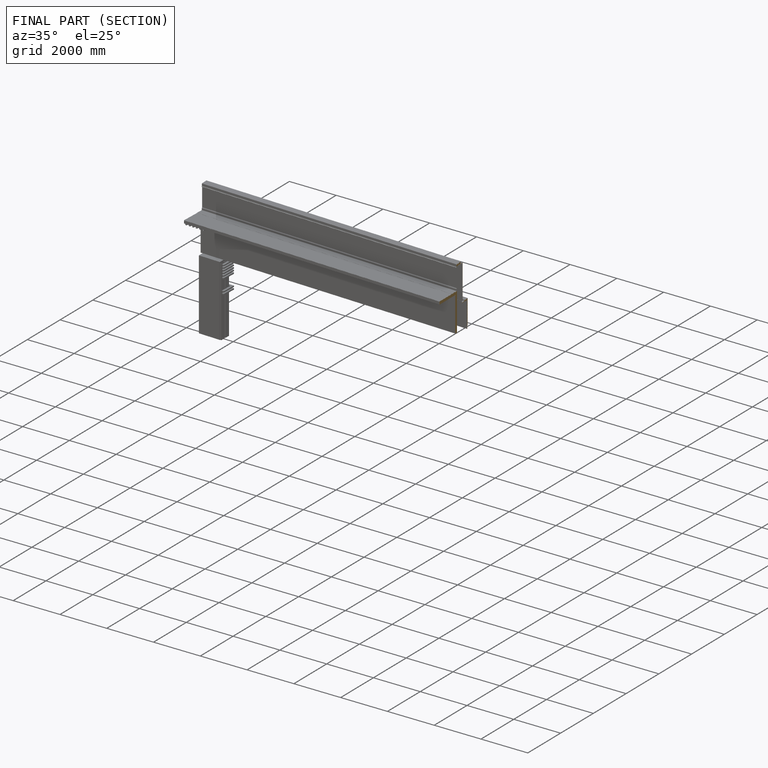
[diagram: finished part — half-section view (interior)]
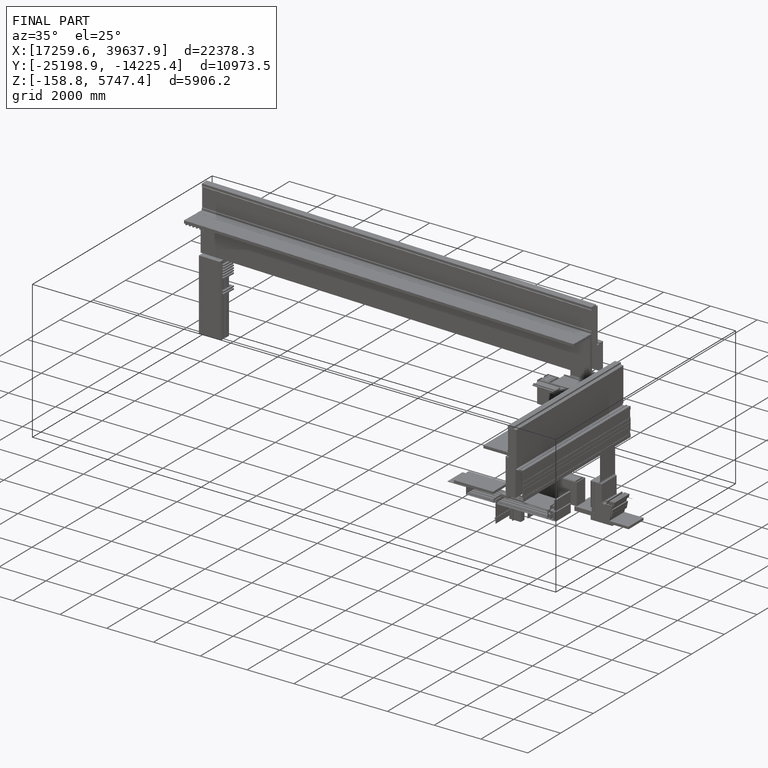
[diagram: finished part — iso view with bounding-box wireframe]
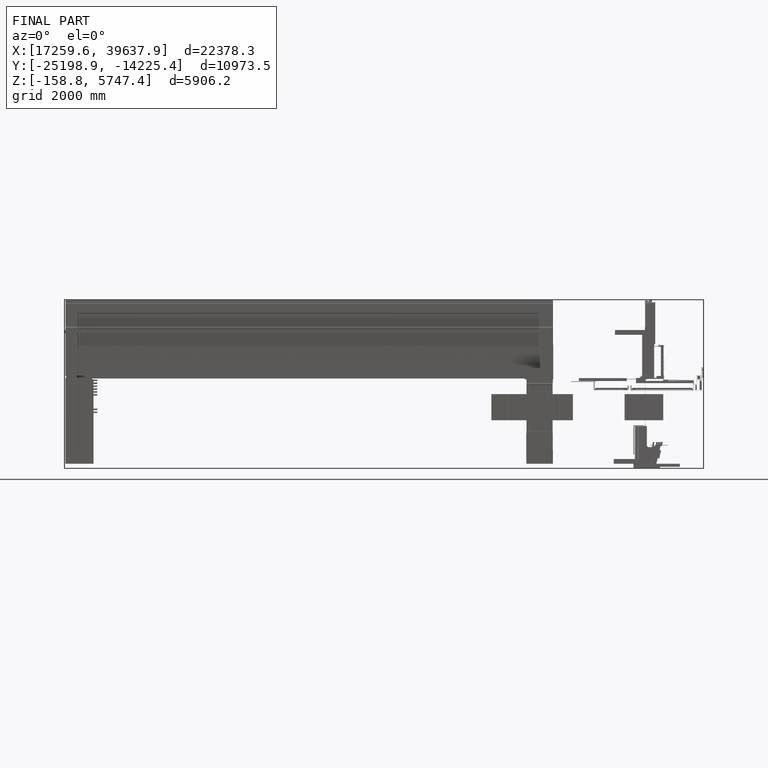
[diagram: finished part — front view with bounding-box wireframe]
